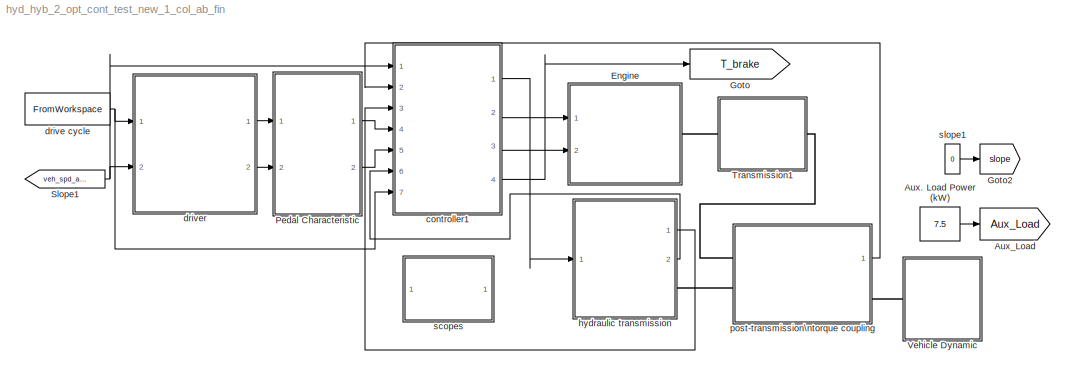
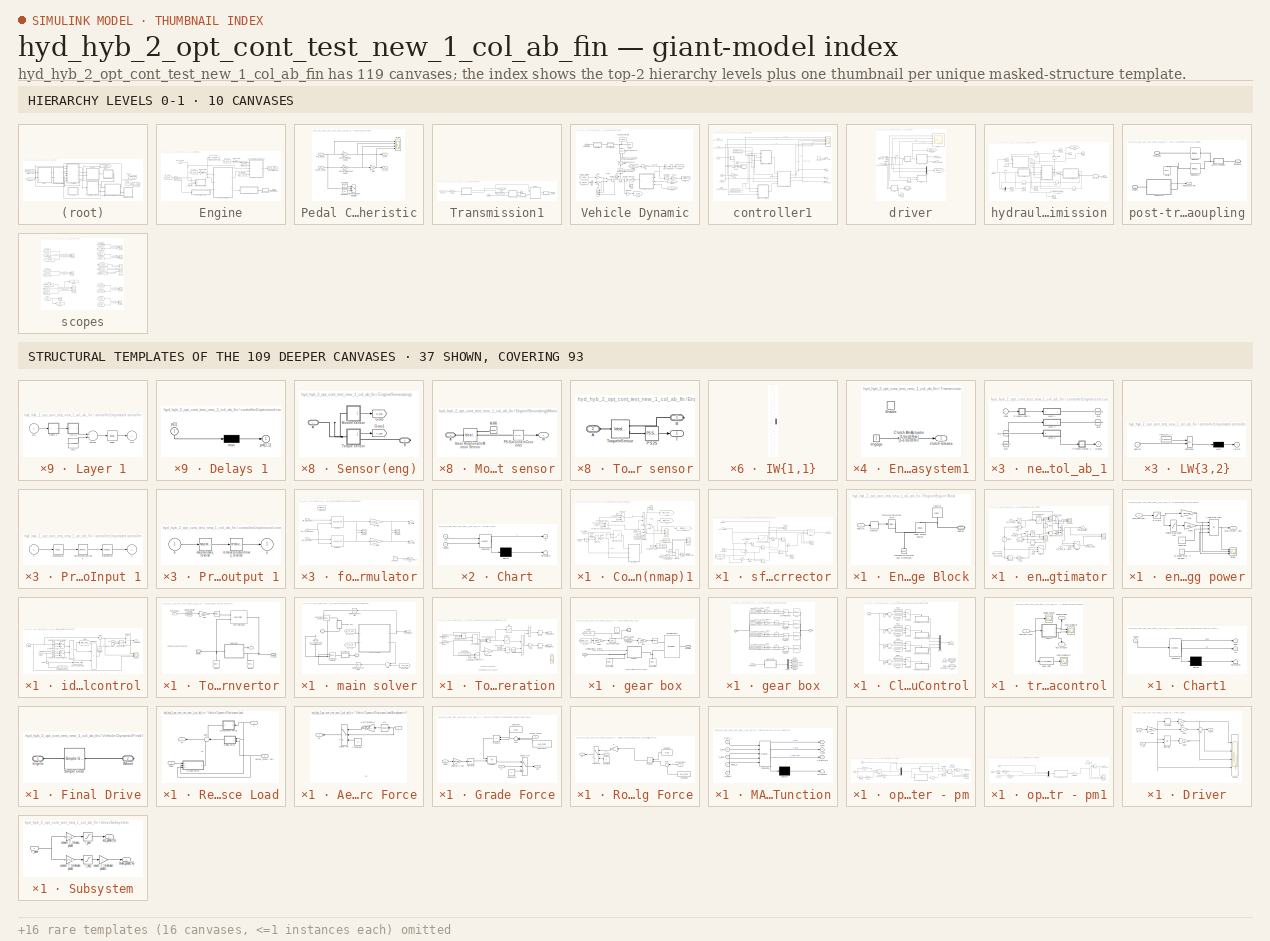
[diagram: thumbnail index - top-2 hierarchy levels (10 canvases) + 37 structural-template representatives of the remaining 109 canvases]
MODEL hyd_hyb_2_opt_cont_test_new_1_col_ab_fin
KIND model
CONFIG InitFcn = const_3\n
BLOCK [Constant] Aux. Load Power (kW)
  SID = 1614
  Value = 7.5
BLOCK [Goto] Aux_Load
  GotoTag = Aux_Load
  SID = 1615
  TagVisibility = global
BLOCK [SubSystem] Engine
  FunctionWithSeparateData = off
  MaskHideContents = off
  MinAlgLoopOccurrences = off
  Opaque = off
  Ports = [2, 0, 0, 0, 0, 0, 1]
  PropExecContextOutsideSubsystem = off
  RTWSystemCode = Auto
  RequestExecContextInheritance = off
  SID = 12085
BLOCK [SubSystem] Engine/Consumption Calc (nmap)1
  FunctionWithSeparateData = off
  MaskHideContents = off
  MinAlgLoopOccurrences = off
  Opaque = off
  Ports = [5, 1]
  PropExecContextOutsideSubsystem = off
  RTWSystemCode = Auto
  RequestExecContextInheritance = off
  SID = 12088
BLOCK [Saturate] Engine/Consumption Calc (nmap)1/1
  InputPortMap = u0
  LowerLimit = 0
  Ports = [1, 1]
  SID = 12094
  UpperLimit = inf
BLOCK [Product] Engine/Consumption Calc (nmap)1/Divide1
  InputSameDT = off
  Inputs = */
  OutDataTypeStr = Inherit: Inherit via internal rule
  Ports = [2, 1]
  RndMeth = Floor
  SID = 12095
  SaturateOnIntegerOverflow = off
BLOCK [Product] Engine/Consumption Calc (nmap)1/Divide2
  InputSameDT = off
  Inputs = 3
  OutDataTypeStr = Inherit: Inherit via internal rule
  Ports = [3, 1]
  RndMeth = Floor
  SID = 12096
  SaturateOnIntegerOverflow = off
BLOCK [Product] Engine/Consumption Calc (nmap)1/Divide3
  InputSameDT = off
  OutDataTypeStr = Inherit: Inherit via internal rule
  Ports = [2, 1]
  RndMeth = Floor
  SID = 12097
  SaturateOnIntegerOverflow = off
BLOCK [Product] Engine/Consumption Calc (nmap)1/Divide4
  InputSameDT = off
  Inputs = */
  OutDataTypeStr = Inherit: Inherit via internal rule
  Ports = [2, 1]
  RndMeth = Floor
  SID = 12098
  SaturateOnIntegerOverflow = off
BLOCK [Gain] Engine/Consumption Calc (nmap)1/Gain2
  Gain = 2*pi/60
  OutDataTypeStr = Inherit: Inherit via internal rule
  ParamDataTypeStr = Inherit: Inherit via internal rule
  SID = 12099
  SaturateOnIntegerOverflow = off
BLOCK [Gain] Engine/Consumption Calc (nmap)1/Gain3
  Gain = .001
  OutDataTypeStr = Inherit: Inherit via internal rule
  ParamDataTypeStr = Inherit: Inherit via internal rule
  SID = 12100
  SaturateOnIntegerOverflow = off
BLOCK [Goto] Engine/Consumption Calc (nmap)1/Goto
  GotoTag = idle_consumption
  SID = 12101
  TagVisibility = global
BLOCK [Goto] Engine/Consumption Calc (nmap)1/Goto1
  GotoTag = total_consumption
  SID = 12102
  TagVisibility = global
BLOCK [Goto] Engine/Consumption Calc (nmap)1/Goto2
  GotoTag = driving_consumption
  SID = 12103
  TagVisibility = global
BLOCK [Lookup2D] Engine/Consumption Calc (nmap)1/ICE_906_205
  ColumnIndex = w_906_205
  InputSameDT = off
  RowIndex = p_906_205
  SID = 12104
  SaturateOnIntegerOverflow = off
  Table = BSFC_906_205
BLOCK [Integrator] Engine/Consumption Calc (nmap)1/Integrator1
  Ports = [1, 1]
  SID = 12105
BLOCK [Product] Engine/Consumption Calc (nmap)1/Product1
  InputSameDT = off
  OutDataTypeStr = Inherit: Inherit via internal rule
  Ports = [2, 1]
  SID = 12106
  SaturateOnIntegerOverflow = off
BLOCK [Scope] Engine/Consumption Calc (nmap)1/Scope1
  DataFormat = StructureWithTime
  Floating = off
  LimitDataPoints = off
  NumInputPorts = 2
  Ports = [2]
  SID = 12107
  SampleTime = 0
  YMax = 42.5~42.5
  YMin = 0~0
  ZoomMode = xonly
BLOCK [Scope] Engine/Consumption Calc (nmap)1/Scope2
  DataFormat = StructureWithTime
  Floating = off
  LimitDataPoints = off
  NumInputPorts = 1
  Ports = [1]
  SID = 12108
  SampleTime = 0
  SaveName = ScopeData75
  ZoomMode = xonly
BLOCK [Sum] Engine/Consumption Calc (nmap)1/Sum
  InputSameDT = off
  OutDataTypeStr = Inherit: Inherit via internal rule
  Ports = [2, 1]
  SID = 12109
  SaturateOnIntegerOverflow = off
BLOCK [Inport] Engine/Consumption Calc (nmap)1/T_eng
  IconDisplay = Port number
  Port = 4
  SID = 12092
BLOCK [ToWorkspace] Engine/Consumption Calc (nmap)1/To Workspace
  MaxDataPoints = inf
  Ports = [1]
  SID = 12110
  SampleTime = -1
  SaveFormat = Structure With Time
  VariableName = ali_cons
BLOCK [Inport] Engine/Consumption Calc (nmap)1/acc pedal
  IconDisplay = Port number
  Port = 5
  SID = 12093
BLOCK [Switch] Engine/Consumption Calc (nmap)1/check pedal
  Criteria = u2 > Threshold
  InputSameDT = off
  SID = 12111
  SaturateOnIntegerOverflow = off
BLOCK [Scope] Engine/Consumption Calc (nmap)1/cons1
  DataFormat = StructureWithTime
  Floating = off
  LimitDataPoints = off
  NumInputPorts = 3
  Ports = [3]
  SID = 12112
  SampleTime = 0
  SaveName = cons1
  SaveToWorkspace = on
  YMax = 42.5~42.5~5
  YMin = 0~0~-5
  ZoomMode = yonly
BLOCK [Outport] Engine/Consumption Calc (nmap)1/cons\nlit//100km1
  IconDisplay = Port number
  SID = 12146
BLOCK [Inport] Engine/Consumption Calc (nmap)1/distance
  IconDisplay = Port number
  Port = 2
  SID = 12090
BLOCK [Gain] Engine/Consumption Calc (nmap)1/g 2 liter1
  Gain = 100
  OutDataTypeStr = Inherit: Inherit via internal rule
  ParamDataTypeStr = Inherit: Inherit via internal rule
  SID = 12113
  SaturateOnIntegerOverflow = off
BLOCK [Gain] Engine/Consumption Calc (nmap)1/g2lit
  Gain = 1/fuel_density*1000
  OutDataTypeStr = Inherit: Inherit via internal rule
  ParamDataTypeStr = Inherit: Inherit via internal rule
  SID = 12114
  SaturateOnIntegerOverflow = off
BLOCK [Constant] Engine/Consumption Calc (nmap)1/hour2\nsecond
  SID = 12115
  Value = 3600
BLOCK [Constant] Engine/Consumption Calc (nmap)1/hour2\nsecond1
  SID = 12116
BLOCK [Constant] Engine/Consumption Calc (nmap)1/hour2\nsecond2
  SID = 12117
  Value = 0
BLOCK [Constant] Engine/Consumption Calc (nmap)1/hour2\nsecond3
  SID = 12118
  Value = 0
BLOCK [Constant] Engine/Consumption Calc (nmap)1/hour2\nsecond4
  SID = 12119
  Value = 2
BLOCK [Switch] Engine/Consumption Calc (nmap)1/idel cons
  Criteria = u2 > Threshold
  InputSameDT = off
  SID = 12120
  SaturateOnIntegerOverflow = off
BLOCK [Inport] Engine/Consumption Calc (nmap)1/on//off
  IconDisplay = Port number
  Port = 3
  SID = 12091
BLOCK [SubSystem] Engine/Consumption Calc (nmap)1/sfc corrector
  FunctionWithSeparateData = off
  MaskHideContents = off
  MinAlgLoopOccurrences = off
  Opaque = off
  Ports = [3, 1]
  PropExecContextOutsideSubsystem = off
  RTWSystemCode = Auto
  RequestExecContextInheritance = off
  SID = 12121
BLOCK [Constant] Engine/Consumption Calc (nmap)1/sfc corrector/Constant
  SID = 12125
  Value = Idle_spd_eng_906
BLOCK [Constant] Engine/Consumption Calc (nmap)1/sfc corrector/Constant1
  SID = 12126
  Value = 1000
BLOCK [Gain] Engine/Consumption Calc (nmap)1/sfc corrector/Gain
  Gain = -1
  OutDataTypeStr = Inherit: Inherit via internal rule
  ParamDataTypeStr = Inherit: Inherit via internal rule
  SID = 12127
  SaturateOnIntegerOverflow = off
BLOCK [Gain] Engine/Consumption Calc (nmap)1/sfc corrector/Gain1
  OutDataTypeStr = Inherit: Inherit via internal rule
  ParamDataTypeStr = Inherit: Inherit via internal rule
  SID = 12128
  SaturateOnIntegerOverflow = off
BLOCK [Gain] Engine/Consumption Calc (nmap)1/sfc corrector/Gain2
  OutDataTypeStr = Inherit: Inherit via internal rule
  ParamDataTypeStr = Inherit: Inherit via internal rule
  SID = 12129
  SaturateOnIntegerOverflow = off
BLOCK [Product] Engine/Consumption Calc (nmap)1/sfc corrector/Product
  InputSameDT = off
  Inputs = */
  OutDataTypeStr = Inherit: Inherit via internal rule
  Ports = [2, 1]
  SID = 12130
  SaturateOnIntegerOverflow = off
BLOCK [Product] Engine/Consumption Calc (nmap)1/sfc corrector/Product1
  InputSameDT = off
  Inputs = */
  OutDataTypeStr = Inherit: Inherit via internal rule
  Ports = [2, 1]
  SID = 12131
  SaturateOnIntegerOverflow = off
BLOCK [Product] Engine/Consumption Calc (nmap)1/sfc corrector/Product2
  InputSameDT = off
  OutDataTypeStr = Inherit: Inherit via internal rule
  Ports = [2, 1]
  SID = 12132
  SaturateOnIntegerOverflow = off
BLOCK [Product] Engine/Consumption Calc (nmap)1/sfc corrector/Product3
  InputSameDT = off
  OutDataTypeStr = Inherit: Inherit via internal rule
  Ports = [2, 1]
  SID = 12133
  SaturateOnIntegerOverflow = off
BLOCK [Scope] Engine/Consumption Calc (nmap)1/sfc corrector/Scope
  DataFormat = StructureWithTime
  Floating = off
  NumInputPorts = 2
  Ports = [2]
  SID = 12134
  SampleTime = 0
  SaveName = ScopeData40
  YMax = 5~5
  YMin = -5~-5
  ZoomMode = yonly
BLOCK [Scope] Engine/Consumption Calc (nmap)1/sfc corrector/Scope1
  DataFormat = StructureWithTime
  Floating = off
  NumInputPorts = 2
  Ports = [2]
  SID = 12135
  SampleTime = 0
  SaveName = ScopeData41
  YMax = 5~5
  YMin = -5~-5
  ZoomMode = yonly
BLOCK [Scope] Engine/Consumption Calc (nmap)1/sfc corrector/Scope2
  DataFormat = StructureWithTime
  Floating = off
  NumInputPorts = 2
  Ports = [2]
  SID = 12136
  SampleTime = 0
  SaveName = ScopeData42
  YMax = 5~5
  YMin = -5~-5
  ZoomMode = yonly
BLOCK [Sum] Engine/Consumption Calc (nmap)1/sfc corrector/Sum
  IconShape = round
  InputSameDT = off
  Inputs = |+-
  OutDataTypeStr = Inherit: Inherit via internal rule
  Ports = [2, 1]
  SID = 12137
  SaturateOnIntegerOverflow = off
BLOCK [Sum] Engine/Consumption Calc (nmap)1/sfc corrector/Sum1
  IconShape = round
  InputSameDT = off
  Inputs = |+-
  OutDataTypeStr = Inherit: Inherit via internal rule
  Ports = [2, 1]
  SID = 12138
  SaturateOnIntegerOverflow = off
BLOCK [Sum] Engine/Consumption Calc (nmap)1/sfc corrector/Sum2
  IconShape = round
  InputSameDT = off
  Inputs = |+-
  OutDataTypeStr = Inherit: Inherit via internal rule
  Ports = [2, 1]
  SID = 12139
  SaturateOnIntegerOverflow = off
BLOCK [Sum] Engine/Consumption Calc (nmap)1/sfc corrector/Sum3
  IconShape = round
  InputSameDT = off
  Inputs = |++
  OutDataTypeStr = Inherit: Inherit via internal rule
  Ports = [2, 1]
  SID = 12140
  SaturateOnIntegerOverflow = off
BLOCK [Switch] Engine/Consumption Calc (nmap)1/sfc corrector/Switch
  InputSameDT = off
  SID = 12141
  SaturateOnIntegerOverflow = off
  Threshold = 1000
BLOCK [Outport] Engine/Consumption Calc (nmap)1/sfc corrector/cons(kg//h)
  IconDisplay = Port number
  SID = 12143
BLOCK [Inport] Engine/Consumption Calc (nmap)1/sfc corrector/eng_pow(kw)
  IconDisplay = Port number
  Port = 3
  SID = 12124
BLOCK [Inport] Engine/Consumption Calc (nmap)1/sfc corrector/eng_spd(rpm)
  IconDisplay = Port number
  Port = 2
  SID = 12123
BLOCK [Inport] Engine/Consumption Calc (nmap)1/sfc corrector/main map
  IconDisplay = Port number
  SID = 12122
BLOCK [Lookup] Engine/Consumption Calc (nmap)1/sfc corrector/sec_eng_sfc_map (906)
  InputValues = sec_eng_sfc_map(:,1)
  SID = 12142
  SaturateOnIntegerOverflow = off
  Table = sec_eng_sfc_map(:,2)
BLOCK [Saturate] Engine/Consumption Calc (nmap)1/solve devide \nby zero problem
  InputPortMap = u0
  LowerLimit = eps
  Ports = [1, 1]
  SID = 12144
  UpperLimit = inf
BLOCK [Saturate] Engine/Consumption Calc (nmap)1/solve devide \nby zero problem1
  InputPortMap = u0
  LowerLimit = 0
  Ports = [1, 1]
  SID = 12145
  UpperLimit = inf
BLOCK [Inport] Engine/Consumption Calc (nmap)1/w_eng (rpm)
  IconDisplay = Port number
  SID = 12089
BLOCK [From] Engine/Distance (km)
  GotoTag = Distance
  SID = 12147
  TagVisibility = global
BLOCK [SubSystem] Engine/Engine Block
  FunctionWithSeparateData = off
  MaskHideContents = off
  MinAlgLoopOccurrences = off
  Opaque = off
  Ports = [1, 0, 0, 0, 0, 0, 1]
  PropExecContextOutsideSubsystem = off
  RTWSystemCode = Auto
  RequestExecContextInheritance = off
  SID = 12148
BLOCK [PMIOPort] Engine/Engine Block/Engine
  Port = 1
  SID = 12155
  Side = Right
BLOCK [Reference] Engine/Engine Block/Ideal Torque Source  REF=fl_lib/Mechanical/Mechanical Sources/Ideal Torque Source
  ClassName = torque
  ComponentPath = foundation.mechanical.sources.torque
  FunctionWithSeparateData = off
  GeneratePreprocessorConditionals = off
  LocalVarDescs = |w|t
  LocalVarLogging = [0 0]
  LocalVarNames = |w|t
  Ports = [0, 0, 0, 0, 0, 1, 2]
  RTWMemSecDataConstants = Inherit from model
  RTWMemSecDataInternal = Inherit from model
  RTWMemSecDataParameters = Inherit from model
  RTWMemSecFuncExecute = Inherit from model
  RTWMemSecFuncInitTerm = Inherit from model
  SID = 12150
  SchemaVersion = 1
  ShowPortLabels = FromPortIcon
  SourceBlock = fl_lib/Mechanical/Mechanical Sources/Ideal Torque Source
  SourceType = Ideal Torque Source
  SystemSampleTime = -1
  t_Log = off
  w_Log = off
BLOCK [Reference] Engine/Engine Block/Inertia  REF=fl_lib/Mechanical/Rotational Elements/Inertia
  ClassName = inertia
  ComponentPath = foundation.mechanical.rotational.inertia
  FunctionWithSeparateData = off
  GeneratePreprocessorConditionals = off
  LocalVarDescs = |t
  LocalVarLogging = 0
  LocalVarNames = |t
  Ports = [0, 0, 0, 0, 0, 1]
  RTWMemSecDataConstants = Inherit from model
  RTWMemSecDataInternal = Inherit from model
  RTWMemSecDataParameters = Inherit from model
  RTWMemSecFuncExecute = Inherit from model
  RTWMemSecFuncInitTerm = Inherit from model
  SID = 12151
  SchemaVersion = 1
  ShowPortLabels = FromPortIcon
  SourceBlock = fl_lib/Mechanical/Rotational Elements/Inertia
  SourceType = Inertia
  SystemSampleTime = -1
  inertia = I_ICE
  inertia_unit = kg*m^2
  initial_velocity = 0
  initial_velocity_unit = rad/s
  t_Log = off
BLOCK [Reference] Engine/Engine Block/Mechanical\nRotational Reference  REF=fl_lib/Mechanical/Rotational Elements/Mechanical\nRotational Reference
  ClassName = reference
  ComponentPath = foundation.mechanical.rotational.reference
  FunctionWithSeparateData = off
  GeneratePreprocessorConditionals = off
  LocalVarDescs = |t
  LocalVarLogging = 0
  LocalVarNames = |t
  Ports = [0, 0, 0, 0, 0, 1]
  RTWMemSecDataConstants = Inherit from model
  RTWMemSecDataInternal = Inherit from model
  RTWMemSecDataParameters = Inherit from model
  RTWMemSecFuncExecute = Inherit from model
  RTWMemSecFuncInitTerm = Inherit from model
  SID = 12152
  SchemaVersion = 1
  ShowPortLabels = FromPortIcon
  SourceBlock = fl_lib/Mechanical/Rotational Elements/Mechanical\nRotational Reference
  SourceType = Mechanical\nRotational Reference
  SystemSampleTime = -1
  t_Log = off
BLOCK [Memory] Engine/Engine Block/Memory
  InheritSampleTime = on
  SID = 12153
BLOCK [Reference] Engine/Engine Block/Simulink-PS\nConverter  REF=nesl_utility/Simulink-PS\nConverter
  AffineConversion = off
  FunctionWithSeparateData = off
  GeneratePreprocessorConditionals = off
  InputFilterTimeConstant = 0.01
  LeftPortType = input
  PhysicalDomain = network_engine_domain
  Ports = [1, 0, 0, 0, 0, 0, 1]
  RTWMemSecDataConstants = Inherit from model
  RTWMemSecDataInternal = Inherit from model
  RTWMemSecDataParameters = Inherit from model
  RTWMemSecFuncExecute = Inherit from model
  RTWMemSecFuncInitTerm = Inherit from model
  RightPortType = output
  SID = 12154
  ShowPortLabels = FromPortIcon
  SourceBlock = nesl_utility/Simulink-PS\nConverter
  SourceType = Simulink-PS\nConverter
  SubClassName = ps_input
  SystemSampleTime = -1
  UdotUserProvided = 0
  Unit = 1
BLOCK [Inport] Engine/Engine Block/eng_trq
  IconDisplay = Port number
  SID = 12149
BLOCK [SubSystem] Engine/Sensor(eng)
  FunctionWithSeparateData = off
  MaskHideContents = off
  MinAlgLoopOccurrences = off
  Opaque = off
  Ports = [0, 0, 0, 0, 0, 1, 1]
  PropExecContextOutsideSubsystem = off
  RTWSystemCode = Auto
  RequestExecContextInheritance = off
  SID = 12156
BLOCK [PMIOPort] Engine/Sensor(eng)/A
  Port = 1
  SID = 12171
  Side = Left
BLOCK [PMIOPort] Engine/Sensor(eng)/B
  Port = 2
  SID = 12172
  Side = Right
BLOCK [Goto] Engine/Sensor(eng)/Goto
  GotoTag = w_eng
  SID = 12157
  TagVisibility = global
BLOCK [Goto] Engine/Sensor(eng)/Goto1
  GotoTag = T_eng
  SID = 12158
  TagVisibility = global
BLOCK [SubSystem] Engine/Sensor(eng)/Motion sensor
  FunctionWithSeparateData = off
  MaskHideContents = off
  MinAlgLoopOccurrences = off
  Opaque = off
  Ports = [0, 1, 0, 0, 0, 1]
  PropExecContextOutsideSubsystem = off
  RTWSystemCode = Auto
  RequestExecContextInheritance = off
  SID = 12159
BLOCK [PMIOPort] Engine/Sensor(eng)/Motion sensor/A
  Port = 1
  SID = 12163
  Side = Left
BLOCK [Reference] Engine/Sensor(eng)/Motion sensor/Ideal Rotational\nMotion Sensor  REF=fl_lib/Mechanical/Mechanical Sensors/Ideal Rotational\nMotion Sensor
  ClassName = sensor_rot_motion
  ComponentPath = foundation.mechanical.sensors.angular_velocity
  FunctionWithSeparateData = off
  GeneratePreprocessorConditionals = off
  LocalVarDescs = |w|t|phi
  LocalVarLogging = []
  LocalVarNames = |w|t|phi
  Ports = [0, 0, 0, 0, 0, 1, 3]
  RTWMemSecDataConstants = Inherit from model
  RTWMemSecDataInternal = Inherit from model
  RTWMemSecDataParameters = Inherit from model
  RTWMemSecFuncExecute = Inherit from model
  RTWMemSecFuncInitTerm = Inherit from model
  SID = 12160
  SchemaVersion = 1
  ShowPortLabels = FromPortIcon
  SourceBlock = fl_lib/Mechanical/Mechanical Sensors/Ideal Rotational\nMotion Sensor
  SourceType = Ideal Rotational\nMotion Sensor
  SystemSampleTime = -1
  offset = 0
  offset_unit = rad
  phi_Log = off
  t_Log = off
  w_Log = off
BLOCK [Reference] Engine/Sensor(eng)/Motion sensor/MRR  REF=fl_lib/Mechanical/Rotational Elements/Mechanical\nRotational Reference
  ClassName = reference_rot
  ComponentPath = foundation.mechanical.rotational.reference
  FunctionWithSeparateData = off
  GeneratePreprocessorConditionals = off
  LocalVarDescs = |t
  LocalVarLogging = []
  LocalVarNames = |t
  Ports = [0, 0, 0, 0, 0, 1]
  RTWMemSecDataConstants = Inherit from model
  RTWMemSecDataInternal = Inherit from model
  RTWMemSecDataParameters = Inherit from model
  RTWMemSecFuncExecute = Inherit from model
  RTWMemSecFuncInitTerm = Inherit from model
  SID = 12161
  SchemaVersion = 1
  ShowPortLabels = FromPortIcon
  SourceBlock = fl_lib/Mechanical/Rotational Elements/Mechanical\nRotational Reference
  SourceType = Mechanical\nRotational Reference
  SystemSampleTime = -1
  t_Log = off
BLOCK [Reference] Engine/Sensor(eng)/Motion sensor/PS-Simulink\nConverter  REF=nesl_utility/PS-Simulink\nConverter
  AffineConversion = off
  FunctionWithSeparateData = off
  GeneratePreprocessorConditionals = off
  LeftPortType = input
  PhysicalDomain = network_engine_domain
  Ports = [0, 1, 0, 0, 0, 1]
  RTWMemSecDataConstants = Inherit from model
  RTWMemSecDataInternal = Inherit from model
  RTWMemSecDataParameters = Inherit from model
  RTWMemSecFuncExecute = Inherit from model
  RTWMemSecFuncInitTerm = Inherit from model
  RightPortType = output
  SID = 12162
  ShowPortLabels = none
  SourceBlock = nesl_utility/PS-Simulink\nConverter
  SourceType = PS-Simulink\nConverter
  SubClassName = ps_output
  SystemSampleTime = -1
  Unit = rad/s
BLOCK [Outport] Engine/Sensor(eng)/Motion sensor/W
  IconDisplay = Port number
  SID = 12164
BLOCK [SubSystem] Engine/Sensor(eng)/Torque sensor
  FunctionWithSeparateData = off
  MaskHideContents = off
  MinAlgLoopOccurrences = off
  Opaque = off
  Ports = [0, 1, 0, 0, 0, 1, 1]
  PropExecContextOutsideSubsystem = off
  RTWSystemCode = Auto
  RequestExecContextInheritance = off
  SID = 12165
BLOCK [PMIOPort] Engine/Sensor(eng)/Torque sensor/A
  Port = 2
  SID = 12169
  Side = Left
BLOCK [PMIOPort] Engine/Sensor(eng)/Torque sensor/B
  Port = 1
  SID = 12168
  Side = Right
BLOCK [Reference] Engine/Sensor(eng)/Torque sensor/PS2S  REF=nesl_utility/PS-Simulink\nConverter
  AffineConversion = off
  FunctionWithSeparateData = off
  GeneratePreprocessorConditionals = off
  LeftPortType = input
  PhysicalDomain = network_engine_domain
  Ports = [0, 1, 0, 0, 0, 1]
  RTWMemSecDataConstants = Inherit from model
  RTWMemSecDataInternal = Inherit from model
  RTWMemSecDataParameters = Inherit from model
  RTWMemSecFuncExecute = Inherit from model
  RTWMemSecFuncInitTerm = Inherit from model
  RightPortType = output
  SID = 12166
  ShowPortLabels = none
  SourceBlock = nesl_utility/PS-Simulink\nConverter
  SourceType = PS-Simulink\nConverter
  SubClassName = ps_output
  SystemSampleTime = -1
  Unit = 1
BLOCK [Outport] Engine/Sensor(eng)/Torque sensor/T
  IconDisplay = Port number
  SID = 12170
BLOCK [Reference] Engine/Sensor(eng)/Torque sensor/Torque\nSensor  REF=fl_lib/Mechanical/Mechanical Sensors/Ideal Torque Sensor
  ClassName = sensor_torque
  ComponentPath = foundation.mechanical.sensors.torque
  FunctionWithSeparateData = off
  GeneratePreprocessorConditionals = off
  LocalVarDescs = |w|t
  LocalVarLogging = []
  LocalVarNames = |w|t
  Ports = [0, 0, 0, 0, 0, 1, 2]
  RTWMemSecDataConstants = Inherit from model
  RTWMemSecDataInternal = Inherit from model
  RTWMemSecDataParameters = Inherit from model
  RTWMemSecFuncExecute = Inherit from model
  RTWMemSecFuncInitTerm = Inherit from model
  SID = 12167
  SchemaVersion = 1
  ShowPortLabels = FromPortIcon
  SourceBlock = fl_lib/Mechanical/Mechanical Sensors/Ideal Torque Sensor
  SourceType = Ideal Torque Sensor
  SystemSampleTime = -1
  t_Log = off
  w_Log = off
BLOCK [Goto] Engine/T idle speed control
  GotoTag = T_out_idle_cotl
  SID = 12173
  TagVisibility = global
BLOCK [Inport] Engine/T_eng (Nm)
  IconDisplay = Port number
  SID = 12086
BLOCK [PMIOPort] Engine/Transmission
  Port = 1
  SID = 12246
  Side = Right
BLOCK [Goto] Engine/cons\nlit//100km
  GotoTag = cons_LitP100km
  SID = 12174
  TagVisibility = global
BLOCK [Inport] Engine/eng_on//off
  IconDisplay = Port number
  Port = 2
  SID = 12087
BLOCK [SubSystem] Engine/eng_torq_estimator
  FunctionWithSeparateData = off
  MaskHideContents = off
  MinAlgLoopOccurrences = off
  Opaque = off
  Ports = [3, 2]
  PropExecContextOutsideSubsystem = off
  RTWSystemCode = Auto
  RequestExecContextInheritance = off
  SID = 12175
BLOCK [Saturate] Engine/eng_torq_estimator/0 to inf1
  InputPortMap = u0
  LowerLimit = 0
  Ports = [1, 1]
  SID = 12179
  UpperLimit = inf
BLOCK [Saturate] Engine/eng_torq_estimator/0 to inf2
  InputPortMap = u0
  LowerLimit = eps
  Ports = [1, 1]
  SID = 12180
  UpperLimit = inf
BLOCK [Saturate] Engine/eng_torq_estimator/0 to inf3
  InputPortMap = u0
  LowerLimit = 0
  Ports = [1, 1]
  SID = 12181
  UpperLimit = inf
BLOCK [Saturate] Engine/eng_torq_estimator/0 to inf4
  InputPortMap = u0
  LowerLimit = 0
  Ports = [1, 1]
  SID = 12182
  UpperLimit = inf
BLOCK [Saturate] Engine/eng_torq_estimator/0 to inf5
  InputPortMap = u0
  LowerLimit = 0
  Ports = [1, 1]
  SID = 12183
  UpperLimit = inf
BLOCK [From] Engine/eng_torq_estimator/Aux Load
  GotoTag = Aux_Load
  SID = 12184
  TagVisibility = global
BLOCK [Goto] Engine/eng_torq_estimator/Aux_Trq
  GotoTag = Aux_Trq
  SID = 12185
  TagVisibility = global
BLOCK [Gain] Engine/eng_torq_estimator/Gain
  Gain = pi/30
  OutDataTypeStr = Inherit: Inherit via internal rule
  ParamDataTypeStr = Inherit: Inherit via internal rule
  SID = 12186
  SaturateOnIntegerOverflow = off
BLOCK [Gain] Engine/eng_torq_estimator/Gain1
  Gain = 1000
  OutDataTypeStr = Inherit: Inherit via internal rule
  ParamDataTypeStr = Inherit: Inherit via internal rule
  SID = 12187
  SaturateOnIntegerOverflow = off
BLOCK [Memory] Engine/eng_torq_estimator/Memory
  InheritSampleTime = on
  SID = 12188
BLOCK [MinMax] Engine/eng_torq_estimator/Min
  Function = min
  InputSameDT = off
  Inputs = 2
  Ports = [2, 1]
  SID = 12189
  SaturateOnIntegerOverflow = off
BLOCK [Lookup] Engine/eng_torq_estimator/Overload Torque (Nm)
  InputValues = [2600 2900 3000]
  SID = 12190
  Table = [650 0 0]
BLOCK [Lookup] Engine/eng_torq_estimator/PeakTorque -906 - 205(Nm)
  InputValues = [1000,1070,1130,1200,1280,1500,1590,1680,1760,1850,1930,2010,2070,2150,2240,2320,2380,2500]
  SID = 12191
  Table = [982,1040,1080,1100,1110,1110,1100,1080,1060,1020,994,963,940,909,872,838,804,751]
BLOCK [Product] Engine/eng_torq_estimator/Product1
  InputSameDT = off
  Inputs = */
  OutDataTypeStr = Inherit: Inherit via internal rule
  Ports = [2, 1]
  SID = 12192
  SaturateOnIntegerOverflow = off
BLOCK [Scope] Engine/eng_torq_estimator/Scope
  DataFormat = StructureWithTime
  Floating = off
  LimitDataPoints = off
  NumInputPorts = 3
  Ports = [3]
  SID = 12193
  SampleTime = 0
  SaveName = ScopeData10
  YMax = 5~5~5
  YMin = -5~-5~-5
  ZoomMode = yonly
BLOCK [Scope] Engine/eng_torq_estimator/Scope1
  DataFormat = StructureWithTime
  Floating = off
  LimitDataPoints = off
  NumInputPorts = 3
  Ports = [3]
  SID = 12194
  SampleTime = 0
  SaveName = ScopeData9
  YMax = 5~5~5
  YMin = -5~-5~-5
  ZoomMode = yonly
BLOCK [Scope] Engine/eng_torq_estimator/Scope2
  DataFormat = StructureWithTime
  Floating = off
  LimitDataPoints = off
  NumInputPorts = 3
  Ports = [3]
  SID = 12195
  SampleTime = 0
  SaveName = ScopeData23
  YMax = 5~5~5
  YMin = -5~-5~-5
  ZoomMode = xonly
BLOCK [Scope] Engine/eng_torq_estimator/Scope3
  DataFormat = StructureWithTime
  Floating = off
  LimitDataPoints = off
  NumInputPorts = 3
  Ports = [3]
  SID = 12196
  SampleTime = 0
  SaveName = ScopeData5
  YMax = 5~5~5
  YMin = -5~-5~-5
  ZoomMode = yonly
BLOCK [Sum] Engine/eng_torq_estimator/Sum
  IconShape = round
  InputSameDT = off
  Inputs = |++
  OutDataTypeStr = Inherit: Inherit via internal rule
  Ports = [2, 1]
  SID = 12197
  SaturateOnIntegerOverflow = off
BLOCK [Switch] Engine/eng_torq_estimator/Switch
  InputSameDT = off
  SID = 12198
  SaturateOnIntegerOverflow = off
  Threshold = 0.1
BLOCK [Switch] Engine/eng_torq_estimator/Switch1
  InputSameDT = off
  SID = 12199
  SaturateOnIntegerOverflow = off
  Threshold = Idle_spd_eng_906*0.75
BLOCK [Switch] Engine/eng_torq_estimator/check max speed
  InputSameDT = off
  SID = 12200
  SaturateOnIntegerOverflow = off
  Threshold = 2600
BLOCK [Inport] Engine/eng_torq_estimator/eng_drag_trq
  IconDisplay = Port number
  Port = 3
  SID = 12178
BLOCK [Inport] Engine/eng_torq_estimator/eng_spd (rpm)
  IconDisplay = Port number
  SID = 12176
BLOCK [Inport] Engine/eng_torq_estimator/eng_trq_in
  IconDisplay = Port number
  Port = 2
  SID = 12177
BLOCK [Outport] Engine/eng_torq_estimator/eng_trq_out (Nm)
  IconDisplay = Port number
  Port = 2
  SID = 12204
BLOCK [Outport] Engine/eng_torq_estimator/eng_trq_out (Nm) to consump
  IconDisplay = Port number
  SID = 12203
BLOCK [Constant] Engine/eng_torq_estimator/slope
  SID = 12201
  Value = 0
BLOCK [Constant] Engine/eng_torq_estimator/slope1
  SID = 12202
  Value = 0
BLOCK [SubSystem] Engine/engine drag power
  FunctionWithSeparateData = off
  MaskHideContents = off
  MinAlgLoopOccurrences = off
  Opaque = off
  Ports = [1, 1]
  PropExecContextOutsideSubsystem = off
  RTWSystemCode = Auto
  RequestExecContextInheritance = off
  SID = 12205
BLOCK [Saturate] Engine/engine drag power/0 to inf2
  InputPortMap = u0
  LowerLimit = eps
  Ports = [1, 1]
  SID = 12207
  UpperLimit = inf
BLOCK [Constant] Engine/engine drag power/Constant
  SID = 12208
  Value = -1
BLOCK [Gain] Engine/engine drag power/Gain
  Gain = (pi)/30
  OutDataTypeStr = Inherit: Inherit via internal rule
  ParamDataTypeStr = Inherit: Inherit via internal rule
  SID = 12209
  SaturateOnIntegerOverflow = off
BLOCK [Gain] Engine/engine drag power/Gain1
  Gain = 1000
  OutDataTypeStr = Inherit: Inherit via internal rule
  ParamDataTypeStr = Inherit: Inherit via internal rule
  SID = 12210
  SaturateOnIntegerOverflow = off
BLOCK [Scope] Engine/engine drag power/Scope
  DataFormat = StructureWithTime
  Floating = off
  LimitDataPoints = off
  NumInputPorts = 3
  Ports = [3]
  SID = 12211
  SampleTime = 0
  SaveName = ScopeData2
  YMax = 5~5~5
  YMin = -5~-5~-5
  ZoomMode = yonly
BLOCK [Product] Engine/engine drag power/T_eng_drag (Nm)
  InputSameDT = off
  Inputs = /***
  OutDataTypeStr = Inherit: Inherit via internal rule
  Ports = [4, 1]
  RndMeth = Floor
  SID = 12212
  SaturateOnIntegerOverflow = off
BLOCK [Outport] Engine/engine drag power/drag torque ( Nm)
  IconDisplay = Port number
  SID = 12215
BLOCK [Inport] Engine/engine drag power/eng_spd(rpm)
  IconDisplay = Port number
  SID = 12206
BLOCK [Lookup] Engine/engine drag power/engine_drag_power (kw)
  InputValues = [-10,eps,802.567507746791,824.568393094289,846.879150066401,868.8800354139,890.880920761399,912.881806108898,935.192563081009,957.193448428508,979.194333776007,1001.19521912351,1023.196104471,1045.1969898185,1067.197875166,1089.50863213811,1111.50951748561,1133.51040283311,1155.51128818061,1177.51217352811,1199.51305887561,1221.51394422311,1243.51482957061,1265.51571491811,1287.5166002656,1309.517...<+620ch>
  SID = 12213
  SaturateOnIntegerOverflow = off
  Table = [0,0,8.89504100832017,9.50127747975726,9.88870415102495,10.2762179627945,10.7512208384311,11.1824791821341,11.6136503853353,12.0449087290384,12.4761670727414,12.9074254164445,13.294939228214,13.7261975719171,14.1137113836866,14.5448825868878,15.0636299944579,15.5386328700944,15.9698912137975,16.357405025567,16.7449188373366,17.1761771810396,17.6074355247427,17.9949493365122,18.4699522121488,18.988...<+631ch>
BLOCK [Constant] Engine/engine drag power/no engine drag ( if we want )
  SID = 12214
BLOCK [SubSystem] Engine/idle speed control
  FunctionWithSeparateData = off
  MaskHideContents = off
  MinAlgLoopOccurrences = off
  Opaque = off
  Ports = [3, 1]
  PropExecContextOutsideSubsystem = off
  RTWSystemCode = Auto
  RequestExecContextInheritance = off
  SID = 12216
BLOCK [Lookup_n-D] Engine/idle speed control/1-D Lookup\nTable
  BreakpointsForDimension1 = [0 Idle_spd_eng_906*0.025 Idle_spd_eng_906]
  IndexSearchMethod = Binary search
  NumberOfTableDimensions = 1
  Ports = [1, 1]
  RndMeth = Simplest
  SID = 12220
  Table = [0 0 T_max_906/2]
BLOCK [Goto] Engine/idle speed control/Goto1
  GotoTag = idle_control
  SID = 12221
  TagVisibility = global
BLOCK [Reference] Engine/idle speed control/Manual Switch  REF=simulink/Signal\nRouting/Manual Switch
  FunctionWithSeparateData = off
  GeneratePreprocessorConditionals = off
  Ports = [2, 1]
  RTWMemSecDataConstants = Inherit from model
  RTWMemSecDataInternal = Inherit from model
  RTWMemSecDataParameters = Inherit from model
  RTWMemSecFuncExecute = Inherit from model
  RTWMemSecFuncInitTerm = Inherit from model
  SID = 12222
  ShowPortLabels = FromPortIcon
  SourceBlock = simulink/Signal\nRouting/Manual Switch
  SourceType = Manual Switch
  SystemSampleTime = -1
  action = 0
  sw = 1
  varsize = off
BLOCK [Product] Engine/idle speed control/Product1
  InputSameDT = off
  Inputs = **
  OutDataTypeStr = Inherit: Inherit via internal rule
  Ports = [2, 1]
  SID = 12223
  SaturateOnIntegerOverflow = off
BLOCK [Product] Engine/idle speed control/Product2
  InputSameDT = off
  Inputs = **
  OutDataTypeStr = Inherit: Inherit via internal rule
  Ports = [2, 1]
  SID = 12224
  SaturateOnIntegerOverflow = off
BLOCK [Product] Engine/idle speed control/Product3
  InputSameDT = off
  Inputs = **
  OutDataTypeStr = Inherit: Inherit via internal rule
  Ports = [2, 1]
  SID = 12225
  SaturateOnIntegerOverflow = off
BLOCK [Saturate] Engine/idle speed control/Saturation
  InputPortMap = u0
  LowerLimit = 0
  Ports = [1, 1]
  SID = 12226
  UpperLimit = T_max_906/5
BLOCK [Scope] Engine/idle speed control/Scope
  DataFormat = StructureWithTime
  Floating = off
  LimitDataPoints = off
  NumInputPorts = 3
  Ports = [3]
  SID = 12227
  SampleTime = 0
  SaveName = ScopeData11
  YMax = 5~5~5
  YMin = -5~-5~-5
  ZoomMode = yonly
BLOCK [Sum] Engine/idle speed control/Sum
  IconShape = round
  InputSameDT = off
  Inputs = |++
  OutDataTypeStr = Inherit: Inherit via internal rule
  Ports = [2, 1]
  SID = 12228
  SaturateOnIntegerOverflow = off
BLOCK [Sum] Engine/idle speed control/Sum1
  IconShape = round
  InputSameDT = off
  Inputs = -|+
  OutDataTypeStr = Inherit: Inherit via internal rule
  Ports = [2, 1]
  SID = 12229
  SaturateOnIntegerOverflow = off
BLOCK [Inport] Engine/idle speed control/T_eng
  IconDisplay = Port number
  Port = 3
  SID = 12219
BLOCK [Outport] Engine/idle speed control/T_eng + Idle
  IconDisplay = Port number
  SID = 12238
BLOCK [Switch] Engine/idle speed control/check idle P
  Criteria = u2 > Threshold
  InputSameDT = off
  SID = 12230
  SaturateOnIntegerOverflow = off
BLOCK [Switch] Engine/idle speed control/check idle spd
  Criteria = u2 > Threshold
  InputSameDT = off
  SID = 12231
  SaturateOnIntegerOverflow = off
  Threshold = Idle_spd_eng_906
BLOCK [Constant] Engine/idle speed control/hour2\nsecond
  SID = 12232
  Value = 0
BLOCK [Constant] Engine/idle speed control/hour2\nsecond1
  SID = 12233
BLOCK [Constant] Engine/idle speed control/hour2\nsecond2
  SID = 12234
BLOCK [Constant] Engine/idle speed control/hour2\nsecond3
  SID = 12235
  Value = 0
BLOCK [Constant] Engine/idle speed control/hour2\nsecond4
  SID = 12236
  Value = Idle_spd_eng_906
BLOCK [Constant] Engine/idle speed control/hour2\nsecond5
  SID = 12237
BLOCK [Inport] Engine/idle speed control/on
  IconDisplay = Port number
  SID = 12217
BLOCK [Inport] Engine/idle speed control/spd
  IconDisplay = Port number
  Port = 2
  SID = 12218
BLOCK [Gain] Engine/rasps2rpm
  Gain = 30/pi
  OutDataTypeStr = Inherit: Inherit via internal rule
  ParamDataTypeStr = Inherit: Inherit via internal rule
  SID = 12239
  SaturateOnIntegerOverflow = off
BLOCK [Gain] Engine/rasps2rpm1
  Gain = 30/pi
  OutDataTypeStr = Inherit: Inherit via internal rule
  ParamDataTypeStr = Inherit: Inherit via internal rule
  SID = 12240
  SaturateOnIntegerOverflow = off
BLOCK [Gain] Engine/rasps2rpm2
  Gain = 30/pi
  OutDataTypeStr = Inherit: Inherit via internal rule
  ParamDataTypeStr = Inherit: Inherit via internal rule
  SID = 12241
  SaturateOnIntegerOverflow = off
BLOCK [From] Engine/w_eng
  GotoTag = w_eng
  SID = 12242
  TagVisibility = global
BLOCK [From] Engine/w_eng1
  GotoTag = w_eng
  SID = 12243
  TagVisibility = global
BLOCK [From] Engine/w_eng2
  GotoTag = w_eng
  SID = 12244
  TagVisibility = global
BLOCK [From] Engine/w_eng3
  GotoTag = idle_control
  SID = 12245
  TagVisibility = global
BLOCK [Goto] Goto
  GotoTag = T_brake
  SID = 1093
  TagVisibility = global
BLOCK [Goto] Goto2
  GotoTag = slope
  SID = 1094
  TagVisibility = global
BLOCK [SubSystem] Pedal Characteristic
  FunctionWithSeparateData = off
  MaskHideContents = off
  MinAlgLoopOccurrences = off
  Opaque = off
  Ports = [2, 2]
  PropExecContextOutsideSubsystem = off
  RTWSystemCode = Auto
  RequestExecContextInheritance = off
  SID = 131
BLOCK [Constant] Pedal Characteristic/Constant1
  SID = 134
  Value = .25
BLOCK [Constant] Pedal Characteristic/Constant2
  SID = 135
  Value = 0
BLOCK [Gain] Pedal Characteristic/Gain
  Gain = 13
  OutDataTypeStr = Inherit: Inherit via internal rule
  ParamDataTypeStr = Inherit: Inherit via internal rule
  SID = 136
  SaturateOnIntegerOverflow = off
BLOCK [Scope] Pedal Characteristic/Scope
  DataFormat = StructureWithTime
  Floating = off
  LimitDataPoints = off
  MaxDataPoints = 500
  NumInputPorts = 4
  Ports = [4]
  SID = 137
  SampleTime = 0
  SaveName = ScopeData9
  YMax = 105~1391.25~1~5
  YMin = 95~1258.75~-1~-5
  ZoomMode = yonly
BLOCK [Outport] Pedal Characteristic/T_brake
  IconDisplay = Port number
  SID = 141
BLOCK [Outport] Pedal Characteristic/T_ref
  IconDisplay = Port number
  Port = 2
  SID = 143
BLOCK [Inport] Pedal Characteristic/acc_pedal
  IconDisplay = Port number
  SID = 132
BLOCK [Inport] Pedal Characteristic/brake_pedal
  IconDisplay = Port number
  Port = 2
  SID = 133
BLOCK [Gain] Pedal Characteristic/convert T to\nacc. pedal
  Gain = T_max_906/100
  OutDataTypeStr = Inherit: Inherit via internal rule
  ParamDataTypeStr = Inherit: Inherit via internal rule
  SID = 138
  SaturateOnIntegerOverflow = off
BLOCK [Gain] Pedal Characteristic/convert T to\nbrake pedal
  Gain = -T_min/100
  OutDataTypeStr = Inherit: Inherit via internal rule
  ParamDataTypeStr = Inherit: Inherit via internal rule
  SID = 139
  SaturateOnIntegerOverflow = off
BLOCK [Switch] Pedal Characteristic/retarder step one activation
  Criteria = u2 > Threshold
  InputSameDT = off
  SID = 140
  SaturateOnIntegerOverflow = off
BLOCK [From] Slope1
  GotoTag = veh_spd_act
  SID = 1377
  TagVisibility = global
BLOCK [SubSystem] Transmission1
  FunctionWithSeparateData = off
  MaskHideContents = off
  MinAlgLoopOccurrences = off
  Opaque = off
  Ports = [0, 0, 0, 0, 0, 1, 1]
  PropExecContextOutsideSubsystem = off
  RTWSystemCode = Auto
  RequestExecContextInheritance = off
  SID = 12247
BLOCK [PMIOPort] Transmission1/Coupling
  Port = 2
  SID = 12453
  Side = Right
BLOCK [PMIOPort] Transmission1/Engine
  Port = 1
  SID = 12452
  Side = Left
BLOCK [Gain] Transmission1/Gain
  Gain = 30/pi
  OutDataTypeStr = Inherit: Inherit via internal rule
  ParamDataTypeStr = Inherit: Inherit via internal rule
  SID = 12248
  SaturateOnIntegerOverflow = off
BLOCK [Goto] Transmission1/Goto
  GotoTag = Lockup_Clutch
  SID = 12249
  TagVisibility = global
BLOCK [Goto] Transmission1/Goto1
  GotoTag = Clutch_num
  SID = 12250
  TagVisibility = global
BLOCK [SubSystem] Transmission1/Sensor(GB_out)
  FunctionWithSeparateData = off
  MaskHideContents = off
  MinAlgLoopOccurrences = off
  Opaque = off
  Ports = [0, 0, 0, 0, 0, 1, 1]
  PropExecContextOutsideSubsystem = off
  RTWSystemCode = Auto
  RequestExecContextInheritance = off
  SID = 12251
BLOCK [PMIOPort] Transmission1/Sensor(GB_out)/A
  Port = 1
  SID = 12266
  Side = Left
BLOCK [PMIOPort] Transmission1/Sensor(GB_out)/B
  Port = 2
  SID = 12267
  Side = Right
BLOCK [Goto] Transmission1/Sensor(GB_out)/Goto
  GotoTag = w_GB_out
  SID = 12252
  TagVisibility = global
BLOCK [Goto] Transmission1/Sensor(GB_out)/Goto1
  GotoTag = T_GB_out
  SID = 12253
  TagVisibility = global
BLOCK [SubSystem] Transmission1/Sensor(GB_out)/Motion sensor
  FunctionWithSeparateData = off
  MaskHideContents = off
  MinAlgLoopOccurrences = off
  Opaque = off
  Ports = [0, 1, 0, 0, 0, 1]
  PropExecContextOutsideSubsystem = off
  RTWSystemCode = Auto
  RequestExecContextInheritance = off
  SID = 12254
BLOCK [PMIOPort] Transmission1/Sensor(GB_out)/Motion sensor/A
  Port = 1
  SID = 12258
  Side = Left
BLOCK [Reference] Transmission1/Sensor(GB_out)/Motion sensor/Ideal Rotational\nMotion Sensor  REF=fl_lib/Mechanical/Mechanical Sensors/Ideal Rotational\nMotion Sensor
  ClassName = sensor_rot_motion
  ComponentPath = foundation.mechanical.sensors.angular_velocity
  FunctionWithSeparateData = off
  GeneratePreprocessorConditionals = off
  LocalVarDescs = |w|t|phi
  LocalVarLogging = []
  LocalVarNames = |w|t|phi
  Ports = [0, 0, 0, 0, 0, 1, 3]
  RTWMemSecDataConstants = Inherit from model
  RTWMemSecDataInternal = Inherit from model
  RTWMemSecDataParameters = Inherit from model
  RTWMemSecFuncExecute = Inherit from model
  RTWMemSecFuncInitTerm = Inherit from model
  SID = 12255
  SchemaVersion = 1
  ShowPortLabels = FromPortIcon
  SourceBlock = fl_lib/Mechanical/Mechanical Sensors/Ideal Rotational\nMotion Sensor
  SourceType = Ideal Rotational\nMotion Sensor
  SystemSampleTime = -1
  offset = 0
  offset_unit = rad
  phi_Log = off
  t_Log = off
  w_Log = off
BLOCK [Reference] Transmission1/Sensor(GB_out)/Motion sensor/MRR  REF=fl_lib/Mechanical/Rotational Elements/Mechanical\nRotational Reference
  ClassName = reference_rot
  ComponentPath = foundation.mechanical.rotational.reference
  FunctionWithSeparateData = off
  GeneratePreprocessorConditionals = off
  LocalVarDescs = |t
  LocalVarLogging = []
  LocalVarNames = |t
  Ports = [0, 0, 0, 0, 0, 1]
  RTWMemSecDataConstants = Inherit from model
  RTWMemSecDataInternal = Inherit from model
  RTWMemSecDataParameters = Inherit from model
  RTWMemSecFuncExecute = Inherit from model
  RTWMemSecFuncInitTerm = Inherit from model
  SID = 12256
  SchemaVersion = 1
  ShowPortLabels = FromPortIcon
  SourceBlock = fl_lib/Mechanical/Rotational Elements/Mechanical\nRotational Reference
  SourceType = Mechanical\nRotational Reference
  SystemSampleTime = -1
  t_Log = off
BLOCK [Reference] Transmission1/Sensor(GB_out)/Motion sensor/PS-Simulink\nConverter  REF=nesl_utility/PS-Simulink\nConverter
  AffineConversion = off
  FunctionWithSeparateData = off
  GeneratePreprocessorConditionals = off
  LeftPortType = input
  PhysicalDomain = network_engine_domain
  Ports = [0, 1, 0, 0, 0, 1]
  RTWMemSecDataConstants = Inherit from model
  RTWMemSecDataInternal = Inherit from model
  RTWMemSecDataParameters = Inherit from model
  RTWMemSecFuncExecute = Inherit from model
  RTWMemSecFuncInitTerm = Inherit from model
  RightPortType = output
  SID = 12257
  ShowPortLabels = none
  SourceBlock = nesl_utility/PS-Simulink\nConverter
  SourceType = PS-Simulink\nConverter
  SubClassName = ps_output
  SystemSampleTime = -1
  Unit = rad/s
BLOCK [Outport] Transmission1/Sensor(GB_out)/Motion sensor/W
  IconDisplay = Port number
  SID = 12259
BLOCK [SubSystem] Transmission1/Sensor(GB_out)/Torque sensor
  FunctionWithSeparateData = off
  MaskHideContents = off
  MinAlgLoopOccurrences = off
  Opaque = off
  Ports = [0, 1, 0, 0, 0, 1, 1]
  PropExecContextOutsideSubsystem = off
  RTWSystemCode = Auto
  RequestExecContextInheritance = off
  SID = 12260
BLOCK [PMIOPort] Transmission1/Sensor(GB_out)/Torque sensor/A
  Port = 2
  SID = 12264
  Side = Left
BLOCK [PMIOPort] Transmission1/Sensor(GB_out)/Torque sensor/B
  Port = 1
  SID = 12263
  Side = Right
BLOCK [Reference] Transmission1/Sensor(GB_out)/Torque sensor/PS2S  REF=nesl_utility/PS-Simulink\nConverter
  AffineConversion = off
  FunctionWithSeparateData = off
  GeneratePreprocessorConditionals = off
  LeftPortType = input
  PhysicalDomain = network_engine_domain
  Ports = [0, 1, 0, 0, 0, 1]
  RTWMemSecDataConstants = Inherit from model
  RTWMemSecDataInternal = Inherit from model
  RTWMemSecDataParameters = Inherit from model
  RTWMemSecFuncExecute = Inherit from model
  RTWMemSecFuncInitTerm = Inherit from model
  RightPortType = output
  SID = 12261
  ShowPortLabels = none
  SourceBlock = nesl_utility/PS-Simulink\nConverter
  SourceType = PS-Simulink\nConverter
  SubClassName = ps_output
  SystemSampleTime = -1
  Unit = 1
BLOCK [Outport] Transmission1/Sensor(GB_out)/Torque sensor/T
  IconDisplay = Port number
  SID = 12265
BLOCK [Reference] Transmission1/Sensor(GB_out)/Torque sensor/Torque\nSensor  REF=fl_lib/Mechanical/Mechanical Sensors/Ideal Torque Sensor
  ClassName = sensor_torque
  ComponentPath = foundation.mechanical.sensors.torque
  FunctionWithSeparateData = off
  GeneratePreprocessorConditionals = off
  LocalVarDescs = |w|t
  LocalVarLogging = []
  LocalVarNames = |w|t
  Ports = [0, 0, 0, 0, 0, 1, 2]
  RTWMemSecDataConstants = Inherit from model
  RTWMemSecDataInternal = Inherit from model
  RTWMemSecDataParameters = Inherit from model
  RTWMemSecFuncExecute = Inherit from model
  RTWMemSecFuncInitTerm = Inherit from model
  SID = 12262
  SchemaVersion = 1
  ShowPortLabels = FromPortIcon
  SourceBlock = fl_lib/Mechanical/Mechanical Sensors/Ideal Torque Sensor
  SourceType = Ideal Torque Sensor
  SystemSampleTime = -1
  t_Log = off
  w_Log = off
BLOCK [SubSystem] Transmission1/Sensor(TC_GB)
  FunctionWithSeparateData = off
  MaskHideContents = off
  MinAlgLoopOccurrences = off
  Opaque = off
  Ports = [0, 0, 0, 0, 0, 1, 1]
  PropExecContextOutsideSubsystem = off
  RTWSystemCode = Auto
  RequestExecContextInheritance = off
  SID = 12268
BLOCK [PMIOPort] Transmission1/Sensor(TC_GB)/A
  Port = 1
  SID = 12283
  Side = Left
BLOCK [PMIOPort] Transmission1/Sensor(TC_GB)/B
  Port = 2
  SID = 12284
  Side = Right
BLOCK [Goto] Transmission1/Sensor(TC_GB)/Goto
  GotoTag = w_TC_GB
  SID = 12269
  TagVisibility = global
BLOCK [Goto] Transmission1/Sensor(TC_GB)/Goto1
  GotoTag = T_TC_GB
  SID = 12270
  TagVisibility = global
BLOCK [SubSystem] Transmission1/Sensor(TC_GB)/Motion sensor
  FunctionWithSeparateData = off
  MaskHideContents = off
  MinAlgLoopOccurrences = off
  Opaque = off
  Ports = [0, 1, 0, 0, 0, 1]
  PropExecContextOutsideSubsystem = off
  RTWSystemCode = Auto
  RequestExecContextInheritance = off
  SID = 12271
BLOCK [PMIOPort] Transmission1/Sensor(TC_GB)/Motion sensor/A
  Port = 1
  SID = 12275
  Side = Left
BLOCK [Reference] Transmission1/Sensor(TC_GB)/Motion sensor/Ideal Rotational\nMotion Sensor  REF=fl_lib/Mechanical/Mechanical Sensors/Ideal Rotational\nMotion Sensor
  ClassName = sensor_rot_motion
  ComponentPath = foundation.mechanical.sensors.angular_velocity
  FunctionWithSeparateData = off
  GeneratePreprocessorConditionals = off
  LocalVarDescs = |w|t|phi
  LocalVarLogging = []
  LocalVarNames = |w|t|phi
  Ports = [0, 0, 0, 0, 0, 1, 3]
  RTWMemSecDataConstants = Inherit from model
  RTWMemSecDataInternal = Inherit from model
  RTWMemSecDataParameters = Inherit from model
  RTWMemSecFuncExecute = Inherit from model
  RTWMemSecFuncInitTerm = Inherit from model
  SID = 12272
  SchemaVersion = 1
  ShowPortLabels = FromPortIcon
  SourceBlock = fl_lib/Mechanical/Mechanical Sensors/Ideal Rotational\nMotion Sensor
  SourceType = Ideal Rotational\nMotion Sensor
  SystemSampleTime = -1
  offset = 0
  offset_unit = rad
  phi_Log = off
  t_Log = off
  w_Log = off
BLOCK [Reference] Transmission1/Sensor(TC_GB)/Motion sensor/MRR  REF=fl_lib/Mechanical/Rotational Elements/Mechanical\nRotational Reference
  ClassName = reference_rot
  ComponentPath = foundation.mechanical.rotational.reference
  FunctionWithSeparateData = off
  GeneratePreprocessorConditionals = off
  LocalVarDescs = |t
  LocalVarLogging = []
  LocalVarNames = |t
  Ports = [0, 0, 0, 0, 0, 1]
  RTWMemSecDataConstants = Inherit from model
  RTWMemSecDataInternal = Inherit from model
  RTWMemSecDataParameters = Inherit from model
  RTWMemSecFuncExecute = Inherit from model
  RTWMemSecFuncInitTerm = Inherit from model
  SID = 12273
  SchemaVersion = 1
  ShowPortLabels = FromPortIcon
  SourceBlock = fl_lib/Mechanical/Rotational Elements/Mechanical\nRotational Reference
  SourceType = Mechanical\nRotational Reference
  SystemSampleTime = -1
  t_Log = off
BLOCK [Reference] Transmission1/Sensor(TC_GB)/Motion sensor/PS-Simulink\nConverter  REF=nesl_utility/PS-Simulink\nConverter
  AffineConversion = off
  FunctionWithSeparateData = off
  GeneratePreprocessorConditionals = off
  LeftPortType = input
  PhysicalDomain = network_engine_domain
  Ports = [0, 1, 0, 0, 0, 1]
  RTWMemSecDataConstants = Inherit from model
  RTWMemSecDataInternal = Inherit from model
  RTWMemSecDataParameters = Inherit from model
  RTWMemSecFuncExecute = Inherit from model
  RTWMemSecFuncInitTerm = Inherit from model
  RightPortType = output
  SID = 12274
  ShowPortLabels = none
  SourceBlock = nesl_utility/PS-Simulink\nConverter
  SourceType = PS-Simulink\nConverter
  SubClassName = ps_output
  SystemSampleTime = -1
  Unit = rad/s
BLOCK [Outport] Transmission1/Sensor(TC_GB)/Motion sensor/W
  IconDisplay = Port number
  SID = 12276
BLOCK [SubSystem] Transmission1/Sensor(TC_GB)/Torque sensor
  FunctionWithSeparateData = off
  MaskHideContents = off
  MinAlgLoopOccurrences = off
  Opaque = off
  Ports = [0, 1, 0, 0, 0, 1, 1]
  PropExecContextOutsideSubsystem = off
  RTWSystemCode = Auto
  RequestExecContextInheritance = off
  SID = 12277
BLOCK [PMIOPort] Transmission1/Sensor(TC_GB)/Torque sensor/A
  Port = 2
  SID = 12281
  Side = Left
BLOCK [PMIOPort] Transmission1/Sensor(TC_GB)/Torque sensor/B
  Port = 1
  SID = 12280
  Side = Right
BLOCK [Reference] Transmission1/Sensor(TC_GB)/Torque sensor/PS2S  REF=nesl_utility/PS-Simulink\nConverter
  AffineConversion = off
  FunctionWithSeparateData = off
  GeneratePreprocessorConditionals = off
  LeftPortType = input
  PhysicalDomain = network_engine_domain
  Ports = [0, 1, 0, 0, 0, 1]
  RTWMemSecDataConstants = Inherit from model
  RTWMemSecDataInternal = Inherit from model
  RTWMemSecDataParameters = Inherit from model
  RTWMemSecFuncExecute = Inherit from model
  RTWMemSecFuncInitTerm = Inherit from model
  RightPortType = output
  SID = 12278
  ShowPortLabels = none
  SourceBlock = nesl_utility/PS-Simulink\nConverter
  SourceType = PS-Simulink\nConverter
  SubClassName = ps_output
  SystemSampleTime = -1
  Unit = 1
BLOCK [Outport] Transmission1/Sensor(TC_GB)/Torque sensor/T
  IconDisplay = Port number
  SID = 12282
BLOCK [Reference] Transmission1/Sensor(TC_GB)/Torque sensor/Torque\nSensor  REF=fl_lib/Mechanical/Mechanical Sensors/Ideal Torque Sensor
  ClassName = sensor_torque
  ComponentPath = foundation.mechanical.sensors.torque
  FunctionWithSeparateData = off
  GeneratePreprocessorConditionals = off
  LocalVarDescs = |w|t
  LocalVarLogging = []
  LocalVarNames = |w|t
  Ports = [0, 0, 0, 0, 0, 1, 2]
  RTWMemSecDataConstants = Inherit from model
  RTWMemSecDataInternal = Inherit from model
  RTWMemSecDataParameters = Inherit from model
  RTWMemSecFuncExecute = Inherit from model
  RTWMemSecFuncInitTerm = Inherit from model
  SID = 12279
  SchemaVersion = 1
  ShowPortLabels = FromPortIcon
  SourceBlock = fl_lib/Mechanical/Mechanical Sensors/Ideal Torque Sensor
  SourceType = Ideal Torque Sensor
  SystemSampleTime = -1
  t_Log = off
  w_Log = off
BLOCK [Scope] Transmission1/T
  DataFormat = StructureWithTime
  Floating = off
  LimitDataPoints = off
  NumInputPorts = 1
  Ports = [1]
  SID = 12285
  SampleTime = 0
  SaveName = ScopeData8
  YMax = 1000
  YMin = -10
  ZoomMode = xonly
BLOCK [SubSystem] Transmission1/Torque Convertor
  FunctionWithSeparateData = off
  MaskHideContents = off
  MinAlgLoopOccurrences = off
  Opaque = off
  Ports = [1, 1, 0, 0, 0, 1, 1]
  PropExecContextOutsideSubsystem = off
  RTWSystemCode = Auto
  RequestExecContextInheritance = off
  SID = 12286
BLOCK [Reference] Transmission1/Torque Convertor/   REF=nesl_utility/Simulink-PS\nConverter
  AffineConversion = off
  FunctionWithSeparateData = off
  GeneratePreprocessorConditionals = off
  InputFilterTimeConstant = 0.01
  LeftPortType = input
  PhysicalDomain = network_engine_domain
  Ports = [1, 0, 0, 0, 0, 0, 1]
  RTWMemSecDataConstants = Inherit from model
  RTWMemSecDataInternal = Inherit from model
  RTWMemSecDataParameters = Inherit from model
  RTWMemSecFuncExecute = Inherit from model
  RTWMemSecFuncInitTerm = Inherit from model
  RightPortType = output
  SID = 12288
  ShowPortLabels = FromPortIcon
  SourceBlock = nesl_utility/Simulink-PS\nConverter
  SourceType = Simulink-PS\nConverter
  SubClassName = ps_input
  SystemSampleTime = -1
  UdotUserProvided = 0
  Unit = 1
BLOCK [TransferFcn] Transmission1/Torque Convertor/Clutch \nActuator
  Denominator = [1 1/clutchRise]
  Numerator = [1/clutchRise]
  SID = 12289
BLOCK [Reference] Transmission1/Torque Convertor/Disk Friction Clutch  REF=sdl_lib/Clutches/Disk Friction Clutch
  ClassName = disk_friction_clutch
  ComponentPath = sdl.clutches.disk_friction_clutch
  FunctionWithSeparateData = off
  GeneratePreprocessorConditionals = off
  LocalVarLogging = []
  Ports = [0, 0, 0, 0, 0, 2, 1]
  RTWMemSecDataConstants = Inherit from model
  RTWMemSecDataInternal = Inherit from model
  RTWMemSecDataParameters = Inherit from model
  RTWMemSecFuncExecute = Inherit from model
  RTWMemSecFuncInitTerm = Inherit from model
  SID = 12290
  SchemaVersion = 1
  ShowPortLabels = FromPortIcon
  SourceBlock = sdl_lib/Clutches/Disk Friction Clutch
  SourceType = Disk Friction Clutch
  SystemSampleTime = -1
  d_f = 1
  d_f_unit = 1
  d_i = 100
  d_i_unit = mm
  d_o = 150
  d_o_unit = mm
  friction_model = 1
  friction_model_unit = 1
  geometry_model = 1
  geometry_model_unit = 1
  initial_state_locked = 0
  initial_state_locked_unit = 1
  mu_coulomb = 0.3
  mu_coulomb_unit = 1
  mu_coulomb_vector = [ 0.29 0.28 0.26 0.22 0.21 0.2 0.2 0.19 0.19 0.19 0.19 0.19 ]
  mu_coulomb_vector_unit = 1
  mu_extrap_method = 1
  mu_extrap_method_unit = 1
  mu_interp_method = 1
  mu_interp_method_unit = 1
  mu_static = 0.35
  mu_static_unit = 1
  mu_visc = 0
  mu_visc_unit = N*m/(rad/s)
  mu_w_vector = [ 0 0.1 0.2 0.3 0.4 0.5 1 2 5 10 100 1000 ]
  mu_w_vector_unit = rad/s
  nS = 8
  nS_unit = 1
  piston_area = 0.001
  piston_area_unit = m^2
  pressure_min = 100
  pressure_min_unit = Pa
  r_eff = 1
  r_eff_unit = m
  w_tol = 0.001
  w_tol_unit = rad/s
BLOCK [Gain] Transmission1/Torque Convertor/Gain
  Gain = 10e6
  OutDataTypeStr = Inherit: Inherit via internal rule
  ParamDataTypeStr = Inherit: Inherit via internal rule
  SID = 12291
  SaturateOnIntegerOverflow = off
BLOCK [PMIOPort] Transmission1/Torque Convertor/Impeller
  Port = 1
  SID = 12342
  Side = Left
BLOCK [Reference] Transmission1/Torque Convertor/Inertia  REF=fl_lib/Mechanical/Rotational Elements/Inertia
  ClassName = inertia
  ComponentPath = foundation.mechanical.rotational.inertia
  FunctionWithSeparateData = off
  GeneratePreprocessorConditionals = off
  LocalVarDescs = |t
  LocalVarLogging = 0
  LocalVarNames = |t
  Ports = [0, 0, 0, 0, 0, 1]
  RTWMemSecDataConstants = Inherit from model
  RTWMemSecDataInternal = Inherit from model
  RTWMemSecDataParameters = Inherit from model
  RTWMemSecFuncExecute = Inherit from model
  RTWMemSecFuncInitTerm = Inherit from model
  SID = 12292
  SchemaVersion = 1
  ShowPortLabels = FromPortIcon
  SourceBlock = fl_lib/Mechanical/Rotational Elements/Inertia
  SourceType = Inertia
  SystemSampleTime = -1
  inertia = Impeller_Inertia
  inertia_unit = kg*m^2
  initial_velocity = 0
  initial_velocity_unit = rad/s
  t_Log = off
BLOCK [Reference] Transmission1/Torque Convertor/Inertia1  REF=fl_lib/Mechanical/Rotational Elements/Inertia
  ClassName = inertia
  ComponentPath = foundation.mechanical.rotational.inertia
  FunctionWithSeparateData = off
  GeneratePreprocessorConditionals = off
  LocalVarDescs = |t
  LocalVarLogging = 0
  LocalVarNames = |t
  Ports = [0, 0, 0, 0, 0, 1]
  RTWMemSecDataConstants = Inherit from model
  RTWMemSecDataInternal = Inherit from model
  RTWMemSecDataParameters = Inherit from model
  RTWMemSecFuncExecute = Inherit from model
  RTWMemSecFuncInitTerm = Inherit from model
  SID = 12293
  SchemaVersion = 1
  ShowPortLabels = FromPortIcon
  SourceBlock = fl_lib/Mechanical/Rotational Elements/Inertia
  SourceType = Inertia
  SystemSampleTime = -1
  inertia = Turbine_Inertia
  inertia_unit = kg*m^2
  initial_velocity = 0
  initial_velocity_unit = rad/s
  t_Log = off
BLOCK [Outport] Transmission1/Torque Convertor/T
  IconDisplay = Port number
  SID = 12344
BLOCK [PMIOPort] Transmission1/Torque Convertor/Turbine
  Port = 2
  SID = 12343
  Side = Right
BLOCK [Inport] Transmission1/Torque Convertor/lock up cluch
  IconDisplay = Port number
  SID = 12287
BLOCK [SubSystem] Transmission1/Torque Convertor/main solver
  FunctionWithSeparateData = off
  MaskHideContents = off
  MinAlgLoopOccurrences = off
  Opaque = off
  Ports = [0, 1, 0, 0, 0, 1, 1]
  PropExecContextOutsideSubsystem = off
  RTWSystemCode = Auto
  RequestExecContextInheritance = off
  SID = 12294
BLOCK [Sum] Transmission1/Torque Convertor/main solver/Add
  InputSameDT = off
  Inputs = +-
  OutDataTypeStr = Inherit: Inherit via internal rule
  Ports = [2, 1]
  SID = 12295
  SaturateOnIntegerOverflow = off
BLOCK [PMIOPort] Transmission1/Torque Convertor/main solver/I
  Port = 2
  SID = 12340
  Side = Left
  Tag = PMCPort
BLOCK [Reference] Transmission1/Torque Convertor/main solver/Ideal Torque Source1  REF=fl_lib/Mechanical/Mechanical Sources/Ideal Torque Source
  ClassName = torque
  ComponentPath = foundation.mechanical.sources.torque
  FunctionWithSeparateData = off
  GeneratePreprocessorConditionals = off
  LocalVarDescs = |w|t
  LocalVarLogging = [0 0]
  LocalVarNames = |w|t
  Ports = [0, 0, 0, 0, 0, 1, 2]
  RTWMemSecDataConstants = Inherit from model
  RTWMemSecDataInternal = Inherit from model
  RTWMemSecDataParameters = Inherit from model
  RTWMemSecFuncExecute = Inherit from model
  RTWMemSecFuncInitTerm = Inherit from model
  SID = 12296
  SchemaVersion = 1
  ShowPortLabels = FromPortIcon
  SourceBlock = fl_lib/Mechanical/Mechanical Sources/Ideal Torque Source
  SourceType = Ideal Torque Source
  SystemSampleTime = -1
  t_Log = off
  w_Log = off
BLOCK [Reference] Transmission1/Torque Convertor/main solver/Ideal Torque Source2  REF=fl_lib/Mechanical/Mechanical Sources/Ideal Torque Source
  ClassName = torque
  ComponentPath = foundation.mechanical.sources.torque
  FunctionWithSeparateData = off
  GeneratePreprocessorConditionals = off
  LocalVarDescs = |w|t
  LocalVarLogging = [0 0]
  LocalVarNames = |w|t
  Ports = [0, 0, 0, 0, 0, 1, 2]
  RTWMemSecDataConstants = Inherit from model
  RTWMemSecDataInternal = Inherit from model
  RTWMemSecDataParameters = Inherit from model
  RTWMemSecFuncExecute = Inherit from model
  RTWMemSecFuncInitTerm = Inherit from model
  SID = 12297
  SchemaVersion = 1
  ShowPortLabels = FromPortIcon
  SourceBlock = fl_lib/Mechanical/Mechanical Sources/Ideal Torque Source
  SourceType = Ideal Torque Source
  SystemSampleTime = -1
  t_Log = off
  w_Log = off
BLOCK [Reference] Transmission1/Torque Convertor/main solver/Mechanical\nRotational Reference1  REF=fl_lib/Mechanical/Rotational Elements/Mechanical\nRotational Reference
  ClassName = reference
  ComponentPath = foundation.mechanical.rotational.reference
  FunctionWithSeparateData = off
  GeneratePreprocessorConditionals = off
  LocalVarDescs = |t
  LocalVarLogging = 0
  LocalVarNames = |t
  Ports = [0, 0, 0, 0, 0, 1]
  RTWMemSecDataConstants = Inherit from model
  RTWMemSecDataInternal = Inherit from model
  RTWMemSecDataParameters = Inherit from model
  RTWMemSecFuncExecute = Inherit from model
  RTWMemSecFuncInitTerm = Inherit from model
  SID = 12298
  SchemaVersion = 1
  ShowPortLabels = FromPortIcon
  SourceBlock = fl_lib/Mechanical/Rotational Elements/Mechanical\nRotational Reference
  SourceType = Mechanical\nRotational Reference
  SystemSampleTime = -1
  t_Log = off
BLOCK [SubSystem] Transmission1/Torque Convertor/main solver/Sensor(TC_in)
  FunctionWithSeparateData = off
  MaskHideContents = off
  MinAlgLoopOccurrences = off
  Opaque = off
  Ports = [0, 0, 0, 0, 0, 1, 1]
  PropExecContextOutsideSubsystem = off
  RTWSystemCode = Auto
  RequestExecContextInheritance = off
  SID = 12299
BLOCK [PMIOPort] Transmission1/Torque Convertor/main solver/Sensor(TC_in)/A
  Port = 1
  SID = 12314
  Side = Left
BLOCK [PMIOPort] Transmission1/Torque Convertor/main solver/Sensor(TC_in)/B
  Port = 2
  SID = 12315
  Side = Right
BLOCK [Goto] Transmission1/Torque Convertor/main solver/Sensor(TC_in)/Goto
  GotoTag = w_TC_in
  SID = 12300
  TagVisibility = global
BLOCK [Goto] Transmission1/Torque Convertor/main solver/Sensor(TC_in)/Goto1
  GotoTag = T_TC_in
  SID = 12301
  TagVisibility = global
BLOCK [SubSystem] Transmission1/Torque Convertor/main solver/Sensor(TC_in)/Motion sensor
  FunctionWithSeparateData = off
  MaskHideContents = off
  MinAlgLoopOccurrences = off
  Opaque = off
  Ports = [0, 1, 0, 0, 0, 1]
  PropExecContextOutsideSubsystem = off
  RTWSystemCode = Auto
  RequestExecContextInheritance = off
  SID = 12302
BLOCK [PMIOPort] Transmission1/Torque Convertor/main solver/Sensor(TC_in)/Motion sensor/A
  Port = 1
  SID = 12306
  Side = Left
BLOCK [Reference] Transmission1/Torque Convertor/main solver/Sensor(TC_in)/Motion sensor/Ideal Rotational\nMotion Sensor  REF=fl_lib/Mechanical/Mechanical Sensors/Ideal Rotational\nMotion Sensor
  ClassName = sensor_rot_motion
  ComponentPath = foundation.mechanical.sensors.angular_velocity
  FunctionWithSeparateData = off
  GeneratePreprocessorConditionals = off
  LocalVarDescs = |w|t|phi
  LocalVarLogging = []
  LocalVarNames = |w|t|phi
  Ports = [0, 0, 0, 0, 0, 1, 3]
  RTWMemSecDataConstants = Inherit from model
  RTWMemSecDataInternal = Inherit from model
  RTWMemSecDataParameters = Inherit from model
  RTWMemSecFuncExecute = Inherit from model
  RTWMemSecFuncInitTerm = Inherit from model
  SID = 12303
  SchemaVersion = 1
  ShowPortLabels = FromPortIcon
  SourceBlock = fl_lib/Mechanical/Mechanical Sensors/Ideal Rotational\nMotion Sensor
  SourceType = Ideal Rotational\nMotion Sensor
  SystemSampleTime = -1
  offset = 0
  offset_unit = rad
  phi_Log = off
  t_Log = off
  w_Log = off
BLOCK [Reference] Transmission1/Torque Convertor/main solver/Sensor(TC_in)/Motion sensor/MRR  REF=fl_lib/Mechanical/Rotational Elements/Mechanical\nRotational Reference
  ClassName = reference_rot
  ComponentPath = foundation.mechanical.rotational.reference
  FunctionWithSeparateData = off
  GeneratePreprocessorConditionals = off
  LocalVarDescs = |t
  LocalVarLogging = []
  LocalVarNames = |t
  Ports = [0, 0, 0, 0, 0, 1]
  RTWMemSecDataConstants = Inherit from model
  RTWMemSecDataInternal = Inherit from model
  RTWMemSecDataParameters = Inherit from model
  RTWMemSecFuncExecute = Inherit from model
  RTWMemSecFuncInitTerm = Inherit from model
  SID = 12304
  SchemaVersion = 1
  ShowPortLabels = FromPortIcon
  SourceBlock = fl_lib/Mechanical/Rotational Elements/Mechanical\nRotational Reference
  SourceType = Mechanical\nRotational Reference
  SystemSampleTime = -1
  t_Log = off
BLOCK [Reference] Transmission1/Torque Convertor/main solver/Sensor(TC_in)/Motion sensor/PS-Simulink\nConverter  REF=nesl_utility/PS-Simulink\nConverter
  AffineConversion = off
  FunctionWithSeparateData = off
  GeneratePreprocessorConditionals = off
  LeftPortType = input
  PhysicalDomain = network_engine_domain
  Ports = [0, 1, 0, 0, 0, 1]
  RTWMemSecDataConstants = Inherit from model
  RTWMemSecDataInternal = Inherit from model
  RTWMemSecDataParameters = Inherit from model
  RTWMemSecFuncExecute = Inherit from model
  RTWMemSecFuncInitTerm = Inherit from model
  RightPortType = output
  SID = 12305
  ShowPortLabels = none
  SourceBlock = nesl_utility/PS-Simulink\nConverter
  SourceType = PS-Simulink\nConverter
  SubClassName = ps_output
  SystemSampleTime = -1
  Unit = rad/s
BLOCK [Outport] Transmission1/Torque Convertor/main solver/Sensor(TC_in)/Motion sensor/W
  IconDisplay = Port number
  SID = 12307
BLOCK [SubSystem] Transmission1/Torque Convertor/main solver/Sensor(TC_in)/Torque sensor
  FunctionWithSeparateData = off
  MaskHideContents = off
  MinAlgLoopOccurrences = off
  Opaque = off
  Ports = [0, 1, 0, 0, 0, 1, 1]
  PropExecContextOutsideSubsystem = off
  RTWSystemCode = Auto
  RequestExecContextInheritance = off
  SID = 12308
BLOCK [PMIOPort] Transmission1/Torque Convertor/main solver/Sensor(TC_in)/Torque sensor/A
  Port = 2
  SID = 12312
  Side = Left
BLOCK [PMIOPort] Transmission1/Torque Convertor/main solver/Sensor(TC_in)/Torque sensor/B
  Port = 1
  SID = 12311
  Side = Right
BLOCK [Reference] Transmission1/Torque Convertor/main solver/Sensor(TC_in)/Torque sensor/PS2S  REF=nesl_utility/PS-Simulink\nConverter
  AffineConversion = off
  FunctionWithSeparateData = off
  GeneratePreprocessorConditionals = off
  LeftPortType = input
  PhysicalDomain = network_engine_domain
  Ports = [0, 1, 0, 0, 0, 1]
  RTWMemSecDataConstants = Inherit from model
  RTWMemSecDataInternal = Inherit from model
  RTWMemSecDataParameters = Inherit from model
  RTWMemSecFuncExecute = Inherit from model
  RTWMemSecFuncInitTerm = Inherit from model
  RightPortType = output
  SID = 12309
  ShowPortLabels = none
  SourceBlock = nesl_utility/PS-Simulink\nConverter
  SourceType = PS-Simulink\nConverter
  SubClassName = ps_output
  SystemSampleTime = -1
  Unit = 1
BLOCK [Outport] Transmission1/Torque Convertor/main solver/Sensor(TC_in)/Torque sensor/T
  IconDisplay = Port number
  SID = 12313
BLOCK [Reference] Transmission1/Torque Convertor/main solver/Sensor(TC_in)/Torque sensor/Torque\nSensor  REF=fl_lib/Mechanical/Mechanical Sensors/Ideal Torque Sensor
  ClassName = sensor_torque
  ComponentPath = foundation.mechanical.sensors.torque
  FunctionWithSeparateData = off
  GeneratePreprocessorConditionals = off
  LocalVarDescs = |w|t
  LocalVarLogging = []
  LocalVarNames = |w|t
  Ports = [0, 0, 0, 0, 0, 1, 2]
  RTWMemSecDataConstants = Inherit from model
  RTWMemSecDataInternal = Inherit from model
  RTWMemSecDataParameters = Inherit from model
  RTWMemSecFuncExecute = Inherit from model
  RTWMemSecFuncInitTerm = Inherit from model
  SID = 12310
  SchemaVersion = 1
  ShowPortLabels = FromPortIcon
  SourceBlock = fl_lib/Mechanical/Mechanical Sensors/Ideal Torque Sensor
  SourceType = Ideal Torque Sensor
  SystemSampleTime = -1
  t_Log = off
  w_Log = off
BLOCK [SubSystem] Transmission1/Torque Convertor/main solver/Sensor(TC_out)
  FunctionWithSeparateData = off
  MaskHideContents = off
  MinAlgLoopOccurrences = off
  Opaque = off
  Ports = [0, 0, 0, 0, 0, 1, 1]
  PropExecContextOutsideSubsystem = off
  RTWSystemCode = Auto
  RequestExecContextInheritance = off
  SID = 12316
BLOCK [PMIOPort] Transmission1/Torque Convertor/main solver/Sensor(TC_out)/A
  Port = 1
  SID = 12331
  Side = Left
BLOCK [PMIOPort] Transmission1/Torque Convertor/main solver/Sensor(TC_out)/B
  Port = 2
  SID = 12332
  Side = Right
BLOCK [Goto] Transmission1/Torque Convertor/main solver/Sensor(TC_out)/Goto
  GotoTag = w_TC_out
  SID = 12317
  TagVisibility = global
BLOCK [Goto] Transmission1/Torque Convertor/main solver/Sensor(TC_out)/Goto1
  GotoTag = T_TC_out
  SID = 12318
  TagVisibility = global
BLOCK [SubSystem] Transmission1/Torque Convertor/main solver/Sensor(TC_out)/Motion sensor
  FunctionWithSeparateData = off
  MaskHideContents = off
  MinAlgLoopOccurrences = off
  Opaque = off
  Ports = [0, 1, 0, 0, 0, 1]
  PropExecContextOutsideSubsystem = off
  RTWSystemCode = Auto
  RequestExecContextInheritance = off
  SID = 12319
BLOCK [PMIOPort] Transmission1/Torque Convertor/main solver/Sensor(TC_out)/Motion sensor/A
  Port = 1
  SID = 12323
  Side = Left
BLOCK [Reference] Transmission1/Torque Convertor/main solver/Sensor(TC_out)/Motion sensor/Ideal Rotational\nMotion Sensor  REF=fl_lib/Mechanical/Mechanical Sensors/Ideal Rotational\nMotion Sensor
  ClassName = sensor_rot_motion
  ComponentPath = foundation.mechanical.sensors.angular_velocity
  FunctionWithSeparateData = off
  GeneratePreprocessorConditionals = off
  LocalVarDescs = |w|t|phi
  LocalVarLogging = []
  LocalVarNames = |w|t|phi
  Ports = [0, 0, 0, 0, 0, 1, 3]
  RTWMemSecDataConstants = Inherit from model
  RTWMemSecDataInternal = Inherit from model
  RTWMemSecDataParameters = Inherit from model
  RTWMemSecFuncExecute = Inherit from model
  RTWMemSecFuncInitTerm = Inherit from model
  SID = 12320
  SchemaVersion = 1
  ShowPortLabels = FromPortIcon
  SourceBlock = fl_lib/Mechanical/Mechanical Sensors/Ideal Rotational\nMotion Sensor
  SourceType = Ideal Rotational\nMotion Sensor
  SystemSampleTime = -1
  offset = 0
  offset_unit = rad
  phi_Log = off
  t_Log = off
  w_Log = off
BLOCK [Reference] Transmission1/Torque Convertor/main solver/Sensor(TC_out)/Motion sensor/MRR  REF=fl_lib/Mechanical/Rotational Elements/Mechanical\nRotational Reference
  ClassName = reference_rot
  ComponentPath = foundation.mechanical.rotational.reference
  FunctionWithSeparateData = off
  GeneratePreprocessorConditionals = off
  LocalVarDescs = |t
  LocalVarLogging = []
  LocalVarNames = |t
  Ports = [0, 0, 0, 0, 0, 1]
  RTWMemSecDataConstants = Inherit from model
  RTWMemSecDataInternal = Inherit from model
  RTWMemSecDataParameters = Inherit from model
  RTWMemSecFuncExecute = Inherit from model
  RTWMemSecFuncInitTerm = Inherit from model
  SID = 12321
  SchemaVersion = 1
  ShowPortLabels = FromPortIcon
  SourceBlock = fl_lib/Mechanical/Rotational Elements/Mechanical\nRotational Reference
  SourceType = Mechanical\nRotational Reference
  SystemSampleTime = -1
  t_Log = off
BLOCK [Reference] Transmission1/Torque Convertor/main solver/Sensor(TC_out)/Motion sensor/PS-Simulink\nConverter  REF=nesl_utility/PS-Simulink\nConverter
  AffineConversion = off
  FunctionWithSeparateData = off
  GeneratePreprocessorConditionals = off
  LeftPortType = input
  PhysicalDomain = network_engine_domain
  Ports = [0, 1, 0, 0, 0, 1]
  RTWMemSecDataConstants = Inherit from model
  RTWMemSecDataInternal = Inherit from model
  RTWMemSecDataParameters = Inherit from model
  RTWMemSecFuncExecute = Inherit from model
  RTWMemSecFuncInitTerm = Inherit from model
  RightPortType = output
  SID = 12322
  ShowPortLabels = none
  SourceBlock = nesl_utility/PS-Simulink\nConverter
  SourceType = PS-Simulink\nConverter
  SubClassName = ps_output
  SystemSampleTime = -1
  Unit = rad/s
BLOCK [Outport] Transmission1/Torque Convertor/main solver/Sensor(TC_out)/Motion sensor/W
  IconDisplay = Port number
  SID = 12324
BLOCK [SubSystem] Transmission1/Torque Convertor/main solver/Sensor(TC_out)/Torque sensor
  FunctionWithSeparateData = off
  MaskHideContents = off
  MinAlgLoopOccurrences = off
  Opaque = off
  Ports = [0, 1, 0, 0, 0, 1, 1]
  PropExecContextOutsideSubsystem = off
  RTWSystemCode = Auto
  RequestExecContextInheritance = off
  SID = 12325
BLOCK [PMIOPort] Transmission1/Torque Convertor/main solver/Sensor(TC_out)/Torque sensor/A
  Port = 2
  SID = 12329
  Side = Left
BLOCK [PMIOPort] Transmission1/Torque Convertor/main solver/Sensor(TC_out)/Torque sensor/B
  Port = 1
  SID = 12328
  Side = Right
BLOCK [Reference] Transmission1/Torque Convertor/main solver/Sensor(TC_out)/Torque sensor/PS2S  REF=nesl_utility/PS-Simulink\nConverter
  AffineConversion = off
  FunctionWithSeparateData = off
  GeneratePreprocessorConditionals = off
  LeftPortType = input
  PhysicalDomain = network_engine_domain
  Ports = [0, 1, 0, 0, 0, 1]
  RTWMemSecDataConstants = Inherit from model
  RTWMemSecDataInternal = Inherit from model
  RTWMemSecDataParameters = Inherit from model
  RTWMemSecFuncExecute = Inherit from model
  RTWMemSecFuncInitTerm = Inherit from model
  RightPortType = output
  SID = 12326
  ShowPortLabels = none
  SourceBlock = nesl_utility/PS-Simulink\nConverter
  SourceType = PS-Simulink\nConverter
  SubClassName = ps_output
  SystemSampleTime = -1
  Unit = 1
BLOCK [Outport] Transmission1/Torque Convertor/main solver/Sensor(TC_out)/Torque sensor/T
  IconDisplay = Port number
  SID = 12330
BLOCK [Reference] Transmission1/Torque Convertor/main solver/Sensor(TC_out)/Torque sensor/Torque\nSensor  REF=fl_lib/Mechanical/Mechanical Sensors/Ideal Torque Sensor
  ClassName = sensor_torque
  ComponentPath = foundation.mechanical.sensors.torque
  FunctionWithSeparateData = off
  GeneratePreprocessorConditionals = off
  LocalVarDescs = |w|t
  LocalVarLogging = []
  LocalVarNames = |w|t
  Ports = [0, 0, 0, 0, 0, 1, 2]
  RTWMemSecDataConstants = Inherit from model
  RTWMemSecDataInternal = Inherit from model
  RTWMemSecDataParameters = Inherit from model
  RTWMemSecFuncExecute = Inherit from model
  RTWMemSecFuncInitTerm = Inherit from model
  SID = 12327
  SchemaVersion = 1
  ShowPortLabels = FromPortIcon
  SourceBlock = fl_lib/Mechanical/Mechanical Sensors/Ideal Torque Sensor
  SourceType = Ideal Torque Sensor
  SystemSampleTime = -1
  t_Log = off
  w_Log = off
BLOCK [Reference] Transmission1/Torque Convertor/main solver/Simulink-PS\nConverter1  REF=nesl_utility/Simulink-PS\nConverter
  AffineConversion = off
  FunctionWithSeparateData = off
  GeneratePreprocessorConditionals = off
  InputFilterTimeConstant = 0.01
  LeftPortType = input
  PhysicalDomain = network_engine_domain
  Ports = [1, 0, 0, 0, 0, 0, 1]
  RTWMemSecDataConstants = Inherit from model
  RTWMemSecDataInternal = Inherit from model
  RTWMemSecDataParameters = Inherit from model
  RTWMemSecFuncExecute = Inherit from model
  RTWMemSecFuncInitTerm = Inherit from model
  RightPortType = output
  SID = 12333
  ShowPortLabels = FromPortIcon
  SourceBlock = nesl_utility/Simulink-PS\nConverter
  SourceType = Simulink-PS\nConverter
  SubClassName = ps_input
  SystemSampleTime = -1
  UdotUserProvided = 0
  Unit = 1
BLOCK [Reference] Transmission1/Torque Convertor/main solver/Simulink-PS\nConverter2  REF=nesl_utility/Simulink-PS\nConverter
  AffineConversion = off
  FunctionWithSeparateData = off
  GeneratePreprocessorConditionals = off
  InputFilterTimeConstant = 0.01
  LeftPortType = input
  PhysicalDomain = network_engine_domain
  Ports = [1, 0, 0, 0, 0, 0, 1]
  RTWMemSecDataConstants = Inherit from model
  RTWMemSecDataInternal = Inherit from model
  RTWMemSecDataParameters = Inherit from model
  RTWMemSecFuncExecute = Inherit from model
  RTWMemSecFuncInitTerm = Inherit from model
  RightPortType = output
  SID = 12334
  ShowPortLabels = FromPortIcon
  SourceBlock = nesl_utility/Simulink-PS\nConverter
  SourceType = Simulink-PS\nConverter
  SubClassName = ps_input
  SystemSampleTime = -1
  UdotUserProvided = 0
  Unit = 1
BLOCK [PMIOPort] Transmission1/Torque Convertor/main solver/T
  Port = 1
  SID = 12339
  Side = Right
  Tag = PMCPort
BLOCK [SubSystem] Transmission1/Torque Convertor/main solver/Torque generation
  AncestorBlock = driveline/Dynamic\nElements/Torque\nConverter/Torque generation
  FunctionWithSeparateData = off
  MaskHideContents = off
  MinAlgLoopOccurrences = off
  Opaque = off
  Ports = [2, 2]
  PropExecContextOutsideSubsystem = off
  RTWSystemCode = Auto
  RequestExecContextInheritance = off
  SID = 12335
BLOCK [Product] Transmission1/Torque Convertor/main solver/Torque generation/4
  Inputs = /*
  Ports = [2, 1]
  SID = 12335:3
BLOCK [Constant] Transmission1/Torque Convertor/main solver/Torque generation/Constant1
  SID = 12335:4
BLOCK [Constant] Transmission1/Torque Convertor/main solver/Torque generation/Constant2
  SID = 12335:5
  Value = eps
BLOCK [Constant] Transmission1/Torque Convertor/main solver/Torque generation/Constant6
  SID = 12335:6
  Value = TC_spd_ratio_max
BLOCK [Gain] Transmission1/Torque Convertor/main solver/Torque generation/Gain1
  Gain = -1
  SID = 12335:7
BLOCK [Inport] Transmission1/Torque Convertor/main solver/Torque generation/Impeller speed (rad//s)
  IconDisplay = Port number
  Port = 2
  SID = 12335:2
BLOCK [Outport] Transmission1/Torque Convertor/main solver/Torque generation/Impeller torque
  IconDisplay = Port number
  Port = 2
  SID = 12335:23
BLOCK [Math] Transmission1/Torque Convertor/main solver/Torque generation/Math\nFunction1
  Operator = square
  Ports = [1, 1]
  SID = 12335:8
BLOCK [Memory] Transmission1/Torque Convertor/main solver/Torque generation/Memory
  SID = 12335:9
BLOCK [Memory] Transmission1/Torque Convertor/main solver/Torque generation/Memory1
  SID = 12335:10
BLOCK [MinMax] Transmission1/Torque Convertor/main solver/Torque generation/MinMax2
  Function = max
  InputSameDT = off
  Inputs = 2
  Ports = [2, 1]
  SID = 12335:11
  SaturateOnIntegerOverflow = off
  ZeroCross = off
BLOCK [Lookup] Transmission1/Torque Convertor/main solver/Torque generation/Mu
  InputValues = torque_convertor(:,1)
  SID = 12335:12
  Table = torque_convertor(:,2)
BLOCK [Constant] Transmission1/Torque Convertor/main solver/Torque generation/Ref_spd (rpm)
  SID = 12335:13
  Value = 1000
BLOCK [Scope] Transmission1/Torque Convertor/main solver/Torque generation/T1
  DataFormat = StructureWithTime
  Floating = off
  LimitDataPoints = off
  NumInputPorts = 2
  Ports = [2]
  SID = 12335:14
  SampleTime = 0
  SaveName = ScopeData19
  YMax = 165~5
  YMin = 75~-5
  ZoomMode = xonly
BLOCK [Product] Transmission1/Torque Convertor/main solver/Torque generation/T_i
  Inputs = **
  Ports = [2, 1]
  SID = 12335:15
BLOCK [Product] Transmission1/Torque Convertor/main solver/Torque generation/T_t
  Inputs = **
  Ports = [2, 1]
  SID = 12335:16
BLOCK [Inport] Transmission1/Torque Convertor/main solver/Torque generation/Turbine speed (rad//s)
  IconDisplay = Port number
  SID = 12335:1
BLOCK [Outport] Transmission1/Torque Convertor/main solver/Torque generation/Turbine torque
  IconDisplay = Port number
  SID = 12335:22
BLOCK [Switch] Transmission1/Torque Convertor/main solver/Torque generation/check pump spd=0
  InputSameDT = off
  SID = 12335:17
  SaturateOnIntegerOverflow = off
  Threshold = 0.1
BLOCK [Switch] Transmission1/Torque Convertor/main solver/Torque generation/check turb spd=0
  InputSameDT = off
  SID = 12335:18
  SaturateOnIntegerOverflow = off
  Threshold = 0.1
BLOCK [Lookup] Transmission1/Torque Convertor/main solver/Torque generation/pump T
  InputValues = torque_convertor(:,1)
  SID = 12335:19
  Table = torque_convertor(:,3)
BLOCK [Gain] Transmission1/Torque Convertor/main solver/Torque generation/rad//s 2 rpm
  Gain = 60/(2*pi)
  OutDataTypeStr = Inherit: Inherit via internal rule
  ParamDataTypeStr = Inherit: Inherit via internal rule
  SID = 12335:20
  SaturateOnIntegerOverflow = off
BLOCK [Product] Transmission1/Torque Convertor/main solver/Torque generation/speed\nratio
  Inputs = /*
  Ports = [2, 1]
  SID = 12335:21
BLOCK [Outport] Transmission1/Torque Convertor/main solver/Turbine torque
  IconDisplay = Port number
  SID = 12341
BLOCK [From] Transmission1/Torque Convertor/main solver/w_TC_in
  GotoTag = w_TC_in
  SID = 12336
  TagVisibility = global
BLOCK [From] Transmission1/Torque Convertor/main solver/w_TC_in1
  GotoTag = Aux_Trq
  SID = 12337
  TagVisibility = global
BLOCK [From] Transmission1/Torque Convertor/main solver/w_TC_out
  GotoTag = w_TC_out
  SID = 12338
  TagVisibility = global
BLOCK [SubSystem] Transmission1/gear box
  FunctionWithSeparateData = off
  MaskHideContents = off
  MinAlgLoopOccurrences = off
  Opaque = off
  Ports = [1, 0, 0, 0, 0, 1, 1]
  PropExecContextOutsideSubsystem = off
  RTWSystemCode = Auto
  RequestExecContextInheritance = off
  SID = 12345
BLOCK [Reference] Transmission1/gear box/   REF=nesl_utility/Simulink-PS\nConverter
  AffineConversion = off
  FunctionWithSeparateData = off
  GeneratePreprocessorConditionals = off
  InputFilterTimeConstant = 0.01
  LeftPortType = input
  PhysicalDomain = network_engine_domain
  Ports = [1, 0, 0, 0, 0, 0, 1]
  RTWMemSecDataConstants = Inherit from model
  RTWMemSecDataInternal = Inherit from model
  RTWMemSecDataParameters = Inherit from model
  RTWMemSecFuncExecute = Inherit from model
  RTWMemSecFuncInitTerm = Inherit from model
  RightPortType = output
  SID = 12347
  ShowPortLabels = FromPortIcon
  SourceBlock = nesl_utility/Simulink-PS\nConverter
  SourceType = Simulink-PS\nConverter
  SubClassName = ps_input
  SystemSampleTime = -1
  UdotUserProvided = 0
  Unit = 1
BLOCK [Lookup_n-D] Transmission1/gear box/1-D Lookup\nTable
  BreakpointsForDimension1 = [-1 0 1 20]
  IndexSearchMethod = Binary search
  NumberOfTableDimensions = 1
  Ports = [1, 1]
  RndMeth = Simplest
  SID = 12348
  Table = [0 0 1 1]
BLOCK [TransferFcn] Transmission1/gear box/Clutch \nActuator
  Denominator = [1 1/clutchRise]
  Numerator = [1/clutchRise]
  SID = 12349
BLOCK [Constant] Transmission1/gear box/Constant
  SID = 12350
BLOCK [PMIOPort] Transmission1/gear box/Coupling
  Port = 2
  SID = 12441
  Side = Right
BLOCK [Reference] Transmission1/gear box/Disk Friction Clutch  REF=sdl_lib/Clutches/Disk Friction Clutch
  ClassName = disk_friction_clutch
  ComponentPath = sdl.clutches.disk_friction_clutch
  FunctionWithSeparateData = off
  GeneratePreprocessorConditionals = off
  LocalVarLogging = []
  Ports = [0, 0, 0, 0, 0, 2, 1]
  RTWMemSecDataConstants = Inherit from model
  RTWMemSecDataInternal = Inherit from model
  RTWMemSecDataParameters = Inherit from model
  RTWMemSecFuncExecute = Inherit from model
  RTWMemSecFuncInitTerm = Inherit from model
  SID = 12351
  SchemaVersion = 1
  ShowPortLabels = FromPortIcon
  SourceBlock = sdl_lib/Clutches/Disk Friction Clutch
  SourceType = Disk Friction Clutch
  SystemSampleTime = -1
  d_f = 1
  d_f_unit = 1
  d_i = 100
  d_i_unit = mm
  d_o = 150
  d_o_unit = mm
  friction_model = 1
  friction_model_unit = 1
  geometry_model = 1
  geometry_model_unit = 1
  initial_state_locked = 0
  initial_state_locked_unit = 1
  mu_coulomb = 0.3
  mu_coulomb_unit = 1
  mu_coulomb_vector = [ 0.29 0.28 0.26 0.22 0.21 0.2 0.2 0.19 0.19 0.19 0.19 0.19 ]
  mu_coulomb_vector_unit = 1
  mu_extrap_method = 1
  mu_extrap_method_unit = 1
  mu_interp_method = 1
  mu_interp_method_unit = 1
  mu_static = 0.35
  mu_static_unit = 1
  mu_visc = 0
  mu_visc_unit = N*m/(rad/s)
  mu_w_vector = [ 0 0.1 0.2 0.3 0.4 0.5 1 2 5 10 100 1000 ]
  mu_w_vector_unit = rad/s
  nS = 8
  nS_unit = 1
  piston_area = 0.001
  piston_area_unit = m^2
  pressure_min = 100
  pressure_min_unit = Pa
  r_eff = 1
  r_eff_unit = m
  w_tol = 0.001
  w_tol_unit = rad/s
BLOCK [Gain] Transmission1/gear box/Gain
  Gain = 10e6
  OutDataTypeStr = Inherit: Inherit via internal rule
  ParamDataTypeStr = Inherit: Inherit via internal rule
  SID = 12352
  SaturateOnIntegerOverflow = off
BLOCK [Gain] Transmission1/gear box/Gain1
  Gain = Rw*3.6
  OutDataTypeStr = Inherit: Inherit via internal rule
  ParamDataTypeStr = Inherit: Inherit via internal rule
  SID = 12353
  SaturateOnIntegerOverflow = off
BLOCK [Scope] Transmission1/gear box/T
  DataFormat = StructureWithTime
  Floating = off
  LimitDataPoints = off
  NumInputPorts = 1
  Ports = [1]
  SID = 12354
  SampleTime = 0
  SaveName = ScopeData18
  YMax = 165
  YMin = 75
BLOCK [PMIOPort] Transmission1/gear box/TC
  Port = 1
  SID = 12440
  Side = Left
BLOCK [Inport] Transmission1/gear box/control input (gear no.)
  IconDisplay = Port number
  SID = 12346
BLOCK [SubSystem] Transmission1/gear box/gear box
  FunctionWithSeparateData = off
  MaskHideContents = off
  MinAlgLoopOccurrences = off
  Opaque = off
  Ports = [1, 0, 0, 0, 0, 1, 1]
  PropExecContextOutsideSubsystem = off
  RTWSystemCode = Auto
  RequestExecContextInheritance = off
  SID = 12355
BLOCK [Reference] Transmission1/gear box/gear box/   REF=nesl_utility/Simulink-PS\nConverter
  AffineConversion = off
  FunctionWithSeparateData = off
  GeneratePreprocessorConditionals = off
  InputFilterTimeConstant = 0.01
  LeftPortType = input
  PhysicalDomain = network_engine_domain
  Ports = [1, 0, 0, 0, 0, 0, 1]
  RTWMemSecDataConstants = Inherit from model
  RTWMemSecDataInternal = Inherit from model
  RTWMemSecDataParameters = Inherit from model
  RTWMemSecFuncExecute = Inherit from model
  RTWMemSecFuncInitTerm = Inherit from model
  RightPortType = output
  SID = 12357
  ShowPortLabels = FromPortIcon
  SourceBlock = nesl_utility/Simulink-PS\nConverter
  SourceType = Simulink-PS\nConverter
  SubClassName = ps_input
  SystemSampleTime = -1
  UdotUserProvided = 0
  Unit = 1
BLOCK [Reference] Transmission1/gear box/gear box/ 1  REF=nesl_utility/Simulink-PS\nConverter
  AffineConversion = off
  FunctionWithSeparateData = off
  GeneratePreprocessorConditionals = off
  InputFilterTimeConstant = 0.01
  LeftPortType = input
  PhysicalDomain = network_engine_domain
  Ports = [1, 0, 0, 0, 0, 0, 1]
  RTWMemSecDataConstants = Inherit from model
  RTWMemSecDataInternal = Inherit from model
  RTWMemSecDataParameters = Inherit from model
  RTWMemSecFuncExecute = Inherit from model
  RTWMemSecFuncInitTerm = Inherit from model
  RightPortType = output
  SID = 12358
  ShowPortLabels = FromPortIcon
  SourceBlock = nesl_utility/Simulink-PS\nConverter
  SourceType = Simulink-PS\nConverter
  SubClassName = ps_input
  SystemSampleTime = -1
  UdotUserProvided = 0
  Unit = 1
BLOCK [Reference] Transmission1/gear box/gear box/ 2  REF=nesl_utility/Simulink-PS\nConverter
  AffineConversion = off
  FunctionWithSeparateData = off
  GeneratePreprocessorConditionals = off
  InputFilterTimeConstant = 0.01
  LeftPortType = input
  PhysicalDomain = network_engine_domain
  Ports = [1, 0, 0, 0, 0, 0, 1]
  RTWMemSecDataConstants = Inherit from model
  RTWMemSecDataInternal = Inherit from model
  RTWMemSecDataParameters = Inherit from model
  RTWMemSecFuncExecute = Inherit from model
  RTWMemSecFuncInitTerm = Inherit from model
  RightPortType = output
  SID = 12359
  ShowPortLabels = FromPortIcon
  SourceBlock = nesl_utility/Simulink-PS\nConverter
  SourceType = Simulink-PS\nConverter
  SubClassName = ps_input
  SystemSampleTime = -1
  UdotUserProvided = 0
  Unit = 1
BLOCK [Reference] Transmission1/gear box/gear box/ 3  REF=nesl_utility/Simulink-PS\nConverter
  AffineConversion = off
  FunctionWithSeparateData = off
  GeneratePreprocessorConditionals = off
  InputFilterTimeConstant = 0.01
  LeftPortType = input
  PhysicalDomain = network_engine_domain
  Ports = [1, 0, 0, 0, 0, 0, 1]
  RTWMemSecDataConstants = Inherit from model
  RTWMemSecDataInternal = Inherit from model
  RTWMemSecDataParameters = Inherit from model
  RTWMemSecFuncExecute = Inherit from model
  RTWMemSecFuncInitTerm = Inherit from model
  RightPortType = output
  SID = 12360
  ShowPortLabels = FromPortIcon
  SourceBlock = nesl_utility/Simulink-PS\nConverter
  SourceType = Simulink-PS\nConverter
  SubClassName = ps_input
  SystemSampleTime = -1
  UdotUserProvided = 0
  Unit = 1
BLOCK [Reference] Transmission1/gear box/gear box/1  REF=sdl_lib/Gears/Simple Gear
  ClassName = simple_gear
  ComponentPath = sdl.gears.simple_gear
  FunctionWithSeparateData = off
  GeneratePreprocessorConditionals = off
  LocalVarLogging = []
  Ports = [0, 0, 0, 0, 0, 1, 1]
  RTWMemSecDataConstants = Inherit from model
  RTWMemSecDataInternal = Inherit from model
  RTWMemSecDataParameters = Inherit from model
  RTWMemSecFuncExecute = Inherit from model
  RTWMemSecFuncInitTerm = Inherit from model
  SID = 12361
  SchemaVersion = 1
  ShowPortLabels = FromPortIcon
  SourceBlock = sdl_lib/Gears/Simple Gear
  SourceType = Simple Gear
  SystemSampleTime = -1
  T_noload = 0.1
  T_noload_unit = N*m
  T_nom = 5
  T_nom_unit = N*m
  efficiency = 0.8
  efficiency_nom = 0.8
  efficiency_nom_unit = 1
  efficiency_unit = 1
  friction_model = 1
  friction_model_unit = 1
  mu_visc = [ 0 0 ]
  mu_visc_unit = N*m/(rad/s)
  ratio = 1
  ratio_unit = 1
  rotation_direction = 1
  rotation_direction_unit = 1
  w_thr = 0.01
  w_thr_unit = rad/s
BLOCK [Reference] Transmission1/gear box/gear box/1.42  REF=sdl_lib/Gears/Simple Gear
  ClassName = simple_gear
  ComponentPath = sdl.gears.simple_gear
  FunctionWithSeparateData = off
  GeneratePreprocessorConditionals = off
  LocalVarLogging = []
  Ports = [0, 0, 0, 0, 0, 1, 1]
  RTWMemSecDataConstants = Inherit from model
  RTWMemSecDataInternal = Inherit from model
  RTWMemSecDataParameters = Inherit from model
  RTWMemSecFuncExecute = Inherit from model
  RTWMemSecFuncInitTerm = Inherit from model
  SID = 12362
  SchemaVersion = 1
  ShowPortLabels = FromPortIcon
  SourceBlock = sdl_lib/Gears/Simple Gear
  SourceType = Simple Gear
  SystemSampleTime = -1
  T_noload = 0.1
  T_noload_unit = N*m
  T_nom = 5
  T_nom_unit = N*m
  efficiency = 0.8
  efficiency_nom = 0.8
  efficiency_nom_unit = 1
  efficiency_unit = 1
  friction_model = 1
  friction_model_unit = 1
  mu_visc = [ 0 0 ]
  mu_visc_unit = N*m/(rad/s)
  ratio = 1.42
  ratio_unit = 1
  rotation_direction = 1
  rotation_direction_unit = 1
  w_thr = 0.01
  w_thr_unit = rad/s
BLOCK [Reference] Transmission1/gear box/gear box/2.01  REF=sdl_lib/Gears/Simple Gear
  ClassName = simple_gear
  ComponentPath = sdl.gears.simple_gear
  FunctionWithSeparateData = off
  GeneratePreprocessorConditionals = off
  LocalVarLogging = []
  Ports = [0, 0, 0, 0, 0, 1, 1]
  RTWMemSecDataConstants = Inherit from model
  RTWMemSecDataInternal = Inherit from model
  RTWMemSecDataParameters = Inherit from model
  RTWMemSecFuncExecute = Inherit from model
  RTWMemSecFuncInitTerm = Inherit from model
  SID = 12363
  SchemaVersion = 1
  ShowPortLabels = FromPortIcon
  SourceBlock = sdl_lib/Gears/Simple Gear
  SourceType = Simple Gear
  SystemSampleTime = -1
  T_noload = 0.1
  T_noload_unit = N*m
  T_nom = 5
  T_nom_unit = N*m
  efficiency = 0.8
  efficiency_nom = 0.8
  efficiency_nom_unit = 1
  efficiency_unit = 1
  friction_model = 1
  friction_model_unit = 1
  mu_visc = [ 0 0 ]
  mu_visc_unit = N*m/(rad/s)
  ratio = 2.01
  ratio_unit = 1
  rotation_direction = 1
  rotation_direction_unit = 1
  w_thr = 0.01
  w_thr_unit = rad/s
BLOCK [Reference] Transmission1/gear box/gear box/3.43  REF=sdl_lib/Gears/Simple Gear
  ClassName = simple_gear
  ComponentPath = sdl.gears.simple_gear
  FunctionWithSeparateData = off
  GeneratePreprocessorConditionals = off
  LocalVarLogging = []
  Ports = [0, 0, 0, 0, 0, 1, 1]
  RTWMemSecDataConstants = Inherit from model
  RTWMemSecDataInternal = Inherit from model
  RTWMemSecDataParameters = Inherit from model
  RTWMemSecFuncExecute = Inherit from model
  RTWMemSecFuncInitTerm = Inherit from model
  SID = 12364
  SchemaVersion = 1
  ShowPortLabels = FromPortIcon
  SourceBlock = sdl_lib/Gears/Simple Gear
  SourceType = Simple Gear
  SystemSampleTime = -1
  T_noload = 0.1
  T_noload_unit = N*m
  T_nom = 5
  T_nom_unit = N*m
  efficiency = 0.8
  efficiency_nom = 0.8
  efficiency_nom_unit = 1
  efficiency_unit = 1
  friction_model = 1
  friction_model_unit = 1
  mu_visc = [ 0 0 ]
  mu_visc_unit = N*m/(rad/s)
  ratio = 3.43
  ratio_unit = 1
  rotation_direction = 1
  rotation_direction_unit = 1
  w_thr = 0.01
  w_thr_unit = rad/s
BLOCK [SubSystem] Transmission1/gear box/gear box/Clutch Control
  FunctionWithSeparateData = off
  MaskHideContents = off
  MinAlgLoopOccurrences = off
  Opaque = off
  Ports = [1, 1]
  PropExecContextOutsideSubsystem = off
  RTWSystemCode = Auto
  RequestExecContextInheritance = off
  SID = 12369
BLOCK [Constant] Transmission1/gear box/gear box/Clutch Control/1
  SID = 12371
BLOCK [Constant] Transmission1/gear box/gear box/Clutch Control/2
  SID = 12372
  Value = 2
BLOCK [Constant] Transmission1/gear box/gear box/Clutch Control/3
  SID = 12373
  Value = 3
BLOCK [Constant] Transmission1/gear box/gear box/Clutch Control/4
  SID = 12374
  Value = 4
BLOCK [Sum] Transmission1/gear box/gear box/Clutch Control/Add
  InputSameDT = off
  Inputs = +-
  OutDataTypeStr = Inherit: Inherit via internal rule
  Ports = [2, 1]
  SID = 12375
  SaturateOnIntegerOverflow = off
BLOCK [Sum] Transmission1/gear box/gear box/Clutch Control/Add1
  InputSameDT = off
  Inputs = +-
  OutDataTypeStr = Inherit: Inherit via internal rule
  Ports = [2, 1]
  SID = 12376
  SaturateOnIntegerOverflow = off
BLOCK [Sum] Transmission1/gear box/gear box/Clutch Control/Add2
  InputSameDT = off
  Inputs = +-
  OutDataTypeStr = Inherit: Inherit via internal rule
  Ports = [2, 1]
  SID = 12377
  SaturateOnIntegerOverflow = off
BLOCK [Sum] Transmission1/gear box/gear box/Clutch Control/Add3
  InputSameDT = off
  Inputs = +-
  OutDataTypeStr = Inherit: Inherit via internal rule
  Ports = [2, 1]
  SID = 12378
  SaturateOnIntegerOverflow = off
BLOCK [Outport] Transmission1/gear box/gear box/Clutch Control/Clutches
  IconDisplay = Port number
  SID = 12416
BLOCK [SubSystem] Transmission1/gear box/gear box/Clutch Control/Enabled\nSubsystem1
  FunctionWithSeparateData = off
  MaskHideContents = off
  MinAlgLoopOccurrences = off
  Opaque = off
  Ports = [0, 1, 1]
  PropExecContextOutsideSubsystem = off
  RTWSystemCode = Auto
  RequestExecContextInheritance = off
  SID = 12379
  TreatAsAtomicUnit = on
BLOCK [TransferFcn] Transmission1/gear box/gear box/Clutch Control/Enabled\nSubsystem1/Clutch A\nActuator
  Denominator = [1 1/clutchRise]
  Numerator = [1/clutchRise]
  SID = 12381
BLOCK [EnablePort] Transmission1/gear box/gear box/Clutch Control/Enabled\nSubsystem1/Enable
  Ports = []
  PropagateVarSize = During execution
  SID = 12380
  StatesWhenEnabling = reset
BLOCK [Outport] Transmission1/gear box/gear box/Clutch Control/Enabled\nSubsystem1/clutch release
  IconDisplay = Port number
  InitialOutput = [0]
  OutputWhenDisabled = reset
  SID = 12383
BLOCK [Constant] Transmission1/gear box/gear box/Clutch Control/Enabled\nSubsystem1/engage
  SID = 12382
BLOCK [SubSystem] Transmission1/gear box/gear box/Clutch Control/Enabled\nSubsystem2
  FunctionWithSeparateData = off
  MaskHideContents = off
  MinAlgLoopOccurrences = off
  Opaque = off
  Ports = [0, 1, 1]
  PropExecContextOutsideSubsystem = off
  RTWSystemCode = Auto
  RequestExecContextInheritance = off
  SID = 12384
  TreatAsAtomicUnit = on
BLOCK [TransferFcn] Transmission1/gear box/gear box/Clutch Control/Enabled\nSubsystem2/Clutch A\nActuator
  Denominator = [1 1/clutchRise]
  Numerator = [1/clutchRise]
  SID = 12386
BLOCK [EnablePort] Transmission1/gear box/gear box/Clutch Control/Enabled\nSubsystem2/Enable
  Ports = []
  PropagateVarSize = During execution
  SID = 12385
  StatesWhenEnabling = reset
BLOCK [Outport] Transmission1/gear box/gear box/Clutch Control/Enabled\nSubsystem2/clutch release
  IconDisplay = Port number
  InitialOutput = [0]
  OutputWhenDisabled = reset
  SID = 12388
BLOCK [Constant] Transmission1/gear box/gear box/Clutch Control/Enabled\nSubsystem2/engage
  SID = 12387
BLOCK [SubSystem] Transmission1/gear box/gear box/Clutch Control/Enabled\nSubsystem3
  FunctionWithSeparateData = off
  MaskHideContents = off
  MinAlgLoopOccurrences = off
  Opaque = off
  Ports = [0, 1, 1]
  PropExecContextOutsideSubsystem = off
  RTWSystemCode = Auto
  RequestExecContextInheritance = off
  SID = 12389
  TreatAsAtomicUnit = on
BLOCK [TransferFcn] Transmission1/gear box/gear box/Clutch Control/Enabled\nSubsystem3/Clutch A\nActuator
  Denominator = [1 1/clutchRise]
  Numerator = [1/clutchRise]
  SID = 12391
BLOCK [EnablePort] Transmission1/gear box/gear box/Clutch Control/Enabled\nSubsystem3/Enable
  Ports = []
  PropagateVarSize = During execution
  SID = 12390
  StatesWhenEnabling = reset
BLOCK [Outport] Transmission1/gear box/gear box/Clutch Control/Enabled\nSubsystem3/clutch release
  IconDisplay = Port number
  InitialOutput = [0]
  OutputWhenDisabled = reset
  SID = 12393
BLOCK [Constant] Transmission1/gear box/gear box/Clutch Control/Enabled\nSubsystem3/engage
  SID = 12392
BLOCK [SubSystem] Transmission1/gear box/gear box/Clutch Control/Enabled\nSubsystem4
  FunctionWithSeparateData = off
  MaskHideContents = off
  MinAlgLoopOccurrences = off
  Opaque = off
  Ports = [0, 1, 1]
  PropExecContextOutsideSubsystem = off
  RTWSystemCode = Auto
  RequestExecContextInheritance = off
  SID = 12394
  TreatAsAtomicUnit = on
BLOCK [TransferFcn] Transmission1/gear box/gear box/Clutch Control/Enabled\nSubsystem4/Clutch A\nActuator
  Denominator = [1 1/clutchRise]
  Numerator = [1/clutchRise]
  SID = 12396
BLOCK [EnablePort] Transmission1/gear box/gear box/Clutch Control/Enabled\nSubsystem4/Enable
  Ports = []
  PropagateVarSize = During execution
  SID = 12395
  StatesWhenEnabling = reset
BLOCK [Outport] Transmission1/gear box/gear box/Clutch Control/Enabled\nSubsystem4/clutch release
  IconDisplay = Port number
  InitialOutput = [0]
  OutputWhenDisabled = reset
  SID = 12398
BLOCK [Constant] Transmission1/gear box/gear box/Clutch Control/Enabled\nSubsystem4/engage
  SID = 12397
BLOCK [From] Transmission1/gear box/gear box/Clutch Control/From
  CloseFcn = tagdialog Close
  GotoTag = engage
  SID = 12399
BLOCK [From] Transmission1/gear box/gear box/Clutch Control/From1
  CloseFcn = tagdialog Close
  GotoTag = disengage
  SID = 12400
BLOCK [From] Transmission1/gear box/gear box/Clutch Control/From2
  CloseFcn = tagdialog Close
  GotoTag = engage
  SID = 12401
BLOCK [From] Transmission1/gear box/gear box/Clutch Control/From3
  CloseFcn = tagdialog Close
  GotoTag = disengage
  SID = 12402
BLOCK [From] Transmission1/gear box/gear box/Clutch Control/From4
  CloseFcn = tagdialog Close
  GotoTag = engage
  SID = 12403
BLOCK [From] Transmission1/gear box/gear box/Clutch Control/From5
  CloseFcn = tagdialog Close
  GotoTag = disengage
  SID = 12404
BLOCK [From] Transmission1/gear box/gear box/Clutch Control/From6
  CloseFcn = tagdialog Close
  GotoTag = engage
  SID = 12405
BLOCK [From] Transmission1/gear box/gear box/Clutch Control/From7
  CloseFcn = tagdialog Close
  GotoTag = disengage
  SID = 12406
BLOCK [Goto] Transmission1/gear box/gear box/Clutch Control/Goot
  GotoTag = engage
  SID = 12407
  TagVisibility = local
BLOCK [Goto] Transmission1/gear box/gear box/Clutch Control/Goot1
  GotoTag = disengage
  SID = 12408
  TagVisibility = local
BLOCK [Mux] Transmission1/gear box/gear box/Clutch Control/Mux2
  DisplayOption = bar
  Ports = [4, 1]
  SID = 12409
BLOCK [Inport] Transmission1/gear box/gear box/Clutch Control/control
  IconDisplay = Port number
  SID = 12370
BLOCK [Constant] Transmission1/gear box/gear box/Clutch Control/disengahe
  SID = 12410
  Value = -1
BLOCK [Constant] Transmission1/gear box/gear box/Clutch Control/engage
  SID = 12411
BLOCK [Switch] Transmission1/gear box/gear box/Clutch Control/selector1
  Criteria = u2 ~= 0
  InputSameDT = off
  SID = 12412
  SaturateOnIntegerOverflow = off
  Threshold = 2300
  ZeroCross = off
BLOCK [Switch] Transmission1/gear box/gear box/Clutch Control/selector2
  Criteria = u2 ~= 0
  InputSameDT = off
  SID = 12413
  SaturateOnIntegerOverflow = off
  Threshold = 2300
  ZeroCross = off
BLOCK [Switch] Transmission1/gear box/gear box/Clutch Control/selector3
  Criteria = u2 ~= 0
  InputSameDT = off
  SID = 12414
  SaturateOnIntegerOverflow = off
  Threshold = 2300
  ZeroCross = off
BLOCK [Switch] Transmission1/gear box/gear box/Clutch Control/selector4
  Criteria = u2 ~= 0
  InputSameDT = off
  SID = 12415
  SaturateOnIntegerOverflow = off
  Threshold = 2300
  ZeroCross = off
BLOCK [TransferFcn] Transmission1/gear box/gear box/Clutch \nActuator
  Denominator = [1 1/clutchRise]
  Numerator = [1/clutchRise]
  SID = 12365
BLOCK [TransferFcn] Transmission1/gear box/gear box/Clutch \nActuator1
  Denominator = [1 1/clutchRise]
  Numerator = [1/clutchRise]
  SID = 12366
BLOCK [TransferFcn] Transmission1/gear box/gear box/Clutch \nActuator2
  Denominator = [1 1/clutchRise]
  Numerator = [1/clutchRise]
  SID = 12367
BLOCK [TransferFcn] Transmission1/gear box/gear box/Clutch \nActuator3
  Denominator = [1 1/clutchRise]
  Numerator = [1/clutchRise]
  SID = 12368
BLOCK [Demux] Transmission1/gear box/gear box/Demux
  DisplayOption = bar
  Ports = [1, 4]
  SID = 12417
BLOCK [Reference] Transmission1/gear box/gear box/Disk Friction Clutch  REF=sdl_lib/Clutches/Disk Friction Clutch
  ClassName = disk_friction_clutch
  ComponentPath = sdl.clutches.disk_friction_clutch
  FunctionWithSeparateData = off
  GeneratePreprocessorConditionals = off
  LocalVarLogging = []
  Ports = [0, 0, 0, 0, 0, 2, 1]
  RTWMemSecDataConstants = Inherit from model
  RTWMemSecDataInternal = Inherit from model
  RTWMemSecDataParameters = Inherit from model
  RTWMemSecFuncExecute = Inherit from model
  RTWMemSecFuncInitTerm = Inherit from model
  SID = 12418
  SchemaVersion = 1
  ShowPortLabels = FromPortIcon
  SourceBlock = sdl_lib/Clutches/Disk Friction Clutch
  SourceType = Disk Friction Clutch
  SystemSampleTime = -1
  d_f = 1
  d_f_unit = 1
  d_i = 100
  d_i_unit = mm
  d_o = 150
  d_o_unit = mm
  friction_model = 1
  friction_model_unit = 1
  geometry_model = 1
  geometry_model_unit = 1
  initial_state_locked = 0
  initial_state_locked_unit = 1
  mu_coulomb = 0.3
  mu_coulomb_unit = 1
  mu_coulomb_vector = [ 0.29 0.28 0.26 0.22 0.21 0.2 0.2 0.19 0.19 0.19 0.19 0.19 ]
  mu_coulomb_vector_unit = 1
  mu_extrap_method = 1
  mu_extrap_method_unit = 1
  mu_interp_method = 1
  mu_interp_method_unit = 1
  mu_static = 0.35
  mu_static_unit = 1
  mu_visc = 0
  mu_visc_unit = N*m/(rad/s)
  mu_w_vector = [ 0 0.1 0.2 0.3 0.4 0.5 1 2 5 10 100 1000 ]
  mu_w_vector_unit = rad/s
  nS = 8
  nS_unit = 1
  piston_area = 0.001
  piston_area_unit = m^2
  pressure_min = 100
  pressure_min_unit = Pa
  r_eff = 1
  r_eff_unit = m
  w_tol = 0.001
  w_tol_unit = rad/s
BLOCK [Reference] Transmission1/gear box/gear box/Disk Friction Clutch1  REF=sdl_lib/Clutches/Disk Friction Clutch
  ClassName = disk_friction_clutch
  ComponentPath = sdl.clutches.disk_friction_clutch
  FunctionWithSeparateData = off
  GeneratePreprocessorConditionals = off
  LocalVarLogging = []
  Ports = [0, 0, 0, 0, 0, 2, 1]
  RTWMemSecDataConstants = Inherit from model
  RTWMemSecDataInternal = Inherit from model
  RTWMemSecDataParameters = Inherit from model
  RTWMemSecFuncExecute = Inherit from model
  RTWMemSecFuncInitTerm = Inherit from model
  SID = 12419
  SchemaVersion = 1
  ShowPortLabels = FromPortIcon
  SourceBlock = sdl_lib/Clutches/Disk Friction Clutch
  SourceType = Disk Friction Clutch
  SystemSampleTime = -1
  d_f = 1
  d_f_unit = 1
  d_i = 100
  d_i_unit = mm
  d_o = 150
  d_o_unit = mm
  friction_model = 1
  friction_model_unit = 1
  geometry_model = 1
  geometry_model_unit = 1
  initial_state_locked = 0
  initial_state_locked_unit = 1
  mu_coulomb = 0.3
  mu_coulomb_unit = 1
  mu_coulomb_vector = [ 0.29 0.28 0.26 0.22 0.21 0.2 0.2 0.19 0.19 0.19 0.19 0.19 ]
  mu_coulomb_vector_unit = 1
  mu_extrap_method = 1
  mu_extrap_method_unit = 1
  mu_interp_method = 1
  mu_interp_method_unit = 1
  mu_static = 0.35
  mu_static_unit = 1
  mu_visc = 0
  mu_visc_unit = N*m/(rad/s)
  mu_w_vector = [ 0 0.1 0.2 0.3 0.4 0.5 1 2 5 10 100 1000 ]
  mu_w_vector_unit = rad/s
  nS = 8
  nS_unit = 1
  piston_area = 0.001
  piston_area_unit = m^2
  pressure_min = 100
  pressure_min_unit = Pa
  r_eff = .1
  r_eff_unit = m
  w_tol = 0.001
  w_tol_unit = rad/s
BLOCK [Reference] Transmission1/gear box/gear box/Disk Friction Clutch2  REF=sdl_lib/Clutches/Disk Friction Clutch
  ClassName = disk_friction_clutch
  ComponentPath = sdl.clutches.disk_friction_clutch
  FunctionWithSeparateData = off
  GeneratePreprocessorConditionals = off
  LocalVarLogging = []
  Ports = [0, 0, 0, 0, 0, 2, 1]
  RTWMemSecDataConstants = Inherit from model
  RTWMemSecDataInternal = Inherit from model
  RTWMemSecDataParameters = Inherit from model
  RTWMemSecFuncExecute = Inherit from model
  RTWMemSecFuncInitTerm = Inherit from model
  SID = 12420
  SchemaVersion = 1
  ShowPortLabels = FromPortIcon
  SourceBlock = sdl_lib/Clutches/Disk Friction Clutch
  SourceType = Disk Friction Clutch
  SystemSampleTime = -1
  d_f = 1
  d_f_unit = 1
  d_i = 100
  d_i_unit = mm
  d_o = 150
  d_o_unit = mm
  friction_model = 1
  friction_model_unit = 1
  geometry_model = 1
  geometry_model_unit = 1
  initial_state_locked = 0
  initial_state_locked_unit = 1
  mu_coulomb = 0.3
  mu_coulomb_unit = 1
  mu_coulomb_vector = [ 0.29 0.28 0.26 0.22 0.21 0.2 0.2 0.19 0.19 0.19 0.19 0.19 ]
  mu_coulomb_vector_unit = 1
  mu_extrap_method = 1
  mu_extrap_method_unit = 1
  mu_interp_method = 1
  mu_interp_method_unit = 1
  mu_static = 0.35
  mu_static_unit = 1
  mu_visc = 0
  mu_visc_unit = N*m/(rad/s)
  mu_w_vector = [ 0 0.1 0.2 0.3 0.4 0.5 1 2 5 10 100 1000 ]
  mu_w_vector_unit = rad/s
  nS = 8
  nS_unit = 1
  piston_area = 0.001
  piston_area_unit = m^2
  pressure_min = 100
  pressure_min_unit = Pa
  r_eff = 1
  r_eff_unit = m
  w_tol = 0.001
  w_tol_unit = rad/s
BLOCK [Reference] Transmission1/gear box/gear box/Disk Friction Clutch3  REF=sdl_lib/Clutches/Disk Friction Clutch
  ClassName = disk_friction_clutch
  ComponentPath = sdl.clutches.disk_friction_clutch
  FunctionWithSeparateData = off
  GeneratePreprocessorConditionals = off
  LocalVarLogging = []
  Ports = [0, 0, 0, 0, 0, 2, 1]
  RTWMemSecDataConstants = Inherit from model
  RTWMemSecDataInternal = Inherit from model
  RTWMemSecDataParameters = Inherit from model
  RTWMemSecFuncExecute = Inherit from model
  RTWMemSecFuncInitTerm = Inherit from model
  SID = 12421
  SchemaVersion = 1
  ShowPortLabels = FromPortIcon
  SourceBlock = sdl_lib/Clutches/Disk Friction Clutch
  SourceType = Disk Friction Clutch
  SystemSampleTime = -1
  d_f = 1
  d_f_unit = 1
  d_i = 100
  d_i_unit = mm
  d_o = 150
  d_o_unit = mm
  friction_model = 1
  friction_model_unit = 1
  geometry_model = 1
  geometry_model_unit = 1
  initial_state_locked = 0
  initial_state_locked_unit = 1
  mu_coulomb = 0.3
  mu_coulomb_unit = 1
  mu_coulomb_vector = [ 0.29 0.28 0.26 0.22 0.21 0.2 0.2 0.19 0.19 0.19 0.19 0.19 ]
  mu_coulomb_vector_unit = 1
  mu_extrap_method = 1
  mu_extrap_method_unit = 1
  mu_interp_method = 1
  mu_interp_method_unit = 1
  mu_static = 0.35
  mu_static_unit = 1
  mu_visc = 0
  mu_visc_unit = N*m/(rad/s)
  mu_w_vector = [ 0 0.1 0.2 0.3 0.4 0.5 1 2 5 10 100 1000 ]
  mu_w_vector_unit = rad/s
  nS = 8
  nS_unit = 1
  piston_area = 0.001
  piston_area_unit = m^2
  pressure_min = 100
  pressure_min_unit = Pa
  r_eff = 1
  r_eff_unit = m
  w_tol = 0.001
  w_tol_unit = rad/s
BLOCK [From] Transmission1/gear box/gear box/From1
  CloseFcn = tagdialog Close
  GotoTag = Clutch2
  SID = 12422
  TagVisibility = global
BLOCK [From] Transmission1/gear box/gear box/From2
  CloseFcn = tagdialog Close
  GotoTag = Clutch1
  SID = 12423
  TagVisibility = global
BLOCK [From] Transmission1/gear box/gear box/From3
  CloseFcn = tagdialog Close
  GotoTag = Clutch3
  SID = 12424
  TagVisibility = global
BLOCK [From] Transmission1/gear box/gear box/From4
  CloseFcn = tagdialog Close
  GotoTag = Clutch4
  SID = 12425
  TagVisibility = global
BLOCK [Gain] Transmission1/gear box/gear box/Gain
  Gain = 10e6
  OutDataTypeStr = Inherit: Inherit via internal rule
  ParamDataTypeStr = Inherit: Inherit via internal rule
  SID = 12426
  SaturateOnIntegerOverflow = off
BLOCK [Gain] Transmission1/gear box/gear box/Gain1
  Gain = 10e6
  OutDataTypeStr = Inherit: Inherit via internal rule
  ParamDataTypeStr = Inherit: Inherit via internal rule
  SID = 12427
  SaturateOnIntegerOverflow = off
BLOCK [Gain] Transmission1/gear box/gear box/Gain2
  Gain = 10e6
  OutDataTypeStr = Inherit: Inherit via internal rule
  ParamDataTypeStr = Inherit: Inherit via internal rule
  SID = 12428
  SaturateOnIntegerOverflow = off
BLOCK [Gain] Transmission1/gear box/gear box/Gain3
  Gain = 10e6
  OutDataTypeStr = Inherit: Inherit via internal rule
  ParamDataTypeStr = Inherit: Inherit via internal rule
  SID = 12429
  SaturateOnIntegerOverflow = off
BLOCK [Goto] Transmission1/gear box/gear box/Goto1
  GotoTag = Clutch2
  SID = 12430
  TagVisibility = global
BLOCK [Goto] Transmission1/gear box/gear box/Goto2
  GotoTag = Clutch1
  SID = 12431
  TagVisibility = global
BLOCK [Goto] Transmission1/gear box/gear box/Goto3
  GotoTag = Clutch3
  SID = 12432
  TagVisibility = global
BLOCK [Goto] Transmission1/gear box/gear box/Goto4
  GotoTag = Clutch4
  SID = 12433
  TagVisibility = global
BLOCK [Inport] Transmission1/gear box/gear box/control signal
  IconDisplay = Port number
  SID = 12356
BLOCK [PMIOPort] Transmission1/gear box/gear box/in
  Port = 1
  SID = 12434
  Side = Left
BLOCK [PMIOPort] Transmission1/gear box/gear box/out
  Port = 2
  SID = 12435
  Side = Right
BLOCK [Reference] Transmission1/gear box/gear_inertia1  REF=fl_lib/Mechanical/Rotational Elements/Inertia
  ClassName = inertia
  ComponentPath = foundation.mechanical.rotational.inertia
  FunctionWithSeparateData = off
  GeneratePreprocessorConditionals = off
  LocalVarDescs = |t
  LocalVarLogging = 0
  LocalVarNames = |t
  Ports = [0, 0, 0, 0, 0, 1]
  RTWMemSecDataConstants = Inherit from model
  RTWMemSecDataInternal = Inherit from model
  RTWMemSecDataParameters = Inherit from model
  RTWMemSecFuncExecute = Inherit from model
  RTWMemSecFuncInitTerm = Inherit from model
  SID = 12436
  SchemaVersion = 1
  ShowPortLabels = FromPortIcon
  SourceBlock = fl_lib/Mechanical/Rotational Elements/Inertia
  SourceType = Inertia
  SystemSampleTime = -1
  inertia = gear_inertia
  inertia_unit = kg*m^2
  initial_velocity = 0
  initial_velocity_unit = rad/s
  t_Log = off
BLOCK [Reference] Transmission1/gear box/gear_inertia2  REF=fl_lib/Mechanical/Rotational Elements/Inertia
  ClassName = inertia
  ComponentPath = foundation.mechanical.rotational.inertia
  FunctionWithSeparateData = off
  GeneratePreprocessorConditionals = off
  LocalVarDescs = |t
  LocalVarLogging = 0
  LocalVarNames = |t
  Ports = [0, 0, 0, 0, 0, 1]
  RTWMemSecDataConstants = Inherit from model
  RTWMemSecDataInternal = Inherit from model
  RTWMemSecDataParameters = Inherit from model
  RTWMemSecFuncExecute = Inherit from model
  RTWMemSecFuncInitTerm = Inherit from model
  SID = 12437
  SchemaVersion = 1
  ShowPortLabels = FromPortIcon
  SourceBlock = fl_lib/Mechanical/Rotational Elements/Inertia
  SourceType = Inertia
  SystemSampleTime = -1
  inertia = gear_inertia
  inertia_unit = kg*m^2
  initial_velocity = 0
  initial_velocity_unit = rad/s
  t_Log = off
BLOCK [From] Transmission1/gear box/neutral
  CloseFcn = tagdialog Close
  GotoTag = trans_state
  SID = 12438
  TagVisibility = global
BLOCK [From] Transmission1/gear box/w_eng
  GotoTag = Drive_Cycle
  SID = 12439
BLOCK [SubSystem] Transmission1/transmission control
  FunctionWithSeparateData = off
  MaskHideContents = off
  MinAlgLoopOccurrences = off
  Opaque = off
  Ports = [1, 2]
  PropExecContextOutsideSubsystem = off
  RTWSystemCode = Auto
  RequestExecContextInheritance = off
  SID = 12442
BLOCK [SubSystem] Transmission1/transmission control/Chart1
  ErrorFcn = Stateflow.Translate.translate
  FunctionWithSeparateData = off
  MaskDescription = Stateflow diagram
  MaskDisplay = plot(sf('Private','sfblk','xIcon'),sf('Private','sfblk','yIcon'));text(0.5,0,sf('Private', 'sfblk', 'tIcon'),'HorizontalAl','Center','VerticalAl','Bottom');
  MaskHideContents = off
  MaskIconFrame = off
  MaskIconOpaque = off
  MaskIconRotate = none
  MaskIconUnits = autoscale
  MaskPortRotate = default
  MaskSelfModifiable = on
  MaskType = Stateflow
  MinAlgLoopOccurrences = off
  Opaque = off
  PermitHierarchicalResolution = ExplicitOnly
  Ports = [1, 2]
  PropExecContextOutsideSubsystem = off
  RTWSystemCode = Auto
  RequestExecContextInheritance = off
  SID = 12444
  TreatAsAtomicUnit = on
BLOCK [Demux] Transmission1/transmission control/Chart1/ Demux 
  Outputs = 1
  Ports = [1, 1]
  SID = 12444::8
BLOCK [S-Function] Transmission1/transmission control/Chart1/ SFunction 
  EnableBusSupport = on
  FunctionName = sf_sfun
  Parameters = Twait,down_spd_2,down_spd_3,down_spd_4,down_spd_c,up_spd_1,up_spd_2,up_spd_3,up_spd_c
  PortCounts = [1 3]
  Ports = [1, 3]
  SID = 12444::7
  Tag = Stateflow S-Function hyd_hyb_2_opt_cont_test_new_1_col_ab_fin 2
BLOCK [Terminator] Transmission1/transmission control/Chart1/ Terminator 
  SID = 12444::10
BLOCK [Outport] Transmission1/transmission control/Chart1/TC
  IconDisplay = Port number
  Port = 2
  SID = 12444::6
BLOCK [Outport] Transmission1/transmission control/Chart1/gear
  IconDisplay = Port number
  SID = 12444::5
BLOCK [Inport] Transmission1/transmission control/Chart1/speed
  IconDisplay = Port number
  SID = 12444::1
BLOCK [Scope] Transmission1/transmission control/control indictor
  DataFormat = StructureWithTime
  Floating = off
  LimitDataPoints = off
  NumInputPorts = 2
  Ports = [2]
  SID = 12445
  SampleTime = 0
  SaveName = ScopeData33
  YMax = 2.1~1.05
  YMin = 1.9~0.95
  ZoomMode = xonly
BLOCK [Scope] Transmission1/transmission control/control indictor1
  DataFormat = StructureWithTime
  Floating = off
  LimitDataPoints = off
  NumInputPorts = 1
  Ports = [1]
  SID = 12446
  SampleTime = 0
  SaveName = ScopeData15
  YMax = 4.2
  YMin = 3.8
  ZoomMode = xonly
BLOCK [Outport] Transmission1/transmission control/desired gear
  IconDisplay = Port number
  Port = 2
  SID = 12450
BLOCK [Inport] Transmission1/transmission control/eng spd (rpm)
  IconDisplay = Port number
  SID = 12443
BLOCK [Scope] Transmission1/transmission control/engine speed
  DataFormat = StructureWithTime
  Floating = off
  NumInputPorts = 1
  Ports = [1]
  SID = 12447
  SampleTime = 0
  SaveName = ScopeData32
  YMax = 2200
  YMin = 0
  ZoomMode = xonly
BLOCK [MATLABFcn] Transmission1/transmission control/gear shift
  MATLABFcn = gearshift(u(1))
  Ports = [1, 1]
  SID = 12448
BLOCK [Outport] Transmission1/transmission control/lock up cluch
  IconDisplay = Port number
  SID = 12449
BLOCK [From] Transmission1/w_eng
  GotoTag = w_eng
  SID = 12451
  TagVisibility = global
BLOCK [SubSystem] Vehicle Dynamic
  FunctionWithSeparateData = off
  MaskHideContents = off
  MinAlgLoopOccurrences = off
  Opaque = off
  Ports = [0, 0, 0, 0, 0, 1]
  PropExecContextOutsideSubsystem = off
  RTWSystemCode = Auto
  RequestExecContextInheritance = off
  SID = 11992
BLOCK [Saturate] Vehicle Dynamic/0-inf
  InputPortMap = u0
  LowerLimit = eps
  Ports = [1, 1]
  SID = 11993
  UpperLimit = inf
BLOCK [Goto] Vehicle Dynamic/Distance
  GotoTag = Distance
  SID = 11994
  TagVisibility = global
BLOCK [SubSystem] Vehicle Dynamic/Final Drive
  FunctionWithSeparateData = off
  MaskHideContents = off
  MinAlgLoopOccurrences = off
  Opaque = off
  Ports = [0, 0, 0, 0, 0, 1, 1]
  PropExecContextOutsideSubsystem = off
  RTWSystemCode = Auto
  RequestExecContextInheritance = off
  SID = 11995
BLOCK [Reference] Vehicle Dynamic/Final Drive/Simple Gear  REF=sdl_lib/Gears/Simple Gear
  ClassName = simple_gear
  ComponentPath = sdl.gears.simple_gear
  FunctionWithSeparateData = off
  GeneratePreprocessorConditionals = off
  LocalVarLogging = []
  Ports = [0, 0, 0, 0, 0, 1, 1]
  RTWMemSecDataConstants = Inherit from model
  RTWMemSecDataInternal = Inherit from model
  RTWMemSecDataParameters = Inherit from model
  RTWMemSecFuncExecute = Inherit from model
  RTWMemSecFuncInitTerm = Inherit from model
  SID = 11996
  SchemaVersion = 1
  ShowPortLabels = FromPortIcon
  SourceBlock = sdl_lib/Gears/Simple Gear
  SourceType = Simple Gear
  SystemSampleTime = -1
  T_noload = 0.1
  T_noload_unit = N*m
  T_nom = 5
  T_nom_unit = N*m
  efficiency = 0.8
  efficiency_nom = 0.8
  efficiency_nom_unit = 1
  efficiency_unit = 1
  friction_model = 1
  friction_model_unit = 1
  mu_visc = [ 0 0 ]
  mu_visc_unit = N*m/(rad/s)
  ratio = fd
  ratio_unit = 1
  rotation_direction = 1
  rotation_direction_unit = 1
  w_thr = 0.01
  w_thr_unit = rad/s
BLOCK [PMIOPort] Vehicle Dynamic/Final Drive/Wheel
  Port = 2
  SID = 11998
  Side = Right
BLOCK [PMIOPort] Vehicle Dynamic/Final Drive/engine
  Port = 1
  SID = 11997
  Side = Left
BLOCK [From] Vehicle Dynamic/From1
  GotoTag = w_wheel
  SID = 11999
  TagVisibility = global
BLOCK [Goto] Vehicle Dynamic/Goto
  GotoTag = veh_spd_act
  SID = 12000
  TagVisibility = global
BLOCK [Reference] Vehicle Dynamic/Ideal\nTorque\nSource  REF=fl_lib/Mechanical/Mechanical Sources/Ideal Torque Source
  ClassName = torque
  ComponentPath = foundation.mechanical.sources.torque
  FunctionWithSeparateData = off
  GeneratePreprocessorConditionals = off
  LocalVarDescs = |w|t
  LocalVarLogging = [0 0]
  LocalVarNames = |w|t
  Ports = [0, 0, 0, 0, 0, 1, 2]
  RTWMemSecDataConstants = Inherit from model
  RTWMemSecDataInternal = Inherit from model
  RTWMemSecDataParameters = Inherit from model
  RTWMemSecFuncExecute = Inherit from model
  RTWMemSecFuncInitTerm = Inherit from model
  SID = 12001
  SchemaVersion = 1
  ShowPortLabels = FromPortIcon
  SourceBlock = fl_lib/Mechanical/Mechanical Sources/Ideal Torque Source
  SourceType = Ideal Torque Source
  SystemSampleTime = -1
  t_Log = off
  w_Log = off
BLOCK [Reference] Vehicle Dynamic/Inertia2  REF=fl_lib/Mechanical/Rotational Elements/Inertia
  ClassName = inertia
  ComponentPath = foundation.mechanical.rotational.inertia
  FunctionWithSeparateData = off
  GeneratePreprocessorConditionals = off
  LocalVarDescs = |t
  LocalVarLogging = 0
  LocalVarNames = |t
  Ports = [0, 0, 0, 0, 0, 1]
  RTWMemSecDataConstants = Inherit from model
  RTWMemSecDataInternal = Inherit from model
  RTWMemSecDataParameters = Inherit from model
  RTWMemSecFuncExecute = Inherit from model
  RTWMemSecFuncInitTerm = Inherit from model
  SID = 12002
  SchemaVersion = 1
  ShowPortLabels = FromPortIcon
  SourceBlock = fl_lib/Mechanical/Rotational Elements/Inertia
  SourceType = Inertia
  SystemSampleTime = -1
  inertia = I_wheel+M1_hydr*Rw^2
  inertia_unit = kg*m^2
  initial_velocity = 0
  initial_velocity_unit = rad/s
  t_Log = off
BLOCK [Integrator] Vehicle Dynamic/Integrator3
  Ports = [1, 1]
  SID = 12003
BLOCK [Reference] Vehicle Dynamic/Mechanical\nRotational\nReference  REF=fl_lib/Mechanical/Rotational Elements/Mechanical\nRotational Reference
  ClassName = reference
  ComponentPath = foundation.mechanical.rotational.reference
  FunctionWithSeparateData = off
  GeneratePreprocessorConditionals = off
  LocalVarDescs = |t
  LocalVarLogging = 0
  LocalVarNames = |t
  Ports = [0, 0, 0, 0, 0, 1]
  RTWMemSecDataConstants = Inherit from model
  RTWMemSecDataInternal = Inherit from model
  RTWMemSecDataParameters = Inherit from model
  RTWMemSecFuncExecute = Inherit from model
  RTWMemSecFuncInitTerm = Inherit from model
  SID = 12004
  SchemaVersion = 1
  ShowPortLabels = FromPortIcon
  SourceBlock = fl_lib/Mechanical/Rotational Elements/Mechanical\nRotational Reference
  SourceType = Mechanical\nRotational Reference
  SystemSampleTime = -1
  t_Log = off
BLOCK [Memory] Vehicle Dynamic/Memory1
  SID = 12005
BLOCK [Memory] Vehicle Dynamic/Memory2
  SID = 12006
BLOCK [Memory] Vehicle Dynamic/Memory3
  SID = 12007
BLOCK [PMIOPort] Vehicle Dynamic/PowerTrain
  Port = 1
  SID = 12084
  Side = Left
BLOCK [TransferFcn] Vehicle Dynamic/Pressure\ncontroller\ntime constant//1
  Denominator = [0.02 1]
  SID = 12008
BLOCK [SubSystem] Vehicle Dynamic/Resistance Load
  FunctionWithSeparateData = off
  MaskHideContents = off
  MinAlgLoopOccurrences = off
  Opaque = off
  Ports = [3, 1]
  PropExecContextOutsideSubsystem = off
  RTWSystemCode = Auto
  RequestExecContextInheritance = off
  SID = 12009
BLOCK [SubSystem] Vehicle Dynamic/Resistance Load/Aerodynamic Force
  FunctionWithSeparateData = off
  MaskHideContents = off
  MinAlgLoopOccurrences = off
  Opaque = off
  Ports = [1, 1]
  PropExecContextOutsideSubsystem = off
  RTWSystemCode = Auto
  RequestExecContextInheritance = off
  SID = 12013
BLOCK [Gain] Vehicle Dynamic/Resistance Load/Aerodynamic Force/0.5*Cd*den*Ar
  Gain = 0.5*Cd*den*Af
  SID = 12015
BLOCK [Constant] Vehicle Dynamic/Resistance Load/Aerodynamic Force/Constant1
  SID = 12016
  Value = 0
BLOCK [Outport] Vehicle Dynamic/Resistance Load/Aerodynamic Force/Fa
  IconDisplay = Port number
  SID = 12019
BLOCK [Inport] Vehicle Dynamic/Resistance Load/Aerodynamic Force/V
  IconDisplay = Port number
  SID = 12014
BLOCK [Math] Vehicle Dynamic/Resistance Load/Aerodynamic Force/V^2
  Operator = square
  Ports = [1, 1]
  SID = 12017
BLOCK [Switch] Vehicle Dynamic/Resistance Load/Aerodynamic Force/check  v=0
  Criteria = u2 > Threshold
  InputSameDT = off
  SID = 12018
  SaturateOnIntegerOverflow = off
BLOCK [Outport] Vehicle Dynamic/Resistance Load/Fr
  IconDisplay = Port number
  SID = 12046
BLOCK [SubSystem] Vehicle Dynamic/Resistance Load/Grade Force
  FunctionWithSeparateData = off
  MaskHideContents = off
  MinAlgLoopOccurrences = off
  Opaque = off
  Ports = [3, 1]
  PropExecContextOutsideSubsystem = off
  RTWSystemCode = Auto
  RequestExecContextInheritance = off
  SID = 12020
BLOCK [Constant] Vehicle Dynamic/Resistance Load/Grade Force/Constant
  SID = 12024
  Value = 9.81
BLOCK [Constant] Vehicle Dynamic/Resistance Load/Grade Force/Constant1
  SID = 12025
  Value = 0
BLOCK [Constant] Vehicle Dynamic/Resistance Load/Grade Force/Constant2
  SID = 12026
  Value = M1_hydr
BLOCK [Outport] Vehicle Dynamic/Resistance Load/Grade Force/Fg
  IconDisplay = Port number
  SID = 12033
BLOCK [Product] Vehicle Dynamic/Resistance Load/Grade Force/Product
  Ports = [2, 1]
  SID = 12027
BLOCK [Product] Vehicle Dynamic/Resistance Load/Grade Force/Product1
  InputSameDT = off
  OutDataTypeStr = Inherit: Inherit via internal rule
  Ports = [2, 1]
  SID = 12028
  SaturateOnIntegerOverflow = off
BLOCK [Sum] Vehicle Dynamic/Resistance Load/Grade Force/Sum
  IconShape = round
  InputSameDT = off
  Inputs = |++
  OutDataTypeStr = Inherit: Inherit via internal rule
  Ports = [2, 1]
  SID = 12029
  SaturateOnIntegerOverflow = off
BLOCK [Inport] Vehicle Dynamic/Resistance Load/Grade Force/V
  IconDisplay = Port number
  Port = 2
  SID = 12022
BLOCK [Inport] Vehicle Dynamic/Resistance Load/Grade Force/accum_mass
  IconDisplay = Port number
  Port = 3
  SID = 12023
BLOCK [Switch] Vehicle Dynamic/Resistance Load/Grade Force/check  v=0
  Criteria = u2 > Threshold
  InputSameDT = off
  SID = 12030
  SaturateOnIntegerOverflow = off
BLOCK [Gain] Vehicle Dynamic/Resistance Load/Grade Force/degree 2 rad
  Gain = pi/180
  SID = 12031
BLOCK [Trigonometry] Vehicle Dynamic/Resistance Load/Grade Force/sin(teta)
  Ports = [1, 1]
  SID = 12032
BLOCK [Inport] Vehicle Dynamic/Resistance Load/Grade Force/slope
  IconDisplay = Port number
  SID = 12021
BLOCK [SubSystem] Vehicle Dynamic/Resistance Load/Rolling Force
  FunctionWithSeparateData = off
  MaskHideContents = off
  MinAlgLoopOccurrences = off
  Opaque = off
  Ports = [2, 1]
  PropExecContextOutsideSubsystem = off
  RTWSystemCode = Auto
  RequestExecContextInheritance = off
  SID = 12034
BLOCK [Constant] Vehicle Dynamic/Resistance Load/Rolling Force/Constant
  SID = 12037
  Value = 9.81
BLOCK [Constant] Vehicle Dynamic/Resistance Load/Rolling Force/Constant1
  SID = 12038
  Value = 0
BLOCK [Constant] Vehicle Dynamic/Resistance Load/Rolling Force/Constant2
  SID = 12039
  Value = M1_hydr
BLOCK [Outport] Vehicle Dynamic/Resistance Load/Rolling Force/Fr
  IconDisplay = Port number
  SID = 12044
BLOCK [Product] Vehicle Dynamic/Resistance Load/Rolling Force/Product
  InputSameDT = off
  OutDataTypeStr = Inherit: Inherit via internal rule
  Ports = [2, 1]
  SID = 12040
  SaturateOnIntegerOverflow = off
BLOCK [Sum] Vehicle Dynamic/Resistance Load/Rolling Force/Sum
  IconShape = round
  InputSameDT = off
  Inputs = |++
  OutDataTypeStr = Inherit: Inherit via internal rule
  Ports = [2, 1]
  SID = 12041
  SaturateOnIntegerOverflow = off
BLOCK [Inport] Vehicle Dynamic/Resistance Load/Rolling Force/V
  IconDisplay = Port number
  SID = 12035
BLOCK [Inport] Vehicle Dynamic/Resistance Load/Rolling Force/accum_mass
  IconDisplay = Port number
  Port = 2
  SID = 12036
BLOCK [Switch] Vehicle Dynamic/Resistance Load/Rolling Force/check  v=0
  Criteria = u2 > Threshold
  InputSameDT = off
  SID = 12042
  SaturateOnIntegerOverflow = off
BLOCK [Gain] Vehicle Dynamic/Resistance Load/Rolling Force/fr
  Gain = fr
  SID = 12043
BLOCK [Sum] Vehicle Dynamic/Resistance Load/Sum1
  IconShape = round
  Inputs = +++
  Ports = [3, 1]
  SID = 12045
BLOCK [Inport] Vehicle Dynamic/Resistance Load/V
  IconDisplay = Port number
  SID = 12010
BLOCK [Inport] Vehicle Dynamic/Resistance Load/accum_mass ( kg )
  IconDisplay = Port number
  Port = 3
  SID = 12012
BLOCK [Inport] Vehicle Dynamic/Resistance Load/slope
  IconDisplay = Port number
  Port = 2
  SID = 12011
BLOCK [Gain] Vehicle Dynamic/Rw
  Gain = Rw
  SID = 12047
BLOCK [SubSystem] Vehicle Dynamic/Sensor(follower)
  FunctionWithSeparateData = off
  MaskHideContents = off
  MinAlgLoopOccurrences = off
  Opaque = off
  Ports = [0, 0, 0, 0, 0, 1, 1]
  PropExecContextOutsideSubsystem = off
  RTWSystemCode = Auto
  RequestExecContextInheritance = off
  SID = 12048
BLOCK [PMIOPort] Vehicle Dynamic/Sensor(follower)/A
  Port = 1
  SID = 12063
  Side = Left
BLOCK [PMIOPort] Vehicle Dynamic/Sensor(follower)/B
  Port = 2
  SID = 12064
  Side = Right
BLOCK [Goto] Vehicle Dynamic/Sensor(follower)/Goto
  GotoTag = w_wheel
  SID = 12049
  TagVisibility = global
BLOCK [Goto] Vehicle Dynamic/Sensor(follower)/Goto1
  GotoTag = T_wheel
  SID = 12050
  TagVisibility = global
BLOCK [SubSystem] Vehicle Dynamic/Sensor(follower)/Motion sensor
  FunctionWithSeparateData = off
  MaskHideContents = off
  MinAlgLoopOccurrences = off
  Opaque = off
  Ports = [0, 1, 0, 0, 0, 1]
  PropExecContextOutsideSubsystem = off
  RTWSystemCode = Auto
  RequestExecContextInheritance = off
  SID = 12051
BLOCK [PMIOPort] Vehicle Dynamic/Sensor(follower)/Motion sensor/A
  Port = 1
  SID = 12055
  Side = Left
BLOCK [Reference] Vehicle Dynamic/Sensor(follower)/Motion sensor/Ideal Rotational\nMotion Sensor  REF=fl_lib/Mechanical/Mechanical Sensors/Ideal Rotational\nMotion Sensor
  ClassName = sensor_rot_motion
  ComponentPath = foundation.mechanical.sensors.angular_velocity
  FunctionWithSeparateData = off
  GeneratePreprocessorConditionals = off
  LocalVarDescs = |w|t|phi
  LocalVarLogging = []
  LocalVarNames = |w|t|phi
  Ports = [0, 0, 0, 0, 0, 1, 3]
  RTWMemSecDataConstants = Inherit from model
  RTWMemSecDataInternal = Inherit from model
  RTWMemSecDataParameters = Inherit from model
  RTWMemSecFuncExecute = Inherit from model
  RTWMemSecFuncInitTerm = Inherit from model
  SID = 12052
  SchemaVersion = 1
  ShowPortLabels = FromPortIcon
  SourceBlock = fl_lib/Mechanical/Mechanical Sensors/Ideal Rotational\nMotion Sensor
  SourceType = Ideal Rotational\nMotion Sensor
  SystemSampleTime = -1
  offset = 0
  offset_unit = rad
  phi_Log = off
  t_Log = off
  w_Log = off
BLOCK [Reference] Vehicle Dynamic/Sensor(follower)/Motion sensor/MRR  REF=fl_lib/Mechanical/Rotational Elements/Mechanical\nRotational Reference
  ClassName = reference_rot
  ComponentPath = foundation.mechanical.rotational.reference
  FunctionWithSeparateData = off
  GeneratePreprocessorConditionals = off
  LocalVarDescs = |t
  LocalVarLogging = []
  LocalVarNames = |t
  Ports = [0, 0, 0, 0, 0, 1]
  RTWMemSecDataConstants = Inherit from model
  RTWMemSecDataInternal = Inherit from model
  RTWMemSecDataParameters = Inherit from model
  RTWMemSecFuncExecute = Inherit from model
  RTWMemSecFuncInitTerm = Inherit from model
  SID = 12053
  SchemaVersion = 1
  ShowPortLabels = FromPortIcon
  SourceBlock = fl_lib/Mechanical/Rotational Elements/Mechanical\nRotational Reference
  SourceType = Mechanical\nRotational Reference
  SystemSampleTime = -1
  t_Log = off
BLOCK [Reference] Vehicle Dynamic/Sensor(follower)/Motion sensor/PS-Simulink\nConverter  REF=nesl_utility/PS-Simulink\nConverter
  AffineConversion = off
  FunctionWithSeparateData = off
  GeneratePreprocessorConditionals = off
  LeftPortType = input
  PhysicalDomain = network_engine_domain
  Ports = [0, 1, 0, 0, 0, 1]
  RTWMemSecDataConstants = Inherit from model
  RTWMemSecDataInternal = Inherit from model
  RTWMemSecDataParameters = Inherit from model
  RTWMemSecFuncExecute = Inherit from model
  RTWMemSecFuncInitTerm = Inherit from model
  RightPortType = output
  SID = 12054
  ShowPortLabels = none
  SourceBlock = nesl_utility/PS-Simulink\nConverter
  SourceType = PS-Simulink\nConverter
  SubClassName = ps_output
  SystemSampleTime = -1
  Unit = rad/s
BLOCK [Outport] Vehicle Dynamic/Sensor(follower)/Motion sensor/W
  IconDisplay = Port number
  SID = 12056
BLOCK [SubSystem] Vehicle Dynamic/Sensor(follower)/Torque sensor
  FunctionWithSeparateData = off
  MaskHideContents = off
  MinAlgLoopOccurrences = off
  Opaque = off
  Ports = [0, 1, 0, 0, 0, 1, 1]
  PropExecContextOutsideSubsystem = off
  RTWSystemCode = Auto
  RequestExecContextInheritance = off
  SID = 12057
BLOCK [PMIOPort] Vehicle Dynamic/Sensor(follower)/Torque sensor/A
  Port = 2
  SID = 12061
  Side = Left
BLOCK [PMIOPort] Vehicle Dynamic/Sensor(follower)/Torque sensor/B
  Port = 1
  SID = 12060
  Side = Right
BLOCK [Reference] Vehicle Dynamic/Sensor(follower)/Torque sensor/PS2S  REF=nesl_utility/PS-Simulink\nConverter
  AffineConversion = off
  FunctionWithSeparateData = off
  GeneratePreprocessorConditionals = off
  LeftPortType = input
  PhysicalDomain = network_engine_domain
  Ports = [0, 1, 0, 0, 0, 1]
  RTWMemSecDataConstants = Inherit from model
  RTWMemSecDataInternal = Inherit from model
  RTWMemSecDataParameters = Inherit from model
  RTWMemSecFuncExecute = Inherit from model
  RTWMemSecFuncInitTerm = Inherit from model
  RightPortType = output
  SID = 12058
  ShowPortLabels = none
  SourceBlock = nesl_utility/PS-Simulink\nConverter
  SourceType = PS-Simulink\nConverter
  SubClassName = ps_output
  SystemSampleTime = -1
  Unit = 1
BLOCK [Outport] Vehicle Dynamic/Sensor(follower)/Torque sensor/T
  IconDisplay = Port number
  SID = 12062
BLOCK [Reference] Vehicle Dynamic/Sensor(follower)/Torque sensor/Torque\nSensor  REF=fl_lib/Mechanical/Mechanical Sensors/Ideal Torque Sensor
  ClassName = sensor_torque
  ComponentPath = foundation.mechanical.sensors.torque
  FunctionWithSeparateData = off
  GeneratePreprocessorConditionals = off
  LocalVarDescs = |w|t
  LocalVarLogging = []
  LocalVarNames = |w|t
  Ports = [0, 0, 0, 0, 0, 1, 2]
  RTWMemSecDataConstants = Inherit from model
  RTWMemSecDataInternal = Inherit from model
  RTWMemSecDataParameters = Inherit from model
  RTWMemSecFuncExecute = Inherit from model
  RTWMemSecFuncInitTerm = Inherit from model
  SID = 12059
  SchemaVersion = 1
  ShowPortLabels = FromPortIcon
  SourceBlock = fl_lib/Mechanical/Mechanical Sensors/Ideal Torque Sensor
  SourceType = Ideal Torque Sensor
  SystemSampleTime = -1
  t_Log = off
  w_Log = off
BLOCK [Reference] Vehicle Dynamic/Simulink-PS\nConverter1  REF=nesl_utility/Simulink-PS\nConverter
  AffineConversion = off
  FunctionWithSeparateData = off
  GeneratePreprocessorConditionals = off
  InputFilterTimeConstant = 0.01
  LeftPortType = input
  PhysicalDomain = network_engine_domain
  Ports = [1, 0, 0, 0, 0, 0, 1]
  RTWMemSecDataConstants = Inherit from model
  RTWMemSecDataInternal = Inherit from model
  RTWMemSecDataParameters = Inherit from model
  RTWMemSecFuncExecute = Inherit from model
  RTWMemSecFuncInitTerm = Inherit from model
  RightPortType = output
  SID = 12065
  ShowPortLabels = FromPortIcon
  SourceBlock = nesl_utility/Simulink-PS\nConverter
  SourceType = Simulink-PS\nConverter
  SubClassName = ps_input
  SystemSampleTime = -1
  UdotUserProvided = 0
  Unit = N*m
BLOCK [From] Vehicle Dynamic/Slope
  GotoTag = slope
  SID = 12066
  TagVisibility = global
BLOCK [From] Vehicle Dynamic/Slope1
  GotoTag = accum_mass
  SID = 12067
  TagVisibility = global
BLOCK [Reference] Vehicle Dynamic/Solver\nConfiguration  REF=nesl_utility/Solver\nConfiguration
  Accelerate = off
  DoDC = on
  DoFixedCost = on
  FunctionWithSeparateData = off
  GeneratePreprocessorConditionals = off
  LeftPortType = input
  LinearAlgebra = Sparse
  LocalSolverChoice = NE_BACKWARD_EULER_ADVANCER
  LocalSolverSampleTime = .01
  MaxModeIter = 2
  MaxNonlinIter = 5
  PhysicalDomain = network_engine_domain
  Ports = [0, 0, 0, 0, 0, 0, 1]
  Profile = off
  RTWMemSecDataConstants = Inherit from model
  RTWMemSecDataInternal = Inherit from model
  RTWMemSecDataParameters = Inherit from model
  RTWMemSecFuncExecute = Inherit from model
  RTWMemSecFuncInitTerm = Inherit from model
  ResidualTolerance = 1e-9
  RightPortType = generic
  SID = 12068
  ShowPortLabels = FromPortIcon
  SourceBlock = nesl_utility/Solver\nConfiguration
  SourceType = Solver\nConfiguration
  SubClassName = solver
  SystemSampleTime = -1
  UseLocalSampling = off
  UseLocalSolver = on
BLOCK [Sum] Vehicle Dynamic/Sum1
  Inputs = +-
  Ports = [2, 1]
  SID = 12069
BLOCK [Sum] Vehicle Dynamic/Sum3
  IconShape = round
  Inputs = +-
  Ports = [2, 1]
  SID = 12070
BLOCK [Scope] Vehicle Dynamic/T
  DataFormat = StructureWithTime
  Floating = off
  LimitDataPoints = off
  NumInputPorts = 1
  Ports = [1]
  SID = 12071
  SampleTime = 0
  SaveName = ScopeData4
  YMax = 500
  YMin = -7500
  ZoomMode = yonly
BLOCK [Scope] Vehicle Dynamic/T1
  DataFormat = StructureWithTime
  Floating = off
  LimitDataPoints = off
  NumInputPorts = 1
  Ports = [1]
  SID = 12072
  SampleTime = 0
  SaveName = ScopeData12
  ZoomMode = yonly
BLOCK [Scope] Vehicle Dynamic/T2
  DataFormat = StructureWithTime
  Floating = off
  LimitDataPoints = off
  NumInputPorts = 3
  Ports = [3]
  SID = 12073
  SampleTime = 0
  SaveName = ScopeData15
  YMax = 1400~1~100
  YMin = -100~-1~-1400
BLOCK [From] Vehicle Dynamic/T_mech_brake
  GotoTag = T_brake
  SID = 12074
  TagVisibility = global
BLOCK [Goto] Vehicle Dynamic/T_res
  GotoTag = T_res
  SID = 12075
  TagVisibility = global
BLOCK [From] Vehicle Dynamic/T_wheel
  GotoTag = T_wheel
  SID = 12076
  TagVisibility = global
BLOCK [Gain] Vehicle Dynamic/Tire\n1//m1
  Gain = Rw
  SID = 12077
BLOCK [Gain] Vehicle Dynamic/Tire\n1//m2
  Gain = -1
  SID = 12078
BLOCK [Gain] Vehicle Dynamic/etta
  Gain = (1-.9)
  OutDataTypeStr = Inherit: Inherit via internal rule
  ParamDataTypeStr = Inherit: Inherit via internal rule
  SID = 12080
  SaturateOnIntegerOverflow = off
BLOCK [Gain] Vehicle Dynamic/etta1
  OutDataTypeStr = Inherit: Inherit via internal rule
  ParamDataTypeStr = Inherit: Inherit via internal rule
  SID = 12081
  SaturateOnIntegerOverflow = off
BLOCK [Gain] Vehicle Dynamic/m 2 km
  Gain = .001
  OutDataTypeStr = Inherit: Inherit via internal rule
  ParamDataTypeStr = Inherit: Inherit via internal rule
  SID = 12082
  SaturateOnIntegerOverflow = off
BLOCK [Gain] Vehicle Dynamic/m//s 2 km//h
  Gain = 3.6
  OutDataTypeStr = Inherit: Inherit via internal rule
  ParamDataTypeStr = Inherit: Inherit via internal rule
  SID = 12083
  SaturateOnIntegerOverflow = off
BLOCK [SubSystem] controller1
  FunctionWithSeparateData = off
  MaskHideContents = off
  MinAlgLoopOccurrences = off
  Opaque = off
  Ports = [7, 4]
  PropExecContextOutsideSubsystem = off
  RTWSystemCode = Auto
  RequestExecContextInheritance = off
  SID = 36809
BLOCK [Abs] controller1/Abs
  SID = 36817
  SaturateOnIntegerOverflow = off
BLOCK [Constant] controller1/Constant1
  SID = 36818
BLOCK [FromWorkspace] controller1/From\nWorkspace
  Interpolate = off
  OutputAfterFinalValue = Holding final value
  SID = 36819
  SampleTime = 0
  VariableName = T_dem_col_ab
  ZeroCross = on
BLOCK [FromWorkspace] controller1/From\nWorkspace1
  Interpolate = off
  OutputAfterFinalValue = Holding final value
  SID = 36820
  SampleTime = 0
  VariableName = soc_col_ab
  ZeroCross = on
BLOCK [Gain] controller1/Gain
  Gain = 1/100
  OutDataTypeStr = Inherit: Inherit via internal rule
  ParamDataTypeStr = Inherit: Inherit via internal rule
  SID = 36821
  SaturateOnIntegerOverflow = off
BLOCK [SubSystem] controller1/MATLAB Function
  ErrorFcn = Stateflow.Translate.translate
  FunctionWithSeparateData = off
  MaskDescription = Embedded MATLAB block
  MaskDisplay = bgColor = Simulink.Root.ColorString2Rgb(get_param(gcbh, 'BackgroundColor')); image(imread('private/eml_membrane_16.png','png','BackgroundColor',bgColor(1:3)),'center'); disp([10 10 'fcn']);
  MaskHideContents = off
  MaskIconFrame = on
  MaskIconOpaque = off
  MaskIconRotate = none
  MaskIconUnits = normalized
  MaskPortRotate = default
  MaskSelfModifiable = on
  MaskType = Stateflow
  MinAlgLoopOccurrences = off
  Opaque = off
  PermitHierarchicalResolution = ExplicitOnly
  Ports = [5, 3]
  PropExecContextOutsideSubsystem = off
  RTWSystemCode = Auto
  RequestExecContextInheritance = off
  SID = 36822
  TreatAsAtomicUnit = on
BLOCK [Demux] controller1/MATLAB Function/ Demux 
  Outputs = 1
  Ports = [1, 1]
  SID = 36822::15
BLOCK [S-Function] controller1/MATLAB Function/ SFunction 
  EnableBusSupport = on
  FunctionName = sf_sfun
  PortCounts = [5 4]
  Ports = [5, 4]
  SID = 36822::14
  Tag = Stateflow S-Function hyd_hyb_2_opt_cont_test_new_1_col_ab_fin 3
BLOCK [Terminator] controller1/MATLAB Function/ Terminator 
  SID = 36822::17
BLOCK [Inport] controller1/MATLAB Function/T_brk
  IconDisplay = Port number
  Port = 2
  SID = 36822::18
BLOCK [Inport] controller1/MATLAB Function/T_dem
  IconDisplay = Port number
  Port = 3
  SID = 36822::19
BLOCK [Outport] controller1/MATLAB Function/T_eng
  IconDisplay = Port number
  Port = 2
  SID = 36822::5
BLOCK [Inport] controller1/MATLAB Function/T_eng_1
  IconDisplay = Port number
  Port = 5
  SID = 36822::23
BLOCK [Outport] controller1/MATLAB Function/T_mech_brk
  IconDisplay = Port number
  Port = 3
  SID = 36822::20
BLOCK [Outport] controller1/MATLAB Function/T_pm
  IconDisplay = Port number
  SID = 36822::22
BLOCK [Inport] controller1/MATLAB Function/T_pm_1
  IconDisplay = Port number
  SID = 36822::21
BLOCK [Inport] controller1/MATLAB Function/delta_p
  IconDisplay = Port number
  Port = 4
  SID = 36822::25
BLOCK [Memory] controller1/Memory1
  SID = 36823
BLOCK [Inport] controller1/SOC
  IconDisplay = Port number
  Port = 3
  SID = 36812
BLOCK [Scope] controller1/Scope3
  DataFormat = StructureWithTime
  Floating = off
  LimitDataPoints = off
  NumInputPorts = 6
  Ports = [6]
  SID = 36824
  SampleTime = 0
  SaveName = ScopeData21
  YMax = 1100~70~450~1250~0~0
  YMin = 650~10~0~0~-600~-600
  ZoomMode = yonly
BLOCK [Switch] controller1/Switch
  Criteria = u2 > Threshold
  InputSameDT = off
  SID = 36825
  SaturateOnIntegerOverflow = off
BLOCK [Inport] controller1/T_acc
  IconDisplay = Port number
  Port = 5
  SID = 36814
BLOCK [Inport] controller1/T_actua_mot_brak
  IconDisplay = Port number
  Port = 2
  SID = 36811
BLOCK [Inport] controller1/T_brake
  IconDisplay = Port number
  Port = 4
  SID = 36813
BLOCK [Outport] controller1/T_eng
  IconDisplay = Port number
  Port = 2
  SID = 37644
BLOCK [Outport] controller1/T_mech_brk
  IconDisplay = Port number
  Port = 4
  SID = 37646
BLOCK [Outport] controller1/T_pm
  IconDisplay = Port number
  SID = 37643
BLOCK [Inport] controller1/delta p
  IconDisplay = Port number
  Port = 6
  SID = 36815
BLOCK [Outport] controller1/engine_on//off
  IconDisplay = Port number
  Port = 3
  SID = 37645
BLOCK [SubSystem] controller1/optimized controller - pm
  FunctionWithSeparateData = off
  MaskHideContents = off
  MinAlgLoopOccurrences = off
  Opaque = off
  Ports = [3, 1]
  PropExecContextOutsideSubsystem = off
  RTWSystemCode = Auto
  RequestExecContextInheritance = off
  SID = 36826
BLOCK [Constant] controller1/optimized controller - pm/Constant2
  SID = 36830
  Value = 650
BLOCK [Gain] controller1/optimized controller - pm/Gain
  Gain = 1/1100
  OutDataTypeStr = Inherit: Inherit via internal rule
  ParamDataTypeStr = Inherit: Inherit via internal rule
  SID = 36831
  SaturateOnIntegerOverflow = off
BLOCK [Gain] controller1/optimized controller - pm/Gain1
  Gain = 1/100
  OutDataTypeStr = Inherit: Inherit via internal rule
  ParamDataTypeStr = Inherit: Inherit via internal rule
  SID = 36832
  SaturateOnIntegerOverflow = off
BLOCK [Gain] controller1/optimized controller - pm/Gain2
  Gain = 1/650
  OutDataTypeStr = Inherit: Inherit via internal rule
  ParamDataTypeStr = Inherit: Inherit via internal rule
  SID = 36833
  SaturateOnIntegerOverflow = off
BLOCK [Gain] controller1/optimized controller - pm/Gain3
  Gain = 2
  OutDataTypeStr = Inherit: Inherit via internal rule
  ParamDataTypeStr = Inherit: Inherit via internal rule
  SID = 36834
  SaturateOnIntegerOverflow = off
BLOCK [Mux] controller1/optimized controller - pm/Mux1
  DisplayOption = bar
  Inputs = 3
  Ports = [3, 1]
  SID = 36835
BLOCK [Product] controller1/optimized controller - pm/Product2
  InputSameDT = off
  OutDataTypeStr = Inherit: Inherit via internal rule
  Ports = [2, 1]
  SID = 36836
  SaturateOnIntegerOverflow = off
BLOCK [Inport] controller1/optimized controller - pm/SOC
  IconDisplay = Port number
  SID = 36827
BLOCK [Saturate] controller1/optimized controller - pm/Saturation
  InputPortMap = u0
  LowerLimit = -650
  Ports = [1, 1]
  SID = 36837
  UpperLimit = 0
BLOCK [Saturate] controller1/optimized controller - pm/Saturation3
  InputPortMap = u0
  LowerLimit = 0
  Ports = [1, 1]
  SID = 36838
  UpperLimit = 1
BLOCK [Saturate] controller1/optimized controller - pm/Saturation4
  InputPortMap = u0
  LowerLimit = -1
  Ports = [1, 1]
  SID = 36839
  UpperLimit = 0
BLOCK [Scope] controller1/optimized controller - pm/Scope3
  DataFormat = StructureWithTime
  Floating = off
  LimitDataPoints = off
  NumInputPorts = 3
  Ports = [3]
  SID = 36840
  SampleTime = 0
  SaveName = ScopeData36
  YMax = 5~5~5
  YMin = -5~-5~-5
  ZoomMode = yonly
BLOCK [Switch] controller1/optimized controller - pm/Switch1
  Criteria = u2 > Threshold
  InputSameDT = off
  SID = 36841
  SaturateOnIntegerOverflow = off
BLOCK [Switch] controller1/optimized controller - pm/Switch6
  Criteria = u2 > Threshold
  InputSameDT = off
  SID = 36842
  SaturateOnIntegerOverflow = off
BLOCK [Inport] controller1/optimized controller - pm/T_dem
  IconDisplay = Port number
  Port = 2
  SID = 36828
BLOCK [Outport] controller1/optimized controller - pm/T_pm_opt1
  IconDisplay = Port number
  SID = 37367
BLOCK [Inport] controller1/optimized controller - pm/Veh_Spd
  IconDisplay = Port number
  Port = 3
  SID = 36829
BLOCK [SubSystem] controller1/optimized controller - pm/net_col_ab_1
  FunctionWithSeparateData = off
  MaskDescription = Custom Neural Network
  MaskDisplay = e = 0.06;c1 = [120 150 230]/255;c2 = ([120 150 230]+0)/383;c3 = ([120 150 230]+128)/383;patch([0 1 1 0],[0 0 1 1],c1);patch([0 1 1 1-e 1-e 0+e],[0 0 1 1-e 0+e 0+e],c2);patch([0 0 1 1-e 0+e 0+e],[0 1 1 1-e 1-e 0+e],c3);plot([0 1 1 0 0],[0 0 1 1 0]);fprintf('NNET');port_label('input',1,' Input');port_label('output',1,'Output ');  <repeated x3 — deduplicated; at blocks: net_col_ab_1, net_col_ab_2, net_col_ab_3>
  MaskHideContents = off
  MaskIconFrame = off
  MaskIconOpaque = on
  MaskIconRotate = none
  MaskIconUnits = autoscale
  MaskPortRotate = default
  MinAlgLoopOccurrences = off
  Opaque = off
  Ports = [1, 1]
  PropExecContextOutsideSubsystem = off
  RTWSystemCode = Auto
  RequestExecContextInheritance = off
  SID = 37647
BLOCK [From] controller1/optimized controller - pm/net_col_ab_1/ a{1} 
  GotoTag = feedback1
  MaskDisplay = plot(cos(0:.1:2*pi),sin(0:.1:2*pi))
  MaskIconFrame = off
  MaskIconOpaque = on
  MaskIconRotate = none
  MaskIconUnits = autoscale
  MaskPortRotate = default
  SID = 37649
BLOCK [From] controller1/optimized controller - pm/net_col_ab_1/ a{2} 
  GotoTag = feedback2
  MaskDisplay = plot(cos(0:.1:2*pi),sin(0:.1:2*pi))
  MaskIconFrame = off
  MaskIconOpaque = on
  MaskIconRotate = none
  MaskIconUnits = autoscale
  MaskPortRotate = default
  SID = 37650
BLOCK [Inport] controller1/optimized controller - pm/net_col_ab_1/Input
  IconDisplay = Port number
  MaskDisplay = e = 0.06;c1 = [120 230 180]/255;c2 = ([120 230 180]+0)/(256+128);c3 = ([120 230 180]+128)/(256+128);patch([0 1 1 0],[0 0 1 1],c1);patch([0 1 1 1-e 1-e 0+e],[0 0 1 1-e 0+e 0+e],c2);patch([0 0 1 1-e 0+e 0+e],[0 1 1 1-e 1-e 0+e],c3);plot([0 1 1 0 0],[0 0 1 1 0]);  <repeated x72 — deduplicated; at blocks: Input, pd{1,1}, p{1}, iz{1,1}, a{1}, pd{2,1}, p{2}, ad{2,1}, lz{2,1}, a{2}, pd{3,2}, p{3}, ad{3,2}, lz{3,2}, a{3}, Output, +4 more>
  MaskIconFrame = off
  MaskIconOpaque = on
  MaskIconRotate = none
  MaskIconUnits = autoscale
  MaskPortRotate = default
  PortDimensions = 3
  SID = 37648
BLOCK [SubSystem] controller1/optimized controller - pm/net_col_ab_1/Layer 1
  FunctionWithSeparateData = off
  MaskDisplay = e = 0.06;c1 = [120 150 230]/255;c2 = ([120 150 230]+0)/383;c3 = ([120 150 230]+128)/383;patch([0 1 1 0],[0 0 1 1],c1);patch([0 1 1 1-e 1-e 0+e],[0 0 1 1-e 0+e 0+e],c2);patch([0 0 1 1-e 0+e 0+e],[0 1 1 1-e 1-e 0+e],c3);plot([0 1 1 0 0],[0 0 1 1 0]);  <repeated x15 — deduplicated; at blocks: Layer 1, Layer 2, Layer 3, Process Input 1, Process Output 1>
  MaskHideContents = off
  MaskIconFrame = off
  MaskIconOpaque = on
  MaskIconRotate = none
  MaskIconUnits = autoscale
  MaskPortRotate = default
  MinAlgLoopOccurrences = off
  Opaque = off
  Ports = [1, 1]
  PropExecContextOutsideSubsystem = off
  RTWSystemCode = Auto
  RequestExecContextInheritance = off
  SID = 37651
BLOCK [SubSystem] controller1/optimized controller - pm/net_col_ab_1/Layer 1/Delays 1
  FunctionWithSeparateData = off
  MaskDisplay = e = 0.06;c1 = [120 150 230]/255;c2 = ([120 150 230]+0)/383;c3 = ([120 150 230]+128)/383;patch([0 1 1 0],[0 0 1 1],c1);patch([0 1 1 1-e 1-e 0+e],[0 0 1 1-e 0+e 0+e],c2);patch([0 0 1 1-e 0+e 0+e],[0 1 1 1-e 1-e 0+e],c3);plot([0 1 1 0 0],[0 0 1 1 0]);disp('0');  <repeated x9 — deduplicated; at blocks: Delays 1>
  MaskHideContents = off
  MaskIconFrame = off
  MaskIconOpaque = on
  MaskIconRotate = none
  MaskIconUnits = autoscale
  MaskPortRotate = default
  MinAlgLoopOccurrences = off
  Opaque = off
  Ports = [1, 1]
  PropExecContextOutsideSubsystem = off
  RTWSystemCode = Auto
  RequestExecContextInheritance = off
  SID = 37653
BLOCK [Mux] controller1/optimized controller - pm/net_col_ab_1/Layer 1/Delays 1/mux
  Inputs = 1
  MaskDisplay = e = 0.06;c1 = [120 150 230]/255;c2 = ([120 150 230]+0)/383;c3 = ([120 150 230]+128)/383;patch([0 1 1 0],[0 0 1 1],c1);patch([0 1 1 1-e 1-e 0+e],[0 0 1 1-e 0+e 0+e],c2);patch([0 0 1 1-e 0+e 0+e],[0 1 1 1-e 1-e 0+e],c3);plot([0 1 1 0 0],[0 0 1 1 0]);disp('Mux')  <repeated x9 — deduplicated; at blocks: mux>
  MaskIconFrame = off
  MaskIconOpaque = on
  MaskIconRotate = none
  MaskIconUnits = autoscale
  MaskPortRotate = default
  Ports = [1, 1]
  SID = 37655
BLOCK [Outport] controller1/optimized controller - pm/net_col_ab_1/Layer 1/Delays 1/pd{1,1}
  IconDisplay = Port number
  MaskIconFrame = off
  MaskIconOpaque = on
  MaskIconRotate = none
  MaskIconUnits = autoscale
  MaskPortRotate = default
  SID = 37656
BLOCK [Inport] controller1/optimized controller - pm/net_col_ab_1/Layer 1/Delays 1/p{1}
  IconDisplay = Port number
  MaskIconFrame = off
  MaskIconOpaque = on
  MaskIconRotate = none
  MaskIconUnits = autoscale
  MaskPortRotate = default
  PortDimensions = 3
  SID = 37654
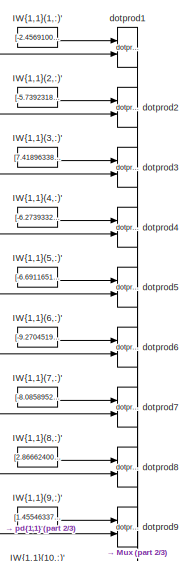
[diagram: controller1/optimized controller - pm/net_col_ab_1/Layer 1/IW{1,1} - part 1/3, top center region]
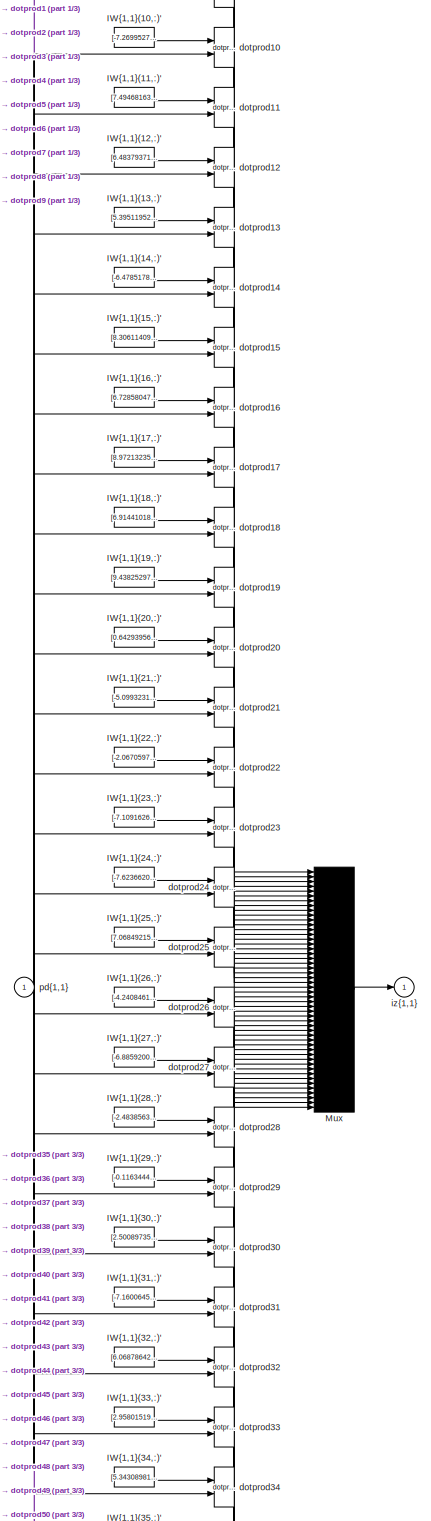
[diagram: controller1/optimized controller - pm/net_col_ab_1/Layer 1/IW{1,1} - part 2/3, full width, middle band]
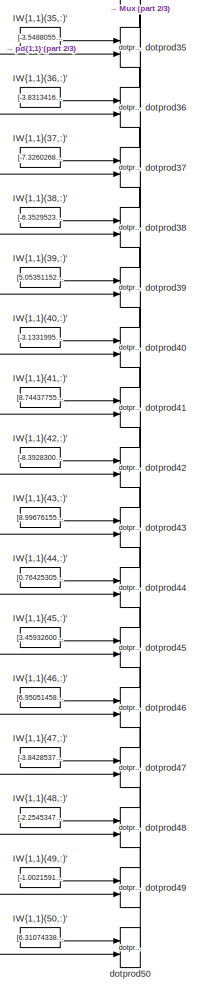
[diagram: controller1/optimized controller - pm/net_col_ab_1/Layer 1/IW{1,1} - part 3/3, bottom center region]
BLOCK [SubSystem] controller1/optimized controller - pm/net_col_ab_1/Layer 1/IW{1,1}
  FunctionWithSeparateData = off
  MaskDisplay = e = 0.06;c1 = [120 150 230]/255;c2 = ([120 150 230]+0)/383;c3 = ([120 150 230]+128)/383;patch([0 1 1 0],[0 0 1 1],c1);patch([0 1 1 1-e 1-e 0+e],[0 0 1 1-e 0+e 0+e],c2);patch([0 0 1 1-e 0+e 0+e],[0 1 1 1-e 1-e 0+e],c3);plot([0 1 1 0 0],[0 0 1 1 0]);disp('W');  <repeated x9 — deduplicated; at blocks: IW{1,1}, LW{2,1}, LW{3,2}>
  MaskHideContents = off
  MaskIconFrame = off
  MaskIconOpaque = on
  MaskIconRotate = none
  MaskIconUnits = autoscale
  MaskPortRotate = default
  MinAlgLoopOccurrences = off
  Opaque = off
  Ports = [1, 1]
  PropExecContextOutsideSubsystem = off
  RTWSystemCode = Auto
  RequestExecContextInheritance = off
  SID = 37657
BLOCK [Constant] controller1/optimized controller - pm/net_col_ab_1/Layer 1/IW{1,1}/IW{1,1}(1,:)'
  MaskDisplay = e = 0.06;c1 = [120 150 230]/255;c2 = ([120 150 230]+0)/383;c3 = ([120 150 230]+128)/383;patch([0 1 1 0],[0 0 1 1],c1);patch([0 1 1 1-e 1-e 0+e],[0 0 1 1-e 0+e 0+e],c2);patch([0 0 1 1-e 0+e 0+e],[0 1 1 1-e 1-e 0+e],c3);plot([0 1 1 0 0],[0 0 1 1 0]);disp('Weights');  <repeated x150 — deduplicated; at blocks: IW{1,1}(1,:)', IW{1,1}(10,:)', IW{1,1}(11,:)', IW{1,1}(12,:)', IW{1,1}(13,:)', IW{1,1}(14,:)', IW{1,1}(15,:)', IW{1,1}(16,:)', IW{1,1}(17,:)', IW{1,1}(18,:)', IW{1,1}(19,:)', IW{1,1}(2,:)', IW{1,1}(20,:)', IW{1,1}(21,:)', IW{1,1}(22,:)', IW{1,1}(23,:)', +34 more>
  MaskIconFrame = off
  MaskIconOpaque = on
  MaskIconRotate = none
  MaskIconUnits = autoscale
  MaskPortRotate = default
  SID = 37659
  Value = [-2.4569100967622721;8.8491181336140219;-4.6534587024568008]
BLOCK [Constant] controller1/optimized controller - pm/net_col_ab_1/Layer 1/IW{1,1}/IW{1,1}(10,:)'
  MaskIconFrame = off
  MaskIconOpaque = on
  MaskIconRotate = none
  MaskIconUnits = autoscale
  MaskPortRotate = default
  SID = 37660
  Value = [-7.2699527594873015;6.5375199415109648;3.1424992459006318]
BLOCK [Constant] controller1/optimized controller - pm/net_col_ab_1/Layer 1/IW{1,1}/IW{1,1}(11,:)'
  MaskIconFrame = off
  MaskIconOpaque = on
  MaskIconRotate = none
  MaskIconUnits = autoscale
  MaskPortRotate = default
  SID = 37661
  Value = [7.4946816330257588;3.9649149208283614;5.9181948928204333]
BLOCK [Constant] controller1/optimized controller - pm/net_col_ab_1/Layer 1/IW{1,1}/IW{1,1}(12,:)'
  MaskIconFrame = off
  MaskIconOpaque = on
  MaskIconRotate = none
  MaskIconUnits = autoscale
  MaskPortRotate = default
  SID = 37662
  Value = [6.4837937177477931;-3.0855262635889598;-8.3685850774852]
BLOCK [Constant] controller1/optimized controller - pm/net_col_ab_1/Layer 1/IW{1,1}/IW{1,1}(13,:)'
  MaskIconFrame = off
  MaskIconOpaque = on
  MaskIconRotate = none
  MaskIconUnits = autoscale
  MaskPortRotate = default
  SID = 37663
  Value = [5.3951195285964957;8.0275257463514205;4.5988461622476366]
BLOCK [Constant] controller1/optimized controller - pm/net_col_ab_1/Layer 1/IW{1,1}/IW{1,1}(14,:)'
  MaskIconFrame = off
  MaskIconOpaque = on
  MaskIconRotate = none
  MaskIconUnits = autoscale
  MaskPortRotate = default
  SID = 37664
  Value = [-6.4785178634548144;-6.7848655270917684;0.47939461342731859]
BLOCK [Constant] controller1/optimized controller - pm/net_col_ab_1/Layer 1/IW{1,1}/IW{1,1}(15,:)'
  MaskIconFrame = off
  MaskIconOpaque = on
  MaskIconRotate = none
  MaskIconUnits = autoscale
  MaskPortRotate = default
  SID = 37665
  Value = [8.3061140910796691;5.7676059454836777;-2.4679524797498722]
BLOCK [Constant] controller1/optimized controller - pm/net_col_ab_1/Layer 1/IW{1,1}/IW{1,1}(16,:)'
  MaskIconFrame = off
  MaskIconOpaque = on
  MaskIconRotate = none
  MaskIconUnits = autoscale
  MaskPortRotate = default
  SID = 37666
  Value = [6.7285804747819515;4.0223242486313193;-7.6052967005095793]
BLOCK [Constant] controller1/optimized controller - pm/net_col_ab_1/Layer 1/IW{1,1}/IW{1,1}(17,:)'
  MaskIconFrame = off
  MaskIconOpaque = on
  MaskIconRotate = none
  MaskIconUnits = autoscale
  MaskPortRotate = default
  SID = 37667
  Value = [8.9721323533506556;2.2792491433296829;4.9519985398848538]
BLOCK [Constant] controller1/optimized controller - pm/net_col_ab_1/Layer 1/IW{1,1}/IW{1,1}(18,:)'
  MaskIconFrame = off
  MaskIconOpaque = on
  MaskIconRotate = none
  MaskIconUnits = autoscale
  MaskPortRotate = default
  SID = 37668
  Value = [6.9144101870271157;-5.5986678071659632;-4.3407228966482458]
BLOCK [Constant] controller1/optimized controller - pm/net_col_ab_1/Layer 1/IW{1,1}/IW{1,1}(19,:)'
  MaskIconFrame = off
  MaskIconOpaque = on
  MaskIconRotate = none
  MaskIconUnits = autoscale
  MaskPortRotate = default
  SID = 37669
  Value = [9.4382529785009268;2.7183804678209684;2.9611301123370888]
BLOCK [Constant] controller1/optimized controller - pm/net_col_ab_1/Layer 1/IW{1,1}/IW{1,1}(2,:)'
  MaskIconFrame = off
  MaskIconOpaque = on
  MaskIconRotate = none
  MaskIconUnits = autoscale
  MaskPortRotate = default
  SID = 37670
  Value = [-5.7392318041084032;-7.6216056490145991;-4.4382199590806239]
BLOCK [Constant] controller1/optimized controller - pm/net_col_ab_1/Layer 1/IW{1,1}/IW{1,1}(20,:)'
  MaskIconFrame = off
  MaskIconOpaque = on
  MaskIconRotate = none
  MaskIconUnits = autoscale
  MaskPortRotate = default
  SID = 37671
  Value = [0.6429395612333989;-7.2355425362887926;6.9692042264238134]
BLOCK [Constant] controller1/optimized controller - pm/net_col_ab_1/Layer 1/IW{1,1}/IW{1,1}(21,:)'
  MaskIconFrame = off
  MaskIconOpaque = on
  MaskIconRotate = none
  MaskIconUnits = autoscale
  MaskPortRotate = default
  SID = 37672
  Value = [-5.0993231937698589;-6.469489675391694;-6.0814021219618155]
BLOCK [Constant] controller1/optimized controller - pm/net_col_ab_1/Layer 1/IW{1,1}/IW{1,1}(22,:)'
  MaskIconFrame = off
  MaskIconOpaque = on
  MaskIconRotate = none
  MaskIconUnits = autoscale
  MaskPortRotate = default
  SID = 37673
  Value = [-2.0670597340695354;-6.9900581006379605;-7.0934939067883169]
BLOCK [Constant] controller1/optimized controller - pm/net_col_ab_1/Layer 1/IW{1,1}/IW{1,1}(23,:)'
  MaskIconFrame = off
  MaskIconOpaque = on
  MaskIconRotate = none
  MaskIconUnits = autoscale
  MaskPortRotate = default
  SID = 37674
  Value = [-7.109162637329776;7.6614885390163963;1.0996761106850259]
BLOCK [Constant] controller1/optimized controller - pm/net_col_ab_1/Layer 1/IW{1,1}/IW{1,1}(24,:)'
  MaskIconFrame = off
  MaskIconOpaque = on
  MaskIconRotate = none
  MaskIconUnits = autoscale
  MaskPortRotate = default
  SID = 37675
  Value = [-7.6236620711737881;-6.9676681849922;0.11299136602231943]
BLOCK [Constant] controller1/optimized controller - pm/net_col_ab_1/Layer 1/IW{1,1}/IW{1,1}(25,:)'
  MaskIconFrame = off
  MaskIconOpaque = on
  MaskIconRotate = none
  MaskIconUnits = autoscale
  MaskPortRotate = default
  SID = 37676
  Value = [7.0684921599972421;-3.0951812892753514;6.85115585634734]
BLOCK [Constant] controller1/optimized controller - pm/net_col_ab_1/Layer 1/IW{1,1}/IW{1,1}(26,:)'
  MaskIconFrame = off
  MaskIconOpaque = on
  MaskIconRotate = none
  MaskIconUnits = autoscale
  MaskPortRotate = default
  SID = 37677
  Value = [-4.2408461660583132;-7.4916083794752106;5.6462729801441256]
BLOCK [Constant] controller1/optimized controller - pm/net_col_ab_1/Layer 1/IW{1,1}/IW{1,1}(27,:)'
  MaskIconFrame = off
  MaskIconOpaque = on
  MaskIconRotate = none
  MaskIconUnits = autoscale
  MaskPortRotate = default
  SID = 37678
  Value = [-6.8859200370443547;-1.7807763068032698;7.5829520367541665]
BLOCK [Constant] controller1/optimized controller - pm/net_col_ab_1/Layer 1/IW{1,1}/IW{1,1}(28,:)'
  MaskIconFrame = off
  MaskIconOpaque = on
  MaskIconRotate = none
  MaskIconUnits = autoscale
  MaskPortRotate = default
  SID = 37679
  Value = [-2.4838563268348142;-7.0088815273276417;-8.3253000306641187]
BLOCK [Constant] controller1/optimized controller - pm/net_col_ab_1/Layer 1/IW{1,1}/IW{1,1}(29,:)'
  MaskIconFrame = off
  MaskIconOpaque = on
  MaskIconRotate = none
  MaskIconUnits = autoscale
  MaskPortRotate = default
  SID = 37680
  Value = [-0.11634442944880341;6.3224959936307767;-8.5521791567167877]
BLOCK [Constant] controller1/optimized controller - pm/net_col_ab_1/Layer 1/IW{1,1}/IW{1,1}(3,:)'
  MaskIconFrame = off
  MaskIconOpaque = on
  MaskIconRotate = none
  MaskIconUnits = autoscale
  MaskPortRotate = default
  SID = 37681
  Value = [7.4189633816088767;-5.702427372119697;3.6872699006782366]
BLOCK [Constant] controller1/optimized controller - pm/net_col_ab_1/Layer 1/IW{1,1}/IW{1,1}(30,:)'
  MaskIconFrame = off
  MaskIconOpaque = on
  MaskIconRotate = none
  MaskIconUnits = autoscale
  MaskPortRotate = default
  SID = 37682
  Value = [2.5008973500102858;-4.555537327892039;-8.363520483898137]
BLOCK [Constant] controller1/optimized controller - pm/net_col_ab_1/Layer 1/IW{1,1}/IW{1,1}(31,:)'
  MaskIconFrame = off
  MaskIconOpaque = on
  MaskIconRotate = none
  MaskIconUnits = autoscale
  MaskPortRotate = default
  SID = 37683
  Value = [-7.1600645753323722;-5.7052856394014491;4.394487272789787]
BLOCK [Constant] controller1/optimized controller - pm/net_col_ab_1/Layer 1/IW{1,1}/IW{1,1}(32,:)'
  MaskIconFrame = off
  MaskIconOpaque = on
  MaskIconRotate = none
  MaskIconUnits = autoscale
  MaskPortRotate = default
  SID = 37684
  Value = [6.0687864253961736;-3.5161985088314944;8.4706895835151972]
BLOCK [Constant] controller1/optimized controller - pm/net_col_ab_1/Layer 1/IW{1,1}/IW{1,1}(33,:)'
  MaskIconFrame = off
  MaskIconOpaque = on
  MaskIconRotate = none
  MaskIconUnits = autoscale
  MaskPortRotate = default
  SID = 37685
  Value = [2.9580151947401783;-1.5007042025997086;8.9943031099752861]
BLOCK [Constant] controller1/optimized controller - pm/net_col_ab_1/Layer 1/IW{1,1}/IW{1,1}(34,:)'
  MaskIconFrame = off
  MaskIconOpaque = on
  MaskIconRotate = none
  MaskIconUnits = autoscale
  MaskPortRotate = default
  SID = 37686
  Value = [5.3430898175411645;-7.0627025805154586;-5.3785166856086484]
BLOCK [Constant] controller1/optimized controller - pm/net_col_ab_1/Layer 1/IW{1,1}/IW{1,1}(35,:)'
  MaskIconFrame = off
  MaskIconOpaque = on
  MaskIconRotate = none
  MaskIconUnits = autoscale
  MaskPortRotate = default
  SID = 37687
  Value = [-3.5488055203531852;9.2697234908417414;4.4043709623812539]
BLOCK [Constant] controller1/optimized controller - pm/net_col_ab_1/Layer 1/IW{1,1}/IW{1,1}(36,:)'
  MaskIconFrame = off
  MaskIconOpaque = on
  MaskIconRotate = none
  MaskIconUnits = autoscale
  MaskPortRotate = default
  SID = 37688
  Value = [-3.8313416541504197;-3.2835974850074159;-8.2665205000252246]
BLOCK [Constant] controller1/optimized controller - pm/net_col_ab_1/Layer 1/IW{1,1}/IW{1,1}(37,:)'
  MaskIconFrame = off
  MaskIconOpaque = on
  MaskIconRotate = none
  MaskIconUnits = autoscale
  MaskPortRotate = default
  SID = 37689
  Value = [-7.326026823829018;-3.3332061756272666;-6.5694911285369866]
BLOCK [Constant] controller1/optimized controller - pm/net_col_ab_1/Layer 1/IW{1,1}/IW{1,1}(38,:)'
  MaskIconFrame = off
  MaskIconOpaque = on
  MaskIconRotate = none
  MaskIconUnits = autoscale
  MaskPortRotate = default
  SID = 37690
  Value = [-6.3529523615596553;-7.5537074790635588;2.34179429727675]
BLOCK [Constant] controller1/optimized controller - pm/net_col_ab_1/Layer 1/IW{1,1}/IW{1,1}(39,:)'
  MaskIconFrame = off
  MaskIconOpaque = on
  MaskIconRotate = none
  MaskIconUnits = autoscale
  MaskPortRotate = default
  SID = 37691
  Value = [5.0535115235412134;-6.9876105060651259;-5.9798506055630813]
BLOCK [Constant] controller1/optimized controller - pm/net_col_ab_1/Layer 1/IW{1,1}/IW{1,1}(4,:)'
  MaskIconFrame = off
  MaskIconOpaque = on
  MaskIconRotate = none
  MaskIconUnits = autoscale
  MaskPortRotate = default
  SID = 37692
  Value = [-6.2739332884935282;-1.6833480540114349;-8.4250571001650236]
BLOCK [Constant] controller1/optimized controller - pm/net_col_ab_1/Layer 1/IW{1,1}/IW{1,1}(40,:)'
  MaskIconFrame = off
  MaskIconOpaque = on
  MaskIconRotate = none
  MaskIconUnits = autoscale
  MaskPortRotate = default
  SID = 37693
  Value = [-3.1331995155116781;-9.229531251183122;3.4708645422154802]
BLOCK [Constant] controller1/optimized controller - pm/net_col_ab_1/Layer 1/IW{1,1}/IW{1,1}(41,:)'
  MaskIconFrame = off
  MaskIconOpaque = on
  MaskIconRotate = none
  MaskIconUnits = autoscale
  MaskPortRotate = default
  SID = 37694
  Value = [8.7443775520292935;0.1205016706884508;5.4704998921926284]
BLOCK [Constant] controller1/optimized controller - pm/net_col_ab_1/Layer 1/IW{1,1}/IW{1,1}(42,:)'
  MaskIconFrame = off
  MaskIconOpaque = on
  MaskIconRotate = none
  MaskIconUnits = autoscale
  MaskPortRotate = default
  SID = 37695
  Value = [-8.3928300111230207;5.4885052799804184;1.6959769778141025]
BLOCK [Constant] controller1/optimized controller - pm/net_col_ab_1/Layer 1/IW{1,1}/IW{1,1}(43,:)'
  MaskIconFrame = off
  MaskIconOpaque = on
  MaskIconRotate = none
  MaskIconUnits = autoscale
  MaskPortRotate = default
  SID = 37696
  Value = [8.9967615587394505;2.4077272433131833;4.4198784127980497]
BLOCK [Constant] controller1/optimized controller - pm/net_col_ab_1/Layer 1/IW{1,1}/IW{1,1}(44,:)'
  MaskIconFrame = off
  MaskIconOpaque = on
  MaskIconRotate = none
  MaskIconUnits = autoscale
  MaskPortRotate = default
  SID = 37697
  Value = [0.76425305190066462;-8.5644494243373277;-5.8476638582484135]
BLOCK [Constant] controller1/optimized controller - pm/net_col_ab_1/Layer 1/IW{1,1}/IW{1,1}(45,:)'
  MaskIconFrame = off
  MaskIconOpaque = on
  MaskIconRotate = none
  MaskIconUnits = autoscale
  MaskPortRotate = default
  SID = 37698
  Value = [3.4593260088235707;-9.0697340674056832;5.6691318161477096]
BLOCK [Constant] controller1/optimized controller - pm/net_col_ab_1/Layer 1/IW{1,1}/IW{1,1}(46,:)'
  MaskIconFrame = off
  MaskIconOpaque = on
  MaskIconRotate = none
  MaskIconUnits = autoscale
  MaskPortRotate = default
  SID = 37699
  Value = [6.9505145863943083;3.8755624121260124;6.5744365152283448]
BLOCK [Constant] controller1/optimized controller - pm/net_col_ab_1/Layer 1/IW{1,1}/IW{1,1}(47,:)'
  MaskIconFrame = off
  MaskIconOpaque = on
  MaskIconRotate = none
  MaskIconUnits = autoscale
  MaskPortRotate = default
  SID = 37700
  Value = [-3.8428537853162834;6.5872555808193427;6.2260576017296057]
BLOCK [Constant] controller1/optimized controller - pm/net_col_ab_1/Layer 1/IW{1,1}/IW{1,1}(48,:)'
  MaskIconFrame = off
  MaskIconOpaque = on
  MaskIconRotate = none
  MaskIconUnits = autoscale
  MaskPortRotate = default
  SID = 37701
  Value = [-2.254534771439324;1.0329375164873671;-9.8336990647679219]
BLOCK [Constant] controller1/optimized controller - pm/net_col_ab_1/Layer 1/IW{1,1}/IW{1,1}(49,:)'
  MaskIconFrame = off
  MaskIconOpaque = on
  MaskIconRotate = none
  MaskIconUnits = autoscale
  MaskPortRotate = default
  SID = 37702
  Value = [-1.0021591852801666;-9.7741598172061934;-3.2984043672775565]
BLOCK [Constant] controller1/optimized controller - pm/net_col_ab_1/Layer 1/IW{1,1}/IW{1,1}(5,:)'
  MaskIconFrame = off
  MaskIconOpaque = on
  MaskIconRotate = none
  MaskIconUnits = autoscale
  MaskPortRotate = default
  SID = 37703
  Value = [-6.6911651377151937;-6.6981200116694151;-6.1962415911569195]
BLOCK [Constant] controller1/optimized controller - pm/net_col_ab_1/Layer 1/IW{1,1}/IW{1,1}(50,:)'
  MaskIconFrame = off
  MaskIconOpaque = on
  MaskIconRotate = none
  MaskIconUnits = autoscale
  MaskPortRotate = default
  SID = 37704
  Value = [6.3107433815662404;7.7888260712312771;-3.2190828915569352]
BLOCK [Constant] controller1/optimized controller - pm/net_col_ab_1/Layer 1/IW{1,1}/IW{1,1}(6,:)'
  MaskIconFrame = off
  MaskIconOpaque = on
  MaskIconRotate = none
  MaskIconUnits = autoscale
  MaskPortRotate = default
  SID = 37705
  Value = [-9.2704519705700434;0.33414206109334832;3.9305479244240331]
BLOCK [Constant] controller1/optimized controller - pm/net_col_ab_1/Layer 1/IW{1,1}/IW{1,1}(7,:)'
  MaskIconFrame = off
  MaskIconOpaque = on
  MaskIconRotate = none
  MaskIconUnits = autoscale
  MaskPortRotate = default
  SID = 37706
  Value = [-8.0858952994957765;-3.2464957507839807;2.2449804638617419]
BLOCK [Constant] controller1/optimized controller - pm/net_col_ab_1/Layer 1/IW{1,1}/IW{1,1}(8,:)'
  MaskIconFrame = off
  MaskIconOpaque = on
  MaskIconRotate = none
  MaskIconUnits = autoscale
  MaskPortRotate = default
  SID = 37707
  Value = [2.8666240076851479;-9.7279499768126634;0.81821223171832569]
BLOCK [Constant] controller1/optimized controller - pm/net_col_ab_1/Layer 1/IW{1,1}/IW{1,1}(9,:)'
  MaskIconFrame = off
  MaskIconOpaque = on
  MaskIconRotate = none
  MaskIconUnits = autoscale
  MaskPortRotate = default
  SID = 37708
  Value = [1.4554633763251581;-7.511669149012576;6.3194131213438594]
BLOCK [Mux] controller1/optimized controller - pm/net_col_ab_1/Layer 1/IW{1,1}/Mux
  Inputs = 50
  MaskDisplay = e = 0.06;c1 = [120 150 230]/255;c2 = ([120 150 230]+0)/383;c3 = ([120 150 230]+128)/383;patch([0 1 1 0],[0 0 1 1],c1);patch([0 1 1 1-e 1-e 0+e],[0 0 1 1-e 0+e 0+e],c2);patch([0 0 1 1-e 0+e 0+e],[0 1 1 1-e 1-e 0+e],c3);plot([0 1 1 0 0],[0 0 1 1 0]);disp('Mux');  <repeated x9 — deduplicated; at blocks: Mux>
  MaskIconFrame = off
  MaskIconOpaque = on
  MaskIconRotate = none
  MaskIconUnits = autoscale
  MaskPortRotate = default
  Ports = [50, 1]
  SID = 37709
BLOCK [Reference] controller1/optimized controller - pm/net_col_ab_1/Layer 1/IW{1,1}/dotprod1  REF=neural/Weight Functions/dotprod
  FunctionWithSeparateData = off
  GeneratePreprocessorConditionals = off
  Ports = [2, 1]
  RTWMemSecDataConstants = Inherit from model
  RTWMemSecDataInternal = Inherit from model
  RTWMemSecDataParameters = Inherit from model
  RTWMemSecFuncExecute = Inherit from model
  RTWMemSecFuncInitTerm = Inherit from model
  SID = 37710
  ShowPortLabels = FromPortIcon
  SourceBlock = neural/Weight Functions/dotprod
  SourceType = DOTPROD
  SystemSampleTime = -1
BLOCK [Reference] controller1/optimized controller - pm/net_col_ab_1/Layer 1/IW{1,1}/dotprod10  REF=neural/Weight Functions/dotprod
  FunctionWithSeparateData = off
  GeneratePreprocessorConditionals = off
  Ports = [2, 1]
  RTWMemSecDataConstants = Inherit from model
  RTWMemSecDataInternal = Inherit from model
  RTWMemSecDataParameters = Inherit from model
  RTWMemSecFuncExecute = Inherit from model
  RTWMemSecFuncInitTerm = Inherit from model
  SID = 37711
  ShowPortLabels = FromPortIcon
  SourceBlock = neural/Weight Functions/dotprod
  SourceType = DOTPROD
  SystemSampleTime = -1
BLOCK [Reference] controller1/optimized controller - pm/net_col_ab_1/Layer 1/IW{1,1}/dotprod11  REF=neural/Weight Functions/dotprod
  FunctionWithSeparateData = off
  GeneratePreprocessorConditionals = off
  Ports = [2, 1]
  RTWMemSecDataConstants = Inherit from model
  RTWMemSecDataInternal = Inherit from model
  RTWMemSecDataParameters = Inherit from model
  RTWMemSecFuncExecute = Inherit from model
  RTWMemSecFuncInitTerm = Inherit from model
  SID = 37712
  ShowPortLabels = FromPortIcon
  SourceBlock = neural/Weight Functions/dotprod
  SourceType = DOTPROD
  SystemSampleTime = -1
BLOCK [Reference] controller1/optimized controller - pm/net_col_ab_1/Layer 1/IW{1,1}/dotprod12  REF=neural/Weight Functions/dotprod
  FunctionWithSeparateData = off
  GeneratePreprocessorConditionals = off
  Ports = [2, 1]
  RTWMemSecDataConstants = Inherit from model
  RTWMemSecDataInternal = Inherit from model
  RTWMemSecDataParameters = Inherit from model
  RTWMemSecFuncExecute = Inherit from model
  RTWMemSecFuncInitTerm = Inherit from model
  SID = 37713
  ShowPortLabels = FromPortIcon
  SourceBlock = neural/Weight Functions/dotprod
  SourceType = DOTPROD
  SystemSampleTime = -1
BLOCK [Reference] controller1/optimized controller - pm/net_col_ab_1/Layer 1/IW{1,1}/dotprod13  REF=neural/Weight Functions/dotprod
  FunctionWithSeparateData = off
  GeneratePreprocessorConditionals = off
  Ports = [2, 1]
  RTWMemSecDataConstants = Inherit from model
  RTWMemSecDataInternal = Inherit from model
  RTWMemSecDataParameters = Inherit from model
  RTWMemSecFuncExecute = Inherit from model
  RTWMemSecFuncInitTerm = Inherit from model
  SID = 37714
  ShowPortLabels = FromPortIcon
  SourceBlock = neural/Weight Functions/dotprod
  SourceType = DOTPROD
  SystemSampleTime = -1
BLOCK [Reference] controller1/optimized controller - pm/net_col_ab_1/Layer 1/IW{1,1}/dotprod14  REF=neural/Weight Functions/dotprod
  FunctionWithSeparateData = off
  GeneratePreprocessorConditionals = off
  Ports = [2, 1]
  RTWMemSecDataConstants = Inherit from model
  RTWMemSecDataInternal = Inherit from model
  RTWMemSecDataParameters = Inherit from model
  RTWMemSecFuncExecute = Inherit from model
  RTWMemSecFuncInitTerm = Inherit from model
  SID = 37715
  ShowPortLabels = FromPortIcon
  SourceBlock = neural/Weight Functions/dotprod
  SourceType = DOTPROD
  SystemSampleTime = -1
BLOCK [Reference] controller1/optimized controller - pm/net_col_ab_1/Layer 1/IW{1,1}/dotprod15  REF=neural/Weight Functions/dotprod
  FunctionWithSeparateData = off
  GeneratePreprocessorConditionals = off
  Ports = [2, 1]
  RTWMemSecDataConstants = Inherit from model
  RTWMemSecDataInternal = Inherit from model
  RTWMemSecDataParameters = Inherit from model
  RTWMemSecFuncExecute = Inherit from model
  RTWMemSecFuncInitTerm = Inherit from model
  SID = 37716
  ShowPortLabels = FromPortIcon
  SourceBlock = neural/Weight Functions/dotprod
  SourceType = DOTPROD
  SystemSampleTime = -1
BLOCK [Reference] controller1/optimized controller - pm/net_col_ab_1/Layer 1/IW{1,1}/dotprod16  REF=neural/Weight Functions/dotprod
  FunctionWithSeparateData = off
  GeneratePreprocessorConditionals = off
  Ports = [2, 1]
  RTWMemSecDataConstants = Inherit from model
  RTWMemSecDataInternal = Inherit from model
  RTWMemSecDataParameters = Inherit from model
  RTWMemSecFuncExecute = Inherit from model
  RTWMemSecFuncInitTerm = Inherit from model
  SID = 37717
  ShowPortLabels = FromPortIcon
  SourceBlock = neural/Weight Functions/dotprod
  SourceType = DOTPROD
  SystemSampleTime = -1
BLOCK [Reference] controller1/optimized controller - pm/net_col_ab_1/Layer 1/IW{1,1}/dotprod17  REF=neural/Weight Functions/dotprod
  FunctionWithSeparateData = off
  GeneratePreprocessorConditionals = off
  Ports = [2, 1]
  RTWMemSecDataConstants = Inherit from model
  RTWMemSecDataInternal = Inherit from model
  RTWMemSecDataParameters = Inherit from model
  RTWMemSecFuncExecute = Inherit from model
  RTWMemSecFuncInitTerm = Inherit from model
  SID = 37718
  ShowPortLabels = FromPortIcon
  SourceBlock = neural/Weight Functions/dotprod
  SourceType = DOTPROD
  SystemSampleTime = -1
BLOCK [Reference] controller1/optimized controller - pm/net_col_ab_1/Layer 1/IW{1,1}/dotprod18  REF=neural/Weight Functions/dotprod
  FunctionWithSeparateData = off
  GeneratePreprocessorConditionals = off
  Ports = [2, 1]
  RTWMemSecDataConstants = Inherit from model
  RTWMemSecDataInternal = Inherit from model
  RTWMemSecDataParameters = Inherit from model
  RTWMemSecFuncExecute = Inherit from model
  RTWMemSecFuncInitTerm = Inherit from model
  SID = 37719
  ShowPortLabels = FromPortIcon
  SourceBlock = neural/Weight Functions/dotprod
  SourceType = DOTPROD
  SystemSampleTime = -1
BLOCK [Reference] controller1/optimized controller - pm/net_col_ab_1/Layer 1/IW{1,1}/dotprod19  REF=neural/Weight Functions/dotprod
  FunctionWithSeparateData = off
  GeneratePreprocessorConditionals = off
  Ports = [2, 1]
  RTWMemSecDataConstants = Inherit from model
  RTWMemSecDataInternal = Inherit from model
  RTWMemSecDataParameters = Inherit from model
  RTWMemSecFuncExecute = Inherit from model
  RTWMemSecFuncInitTerm = Inherit from model
  SID = 37720
  ShowPortLabels = FromPortIcon
  SourceBlock = neural/Weight Functions/dotprod
  SourceType = DOTPROD
  SystemSampleTime = -1
BLOCK [Reference] controller1/optimized controller - pm/net_col_ab_1/Layer 1/IW{1,1}/dotprod2  REF=neural/Weight Functions/dotprod
  FunctionWithSeparateData = off
  GeneratePreprocessorConditionals = off
  Ports = [2, 1]
  RTWMemSecDataConstants = Inherit from model
  RTWMemSecDataInternal = Inherit from model
  RTWMemSecDataParameters = Inherit from model
  RTWMemSecFuncExecute = Inherit from model
  RTWMemSecFuncInitTerm = Inherit from model
  SID = 37721
  ShowPortLabels = FromPortIcon
  SourceBlock = neural/Weight Functions/dotprod
  SourceType = DOTPROD
  SystemSampleTime = -1
BLOCK [Reference] controller1/optimized controller - pm/net_col_ab_1/Layer 1/IW{1,1}/dotprod20  REF=neural/Weight Functions/dotprod
  FunctionWithSeparateData = off
  GeneratePreprocessorConditionals = off
  Ports = [2, 1]
  RTWMemSecDataConstants = Inherit from model
  RTWMemSecDataInternal = Inherit from model
  RTWMemSecDataParameters = Inherit from model
  RTWMemSecFuncExecute = Inherit from model
  RTWMemSecFuncInitTerm = Inherit from model
  SID = 37722
  ShowPortLabels = FromPortIcon
  SourceBlock = neural/Weight Functions/dotprod
  SourceType = DOTPROD
  SystemSampleTime = -1
BLOCK [Reference] controller1/optimized controller - pm/net_col_ab_1/Layer 1/IW{1,1}/dotprod21  REF=neural/Weight Functions/dotprod
  FunctionWithSeparateData = off
  GeneratePreprocessorConditionals = off
  Ports = [2, 1]
  RTWMemSecDataConstants = Inherit from model
  RTWMemSecDataInternal = Inherit from model
  RTWMemSecDataParameters = Inherit from model
  RTWMemSecFuncExecute = Inherit from model
  RTWMemSecFuncInitTerm = Inherit from model
  SID = 37723
  ShowPortLabels = FromPortIcon
  SourceBlock = neural/Weight Functions/dotprod
  SourceType = DOTPROD
  SystemSampleTime = -1
BLOCK [Reference] controller1/optimized controller - pm/net_col_ab_1/Layer 1/IW{1,1}/dotprod22  REF=neural/Weight Functions/dotprod
  FunctionWithSeparateData = off
  GeneratePreprocessorConditionals = off
  Ports = [2, 1]
  RTWMemSecDataConstants = Inherit from model
  RTWMemSecDataInternal = Inherit from model
  RTWMemSecDataParameters = Inherit from model
  RTWMemSecFuncExecute = Inherit from model
  RTWMemSecFuncInitTerm = Inherit from model
  SID = 37724
  ShowPortLabels = FromPortIcon
  SourceBlock = neural/Weight Functions/dotprod
  SourceType = DOTPROD
  SystemSampleTime = -1
BLOCK [Reference] controller1/optimized controller - pm/net_col_ab_1/Layer 1/IW{1,1}/dotprod23  REF=neural/Weight Functions/dotprod
  FunctionWithSeparateData = off
  GeneratePreprocessorConditionals = off
  Ports = [2, 1]
  RTWMemSecDataConstants = Inherit from model
  RTWMemSecDataInternal = Inherit from model
  RTWMemSecDataParameters = Inherit from model
  RTWMemSecFuncExecute = Inherit from model
  RTWMemSecFuncInitTerm = Inherit from model
  SID = 37725
  ShowPortLabels = FromPortIcon
  SourceBlock = neural/Weight Functions/dotprod
  SourceType = DOTPROD
  SystemSampleTime = -1
BLOCK [Reference] controller1/optimized controller - pm/net_col_ab_1/Layer 1/IW{1,1}/dotprod24  REF=neural/Weight Functions/dotprod
  FunctionWithSeparateData = off
  GeneratePreprocessorConditionals = off
  Ports = [2, 1]
  RTWMemSecDataConstants = Inherit from model
  RTWMemSecDataInternal = Inherit from model
  RTWMemSecDataParameters = Inherit from model
  RTWMemSecFuncExecute = Inherit from model
  RTWMemSecFuncInitTerm = Inherit from model
  SID = 37726
  ShowPortLabels = FromPortIcon
  SourceBlock = neural/Weight Functions/dotprod
  SourceType = DOTPROD
  SystemSampleTime = -1
BLOCK [Reference] controller1/optimized controller - pm/net_col_ab_1/Layer 1/IW{1,1}/dotprod25  REF=neural/Weight Functions/dotprod
  FunctionWithSeparateData = off
  GeneratePreprocessorConditionals = off
  Ports = [2, 1]
  RTWMemSecDataConstants = Inherit from model
  RTWMemSecDataInternal = Inherit from model
  RTWMemSecDataParameters = Inherit from model
  RTWMemSecFuncExecute = Inherit from model
  RTWMemSecFuncInitTerm = Inherit from model
  SID = 37727
  ShowPortLabels = FromPortIcon
  SourceBlock = neural/Weight Functions/dotprod
  SourceType = DOTPROD
  SystemSampleTime = -1
BLOCK [Reference] controller1/optimized controller - pm/net_col_ab_1/Layer 1/IW{1,1}/dotprod26  REF=neural/Weight Functions/dotprod
  FunctionWithSeparateData = off
  GeneratePreprocessorConditionals = off
  Ports = [2, 1]
  RTWMemSecDataConstants = Inherit from model
  RTWMemSecDataInternal = Inherit from model
  RTWMemSecDataParameters = Inherit from model
  RTWMemSecFuncExecute = Inherit from model
  RTWMemSecFuncInitTerm = Inherit from model
  SID = 37728
  ShowPortLabels = FromPortIcon
  SourceBlock = neural/Weight Functions/dotprod
  SourceType = DOTPROD
  SystemSampleTime = -1
BLOCK [Reference] controller1/optimized controller - pm/net_col_ab_1/Layer 1/IW{1,1}/dotprod27  REF=neural/Weight Functions/dotprod
  FunctionWithSeparateData = off
  GeneratePreprocessorConditionals = off
  Ports = [2, 1]
  RTWMemSecDataConstants = Inherit from model
  RTWMemSecDataInternal = Inherit from model
  RTWMemSecDataParameters = Inherit from model
  RTWMemSecFuncExecute = Inherit from model
  RTWMemSecFuncInitTerm = Inherit from model
  SID = 37729
  ShowPortLabels = FromPortIcon
  SourceBlock = neural/Weight Functions/dotprod
  SourceType = DOTPROD
  SystemSampleTime = -1
BLOCK [Reference] controller1/optimized controller - pm/net_col_ab_1/Layer 1/IW{1,1}/dotprod28  REF=neural/Weight Functions/dotprod
  FunctionWithSeparateData = off
  GeneratePreprocessorConditionals = off
  Ports = [2, 1]
  RTWMemSecDataConstants = Inherit from model
  RTWMemSecDataInternal = Inherit from model
  RTWMemSecDataParameters = Inherit from model
  RTWMemSecFuncExecute = Inherit from model
  RTWMemSecFuncInitTerm = Inherit from model
  SID = 37730
  ShowPortLabels = FromPortIcon
  SourceBlock = neural/Weight Functions/dotprod
  SourceType = DOTPROD
  SystemSampleTime = -1
BLOCK [Reference] controller1/optimized controller - pm/net_col_ab_1/Layer 1/IW{1,1}/dotprod29  REF=neural/Weight Functions/dotprod
  FunctionWithSeparateData = off
  GeneratePreprocessorConditionals = off
  Ports = [2, 1]
  RTWMemSecDataConstants = Inherit from model
  RTWMemSecDataInternal = Inherit from model
  RTWMemSecDataParameters = Inherit from model
  RTWMemSecFuncExecute = Inherit from model
  RTWMemSecFuncInitTerm = Inherit from model
  SID = 37731
  ShowPortLabels = FromPortIcon
  SourceBlock = neural/Weight Functions/dotprod
  SourceType = DOTPROD
  SystemSampleTime = -1
BLOCK [Reference] controller1/optimized controller - pm/net_col_ab_1/Layer 1/IW{1,1}/dotprod3  REF=neural/Weight Functions/dotprod
  FunctionWithSeparateData = off
  GeneratePreprocessorConditionals = off
  Ports = [2, 1]
  RTWMemSecDataConstants = Inherit from model
  RTWMemSecDataInternal = Inherit from model
  RTWMemSecDataParameters = Inherit from model
  RTWMemSecFuncExecute = Inherit from model
  RTWMemSecFuncInitTerm = Inherit from model
  SID = 37732
  ShowPortLabels = FromPortIcon
  SourceBlock = neural/Weight Functions/dotprod
  SourceType = DOTPROD
  SystemSampleTime = -1
BLOCK [Reference] controller1/optimized controller - pm/net_col_ab_1/Layer 1/IW{1,1}/dotprod30  REF=neural/Weight Functions/dotprod
  FunctionWithSeparateData = off
  GeneratePreprocessorConditionals = off
  Ports = [2, 1]
  RTWMemSecDataConstants = Inherit from model
  RTWMemSecDataInternal = Inherit from model
  RTWMemSecDataParameters = Inherit from model
  RTWMemSecFuncExecute = Inherit from model
  RTWMemSecFuncInitTerm = Inherit from model
  SID = 37733
  ShowPortLabels = FromPortIcon
  SourceBlock = neural/Weight Functions/dotprod
  SourceType = DOTPROD
  SystemSampleTime = -1
BLOCK [Reference] controller1/optimized controller - pm/net_col_ab_1/Layer 1/IW{1,1}/dotprod31  REF=neural/Weight Functions/dotprod
  FunctionWithSeparateData = off
  GeneratePreprocessorConditionals = off
  Ports = [2, 1]
  RTWMemSecDataConstants = Inherit from model
  RTWMemSecDataInternal = Inherit from model
  RTWMemSecDataParameters = Inherit from model
  RTWMemSecFuncExecute = Inherit from model
  RTWMemSecFuncInitTerm = Inherit from model
  SID = 37734
  ShowPortLabels = FromPortIcon
  SourceBlock = neural/Weight Functions/dotprod
  SourceType = DOTPROD
  SystemSampleTime = -1
BLOCK [Reference] controller1/optimized controller - pm/net_col_ab_1/Layer 1/IW{1,1}/dotprod32  REF=neural/Weight Functions/dotprod
  FunctionWithSeparateData = off
  GeneratePreprocessorConditionals = off
  Ports = [2, 1]
  RTWMemSecDataConstants = Inherit from model
  RTWMemSecDataInternal = Inherit from model
  RTWMemSecDataParameters = Inherit from model
  RTWMemSecFuncExecute = Inherit from model
  RTWMemSecFuncInitTerm = Inherit from model
  SID = 37735
  ShowPortLabels = FromPortIcon
  SourceBlock = neural/Weight Functions/dotprod
  SourceType = DOTPROD
  SystemSampleTime = -1
BLOCK [Reference] controller1/optimized controller - pm/net_col_ab_1/Layer 1/IW{1,1}/dotprod33  REF=neural/Weight Functions/dotprod
  FunctionWithSeparateData = off
  GeneratePreprocessorConditionals = off
  Ports = [2, 1]
  RTWMemSecDataConstants = Inherit from model
  RTWMemSecDataInternal = Inherit from model
  RTWMemSecDataParameters = Inherit from model
  RTWMemSecFuncExecute = Inherit from model
  RTWMemSecFuncInitTerm = Inherit from model
  SID = 37736
  ShowPortLabels = FromPortIcon
  SourceBlock = neural/Weight Functions/dotprod
  SourceType = DOTPROD
  SystemSampleTime = -1
BLOCK [Reference] controller1/optimized controller - pm/net_col_ab_1/Layer 1/IW{1,1}/dotprod34  REF=neural/Weight Functions/dotprod
  FunctionWithSeparateData = off
  GeneratePreprocessorConditionals = off
  Ports = [2, 1]
  RTWMemSecDataConstants = Inherit from model
  RTWMemSecDataInternal = Inherit from model
  RTWMemSecDataParameters = Inherit from model
  RTWMemSecFuncExecute = Inherit from model
  RTWMemSecFuncInitTerm = Inherit from model
  SID = 37737
  ShowPortLabels = FromPortIcon
  SourceBlock = neural/Weight Functions/dotprod
  SourceType = DOTPROD
  SystemSampleTime = -1
BLOCK [Reference] controller1/optimized controller - pm/net_col_ab_1/Layer 1/IW{1,1}/dotprod35  REF=neural/Weight Functions/dotprod
  FunctionWithSeparateData = off
  GeneratePreprocessorConditionals = off
  Ports = [2, 1]
  RTWMemSecDataConstants = Inherit from model
  RTWMemSecDataInternal = Inherit from model
  RTWMemSecDataParameters = Inherit from model
  RTWMemSecFuncExecute = Inherit from model
  RTWMemSecFuncInitTerm = Inherit from model
  SID = 37738
  ShowPortLabels = FromPortIcon
  SourceBlock = neural/Weight Functions/dotprod
  SourceType = DOTPROD
  SystemSampleTime = -1
BLOCK [Reference] controller1/optimized controller - pm/net_col_ab_1/Layer 1/IW{1,1}/dotprod36  REF=neural/Weight Functions/dotprod
  FunctionWithSeparateData = off
  GeneratePreprocessorConditionals = off
  Ports = [2, 1]
  RTWMemSecDataConstants = Inherit from model
  RTWMemSecDataInternal = Inherit from model
  RTWMemSecDataParameters = Inherit from model
  RTWMemSecFuncExecute = Inherit from model
  RTWMemSecFuncInitTerm = Inherit from model
  SID = 37739
  ShowPortLabels = FromPortIcon
  SourceBlock = neural/Weight Functions/dotprod
  SourceType = DOTPROD
  SystemSampleTime = -1
BLOCK [Reference] controller1/optimized controller - pm/net_col_ab_1/Layer 1/IW{1,1}/dotprod37  REF=neural/Weight Functions/dotprod
  FunctionWithSeparateData = off
  GeneratePreprocessorConditionals = off
  Ports = [2, 1]
  RTWMemSecDataConstants = Inherit from model
  RTWMemSecDataInternal = Inherit from model
  RTWMemSecDataParameters = Inherit from model
  RTWMemSecFuncExecute = Inherit from model
  RTWMemSecFuncInitTerm = Inherit from model
  SID = 37740
  ShowPortLabels = FromPortIcon
  SourceBlock = neural/Weight Functions/dotprod
  SourceType = DOTPROD
  SystemSampleTime = -1
BLOCK [Reference] controller1/optimized controller - pm/net_col_ab_1/Layer 1/IW{1,1}/dotprod38  REF=neural/Weight Functions/dotprod
  FunctionWithSeparateData = off
  GeneratePreprocessorConditionals = off
  Ports = [2, 1]
  RTWMemSecDataConstants = Inherit from model
  RTWMemSecDataInternal = Inherit from model
  RTWMemSecDataParameters = Inherit from model
  RTWMemSecFuncExecute = Inherit from model
  RTWMemSecFuncInitTerm = Inherit from model
  SID = 37741
  ShowPortLabels = FromPortIcon
  SourceBlock = neural/Weight Functions/dotprod
  SourceType = DOTPROD
  SystemSampleTime = -1
BLOCK [Reference] controller1/optimized controller - pm/net_col_ab_1/Layer 1/IW{1,1}/dotprod39  REF=neural/Weight Functions/dotprod
  FunctionWithSeparateData = off
  GeneratePreprocessorConditionals = off
  Ports = [2, 1]
  RTWMemSecDataConstants = Inherit from model
  RTWMemSecDataInternal = Inherit from model
  RTWMemSecDataParameters = Inherit from model
  RTWMemSecFuncExecute = Inherit from model
  RTWMemSecFuncInitTerm = Inherit from model
  SID = 37742
  ShowPortLabels = FromPortIcon
  SourceBlock = neural/Weight Functions/dotprod
  SourceType = DOTPROD
  SystemSampleTime = -1
BLOCK [Reference] controller1/optimized controller - pm/net_col_ab_1/Layer 1/IW{1,1}/dotprod4  REF=neural/Weight Functions/dotprod
  FunctionWithSeparateData = off
  GeneratePreprocessorConditionals = off
  Ports = [2, 1]
  RTWMemSecDataConstants = Inherit from model
  RTWMemSecDataInternal = Inherit from model
  RTWMemSecDataParameters = Inherit from model
  RTWMemSecFuncExecute = Inherit from model
  RTWMemSecFuncInitTerm = Inherit from model
  SID = 37743
  ShowPortLabels = FromPortIcon
  SourceBlock = neural/Weight Functions/dotprod
  SourceType = DOTPROD
  SystemSampleTime = -1
BLOCK [Reference] controller1/optimized controller - pm/net_col_ab_1/Layer 1/IW{1,1}/dotprod40  REF=neural/Weight Functions/dotprod
  FunctionWithSeparateData = off
  GeneratePreprocessorConditionals = off
  Ports = [2, 1]
  RTWMemSecDataConstants = Inherit from model
  RTWMemSecDataInternal = Inherit from model
  RTWMemSecDataParameters = Inherit from model
  RTWMemSecFuncExecute = Inherit from model
  RTWMemSecFuncInitTerm = Inherit from model
  SID = 37744
  ShowPortLabels = FromPortIcon
  SourceBlock = neural/Weight Functions/dotprod
  SourceType = DOTPROD
  SystemSampleTime = -1
BLOCK [Reference] controller1/optimized controller - pm/net_col_ab_1/Layer 1/IW{1,1}/dotprod41  REF=neural/Weight Functions/dotprod
  FunctionWithSeparateData = off
  GeneratePreprocessorConditionals = off
  Ports = [2, 1]
  RTWMemSecDataConstants = Inherit from model
  RTWMemSecDataInternal = Inherit from model
  RTWMemSecDataParameters = Inherit from model
  RTWMemSecFuncExecute = Inherit from model
  RTWMemSecFuncInitTerm = Inherit from model
  SID = 37745
  ShowPortLabels = FromPortIcon
  SourceBlock = neural/Weight Functions/dotprod
  SourceType = DOTPROD
  SystemSampleTime = -1
BLOCK [Reference] controller1/optimized controller - pm/net_col_ab_1/Layer 1/IW{1,1}/dotprod42  REF=neural/Weight Functions/dotprod
  FunctionWithSeparateData = off
  GeneratePreprocessorConditionals = off
  Ports = [2, 1]
  RTWMemSecDataConstants = Inherit from model
  RTWMemSecDataInternal = Inherit from model
  RTWMemSecDataParameters = Inherit from model
  RTWMemSecFuncExecute = Inherit from model
  RTWMemSecFuncInitTerm = Inherit from model
  SID = 37746
  ShowPortLabels = FromPortIcon
  SourceBlock = neural/Weight Functions/dotprod
  SourceType = DOTPROD
  SystemSampleTime = -1
BLOCK [Reference] controller1/optimized controller - pm/net_col_ab_1/Layer 1/IW{1,1}/dotprod43  REF=neural/Weight Functions/dotprod
  FunctionWithSeparateData = off
  GeneratePreprocessorConditionals = off
  Ports = [2, 1]
  RTWMemSecDataConstants = Inherit from model
  RTWMemSecDataInternal = Inherit from model
  RTWMemSecDataParameters = Inherit from model
  RTWMemSecFuncExecute = Inherit from model
  RTWMemSecFuncInitTerm = Inherit from model
  SID = 37747
  ShowPortLabels = FromPortIcon
  SourceBlock = neural/Weight Functions/dotprod
  SourceType = DOTPROD
  SystemSampleTime = -1
BLOCK [Reference] controller1/optimized controller - pm/net_col_ab_1/Layer 1/IW{1,1}/dotprod44  REF=neural/Weight Functions/dotprod
  FunctionWithSeparateData = off
  GeneratePreprocessorConditionals = off
  Ports = [2, 1]
  RTWMemSecDataConstants = Inherit from model
  RTWMemSecDataInternal = Inherit from model
  RTWMemSecDataParameters = Inherit from model
  RTWMemSecFuncExecute = Inherit from model
  RTWMemSecFuncInitTerm = Inherit from model
  SID = 37748
  ShowPortLabels = FromPortIcon
  SourceBlock = neural/Weight Functions/dotprod
  SourceType = DOTPROD
  SystemSampleTime = -1
BLOCK [Reference] controller1/optimized controller - pm/net_col_ab_1/Layer 1/IW{1,1}/dotprod45  REF=neural/Weight Functions/dotprod
  FunctionWithSeparateData = off
  GeneratePreprocessorConditionals = off
  Ports = [2, 1]
  RTWMemSecDataConstants = Inherit from model
  RTWMemSecDataInternal = Inherit from model
  RTWMemSecDataParameters = Inherit from model
  RTWMemSecFuncExecute = Inherit from model
  RTWMemSecFuncInitTerm = Inherit from model
  SID = 37749
  ShowPortLabels = FromPortIcon
  SourceBlock = neural/Weight Functions/dotprod
  SourceType = DOTPROD
  SystemSampleTime = -1
BLOCK [Reference] controller1/optimized controller - pm/net_col_ab_1/Layer 1/IW{1,1}/dotprod46  REF=neural/Weight Functions/dotprod
  FunctionWithSeparateData = off
  GeneratePreprocessorConditionals = off
  Ports = [2, 1]
  RTWMemSecDataConstants = Inherit from model
  RTWMemSecDataInternal = Inherit from model
  RTWMemSecDataParameters = Inherit from model
  RTWMemSecFuncExecute = Inherit from model
  RTWMemSecFuncInitTerm = Inherit from model
  SID = 37750
  ShowPortLabels = FromPortIcon
  SourceBlock = neural/Weight Functions/dotprod
  SourceType = DOTPROD
  SystemSampleTime = -1
BLOCK [Reference] controller1/optimized controller - pm/net_col_ab_1/Layer 1/IW{1,1}/dotprod47  REF=neural/Weight Functions/dotprod
  FunctionWithSeparateData = off
  GeneratePreprocessorConditionals = off
  Ports = [2, 1]
  RTWMemSecDataConstants = Inherit from model
  RTWMemSecDataInternal = Inherit from model
  RTWMemSecDataParameters = Inherit from model
  RTWMemSecFuncExecute = Inherit from model
  RTWMemSecFuncInitTerm = Inherit from model
  SID = 37751
  ShowPortLabels = FromPortIcon
  SourceBlock = neural/Weight Functions/dotprod
  SourceType = DOTPROD
  SystemSampleTime = -1
BLOCK [Reference] controller1/optimized controller - pm/net_col_ab_1/Layer 1/IW{1,1}/dotprod48  REF=neural/Weight Functions/dotprod
  FunctionWithSeparateData = off
  GeneratePreprocessorConditionals = off
  Ports = [2, 1]
  RTWMemSecDataConstants = Inherit from model
  RTWMemSecDataInternal = Inherit from model
  RTWMemSecDataParameters = Inherit from model
  RTWMemSecFuncExecute = Inherit from model
  RTWMemSecFuncInitTerm = Inherit from model
  SID = 37752
  ShowPortLabels = FromPortIcon
  SourceBlock = neural/Weight Functions/dotprod
  SourceType = DOTPROD
  SystemSampleTime = -1
BLOCK [Reference] controller1/optimized controller - pm/net_col_ab_1/Layer 1/IW{1,1}/dotprod49  REF=neural/Weight Functions/dotprod
  FunctionWithSeparateData = off
  GeneratePreprocessorConditionals = off
  Ports = [2, 1]
  RTWMemSecDataConstants = Inherit from model
  RTWMemSecDataInternal = Inherit from model
  RTWMemSecDataParameters = Inherit from model
  RTWMemSecFuncExecute = Inherit from model
  RTWMemSecFuncInitTerm = Inherit from model
  SID = 37753
  ShowPortLabels = FromPortIcon
  SourceBlock = neural/Weight Functions/dotprod
  SourceType = DOTPROD
  SystemSampleTime = -1
BLOCK [Reference] controller1/optimized controller - pm/net_col_ab_1/Layer 1/IW{1,1}/dotprod5  REF=neural/Weight Functions/dotprod
  FunctionWithSeparateData = off
  GeneratePreprocessorConditionals = off
  Ports = [2, 1]
  RTWMemSecDataConstants = Inherit from model
  RTWMemSecDataInternal = Inherit from model
  RTWMemSecDataParameters = Inherit from model
  RTWMemSecFuncExecute = Inherit from model
  RTWMemSecFuncInitTerm = Inherit from model
  SID = 37754
  ShowPortLabels = FromPortIcon
  SourceBlock = neural/Weight Functions/dotprod
  SourceType = DOTPROD
  SystemSampleTime = -1
BLOCK [Reference] controller1/optimized controller - pm/net_col_ab_1/Layer 1/IW{1,1}/dotprod50  REF=neural/Weight Functions/dotprod
  FunctionWithSeparateData = off
  GeneratePreprocessorConditionals = off
  Ports = [2, 1]
  RTWMemSecDataConstants = Inherit from model
  RTWMemSecDataInternal = Inherit from model
  RTWMemSecDataParameters = Inherit from model
  RTWMemSecFuncExecute = Inherit from model
  RTWMemSecFuncInitTerm = Inherit from model
  SID = 37755
  ShowPortLabels = FromPortIcon
  SourceBlock = neural/Weight Functions/dotprod
  SourceType = DOTPROD
  SystemSampleTime = -1
BLOCK [Reference] controller1/optimized controller - pm/net_col_ab_1/Layer 1/IW{1,1}/dotprod6  REF=neural/Weight Functions/dotprod
  FunctionWithSeparateData = off
  GeneratePreprocessorConditionals = off
  Ports = [2, 1]
  RTWMemSecDataConstants = Inherit from model
  RTWMemSecDataInternal = Inherit from model
  RTWMemSecDataParameters = Inherit from model
  RTWMemSecFuncExecute = Inherit from model
  RTWMemSecFuncInitTerm = Inherit from model
  SID = 37756
  ShowPortLabels = FromPortIcon
  SourceBlock = neural/Weight Functions/dotprod
  SourceType = DOTPROD
  SystemSampleTime = -1
BLOCK [Reference] controller1/optimized controller - pm/net_col_ab_1/Layer 1/IW{1,1}/dotprod7  REF=neural/Weight Functions/dotprod
  FunctionWithSeparateData = off
  GeneratePreprocessorConditionals = off
  Ports = [2, 1]
  RTWMemSecDataConstants = Inherit from model
  RTWMemSecDataInternal = Inherit from model
  RTWMemSecDataParameters = Inherit from model
  RTWMemSecFuncExecute = Inherit from model
  RTWMemSecFuncInitTerm = Inherit from model
  SID = 37757
  ShowPortLabels = FromPortIcon
  SourceBlock = neural/Weight Functions/dotprod
  SourceType = DOTPROD
  SystemSampleTime = -1
BLOCK [Reference] controller1/optimized controller - pm/net_col_ab_1/Layer 1/IW{1,1}/dotprod8  REF=neural/Weight Functions/dotprod
  FunctionWithSeparateData = off
  GeneratePreprocessorConditionals = off
  Ports = [2, 1]
  RTWMemSecDataConstants = Inherit from model
  RTWMemSecDataInternal = Inherit from model
  RTWMemSecDataParameters = Inherit from model
  RTWMemSecFuncExecute = Inherit from model
  RTWMemSecFuncInitTerm = Inherit from model
  SID = 37758
  ShowPortLabels = FromPortIcon
  SourceBlock = neural/Weight Functions/dotprod
  SourceType = DOTPROD
  SystemSampleTime = -1
BLOCK [Reference] controller1/optimized controller - pm/net_col_ab_1/Layer 1/IW{1,1}/dotprod9  REF=neural/Weight Functions/dotprod
  FunctionWithSeparateData = off
  GeneratePreprocessorConditionals = off
  Ports = [2, 1]
  RTWMemSecDataConstants = Inherit from model
  RTWMemSecDataInternal = Inherit from model
  RTWMemSecDataParameters = Inherit from model
  RTWMemSecFuncExecute = Inherit from model
  RTWMemSecFuncInitTerm = Inherit from model
  SID = 37759
  ShowPortLabels = FromPortIcon
  SourceBlock = neural/Weight Functions/dotprod
  SourceType = DOTPROD
  SystemSampleTime = -1
BLOCK [Outport] controller1/optimized controller - pm/net_col_ab_1/Layer 1/IW{1,1}/iz{1,1}
  IconDisplay = Port number
  MaskIconFrame = off
  MaskIconOpaque = on
  MaskIconRotate = none
  MaskIconUnits = autoscale
  MaskPortRotate = default
  SID = 37760
BLOCK [Inport] controller1/optimized controller - pm/net_col_ab_1/Layer 1/IW{1,1}/pd{1,1}
  IconDisplay = Port number
  MaskIconFrame = off
  MaskIconOpaque = on
  MaskIconRotate = none
  MaskIconUnits = autoscale
  MaskPortRotate = default
  PortDimensions = 3
  SID = 37658
BLOCK [Outport] controller1/optimized controller - pm/net_col_ab_1/Layer 1/a{1}
  IconDisplay = Port number
  InitialOutput = [0;0;0;0;0;0;0;0;0;0;0;0;0;0;0;0;0;0;0;0;0;0;0;0;0;0;0;0;0;0;0;0;0;0;0;0;0;0;0;0;0;0;0;0;0;0;0;0;0;0]
  MaskIconFrame = off
  MaskIconOpaque = on
  MaskIconRotate = none
  MaskIconUnits = autoscale
  MaskPortRotate = default
  SID = 37764
BLOCK [Constant] controller1/optimized controller - pm/net_col_ab_1/Layer 1/b{1}
  MaskDisplay = e = 0.06;c1 = [120 150 230]/255;c2 = ([120 150 230]+0)/383;c3 = ([120 150 230]+128)/383;patch([0 1 1 0],[0 0 1 1],c1);patch([0 1 1 1-e 1-e 0+e],[0 0 1 1-e 0+e 0+e],c2);patch([0 0 1 1-e 0+e 0+e],[0 1 1 1-e 1-e 0+e],c3);plot([0 1 1 0 0],[0 0 1 1 0]);disp('b');  <repeated x9 — deduplicated; at blocks: b{1}, b{2}, b{3}>
  MaskIconFrame = off
  MaskIconOpaque = on
  MaskIconRotate = none
  MaskIconUnits = autoscale
  MaskPortRotate = default
  SID = 37761
  Value = [10.442905923774145;10.116528802218877;-10.008060796072192;8.8423317078306258;6.8688960536893306;8.662324515386306;8.8719173092298131;-7.5975562204233515;-7.5047626458637318;6.1981478679035673;-6.0500951003357324;-6.2757850921025318;-4.5127334983892267;6.1764763390537905;-4.0188126931950299;-2.950472979999303;-2.9941213299735461;-4.5816433472598739;-3.1301010318289983;-2.220905078377613;2.48431395...<+576ch>
BLOCK [Reference] controller1/optimized controller - pm/net_col_ab_1/Layer 1/logsig  REF=neural/Transfer Functions/logsig
  FunctionWithSeparateData = off
  GeneratePreprocessorConditionals = off
  Ports = [1, 1]
  RTWMemSecDataConstants = Inherit from model
  RTWMemSecDataInternal = Inherit from model
  RTWMemSecDataParameters = Inherit from model
  RTWMemSecFuncExecute = Inherit from model
  RTWMemSecFuncInitTerm = Inherit from model
  SID = 37762
  ShowPortLabels = FromPortIcon
  SourceBlock = neural/Transfer Functions/logsig
  SourceType = LOGSIG
  SystemSampleTime = -1
BLOCK [Sum] controller1/optimized controller - pm/net_col_ab_1/Layer 1/netsum
  Inputs = 2
  MaskDisplay = e = 0.06;c1 = [120 150 230]/255;c2 = ([120 150 230]+0)/383;c3 = ([120 150 230]+128)/383;patch([0 1 1 0],[0 0 1 1],c1);patch([0 1 1 1-e 1-e 0+e],[0 0 1 1-e 0+e 0+e],c2);patch([0 0 1 1-e 0+e 0+e],[0 1 1 1-e 1-e 0+e],c3);plot([0 1 1 0 0],[0 0 1 1 0]);disp('+');  <repeated x9 — deduplicated; at blocks: netsum>
  MaskIconFrame = off
  MaskIconOpaque = on
  MaskIconRotate = none
  MaskIconUnits = autoscale
  MaskPortRotate = default
  Ports = [2, 1]
  SID = 37763
BLOCK [Inport] controller1/optimized controller - pm/net_col_ab_1/Layer 1/p{1}
  IconDisplay = Port number
  MaskIconFrame = off
  MaskIconOpaque = on
  MaskIconRotate = none
  MaskIconUnits = autoscale
  MaskPortRotate = default
  PortDimensions = 3
  SID = 37652
BLOCK [SubSystem] controller1/optimized controller - pm/net_col_ab_1/Layer 2
  FunctionWithSeparateData = off
  MaskHideContents = off
  MaskIconFrame = off
  MaskIconOpaque = on
  MaskIconRotate = none
  MaskIconUnits = autoscale
  MaskPortRotate = default
  MinAlgLoopOccurrences = off
  Opaque = off
  Ports = [1, 1]
  PropExecContextOutsideSubsystem = off
  RTWSystemCode = Auto
  RequestExecContextInheritance = off
  SID = 37765
BLOCK [SubSystem] controller1/optimized controller - pm/net_col_ab_1/Layer 2/Delays 1
  FunctionWithSeparateData = off
  MaskHideContents = off
  MaskIconFrame = off
  MaskIconOpaque = on
  MaskIconRotate = none
  MaskIconUnits = autoscale
  MaskPortRotate = default
  MinAlgLoopOccurrences = off
  Opaque = off
  Ports = [1, 1]
  PropExecContextOutsideSubsystem = off
  RTWSystemCode = Auto
  RequestExecContextInheritance = off
  SID = 37767
BLOCK [Mux] controller1/optimized controller - pm/net_col_ab_1/Layer 2/Delays 1/mux
  Inputs = 1
  MaskIconFrame = off
  MaskIconOpaque = on
  MaskIconRotate = none
  MaskIconUnits = autoscale
  MaskPortRotate = default
  Ports = [1, 1]
  SID = 37769
BLOCK [Outport] controller1/optimized controller - pm/net_col_ab_1/Layer 2/Delays 1/pd{2,1}
  IconDisplay = Port number
  MaskIconFrame = off
  MaskIconOpaque = on
  MaskIconRotate = none
  MaskIconUnits = autoscale
  MaskPortRotate = default
  SID = 37770
BLOCK [Inport] controller1/optimized controller - pm/net_col_ab_1/Layer 2/Delays 1/p{2}
  IconDisplay = Port number
  MaskIconFrame = off
  MaskIconOpaque = on
  MaskIconRotate = none
  MaskIconUnits = autoscale
  MaskPortRotate = default
  PortDimensions = 50
  SID = 37768
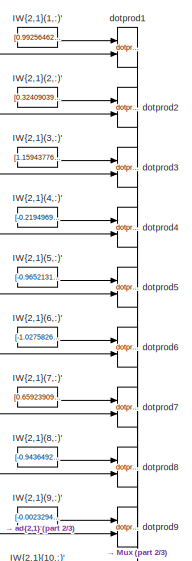
[diagram: controller1/optimized controller - pm/net_col_ab_1/Layer 2/LW{2,1} - part 1/3, top center region]
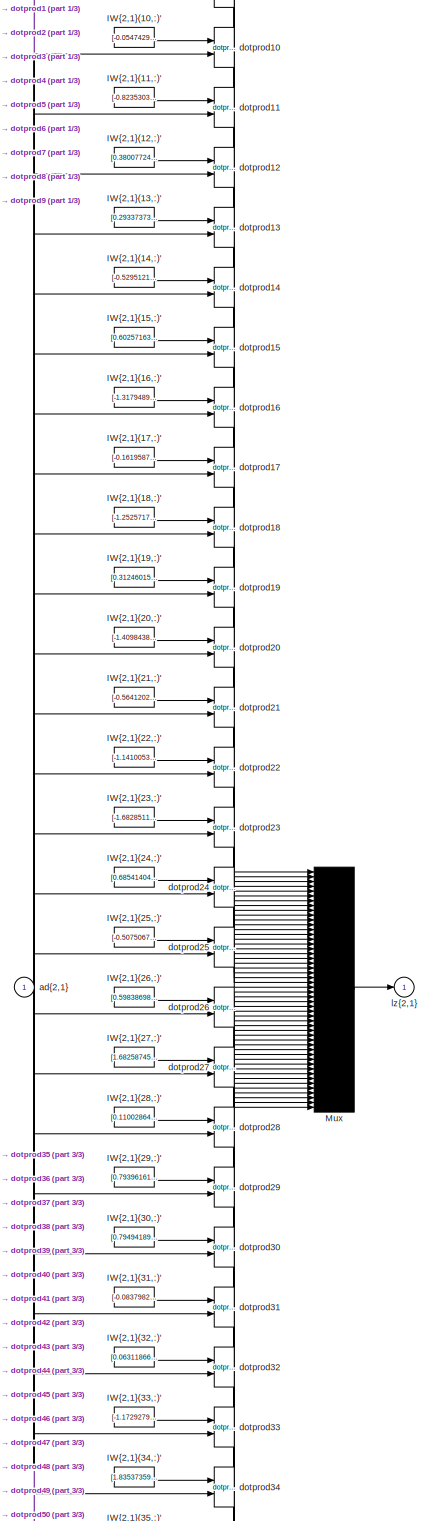
[diagram: controller1/optimized controller - pm/net_col_ab_1/Layer 2/LW{2,1} - part 2/3, full width, middle band]
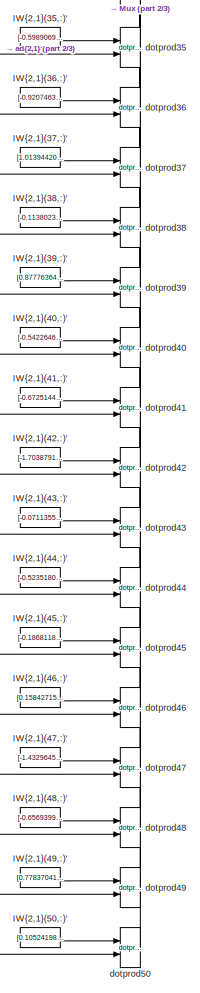
[diagram: controller1/optimized controller - pm/net_col_ab_1/Layer 2/LW{2,1} - part 3/3, bottom center region]
BLOCK [SubSystem] controller1/optimized controller - pm/net_col_ab_1/Layer 2/LW{2,1}
  FunctionWithSeparateData = off
  MaskHideContents = off
  MaskIconFrame = off
  MaskIconOpaque = on
  MaskIconRotate = none
  MaskIconUnits = autoscale
  MaskPortRotate = default
  MinAlgLoopOccurrences = off
  Opaque = off
  Ports = [1, 1]
  PropExecContextOutsideSubsystem = off
  RTWSystemCode = Auto
  RequestExecContextInheritance = off
  SID = 37771
BLOCK [Constant] controller1/optimized controller - pm/net_col_ab_1/Layer 2/LW{2,1}/IW{2,1}(1,:)'
  MaskDisplay = e = 0.06;c1 = [120 150 230]/255;c2 = ([120 150 230]+0)/383;c3 = ([120 150 230]+128)/383;patch([0 1 1 0],[0 0 1 1],c1);patch([0 1 1 1-e 1-e 0+e],[0 0 1 1-e 0+e 0+e],c2);patch([0 0 1 1-e 0+e 0+e],[0 1 1 1-e 1-e 0+e],c3);plot([0 1 1 0 0],[0 0 1 1 0]);disp('weights');  <repeated x153 — deduplicated; at blocks: IW{2,1}(1,:)', IW{2,1}(10,:)', IW{2,1}(11,:)', IW{2,1}(12,:)', IW{2,1}(13,:)', IW{2,1}(14,:)', IW{2,1}(15,:)', IW{2,1}(16,:)', IW{2,1}(17,:)', IW{2,1}(18,:)', IW{2,1}(19,:)', IW{2,1}(2,:)', IW{2,1}(20,:)', IW{2,1}(21,:)', IW{2,1}(22,:)', IW{2,1}(23,:)', +35 more>
  MaskIconFrame = off
  MaskIconOpaque = on
  MaskIconRotate = none
  MaskIconUnits = autoscale
  MaskPortRotate = default
  SID = 37773
  Value = [0.99256462360151876;-1.1719895828797984;-0.083701851288322623;-0.68575032990809681;0.27311766053088671;0.26366953781596697;0.71788967132296666;0.26566622765837389;-0.43852073532331626;0.91112654905744683;-0.54763363679200971;-1.6547106683857673;0.2914427188195311;-0.10741816442091326;-1.3899748951580593;-2.4851900316446116;-0.42125458246035685;0.71473752920235056;-2.0088658750421393;1.45005944605...<+611ch>
BLOCK [Constant] controller1/optimized controller - pm/net_col_ab_1/Layer 2/LW{2,1}/IW{2,1}(10,:)'
  MaskIconFrame = off
  MaskIconOpaque = on
  MaskIconRotate = none
  MaskIconUnits = autoscale
  MaskPortRotate = default
  SID = 37774
  Value = [-0.054742955852754065;0.87541698919241229;0.9782946064616943;0.31211840337547209;-0.47977322157755303;-1.4400076783187752;-0.66209323716487423;-1.4077865269234633;-0.75490104860376162;0.99718401312332594;-0.094048396359630498;1.576522965628917;1.4032649594082316;0.68025702872933036;-0.26335719661237561;0.43794916100382641;0.05170302539606788;-1.9265570014485047;0.47278615451084161;1.2027604527686...<+613ch>
BLOCK [Constant] controller1/optimized controller - pm/net_col_ab_1/Layer 2/LW{2,1}/IW{2,1}(11,:)'
  MaskIconFrame = off
  MaskIconOpaque = on
  MaskIconRotate = none
  MaskIconUnits = autoscale
  MaskPortRotate = default
  SID = 37775
  Value = [-0.82353036374451372;-1.8133217777030506;-0.63248374332812118;-0.19791395123271813;0.55767706737678457;1.4244205294980037;0.43224250019717814;-1.0551251193445095;0.49245359515751819;0.282150143173658;-1.1645051602376848;1.6107770802387338;0.43619822295501087;0.50724169925920404;-0.065874736359623848;-0.56035496187033407;1.4451491509146412;0.96399923705726798;-0.51112339777285398;0.848101512380371...<+611ch>
BLOCK [Constant] controller1/optimized controller - pm/net_col_ab_1/Layer 2/LW{2,1}/IW{2,1}(12,:)'
  MaskIconFrame = off
  MaskIconOpaque = on
  MaskIconRotate = none
  MaskIconUnits = autoscale
  MaskPortRotate = default
  SID = 37776
  Value = [0.38007724877613919;-1.703472852551432;-0.10149950874561922;-0.81042738924701041;-0.88708387600533267;0.19865400359616397;1.3590712991880081;0.51431062904476466;-1.1399175443749268;1.0492005573705026;0.40148208732578672;-0.40890752725824697;0.75017057198597437;0.17815587743513209;-1.0990026709777188;-1.3382817609865068;-0.99404994009217684;0.41996759306410081;-0.33680914168389903;0.39972334866223...<+610ch>
BLOCK [Constant] controller1/optimized controller - pm/net_col_ab_1/Layer 2/LW{2,1}/IW{2,1}(13,:)'
  MaskIconFrame = off
  MaskIconOpaque = on
  MaskIconRotate = none
  MaskIconUnits = autoscale
  MaskPortRotate = default
  SID = 37777
  Value = [0.29337373541197115;-0.95348312203668373;-1.0858336425133452;0.53524161595350739;0.58271152871995124;-0.19247459722751867;-1.3770810654691745;-0.38708542666134127;1.0332917068265899;1.1933676060562881;-0.69632991406371614;2.4608420927111609;-0.63074149409652569;1.1639411953816119;-0.5101557745733224;-0.16997502075063378;-0.46833705126440478;0.64516822199533896;1.0098286141583108;1.491966474657151...<+603ch>
BLOCK [Constant] controller1/optimized controller - pm/net_col_ab_1/Layer 2/LW{2,1}/IW{2,1}(14,:)'
  MaskIconFrame = off
  MaskIconOpaque = on
  MaskIconRotate = none
  MaskIconUnits = autoscale
  MaskPortRotate = default
  SID = 37778
  Value = [-0.52951218001522071;-0.69622888632181901;-1.4698989217664413;-0.5919925567897929;-1.014222865534345;0.71033944346186162;-0.87621538233116347;-0.79540927195294076;-0.52193066864621951;0.40879583095860095;0.75579576901461964;0.48445095342189975;-0.088507697487684459;0.67593079361597641;0.30992851075954153;-1.1648602330270668;-0.17738844467580198;1.164310301352115;1.5879521511742793;-0.913637202875...<+607ch>
BLOCK [Constant] controller1/optimized controller - pm/net_col_ab_1/Layer 2/LW{2,1}/IW{2,1}(15,:)'
  MaskIconFrame = off
  MaskIconOpaque = on
  MaskIconRotate = none
  MaskIconUnits = autoscale
  MaskPortRotate = default
  SID = 37779
  Value = [0.60257163704962691;-0.88093899457231029;-0.58658034651866708;-1.6157608756638884;1.2987097645078138;0.75348262433962443;-0.9990905717326769;0.73341702078923821;-1.4774494363688111;0.27428323081160344;-0.81779919942403778;0.10679299075268896;-0.12729440023703836;0.15122188784104068;-1.3458532340726561;-1.0702763221120115;0.7758503378282291;1.3513268457005692;-0.82954994011037242;-0.61397067173891...<+611ch>
BLOCK [Constant] controller1/optimized controller - pm/net_col_ab_1/Layer 2/LW{2,1}/IW{2,1}(16,:)'
  MaskIconFrame = off
  MaskIconOpaque = on
  MaskIconRotate = none
  MaskIconUnits = autoscale
  MaskPortRotate = default
  SID = 37780
  Value = [-1.3179489284293229;-1.3150369491195848;-0.50905513357350263;0.87067743345163517;0.75799015231758571;-0.35898067958993929;-0.93223704517979378;0.046703568902893899;-0.30192324406264376;0.027494269264373927;1.5664994579085996;-0.10019941604845295;-0.56886635762669946;0.98832003287239922;-1.5975550222382005;0.83267842431932915;-0.07672727182308435;0.72463263578448545;0.56946870140553651;-1.32361111...<+616ch>
BLOCK [Constant] controller1/optimized controller - pm/net_col_ab_1/Layer 2/LW{2,1}/IW{2,1}(17,:)'
  MaskIconFrame = off
  MaskIconOpaque = on
  MaskIconRotate = none
  MaskIconUnits = autoscale
  MaskPortRotate = default
  SID = 37781
  Value = [-0.16195879073036271;-0.37788818313264305;0.3094740648399788;0.81518009122705293;1.0030121847366384;-0.054503769393823509;1.0439965688605981;0.15769481188876419;0.96564679203340187;-1.0207191450554634;1.099828529043569;-0.085406149333083589;-2.1853891628629811;0.53724321729506141;1.3101425055193539;1.06391858183951;0.13346108782405799;0.13199255226748466;2.3741780381409106;-0.42737646538199925;0....<+601ch>
BLOCK [Constant] controller1/optimized controller - pm/net_col_ab_1/Layer 2/LW{2,1}/IW{2,1}(18,:)'
  MaskIconFrame = off
  MaskIconOpaque = on
  MaskIconRotate = none
  MaskIconUnits = autoscale
  MaskPortRotate = default
  SID = 37782
  Value = [-1.2525717311068458;-0.60590623556422374;1.4899659232561158;0.39543957656588496;0.74272169199098703;-0.36717545411961289;1.4847793691703488;0.53178070243906106;0.99491593640435794;-0.69320041446907021;-0.60994585198403539;0.17993011136622611;-1.3465535716016268;0.099586252310475368;-0.62860784162227334;-0.35368912984280393;-1.4318584134171293;-0.016553467006938969;-1.804481602695662;-0.0830593702...<+611ch>
BLOCK [Constant] controller1/optimized controller - pm/net_col_ab_1/Layer 2/LW{2,1}/IW{2,1}(19,:)'
  MaskIconFrame = off
  MaskIconOpaque = on
  MaskIconRotate = none
  MaskIconUnits = autoscale
  MaskPortRotate = default
  SID = 37783
  Value = [0.3124601511574443;-0.60548462858350749;1.6497404792467807;0.50673170258625844;-0.38040188683913406;0.15375391186469758;0.48127851771457175;-1.6047458627322204;0.13196343663947546;1.8885933787568623;0.46748517999687522;-1.5529143781184025;1.6841622494518955;-0.40051274481009147;1.678218432200735;-0.4079124666672192;-0.050390392316903745;0.1442215530518724;0.10015447941993749;0.23461231319548562;-...<+597ch>
BLOCK [Constant] controller1/optimized controller - pm/net_col_ab_1/Layer 2/LW{2,1}/IW{2,1}(2,:)'
  MaskIconFrame = off
  MaskIconOpaque = on
  MaskIconRotate = none
  MaskIconUnits = autoscale
  MaskPortRotate = default
  SID = 37784
  Value = [0.32409039071710882;-1.2143038938712756;1.0027939431871078;-0.90093303868227925;1.2722392433199736;1.3934299372354444;1.4746033214678202;-0.34890484656222753;-0.75629404169868653;-1.1624686304409266;1.2728607875318105;-1.0538310180474233;0.58552110651025069;-1.2090834987914845;-0.80083731047132289;-0.029653204221407138;0.42456556456629013;-0.90271756681640247;-0.23726350582262223;-0.0844445166878...<+609ch>
BLOCK [Constant] controller1/optimized controller - pm/net_col_ab_1/Layer 2/LW{2,1}/IW{2,1}(20,:)'
  MaskIconFrame = off
  MaskIconOpaque = on
  MaskIconRotate = none
  MaskIconUnits = autoscale
  MaskPortRotate = default
  SID = 37785
  Value = [-1.4098438924936945;0.63663676021630344;-0.1922269094697811;0.20785319424059598;0.072369177997846701;-1.6319341875429969;-0.86180584241897673;-0.73791386426358074;0.36019615893761725;-0.02506767961720912;-0.84281624910998709;2.1759177137221104;-1.7942716356658686;-0.49742057277911111;0.78979173691264792;-0.47798049621239558;-0.61192003982343701;-2.4251010794767032;-0.54624803128131827;-0.03586105...<+616ch>
BLOCK [Constant] controller1/optimized controller - pm/net_col_ab_1/Layer 2/LW{2,1}/IW{2,1}(21,:)'
  MaskIconFrame = off
  MaskIconOpaque = on
  MaskIconRotate = none
  MaskIconUnits = autoscale
  MaskPortRotate = default
  SID = 37786
  Value = [-0.56412020825657461;1.2808970601624423;-0.81416933608790998;-0.28091210227858548;0.3895011553270914;0.32783628007434934;-0.23315140435142323;-0.20504841584794281;1.246700018806334;-0.77486558604704148;1.0040437832035398;-1.2952976650958317;0.88641670209956691;-0.87999597117530848;-1.9227255216065562;-0.11433141505525782;-1.3019384868872348;-1.135143834344966;-0.85726713611783489;-0.5873504836466...<+611ch>
BLOCK [Constant] controller1/optimized controller - pm/net_col_ab_1/Layer 2/LW{2,1}/IW{2,1}(22,:)'
  MaskIconFrame = off
  MaskIconOpaque = on
  MaskIconRotate = none
  MaskIconUnits = autoscale
  MaskPortRotate = default
  SID = 37787
  Value = [-1.141005387381183;0.65583703846862085;0.80088633866859316;0.96226230301246973;0.052967846282624666;1.2062347456671518;-1.4011879950996384;-0.8574309969320536;-1.1880087606233445;1.1701056844222912;0.40357263448767899;-0.057446566731371183;-1.1358697396123434;-0.041055788450103207;0.68672189529780614;1.0096696839790935;0.0069767487261521415;-0.69964446357151433;-0.56111824215217221;0.044730540688...<+609ch>
BLOCK [Constant] controller1/optimized controller - pm/net_col_ab_1/Layer 2/LW{2,1}/IW{2,1}(23,:)'
  MaskIconFrame = off
  MaskIconOpaque = on
  MaskIconRotate = none
  MaskIconUnits = autoscale
  MaskPortRotate = default
  SID = 37788
  Value = [-1.6828511845475569;0.40264355962225151;0.98263985778928231;-0.64587289903645828;-0.69451073551473941;0.15821921368864852;0.19027543624543106;0.93046535068303959;-0.33531315578025156;0.52182209598916673;-0.32147195064257106;0.53020421509804661;0.40097126218759732;1.5671060401224008;-0.1242187787332019;0.16269953991101754;-1.5764289958622364;-0.19777704966715312;0.76353048415474312;0.8224115664090...<+612ch>
BLOCK [Constant] controller1/optimized controller - pm/net_col_ab_1/Layer 2/LW{2,1}/IW{2,1}(24,:)'
  MaskIconFrame = off
  MaskIconOpaque = on
  MaskIconRotate = none
  MaskIconUnits = autoscale
  MaskPortRotate = default
  SID = 37789
  Value = [0.68541404327239308;-0.60763237392251357;0.83260162649151048;0.75825585349679203;-0.52741174445737826;0.74733349461825838;-0.33802804307357248;1.0535249495368095;-1.2277782673083026;0.35751835875270421;-1.0224440443065999;0.013189836524539259;-0.24439782623672635;-0.23205596041483617;0.2261787254496658;0.19054529350260879;0.30744741668363923;1.7979817341696702;1.3348399978307428;-1.47112479315551...<+607ch>
BLOCK [Constant] controller1/optimized controller - pm/net_col_ab_1/Layer 2/LW{2,1}/IW{2,1}(25,:)'
  MaskIconFrame = off
  MaskIconOpaque = on
  MaskIconRotate = none
  MaskIconUnits = autoscale
  MaskPortRotate = default
  SID = 37790
  Value = [-0.50750670975856527;-1.3521729720558329;0.56116814228382306;0.56985389944387443;-0.31580355282651512;0.080393117675581355;1.4164031859392958;-0.68085509469674377;-1.3220144375714007;-0.032838529788308778;0.29504734059060772;0.10284878417560332;-0.84149363454302861;-0.90958289578029583;0.15683812463249427;0.22213830067607881;-1.4039492860866238;0.27265250780574762;-0.9319427831711683;0.8245597349...<+605ch>
BLOCK [Constant] controller1/optimized controller - pm/net_col_ab_1/Layer 2/LW{2,1}/IW{2,1}(26,:)'
  MaskIconFrame = off
  MaskIconOpaque = on
  MaskIconRotate = none
  MaskIconUnits = autoscale
  MaskPortRotate = default
  SID = 37791
  Value = [0.59838698852826733;-1.1912090154396688;-1.1616806316506463;1.434680964711508;-0.70947175822819852;1.2942794509660238;0.82727022687946694;0.70411146452110673;0.61785120950363681;0.45447244494757927;0.86750535361103465;1.2535564826364156;0.41855799807117799;-0.15962675958228129;-0.45743530123654375;0.92234880638775607;0.56687125581918929;-0.29298436495630059;1.2476898331591613;-1.1929987747631996;...<+606ch>
BLOCK [Constant] controller1/optimized controller - pm/net_col_ab_1/Layer 2/LW{2,1}/IW{2,1}(27,:)'
  MaskIconFrame = off
  MaskIconOpaque = on
  MaskIconRotate = none
  MaskIconUnits = autoscale
  MaskPortRotate = default
  SID = 37792
  Value = [1.6825874561152747;1.3919619413523865;0.61460082932771065;0.08385406172120391;1.1306582150587414;0.074948670702490658;-0.26104718403560628;-1.1058803532518362;0.63834733075402417;1.3396137687623337;1.4286075543320895;1.5563284133252862;-0.86402917571868676;-0.55696833726828399;1.1230875636185642;-1.0224386690910656;1.2190512827501647;-0.2876343619400345;-0.48775875639815491;0.33141840992189447;-0...<+596ch>
BLOCK [Constant] controller1/optimized controller - pm/net_col_ab_1/Layer 2/LW{2,1}/IW{2,1}(28,:)'
  MaskIconFrame = off
  MaskIconOpaque = on
  MaskIconRotate = none
  MaskIconUnits = autoscale
  MaskPortRotate = default
  SID = 37793
  Value = [0.11002864496886292;0.89137633816984796;-0.13461317667563161;0.72864182326448512;1.741856225586131;-0.28382083764116312;1.2064856289241146;1.0431104626009744;1.1112773135968541;1.4872541604256058;0.73816950074512211;1.6014126089800997;0.79184057989068846;-0.08324539565620355;-0.36901079635966749;0.44165842680507977;-0.75023856499277641;1.2680575279976847;1.7112774331394269;-0.6812610794632048;0.0...<+606ch>
BLOCK [Constant] controller1/optimized controller - pm/net_col_ab_1/Layer 2/LW{2,1}/IW{2,1}(29,:)'
  MaskIconFrame = off
  MaskIconOpaque = on
  MaskIconRotate = none
  MaskIconUnits = autoscale
  MaskPortRotate = default
  SID = 37794
  Value = [0.79396161519483943;0.29787846408944657;-0.81072932633021755;1.6223153756040904;-0.87101389754243574;-0.86089730863423986;-1.4222308666315495;-1.4010852247841292;0.079038003420273534;0.96081828301651384;-0.7850368309431015;-0.24547145918519556;0.0025652546563171346;0.91895096552829703;-0.13627253871265474;-0.58574079754282793;0.087757239346981111;1.7119628134274527;0.91652824944247446;-0.44497244...<+608ch>
BLOCK [Constant] controller1/optimized controller - pm/net_col_ab_1/Layer 2/LW{2,1}/IW{2,1}(3,:)'
  MaskIconFrame = off
  MaskIconOpaque = on
  MaskIconRotate = none
  MaskIconUnits = autoscale
  MaskPortRotate = default
  SID = 37795
  Value = [1.1594377600798487;-1.3499633819294918;0.28945306762675349;-0.53072071081629446;-0.69153511479341623;1.3835816074818412;-0.84915546965708122;0.11817774004395638;-0.25160035615546134;-1.1837493206776148;0.4062769199473536;-0.25163448292035617;-0.69909056583240126;0.45177630112720196;-0.92633930416718246;-0.76342009080155726;0.66771650755116396;0.67888872441977577;0.84566061000941761;1.631885324433...<+604ch>
BLOCK [Constant] controller1/optimized controller - pm/net_col_ab_1/Layer 2/LW{2,1}/IW{2,1}(30,:)'
  MaskIconFrame = off
  MaskIconOpaque = on
  MaskIconRotate = none
  MaskIconUnits = autoscale
  MaskPortRotate = default
  SID = 37796
  Value = [0.79494189913367252;0.022579518445575819;-0.92245651665409989;-0.75103473135251886;-0.56308246237019322;-0.62136815395742206;1.230635609731243;0.30928756134683588;-1.0806122751623379;-0.24437810478642197;1.3483126986560787;-2.8462658563189716;-1.1850274655461934;0.13898353534848715;0.68290711146890748;-1.9132879586107983;0.0026888513627095212;-0.20891684096980329;-0.50706363012476308;0.7650721425...<+605ch>
BLOCK [Constant] controller1/optimized controller - pm/net_col_ab_1/Layer 2/LW{2,1}/IW{2,1}(31,:)'
  MaskIconFrame = off
  MaskIconOpaque = on
  MaskIconRotate = none
  MaskIconUnits = autoscale
  MaskPortRotate = default
  SID = 37797
  Value = [-0.083798271013914377;-0.98166898345743581;0.62757558223760135;-1.4610960515881981;-0.7644020717175577;-0.41409062900884053;0.64827196009023769;-0.29335315101612125;0.70657336348567101;0.557117077002659;-0.10629377353198165;1.7926382330324397;-1.1540741048465981;-0.073178721072459374;1.0892426453667976;-1.3392452534480477;-0.77537877305472114;-0.18643874453970188;1.0054359191120825;-0.59839732364...<+613ch>
BLOCK [Constant] controller1/optimized controller - pm/net_col_ab_1/Layer 2/LW{2,1}/IW{2,1}(32,:)'
  MaskIconFrame = off
  MaskIconOpaque = on
  MaskIconRotate = none
  MaskIconUnits = autoscale
  MaskPortRotate = default
  SID = 37798
  Value = [0.063118660636833995;-0.070356764771344671;-1.0222562536925952;0.61959187690552453;0.46647496960017309;0.57204020689158663;1.0024371583035425;1.026670139670808;0.91025351316824643;-1.8576038538932651;-0.54639044128518299;0.30406287346738664;-1.2899632147686331;-0.51647871986722937;-0.65231382794656789;-1.4026417093120795;-0.3914800058746159;-1.8828967818986047;-0.36554107258904017;-0.473837249579...<+609ch>
BLOCK [Constant] controller1/optimized controller - pm/net_col_ab_1/Layer 2/LW{2,1}/IW{2,1}(33,:)'
  MaskIconFrame = off
  MaskIconOpaque = on
  MaskIconRotate = none
  MaskIconUnits = autoscale
  MaskPortRotate = default
  SID = 37799
  Value = [-1.1729279380201707;1.655924744969077;-1.0544693916957502;0.23739588749597573;1.5485734236011879;-0.013625837931792766;-0.39452928862995906;-0.50660812032819813;-0.18804117078430843;1.1113141873699506;-1.9427961676422496;-0.037021290574507232;0.90493790272811325;-1.9141582055292725;-0.25932263662463673;0.6527544545476498;0.34869919766319551;1.4474485314764085;1.2237708462632864;-1.330814771872654...<+607ch>
BLOCK [Constant] controller1/optimized controller - pm/net_col_ab_1/Layer 2/LW{2,1}/IW{2,1}(34,:)'
  MaskIconFrame = off
  MaskIconOpaque = on
  MaskIconRotate = none
  MaskIconUnits = autoscale
  MaskPortRotate = default
  SID = 37800
  Value = [1.8353735988325646;-1.0915078590405494;0.59843735424943389;-0.38374417634136609;-1.5683350651459578;0.89852139914900175;0.62661441803510898;-0.05786159993767917;0.15966519813727217;0.82632868527683523;1.2364197664327641;0.43700863733654227;-0.10432206123756117;-0.84086788286233682;0.5532592406603245;-0.094175463021662284;-0.85353283510403677;0.37295031225151831;-0.31378069640097933;-1.05776631057...<+611ch>
BLOCK [Constant] controller1/optimized controller - pm/net_col_ab_1/Layer 2/LW{2,1}/IW{2,1}(35,:)'
  MaskIconFrame = off
  MaskIconOpaque = on
  MaskIconRotate = none
  MaskIconUnits = autoscale
  MaskPortRotate = default
  SID = 37801
  Value = [-0.59890690864676466;-0.87903301004171319;0.94378224098003938;1.2623514108892142;0.87338478624171212;-1.361469425604716;-0.48672148350622413;0.85269978203530494;0.85647128378611281;1.0356439232077519;0.041049889003358875;0.9107793792308394;0.907521267760657;-1.1071050114024068;1.3438568896850922;0.74602339354616698;1.0295231327839258;1.4965022535040904;-0.8531240233612728;-0.5135476278341139;1.16...<+595ch>
BLOCK [Constant] controller1/optimized controller - pm/net_col_ab_1/Layer 2/LW{2,1}/IW{2,1}(36,:)'
  MaskIconFrame = off
  MaskIconOpaque = on
  MaskIconRotate = none
  MaskIconUnits = autoscale
  MaskPortRotate = default
  SID = 37802
  Value = [-0.92074635677739369;-0.55897406512155978;0.092840456269210281;-1.0397826003386084;-1.4637484849936446;1.0074054660836642;1.86699235867049;-0.3916188898825948;0.76583240750304526;0.71092812047782006;-0.77122975783754233;-0.49268658777225338;0.1785022285339517;0.038183376344572181;0.85281290958590728;-1.093745897324085;1.3574304135002444;-1.2981499322938639;0.20916330222668042;1.1844544719006236;1...<+606ch>
BLOCK [Constant] controller1/optimized controller - pm/net_col_ab_1/Layer 2/LW{2,1}/IW{2,1}(37,:)'
  MaskIconFrame = off
  MaskIconOpaque = on
  MaskIconRotate = none
  MaskIconUnits = autoscale
  MaskPortRotate = default
  SID = 37803
  Value = [1.0139442053603784;-1.2791727061852352;0.63214434919066542;0.78310291267544563;0.69549279396408137;0.89735466235619099;-1.3715136291466665;-0.092065727668022568;1.331447364596142;-0.53972129146979508;-0.93090056091104911;-0.44313690146091761;0.45117822352385739;-0.72303872942519265;0.47561601390712971;-0.93707351924510041;0.99563256446842607;0.53635347762849006;1.2075111754345014;-0.0002081280548...<+608ch>
BLOCK [Constant] controller1/optimized controller - pm/net_col_ab_1/Layer 2/LW{2,1}/IW{2,1}(38,:)'
  MaskIconFrame = off
  MaskIconOpaque = on
  MaskIconRotate = none
  MaskIconUnits = autoscale
  MaskPortRotate = default
  SID = 37804
  Value = [-0.11380236308699578;0.17529334388140591;-1.9122996498240166;1.0484605240867537;0.67866758353355428;1.097221762987413;0.21659244936829017;1.8775823220966488;-1.2540261530477561;1.078877382744255;-0.012773553367396467;-0.018069778606420069;1.1171582982142516;-0.83833683607858367;-0.39620350689248718;-0.14067856228839248;0.33340904925704512;-0.24247823425208456;-0.70838899169912439;-0.4243808196686...<+607ch>
BLOCK [Constant] controller1/optimized controller - pm/net_col_ab_1/Layer 2/LW{2,1}/IW{2,1}(39,:)'
  MaskIconFrame = off
  MaskIconOpaque = on
  MaskIconRotate = none
  MaskIconUnits = autoscale
  MaskPortRotate = default
  SID = 37805
  Value = [0.87776364259089645;-0.39192263229235452;1.5132702618667677;-0.46975077889840711;0.10477566688269453;-1.4859593080295705;0.44891188759033723;-1.5504203738951574;-0.1205283079098447;-0.29461526816470596;0.11714801829030248;-0.35492008911518869;-1.3191658541803255;-0.28616154380424164;1.1782157037156717;-0.79225692302105422;-0.78012968480614875;1.059755944331576;-0.24622680709635264;-1.121528458325...<+609ch>
BLOCK [Constant] controller1/optimized controller - pm/net_col_ab_1/Layer 2/LW{2,1}/IW{2,1}(4,:)'
  MaskIconFrame = off
  MaskIconOpaque = on
  MaskIconRotate = none
  MaskIconUnits = autoscale
  MaskPortRotate = default
  SID = 37806
  Value = [-0.21949690630891999;-1.464213033306367;-0.41220432215395902;1.4241362048562716;-0.20060460442340058;0.63373485972390631;-0.77722277746198809;0.65911500912114651;-1.0884012399992222;0.35984471841871601;-0.65882934842886198;-0.43385137109532368;-0.045558211777235347;0.34006964180409976;-0.93257183618843231;-0.59482192961730196;-0.11336661065856024;1.0369966351113522;0.38666998635948097;0.046559174...<+605ch>
BLOCK [Constant] controller1/optimized controller - pm/net_col_ab_1/Layer 2/LW{2,1}/IW{2,1}(40,:)'
  MaskIconFrame = off
  MaskIconOpaque = on
  MaskIconRotate = none
  MaskIconUnits = autoscale
  MaskPortRotate = default
  SID = 37807
  Value = [-0.54226466919963223;1.5162082251432938;0.23000617765483822;-1.4970478216450418;0.89977833261983764;0.275938842459861;1.6053112203722795;1.9354629244758268;0.074136891926438228;0.98197275710280518;-0.040329952303860696;1.1440111886244528;1.2931907695523104;-0.36175588173568213;-0.27367742683536694;0.99859599855565195;0.83606213956948905;-0.69267527708864218;0.85478171171446315;1.7759233822246256;...<+606ch>
BLOCK [Constant] controller1/optimized controller - pm/net_col_ab_1/Layer 2/LW{2,1}/IW{2,1}(41,:)'
  MaskIconFrame = off
  MaskIconOpaque = on
  MaskIconRotate = none
  MaskIconUnits = autoscale
  MaskPortRotate = default
  SID = 37808
  Value = [-0.67251444762759804;-0.051488985782065615;0.38284942545859141;-1.2109883410428666;0.58178917238067718;0.0053829244862630453;0.11989250664978236;-0.52233021208229835;-0.56653653321315556;0.92924075154593733;-1.5636351361816911;-0.53032507870579515;-0.2063573999509912;-0.055706845086443219;1.1115401958873725;1.4110671114548572;-1.2902565380666435;-0.36731396551313211;-1.5014157308528988;-0.4760954...<+616ch>
BLOCK [Constant] controller1/optimized controller - pm/net_col_ab_1/Layer 2/LW{2,1}/IW{2,1}(42,:)'
  MaskIconFrame = off
  MaskIconOpaque = on
  MaskIconRotate = none
  MaskIconUnits = autoscale
  MaskPortRotate = default
  SID = 37809
  Value = [-1.7038791511483555;0.030265472612061493;-1.2871610276782588;-0.50839515764861343;0.059635346805145283;0.42198457531388661;0.45937831771702931;0.61190748510572512;0.89936460283938657;0.79078287959447735;-0.30416666152794597;0.57095636659605231;0.050064844232416687;0.25047115734493614;-1.2917843953720609;-0.151988867416366;1.1146557097289476;-0.51840968306901247;1.0117031457626307;0.50813159367595...<+607ch>
BLOCK [Constant] controller1/optimized controller - pm/net_col_ab_1/Layer 2/LW{2,1}/IW{2,1}(43,:)'
  MaskIconFrame = off
  MaskIconOpaque = on
  MaskIconRotate = none
  MaskIconUnits = autoscale
  MaskPortRotate = default
  SID = 37810
  Value = [-0.071135552963663848;-1.4986218767675705;0.67597571438547022;-1.2555268552049865;-1.2523615244413049;-0.92145288287093419;1.303057499295712;0.39170535019468922;0.40308774041844697;-1.0833196560113281;-0.66668766490412157;0.40451797154915847;-1.966946929140428;-0.050632004014049152;-0.91218822277571643;-1.9768186057167056;0.46377674857920492;1.052073119287728;0.78671655371077165;0.751991852727818...<+612ch>
BLOCK [Constant] controller1/optimized controller - pm/net_col_ab_1/Layer 2/LW{2,1}/IW{2,1}(44,:)'
  MaskIconFrame = off
  MaskIconOpaque = on
  MaskIconRotate = none
  MaskIconUnits = autoscale
  MaskPortRotate = default
  SID = 37811
  Value = [-0.52351803669485364;-0.86099146185448194;0.89195226194652044;1.1561341447622715;-1.2029388671602823;-0.6725900848230334;-0.31772158838238396;0.85492746225092242;0.27725650250802492;0.028624652887661476;0.93340144473125175;-0.67065102691393397;0.32119824221887328;1.3346865369148471;0.76284367732870484;0.67078101850568728;0.29620237806898086;0.45745828809509104;0.10285749572893055;-0.7018492827273...<+609ch>
BLOCK [Constant] controller1/optimized controller - pm/net_col_ab_1/Layer 2/LW{2,1}/IW{2,1}(45,:)'
  MaskIconFrame = off
  MaskIconOpaque = on
  MaskIconRotate = none
  MaskIconUnits = autoscale
  MaskPortRotate = default
  SID = 37812
  Value = [-0.18681189879686982;-0.77147586490619069;-0.97768936871871259;-0.21303892112229175;-0.71676557338686031;0.33418279983901888;0.15478887585047085;-0.17327521839054749;-0.27612198852824432;-1.213060286609644;0.99851325898094034;0.22333379909573431;-1.4771344103206612;-1.0780277130421247;-0.99772800486737334;1.01842933531507;-0.91525074260513462;-0.49967852372319382;-0.86990910934475429;1.0714755364...<+604ch>
BLOCK [Constant] controller1/optimized controller - pm/net_col_ab_1/Layer 2/LW{2,1}/IW{2,1}(46,:)'
  MaskIconFrame = off
  MaskIconOpaque = on
  MaskIconRotate = none
  MaskIconUnits = autoscale
  MaskPortRotate = default
  SID = 37813
  Value = [0.15842715981574979;1.231338197298639;-0.042348638804062047;0.87412417198936398;-1.0394880948438265;-0.0017719598760809474;2.421017213673649;0.46238666736620032;-0.88766741443193942;0.9212420896929322;-0.68209064207798131;-0.46933881927770027;1.2869914829688454;0.38844049260324293;-1.3528480670242968;1.2818479353839272;-1.5290721414747277;-0.058874833790205014;0.22854118477666149;0.36694022864010...<+608ch>
BLOCK [Constant] controller1/optimized controller - pm/net_col_ab_1/Layer 2/LW{2,1}/IW{2,1}(47,:)'
  MaskIconFrame = off
  MaskIconOpaque = on
  MaskIconRotate = none
  MaskIconUnits = autoscale
  MaskPortRotate = default
  SID = 37814
  Value = [-1.4329645322415785;1.0102888781408568;-0.49783817307674771;0.59910802805789631;-1.1443543875667219;0.17957832524543724;0.036381212162270402;1.0271201968571246;0.10071158052527146;0.90179669276518715;-0.38756624257452793;-0.9689238449104447;0.80729220642484423;-1.4133124729888826;-1.0233599617635172;-1.2634495632478226;-0.7261817619130575;-0.86608161093428604;-0.17720515380899832;-0.0301103035473...<+609ch>
BLOCK [Constant] controller1/optimized controller - pm/net_col_ab_1/Layer 2/LW{2,1}/IW{2,1}(48,:)'
  MaskIconFrame = off
  MaskIconOpaque = on
  MaskIconRotate = none
  MaskIconUnits = autoscale
  MaskPortRotate = default
  SID = 37815
  Value = [-0.65693994113808207;-0.41325182920970976;0.032645638905935505;0.090475222623605217;0.42773085380361958;-1.2896446121216372;-0.83172700821497725;-1.6937066243862462;-0.46763612766053964;1.4660566177041183;0.73798409307367396;0.10145322806800772;1.7468867974068794;-1.2279716925828719;-0.8641753309832042;-0.26709287565266288;0.99610834138968585;0.45531866642689317;1.5606502990943465;0.7878102634023...<+609ch>
BLOCK [Constant] controller1/optimized controller - pm/net_col_ab_1/Layer 2/LW{2,1}/IW{2,1}(49,:)'
  MaskIconFrame = off
  MaskIconOpaque = on
  MaskIconRotate = none
  MaskIconUnits = autoscale
  MaskPortRotate = default
  SID = 37816
  Value = [0.77837041327140211;0.53936055424004359;-0.2896034256719528;-0.84057636610793696;1.2474357058231587;-0.79584066661565578;0.33764564422231702;-1.1886645961974489;0.79796274676356849;0.27088839512130397;-0.97302836230667911;0.45901678981062827;1.3422931504064082;-1.3289183374899722;-0.27741169839585683;0.13580587627719959;1.088659728723079;0.066788448057507679;0.98603220716489837;1.1997660074260976...<+607ch>
BLOCK [Constant] controller1/optimized controller - pm/net_col_ab_1/Layer 2/LW{2,1}/IW{2,1}(5,:)'
  MaskIconFrame = off
  MaskIconOpaque = on
  MaskIconRotate = none
  MaskIconUnits = autoscale
  MaskPortRotate = default
  SID = 37817
  Value = [-0.96521310582351383;-0.47244460285471712;-0.57046908490815895;0.14166348321390465;-1.7914694384118044;1.2835238908989877;-1.0295849374070809;1.5273208008220847;-0.72197136354964908;-0.86171672467415061;1.2965975152693512;-1.5585977217821663;0.28112180067874981;0.75028639449747192;0.86016024341451058;-0.24023949977508907;0.49438449464565704;0.28018609285083867;-0.81652918882577685;-0.829547958283...<+617ch>
BLOCK [Constant] controller1/optimized controller - pm/net_col_ab_1/Layer 2/LW{2,1}/IW{2,1}(50,:)'
  MaskIconFrame = off
  MaskIconOpaque = on
  MaskIconRotate = none
  MaskIconUnits = autoscale
  MaskPortRotate = default
  SID = 37818
  Value = [0.10524198646415839;-0.86309965120600884;-0.17628742626221303;0.95315744971442595;-0.61174052945845836;1.1915459189902968;-0.3502338294646532;1.4123771283728745;0.94714791351455152;-0.081785654748543823;-1.6976584983589365;-0.58363123422770202;-0.60217139795466745;-0.62062336071859459;-0.57646224028700921;-0.30869116331893226;0.040020278079195039;-1.3016348689191117;0.80861775011409998;0.30837404...<+611ch>
BLOCK [Constant] controller1/optimized controller - pm/net_col_ab_1/Layer 2/LW{2,1}/IW{2,1}(6,:)'
  MaskIconFrame = off
  MaskIconOpaque = on
  MaskIconRotate = none
  MaskIconUnits = autoscale
  MaskPortRotate = default
  SID = 37819
  Value = [-1.0275826617094415;0.31235211690444353;-0.11622220968702829;0.9540809275808444;0.10367909192196498;0.9393636677263888;0.50645994334995537;-0.84884620072700001;-0.46510382155761754;1.4099688468877654;1.0656533671279746;0.021366381364157375;0.82908546600801081;-0.93050121937836094;0.77331319247451902;-1.2186484316217494;-0.95525584294527099;1.0194617556938834;-1.5946481284316418;-0.029601732330809...<+597ch>
BLOCK [Constant] controller1/optimized controller - pm/net_col_ab_1/Layer 2/LW{2,1}/IW{2,1}(7,:)'
  MaskIconFrame = off
  MaskIconOpaque = on
  MaskIconRotate = none
  MaskIconUnits = autoscale
  MaskPortRotate = default
  SID = 37820
  Value = [0.6592390961487552;0.75879418811187072;-0.15975239549273043;-1.0502931172902588;-0.98167914158296499;-0.48949257926136114;-0.87582465768894568;0.89883534454549763;-0.37168931509620307;1.4510000080895076;1.1063133696146443;-1.2704856868781287;0.74464018747142213;0.38504522645911748;0.94856581578377352;1.0840283478947783;-1.0893531250953103;-1.1436609860026259;0.89620098229817813;0.4783944480473187...<+611ch>
BLOCK [Constant] controller1/optimized controller - pm/net_col_ab_1/Layer 2/LW{2,1}/IW{2,1}(8,:)'
  MaskIconFrame = off
  MaskIconOpaque = on
  MaskIconRotate = none
  MaskIconUnits = autoscale
  MaskPortRotate = default
  SID = 37821
  Value = [-0.9436492717575633;0.10693474101714656;-0.42741252220971426;1.2818543522287027;-1.3581480119414304;0.45895722941620898;1.1735747481732774;0.7166564933699241;-1.0496470790704648;-0.71011163001241495;-0.72486572652242287;-1.1252054985497273;-0.28378989949757255;0.054837803502470403;-0.90003847906235934;1.2481933214773098;1.3700895754182711;-0.52344058039472896;-0.20549492724051613;0.18515470354262...<+604ch>
BLOCK [Constant] controller1/optimized controller - pm/net_col_ab_1/Layer 2/LW{2,1}/IW{2,1}(9,:)'
  MaskIconFrame = off
  MaskIconOpaque = on
  MaskIconRotate = none
  MaskIconUnits = autoscale
  MaskPortRotate = default
  SID = 37822
  Value = [-0.0023294931025637081;-0.95002498815339387;0.14648916324564062;1.0022250073683372;0.85147597614632786;-0.83236774564357696;-1.0079461541358319;1.3271850804444669;-0.24091076743029363;0.82601687294164439;0.39663168848199315;0.37551714552956367;0.60027655657218604;-0.71689163202832829;-0.17150381750145;0.87266165192398037;-0.23854790520383362;0.36851781411541829;-0.29156440185819227;0.754286276836...<+609ch>
BLOCK [Mux] controller1/optimized controller - pm/net_col_ab_1/Layer 2/LW{2,1}/Mux
  Inputs = 50
  MaskIconFrame = off
  MaskIconOpaque = on
  MaskIconRotate = none
  MaskIconUnits = autoscale
  MaskPortRotate = default
  Ports = [50, 1]
  SID = 37823
BLOCK [Inport] controller1/optimized controller - pm/net_col_ab_1/Layer 2/LW{2,1}/ad{2,1}
  IconDisplay = Port number
  MaskIconFrame = off
  MaskIconOpaque = on
  MaskIconRotate = none
  MaskIconUnits = autoscale
  MaskPortRotate = default
  PortDimensions = 50
  SID = 37772
BLOCK [Reference] controller1/optimized controller - pm/net_col_ab_1/Layer 2/LW{2,1}/dotprod1  REF=neural/Weight Functions/dotprod
  FunctionWithSeparateData = off
  GeneratePreprocessorConditionals = off
  Ports = [2, 1]
  RTWMemSecDataConstants = Inherit from model
  RTWMemSecDataInternal = Inherit from model
  RTWMemSecDataParameters = Inherit from model
  RTWMemSecFuncExecute = Inherit from model
  RTWMemSecFuncInitTerm = Inherit from model
  SID = 37824
  ShowPortLabels = FromPortIcon
  SourceBlock = neural/Weight Functions/dotprod
  SourceType = DOTPROD
  SystemSampleTime = -1
BLOCK [Reference] controller1/optimized controller - pm/net_col_ab_1/Layer 2/LW{2,1}/dotprod10  REF=neural/Weight Functions/dotprod
  FunctionWithSeparateData = off
  GeneratePreprocessorConditionals = off
  Ports = [2, 1]
  RTWMemSecDataConstants = Inherit from model
  RTWMemSecDataInternal = Inherit from model
  RTWMemSecDataParameters = Inherit from model
  RTWMemSecFuncExecute = Inherit from model
  RTWMemSecFuncInitTerm = Inherit from model
  SID = 37825
  ShowPortLabels = FromPortIcon
  SourceBlock = neural/Weight Functions/dotprod
  SourceType = DOTPROD
  SystemSampleTime = -1
BLOCK [Reference] controller1/optimized controller - pm/net_col_ab_1/Layer 2/LW{2,1}/dotprod11  REF=neural/Weight Functions/dotprod
  FunctionWithSeparateData = off
  GeneratePreprocessorConditionals = off
  Ports = [2, 1]
  RTWMemSecDataConstants = Inherit from model
  RTWMemSecDataInternal = Inherit from model
  RTWMemSecDataParameters = Inherit from model
  RTWMemSecFuncExecute = Inherit from model
  RTWMemSecFuncInitTerm = Inherit from model
  SID = 37826
  ShowPortLabels = FromPortIcon
  SourceBlock = neural/Weight Functions/dotprod
  SourceType = DOTPROD
  SystemSampleTime = -1
BLOCK [Reference] controller1/optimized controller - pm/net_col_ab_1/Layer 2/LW{2,1}/dotprod12  REF=neural/Weight Functions/dotprod
  FunctionWithSeparateData = off
  GeneratePreprocessorConditionals = off
  Ports = [2, 1]
  RTWMemSecDataConstants = Inherit from model
  RTWMemSecDataInternal = Inherit from model
  RTWMemSecDataParameters = Inherit from model
  RTWMemSecFuncExecute = Inherit from model
  RTWMemSecFuncInitTerm = Inherit from model
  SID = 37827
  ShowPortLabels = FromPortIcon
  SourceBlock = neural/Weight Functions/dotprod
  SourceType = DOTPROD
  SystemSampleTime = -1
BLOCK [Reference] controller1/optimized controller - pm/net_col_ab_1/Layer 2/LW{2,1}/dotprod13  REF=neural/Weight Functions/dotprod
  FunctionWithSeparateData = off
  GeneratePreprocessorConditionals = off
  Ports = [2, 1]
  RTWMemSecDataConstants = Inherit from model
  RTWMemSecDataInternal = Inherit from model
  RTWMemSecDataParameters = Inherit from model
  RTWMemSecFuncExecute = Inherit from model
  RTWMemSecFuncInitTerm = Inherit from model
  SID = 37828
  ShowPortLabels = FromPortIcon
  SourceBlock = neural/Weight Functions/dotprod
  SourceType = DOTPROD
  SystemSampleTime = -1
BLOCK [Reference] controller1/optimized controller - pm/net_col_ab_1/Layer 2/LW{2,1}/dotprod14  REF=neural/Weight Functions/dotprod
  FunctionWithSeparateData = off
  GeneratePreprocessorConditionals = off
  Ports = [2, 1]
  RTWMemSecDataConstants = Inherit from model
  RTWMemSecDataInternal = Inherit from model
  RTWMemSecDataParameters = Inherit from model
  RTWMemSecFuncExecute = Inherit from model
  RTWMemSecFuncInitTerm = Inherit from model
  SID = 37829
  ShowPortLabels = FromPortIcon
  SourceBlock = neural/Weight Functions/dotprod
  SourceType = DOTPROD
  SystemSampleTime = -1
BLOCK [Reference] controller1/optimized controller - pm/net_col_ab_1/Layer 2/LW{2,1}/dotprod15  REF=neural/Weight Functions/dotprod
  FunctionWithSeparateData = off
  GeneratePreprocessorConditionals = off
  Ports = [2, 1]
  RTWMemSecDataConstants = Inherit from model
  RTWMemSecDataInternal = Inherit from model
  RTWMemSecDataParameters = Inherit from model
  RTWMemSecFuncExecute = Inherit from model
  RTWMemSecFuncInitTerm = Inherit from model
  SID = 37830
  ShowPortLabels = FromPortIcon
  SourceBlock = neural/Weight Functions/dotprod
  SourceType = DOTPROD
  SystemSampleTime = -1
BLOCK [Reference] controller1/optimized controller - pm/net_col_ab_1/Layer 2/LW{2,1}/dotprod16  REF=neural/Weight Functions/dotprod
  FunctionWithSeparateData = off
  GeneratePreprocessorConditionals = off
  Ports = [2, 1]
  RTWMemSecDataConstants = Inherit from model
  RTWMemSecDataInternal = Inherit from model
  RTWMemSecDataParameters = Inherit from model
  RTWMemSecFuncExecute = Inherit from model
  RTWMemSecFuncInitTerm = Inherit from model
  SID = 37831
  ShowPortLabels = FromPortIcon
  SourceBlock = neural/Weight Functions/dotprod
  SourceType = DOTPROD
  SystemSampleTime = -1
BLOCK [Reference] controller1/optimized controller - pm/net_col_ab_1/Layer 2/LW{2,1}/dotprod17  REF=neural/Weight Functions/dotprod
  FunctionWithSeparateData = off
  GeneratePreprocessorConditionals = off
  Ports = [2, 1]
  RTWMemSecDataConstants = Inherit from model
  RTWMemSecDataInternal = Inherit from model
  RTWMemSecDataParameters = Inherit from model
  RTWMemSecFuncExecute = Inherit from model
  RTWMemSecFuncInitTerm = Inherit from model
  SID = 37832
  ShowPortLabels = FromPortIcon
  SourceBlock = neural/Weight Functions/dotprod
  SourceType = DOTPROD
  SystemSampleTime = -1
BLOCK [Reference] controller1/optimized controller - pm/net_col_ab_1/Layer 2/LW{2,1}/dotprod18  REF=neural/Weight Functions/dotprod
  FunctionWithSeparateData = off
  GeneratePreprocessorConditionals = off
  Ports = [2, 1]
  RTWMemSecDataConstants = Inherit from model
  RTWMemSecDataInternal = Inherit from model
  RTWMemSecDataParameters = Inherit from model
  RTWMemSecFuncExecute = Inherit from model
  RTWMemSecFuncInitTerm = Inherit from model
  SID = 37833
  ShowPortLabels = FromPortIcon
  SourceBlock = neural/Weight Functions/dotprod
  SourceType = DOTPROD
  SystemSampleTime = -1
BLOCK [Reference] controller1/optimized controller - pm/net_col_ab_1/Layer 2/LW{2,1}/dotprod19  REF=neural/Weight Functions/dotprod
  FunctionWithSeparateData = off
  GeneratePreprocessorConditionals = off
  Ports = [2, 1]
  RTWMemSecDataConstants = Inherit from model
  RTWMemSecDataInternal = Inherit from model
  RTWMemSecDataParameters = Inherit from model
  RTWMemSecFuncExecute = Inherit from model
  RTWMemSecFuncInitTerm = Inherit from model
  SID = 37834
  ShowPortLabels = FromPortIcon
  SourceBlock = neural/Weight Functions/dotprod
  SourceType = DOTPROD
  SystemSampleTime = -1
BLOCK [Reference] controller1/optimized controller - pm/net_col_ab_1/Layer 2/LW{2,1}/dotprod2  REF=neural/Weight Functions/dotprod
  FunctionWithSeparateData = off
  GeneratePreprocessorConditionals = off
  Ports = [2, 1]
  RTWMemSecDataConstants = Inherit from model
  RTWMemSecDataInternal = Inherit from model
  RTWMemSecDataParameters = Inherit from model
  RTWMemSecFuncExecute = Inherit from model
  RTWMemSecFuncInitTerm = Inherit from model
  SID = 37835
  ShowPortLabels = FromPortIcon
  SourceBlock = neural/Weight Functions/dotprod
  SourceType = DOTPROD
  SystemSampleTime = -1
BLOCK [Reference] controller1/optimized controller - pm/net_col_ab_1/Layer 2/LW{2,1}/dotprod20  REF=neural/Weight Functions/dotprod
  FunctionWithSeparateData = off
  GeneratePreprocessorConditionals = off
  Ports = [2, 1]
  RTWMemSecDataConstants = Inherit from model
  RTWMemSecDataInternal = Inherit from model
  RTWMemSecDataParameters = Inherit from model
  RTWMemSecFuncExecute = Inherit from model
  RTWMemSecFuncInitTerm = Inherit from model
  SID = 37836
  ShowPortLabels = FromPortIcon
  SourceBlock = neural/Weight Functions/dotprod
  SourceType = DOTPROD
  SystemSampleTime = -1
BLOCK [Reference] controller1/optimized controller - pm/net_col_ab_1/Layer 2/LW{2,1}/dotprod21  REF=neural/Weight Functions/dotprod
  FunctionWithSeparateData = off
  GeneratePreprocessorConditionals = off
  Ports = [2, 1]
  RTWMemSecDataConstants = Inherit from model
  RTWMemSecDataInternal = Inherit from model
  RTWMemSecDataParameters = Inherit from model
  RTWMemSecFuncExecute = Inherit from model
  RTWMemSecFuncInitTerm = Inherit from model
  SID = 37837
  ShowPortLabels = FromPortIcon
  SourceBlock = neural/Weight Functions/dotprod
  SourceType = DOTPROD
  SystemSampleTime = -1
BLOCK [Reference] controller1/optimized controller - pm/net_col_ab_1/Layer 2/LW{2,1}/dotprod22  REF=neural/Weight Functions/dotprod
  FunctionWithSeparateData = off
  GeneratePreprocessorConditionals = off
  Ports = [2, 1]
  RTWMemSecDataConstants = Inherit from model
  RTWMemSecDataInternal = Inherit from model
  RTWMemSecDataParameters = Inherit from model
  RTWMemSecFuncExecute = Inherit from model
  RTWMemSecFuncInitTerm = Inherit from model
  SID = 37838
  ShowPortLabels = FromPortIcon
  SourceBlock = neural/Weight Functions/dotprod
  SourceType = DOTPROD
  SystemSampleTime = -1
BLOCK [Reference] controller1/optimized controller - pm/net_col_ab_1/Layer 2/LW{2,1}/dotprod23  REF=neural/Weight Functions/dotprod
  FunctionWithSeparateData = off
  GeneratePreprocessorConditionals = off
  Ports = [2, 1]
  RTWMemSecDataConstants = Inherit from model
  RTWMemSecDataInternal = Inherit from model
  RTWMemSecDataParameters = Inherit from model
  RTWMemSecFuncExecute = Inherit from model
  RTWMemSecFuncInitTerm = Inherit from model
  SID = 37839
  ShowPortLabels = FromPortIcon
  SourceBlock = neural/Weight Functions/dotprod
  SourceType = DOTPROD
  SystemSampleTime = -1
BLOCK [Reference] controller1/optimized controller - pm/net_col_ab_1/Layer 2/LW{2,1}/dotprod24  REF=neural/Weight Functions/dotprod
  FunctionWithSeparateData = off
  GeneratePreprocessorConditionals = off
  Ports = [2, 1]
  RTWMemSecDataConstants = Inherit from model
  RTWMemSecDataInternal = Inherit from model
  RTWMemSecDataParameters = Inherit from model
  RTWMemSecFuncExecute = Inherit from model
  RTWMemSecFuncInitTerm = Inherit from model
  SID = 37840
  ShowPortLabels = FromPortIcon
  SourceBlock = neural/Weight Functions/dotprod
  SourceType = DOTPROD
  SystemSampleTime = -1
BLOCK [Reference] controller1/optimized controller - pm/net_col_ab_1/Layer 2/LW{2,1}/dotprod25  REF=neural/Weight Functions/dotprod
  FunctionWithSeparateData = off
  GeneratePreprocessorConditionals = off
  Ports = [2, 1]
  RTWMemSecDataConstants = Inherit from model
  RTWMemSecDataInternal = Inherit from model
  RTWMemSecDataParameters = Inherit from model
  RTWMemSecFuncExecute = Inherit from model
  RTWMemSecFuncInitTerm = Inherit from model
  SID = 37841
  ShowPortLabels = FromPortIcon
  SourceBlock = neural/Weight Functions/dotprod
  SourceType = DOTPROD
  SystemSampleTime = -1
BLOCK [Reference] controller1/optimized controller - pm/net_col_ab_1/Layer 2/LW{2,1}/dotprod26  REF=neural/Weight Functions/dotprod
  FunctionWithSeparateData = off
  GeneratePreprocessorConditionals = off
  Ports = [2, 1]
  RTWMemSecDataConstants = Inherit from model
  RTWMemSecDataInternal = Inherit from model
  RTWMemSecDataParameters = Inherit from model
  RTWMemSecFuncExecute = Inherit from model
  RTWMemSecFuncInitTerm = Inherit from model
  SID = 37842
  ShowPortLabels = FromPortIcon
  SourceBlock = neural/Weight Functions/dotprod
  SourceType = DOTPROD
  SystemSampleTime = -1
BLOCK [Reference] controller1/optimized controller - pm/net_col_ab_1/Layer 2/LW{2,1}/dotprod27  REF=neural/Weight Functions/dotprod
  FunctionWithSeparateData = off
  GeneratePreprocessorConditionals = off
  Ports = [2, 1]
  RTWMemSecDataConstants = Inherit from model
  RTWMemSecDataInternal = Inherit from model
  RTWMemSecDataParameters = Inherit from model
  RTWMemSecFuncExecute = Inherit from model
  RTWMemSecFuncInitTerm = Inherit from model
  SID = 37843
  ShowPortLabels = FromPortIcon
  SourceBlock = neural/Weight Functions/dotprod
  SourceType = DOTPROD
  SystemSampleTime = -1
BLOCK [Reference] controller1/optimized controller - pm/net_col_ab_1/Layer 2/LW{2,1}/dotprod28  REF=neural/Weight Functions/dotprod
  FunctionWithSeparateData = off
  GeneratePreprocessorConditionals = off
  Ports = [2, 1]
  RTWMemSecDataConstants = Inherit from model
  RTWMemSecDataInternal = Inherit from model
  RTWMemSecDataParameters = Inherit from model
  RTWMemSecFuncExecute = Inherit from model
  RTWMemSecFuncInitTerm = Inherit from model
  SID = 37844
  ShowPortLabels = FromPortIcon
  SourceBlock = neural/Weight Functions/dotprod
  SourceType = DOTPROD
  SystemSampleTime = -1
BLOCK [Reference] controller1/optimized controller - pm/net_col_ab_1/Layer 2/LW{2,1}/dotprod29  REF=neural/Weight Functions/dotprod
  FunctionWithSeparateData = off
  GeneratePreprocessorConditionals = off
  Ports = [2, 1]
  RTWMemSecDataConstants = Inherit from model
  RTWMemSecDataInternal = Inherit from model
  RTWMemSecDataParameters = Inherit from model
  RTWMemSecFuncExecute = Inherit from model
  RTWMemSecFuncInitTerm = Inherit from model
  SID = 37845
  ShowPortLabels = FromPortIcon
  SourceBlock = neural/Weight Functions/dotprod
  SourceType = DOTPROD
  SystemSampleTime = -1
BLOCK [Reference] controller1/optimized controller - pm/net_col_ab_1/Layer 2/LW{2,1}/dotprod3  REF=neural/Weight Functions/dotprod
  FunctionWithSeparateData = off
  GeneratePreprocessorConditionals = off
  Ports = [2, 1]
  RTWMemSecDataConstants = Inherit from model
  RTWMemSecDataInternal = Inherit from model
  RTWMemSecDataParameters = Inherit from model
  RTWMemSecFuncExecute = Inherit from model
  RTWMemSecFuncInitTerm = Inherit from model
  SID = 37846
  ShowPortLabels = FromPortIcon
  SourceBlock = neural/Weight Functions/dotprod
  SourceType = DOTPROD
  SystemSampleTime = -1
BLOCK [Reference] controller1/optimized controller - pm/net_col_ab_1/Layer 2/LW{2,1}/dotprod30  REF=neural/Weight Functions/dotprod
  FunctionWithSeparateData = off
  GeneratePreprocessorConditionals = off
  Ports = [2, 1]
  RTWMemSecDataConstants = Inherit from model
  RTWMemSecDataInternal = Inherit from model
  RTWMemSecDataParameters = Inherit from model
  RTWMemSecFuncExecute = Inherit from model
  RTWMemSecFuncInitTerm = Inherit from model
  SID = 37847
  ShowPortLabels = FromPortIcon
  SourceBlock = neural/Weight Functions/dotprod
  SourceType = DOTPROD
  SystemSampleTime = -1
BLOCK [Reference] controller1/optimized controller - pm/net_col_ab_1/Layer 2/LW{2,1}/dotprod31  REF=neural/Weight Functions/dotprod
  FunctionWithSeparateData = off
  GeneratePreprocessorConditionals = off
  Ports = [2, 1]
  RTWMemSecDataConstants = Inherit from model
  RTWMemSecDataInternal = Inherit from model
  RTWMemSecDataParameters = Inherit from model
  RTWMemSecFuncExecute = Inherit from model
  RTWMemSecFuncInitTerm = Inherit from model
  SID = 37848
  ShowPortLabels = FromPortIcon
  SourceBlock = neural/Weight Functions/dotprod
  SourceType = DOTPROD
  SystemSampleTime = -1
BLOCK [Reference] controller1/optimized controller - pm/net_col_ab_1/Layer 2/LW{2,1}/dotprod32  REF=neural/Weight Functions/dotprod
  FunctionWithSeparateData = off
  GeneratePreprocessorConditionals = off
  Ports = [2, 1]
  RTWMemSecDataConstants = Inherit from model
  RTWMemSecDataInternal = Inherit from model
  RTWMemSecDataParameters = Inherit from model
  RTWMemSecFuncExecute = Inherit from model
  RTWMemSecFuncInitTerm = Inherit from model
  SID = 37849
  ShowPortLabels = FromPortIcon
  SourceBlock = neural/Weight Functions/dotprod
  SourceType = DOTPROD
  SystemSampleTime = -1
BLOCK [Reference] controller1/optimized controller - pm/net_col_ab_1/Layer 2/LW{2,1}/dotprod33  REF=neural/Weight Functions/dotprod
  FunctionWithSeparateData = off
  GeneratePreprocessorConditionals = off
  Ports = [2, 1]
  RTWMemSecDataConstants = Inherit from model
  RTWMemSecDataInternal = Inherit from model
  RTWMemSecDataParameters = Inherit from model
  RTWMemSecFuncExecute = Inherit from model
  RTWMemSecFuncInitTerm = Inherit from model
  SID = 37850
  ShowPortLabels = FromPortIcon
  SourceBlock = neural/Weight Functions/dotprod
  SourceType = DOTPROD
  SystemSampleTime = -1
BLOCK [Reference] controller1/optimized controller - pm/net_col_ab_1/Layer 2/LW{2,1}/dotprod34  REF=neural/Weight Functions/dotprod
  FunctionWithSeparateData = off
  GeneratePreprocessorConditionals = off
  Ports = [2, 1]
  RTWMemSecDataConstants = Inherit from model
  RTWMemSecDataInternal = Inherit from model
  RTWMemSecDataParameters = Inherit from model
  RTWMemSecFuncExecute = Inherit from model
  RTWMemSecFuncInitTerm = Inherit from model
  SID = 37851
  ShowPortLabels = FromPortIcon
  SourceBlock = neural/Weight Functions/dotprod
  SourceType = DOTPROD
  SystemSampleTime = -1
BLOCK [Reference] controller1/optimized controller - pm/net_col_ab_1/Layer 2/LW{2,1}/dotprod35  REF=neural/Weight Functions/dotprod
  FunctionWithSeparateData = off
  GeneratePreprocessorConditionals = off
  Ports = [2, 1]
  RTWMemSecDataConstants = Inherit from model
  RTWMemSecDataInternal = Inherit from model
  RTWMemSecDataParameters = Inherit from model
  RTWMemSecFuncExecute = Inherit from model
  RTWMemSecFuncInitTerm = Inherit from model
  SID = 37852
  ShowPortLabels = FromPortIcon
  SourceBlock = neural/Weight Functions/dotprod
  SourceType = DOTPROD
  SystemSampleTime = -1
BLOCK [Reference] controller1/optimized controller - pm/net_col_ab_1/Layer 2/LW{2,1}/dotprod36  REF=neural/Weight Functions/dotprod
  FunctionWithSeparateData = off
  GeneratePreprocessorConditionals = off
  Ports = [2, 1]
  RTWMemSecDataConstants = Inherit from model
  RTWMemSecDataInternal = Inherit from model
  RTWMemSecDataParameters = Inherit from model
  RTWMemSecFuncExecute = Inherit from model
  RTWMemSecFuncInitTerm = Inherit from model
  SID = 37853
  ShowPortLabels = FromPortIcon
  SourceBlock = neural/Weight Functions/dotprod
  SourceType = DOTPROD
  SystemSampleTime = -1
BLOCK [Reference] controller1/optimized controller - pm/net_col_ab_1/Layer 2/LW{2,1}/dotprod37  REF=neural/Weight Functions/dotprod
  FunctionWithSeparateData = off
  GeneratePreprocessorConditionals = off
  Ports = [2, 1]
  RTWMemSecDataConstants = Inherit from model
  RTWMemSecDataInternal = Inherit from model
  RTWMemSecDataParameters = Inherit from model
  RTWMemSecFuncExecute = Inherit from model
  RTWMemSecFuncInitTerm = Inherit from model
  SID = 37854
  ShowPortLabels = FromPortIcon
  SourceBlock = neural/Weight Functions/dotprod
  SourceType = DOTPROD
  SystemSampleTime = -1
BLOCK [Reference] controller1/optimized controller - pm/net_col_ab_1/Layer 2/LW{2,1}/dotprod38  REF=neural/Weight Functions/dotprod
  FunctionWithSeparateData = off
  GeneratePreprocessorConditionals = off
  Ports = [2, 1]
  RTWMemSecDataConstants = Inherit from model
  RTWMemSecDataInternal = Inherit from model
  RTWMemSecDataParameters = Inherit from model
  RTWMemSecFuncExecute = Inherit from model
  RTWMemSecFuncInitTerm = Inherit from model
  SID = 37855
  ShowPortLabels = FromPortIcon
  SourceBlock = neural/Weight Functions/dotprod
  SourceType = DOTPROD
  SystemSampleTime = -1
BLOCK [Reference] controller1/optimized controller - pm/net_col_ab_1/Layer 2/LW{2,1}/dotprod39  REF=neural/Weight Functions/dotprod
  FunctionWithSeparateData = off
  GeneratePreprocessorConditionals = off
  Ports = [2, 1]
  RTWMemSecDataConstants = Inherit from model
  RTWMemSecDataInternal = Inherit from model
  RTWMemSecDataParameters = Inherit from model
  RTWMemSecFuncExecute = Inherit from model
  RTWMemSecFuncInitTerm = Inherit from model
  SID = 37856
  ShowPortLabels = FromPortIcon
  SourceBlock = neural/Weight Functions/dotprod
  SourceType = DOTPROD
  SystemSampleTime = -1
BLOCK [Reference] controller1/optimized controller - pm/net_col_ab_1/Layer 2/LW{2,1}/dotprod4  REF=neural/Weight Functions/dotprod
  FunctionWithSeparateData = off
  GeneratePreprocessorConditionals = off
  Ports = [2, 1]
  RTWMemSecDataConstants = Inherit from model
  RTWMemSecDataInternal = Inherit from model
  RTWMemSecDataParameters = Inherit from model
  RTWMemSecFuncExecute = Inherit from model
  RTWMemSecFuncInitTerm = Inherit from model
  SID = 37857
  ShowPortLabels = FromPortIcon
  SourceBlock = neural/Weight Functions/dotprod
  SourceType = DOTPROD
  SystemSampleTime = -1
BLOCK [Reference] controller1/optimized controller - pm/net_col_ab_1/Layer 2/LW{2,1}/dotprod40  REF=neural/Weight Functions/dotprod
  FunctionWithSeparateData = off
  GeneratePreprocessorConditionals = off
  Ports = [2, 1]
  RTWMemSecDataConstants = Inherit from model
  RTWMemSecDataInternal = Inherit from model
  RTWMemSecDataParameters = Inherit from model
  RTWMemSecFuncExecute = Inherit from model
  RTWMemSecFuncInitTerm = Inherit from model
  SID = 37858
  ShowPortLabels = FromPortIcon
  SourceBlock = neural/Weight Functions/dotprod
  SourceType = DOTPROD
  SystemSampleTime = -1
BLOCK [Reference] controller1/optimized controller - pm/net_col_ab_1/Layer 2/LW{2,1}/dotprod41  REF=neural/Weight Functions/dotprod
  FunctionWithSeparateData = off
  GeneratePreprocessorConditionals = off
  Ports = [2, 1]
  RTWMemSecDataConstants = Inherit from model
  RTWMemSecDataInternal = Inherit from model
  RTWMemSecDataParameters = Inherit from model
  RTWMemSecFuncExecute = Inherit from model
  RTWMemSecFuncInitTerm = Inherit from model
  SID = 37859
  ShowPortLabels = FromPortIcon
  SourceBlock = neural/Weight Functions/dotprod
  SourceType = DOTPROD
  SystemSampleTime = -1
BLOCK [Reference] controller1/optimized controller - pm/net_col_ab_1/Layer 2/LW{2,1}/dotprod42  REF=neural/Weight Functions/dotprod
  FunctionWithSeparateData = off
  GeneratePreprocessorConditionals = off
  Ports = [2, 1]
  RTWMemSecDataConstants = Inherit from model
  RTWMemSecDataInternal = Inherit from model
  RTWMemSecDataParameters = Inherit from model
  RTWMemSecFuncExecute = Inherit from model
  RTWMemSecFuncInitTerm = Inherit from model
  SID = 37860
  ShowPortLabels = FromPortIcon
  SourceBlock = neural/Weight Functions/dotprod
  SourceType = DOTPROD
  SystemSampleTime = -1
BLOCK [Reference] controller1/optimized controller - pm/net_col_ab_1/Layer 2/LW{2,1}/dotprod43  REF=neural/Weight Functions/dotprod
  FunctionWithSeparateData = off
  GeneratePreprocessorConditionals = off
  Ports = [2, 1]
  RTWMemSecDataConstants = Inherit from model
  RTWMemSecDataInternal = Inherit from model
  RTWMemSecDataParameters = Inherit from model
  RTWMemSecFuncExecute = Inherit from model
  RTWMemSecFuncInitTerm = Inherit from model
  SID = 37861
  ShowPortLabels = FromPortIcon
  SourceBlock = neural/Weight Functions/dotprod
  SourceType = DOTPROD
  SystemSampleTime = -1
BLOCK [Reference] controller1/optimized controller - pm/net_col_ab_1/Layer 2/LW{2,1}/dotprod44  REF=neural/Weight Functions/dotprod
  FunctionWithSeparateData = off
  GeneratePreprocessorConditionals = off
  Ports = [2, 1]
  RTWMemSecDataConstants = Inherit from model
  RTWMemSecDataInternal = Inherit from model
  RTWMemSecDataParameters = Inherit from model
  RTWMemSecFuncExecute = Inherit from model
  RTWMemSecFuncInitTerm = Inherit from model
  SID = 37862
  ShowPortLabels = FromPortIcon
  SourceBlock = neural/Weight Functions/dotprod
  SourceType = DOTPROD
  SystemSampleTime = -1
BLOCK [Reference] controller1/optimized controller - pm/net_col_ab_1/Layer 2/LW{2,1}/dotprod45  REF=neural/Weight Functions/dotprod
  FunctionWithSeparateData = off
  GeneratePreprocessorConditionals = off
  Ports = [2, 1]
  RTWMemSecDataConstants = Inherit from model
  RTWMemSecDataInternal = Inherit from model
  RTWMemSecDataParameters = Inherit from model
  RTWMemSecFuncExecute = Inherit from model
  RTWMemSecFuncInitTerm = Inherit from model
  SID = 37863
  ShowPortLabels = FromPortIcon
  SourceBlock = neural/Weight Functions/dotprod
  SourceType = DOTPROD
  SystemSampleTime = -1
BLOCK [Reference] controller1/optimized controller - pm/net_col_ab_1/Layer 2/LW{2,1}/dotprod46  REF=neural/Weight Functions/dotprod
  FunctionWithSeparateData = off
  GeneratePreprocessorConditionals = off
  Ports = [2, 1]
  RTWMemSecDataConstants = Inherit from model
  RTWMemSecDataInternal = Inherit from model
  RTWMemSecDataParameters = Inherit from model
  RTWMemSecFuncExecute = Inherit from model
  RTWMemSecFuncInitTerm = Inherit from model
  SID = 37864
  ShowPortLabels = FromPortIcon
  SourceBlock = neural/Weight Functions/dotprod
  SourceType = DOTPROD
  SystemSampleTime = -1
BLOCK [Reference] controller1/optimized controller - pm/net_col_ab_1/Layer 2/LW{2,1}/dotprod47  REF=neural/Weight Functions/dotprod
  FunctionWithSeparateData = off
  GeneratePreprocessorConditionals = off
  Ports = [2, 1]
  RTWMemSecDataConstants = Inherit from model
  RTWMemSecDataInternal = Inherit from model
  RTWMemSecDataParameters = Inherit from model
  RTWMemSecFuncExecute = Inherit from model
  RTWMemSecFuncInitTerm = Inherit from model
  SID = 37865
  ShowPortLabels = FromPortIcon
  SourceBlock = neural/Weight Functions/dotprod
  SourceType = DOTPROD
  SystemSampleTime = -1
BLOCK [Reference] controller1/optimized controller - pm/net_col_ab_1/Layer 2/LW{2,1}/dotprod48  REF=neural/Weight Functions/dotprod
  FunctionWithSeparateData = off
  GeneratePreprocessorConditionals = off
  Ports = [2, 1]
  RTWMemSecDataConstants = Inherit from model
  RTWMemSecDataInternal = Inherit from model
  RTWMemSecDataParameters = Inherit from model
  RTWMemSecFuncExecute = Inherit from model
  RTWMemSecFuncInitTerm = Inherit from model
  SID = 37866
  ShowPortLabels = FromPortIcon
  SourceBlock = neural/Weight Functions/dotprod
  SourceType = DOTPROD
  SystemSampleTime = -1
BLOCK [Reference] controller1/optimized controller - pm/net_col_ab_1/Layer 2/LW{2,1}/dotprod49  REF=neural/Weight Functions/dotprod
  FunctionWithSeparateData = off
  GeneratePreprocessorConditionals = off
  Ports = [2, 1]
  RTWMemSecDataConstants = Inherit from model
  RTWMemSecDataInternal = Inherit from model
  RTWMemSecDataParameters = Inherit from model
  RTWMemSecFuncExecute = Inherit from model
  RTWMemSecFuncInitTerm = Inherit from model
  SID = 37867
  ShowPortLabels = FromPortIcon
  SourceBlock = neural/Weight Functions/dotprod
  SourceType = DOTPROD
  SystemSampleTime = -1
BLOCK [Reference] controller1/optimized controller - pm/net_col_ab_1/Layer 2/LW{2,1}/dotprod5  REF=neural/Weight Functions/dotprod
  FunctionWithSeparateData = off
  GeneratePreprocessorConditionals = off
  Ports = [2, 1]
  RTWMemSecDataConstants = Inherit from model
  RTWMemSecDataInternal = Inherit from model
  RTWMemSecDataParameters = Inherit from model
  RTWMemSecFuncExecute = Inherit from model
  RTWMemSecFuncInitTerm = Inherit from model
  SID = 37868
  ShowPortLabels = FromPortIcon
  SourceBlock = neural/Weight Functions/dotprod
  SourceType = DOTPROD
  SystemSampleTime = -1
BLOCK [Reference] controller1/optimized controller - pm/net_col_ab_1/Layer 2/LW{2,1}/dotprod50  REF=neural/Weight Functions/dotprod
  FunctionWithSeparateData = off
  GeneratePreprocessorConditionals = off
  Ports = [2, 1]
  RTWMemSecDataConstants = Inherit from model
  RTWMemSecDataInternal = Inherit from model
  RTWMemSecDataParameters = Inherit from model
  RTWMemSecFuncExecute = Inherit from model
  RTWMemSecFuncInitTerm = Inherit from model
  SID = 37869
  ShowPortLabels = FromPortIcon
  SourceBlock = neural/Weight Functions/dotprod
  SourceType = DOTPROD
  SystemSampleTime = -1
BLOCK [Reference] controller1/optimized controller - pm/net_col_ab_1/Layer 2/LW{2,1}/dotprod6  REF=neural/Weight Functions/dotprod
  FunctionWithSeparateData = off
  GeneratePreprocessorConditionals = off
  Ports = [2, 1]
  RTWMemSecDataConstants = Inherit from model
  RTWMemSecDataInternal = Inherit from model
  RTWMemSecDataParameters = Inherit from model
  RTWMemSecFuncExecute = Inherit from model
  RTWMemSecFuncInitTerm = Inherit from model
  SID = 37870
  ShowPortLabels = FromPortIcon
  SourceBlock = neural/Weight Functions/dotprod
  SourceType = DOTPROD
  SystemSampleTime = -1
BLOCK [Reference] controller1/optimized controller - pm/net_col_ab_1/Layer 2/LW{2,1}/dotprod7  REF=neural/Weight Functions/dotprod
  FunctionWithSeparateData = off
  GeneratePreprocessorConditionals = off
  Ports = [2, 1]
  RTWMemSecDataConstants = Inherit from model
  RTWMemSecDataInternal = Inherit from model
  RTWMemSecDataParameters = Inherit from model
  RTWMemSecFuncExecute = Inherit from model
  RTWMemSecFuncInitTerm = Inherit from model
  SID = 37871
  ShowPortLabels = FromPortIcon
  SourceBlock = neural/Weight Functions/dotprod
  SourceType = DOTPROD
  SystemSampleTime = -1
BLOCK [Reference] controller1/optimized controller - pm/net_col_ab_1/Layer 2/LW{2,1}/dotprod8  REF=neural/Weight Functions/dotprod
  FunctionWithSeparateData = off
  GeneratePreprocessorConditionals = off
  Ports = [2, 1]
  RTWMemSecDataConstants = Inherit from model
  RTWMemSecDataInternal = Inherit from model
  RTWMemSecDataParameters = Inherit from model
  RTWMemSecFuncExecute = Inherit from model
  RTWMemSecFuncInitTerm = Inherit from model
  SID = 37872
  ShowPortLabels = FromPortIcon
  SourceBlock = neural/Weight Functions/dotprod
  SourceType = DOTPROD
  SystemSampleTime = -1
BLOCK [Reference] controller1/optimized controller - pm/net_col_ab_1/Layer 2/LW{2,1}/dotprod9  REF=neural/Weight Functions/dotprod
  FunctionWithSeparateData = off
  GeneratePreprocessorConditionals = off
  Ports = [2, 1]
  RTWMemSecDataConstants = Inherit from model
  RTWMemSecDataInternal = Inherit from model
  RTWMemSecDataParameters = Inherit from model
  RTWMemSecFuncExecute = Inherit from model
  RTWMemSecFuncInitTerm = Inherit from model
  SID = 37873
  ShowPortLabels = FromPortIcon
  SourceBlock = neural/Weight Functions/dotprod
  SourceType = DOTPROD
  SystemSampleTime = -1
BLOCK [Outport] controller1/optimized controller - pm/net_col_ab_1/Layer 2/LW{2,1}/lz{2,1}
  IconDisplay = Port number
  MaskIconFrame = off
  MaskIconOpaque = on
  MaskIconRotate = none
  MaskIconUnits = autoscale
  MaskPortRotate = default
  SID = 37874
BLOCK [Inport] controller1/optimized controller - pm/net_col_ab_1/Layer 2/a{1} 
  IconDisplay = Port number
  MaskIconFrame = off
  MaskIconOpaque = on
  MaskIconRotate = none
  MaskIconUnits = autoscale
  MaskPortRotate = default
  PortDimensions = 50
  SID = 37766
BLOCK [Outport] controller1/optimized controller - pm/net_col_ab_1/Layer 2/a{2}
  IconDisplay = Port number
  InitialOutput = [0;0;0;0;0;0;0;0;0;0;0;0;0;0;0;0;0;0;0;0;0;0;0;0;0;0;0;0;0;0;0;0;0;0;0;0;0;0;0;0;0;0;0;0;0;0;0;0;0;0]
  MaskIconFrame = off
  MaskIconOpaque = on
  MaskIconRotate = none
  MaskIconUnits = autoscale
  MaskPortRotate = default
  SID = 37878
BLOCK [Constant] controller1/optimized controller - pm/net_col_ab_1/Layer 2/b{2}
  MaskIconFrame = off
  MaskIconOpaque = on
  MaskIconRotate = none
  MaskIconUnits = autoscale
  MaskPortRotate = default
  SID = 37875
  Value = [0.70055955114753576;-2.2188859619368748;-3.6276817057220785;-0.45740897060603458;9.0497294329659592;-0.13366877139090577;-3.3459531673672496;-0.70729436938375467;3.7757814819532824;-5.4445694975484296;4.6160178859105425;5.473794810615253;2.7165734641545702;1.4623853277876342;0.80946731624583279;2.3342299222970078;-2.3426317528833795;1.6304498124605886;-5.6647167367616706;5.1775954914979225;-0.802...<+587ch>
BLOCK [Reference] controller1/optimized controller - pm/net_col_ab_1/Layer 2/logsig  REF=neural/Transfer Functions/logsig
  FunctionWithSeparateData = off
  GeneratePreprocessorConditionals = off
  Ports = [1, 1]
  RTWMemSecDataConstants = Inherit from model
  RTWMemSecDataInternal = Inherit from model
  RTWMemSecDataParameters = Inherit from model
  RTWMemSecFuncExecute = Inherit from model
  RTWMemSecFuncInitTerm = Inherit from model
  SID = 37876
  ShowPortLabels = FromPortIcon
  SourceBlock = neural/Transfer Functions/logsig
  SourceType = LOGSIG
  SystemSampleTime = -1
BLOCK [Sum] controller1/optimized controller - pm/net_col_ab_1/Layer 2/netsum
  Inputs = 2
  MaskIconFrame = off
  MaskIconOpaque = on
  MaskIconRotate = none
  MaskIconUnits = autoscale
  MaskPortRotate = default
  Ports = [2, 1]
  SID = 37877
BLOCK [SubSystem] controller1/optimized controller - pm/net_col_ab_1/Layer 3
  FunctionWithSeparateData = off
  MaskHideContents = off
  MaskIconFrame = off
  MaskIconOpaque = on
  MaskIconRotate = none
  MaskIconUnits = autoscale
  MaskPortRotate = default
  MinAlgLoopOccurrences = off
  Opaque = off
  Ports = [1, 1]
  PropExecContextOutsideSubsystem = off
  RTWSystemCode = Auto
  RequestExecContextInheritance = off
  SID = 37879
BLOCK [SubSystem] controller1/optimized controller - pm/net_col_ab_1/Layer 3/Delays 1
  FunctionWithSeparateData = off
  MaskHideContents = off
  MaskIconFrame = off
  MaskIconOpaque = on
  MaskIconRotate = none
  MaskIconUnits = autoscale
  MaskPortRotate = default
  MinAlgLoopOccurrences = off
  Opaque = off
  Ports = [1, 1]
  PropExecContextOutsideSubsystem = off
  RTWSystemCode = Auto
  RequestExecContextInheritance = off
  SID = 37881
BLOCK [Mux] controller1/optimized controller - pm/net_col_ab_1/Layer 3/Delays 1/mux
  Inputs = 1
  MaskIconFrame = off
  MaskIconOpaque = on
  MaskIconRotate = none
  MaskIconUnits = autoscale
  MaskPortRotate = default
  Ports = [1, 1]
  SID = 37883
BLOCK [Outport] controller1/optimized controller - pm/net_col_ab_1/Layer 3/Delays 1/pd{3,2}
  IconDisplay = Port number
  MaskIconFrame = off
  MaskIconOpaque = on
  MaskIconRotate = none
  MaskIconUnits = autoscale
  MaskPortRotate = default
  SID = 37884
BLOCK [Inport] controller1/optimized controller - pm/net_col_ab_1/Layer 3/Delays 1/p{3}
  IconDisplay = Port number
  MaskIconFrame = off
  MaskIconOpaque = on
  MaskIconRotate = none
  MaskIconUnits = autoscale
  MaskPortRotate = default
  PortDimensions = 50
  SID = 37882
BLOCK [SubSystem] controller1/optimized controller - pm/net_col_ab_1/Layer 3/LW{3,2}
  FunctionWithSeparateData = off
  MaskHideContents = off
  MaskIconFrame = off
  MaskIconOpaque = on
  MaskIconRotate = none
  MaskIconUnits = autoscale
  MaskPortRotate = default
  MinAlgLoopOccurrences = off
  Opaque = off
  Ports = [1, 1]
  PropExecContextOutsideSubsystem = off
  RTWSystemCode = Auto
  RequestExecContextInheritance = off
  SID = 37885
BLOCK [Constant] controller1/optimized controller - pm/net_col_ab_1/Layer 3/LW{3,2}/IW{3,2}(1,:)'
  MaskIconFrame = off
  MaskIconOpaque = on
  MaskIconRotate = none
  MaskIconUnits = autoscale
  MaskPortRotate = default
  SID = 37887
  Value = [-0.8781113234536011;1.0290254439707547;-1.1042358973940505;0.32137917516557279;-1.7091102823347812;2.1423299067625479;1.1882123697743272;-0.49212153517131757;-0.68542762327111018;0.92946810175028449;-2.9184761968709143;-1.9395408500943907;-1.2042015945913196;-0.82113504276451244;-0.49500648437148981;1.4818052817635796;1.7326155882041976;0.14199736775879834;1.0092424311999317;3.0218941597041615;-0...<+608ch>
BLOCK [Mux] controller1/optimized controller - pm/net_col_ab_1/Layer 3/LW{3,2}/Mux
  Inputs = 1
  MaskIconFrame = off
  MaskIconOpaque = on
  MaskIconRotate = none
  MaskIconUnits = autoscale
  MaskPortRotate = default
  Ports = [1, 1]
  SID = 37888
BLOCK [Inport] controller1/optimized controller - pm/net_col_ab_1/Layer 3/LW{3,2}/ad{3,2}
  IconDisplay = Port number
  MaskIconFrame = off
  MaskIconOpaque = on
  MaskIconRotate = none
  MaskIconUnits = autoscale
  MaskPortRotate = default
  PortDimensions = 50
  SID = 37886
BLOCK [Reference] controller1/optimized controller - pm/net_col_ab_1/Layer 3/LW{3,2}/dotprod1  REF=neural/Weight Functions/dotprod
  FunctionWithSeparateData = off
  GeneratePreprocessorConditionals = off
  Ports = [2, 1]
  RTWMemSecDataConstants = Inherit from model
  RTWMemSecDataInternal = Inherit from model
  RTWMemSecDataParameters = Inherit from model
  RTWMemSecFuncExecute = Inherit from model
  RTWMemSecFuncInitTerm = Inherit from model
  SID = 37889
  ShowPortLabels = FromPortIcon
  SourceBlock = neural/Weight Functions/dotprod
  SourceType = DOTPROD
  SystemSampleTime = -1
BLOCK [Outport] controller1/optimized controller - pm/net_col_ab_1/Layer 3/LW{3,2}/lz{3,2}
  IconDisplay = Port number
  MaskIconFrame = off
  MaskIconOpaque = on
  MaskIconRotate = none
  MaskIconUnits = autoscale
  MaskPortRotate = default
  SID = 37890
BLOCK [Inport] controller1/optimized controller - pm/net_col_ab_1/Layer 3/a{2} 
  IconDisplay = Port number
  MaskIconFrame = off
  MaskIconOpaque = on
  MaskIconRotate = none
  MaskIconUnits = autoscale
  MaskPortRotate = default
  PortDimensions = 50
  SID = 37880
BLOCK [Outport] controller1/optimized controller - pm/net_col_ab_1/Layer 3/a{3}
  IconDisplay = Port number
  InitialOutput = 0
  MaskIconFrame = off
  MaskIconOpaque = on
  MaskIconRotate = none
  MaskIconUnits = autoscale
  MaskPortRotate = default
  SID = 37894
BLOCK [Constant] controller1/optimized controller - pm/net_col_ab_1/Layer 3/b{3}
  MaskIconFrame = off
  MaskIconOpaque = on
  MaskIconRotate = none
  MaskIconUnits = autoscale
  MaskPortRotate = default
  SID = 37891
  Value = -0.66465133161493317
BLOCK [Sum] controller1/optimized controller - pm/net_col_ab_1/Layer 3/netsum
  Inputs = 2
  MaskIconFrame = off
  MaskIconOpaque = on
  MaskIconRotate = none
  MaskIconUnits = autoscale
  MaskPortRotate = default
  Ports = [2, 1]
  SID = 37892
BLOCK [Reference] controller1/optimized controller - pm/net_col_ab_1/Layer 3/purelin  REF=neural/Transfer Functions/purelin
  FunctionWithSeparateData = off
  GeneratePreprocessorConditionals = off
  Ports = [1, 1]
  RTWMemSecDataConstants = Inherit from model
  RTWMemSecDataInternal = Inherit from model
  RTWMemSecDataParameters = Inherit from model
  RTWMemSecFuncExecute = Inherit from model
  RTWMemSecFuncInitTerm = Inherit from model
  SID = 37893
  ShowPortLabels = FromPortIcon
  SourceBlock = neural/Transfer Functions/purelin
  SourceType = PURELIN
  SystemSampleTime = -1
BLOCK [Outport] controller1/optimized controller - pm/net_col_ab_1/Output
  IconDisplay = Port number
  InitialOutput = 0
  MaskIconFrame = off
  MaskIconOpaque = on
  MaskIconRotate = none
  MaskIconUnits = autoscale
  MaskPortRotate = default
  SID = 37908
BLOCK [SubSystem] controller1/optimized controller - pm/net_col_ab_1/Process Input 1
  FunctionWithSeparateData = off
  MaskHideContents = off
  MaskIconFrame = off
  MaskIconOpaque = on
  MaskIconRotate = none
  MaskIconUnits = autoscale
  MaskPortRotate = default
  MinAlgLoopOccurrences = off
  Opaque = off
  Ports = [1, 1]
  PropExecContextOutsideSubsystem = off
  RTWSystemCode = Auto
  RequestExecContextInheritance = off
  SID = 37895
BLOCK [Reference] controller1/optimized controller - pm/net_col_ab_1/Process Input 1/fixunknowns  REF=neural/Processing Functions/fixunknowns
  FunctionWithSeparateData = off
  GeneratePreprocessorConditionals = off
  Ports = [1, 1]
  RTWMemSecDataConstants = Inherit from model
  RTWMemSecDataInternal = Inherit from model
  RTWMemSecDataParameters = Inherit from model
  RTWMemSecFuncExecute = Inherit from model
  RTWMemSecFuncInitTerm = Inherit from model
  SID = 37897
  ShowPortLabels = FromPortIcon
  SourceBlock = neural/Processing Functions/fixunknowns
  SourceType = FIXUNKNOWNS Preprocess
  SystemSampleTime = -1
  indices = [1 2 3]
  inputSize = 3
BLOCK [Reference] controller1/optimized controller - pm/net_col_ab_1/Process Input 1/mapminmax  REF=neural/Processing Functions/mapminmax
  FunctionWithSeparateData = off
  GeneratePreprocessorConditionals = off
  Ports = [1, 1]
  RTWMemSecDataConstants = Inherit from model
  RTWMemSecDataInternal = Inherit from model
  RTWMemSecDataParameters = Inherit from model
  RTWMemSecFuncExecute = Inherit from model
  RTWMemSecFuncInitTerm = Inherit from model
  SID = 37898
  ShowPortLabels = FromPortIcon
  SourceBlock = neural/Processing Functions/mapminmax
  SourceType = MAPMINMAX Preprocess
  SystemSampleTime = -1
  xmax = [0.90000000000000013;1;0.94609200000000004]
  xmin = [0;0;0]
  ymax = 1
  ymin = -1
BLOCK [Outport] controller1/optimized controller - pm/net_col_ab_1/Process Input 1/p
  IconDisplay = Port number
  MaskIconFrame = off
  MaskIconOpaque = on
  MaskIconRotate = none
  MaskIconUnits = autoscale
  MaskPortRotate = default
  PortDimensions = 3
  SID = 37900
BLOCK [Reference] controller1/optimized controller - pm/net_col_ab_1/Process Input 1/removeconstantrows  REF=neural/Processing Functions/removeconstantrows
  FunctionWithSeparateData = off
  GeneratePreprocessorConditionals = off
  Ports = [1, 1]
  RTWMemSecDataConstants = Inherit from model
  RTWMemSecDataInternal = Inherit from model
  RTWMemSecDataParameters = Inherit from model
  RTWMemSecFuncExecute = Inherit from model
  RTWMemSecFuncInitTerm = Inherit from model
  SID = 37899
  ShowPortLabels = FromPortIcon
  SourceBlock = neural/Processing Functions/removeconstantrows
  SourceType = REMOVECONSTANTROWS Process
  SystemSampleTime = -1
  inputSize = 3
  keep = [1 2 3]
BLOCK [Inport] controller1/optimized controller - pm/net_col_ab_1/Process Input 1/x
  IconDisplay = Port number
  MaskIconFrame = off
  MaskIconOpaque = on
  MaskIconRotate = none
  MaskIconUnits = autoscale
  MaskPortRotate = default
  PortDimensions = 3
  SID = 37896
BLOCK [SubSystem] controller1/optimized controller - pm/net_col_ab_1/Process Output 1
  FunctionWithSeparateData = off
  MaskHideContents = off
  MaskIconFrame = off
  MaskIconOpaque = on
  MaskIconRotate = none
  MaskIconUnits = autoscale
  MaskPortRotate = default
  MinAlgLoopOccurrences = off
  Opaque = off
  Ports = [1, 1]
  PropExecContextOutsideSubsystem = off
  RTWSystemCode = Auto
  RequestExecContextInheritance = off
  SID = 37901
BLOCK [Inport] controller1/optimized controller - pm/net_col_ab_1/Process Output 1/a
  IconDisplay = Port number
  MaskIconFrame = off
  MaskIconOpaque = on
  MaskIconRotate = none
  MaskIconUnits = autoscale
  MaskPortRotate = default
  PortDimensions = 1
  SID = 37902
BLOCK [Reference] controller1/optimized controller - pm/net_col_ab_1/Process Output 1/mapminmax_reverse  REF=neural/Processing Functions/mapminmax_reverse
  FunctionWithSeparateData = off
  GeneratePreprocessorConditionals = off
  Ports = [1, 1]
  RTWMemSecDataConstants = Inherit from model
  RTWMemSecDataInternal = Inherit from model
  RTWMemSecDataParameters = Inherit from model
  RTWMemSecFuncExecute = Inherit from model
  RTWMemSecFuncInitTerm = Inherit from model
  SID = 37903
  ShowPortLabels = FromPortIcon
  SourceBlock = neural/Processing Functions/mapminmax_reverse
  SourceType = MAPMINMAX Reverse Process
  SystemSampleTime = -1
  xmax = 0.9215188771040177
  xmin = 0
  ymax = 1
  ymin = -1
BLOCK [Reference] controller1/optimized controller - pm/net_col_ab_1/Process Output 1/removeconstantrows_reverse  REF=neural/Processing Functions/removeconstantrows_reverse
  FunctionWithSeparateData = off
  GeneratePreprocessorConditionals = off
  Ports = [1, 1]
  RTWMemSecDataConstants = Inherit from model
  RTWMemSecDataInternal = Inherit from model
  RTWMemSecDataParameters = Inherit from model
  RTWMemSecFuncExecute = Inherit from model
  RTWMemSecFuncInitTerm = Inherit from model
  SID = 37904
  ShowPortLabels = FromPortIcon
  SourceBlock = neural/Processing Functions/removeconstantrows_reverse
  SourceType = REMOVECONSTANTROWS Reverse Process
  SystemSampleTime = -1
  constants = zeros(0,1)
  inputSize = 1
  rearrange = 1
BLOCK [Outport] controller1/optimized controller - pm/net_col_ab_1/Process Output 1/y
  IconDisplay = Port number
  MaskIconFrame = off
  MaskIconOpaque = on
  MaskIconRotate = none
  MaskIconUnits = autoscale
  MaskPortRotate = default
  PortDimensions = 1
  SID = 37905
BLOCK [Goto] controller1/optimized controller - pm/net_col_ab_1/a{1}
  GotoTag = feedback1
  MaskDisplay = plot(cos(0:.1:2*pi),sin(0:.1:2*pi))
  MaskIconFrame = off
  MaskIconOpaque = on
  MaskIconRotate = none
  MaskIconUnits = autoscale
  MaskPortRotate = default
  SID = 37906
  TagVisibility = local
BLOCK [Goto] controller1/optimized controller - pm/net_col_ab_1/a{2}
  GotoTag = feedback2
  MaskDisplay = plot(cos(0:.1:2*pi),sin(0:.1:2*pi))
  MaskIconFrame = off
  MaskIconOpaque = on
  MaskIconRotate = none
  MaskIconUnits = autoscale
  MaskPortRotate = default
  SID = 37907
  TagVisibility = local
BLOCK [SubSystem] controller1/optimized controller - pm/net_col_ab_2
  FunctionWithSeparateData = off
  MaskDescription = Custom Neural Network
  MaskHideContents = off
  MaskIconFrame = off
  MaskIconOpaque = on
  MaskIconRotate = none
  MaskIconUnits = autoscale
  MaskPortRotate = default
  MinAlgLoopOccurrences = off
  Opaque = off
  Ports = [1, 1]
  PropExecContextOutsideSubsystem = off
  RTWSystemCode = Auto
  RequestExecContextInheritance = off
  SID = 37909
BLOCK [From] controller1/optimized controller - pm/net_col_ab_2/ a{1} 
  GotoTag = feedback1
  MaskDisplay = plot(cos(0:.1:2*pi),sin(0:.1:2*pi))
  MaskIconFrame = off
  MaskIconOpaque = on
  MaskIconRotate = none
  MaskIconUnits = autoscale
  MaskPortRotate = default
  SID = 37911
BLOCK [From] controller1/optimized controller - pm/net_col_ab_2/ a{2} 
  GotoTag = feedback2
  MaskDisplay = plot(cos(0:.1:2*pi),sin(0:.1:2*pi))
  MaskIconFrame = off
  MaskIconOpaque = on
  MaskIconRotate = none
  MaskIconUnits = autoscale
  MaskPortRotate = default
  SID = 37912
BLOCK [Inport] controller1/optimized controller - pm/net_col_ab_2/Input
  IconDisplay = Port number
  MaskIconFrame = off
  MaskIconOpaque = on
  MaskIconRotate = none
  MaskIconUnits = autoscale
  MaskPortRotate = default
  PortDimensions = 3
  SID = 37910
BLOCK [SubSystem] controller1/optimized controller - pm/net_col_ab_2/Layer 1
  FunctionWithSeparateData = off
  MaskHideContents = off
  MaskIconFrame = off
  MaskIconOpaque = on
  MaskIconRotate = none
  MaskIconUnits = autoscale
  MaskPortRotate = default
  MinAlgLoopOccurrences = off
  Opaque = off
  Ports = [1, 1]
  PropExecContextOutsideSubsystem = off
  RTWSystemCode = Auto
  RequestExecContextInheritance = off
  SID = 37913
BLOCK [SubSystem] controller1/optimized controller - pm/net_col_ab_2/Layer 1/Delays 1
  FunctionWithSeparateData = off
  MaskHideContents = off
  MaskIconFrame = off
  MaskIconOpaque = on
  MaskIconRotate = none
  MaskIconUnits = autoscale
  MaskPortRotate = default
  MinAlgLoopOccurrences = off
  Opaque = off
  Ports = [1, 1]
  PropExecContextOutsideSubsystem = off
  RTWSystemCode = Auto
  RequestExecContextInheritance = off
  SID = 37915
BLOCK [Mux] controller1/optimized controller - pm/net_col_ab_2/Layer 1/Delays 1/mux
  Inputs = 1
  MaskIconFrame = off
  MaskIconOpaque = on
  MaskIconRotate = none
  MaskIconUnits = autoscale
  MaskPortRotate = default
  Ports = [1, 1]
  SID = 37917
BLOCK [Outport] controller1/optimized controller - pm/net_col_ab_2/Layer 1/Delays 1/pd{1,1}
  IconDisplay = Port number
  MaskIconFrame = off
  MaskIconOpaque = on
  MaskIconRotate = none
  MaskIconUnits = autoscale
  MaskPortRotate = default
  SID = 37918
BLOCK [Inport] controller1/optimized controller - pm/net_col_ab_2/Layer 1/Delays 1/p{1}
  IconDisplay = Port number
  MaskIconFrame = off
  MaskIconOpaque = on
  MaskIconRotate = none
  MaskIconUnits = autoscale
  MaskPortRotate = default
  PortDimensions = 3
  SID = 37916
BLOCK [SubSystem] controller1/optimized controller - pm/net_col_ab_2/Layer 1/IW{1,1}
  FunctionWithSeparateData = off
  MaskHideContents = off
  MaskIconFrame = off
  MaskIconOpaque = on
  MaskIconRotate = none
  MaskIconUnits = autoscale
  MaskPortRotate = default
  MinAlgLoopOccurrences = off
  Opaque = off
  Ports = [1, 1]
  PropExecContextOutsideSubsystem = off
  RTWSystemCode = Auto
  RequestExecContextInheritance = off
  SID = 37919
BLOCK [Constant] controller1/optimized controller - pm/net_col_ab_2/Layer 1/IW{1,1}/IW{1,1}(1,:)'
  MaskIconFrame = off
  MaskIconOpaque = on
  MaskIconRotate = none
  MaskIconUnits = autoscale
  MaskPortRotate = default
  SID = 37921
  Value = [0.97594338359872812;10.221011356518307;-2.1880389963988032]
BLOCK [Constant] controller1/optimized controller - pm/net_col_ab_2/Layer 1/IW{1,1}/IW{1,1}(10,:)'
  MaskIconFrame = off
  MaskIconOpaque = on
  MaskIconRotate = none
  MaskIconUnits = autoscale
  MaskPortRotate = default
  SID = 37922
  Value = [2.0822331376559453;2.6426210282318281;9.8491364650496909]
BLOCK [Constant] controller1/optimized controller - pm/net_col_ab_2/Layer 1/IW{1,1}/IW{1,1}(11,:)'
  MaskIconFrame = off
  MaskIconOpaque = on
  MaskIconRotate = none
  MaskIconUnits = autoscale
  MaskPortRotate = default
  SID = 37923
  Value = [8.862571542052784;-2.4345938783119729;4.4638838006657702]
BLOCK [Constant] controller1/optimized controller - pm/net_col_ab_2/Layer 1/IW{1,1}/IW{1,1}(12,:)'
  MaskIconFrame = off
  MaskIconOpaque = on
  MaskIconRotate = none
  MaskIconUnits = autoscale
  MaskPortRotate = default
  SID = 37924
  Value = [-6.9634818652477648;3.7330403908091077;-6.7034644515628239]
BLOCK [Constant] controller1/optimized controller - pm/net_col_ab_2/Layer 1/IW{1,1}/IW{1,1}(13,:)'
  MaskIconFrame = off
  MaskIconOpaque = on
  MaskIconRotate = none
  MaskIconUnits = autoscale
  MaskPortRotate = default
  SID = 37925
  Value = [5.6706590796595178;3.6727196678912226;7.5906516256377445]
BLOCK [Constant] controller1/optimized controller - pm/net_col_ab_2/Layer 1/IW{1,1}/IW{1,1}(14,:)'
  MaskIconFrame = off
  MaskIconOpaque = on
  MaskIconRotate = none
  MaskIconUnits = autoscale
  MaskPortRotate = default
  SID = 37926
  Value = [-0.91294623547781273;-8.4354027101212896;-5.9022429835036583]
BLOCK [Constant] controller1/optimized controller - pm/net_col_ab_2/Layer 1/IW{1,1}/IW{1,1}(15,:)'
  MaskIconFrame = off
  MaskIconOpaque = on
  MaskIconRotate = none
  MaskIconUnits = autoscale
  MaskPortRotate = default
  SID = 37927
  Value = [-6.9902484928723609;6.5410871898735214;-3.7884281177322214]
BLOCK [Constant] controller1/optimized controller - pm/net_col_ab_2/Layer 1/IW{1,1}/IW{1,1}(16,:)'
  MaskIconFrame = off
  MaskIconOpaque = on
  MaskIconRotate = none
  MaskIconUnits = autoscale
  MaskPortRotate = default
  SID = 37928
  Value = [-5.9047164452447856;8.1384713785123175;1.9276084573143377]
BLOCK [Constant] controller1/optimized controller - pm/net_col_ab_2/Layer 1/IW{1,1}/IW{1,1}(17,:)'
  MaskIconFrame = off
  MaskIconOpaque = on
  MaskIconRotate = none
  MaskIconUnits = autoscale
  MaskPortRotate = default
  SID = 37929
  Value = [-3.9864308150769836;4.7909516561246823;-7.936963318003504]
BLOCK [Constant] controller1/optimized controller - pm/net_col_ab_2/Layer 1/IW{1,1}/IW{1,1}(18,:)'
  MaskIconFrame = off
  MaskIconOpaque = on
  MaskIconRotate = none
  MaskIconUnits = autoscale
  MaskPortRotate = default
  SID = 37930
  Value = [-5.2857754581073628;-5.9626169876108319;6.6652456627736001]
BLOCK [Constant] controller1/optimized controller - pm/net_col_ab_2/Layer 1/IW{1,1}/IW{1,1}(19,:)'
  MaskIconFrame = off
  MaskIconOpaque = on
  MaskIconRotate = none
  MaskIconUnits = autoscale
  MaskPortRotate = default
  SID = 37931
  Value = [-5.1313508949113098;-3.8999095917059399;7.9207307520931227]
BLOCK [Constant] controller1/optimized controller - pm/net_col_ab_2/Layer 1/IW{1,1}/IW{1,1}(2,:)'
  MaskIconFrame = off
  MaskIconOpaque = on
  MaskIconRotate = none
  MaskIconUnits = autoscale
  MaskPortRotate = default
  SID = 37932
  Value = [5.2889906849841237;1.901782012768485;-8.3197726802092884]
BLOCK [Constant] controller1/optimized controller - pm/net_col_ab_2/Layer 1/IW{1,1}/IW{1,1}(20,:)'
  MaskIconFrame = off
  MaskIconOpaque = on
  MaskIconRotate = none
  MaskIconUnits = autoscale
  MaskPortRotate = default
  SID = 37933
  Value = [-0.3615896826829495;-1.8697002331723191;10.113335340651822]
BLOCK [Constant] controller1/optimized controller - pm/net_col_ab_2/Layer 1/IW{1,1}/IW{1,1}(21,:)'
  MaskIconFrame = off
  MaskIconOpaque = on
  MaskIconRotate = none
  MaskIconUnits = autoscale
  MaskPortRotate = default
  SID = 37934
  Value = [-9.6914221025557215;-2.0542323532714075;-3.0009698753329683]
BLOCK [Constant] controller1/optimized controller - pm/net_col_ab_2/Layer 1/IW{1,1}/IW{1,1}(22,:)'
  MaskIconFrame = off
  MaskIconOpaque = on
  MaskIconRotate = none
  MaskIconUnits = autoscale
  MaskPortRotate = default
  SID = 37935
  Value = [4.6177973525245415;-9.038238109716751;-1.0152931539511203]
BLOCK [Constant] controller1/optimized controller - pm/net_col_ab_2/Layer 1/IW{1,1}/IW{1,1}(23,:)'
  MaskIconFrame = off
  MaskIconOpaque = on
  MaskIconRotate = none
  MaskIconUnits = autoscale
  MaskPortRotate = default
  SID = 37936
  Value = [8.0915148318254921;-4.2866524860130824;4.8212059227051434]
BLOCK [Constant] controller1/optimized controller - pm/net_col_ab_2/Layer 1/IW{1,1}/IW{1,1}(24,:)'
  MaskIconFrame = off
  MaskIconOpaque = on
  MaskIconRotate = none
  MaskIconUnits = autoscale
  MaskPortRotate = default
  SID = 37937
  Value = [-7.7220096175222963;-3.0198830943876374;6.1095370686646042]
BLOCK [Constant] controller1/optimized controller - pm/net_col_ab_2/Layer 1/IW{1,1}/IW{1,1}(25,:)'
  MaskIconFrame = off
  MaskIconOpaque = on
  MaskIconRotate = none
  MaskIconUnits = autoscale
  MaskPortRotate = default
  SID = 37938
  Value = [6.3724032152473811;6.9179383105084371;4.2023657771623331]
BLOCK [Constant] controller1/optimized controller - pm/net_col_ab_2/Layer 1/IW{1,1}/IW{1,1}(26,:)'
  MaskIconFrame = off
  MaskIconOpaque = on
  MaskIconRotate = none
  MaskIconUnits = autoscale
  MaskPortRotate = default
  SID = 37939
  Value = [-9.0048544474669754;-3.9432149538975896;2.7755756990985492]
BLOCK [Constant] controller1/optimized controller - pm/net_col_ab_2/Layer 1/IW{1,1}/IW{1,1}(27,:)'
  MaskIconFrame = off
  MaskIconOpaque = on
  MaskIconRotate = none
  MaskIconUnits = autoscale
  MaskPortRotate = default
  SID = 37940
  Value = [-8.4345860171951497;-3.7950133694991046;4.6928683927923753]
BLOCK [Constant] controller1/optimized controller - pm/net_col_ab_2/Layer 1/IW{1,1}/IW{1,1}(28,:)'
  MaskIconFrame = off
  MaskIconOpaque = on
  MaskIconRotate = none
  MaskIconUnits = autoscale
  MaskPortRotate = default
  SID = 37941
  Value = [1.3519524274961916;-8.3092363425932749;6.0495476529929793]
BLOCK [Constant] controller1/optimized controller - pm/net_col_ab_2/Layer 1/IW{1,1}/IW{1,1}(29,:)'
  MaskIconFrame = off
  MaskIconOpaque = on
  MaskIconRotate = none
  MaskIconUnits = autoscale
  MaskPortRotate = default
  SID = 37942
  Value = [-3.5780235067995432;-10.354675725278836;0.47587659783021047]
BLOCK [Constant] controller1/optimized controller - pm/net_col_ab_2/Layer 1/IW{1,1}/IW{1,1}(3,:)'
  MaskIconFrame = off
  MaskIconOpaque = on
  MaskIconRotate = none
  MaskIconUnits = autoscale
  MaskPortRotate = default
  SID = 37943
  Value = [1.2723849893275585;3.5498522981967917;-10.443058451071229]
BLOCK [Constant] controller1/optimized controller - pm/net_col_ab_2/Layer 1/IW{1,1}/IW{1,1}(30,:)'
  MaskIconFrame = off
  MaskIconOpaque = on
  MaskIconRotate = none
  MaskIconUnits = autoscale
  MaskPortRotate = default
  SID = 37944
  Value = [-3.9796076854945772;-9.6534253360346192;-1.449754394217265]
BLOCK [Constant] controller1/optimized controller - pm/net_col_ab_2/Layer 1/IW{1,1}/IW{1,1}(31,:)'
  MaskIconFrame = off
  MaskIconOpaque = on
  MaskIconRotate = none
  MaskIconUnits = autoscale
  MaskPortRotate = default
  SID = 37945
  Value = [-6.5200078613838741;-7.9442965186811856;-1.7492939459658228]
BLOCK [Constant] controller1/optimized controller - pm/net_col_ab_2/Layer 1/IW{1,1}/IW{1,1}(32,:)'
  MaskIconFrame = off
  MaskIconOpaque = on
  MaskIconRotate = none
  MaskIconUnits = autoscale
  MaskPortRotate = default
  SID = 37946
  Value = [-8.5096198373625533;3.4815220105121565;4.3842489065410675]
BLOCK [Constant] controller1/optimized controller - pm/net_col_ab_2/Layer 1/IW{1,1}/IW{1,1}(33,:)'
  MaskIconFrame = off
  MaskIconOpaque = on
  MaskIconRotate = none
  MaskIconUnits = autoscale
  MaskPortRotate = default
  SID = 37947
  Value = [0.60993429045167702;-9.2765956414734969;4.4612940677055333]
BLOCK [Constant] controller1/optimized controller - pm/net_col_ab_2/Layer 1/IW{1,1}/IW{1,1}(34,:)'
  MaskIconFrame = off
  MaskIconOpaque = on
  MaskIconRotate = none
  MaskIconUnits = autoscale
  MaskPortRotate = default
  SID = 37948
  Value = [0.95907906079164806;7.9927882573971294;6.9749422190162882]
BLOCK [Constant] controller1/optimized controller - pm/net_col_ab_2/Layer 1/IW{1,1}/IW{1,1}(35,:)'
  MaskIconFrame = off
  MaskIconOpaque = on
  MaskIconRotate = none
  MaskIconUnits = autoscale
  MaskPortRotate = default
  SID = 37949
  Value = [5.0474259690546832;-2.5609234517137063;8.7551935012486197]
BLOCK [Constant] controller1/optimized controller - pm/net_col_ab_2/Layer 1/IW{1,1}/IW{1,1}(36,:)'
  MaskIconFrame = off
  MaskIconOpaque = on
  MaskIconRotate = none
  MaskIconUnits = autoscale
  MaskPortRotate = default
  SID = 37950
  Value = [0.23096880465586092;-10.281288278379566;-1.7389811158871469]
BLOCK [Constant] controller1/optimized controller - pm/net_col_ab_2/Layer 1/IW{1,1}/IW{1,1}(37,:)'
  MaskIconFrame = off
  MaskIconOpaque = on
  MaskIconRotate = none
  MaskIconUnits = autoscale
  MaskPortRotate = default
  SID = 37951
  Value = [0.99468199050460893;-0.014686033530909869;10.301001691949455]
BLOCK [Constant] controller1/optimized controller - pm/net_col_ab_2/Layer 1/IW{1,1}/IW{1,1}(38,:)'
  MaskIconFrame = off
  MaskIconOpaque = on
  MaskIconRotate = none
  MaskIconUnits = autoscale
  MaskPortRotate = default
  SID = 37952
  Value = [-9.4054373107472067;-2.5846690214329819;3.0562065460469436]
BLOCK [Constant] controller1/optimized controller - pm/net_col_ab_2/Layer 1/IW{1,1}/IW{1,1}(39,:)'
  MaskIconFrame = off
  MaskIconOpaque = on
  MaskIconRotate = none
  MaskIconUnits = autoscale
  MaskPortRotate = default
  SID = 37953
  Value = [5.2908500679736701;-8.3837006790850452;-2.8014641637056292]
BLOCK [Constant] controller1/optimized controller - pm/net_col_ab_2/Layer 1/IW{1,1}/IW{1,1}(4,:)'
  MaskIconFrame = off
  MaskIconOpaque = on
  MaskIconRotate = none
  MaskIconUnits = autoscale
  MaskPortRotate = default
  SID = 37954
  Value = [8.5724194250394774;4.3183277322505216;3.6268079597114546]
BLOCK [Constant] controller1/optimized controller - pm/net_col_ab_2/Layer 1/IW{1,1}/IW{1,1}(40,:)'
  MaskIconFrame = off
  MaskIconOpaque = on
  MaskIconRotate = none
  MaskIconUnits = autoscale
  MaskPortRotate = default
  SID = 37955
  Value = [-0.90631548808220497;7.6903263022012434;-7.220561463079707]
BLOCK [Constant] controller1/optimized controller - pm/net_col_ab_2/Layer 1/IW{1,1}/IW{1,1}(41,:)'
  MaskIconFrame = off
  MaskIconOpaque = on
  MaskIconRotate = none
  MaskIconUnits = autoscale
  MaskPortRotate = default
  SID = 37956
  Value = [6.060453413521512;8.3607444865960154;0.30482144638964342]
BLOCK [Constant] controller1/optimized controller - pm/net_col_ab_2/Layer 1/IW{1,1}/IW{1,1}(42,:)'
  MaskIconFrame = off
  MaskIconOpaque = on
  MaskIconRotate = none
  MaskIconUnits = autoscale
  MaskPortRotate = default
  SID = 37957
  Value = [3.2713422226198432;-6.4212297636938356;-7.4964797146820557]
BLOCK [Constant] controller1/optimized controller - pm/net_col_ab_2/Layer 1/IW{1,1}/IW{1,1}(43,:)'
  MaskIconFrame = off
  MaskIconOpaque = on
  MaskIconRotate = none
  MaskIconUnits = autoscale
  MaskPortRotate = default
  SID = 37958
  Value = [1.6113828759287816;9.7741995185097394;3.6274591120823931]
BLOCK [Constant] controller1/optimized controller - pm/net_col_ab_2/Layer 1/IW{1,1}/IW{1,1}(44,:)'
  MaskIconFrame = off
  MaskIconOpaque = on
  MaskIconRotate = none
  MaskIconUnits = autoscale
  MaskPortRotate = default
  SID = 37959
  Value = [-7.0886747995849593;2.6247458464667357;7.0998588294856688]
BLOCK [Constant] controller1/optimized controller - pm/net_col_ab_2/Layer 1/IW{1,1}/IW{1,1}(45,:)'
  MaskIconFrame = off
  MaskIconOpaque = on
  MaskIconRotate = none
  MaskIconUnits = autoscale
  MaskPortRotate = default
  SID = 37960
  Value = [3.3924421020493734;6.9838432767218457;7.0712699783379502]
BLOCK [Constant] controller1/optimized controller - pm/net_col_ab_2/Layer 1/IW{1,1}/IW{1,1}(46,:)'
  MaskIconFrame = off
  MaskIconOpaque = on
  MaskIconRotate = none
  MaskIconUnits = autoscale
  MaskPortRotate = default
  SID = 37961
  Value = [7.2517169248883055;-3.4399559810338785;-6.3768771764344754]
BLOCK [Constant] controller1/optimized controller - pm/net_col_ab_2/Layer 1/IW{1,1}/IW{1,1}(47,:)'
  MaskIconFrame = off
  MaskIconOpaque = on
  MaskIconRotate = none
  MaskIconUnits = autoscale
  MaskPortRotate = default
  SID = 37962
  Value = [-9.7663423494882036;-1.8526107774746341;-2.853520356900376]
BLOCK [Constant] controller1/optimized controller - pm/net_col_ab_2/Layer 1/IW{1,1}/IW{1,1}(48,:)'
  MaskIconFrame = off
  MaskIconOpaque = on
  MaskIconRotate = none
  MaskIconUnits = autoscale
  MaskPortRotate = default
  SID = 37963
  Value = [-7.1014156637495418;6.8814864068185706;3.041495765675637]
BLOCK [Constant] controller1/optimized controller - pm/net_col_ab_2/Layer 1/IW{1,1}/IW{1,1}(49,:)'
  MaskIconFrame = off
  MaskIconOpaque = on
  MaskIconRotate = none
  MaskIconUnits = autoscale
  MaskPortRotate = default
  SID = 37964
  Value = [-7.0630333481574255;-4.0222137865033165;4.6053841854357573]
BLOCK [Constant] controller1/optimized controller - pm/net_col_ab_2/Layer 1/IW{1,1}/IW{1,1}(5,:)'
  MaskIconFrame = off
  MaskIconOpaque = on
  MaskIconRotate = none
  MaskIconUnits = autoscale
  MaskPortRotate = default
  SID = 37965
  Value = [-8.6200806133165315;1.0733136612106322;6.2391513245730312]
BLOCK [Constant] controller1/optimized controller - pm/net_col_ab_2/Layer 1/IW{1,1}/IW{1,1}(50,:)'
  MaskIconFrame = off
  MaskIconOpaque = on
  MaskIconRotate = none
  MaskIconUnits = autoscale
  MaskPortRotate = default
  SID = 37966
  Value = [-7.3236013088262224;1.4866352064907644;6.9842643530532262]
BLOCK [Constant] controller1/optimized controller - pm/net_col_ab_2/Layer 1/IW{1,1}/IW{1,1}(6,:)'
  MaskIconFrame = off
  MaskIconOpaque = on
  MaskIconRotate = none
  MaskIconUnits = autoscale
  MaskPortRotate = default
  SID = 37967
  Value = [-4.0857082410825933;7.1007754002263104;5.4987306066562738]
BLOCK [Constant] controller1/optimized controller - pm/net_col_ab_2/Layer 1/IW{1,1}/IW{1,1}(7,:)'
  MaskIconFrame = off
  MaskIconOpaque = on
  MaskIconRotate = none
  MaskIconUnits = autoscale
  MaskPortRotate = default
  SID = 37968
  Value = [-6.6232811403538383;-2.5801475763433221;-7.3357429234188265]
BLOCK [Constant] controller1/optimized controller - pm/net_col_ab_2/Layer 1/IW{1,1}/IW{1,1}(8,:)'
  MaskIconFrame = off
  MaskIconOpaque = on
  MaskIconRotate = none
  MaskIconUnits = autoscale
  MaskPortRotate = default
  SID = 37969
  Value = [-4.9183553614158013;2.3926504130880435;-8.9240842075474802]
BLOCK [Constant] controller1/optimized controller - pm/net_col_ab_2/Layer 1/IW{1,1}/IW{1,1}(9,:)'
  MaskIconFrame = off
  MaskIconOpaque = on
  MaskIconRotate = none
  MaskIconUnits = autoscale
  MaskPortRotate = default
  SID = 37970
  Value = [-0.29352446535591104;-10.113976671280982;-2.0696132092648081]
BLOCK [Mux] controller1/optimized controller - pm/net_col_ab_2/Layer 1/IW{1,1}/Mux
  Inputs = 50
  MaskIconFrame = off
  MaskIconOpaque = on
  MaskIconRotate = none
  MaskIconUnits = autoscale
  MaskPortRotate = default
  Ports = [50, 1]
  SID = 37971
BLOCK [Reference] controller1/optimized controller - pm/net_col_ab_2/Layer 1/IW{1,1}/dotprod1  REF=neural/Weight Functions/dotprod
  FunctionWithSeparateData = off
  GeneratePreprocessorConditionals = off
  Ports = [2, 1]
  RTWMemSecDataConstants = Inherit from model
  RTWMemSecDataInternal = Inherit from model
  RTWMemSecDataParameters = Inherit from model
  RTWMemSecFuncExecute = Inherit from model
  RTWMemSecFuncInitTerm = Inherit from model
  SID = 37972
  ShowPortLabels = FromPortIcon
  SourceBlock = neural/Weight Functions/dotprod
  SourceType = DOTPROD
  SystemSampleTime = -1
BLOCK [Reference] controller1/optimized controller - pm/net_col_ab_2/Layer 1/IW{1,1}/dotprod10  REF=neural/Weight Functions/dotprod
  FunctionWithSeparateData = off
  GeneratePreprocessorConditionals = off
  Ports = [2, 1]
  RTWMemSecDataConstants = Inherit from model
  RTWMemSecDataInternal = Inherit from model
  RTWMemSecDataParameters = Inherit from model
  RTWMemSecFuncExecute = Inherit from model
  RTWMemSecFuncInitTerm = Inherit from model
  SID = 37973
  ShowPortLabels = FromPortIcon
  SourceBlock = neural/Weight Functions/dotprod
  SourceType = DOTPROD
  SystemSampleTime = -1
BLOCK [Reference] controller1/optimized controller - pm/net_col_ab_2/Layer 1/IW{1,1}/dotprod11  REF=neural/Weight Functions/dotprod
  FunctionWithSeparateData = off
  GeneratePreprocessorConditionals = off
  Ports = [2, 1]
  RTWMemSecDataConstants = Inherit from model
  RTWMemSecDataInternal = Inherit from model
  RTWMemSecDataParameters = Inherit from model
  RTWMemSecFuncExecute = Inherit from model
  RTWMemSecFuncInitTerm = Inherit from model
  SID = 37974
  ShowPortLabels = FromPortIcon
  SourceBlock = neural/Weight Functions/dotprod
  SourceType = DOTPROD
  SystemSampleTime = -1
BLOCK [Reference] controller1/optimized controller - pm/net_col_ab_2/Layer 1/IW{1,1}/dotprod12  REF=neural/Weight Functions/dotprod
  FunctionWithSeparateData = off
  GeneratePreprocessorConditionals = off
  Ports = [2, 1]
  RTWMemSecDataConstants = Inherit from model
  RTWMemSecDataInternal = Inherit from model
  RTWMemSecDataParameters = Inherit from model
  RTWMemSecFuncExecute = Inherit from model
  RTWMemSecFuncInitTerm = Inherit from model
  SID = 37975
  ShowPortLabels = FromPortIcon
  SourceBlock = neural/Weight Functions/dotprod
  SourceType = DOTPROD
  SystemSampleTime = -1
BLOCK [Reference] controller1/optimized controller - pm/net_col_ab_2/Layer 1/IW{1,1}/dotprod13  REF=neural/Weight Functions/dotprod
  FunctionWithSeparateData = off
  GeneratePreprocessorConditionals = off
  Ports = [2, 1]
  RTWMemSecDataConstants = Inherit from model
  RTWMemSecDataInternal = Inherit from model
  RTWMemSecDataParameters = Inherit from model
  RTWMemSecFuncExecute = Inherit from model
  RTWMemSecFuncInitTerm = Inherit from model
  SID = 37976
  ShowPortLabels = FromPortIcon
  SourceBlock = neural/Weight Functions/dotprod
  SourceType = DOTPROD
  SystemSampleTime = -1
BLOCK [Reference] controller1/optimized controller - pm/net_col_ab_2/Layer 1/IW{1,1}/dotprod14  REF=neural/Weight Functions/dotprod
  FunctionWithSeparateData = off
  GeneratePreprocessorConditionals = off
  Ports = [2, 1]
  RTWMemSecDataConstants = Inherit from model
  RTWMemSecDataInternal = Inherit from model
  RTWMemSecDataParameters = Inherit from model
  RTWMemSecFuncExecute = Inherit from model
  RTWMemSecFuncInitTerm = Inherit from model
  SID = 37977
  ShowPortLabels = FromPortIcon
  SourceBlock = neural/Weight Functions/dotprod
  SourceType = DOTPROD
  SystemSampleTime = -1
BLOCK [Reference] controller1/optimized controller - pm/net_col_ab_2/Layer 1/IW{1,1}/dotprod15  REF=neural/Weight Functions/dotprod
  FunctionWithSeparateData = off
  GeneratePreprocessorConditionals = off
  Ports = [2, 1]
  RTWMemSecDataConstants = Inherit from model
  RTWMemSecDataInternal = Inherit from model
  RTWMemSecDataParameters = Inherit from model
  RTWMemSecFuncExecute = Inherit from model
  RTWMemSecFuncInitTerm = Inherit from model
  SID = 37978
  ShowPortLabels = FromPortIcon
  SourceBlock = neural/Weight Functions/dotprod
  SourceType = DOTPROD
  SystemSampleTime = -1
BLOCK [Reference] controller1/optimized controller - pm/net_col_ab_2/Layer 1/IW{1,1}/dotprod16  REF=neural/Weight Functions/dotprod
  FunctionWithSeparateData = off
  GeneratePreprocessorConditionals = off
  Ports = [2, 1]
  RTWMemSecDataConstants = Inherit from model
  RTWMemSecDataInternal = Inherit from model
  RTWMemSecDataParameters = Inherit from model
  RTWMemSecFuncExecute = Inherit from model
  RTWMemSecFuncInitTerm = Inherit from model
  SID = 37979
  ShowPortLabels = FromPortIcon
  SourceBlock = neural/Weight Functions/dotprod
  SourceType = DOTPROD
  SystemSampleTime = -1
BLOCK [Reference] controller1/optimized controller - pm/net_col_ab_2/Layer 1/IW{1,1}/dotprod17  REF=neural/Weight Functions/dotprod
  FunctionWithSeparateData = off
  GeneratePreprocessorConditionals = off
  Ports = [2, 1]
  RTWMemSecDataConstants = Inherit from model
  RTWMemSecDataInternal = Inherit from model
  RTWMemSecDataParameters = Inherit from model
  RTWMemSecFuncExecute = Inherit from model
  RTWMemSecFuncInitTerm = Inherit from model
  SID = 37980
  ShowPortLabels = FromPortIcon
  SourceBlock = neural/Weight Functions/dotprod
  SourceType = DOTPROD
  SystemSampleTime = -1
BLOCK [Reference] controller1/optimized controller - pm/net_col_ab_2/Layer 1/IW{1,1}/dotprod18  REF=neural/Weight Functions/dotprod
  FunctionWithSeparateData = off
  GeneratePreprocessorConditionals = off
  Ports = [2, 1]
  RTWMemSecDataConstants = Inherit from model
  RTWMemSecDataInternal = Inherit from model
  RTWMemSecDataParameters = Inherit from model
  RTWMemSecFuncExecute = Inherit from model
  RTWMemSecFuncInitTerm = Inherit from model
  SID = 37981
  ShowPortLabels = FromPortIcon
  SourceBlock = neural/Weight Functions/dotprod
  SourceType = DOTPROD
  SystemSampleTime = -1
BLOCK [Reference] controller1/optimized controller - pm/net_col_ab_2/Layer 1/IW{1,1}/dotprod19  REF=neural/Weight Functions/dotprod
  FunctionWithSeparateData = off
  GeneratePreprocessorConditionals = off
  Ports = [2, 1]
  RTWMemSecDataConstants = Inherit from model
  RTWMemSecDataInternal = Inherit from model
  RTWMemSecDataParameters = Inherit from model
  RTWMemSecFuncExecute = Inherit from model
  RTWMemSecFuncInitTerm = Inherit from model
  SID = 37982
  ShowPortLabels = FromPortIcon
  SourceBlock = neural/Weight Functions/dotprod
  SourceType = DOTPROD
  SystemSampleTime = -1
BLOCK [Reference] controller1/optimized controller - pm/net_col_ab_2/Layer 1/IW{1,1}/dotprod2  REF=neural/Weight Functions/dotprod
  FunctionWithSeparateData = off
  GeneratePreprocessorConditionals = off
  Ports = [2, 1]
  RTWMemSecDataConstants = Inherit from model
  RTWMemSecDataInternal = Inherit from model
  RTWMemSecDataParameters = Inherit from model
  RTWMemSecFuncExecute = Inherit from model
  RTWMemSecFuncInitTerm = Inherit from model
  SID = 37983
  ShowPortLabels = FromPortIcon
  SourceBlock = neural/Weight Functions/dotprod
  SourceType = DOTPROD
  SystemSampleTime = -1
BLOCK [Reference] controller1/optimized controller - pm/net_col_ab_2/Layer 1/IW{1,1}/dotprod20  REF=neural/Weight Functions/dotprod
  FunctionWithSeparateData = off
  GeneratePreprocessorConditionals = off
  Ports = [2, 1]
  RTWMemSecDataConstants = Inherit from model
  RTWMemSecDataInternal = Inherit from model
  RTWMemSecDataParameters = Inherit from model
  RTWMemSecFuncExecute = Inherit from model
  RTWMemSecFuncInitTerm = Inherit from model
  SID = 37984
  ShowPortLabels = FromPortIcon
  SourceBlock = neural/Weight Functions/dotprod
  SourceType = DOTPROD
  SystemSampleTime = -1
BLOCK [Reference] controller1/optimized controller - pm/net_col_ab_2/Layer 1/IW{1,1}/dotprod21  REF=neural/Weight Functions/dotprod
  FunctionWithSeparateData = off
  GeneratePreprocessorConditionals = off
  Ports = [2, 1]
  RTWMemSecDataConstants = Inherit from model
  RTWMemSecDataInternal = Inherit from model
  RTWMemSecDataParameters = Inherit from model
  RTWMemSecFuncExecute = Inherit from model
  RTWMemSecFuncInitTerm = Inherit from model
  SID = 37985
  ShowPortLabels = FromPortIcon
  SourceBlock = neural/Weight Functions/dotprod
  SourceType = DOTPROD
  SystemSampleTime = -1
BLOCK [Reference] controller1/optimized controller - pm/net_col_ab_2/Layer 1/IW{1,1}/dotprod22  REF=neural/Weight Functions/dotprod
  FunctionWithSeparateData = off
  GeneratePreprocessorConditionals = off
  Ports = [2, 1]
  RTWMemSecDataConstants = Inherit from model
  RTWMemSecDataInternal = Inherit from model
  RTWMemSecDataParameters = Inherit from model
  RTWMemSecFuncExecute = Inherit from model
  RTWMemSecFuncInitTerm = Inherit from model
  SID = 37986
  ShowPortLabels = FromPortIcon
  SourceBlock = neural/Weight Functions/dotprod
  SourceType = DOTPROD
  SystemSampleTime = -1
BLOCK [Reference] controller1/optimized controller - pm/net_col_ab_2/Layer 1/IW{1,1}/dotprod23  REF=neural/Weight Functions/dotprod
  FunctionWithSeparateData = off
  GeneratePreprocessorConditionals = off
  Ports = [2, 1]
  RTWMemSecDataConstants = Inherit from model
  RTWMemSecDataInternal = Inherit from model
  RTWMemSecDataParameters = Inherit from model
  RTWMemSecFuncExecute = Inherit from model
  RTWMemSecFuncInitTerm = Inherit from model
  SID = 37987
  ShowPortLabels = FromPortIcon
  SourceBlock = neural/Weight Functions/dotprod
  SourceType = DOTPROD
  SystemSampleTime = -1
BLOCK [Reference] controller1/optimized controller - pm/net_col_ab_2/Layer 1/IW{1,1}/dotprod24  REF=neural/Weight Functions/dotprod
  FunctionWithSeparateData = off
  GeneratePreprocessorConditionals = off
  Ports = [2, 1]
  RTWMemSecDataConstants = Inherit from model
  RTWMemSecDataInternal = Inherit from model
  RTWMemSecDataParameters = Inherit from model
  RTWMemSecFuncExecute = Inherit from model
  RTWMemSecFuncInitTerm = Inherit from model
  SID = 37988
  ShowPortLabels = FromPortIcon
  SourceBlock = neural/Weight Functions/dotprod
  SourceType = DOTPROD
  SystemSampleTime = -1
BLOCK [Reference] controller1/optimized controller - pm/net_col_ab_2/Layer 1/IW{1,1}/dotprod25  REF=neural/Weight Functions/dotprod
  FunctionWithSeparateData = off
  GeneratePreprocessorConditionals = off
  Ports = [2, 1]
  RTWMemSecDataConstants = Inherit from model
  RTWMemSecDataInternal = Inherit from model
  RTWMemSecDataParameters = Inherit from model
  RTWMemSecFuncExecute = Inherit from model
  RTWMemSecFuncInitTerm = Inherit from model
  SID = 37989
  ShowPortLabels = FromPortIcon
  SourceBlock = neural/Weight Functions/dotprod
  SourceType = DOTPROD
  SystemSampleTime = -1
BLOCK [Reference] controller1/optimized controller - pm/net_col_ab_2/Layer 1/IW{1,1}/dotprod26  REF=neural/Weight Functions/dotprod
  FunctionWithSeparateData = off
  GeneratePreprocessorConditionals = off
  Ports = [2, 1]
  RTWMemSecDataConstants = Inherit from model
  RTWMemSecDataInternal = Inherit from model
  RTWMemSecDataParameters = Inherit from model
  RTWMemSecFuncExecute = Inherit from model
  RTWMemSecFuncInitTerm = Inherit from model
  SID = 37990
  ShowPortLabels = FromPortIcon
  SourceBlock = neural/Weight Functions/dotprod
  SourceType = DOTPROD
  SystemSampleTime = -1
BLOCK [Reference] controller1/optimized controller - pm/net_col_ab_2/Layer 1/IW{1,1}/dotprod27  REF=neural/Weight Functions/dotprod
  FunctionWithSeparateData = off
  GeneratePreprocessorConditionals = off
  Ports = [2, 1]
  RTWMemSecDataConstants = Inherit from model
  RTWMemSecDataInternal = Inherit from model
  RTWMemSecDataParameters = Inherit from model
  RTWMemSecFuncExecute = Inherit from model
  RTWMemSecFuncInitTerm = Inherit from model
  SID = 37991
  ShowPortLabels = FromPortIcon
  SourceBlock = neural/Weight Functions/dotprod
  SourceType = DOTPROD
  SystemSampleTime = -1
BLOCK [Reference] controller1/optimized controller - pm/net_col_ab_2/Layer 1/IW{1,1}/dotprod28  REF=neural/Weight Functions/dotprod
  FunctionWithSeparateData = off
  GeneratePreprocessorConditionals = off
  Ports = [2, 1]
  RTWMemSecDataConstants = Inherit from model
  RTWMemSecDataInternal = Inherit from model
  RTWMemSecDataParameters = Inherit from model
  RTWMemSecFuncExecute = Inherit from model
  RTWMemSecFuncInitTerm = Inherit from model
  SID = 37992
  ShowPortLabels = FromPortIcon
  SourceBlock = neural/Weight Functions/dotprod
  SourceType = DOTPROD
  SystemSampleTime = -1
BLOCK [Reference] controller1/optimized controller - pm/net_col_ab_2/Layer 1/IW{1,1}/dotprod29  REF=neural/Weight Functions/dotprod
  FunctionWithSeparateData = off
  GeneratePreprocessorConditionals = off
  Ports = [2, 1]
  RTWMemSecDataConstants = Inherit from model
  RTWMemSecDataInternal = Inherit from model
  RTWMemSecDataParameters = Inherit from model
  RTWMemSecFuncExecute = Inherit from model
  RTWMemSecFuncInitTerm = Inherit from model
  SID = 37993
  ShowPortLabels = FromPortIcon
  SourceBlock = neural/Weight Functions/dotprod
  SourceType = DOTPROD
  SystemSampleTime = -1
BLOCK [Reference] controller1/optimized controller - pm/net_col_ab_2/Layer 1/IW{1,1}/dotprod3  REF=neural/Weight Functions/dotprod
  FunctionWithSeparateData = off
  GeneratePreprocessorConditionals = off
  Ports = [2, 1]
  RTWMemSecDataConstants = Inherit from model
  RTWMemSecDataInternal = Inherit from model
  RTWMemSecDataParameters = Inherit from model
  RTWMemSecFuncExecute = Inherit from model
  RTWMemSecFuncInitTerm = Inherit from model
  SID = 37994
  ShowPortLabels = FromPortIcon
  SourceBlock = neural/Weight Functions/dotprod
  SourceType = DOTPROD
  SystemSampleTime = -1
BLOCK [Reference] controller1/optimized controller - pm/net_col_ab_2/Layer 1/IW{1,1}/dotprod30  REF=neural/Weight Functions/dotprod
  FunctionWithSeparateData = off
  GeneratePreprocessorConditionals = off
  Ports = [2, 1]
  RTWMemSecDataConstants = Inherit from model
  RTWMemSecDataInternal = Inherit from model
  RTWMemSecDataParameters = Inherit from model
  RTWMemSecFuncExecute = Inherit from model
  RTWMemSecFuncInitTerm = Inherit from model
  SID = 37995
  ShowPortLabels = FromPortIcon
  SourceBlock = neural/Weight Functions/dotprod
  SourceType = DOTPROD
  SystemSampleTime = -1
BLOCK [Reference] controller1/optimized controller - pm/net_col_ab_2/Layer 1/IW{1,1}/dotprod31  REF=neural/Weight Functions/dotprod
  FunctionWithSeparateData = off
  GeneratePreprocessorConditionals = off
  Ports = [2, 1]
  RTWMemSecDataConstants = Inherit from model
  RTWMemSecDataInternal = Inherit from model
  RTWMemSecDataParameters = Inherit from model
  RTWMemSecFuncExecute = Inherit from model
  RTWMemSecFuncInitTerm = Inherit from model
  SID = 37996
  ShowPortLabels = FromPortIcon
  SourceBlock = neural/Weight Functions/dotprod
  SourceType = DOTPROD
  SystemSampleTime = -1
BLOCK [Reference] controller1/optimized controller - pm/net_col_ab_2/Layer 1/IW{1,1}/dotprod32  REF=neural/Weight Functions/dotprod
  FunctionWithSeparateData = off
  GeneratePreprocessorConditionals = off
  Ports = [2, 1]
  RTWMemSecDataConstants = Inherit from model
  RTWMemSecDataInternal = Inherit from model
  RTWMemSecDataParameters = Inherit from model
  RTWMemSecFuncExecute = Inherit from model
  RTWMemSecFuncInitTerm = Inherit from model
  SID = 37997
  ShowPortLabels = FromPortIcon
  SourceBlock = neural/Weight Functions/dotprod
  SourceType = DOTPROD
  SystemSampleTime = -1
BLOCK [Reference] controller1/optimized controller - pm/net_col_ab_2/Layer 1/IW{1,1}/dotprod33  REF=neural/Weight Functions/dotprod
  FunctionWithSeparateData = off
  GeneratePreprocessorConditionals = off
  Ports = [2, 1]
  RTWMemSecDataConstants = Inherit from model
  RTWMemSecDataInternal = Inherit from model
  RTWMemSecDataParameters = Inherit from model
  RTWMemSecFuncExecute = Inherit from model
  RTWMemSecFuncInitTerm = Inherit from model
  SID = 37998
  ShowPortLabels = FromPortIcon
  SourceBlock = neural/Weight Functions/dotprod
  SourceType = DOTPROD
  SystemSampleTime = -1
BLOCK [Reference] controller1/optimized controller - pm/net_col_ab_2/Layer 1/IW{1,1}/dotprod34  REF=neural/Weight Functions/dotprod
  FunctionWithSeparateData = off
  GeneratePreprocessorConditionals = off
  Ports = [2, 1]
  RTWMemSecDataConstants = Inherit from model
  RTWMemSecDataInternal = Inherit from model
  RTWMemSecDataParameters = Inherit from model
  RTWMemSecFuncExecute = Inherit from model
  RTWMemSecFuncInitTerm = Inherit from model
  SID = 37999
  ShowPortLabels = FromPortIcon
  SourceBlock = neural/Weight Functions/dotprod
  SourceType = DOTPROD
  SystemSampleTime = -1
BLOCK [Reference] controller1/optimized controller - pm/net_col_ab_2/Layer 1/IW{1,1}/dotprod35  REF=neural/Weight Functions/dotprod
  FunctionWithSeparateData = off
  GeneratePreprocessorConditionals = off
  Ports = [2, 1]
  RTWMemSecDataConstants = Inherit from model
  RTWMemSecDataInternal = Inherit from model
  RTWMemSecDataParameters = Inherit from model
  RTWMemSecFuncExecute = Inherit from model
  RTWMemSecFuncInitTerm = Inherit from model
  SID = 38000
  ShowPortLabels = FromPortIcon
  SourceBlock = neural/Weight Functions/dotprod
  SourceType = DOTPROD
  SystemSampleTime = -1
BLOCK [Reference] controller1/optimized controller - pm/net_col_ab_2/Layer 1/IW{1,1}/dotprod36  REF=neural/Weight Functions/dotprod
  FunctionWithSeparateData = off
  GeneratePreprocessorConditionals = off
  Ports = [2, 1]
  RTWMemSecDataConstants = Inherit from model
  RTWMemSecDataInternal = Inherit from model
  RTWMemSecDataParameters = Inherit from model
  RTWMemSecFuncExecute = Inherit from model
  RTWMemSecFuncInitTerm = Inherit from model
  SID = 38001
  ShowPortLabels = FromPortIcon
  SourceBlock = neural/Weight Functions/dotprod
  SourceType = DOTPROD
  SystemSampleTime = -1
BLOCK [Reference] controller1/optimized controller - pm/net_col_ab_2/Layer 1/IW{1,1}/dotprod37  REF=neural/Weight Functions/dotprod
  FunctionWithSeparateData = off
  GeneratePreprocessorConditionals = off
  Ports = [2, 1]
  RTWMemSecDataConstants = Inherit from model
  RTWMemSecDataInternal = Inherit from model
  RTWMemSecDataParameters = Inherit from model
  RTWMemSecFuncExecute = Inherit from model
  RTWMemSecFuncInitTerm = Inherit from model
  SID = 38002
  ShowPortLabels = FromPortIcon
  SourceBlock = neural/Weight Functions/dotprod
  SourceType = DOTPROD
  SystemSampleTime = -1
BLOCK [Reference] controller1/optimized controller - pm/net_col_ab_2/Layer 1/IW{1,1}/dotprod38  REF=neural/Weight Functions/dotprod
  FunctionWithSeparateData = off
  GeneratePreprocessorConditionals = off
  Ports = [2, 1]
  RTWMemSecDataConstants = Inherit from model
  RTWMemSecDataInternal = Inherit from model
  RTWMemSecDataParameters = Inherit from model
  RTWMemSecFuncExecute = Inherit from model
  RTWMemSecFuncInitTerm = Inherit from model
  SID = 38003
  ShowPortLabels = FromPortIcon
  SourceBlock = neural/Weight Functions/dotprod
  SourceType = DOTPROD
  SystemSampleTime = -1
BLOCK [Reference] controller1/optimized controller - pm/net_col_ab_2/Layer 1/IW{1,1}/dotprod39  REF=neural/Weight Functions/dotprod
  FunctionWithSeparateData = off
  GeneratePreprocessorConditionals = off
  Ports = [2, 1]
  RTWMemSecDataConstants = Inherit from model
  RTWMemSecDataInternal = Inherit from model
  RTWMemSecDataParameters = Inherit from model
  RTWMemSecFuncExecute = Inherit from model
  RTWMemSecFuncInitTerm = Inherit from model
  SID = 38004
  ShowPortLabels = FromPortIcon
  SourceBlock = neural/Weight Functions/dotprod
  SourceType = DOTPROD
  SystemSampleTime = -1
BLOCK [Reference] controller1/optimized controller - pm/net_col_ab_2/Layer 1/IW{1,1}/dotprod4  REF=neural/Weight Functions/dotprod
  FunctionWithSeparateData = off
  GeneratePreprocessorConditionals = off
  Ports = [2, 1]
  RTWMemSecDataConstants = Inherit from model
  RTWMemSecDataInternal = Inherit from model
  RTWMemSecDataParameters = Inherit from model
  RTWMemSecFuncExecute = Inherit from model
  RTWMemSecFuncInitTerm = Inherit from model
  SID = 38005
  ShowPortLabels = FromPortIcon
  SourceBlock = neural/Weight Functions/dotprod
  SourceType = DOTPROD
  SystemSampleTime = -1
BLOCK [Reference] controller1/optimized controller - pm/net_col_ab_2/Layer 1/IW{1,1}/dotprod40  REF=neural/Weight Functions/dotprod
  FunctionWithSeparateData = off
  GeneratePreprocessorConditionals = off
  Ports = [2, 1]
  RTWMemSecDataConstants = Inherit from model
  RTWMemSecDataInternal = Inherit from model
  RTWMemSecDataParameters = Inherit from model
  RTWMemSecFuncExecute = Inherit from model
  RTWMemSecFuncInitTerm = Inherit from model
  SID = 38006
  ShowPortLabels = FromPortIcon
  SourceBlock = neural/Weight Functions/dotprod
  SourceType = DOTPROD
  SystemSampleTime = -1
BLOCK [Reference] controller1/optimized controller - pm/net_col_ab_2/Layer 1/IW{1,1}/dotprod41  REF=neural/Weight Functions/dotprod
  FunctionWithSeparateData = off
  GeneratePreprocessorConditionals = off
  Ports = [2, 1]
  RTWMemSecDataConstants = Inherit from model
  RTWMemSecDataInternal = Inherit from model
  RTWMemSecDataParameters = Inherit from model
  RTWMemSecFuncExecute = Inherit from model
  RTWMemSecFuncInitTerm = Inherit from model
  SID = 38007
  ShowPortLabels = FromPortIcon
  SourceBlock = neural/Weight Functions/dotprod
  SourceType = DOTPROD
  SystemSampleTime = -1
BLOCK [Reference] controller1/optimized controller - pm/net_col_ab_2/Layer 1/IW{1,1}/dotprod42  REF=neural/Weight Functions/dotprod
  FunctionWithSeparateData = off
  GeneratePreprocessorConditionals = off
  Ports = [2, 1]
  RTWMemSecDataConstants = Inherit from model
  RTWMemSecDataInternal = Inherit from model
  RTWMemSecDataParameters = Inherit from model
  RTWMemSecFuncExecute = Inherit from model
  RTWMemSecFuncInitTerm = Inherit from model
  SID = 38008
  ShowPortLabels = FromPortIcon
  SourceBlock = neural/Weight Functions/dotprod
  SourceType = DOTPROD
  SystemSampleTime = -1
BLOCK [Reference] controller1/optimized controller - pm/net_col_ab_2/Layer 1/IW{1,1}/dotprod43  REF=neural/Weight Functions/dotprod
  FunctionWithSeparateData = off
  GeneratePreprocessorConditionals = off
  Ports = [2, 1]
  RTWMemSecDataConstants = Inherit from model
  RTWMemSecDataInternal = Inherit from model
  RTWMemSecDataParameters = Inherit from model
  RTWMemSecFuncExecute = Inherit from model
  RTWMemSecFuncInitTerm = Inherit from model
  SID = 38009
  ShowPortLabels = FromPortIcon
  SourceBlock = neural/Weight Functions/dotprod
  SourceType = DOTPROD
  SystemSampleTime = -1
BLOCK [Reference] controller1/optimized controller - pm/net_col_ab_2/Layer 1/IW{1,1}/dotprod44  REF=neural/Weight Functions/dotprod
  FunctionWithSeparateData = off
  GeneratePreprocessorConditionals = off
  Ports = [2, 1]
  RTWMemSecDataConstants = Inherit from model
  RTWMemSecDataInternal = Inherit from model
  RTWMemSecDataParameters = Inherit from model
  RTWMemSecFuncExecute = Inherit from model
  RTWMemSecFuncInitTerm = Inherit from model
  SID = 38010
  ShowPortLabels = FromPortIcon
  SourceBlock = neural/Weight Functions/dotprod
  SourceType = DOTPROD
  SystemSampleTime = -1
BLOCK [Reference] controller1/optimized controller - pm/net_col_ab_2/Layer 1/IW{1,1}/dotprod45  REF=neural/Weight Functions/dotprod
  FunctionWithSeparateData = off
  GeneratePreprocessorConditionals = off
  Ports = [2, 1]
  RTWMemSecDataConstants = Inherit from model
  RTWMemSecDataInternal = Inherit from model
  RTWMemSecDataParameters = Inherit from model
  RTWMemSecFuncExecute = Inherit from model
  RTWMemSecFuncInitTerm = Inherit from model
  SID = 38011
  ShowPortLabels = FromPortIcon
  SourceBlock = neural/Weight Functions/dotprod
  SourceType = DOTPROD
  SystemSampleTime = -1
BLOCK [Reference] controller1/optimized controller - pm/net_col_ab_2/Layer 1/IW{1,1}/dotprod46  REF=neural/Weight Functions/dotprod
  FunctionWithSeparateData = off
  GeneratePreprocessorConditionals = off
  Ports = [2, 1]
  RTWMemSecDataConstants = Inherit from model
  RTWMemSecDataInternal = Inherit from model
  RTWMemSecDataParameters = Inherit from model
  RTWMemSecFuncExecute = Inherit from model
  RTWMemSecFuncInitTerm = Inherit from model
  SID = 38012
  ShowPortLabels = FromPortIcon
  SourceBlock = neural/Weight Functions/dotprod
  SourceType = DOTPROD
  SystemSampleTime = -1
BLOCK [Reference] controller1/optimized controller - pm/net_col_ab_2/Layer 1/IW{1,1}/dotprod47  REF=neural/Weight Functions/dotprod
  FunctionWithSeparateData = off
  GeneratePreprocessorConditionals = off
  Ports = [2, 1]
  RTWMemSecDataConstants = Inherit from model
  RTWMemSecDataInternal = Inherit from model
  RTWMemSecDataParameters = Inherit from model
  RTWMemSecFuncExecute = Inherit from model
  RTWMemSecFuncInitTerm = Inherit from model
  SID = 38013
  ShowPortLabels = FromPortIcon
  SourceBlock = neural/Weight Functions/dotprod
  SourceType = DOTPROD
  SystemSampleTime = -1
BLOCK [Reference] controller1/optimized controller - pm/net_col_ab_2/Layer 1/IW{1,1}/dotprod48  REF=neural/Weight Functions/dotprod
  FunctionWithSeparateData = off
  GeneratePreprocessorConditionals = off
  Ports = [2, 1]
  RTWMemSecDataConstants = Inherit from model
  RTWMemSecDataInternal = Inherit from model
  RTWMemSecDataParameters = Inherit from model
  RTWMemSecFuncExecute = Inherit from model
  RTWMemSecFuncInitTerm = Inherit from model
  SID = 38014
  ShowPortLabels = FromPortIcon
  SourceBlock = neural/Weight Functions/dotprod
  SourceType = DOTPROD
  SystemSampleTime = -1
BLOCK [Reference] controller1/optimized controller - pm/net_col_ab_2/Layer 1/IW{1,1}/dotprod49  REF=neural/Weight Functions/dotprod
  FunctionWithSeparateData = off
  GeneratePreprocessorConditionals = off
  Ports = [2, 1]
  RTWMemSecDataConstants = Inherit from model
  RTWMemSecDataInternal = Inherit from model
  RTWMemSecDataParameters = Inherit from model
  RTWMemSecFuncExecute = Inherit from model
  RTWMemSecFuncInitTerm = Inherit from model
  SID = 38015
  ShowPortLabels = FromPortIcon
  SourceBlock = neural/Weight Functions/dotprod
  SourceType = DOTPROD
  SystemSampleTime = -1
BLOCK [Reference] controller1/optimized controller - pm/net_col_ab_2/Layer 1/IW{1,1}/dotprod5  REF=neural/Weight Functions/dotprod
  FunctionWithSeparateData = off
  GeneratePreprocessorConditionals = off
  Ports = [2, 1]
  RTWMemSecDataConstants = Inherit from model
  RTWMemSecDataInternal = Inherit from model
  RTWMemSecDataParameters = Inherit from model
  RTWMemSecFuncExecute = Inherit from model
  RTWMemSecFuncInitTerm = Inherit from model
  SID = 38016
  ShowPortLabels = FromPortIcon
  SourceBlock = neural/Weight Functions/dotprod
  SourceType = DOTPROD
  SystemSampleTime = -1
BLOCK [Reference] controller1/optimized controller - pm/net_col_ab_2/Layer 1/IW{1,1}/dotprod50  REF=neural/Weight Functions/dotprod
  FunctionWithSeparateData = off
  GeneratePreprocessorConditionals = off
  Ports = [2, 1]
  RTWMemSecDataConstants = Inherit from model
  RTWMemSecDataInternal = Inherit from model
  RTWMemSecDataParameters = Inherit from model
  RTWMemSecFuncExecute = Inherit from model
  RTWMemSecFuncInitTerm = Inherit from model
  SID = 38017
  ShowPortLabels = FromPortIcon
  SourceBlock = neural/Weight Functions/dotprod
  SourceType = DOTPROD
  SystemSampleTime = -1
BLOCK [Reference] controller1/optimized controller - pm/net_col_ab_2/Layer 1/IW{1,1}/dotprod6  REF=neural/Weight Functions/dotprod
  FunctionWithSeparateData = off
  GeneratePreprocessorConditionals = off
  Ports = [2, 1]
  RTWMemSecDataConstants = Inherit from model
  RTWMemSecDataInternal = Inherit from model
  RTWMemSecDataParameters = Inherit from model
  RTWMemSecFuncExecute = Inherit from model
  RTWMemSecFuncInitTerm = Inherit from model
  SID = 38018
  ShowPortLabels = FromPortIcon
  SourceBlock = neural/Weight Functions/dotprod
  SourceType = DOTPROD
  SystemSampleTime = -1
BLOCK [Reference] controller1/optimized controller - pm/net_col_ab_2/Layer 1/IW{1,1}/dotprod7  REF=neural/Weight Functions/dotprod
  FunctionWithSeparateData = off
  GeneratePreprocessorConditionals = off
  Ports = [2, 1]
  RTWMemSecDataConstants = Inherit from model
  RTWMemSecDataInternal = Inherit from model
  RTWMemSecDataParameters = Inherit from model
  RTWMemSecFuncExecute = Inherit from model
  RTWMemSecFuncInitTerm = Inherit from model
  SID = 38019
  ShowPortLabels = FromPortIcon
  SourceBlock = neural/Weight Functions/dotprod
  SourceType = DOTPROD
  SystemSampleTime = -1
BLOCK [Reference] controller1/optimized controller - pm/net_col_ab_2/Layer 1/IW{1,1}/dotprod8  REF=neural/Weight Functions/dotprod
  FunctionWithSeparateData = off
  GeneratePreprocessorConditionals = off
  Ports = [2, 1]
  RTWMemSecDataConstants = Inherit from model
  RTWMemSecDataInternal = Inherit from model
  RTWMemSecDataParameters = Inherit from model
  RTWMemSecFuncExecute = Inherit from model
  RTWMemSecFuncInitTerm = Inherit from model
  SID = 38020
  ShowPortLabels = FromPortIcon
  SourceBlock = neural/Weight Functions/dotprod
  SourceType = DOTPROD
  SystemSampleTime = -1
BLOCK [Reference] controller1/optimized controller - pm/net_col_ab_2/Layer 1/IW{1,1}/dotprod9  REF=neural/Weight Functions/dotprod
  FunctionWithSeparateData = off
  GeneratePreprocessorConditionals = off
  Ports = [2, 1]
  RTWMemSecDataConstants = Inherit from model
  RTWMemSecDataInternal = Inherit from model
  RTWMemSecDataParameters = Inherit from model
  RTWMemSecFuncExecute = Inherit from model
  RTWMemSecFuncInitTerm = Inherit from model
  SID = 38021
  ShowPortLabels = FromPortIcon
  SourceBlock = neural/Weight Functions/dotprod
  SourceType = DOTPROD
  SystemSampleTime = -1
BLOCK [Outport] controller1/optimized controller - pm/net_col_ab_2/Layer 1/IW{1,1}/iz{1,1}
  IconDisplay = Port number
  MaskIconFrame = off
  MaskIconOpaque = on
  MaskIconRotate = none
  MaskIconUnits = autoscale
  MaskPortRotate = default
  SID = 38022
BLOCK [Inport] controller1/optimized controller - pm/net_col_ab_2/Layer 1/IW{1,1}/pd{1,1}
  IconDisplay = Port number
  MaskIconFrame = off
  MaskIconOpaque = on
  MaskIconRotate = none
  MaskIconUnits = autoscale
  MaskPortRotate = default
  PortDimensions = 3
  SID = 37920
BLOCK [Outport] controller1/optimized controller - pm/net_col_ab_2/Layer 1/a{1}
  IconDisplay = Port number
  InitialOutput = [0;0;0;0;0;0;0;0;0;0;0;0;0;0;0;0;0;0;0;0;0;0;0;0;0;0;0;0;0;0;0;0;0;0;0;0;0;0;0;0;0;0;0;0;0;0;0;0;0;0]
  MaskIconFrame = off
  MaskIconOpaque = on
  MaskIconRotate = none
  MaskIconUnits = autoscale
  MaskPortRotate = default
  SID = 38026
BLOCK [Constant] controller1/optimized controller - pm/net_col_ab_2/Layer 1/b{1}
  MaskIconFrame = off
  MaskIconOpaque = on
  MaskIconRotate = none
  MaskIconUnits = autoscale
  MaskPortRotate = default
  SID = 38023
  Value = [-10.168134276757947;-10.288309761158747;-9.2549116844444175;-9.1163237312628631;8.1490790604724097;8.6958851744205532;7.9142208219802486;7.1166578957444226;6.9051878525572894;-6.4114492904970648;-6.0408766183467799;5.3457887517698808;-5.4839150644958643;4.6299789179050483;4.762989164138264;4.1552034833289753;4.2431123761486687;2.7734832750659519;2.865323511155601;2.3882579300694142;1.783733308121...<+573ch>
BLOCK [Reference] controller1/optimized controller - pm/net_col_ab_2/Layer 1/logsig  REF=neural/Transfer Functions/logsig
  FunctionWithSeparateData = off
  GeneratePreprocessorConditionals = off
  Ports = [1, 1]
  RTWMemSecDataConstants = Inherit from model
  RTWMemSecDataInternal = Inherit from model
  RTWMemSecDataParameters = Inherit from model
  RTWMemSecFuncExecute = Inherit from model
  RTWMemSecFuncInitTerm = Inherit from model
  SID = 38024
  ShowPortLabels = FromPortIcon
  SourceBlock = neural/Transfer Functions/logsig
  SourceType = LOGSIG
  SystemSampleTime = -1
BLOCK [Sum] controller1/optimized controller - pm/net_col_ab_2/Layer 1/netsum
  Inputs = 2
  MaskIconFrame = off
  MaskIconOpaque = on
  MaskIconRotate = none
  MaskIconUnits = autoscale
  MaskPortRotate = default
  Ports = [2, 1]
  SID = 38025
BLOCK [Inport] controller1/optimized controller - pm/net_col_ab_2/Layer 1/p{1}
  IconDisplay = Port number
  MaskIconFrame = off
  MaskIconOpaque = on
  MaskIconRotate = none
  MaskIconUnits = autoscale
  MaskPortRotate = default
  PortDimensions = 3
  SID = 37914
BLOCK [SubSystem] controller1/optimized controller - pm/net_col_ab_2/Layer 2
  FunctionWithSeparateData = off
  MaskHideContents = off
  MaskIconFrame = off
  MaskIconOpaque = on
  MaskIconRotate = none
  MaskIconUnits = autoscale
  MaskPortRotate = default
  MinAlgLoopOccurrences = off
  Opaque = off
  Ports = [1, 1]
  PropExecContextOutsideSubsystem = off
  RTWSystemCode = Auto
  RequestExecContextInheritance = off
  SID = 38027
BLOCK [SubSystem] controller1/optimized controller - pm/net_col_ab_2/Layer 2/Delays 1
  FunctionWithSeparateData = off
  MaskHideContents = off
  MaskIconFrame = off
  MaskIconOpaque = on
  MaskIconRotate = none
  MaskIconUnits = autoscale
  MaskPortRotate = default
  MinAlgLoopOccurrences = off
  Opaque = off
  Ports = [1, 1]
  PropExecContextOutsideSubsystem = off
  RTWSystemCode = Auto
  RequestExecContextInheritance = off
  SID = 38029
BLOCK [Mux] controller1/optimized controller - pm/net_col_ab_2/Layer 2/Delays 1/mux
  Inputs = 1
  MaskIconFrame = off
  MaskIconOpaque = on
  MaskIconRotate = none
  MaskIconUnits = autoscale
  MaskPortRotate = default
  Ports = [1, 1]
  SID = 38031
BLOCK [Outport] controller1/optimized controller - pm/net_col_ab_2/Layer 2/Delays 1/pd{2,1}
  IconDisplay = Port number
  MaskIconFrame = off
  MaskIconOpaque = on
  MaskIconRotate = none
  MaskIconUnits = autoscale
  MaskPortRotate = default
  SID = 38032
BLOCK [Inport] controller1/optimized controller - pm/net_col_ab_2/Layer 2/Delays 1/p{2}
  IconDisplay = Port number
  MaskIconFrame = off
  MaskIconOpaque = on
  MaskIconRotate = none
  MaskIconUnits = autoscale
  MaskPortRotate = default
  PortDimensions = 50
  SID = 38030
BLOCK [SubSystem] controller1/optimized controller - pm/net_col_ab_2/Layer 2/LW{2,1}
  FunctionWithSeparateData = off
  MaskHideContents = off
  MaskIconFrame = off
  MaskIconOpaque = on
  MaskIconRotate = none
  MaskIconUnits = autoscale
  MaskPortRotate = default
  MinAlgLoopOccurrences = off
  Opaque = off
  Ports = [1, 1]
  PropExecContextOutsideSubsystem = off
  RTWSystemCode = Auto
  RequestExecContextInheritance = off
  SID = 38033
BLOCK [Constant] controller1/optimized controller - pm/net_col_ab_2/Layer 2/LW{2,1}/IW{2,1}(1,:)'
  MaskIconFrame = off
  MaskIconOpaque = on
  MaskIconRotate = none
  MaskIconUnits = autoscale
  MaskPortRotate = default
  SID = 38035
  Value = [0.71785797146412011;0.86956228219311338;0.51742368324957855;-0.68203064128864499;-0.11648113274611972;0.86082728785561669;0.96472364880500738;-0.048856840888056002;1.5205430304511998;0.12151369060790373;-0.044303141936634927;1.152867002716601;-1.175543693460996;0.65629152685447567;0.87336485964818289;0.8863935238763474;-0.80673381838897795;0.16078285226119474;-0.52236608526809269;-1.4517032985823...<+607ch>
BLOCK [Constant] controller1/optimized controller - pm/net_col_ab_2/Layer 2/LW{2,1}/IW{2,1}(10,:)'
  MaskIconFrame = off
  MaskIconOpaque = on
  MaskIconRotate = none
  MaskIconUnits = autoscale
  MaskPortRotate = default
  SID = 38036
  Value = [-0.52886785698220007;1.0209159934101328;0.67780674665562912;-0.44565435814157633;0.68730089027414798;0.30213477157847962;-1.1818343884619307;-1.4028094489591034;-1.01879876512905;-0.17784287220486841;-0.90619368223407726;-0.99626362908705657;-0.75105525357666703;-0.44148689457179574;1.2614927864446908;0.93423437346057225;0.39583149575226106;-1.1413392655879115;0.55494122924041023;-0.3400860134808...<+611ch>
BLOCK [Constant] controller1/optimized controller - pm/net_col_ab_2/Layer 2/LW{2,1}/IW{2,1}(11,:)'
  MaskIconFrame = off
  MaskIconOpaque = on
  MaskIconRotate = none
  MaskIconUnits = autoscale
  MaskPortRotate = default
  SID = 38037
  Value = [0.13530592341838721;0.66125157052155603;1.7582015944597089;0.28827936191798942;-0.46588133141925864;-1.7603155801746906;-1.0866635959980309;1.334215208390813;-0.61825440398446463;1.1643688850009333;1.0824200423362442;-0.055829688189039738;0.65067778562119638;0.74815742518612116;1.3608909945096956;-0.82980993963873539;-0.20977670527493694;-0.18426363805430482;-1.4171585481491793;0.8051049536673747...<+606ch>
BLOCK [Constant] controller1/optimized controller - pm/net_col_ab_2/Layer 2/LW{2,1}/IW{2,1}(12,:)'
  MaskIconFrame = off
  MaskIconOpaque = on
  MaskIconRotate = none
  MaskIconUnits = autoscale
  MaskPortRotate = default
  SID = 38038
  Value = [-0.49691910086551716;-0.58868647028690524;-0.66319477210037259;-0.77077079512985147;0.047639189621671504;-0.19678212874987513;-0.43784135338917873;0.15878083793079184;-1.1881406423200724;-0.63236286153493004;-0.75797507338251291;-0.36512718293690966;-0.18386474970584446;-0.58883642310051232;1.4541599291453382;1.2284548145196215;1.4303413907710538;1.2188848846609388;1.0724647911372833;-0.261661306...<+608ch>
BLOCK [Constant] controller1/optimized controller - pm/net_col_ab_2/Layer 2/LW{2,1}/IW{2,1}(13,:)'
  MaskIconFrame = off
  MaskIconOpaque = on
  MaskIconRotate = none
  MaskIconUnits = autoscale
  MaskPortRotate = default
  SID = 38039
  Value = [0.48662138985238884;0.62656736062486829;0.28498531471134919;-0.24782885243077776;-1.0485620281343246;0.10052938207413604;-1.3191715841487586;-0.81346233730398587;-1.364305853058543;-0.057875868502718912;0.77388847988666909;-1.0541067636461035;0.08191636931239224;-1.0214234522237797;-1.0094338176799773;0.44355205441460077;-1.0113582653505093;-0.057851201799092811;-0.64000933204746702;-1.0192409792...<+607ch>
BLOCK [Constant] controller1/optimized controller - pm/net_col_ab_2/Layer 2/LW{2,1}/IW{2,1}(14,:)'
  MaskIconFrame = off
  MaskIconOpaque = on
  MaskIconRotate = none
  MaskIconUnits = autoscale
  MaskPortRotate = default
  SID = 38040
  Value = [0.29144741917643358;0.25976071884385182;0.17883940263818443;-0.50797295479012938;0.60775153286039219;-1.517073284146274;0.057510154874221751;-1.1002195988980616;0.055975232581625671;-0.57308140958094556;1.3158572221908451;-0.63891112847026055;0.8258559700825312;-0.66598276198826412;0.66183357004565968;-0.069183647953066085;0.47875829326190039;-1.3447962753279197;-1.1517879543545329;-1.17734899484...<+614ch>
BLOCK [Constant] controller1/optimized controller - pm/net_col_ab_2/Layer 2/LW{2,1}/IW{2,1}(15,:)'
  MaskIconFrame = off
  MaskIconOpaque = on
  MaskIconRotate = none
  MaskIconUnits = autoscale
  MaskPortRotate = default
  SID = 38041
  Value = [-0.3246516051467927;1.5074112042929;-1.4112367593297783;-0.22862299568410854;-0.71056519464577372;-0.17280735271223002;0.32521212328713828;-0.40906793686682913;-0.99800918765031499;-0.019050384383696134;-1.3409771963140273;-0.8972098281920774;0.45974558672570798;0.21468064009344157;-0.76779468574623888;0.45447823631136575;-0.66033828038602582;1.650943733854539;-0.65715491899026657;0.0104442817697...<+614ch>
BLOCK [Constant] controller1/optimized controller - pm/net_col_ab_2/Layer 2/LW{2,1}/IW{2,1}(16,:)'
  MaskIconFrame = off
  MaskIconOpaque = on
  MaskIconRotate = none
  MaskIconUnits = autoscale
  MaskPortRotate = default
  SID = 38042
  Value = [-0.68776637395069273;-0.94701076478403279;1.0064629571501993;0.0082330372855266166;0.55234060310644295;1.0759077105765968;0.25851384864037025;-1.1754182905106942;-1.167981173837467;-1.3157204167274197;-1.5465588797149947;-1.2630406348272087;0.71062370757255966;0.040323489949426736;0.42490482833239579;0.10048985283128693;-0.14667859054000743;-0.58430319353264903;-0.43408381488552272;-0.43517960345...<+609ch>
BLOCK [Constant] controller1/optimized controller - pm/net_col_ab_2/Layer 2/LW{2,1}/IW{2,1}(17,:)'
  MaskIconFrame = off
  MaskIconOpaque = on
  MaskIconRotate = none
  MaskIconUnits = autoscale
  MaskPortRotate = default
  SID = 38043
  Value = [-0.97236971837453368;-0.9712354598718107;-1.3512047577859976;-0.4952007192292957;-0.50834407474235221;-0.79692929265526902;-0.82566633972741621;-1.2635432732765715;0.61930414990693328;0.88729148787218903;1.1000172023131454;0.10098589532473433;0.44597643877140486;-1.3282466158496584;-0.91397803201098893;0.76775167838744662;-0.54744694099994506;-0.3097002273988238;-0.57376810605590822;0.88928758623...<+610ch>
BLOCK [Constant] controller1/optimized controller - pm/net_col_ab_2/Layer 2/LW{2,1}/IW{2,1}(18,:)'
  MaskIconFrame = off
  MaskIconOpaque = on
  MaskIconRotate = none
  MaskIconUnits = autoscale
  MaskPortRotate = default
  SID = 38044
  Value = [0.64359164744085062;0.65137809968388605;0.78134586038146414;1.2764438695148772;-0.5019343575872699;0.39309804024272288;0.39320865903906832;-0.46460798852165647;1.1880533263760287;1.28528317807443;0.82427222122754562;-0.91971060757087175;-0.35427602625783255;0.038809114938257658;-0.019861943331337891;1.503371321110524;0.28580713160201815;0.32098150225696304;0.16599252051654756;-0.52980222459730542...<+608ch>
BLOCK [Constant] controller1/optimized controller - pm/net_col_ab_2/Layer 2/LW{2,1}/IW{2,1}(19,:)'
  MaskIconFrame = off
  MaskIconOpaque = on
  MaskIconRotate = none
  MaskIconUnits = autoscale
  MaskPortRotate = default
  SID = 38045
  Value = [-0.15374113552669702;0.35991825665324478;0.2591692091716451;0.20146172527670331;-0.22549042996897778;0.35889270699369352;-1.5543547901062598;-0.20273749840447039;-1.1710850532282329;-0.79082309427486075;1.2206740532632714;-1.1639680480028818;-1.1128920496709735;-0.49382960110983215;-0.033250310872899792;0.99822054454392817;-0.75540023092676656;0.13489370917476357;0.94828841101090633;1.08550464972...<+604ch>
BLOCK [Constant] controller1/optimized controller - pm/net_col_ab_2/Layer 2/LW{2,1}/IW{2,1}(2,:)'
  MaskIconFrame = off
  MaskIconOpaque = on
  MaskIconRotate = none
  MaskIconUnits = autoscale
  MaskPortRotate = default
  SID = 38046
  Value = [0.95809266579494312;0.80648637103776866;-1.5830263709003891;-0.68337786115556387;0.96864773437138429;-0.28206925490944856;0.24456350405875382;-1.2328310624675847;0.81799709241346052;-1.1175017074021993;-0.76489530607500533;-0.10924618402490621;0.085214807946936255;0.38589562585824116;-0.94812978553536464;0.98769528862363531;0.95700277519972488;-0.78322322154597401;0.50004197308685161;-0.830559057...<+612ch>
BLOCK [Constant] controller1/optimized controller - pm/net_col_ab_2/Layer 2/LW{2,1}/IW{2,1}(20,:)'
  MaskIconFrame = off
  MaskIconOpaque = on
  MaskIconRotate = none
  MaskIconUnits = autoscale
  MaskPortRotate = default
  SID = 38047
  Value = [0.94787562159831074;1.3393512361409559;1.3741793378258169;0.33382501011497595;1.389539844947417;-0.99378212501598395;1.1404596080732461;-0.34658429923929618;0.75779384102893366;-0.17812078229799858;-1.0922421078622064;-0.76631257849632139;-0.592306102282247;-0.98700526877408434;-0.41582411023335736;-0.059810380639269516;-0.9610770711262463;-0.26813838898614561;-0.44484403918011256;1.2308998771663...<+603ch>
BLOCK [Constant] controller1/optimized controller - pm/net_col_ab_2/Layer 2/LW{2,1}/IW{2,1}(21,:)'
  MaskIconFrame = off
  MaskIconOpaque = on
  MaskIconRotate = none
  MaskIconUnits = autoscale
  MaskPortRotate = default
  SID = 38048
  Value = [-1.2505076407936688;0.91262583062790781;-0.62378542269002935;-1.302902633880505;-0.79990742476599808;0.47432757634735628;0.40534595514839766;0.044034749341926208;0.074679351493010276;-1.2827027991693181;1.1828623566079575;-1.1354048353755117;-1.1317135015696813;0.85314029940737712;0.94854949225890528;-0.55217544384229333;-0.6139646932885674;1.2342587105112661;0.24241723298765894;-1.31095333631145...<+614ch>
BLOCK [Constant] controller1/optimized controller - pm/net_col_ab_2/Layer 2/LW{2,1}/IW{2,1}(22,:)'
  MaskIconFrame = off
  MaskIconOpaque = on
  MaskIconRotate = none
  MaskIconUnits = autoscale
  MaskPortRotate = default
  SID = 38049
  Value = [-0.5563701805894099;-1.2144363584781219;-0.15810241450706816;1.1482954748441554;-1.1548724831310777;0.47534965091376363;-0.25919027337232559;-0.91944614664749869;0.62824438812308891;0.83164984334102998;-0.87659158913725488;1.0285339362401467;0.58362353013461854;-0.90035548781081387;0.17288694006392433;0.82708382488796028;-1.3162926279976024;-0.67293141858365702;0.16988356018385661;0.3283372198556...<+608ch>
BLOCK [Constant] controller1/optimized controller - pm/net_col_ab_2/Layer 2/LW{2,1}/IW{2,1}(23,:)'
  MaskIconFrame = off
  MaskIconOpaque = on
  MaskIconRotate = none
  MaskIconUnits = autoscale
  MaskPortRotate = default
  SID = 38050
  Value = [-1.2105904128935392;0.16253255618943066;-0.42288727601350634;0.32761428075815607;0.43324389304648736;-0.86160952663280865;0.35749227666392175;-1.3881994650165643;0.55197472759990696;0.1352607965823687;0.2689701643657782;0.10701490471316742;0.59070881987736878;-0.032648710053617226;-0.10532918959607812;-1.128712912493707;-1.5532389233840538;-0.97201398521184856;-0.78929174519259759;1.3318092554051...<+607ch>
BLOCK [Constant] controller1/optimized controller - pm/net_col_ab_2/Layer 2/LW{2,1}/IW{2,1}(24,:)'
  MaskIconFrame = off
  MaskIconOpaque = on
  MaskIconRotate = none
  MaskIconUnits = autoscale
  MaskPortRotate = default
  SID = 38051
  Value = [-0.82104804437976808;1.0648060669154034;-0.36456810102460696;-0.20638548099058843;-1.2885342202839991;0.24948413540021597;-0.069227099478205531;1.1463607230108581;0.72585850573589517;1.1220457422695767;-0.84113588394216943;-1.2107957800997031;-1.2424430864200149;-0.78895636400453251;-0.65290880314640809;-0.78041357453184002;-0.72624742161076628;-1.0818522233342438;0.74444445516151869;-1.378202949...<+614ch>
BLOCK [Constant] controller1/optimized controller - pm/net_col_ab_2/Layer 2/LW{2,1}/IW{2,1}(25,:)'
  MaskIconFrame = off
  MaskIconOpaque = on
  MaskIconRotate = none
  MaskIconUnits = autoscale
  MaskPortRotate = default
  SID = 38052
  Value = [-1.3399547469984285;-0.36984031571959003;-0.70522182118559795;-1.3989903118368534;0.2853123373449058;1.4987876929696502;-0.20661964091173179;-1.1288009441112841;0.83138362726742832;1.123686836065579;-1.2251118670522374;-1.6591491417779338;1.1870496936376347;0.92802060080553261;-0.1068890601751136;-0.41936805396510568;-0.03230719825286283;0.65706945884245449;-0.0070108768665215239;-0.8208893211452...<+607ch>
BLOCK [Constant] controller1/optimized controller - pm/net_col_ab_2/Layer 2/LW{2,1}/IW{2,1}(26,:)'
  MaskIconFrame = off
  MaskIconOpaque = on
  MaskIconRotate = none
  MaskIconUnits = autoscale
  MaskPortRotate = default
  SID = 38053
  Value = [-0.7842223057415979;1.3419568974847693;-1.3327617105629779;-0.628277475373338;-0.92338103403735106;-0.76786408829042874;0.89802823728908043;0.78738660530091253;0.70695552570211861;-0.87224542866013643;0.25483851618675929;0.58078245546072071;0.33853070186443507;1.0127832092457316;-1.6147519531086745;0.72901139675938498;-0.51020087334573583;1.0978649161350307;-0.71000537767845939;0.8424689902723614...<+605ch>
BLOCK [Constant] controller1/optimized controller - pm/net_col_ab_2/Layer 2/LW{2,1}/IW{2,1}(27,:)'
  MaskIconFrame = off
  MaskIconOpaque = on
  MaskIconRotate = none
  MaskIconUnits = autoscale
  MaskPortRotate = default
  SID = 38054
  Value = [1.3706390503409913;0.49181129849145855;-0.30771588495284213;-0.84565557879740028;0.10664326056185311;0.73282056142403673;1.566701161064691;1.31293755153598;0.75088919419437727;-0.5478191062425819;-1.3718945371027158;0.64679141371750004;1.4597415702314283;0.24831790170202669;-0.96287693622815651;0.69809286043644836;-0.76376376373603683;0.18455067757665919;-0.61665042766453881;0.95722142555133682;0...<+604ch>
BLOCK [Constant] controller1/optimized controller - pm/net_col_ab_2/Layer 2/LW{2,1}/IW{2,1}(28,:)'
  MaskIconFrame = off
  MaskIconOpaque = on
  MaskIconRotate = none
  MaskIconUnits = autoscale
  MaskPortRotate = default
  SID = 38055
  Value = [-0.68346128699215614;-0.09101816229918977;-0.32547886581557139;-0.78137544258735314;0.80842547753067973;1.4814059051726571;-0.07680655265708479;-0.22150240329659127;-0.68436320962204522;-1.3442090887186748;-0.94651055315694066;-1.4028474864125386;-0.6545461451275485;-0.54493708110965977;-1.2873547759285853;0.38071552001362197;1.01355965401637;-0.66943898159547988;0.72878875285341194;1.00125932232...<+607ch>
BLOCK [Constant] controller1/optimized controller - pm/net_col_ab_2/Layer 2/LW{2,1}/IW{2,1}(29,:)'
  MaskIconFrame = off
  MaskIconOpaque = on
  MaskIconRotate = none
  MaskIconUnits = autoscale
  MaskPortRotate = default
  SID = 38056
  Value = [-0.94339491685846721;0.8943517868631965;0.28895629913020532;-1.0358738714983817;-0.32575588439355158;-1.3124382370420034;0.27784524020465601;-0.32624953608440338;1.2871449942170701;-1.1690924688119406;-1.032432403477473;-0.98554940740293606;-0.82049928708793685;0.31184986201794174;-1.3163935171301775;-1.0637446539018551;-1.226974583773573;1.0651941637711277;1.1298295974384229;-0.55338452816743033...<+606ch>
BLOCK [Constant] controller1/optimized controller - pm/net_col_ab_2/Layer 2/LW{2,1}/IW{2,1}(3,:)'
  MaskIconFrame = off
  MaskIconOpaque = on
  MaskIconRotate = none
  MaskIconUnits = autoscale
  MaskPortRotate = default
  SID = 38057
  Value = [0.83402802572768986;1.4916698986740842;0.020601878059660045;0.0108750688773325;-1.2267003860094368;-1.2233952546703339;1.1964215609978222;1.1070117655464156;-0.16878241665961305;-1.2893209159434034;1.1993619972696936;-1.8303359784519238;0.56320235644052552;-0.046934580179519458;-0.79609063326308305;-0.81373481163990635;-1.8012346802942698;0.039755563342490967;0.82272541936368138;0.484213119963653...<+614ch>
BLOCK [Constant] controller1/optimized controller - pm/net_col_ab_2/Layer 2/LW{2,1}/IW{2,1}(30,:)'
  MaskIconFrame = off
  MaskIconOpaque = on
  MaskIconRotate = none
  MaskIconUnits = autoscale
  MaskPortRotate = default
  SID = 38058
  Value = [0.51890555486596857;-1.0847267328795673;-0.38512448601021182;0.42783032765734391;0.54574657658582315;-0.46912067110209887;0.58623526541468052;1.4521374804979699;-1.3351947363632526;1.0710473917357879;-0.89298111176939787;0.88579715506444623;0.33868492101187281;-0.38060276309767405;-0.43528059556976179;1.4430627465028256;0.22801194524532484;-0.73847979329020652;0.98768008486517667;-0.5238689156517...<+604ch>
BLOCK [Constant] controller1/optimized controller - pm/net_col_ab_2/Layer 2/LW{2,1}/IW{2,1}(31,:)'
  MaskIconFrame = off
  MaskIconOpaque = on
  MaskIconRotate = none
  MaskIconUnits = autoscale
  MaskPortRotate = default
  SID = 38059
  Value = [-0.26296859925505012;-1.0036333370965576;-1.3638063817243038;-1.0040998456127461;-0.67390082162517584;0.66044875481894527;-1.5205089315689879;0.57655664011483287;0.81128831832273829;-0.50369898684410486;0.91101162150388748;0.79466144259308524;-0.28106320435977261;1.2716132008947392;-0.086587180345661902;-0.0089044676760977326;1.0940894749960557;0.010786497274811419;1.3317536564930914;-1.021518059...<+620ch>
BLOCK [Constant] controller1/optimized controller - pm/net_col_ab_2/Layer 2/LW{2,1}/IW{2,1}(32,:)'
  MaskIconFrame = off
  MaskIconOpaque = on
  MaskIconRotate = none
  MaskIconUnits = autoscale
  MaskPortRotate = default
  SID = 38060
  Value = [0.26786326530356996;-0.9024017864329662;-0.58214138588732411;-0.8717650655314686;-0.76807260078199235;1.3807140419240753;-1.2208727386760794;-0.53097488074510979;1.0904715535721439;-1.1413171444513699;0.68921068086606552;-0.50923626276110634;0.10874725466933341;-0.5191094703051522;-1.1301308114173962;0.32729924923168063;0.24953652670579654;-1.0203254326824642;0.74183031588000337;-0.61258499781964...<+602ch>
BLOCK [Constant] controller1/optimized controller - pm/net_col_ab_2/Layer 2/LW{2,1}/IW{2,1}(33,:)'
  MaskIconFrame = off
  MaskIconOpaque = on
  MaskIconRotate = none
  MaskIconUnits = autoscale
  MaskPortRotate = default
  SID = 38061
  Value = [-1.1307339526471425;-0.19866596164516473;-0.10719581044575625;-0.095750874773505926;-0.96646864894938622;-1.0851036743204718;0.76911984671319555;-0.94447491440336218;-0.80418599576275618;0.43470735109395259;1.1368604665459783;0.80517891465563285;-0.31123327601024359;1.3341346224831614;1.4788840343148817;1.3160813501059172;1.0264682543476487;1.1485380496565429;-0.24250996886897477;-0.2935293915743...<+616ch>
BLOCK [Constant] controller1/optimized controller - pm/net_col_ab_2/Layer 2/LW{2,1}/IW{2,1}(34,:)'
  MaskIconFrame = off
  MaskIconOpaque = on
  MaskIconRotate = none
  MaskIconUnits = autoscale
  MaskPortRotate = default
  SID = 38062
  Value = [0.8955611417675392;-0.51969283749101503;0.80463814343463558;-1.2917074313591506;-0.63022792513019665;-0.35617566042848792;1.3723809660483688;0.73384521775443523;-1.4095248083593692;0.50444485353544799;0.53480729847744946;1.0954797047802818;-0.79150768493031032;-0.085220352500249202;-0.59044382873134815;0.92940956574269185;0.15731891383310972;0.28078713787985188;-0.56988705244503512;1.342334169704...<+611ch>
BLOCK [Constant] controller1/optimized controller - pm/net_col_ab_2/Layer 2/LW{2,1}/IW{2,1}(35,:)'
  MaskIconFrame = off
  MaskIconOpaque = on
  MaskIconRotate = none
  MaskIconUnits = autoscale
  MaskPortRotate = default
  SID = 38063
  Value = [0.95727693485054532;-0.49154204897098175;-2.2091192817857865;0.72435474504719599;-1.2842760507221762;0.0041495974406427303;0.43780520634659825;-1.4834451108420743;1.3861041236832303;-0.085464007395811337;-1.0857717821406636;1.0086972963187475;0.3741709828164887;0.088014417765436184;-0.02129827102259069;-0.82354486550203021;0.17625732112715534;0.75857451733342041;-0.19611853175049243;0.32976666764...<+612ch>
BLOCK [Constant] controller1/optimized controller - pm/net_col_ab_2/Layer 2/LW{2,1}/IW{2,1}(36,:)'
  MaskIconFrame = off
  MaskIconOpaque = on
  MaskIconRotate = none
  MaskIconUnits = autoscale
  MaskPortRotate = default
  SID = 38064
  Value = [-0.97269915402581386;0.20505098761301116;0.76590730824300368;0.018020536395557663;-1.1670213564189482;-0.65125415838670475;0.28549970651181206;1.1755066615756884;-0.21999871920139269;1.0325158249820272;-1.0880921852163008;-0.94926124017223046;0.63645670345241001;0.68845131910013324;0.47251893685018043;-1.0656547635136273;-0.083828858385329386;-0.54228890064647184;-0.028263995112684178;-0.52153359...<+614ch>
BLOCK [Constant] controller1/optimized controller - pm/net_col_ab_2/Layer 2/LW{2,1}/IW{2,1}(37,:)'
  MaskIconFrame = off
  MaskIconOpaque = on
  MaskIconRotate = none
  MaskIconUnits = autoscale
  MaskPortRotate = default
  SID = 38065
  Value = [-0.78238378502817441;-1.1084784782486656;-0.68857428367734752;0.51261005491307443;0.57719240032177799;0.96420797651331558;0.072119038309930036;-0.42372054547951737;-1.2370712607415877;1.304936531736951;0.7213984828848905;0.22915436927427285;-0.72208217130153107;-1.0095341194458052;0.64304835386403136;1.0702752644612001;-0.88149943605378644;0.18077974205057895;1.0811729680363911;1.4175816858735426...<+608ch>
BLOCK [Constant] controller1/optimized controller - pm/net_col_ab_2/Layer 2/LW{2,1}/IW{2,1}(38,:)'
  MaskIconFrame = off
  MaskIconOpaque = on
  MaskIconRotate = none
  MaskIconUnits = autoscale
  MaskPortRotate = default
  SID = 38066
  Value = [0.90055059474256083;-0.61571792672920933;-0.51930010291222539;-0.65518105063859167;1.4710450482075743;0.15973687926671032;0.42549263903199741;0.42960326668086846;-0.42513925834793798;-0.80921337327467058;-1.4412730419416757;-1.162865809780903;-1.2977504738937296;1.0082418087407377;-0.80523837535293619;0.35883808631509423;0.62180673083758253;-0.29530894496196691;-0.94555288927704628;1.012124251141...<+610ch>
BLOCK [Constant] controller1/optimized controller - pm/net_col_ab_2/Layer 2/LW{2,1}/IW{2,1}(39,:)'
  MaskIconFrame = off
  MaskIconOpaque = on
  MaskIconRotate = none
  MaskIconUnits = autoscale
  MaskPortRotate = default
  SID = 38067
  Value = [1.0639060112066845;-0.37944073667863509;-0.69294668132254877;-1.0244692445944392;-0.60261781849300511;1.4717492983569793;-0.93040214742518368;0.14580233676887608;0.97551993951553284;-0.49658544282816763;0.98940855689090978;0.35581142756735828;0.54549475139383508;-0.040899634976725614;0.077583618631680534;-0.22539981541239956;0.31205363367829331;1.2655404426400483;0.17736396033857157;1.28364506641...<+611ch>
BLOCK [Constant] controller1/optimized controller - pm/net_col_ab_2/Layer 2/LW{2,1}/IW{2,1}(4,:)'
  MaskIconFrame = off
  MaskIconOpaque = on
  MaskIconRotate = none
  MaskIconUnits = autoscale
  MaskPortRotate = default
  SID = 38068
  Value = [0.20531046560490002;0.2742780721667703;0.60158203543618927;-0.26342325827357249;0.61184986504968708;-0.54050061303053021;0.94211716628632691;-0.98022669711464605;0.72284386384172983;0.78107762088096866;1.4503103569949236;-1.1676171572296461;0.082201158503873481;-0.30309292067451515;-1.1395651441276284;-0.7584298406680704;-0.98921317286922616;-0.33787656049141868;-0.51126553962333843;-0.8275850826...<+604ch>
BLOCK [Constant] controller1/optimized controller - pm/net_col_ab_2/Layer 2/LW{2,1}/IW{2,1}(40,:)'
  MaskIconFrame = off
  MaskIconOpaque = on
  MaskIconRotate = none
  MaskIconUnits = autoscale
  MaskPortRotate = default
  SID = 38069
  Value = [-0.26655938262424483;-0.20774360265600422;-1.0747121671975981;0.65043795239991542;1.249079405459766;-0.76342333330480749;-0.9675000842392506;-0.3951005258639344;-0.35728437583695477;0.040048434897129177;-0.45321263346601937;-0.12126240724471907;-0.19753224088605661;-1.3029786145075448;1.4323797065393264;1.1173721590742536;0.035078323812767417;-1.1677073038816204;-0.70872247109119901;-0.1768932490...<+610ch>
BLOCK [Constant] controller1/optimized controller - pm/net_col_ab_2/Layer 2/LW{2,1}/IW{2,1}(41,:)'
  MaskIconFrame = off
  MaskIconOpaque = on
  MaskIconRotate = none
  MaskIconUnits = autoscale
  MaskPortRotate = default
  SID = 38070
  Value = [0.21120938087358199;1.1047917701317984;0.067911852694576016;0.61428822583338671;-1.2469161422499033;1.0246869119713236;-0.45036139624628663;-0.015351514513842026;0.27241192046710583;1.1569051690600514;1.1124427665730237;-0.15485836748700965;-0.580360109771627;0.29004290132717403;-0.89335209676085114;-1.6177582577951199;1.2844633082647852;-1.1388910970493733;-1.0049668587986365;-1.1200836699590369...<+604ch>
BLOCK [Constant] controller1/optimized controller - pm/net_col_ab_2/Layer 2/LW{2,1}/IW{2,1}(42,:)'
  MaskIconFrame = off
  MaskIconOpaque = on
  MaskIconRotate = none
  MaskIconUnits = autoscale
  MaskPortRotate = default
  SID = 38071
  Value = [-0.54826914858336606;0.24015740908192967;1.4749375067719224;-0.4442729433060964;1.0961362410309634;-0.041927848533532798;-1.1735444792826581;0.48203581842027166;-0.077083590161696372;-1.6788730748335894;-1.3571236869428904;-1.4793687116219478;-1.2072336752933954;-0.71034705644639229;-1.1690184379833233;1.0147032941677927;-0.2150830628869943;0.084094742110419188;-1.4163547301302035;0.0326584832897...<+611ch>
BLOCK [Constant] controller1/optimized controller - pm/net_col_ab_2/Layer 2/LW{2,1}/IW{2,1}(43,:)'
  MaskIconFrame = off
  MaskIconOpaque = on
  MaskIconRotate = none
  MaskIconUnits = autoscale
  MaskPortRotate = default
  SID = 38072
  Value = [0.7099248821157873;0.50536242136554277;1.1059541137892825;1.0857608616035688;0.73139088109569494;-0.50533138081682194;1.0918722709516384;-1.069377653975266;0.93211722392613539;1.5367293023638011;-0.75797099904582144;-1.2500304708808749;-0.66270288055786997;0.26849945889032956;1.2648944817790309;-0.98096952675474114;-1.0904876080395469;-0.48505456528912172;0.52018768983719355;-0.49118864324327138;...<+608ch>
BLOCK [Constant] controller1/optimized controller - pm/net_col_ab_2/Layer 2/LW{2,1}/IW{2,1}(44,:)'
  MaskIconFrame = off
  MaskIconOpaque = on
  MaskIconRotate = none
  MaskIconUnits = autoscale
  MaskPortRotate = default
  SID = 38073
  Value = [0.084075170013003298;0.67270243044259115;-1.559501934013872;-0.23627976136292159;0.40978880236446147;-0.084281980098892914;-0.29180916461076772;0.71413150394028035;0.54804460322159332;-0.54457286775213987;0.68247277564318987;0.066628214767214991;-1.1969691399837414;0.6096096737394987;-0.74802738583620931;-1.0247419264023108;-0.71696111044317679;-1.4329472454126535;1.3871771968440794;-1.0287220060...<+609ch>
BLOCK [Constant] controller1/optimized controller - pm/net_col_ab_2/Layer 2/LW{2,1}/IW{2,1}(45,:)'
  MaskIconFrame = off
  MaskIconOpaque = on
  MaskIconRotate = none
  MaskIconUnits = autoscale
  MaskPortRotate = default
  SID = 38074
  Value = [0.45475051929187477;-1.8191941682777346;0.62579484097153448;1.0346210327768841;0.45852384283969355;-0.42918819141709325;0.99122456210042631;-0.43737949840568718;0.58272435746544904;-0.46913595095700483;-0.73456046691177257;1.4129706703447251;-0.011181873910477595;1.0180999212855151;-1.0069503792087757;-0.084475021088180141;-0.7901576882918967;-0.31464000463260483;1.3757132053647552;0.672349434013...<+614ch>
BLOCK [Constant] controller1/optimized controller - pm/net_col_ab_2/Layer 2/LW{2,1}/IW{2,1}(46,:)'
  MaskIconFrame = off
  MaskIconOpaque = on
  MaskIconRotate = none
  MaskIconUnits = autoscale
  MaskPortRotate = default
  SID = 38075
  Value = [-0.13523614459150893;-0.78777879713825882;1.2788558190408641;0.82911661034188067;0.66433941966150889;0.47812069180978112;-0.4218623077317073;-0.89151072081398142;1.4614047924622771;0.23974239815923803;0.58027022908032888;0.74380646190074384;-1.4749593156319236;-1.2734340023129807;0.82823203820422753;0.98516665840810458;0.43140097094010843;0.23391394311860594;1.313594890934477;-0.02185020257587248...<+610ch>
BLOCK [Constant] controller1/optimized controller - pm/net_col_ab_2/Layer 2/LW{2,1}/IW{2,1}(47,:)'
  MaskIconFrame = off
  MaskIconOpaque = on
  MaskIconRotate = none
  MaskIconUnits = autoscale
  MaskPortRotate = default
  SID = 38076
  Value = [-0.37659585568448611;-1.5726054558198947;-0.84278140195866291;0.34225219210717311;-0.81258414089457043;-0.51439179369425514;1.1330753696967397;0.81890527624635245;0.23760421357684516;-0.49660741426049204;-1.3316283496313528;1.4693083371642124;-0.91523440272637213;0.5283421728118185;1.2344962432114264;1.0611286087212193;0.6267400273160727;0.019077593116151224;0.085674398335227858;-0.97366189223939...<+609ch>
BLOCK [Constant] controller1/optimized controller - pm/net_col_ab_2/Layer 2/LW{2,1}/IW{2,1}(48,:)'
  MaskIconFrame = off
  MaskIconOpaque = on
  MaskIconRotate = none
  MaskIconUnits = autoscale
  MaskPortRotate = default
  SID = 38077
  Value = [1.1350893373101996;-1.3652655083068246;0.85813538961902347;-0.31381194350566238;-0.97243523396530218;-1.1183002081793949;-0.7699626091900732;-0.14554568897620754;1.2506039387738481;0.031601922810502697;0.96832136344165165;-0.94790821639288603;-0.47154629184730629;-0.26484457215273294;0.0050589422396893485;1.4679781186385354;-1.3263086631657932;-0.63648421812289036;0.17076328534786203;-0.547547417...<+608ch>
BLOCK [Constant] controller1/optimized controller - pm/net_col_ab_2/Layer 2/LW{2,1}/IW{2,1}(49,:)'
  MaskIconFrame = off
  MaskIconOpaque = on
  MaskIconRotate = none
  MaskIconUnits = autoscale
  MaskPortRotate = default
  SID = 38078
  Value = [0.46728361969294652;0.8371415964311385;-2.1194492626872794;0.44850403121398097;-0.31065349881756843;1.1795081859748711;-0.24610735592688482;-1.2247500660266866;1.6476865236336937;-0.4610420484231435;-0.32458932445665206;-0.3179647840937756;-1.3706174806546816;1.5386527096377047;-0.055323840759654706;0.56358482856087577;-1.313959570994109;-0.16360733522409918;-0.040530153113225866;0.93040652973141...<+611ch>
BLOCK [Constant] controller1/optimized controller - pm/net_col_ab_2/Layer 2/LW{2,1}/IW{2,1}(5,:)'
  MaskIconFrame = off
  MaskIconOpaque = on
  MaskIconRotate = none
  MaskIconUnits = autoscale
  MaskPortRotate = default
  SID = 38079
  Value = [0.27527206280815936;-1.2571206631849905;-0.025867343001089612;-1.2577604216039069;-0.46749399803884373;0.28066538127123491;-1.4363548664227148;1.3367610807334922;-1.0428972796657396;-0.95809383155640249;-0.13882995196410886;1.3502943145163675;0.3838431412736566;0.50479602120600942;-0.29666695650526687;-1.1098566606404801;-0.3331464375379356;-0.49731085093619387;1.5448868727114158;-1.1355021693866...<+608ch>
BLOCK [Constant] controller1/optimized controller - pm/net_col_ab_2/Layer 2/LW{2,1}/IW{2,1}(50,:)'
  MaskIconFrame = off
  MaskIconOpaque = on
  MaskIconRotate = none
  MaskIconUnits = autoscale
  MaskPortRotate = default
  SID = 38080
  Value = [-0.025369753998928078;-0.073618607868716365;-0.24387488952335171;1.3862674132469885;-1.0405970931328292;-1.0766434877556774;0.97023386477147366;-0.9784839032193644;-0.70950044787194466;-0.96016256180696424;-0.46305189429557475;0.93832706420327505;1.2688116378037098;-1.2510871049455419;0.71125713986952965;-1.1225315640835205;0.59952367645525728;0.95675343609622854;1.242711225513103;-0.984898697589...<+613ch>
BLOCK [Constant] controller1/optimized controller - pm/net_col_ab_2/Layer 2/LW{2,1}/IW{2,1}(6,:)'
  MaskIconFrame = off
  MaskIconOpaque = on
  MaskIconRotate = none
  MaskIconUnits = autoscale
  MaskPortRotate = default
  SID = 38081
  Value = [-1.1227183807622443;0.3489191434534088;0.28324341161408939;1.1907652804719346;-0.065652693170675361;1.4134571552356427;0.37686622768225903;-1.1909864147339586;-1.379193063736539;-0.81752736869496712;-0.96558339075402466;0.21610498669682249;-0.78202578314449001;-0.7728132480975346;0.66458667082276268;-1.0168162125220224;-1.0538375961711275;0.48171959525344671;0.33758254757645878;-0.176376300654179...<+612ch>
BLOCK [Constant] controller1/optimized controller - pm/net_col_ab_2/Layer 2/LW{2,1}/IW{2,1}(7,:)'
  MaskIconFrame = off
  MaskIconOpaque = on
  MaskIconRotate = none
  MaskIconUnits = autoscale
  MaskPortRotate = default
  SID = 38082
  Value = [-0.38267211178972688;0.6711086944076553;-1.1790365441413428;-0.37687883372039443;0.8296707182125348;0.73348481942630062;-0.85255537247962287;1.0932231465700541;-1.1197705892579952;-0.90304843684391656;0.55200460237589599;-0.63432829512035249;-1.0465512863340682;-1.2663661789474701;-1.7715232504351874;1.4438835333986662;-0.89758307185254227;-1.2042755530219904;-1.2485419977797492;-0.32586036013349...<+610ch>
BLOCK [Constant] controller1/optimized controller - pm/net_col_ab_2/Layer 2/LW{2,1}/IW{2,1}(8,:)'
  MaskIconFrame = off
  MaskIconOpaque = on
  MaskIconRotate = none
  MaskIconUnits = autoscale
  MaskPortRotate = default
  SID = 38083
  Value = [1.5884185391207686;-0.11139403870425002;-0.1669475342272097;1.5430121657984366;0.6851654273370581;0.089662954143157211;1.0759740086161496;0.45874119245578421;0.73545840898664971;0.055187687123002455;-0.55560612483977878;-1.5623254950701453;1.2583137462148273;-1.2436878489972334;0.79127324897263174;-0.94925154226385922;-0.842595368258095;-0.74575301666429428;1.3324631782208725;-0.21309033782373724...<+607ch>
BLOCK [Constant] controller1/optimized controller - pm/net_col_ab_2/Layer 2/LW{2,1}/IW{2,1}(9,:)'
  MaskIconFrame = off
  MaskIconOpaque = on
  MaskIconRotate = none
  MaskIconUnits = autoscale
  MaskPortRotate = default
  SID = 38084
  Value = [0.034023565639036399;-0.9283420984203683;-1.2708758497992252;-0.4138178137459918;-0.4459495260128945;0.78876335305965362;-0.59116365731837384;-0.48284727616223172;-0.68539164555366461;0.076448244154197861;-0.82058760951055942;-0.20624338920825622;-1.5663044951636325;0.52499976422904615;-0.22010574906311184;0.60957114904510445;0.56446969063388108;1.5720357820714681;0.52239555472100641;-0.522696321...<+619ch>
BLOCK [Mux] controller1/optimized controller - pm/net_col_ab_2/Layer 2/LW{2,1}/Mux
  Inputs = 50
  MaskIconFrame = off
  MaskIconOpaque = on
  MaskIconRotate = none
  MaskIconUnits = autoscale
  MaskPortRotate = default
  Ports = [50, 1]
  SID = 38085
BLOCK [Inport] controller1/optimized controller - pm/net_col_ab_2/Layer 2/LW{2,1}/ad{2,1}
  IconDisplay = Port number
  MaskIconFrame = off
  MaskIconOpaque = on
  MaskIconRotate = none
  MaskIconUnits = autoscale
  MaskPortRotate = default
  PortDimensions = 50
  SID = 38034
BLOCK [Reference] controller1/optimized controller - pm/net_col_ab_2/Layer 2/LW{2,1}/dotprod1  REF=neural/Weight Functions/dotprod
  FunctionWithSeparateData = off
  GeneratePreprocessorConditionals = off
  Ports = [2, 1]
  RTWMemSecDataConstants = Inherit from model
  RTWMemSecDataInternal = Inherit from model
  RTWMemSecDataParameters = Inherit from model
  RTWMemSecFuncExecute = Inherit from model
  RTWMemSecFuncInitTerm = Inherit from model
  SID = 38086
  ShowPortLabels = FromPortIcon
  SourceBlock = neural/Weight Functions/dotprod
  SourceType = DOTPROD
  SystemSampleTime = -1
BLOCK [Reference] controller1/optimized controller - pm/net_col_ab_2/Layer 2/LW{2,1}/dotprod10  REF=neural/Weight Functions/dotprod
  FunctionWithSeparateData = off
  GeneratePreprocessorConditionals = off
  Ports = [2, 1]
  RTWMemSecDataConstants = Inherit from model
  RTWMemSecDataInternal = Inherit from model
  RTWMemSecDataParameters = Inherit from model
  RTWMemSecFuncExecute = Inherit from model
  RTWMemSecFuncInitTerm = Inherit from model
  SID = 38087
  ShowPortLabels = FromPortIcon
  SourceBlock = neural/Weight Functions/dotprod
  SourceType = DOTPROD
  SystemSampleTime = -1
BLOCK [Reference] controller1/optimized controller - pm/net_col_ab_2/Layer 2/LW{2,1}/dotprod11  REF=neural/Weight Functions/dotprod
  FunctionWithSeparateData = off
  GeneratePreprocessorConditionals = off
  Ports = [2, 1]
  RTWMemSecDataConstants = Inherit from model
  RTWMemSecDataInternal = Inherit from model
  RTWMemSecDataParameters = Inherit from model
  RTWMemSecFuncExecute = Inherit from model
  RTWMemSecFuncInitTerm = Inherit from model
  SID = 38088
  ShowPortLabels = FromPortIcon
  SourceBlock = neural/Weight Functions/dotprod
  SourceType = DOTPROD
  SystemSampleTime = -1
BLOCK [Reference] controller1/optimized controller - pm/net_col_ab_2/Layer 2/LW{2,1}/dotprod12  REF=neural/Weight Functions/dotprod
  FunctionWithSeparateData = off
  GeneratePreprocessorConditionals = off
  Ports = [2, 1]
  RTWMemSecDataConstants = Inherit from model
  RTWMemSecDataInternal = Inherit from model
  RTWMemSecDataParameters = Inherit from model
  RTWMemSecFuncExecute = Inherit from model
  RTWMemSecFuncInitTerm = Inherit from model
  SID = 38089
  ShowPortLabels = FromPortIcon
  SourceBlock = neural/Weight Functions/dotprod
  SourceType = DOTPROD
  SystemSampleTime = -1
BLOCK [Reference] controller1/optimized controller - pm/net_col_ab_2/Layer 2/LW{2,1}/dotprod13  REF=neural/Weight Functions/dotprod
  FunctionWithSeparateData = off
  GeneratePreprocessorConditionals = off
  Ports = [2, 1]
  RTWMemSecDataConstants = Inherit from model
  RTWMemSecDataInternal = Inherit from model
  RTWMemSecDataParameters = Inherit from model
  RTWMemSecFuncExecute = Inherit from model
  RTWMemSecFuncInitTerm = Inherit from model
  SID = 38090
  ShowPortLabels = FromPortIcon
  SourceBlock = neural/Weight Functions/dotprod
  SourceType = DOTPROD
  SystemSampleTime = -1
BLOCK [Reference] controller1/optimized controller - pm/net_col_ab_2/Layer 2/LW{2,1}/dotprod14  REF=neural/Weight Functions/dotprod
  FunctionWithSeparateData = off
  GeneratePreprocessorConditionals = off
  Ports = [2, 1]
  RTWMemSecDataConstants = Inherit from model
  RTWMemSecDataInternal = Inherit from model
  RTWMemSecDataParameters = Inherit from model
  RTWMemSecFuncExecute = Inherit from model
  RTWMemSecFuncInitTerm = Inherit from model
  SID = 38091
  ShowPortLabels = FromPortIcon
  SourceBlock = neural/Weight Functions/dotprod
  SourceType = DOTPROD
  SystemSampleTime = -1
BLOCK [Reference] controller1/optimized controller - pm/net_col_ab_2/Layer 2/LW{2,1}/dotprod15  REF=neural/Weight Functions/dotprod
  FunctionWithSeparateData = off
  GeneratePreprocessorConditionals = off
  Ports = [2, 1]
  RTWMemSecDataConstants = Inherit from model
  RTWMemSecDataInternal = Inherit from model
  RTWMemSecDataParameters = Inherit from model
  RTWMemSecFuncExecute = Inherit from model
  RTWMemSecFuncInitTerm = Inherit from model
  SID = 38092
  ShowPortLabels = FromPortIcon
  SourceBlock = neural/Weight Functions/dotprod
  SourceType = DOTPROD
  SystemSampleTime = -1
BLOCK [Reference] controller1/optimized controller - pm/net_col_ab_2/Layer 2/LW{2,1}/dotprod16  REF=neural/Weight Functions/dotprod
  FunctionWithSeparateData = off
  GeneratePreprocessorConditionals = off
  Ports = [2, 1]
  RTWMemSecDataConstants = Inherit from model
  RTWMemSecDataInternal = Inherit from model
  RTWMemSecDataParameters = Inherit from model
  RTWMemSecFuncExecute = Inherit from model
  RTWMemSecFuncInitTerm = Inherit from model
  SID = 38093
  ShowPortLabels = FromPortIcon
  SourceBlock = neural/Weight Functions/dotprod
  SourceType = DOTPROD
  SystemSampleTime = -1
BLOCK [Reference] controller1/optimized controller - pm/net_col_ab_2/Layer 2/LW{2,1}/dotprod17  REF=neural/Weight Functions/dotprod
  FunctionWithSeparateData = off
  GeneratePreprocessorConditionals = off
  Ports = [2, 1]
  RTWMemSecDataConstants = Inherit from model
  RTWMemSecDataInternal = Inherit from model
  RTWMemSecDataParameters = Inherit from model
  RTWMemSecFuncExecute = Inherit from model
  RTWMemSecFuncInitTerm = Inherit from model
  SID = 38094
  ShowPortLabels = FromPortIcon
  SourceBlock = neural/Weight Functions/dotprod
  SourceType = DOTPROD
  SystemSampleTime = -1
BLOCK [Reference] controller1/optimized controller - pm/net_col_ab_2/Layer 2/LW{2,1}/dotprod18  REF=neural/Weight Functions/dotprod
  FunctionWithSeparateData = off
  GeneratePreprocessorConditionals = off
  Ports = [2, 1]
  RTWMemSecDataConstants = Inherit from model
  RTWMemSecDataInternal = Inherit from model
  RTWMemSecDataParameters = Inherit from model
  RTWMemSecFuncExecute = Inherit from model
  RTWMemSecFuncInitTerm = Inherit from model
  SID = 38095
  ShowPortLabels = FromPortIcon
  SourceBlock = neural/Weight Functions/dotprod
  SourceType = DOTPROD
  SystemSampleTime = -1
BLOCK [Reference] controller1/optimized controller - pm/net_col_ab_2/Layer 2/LW{2,1}/dotprod19  REF=neural/Weight Functions/dotprod
  FunctionWithSeparateData = off
  GeneratePreprocessorConditionals = off
  Ports = [2, 1]
  RTWMemSecDataConstants = Inherit from model
  RTWMemSecDataInternal = Inherit from model
  RTWMemSecDataParameters = Inherit from model
  RTWMemSecFuncExecute = Inherit from model
  RTWMemSecFuncInitTerm = Inherit from model
  SID = 38096
  ShowPortLabels = FromPortIcon
  SourceBlock = neural/Weight Functions/dotprod
  SourceType = DOTPROD
  SystemSampleTime = -1
BLOCK [Reference] controller1/optimized controller - pm/net_col_ab_2/Layer 2/LW{2,1}/dotprod2  REF=neural/Weight Functions/dotprod
  FunctionWithSeparateData = off
  GeneratePreprocessorConditionals = off
  Ports = [2, 1]
  RTWMemSecDataConstants = Inherit from model
  RTWMemSecDataInternal = Inherit from model
  RTWMemSecDataParameters = Inherit from model
  RTWMemSecFuncExecute = Inherit from model
  RTWMemSecFuncInitTerm = Inherit from model
  SID = 38097
  ShowPortLabels = FromPortIcon
  SourceBlock = neural/Weight Functions/dotprod
  SourceType = DOTPROD
  SystemSampleTime = -1
BLOCK [Reference] controller1/optimized controller - pm/net_col_ab_2/Layer 2/LW{2,1}/dotprod20  REF=neural/Weight Functions/dotprod
  FunctionWithSeparateData = off
  GeneratePreprocessorConditionals = off
  Ports = [2, 1]
  RTWMemSecDataConstants = Inherit from model
  RTWMemSecDataInternal = Inherit from model
  RTWMemSecDataParameters = Inherit from model
  RTWMemSecFuncExecute = Inherit from model
  RTWMemSecFuncInitTerm = Inherit from model
  SID = 38098
  ShowPortLabels = FromPortIcon
  SourceBlock = neural/Weight Functions/dotprod
  SourceType = DOTPROD
  SystemSampleTime = -1
BLOCK [Reference] controller1/optimized controller - pm/net_col_ab_2/Layer 2/LW{2,1}/dotprod21  REF=neural/Weight Functions/dotprod
  FunctionWithSeparateData = off
  GeneratePreprocessorConditionals = off
  Ports = [2, 1]
  RTWMemSecDataConstants = Inherit from model
  RTWMemSecDataInternal = Inherit from model
  RTWMemSecDataParameters = Inherit from model
  RTWMemSecFuncExecute = Inherit from model
  RTWMemSecFuncInitTerm = Inherit from model
  SID = 38099
  ShowPortLabels = FromPortIcon
  SourceBlock = neural/Weight Functions/dotprod
  SourceType = DOTPROD
  SystemSampleTime = -1
BLOCK [Reference] controller1/optimized controller - pm/net_col_ab_2/Layer 2/LW{2,1}/dotprod22  REF=neural/Weight Functions/dotprod
  FunctionWithSeparateData = off
  GeneratePreprocessorConditionals = off
  Ports = [2, 1]
  RTWMemSecDataConstants = Inherit from model
  RTWMemSecDataInternal = Inherit from model
  RTWMemSecDataParameters = Inherit from model
  RTWMemSecFuncExecute = Inherit from model
  RTWMemSecFuncInitTerm = Inherit from model
  SID = 38100
  ShowPortLabels = FromPortIcon
  SourceBlock = neural/Weight Functions/dotprod
  SourceType = DOTPROD
  SystemSampleTime = -1
BLOCK [Reference] controller1/optimized controller - pm/net_col_ab_2/Layer 2/LW{2,1}/dotprod23  REF=neural/Weight Functions/dotprod
  FunctionWithSeparateData = off
  GeneratePreprocessorConditionals = off
  Ports = [2, 1]
  RTWMemSecDataConstants = Inherit from model
  RTWMemSecDataInternal = Inherit from model
  RTWMemSecDataParameters = Inherit from model
  RTWMemSecFuncExecute = Inherit from model
  RTWMemSecFuncInitTerm = Inherit from model
  SID = 38101
  ShowPortLabels = FromPortIcon
  SourceBlock = neural/Weight Functions/dotprod
  SourceType = DOTPROD
  SystemSampleTime = -1
BLOCK [Reference] controller1/optimized controller - pm/net_col_ab_2/Layer 2/LW{2,1}/dotprod24  REF=neural/Weight Functions/dotprod
  FunctionWithSeparateData = off
  GeneratePreprocessorConditionals = off
  Ports = [2, 1]
  RTWMemSecDataConstants = Inherit from model
  RTWMemSecDataInternal = Inherit from model
  RTWMemSecDataParameters = Inherit from model
  RTWMemSecFuncExecute = Inherit from model
  RTWMemSecFuncInitTerm = Inherit from model
  SID = 38102
  ShowPortLabels = FromPortIcon
  SourceBlock = neural/Weight Functions/dotprod
  SourceType = DOTPROD
  SystemSampleTime = -1
BLOCK [Reference] controller1/optimized controller - pm/net_col_ab_2/Layer 2/LW{2,1}/dotprod25  REF=neural/Weight Functions/dotprod
  FunctionWithSeparateData = off
  GeneratePreprocessorConditionals = off
  Ports = [2, 1]
  RTWMemSecDataConstants = Inherit from model
  RTWMemSecDataInternal = Inherit from model
  RTWMemSecDataParameters = Inherit from model
  RTWMemSecFuncExecute = Inherit from model
  RTWMemSecFuncInitTerm = Inherit from model
  SID = 38103
  ShowPortLabels = FromPortIcon
  SourceBlock = neural/Weight Functions/dotprod
  SourceType = DOTPROD
  SystemSampleTime = -1
BLOCK [Reference] controller1/optimized controller - pm/net_col_ab_2/Layer 2/LW{2,1}/dotprod26  REF=neural/Weight Functions/dotprod
  FunctionWithSeparateData = off
  GeneratePreprocessorConditionals = off
  Ports = [2, 1]
  RTWMemSecDataConstants = Inherit from model
  RTWMemSecDataInternal = Inherit from model
  RTWMemSecDataParameters = Inherit from model
  RTWMemSecFuncExecute = Inherit from model
  RTWMemSecFuncInitTerm = Inherit from model
  SID = 38104
  ShowPortLabels = FromPortIcon
  SourceBlock = neural/Weight Functions/dotprod
  SourceType = DOTPROD
  SystemSampleTime = -1
BLOCK [Reference] controller1/optimized controller - pm/net_col_ab_2/Layer 2/LW{2,1}/dotprod27  REF=neural/Weight Functions/dotprod
  FunctionWithSeparateData = off
  GeneratePreprocessorConditionals = off
  Ports = [2, 1]
  RTWMemSecDataConstants = Inherit from model
  RTWMemSecDataInternal = Inherit from model
  RTWMemSecDataParameters = Inherit from model
  RTWMemSecFuncExecute = Inherit from model
  RTWMemSecFuncInitTerm = Inherit from model
  SID = 38105
  ShowPortLabels = FromPortIcon
  SourceBlock = neural/Weight Functions/dotprod
  SourceType = DOTPROD
  SystemSampleTime = -1
BLOCK [Reference] controller1/optimized controller - pm/net_col_ab_2/Layer 2/LW{2,1}/dotprod28  REF=neural/Weight Functions/dotprod
  FunctionWithSeparateData = off
  GeneratePreprocessorConditionals = off
  Ports = [2, 1]
  RTWMemSecDataConstants = Inherit from model
  RTWMemSecDataInternal = Inherit from model
  RTWMemSecDataParameters = Inherit from model
  RTWMemSecFuncExecute = Inherit from model
  RTWMemSecFuncInitTerm = Inherit from model
  SID = 38106
  ShowPortLabels = FromPortIcon
  SourceBlock = neural/Weight Functions/dotprod
  SourceType = DOTPROD
  SystemSampleTime = -1
BLOCK [Reference] controller1/optimized controller - pm/net_col_ab_2/Layer 2/LW{2,1}/dotprod29  REF=neural/Weight Functions/dotprod
  FunctionWithSeparateData = off
  GeneratePreprocessorConditionals = off
  Ports = [2, 1]
  RTWMemSecDataConstants = Inherit from model
  RTWMemSecDataInternal = Inherit from model
  RTWMemSecDataParameters = Inherit from model
  RTWMemSecFuncExecute = Inherit from model
  RTWMemSecFuncInitTerm = Inherit from model
  SID = 38107
  ShowPortLabels = FromPortIcon
  SourceBlock = neural/Weight Functions/dotprod
  SourceType = DOTPROD
  SystemSampleTime = -1
BLOCK [Reference] controller1/optimized controller - pm/net_col_ab_2/Layer 2/LW{2,1}/dotprod3  REF=neural/Weight Functions/dotprod
  FunctionWithSeparateData = off
  GeneratePreprocessorConditionals = off
  Ports = [2, 1]
  RTWMemSecDataConstants = Inherit from model
  RTWMemSecDataInternal = Inherit from model
  RTWMemSecDataParameters = Inherit from model
  RTWMemSecFuncExecute = Inherit from model
  RTWMemSecFuncInitTerm = Inherit from model
  SID = 38108
  ShowPortLabels = FromPortIcon
  SourceBlock = neural/Weight Functions/dotprod
  SourceType = DOTPROD
  SystemSampleTime = -1
BLOCK [Reference] controller1/optimized controller - pm/net_col_ab_2/Layer 2/LW{2,1}/dotprod30  REF=neural/Weight Functions/dotprod
  FunctionWithSeparateData = off
  GeneratePreprocessorConditionals = off
  Ports = [2, 1]
  RTWMemSecDataConstants = Inherit from model
  RTWMemSecDataInternal = Inherit from model
  RTWMemSecDataParameters = Inherit from model
  RTWMemSecFuncExecute = Inherit from model
  RTWMemSecFuncInitTerm = Inherit from model
  SID = 38109
  ShowPortLabels = FromPortIcon
  SourceBlock = neural/Weight Functions/dotprod
  SourceType = DOTPROD
  SystemSampleTime = -1
BLOCK [Reference] controller1/optimized controller - pm/net_col_ab_2/Layer 2/LW{2,1}/dotprod31  REF=neural/Weight Functions/dotprod
  FunctionWithSeparateData = off
  GeneratePreprocessorConditionals = off
  Ports = [2, 1]
  RTWMemSecDataConstants = Inherit from model
  RTWMemSecDataInternal = Inherit from model
  RTWMemSecDataParameters = Inherit from model
  RTWMemSecFuncExecute = Inherit from model
  RTWMemSecFuncInitTerm = Inherit from model
  SID = 38110
  ShowPortLabels = FromPortIcon
  SourceBlock = neural/Weight Functions/dotprod
  SourceType = DOTPROD
  SystemSampleTime = -1
BLOCK [Reference] controller1/optimized controller - pm/net_col_ab_2/Layer 2/LW{2,1}/dotprod32  REF=neural/Weight Functions/dotprod
  FunctionWithSeparateData = off
  GeneratePreprocessorConditionals = off
  Ports = [2, 1]
  RTWMemSecDataConstants = Inherit from model
  RTWMemSecDataInternal = Inherit from model
  RTWMemSecDataParameters = Inherit from model
  RTWMemSecFuncExecute = Inherit from model
  RTWMemSecFuncInitTerm = Inherit from model
  SID = 38111
  ShowPortLabels = FromPortIcon
  SourceBlock = neural/Weight Functions/dotprod
  SourceType = DOTPROD
  SystemSampleTime = -1
BLOCK [Reference] controller1/optimized controller - pm/net_col_ab_2/Layer 2/LW{2,1}/dotprod33  REF=neural/Weight Functions/dotprod
  FunctionWithSeparateData = off
  GeneratePreprocessorConditionals = off
  Ports = [2, 1]
  RTWMemSecDataConstants = Inherit from model
  RTWMemSecDataInternal = Inherit from model
  RTWMemSecDataParameters = Inherit from model
  RTWMemSecFuncExecute = Inherit from model
  RTWMemSecFuncInitTerm = Inherit from model
  SID = 38112
  ShowPortLabels = FromPortIcon
  SourceBlock = neural/Weight Functions/dotprod
  SourceType = DOTPROD
  SystemSampleTime = -1
BLOCK [Reference] controller1/optimized controller - pm/net_col_ab_2/Layer 2/LW{2,1}/dotprod34  REF=neural/Weight Functions/dotprod
  FunctionWithSeparateData = off
  GeneratePreprocessorConditionals = off
  Ports = [2, 1]
  RTWMemSecDataConstants = Inherit from model
  RTWMemSecDataInternal = Inherit from model
  RTWMemSecDataParameters = Inherit from model
  RTWMemSecFuncExecute = Inherit from model
  RTWMemSecFuncInitTerm = Inherit from model
  SID = 38113
  ShowPortLabels = FromPortIcon
  SourceBlock = neural/Weight Functions/dotprod
  SourceType = DOTPROD
  SystemSampleTime = -1
BLOCK [Reference] controller1/optimized controller - pm/net_col_ab_2/Layer 2/LW{2,1}/dotprod35  REF=neural/Weight Functions/dotprod
  FunctionWithSeparateData = off
  GeneratePreprocessorConditionals = off
  Ports = [2, 1]
  RTWMemSecDataConstants = Inherit from model
  RTWMemSecDataInternal = Inherit from model
  RTWMemSecDataParameters = Inherit from model
  RTWMemSecFuncExecute = Inherit from model
  RTWMemSecFuncInitTerm = Inherit from model
  SID = 38114
  ShowPortLabels = FromPortIcon
  SourceBlock = neural/Weight Functions/dotprod
  SourceType = DOTPROD
  SystemSampleTime = -1
BLOCK [Reference] controller1/optimized controller - pm/net_col_ab_2/Layer 2/LW{2,1}/dotprod36  REF=neural/Weight Functions/dotprod
  FunctionWithSeparateData = off
  GeneratePreprocessorConditionals = off
  Ports = [2, 1]
  RTWMemSecDataConstants = Inherit from model
  RTWMemSecDataInternal = Inherit from model
  RTWMemSecDataParameters = Inherit from model
  RTWMemSecFuncExecute = Inherit from model
  RTWMemSecFuncInitTerm = Inherit from model
  SID = 38115
  ShowPortLabels = FromPortIcon
  SourceBlock = neural/Weight Functions/dotprod
  SourceType = DOTPROD
  SystemSampleTime = -1
BLOCK [Reference] controller1/optimized controller - pm/net_col_ab_2/Layer 2/LW{2,1}/dotprod37  REF=neural/Weight Functions/dotprod
  FunctionWithSeparateData = off
  GeneratePreprocessorConditionals = off
  Ports = [2, 1]
  RTWMemSecDataConstants = Inherit from model
  RTWMemSecDataInternal = Inherit from model
  RTWMemSecDataParameters = Inherit from model
  RTWMemSecFuncExecute = Inherit from model
  RTWMemSecFuncInitTerm = Inherit from model
  SID = 38116
  ShowPortLabels = FromPortIcon
  SourceBlock = neural/Weight Functions/dotprod
  SourceType = DOTPROD
  SystemSampleTime = -1
BLOCK [Reference] controller1/optimized controller - pm/net_col_ab_2/Layer 2/LW{2,1}/dotprod38  REF=neural/Weight Functions/dotprod
  FunctionWithSeparateData = off
  GeneratePreprocessorConditionals = off
  Ports = [2, 1]
  RTWMemSecDataConstants = Inherit from model
  RTWMemSecDataInternal = Inherit from model
  RTWMemSecDataParameters = Inherit from model
  RTWMemSecFuncExecute = Inherit from model
  RTWMemSecFuncInitTerm = Inherit from model
  SID = 38117
  ShowPortLabels = FromPortIcon
  SourceBlock = neural/Weight Functions/dotprod
  SourceType = DOTPROD
  SystemSampleTime = -1
BLOCK [Reference] controller1/optimized controller - pm/net_col_ab_2/Layer 2/LW{2,1}/dotprod39  REF=neural/Weight Functions/dotprod
  FunctionWithSeparateData = off
  GeneratePreprocessorConditionals = off
  Ports = [2, 1]
  RTWMemSecDataConstants = Inherit from model
  RTWMemSecDataInternal = Inherit from model
  RTWMemSecDataParameters = Inherit from model
  RTWMemSecFuncExecute = Inherit from model
  RTWMemSecFuncInitTerm = Inherit from model
  SID = 38118
  ShowPortLabels = FromPortIcon
  SourceBlock = neural/Weight Functions/dotprod
  SourceType = DOTPROD
  SystemSampleTime = -1
BLOCK [Reference] controller1/optimized controller - pm/net_col_ab_2/Layer 2/LW{2,1}/dotprod4  REF=neural/Weight Functions/dotprod
  FunctionWithSeparateData = off
  GeneratePreprocessorConditionals = off
  Ports = [2, 1]
  RTWMemSecDataConstants = Inherit from model
  RTWMemSecDataInternal = Inherit from model
  RTWMemSecDataParameters = Inherit from model
  RTWMemSecFuncExecute = Inherit from model
  RTWMemSecFuncInitTerm = Inherit from model
  SID = 38119
  ShowPortLabels = FromPortIcon
  SourceBlock = neural/Weight Functions/dotprod
  SourceType = DOTPROD
  SystemSampleTime = -1
BLOCK [Reference] controller1/optimized controller - pm/net_col_ab_2/Layer 2/LW{2,1}/dotprod40  REF=neural/Weight Functions/dotprod
  FunctionWithSeparateData = off
  GeneratePreprocessorConditionals = off
  Ports = [2, 1]
  RTWMemSecDataConstants = Inherit from model
  RTWMemSecDataInternal = Inherit from model
  RTWMemSecDataParameters = Inherit from model
  RTWMemSecFuncExecute = Inherit from model
  RTWMemSecFuncInitTerm = Inherit from model
  SID = 38120
  ShowPortLabels = FromPortIcon
  SourceBlock = neural/Weight Functions/dotprod
  SourceType = DOTPROD
  SystemSampleTime = -1
BLOCK [Reference] controller1/optimized controller - pm/net_col_ab_2/Layer 2/LW{2,1}/dotprod41  REF=neural/Weight Functions/dotprod
  FunctionWithSeparateData = off
  GeneratePreprocessorConditionals = off
  Ports = [2, 1]
  RTWMemSecDataConstants = Inherit from model
  RTWMemSecDataInternal = Inherit from model
  RTWMemSecDataParameters = Inherit from model
  RTWMemSecFuncExecute = Inherit from model
  RTWMemSecFuncInitTerm = Inherit from model
  SID = 38121
  ShowPortLabels = FromPortIcon
  SourceBlock = neural/Weight Functions/dotprod
  SourceType = DOTPROD
  SystemSampleTime = -1
BLOCK [Reference] controller1/optimized controller - pm/net_col_ab_2/Layer 2/LW{2,1}/dotprod42  REF=neural/Weight Functions/dotprod
  FunctionWithSeparateData = off
  GeneratePreprocessorConditionals = off
  Ports = [2, 1]
  RTWMemSecDataConstants = Inherit from model
  RTWMemSecDataInternal = Inherit from model
  RTWMemSecDataParameters = Inherit from model
  RTWMemSecFuncExecute = Inherit from model
  RTWMemSecFuncInitTerm = Inherit from model
  SID = 38122
  ShowPortLabels = FromPortIcon
  SourceBlock = neural/Weight Functions/dotprod
  SourceType = DOTPROD
  SystemSampleTime = -1
BLOCK [Reference] controller1/optimized controller - pm/net_col_ab_2/Layer 2/LW{2,1}/dotprod43  REF=neural/Weight Functions/dotprod
  FunctionWithSeparateData = off
  GeneratePreprocessorConditionals = off
  Ports = [2, 1]
  RTWMemSecDataConstants = Inherit from model
  RTWMemSecDataInternal = Inherit from model
  RTWMemSecDataParameters = Inherit from model
  RTWMemSecFuncExecute = Inherit from model
  RTWMemSecFuncInitTerm = Inherit from model
  SID = 38123
  ShowPortLabels = FromPortIcon
  SourceBlock = neural/Weight Functions/dotprod
  SourceType = DOTPROD
  SystemSampleTime = -1
BLOCK [Reference] controller1/optimized controller - pm/net_col_ab_2/Layer 2/LW{2,1}/dotprod44  REF=neural/Weight Functions/dotprod
  FunctionWithSeparateData = off
  GeneratePreprocessorConditionals = off
  Ports = [2, 1]
  RTWMemSecDataConstants = Inherit from model
  RTWMemSecDataInternal = Inherit from model
  RTWMemSecDataParameters = Inherit from model
  RTWMemSecFuncExecute = Inherit from model
  RTWMemSecFuncInitTerm = Inherit from model
  SID = 38124
  ShowPortLabels = FromPortIcon
  SourceBlock = neural/Weight Functions/dotprod
  SourceType = DOTPROD
  SystemSampleTime = -1
BLOCK [Reference] controller1/optimized controller - pm/net_col_ab_2/Layer 2/LW{2,1}/dotprod45  REF=neural/Weight Functions/dotprod
  FunctionWithSeparateData = off
  GeneratePreprocessorConditionals = off
  Ports = [2, 1]
  RTWMemSecDataConstants = Inherit from model
  RTWMemSecDataInternal = Inherit from model
  RTWMemSecDataParameters = Inherit from model
  RTWMemSecFuncExecute = Inherit from model
  RTWMemSecFuncInitTerm = Inherit from model
  SID = 38125
  ShowPortLabels = FromPortIcon
  SourceBlock = neural/Weight Functions/dotprod
  SourceType = DOTPROD
  SystemSampleTime = -1
BLOCK [Reference] controller1/optimized controller - pm/net_col_ab_2/Layer 2/LW{2,1}/dotprod46  REF=neural/Weight Functions/dotprod
  FunctionWithSeparateData = off
  GeneratePreprocessorConditionals = off
  Ports = [2, 1]
  RTWMemSecDataConstants = Inherit from model
  RTWMemSecDataInternal = Inherit from model
  RTWMemSecDataParameters = Inherit from model
  RTWMemSecFuncExecute = Inherit from model
  RTWMemSecFuncInitTerm = Inherit from model
  SID = 38126
  ShowPortLabels = FromPortIcon
  SourceBlock = neural/Weight Functions/dotprod
  SourceType = DOTPROD
  SystemSampleTime = -1
BLOCK [Reference] controller1/optimized controller - pm/net_col_ab_2/Layer 2/LW{2,1}/dotprod47  REF=neural/Weight Functions/dotprod
  FunctionWithSeparateData = off
  GeneratePreprocessorConditionals = off
  Ports = [2, 1]
  RTWMemSecDataConstants = Inherit from model
  RTWMemSecDataInternal = Inherit from model
  RTWMemSecDataParameters = Inherit from model
  RTWMemSecFuncExecute = Inherit from model
  RTWMemSecFuncInitTerm = Inherit from model
  SID = 38127
  ShowPortLabels = FromPortIcon
  SourceBlock = neural/Weight Functions/dotprod
  SourceType = DOTPROD
  SystemSampleTime = -1
BLOCK [Reference] controller1/optimized controller - pm/net_col_ab_2/Layer 2/LW{2,1}/dotprod48  REF=neural/Weight Functions/dotprod
  FunctionWithSeparateData = off
  GeneratePreprocessorConditionals = off
  Ports = [2, 1]
  RTWMemSecDataConstants = Inherit from model
  RTWMemSecDataInternal = Inherit from model
  RTWMemSecDataParameters = Inherit from model
  RTWMemSecFuncExecute = Inherit from model
  RTWMemSecFuncInitTerm = Inherit from model
  SID = 38128
  ShowPortLabels = FromPortIcon
  SourceBlock = neural/Weight Functions/dotprod
  SourceType = DOTPROD
  SystemSampleTime = -1
BLOCK [Reference] controller1/optimized controller - pm/net_col_ab_2/Layer 2/LW{2,1}/dotprod49  REF=neural/Weight Functions/dotprod
  FunctionWithSeparateData = off
  GeneratePreprocessorConditionals = off
  Ports = [2, 1]
  RTWMemSecDataConstants = Inherit from model
  RTWMemSecDataInternal = Inherit from model
  RTWMemSecDataParameters = Inherit from model
  RTWMemSecFuncExecute = Inherit from model
  RTWMemSecFuncInitTerm = Inherit from model
  SID = 38129
  ShowPortLabels = FromPortIcon
  SourceBlock = neural/Weight Functions/dotprod
  SourceType = DOTPROD
  SystemSampleTime = -1
BLOCK [Reference] controller1/optimized controller - pm/net_col_ab_2/Layer 2/LW{2,1}/dotprod5  REF=neural/Weight Functions/dotprod
  FunctionWithSeparateData = off
  GeneratePreprocessorConditionals = off
  Ports = [2, 1]
  RTWMemSecDataConstants = Inherit from model
  RTWMemSecDataInternal = Inherit from model
  RTWMemSecDataParameters = Inherit from model
  RTWMemSecFuncExecute = Inherit from model
  RTWMemSecFuncInitTerm = Inherit from model
  SID = 38130
  ShowPortLabels = FromPortIcon
  SourceBlock = neural/Weight Functions/dotprod
  SourceType = DOTPROD
  SystemSampleTime = -1
BLOCK [Reference] controller1/optimized controller - pm/net_col_ab_2/Layer 2/LW{2,1}/dotprod50  REF=neural/Weight Functions/dotprod
  FunctionWithSeparateData = off
  GeneratePreprocessorConditionals = off
  Ports = [2, 1]
  RTWMemSecDataConstants = Inherit from model
  RTWMemSecDataInternal = Inherit from model
  RTWMemSecDataParameters = Inherit from model
  RTWMemSecFuncExecute = Inherit from model
  RTWMemSecFuncInitTerm = Inherit from model
  SID = 38131
  ShowPortLabels = FromPortIcon
  SourceBlock = neural/Weight Functions/dotprod
  SourceType = DOTPROD
  SystemSampleTime = -1
BLOCK [Reference] controller1/optimized controller - pm/net_col_ab_2/Layer 2/LW{2,1}/dotprod6  REF=neural/Weight Functions/dotprod
  FunctionWithSeparateData = off
  GeneratePreprocessorConditionals = off
  Ports = [2, 1]
  RTWMemSecDataConstants = Inherit from model
  RTWMemSecDataInternal = Inherit from model
  RTWMemSecDataParameters = Inherit from model
  RTWMemSecFuncExecute = Inherit from model
  RTWMemSecFuncInitTerm = Inherit from model
  SID = 38132
  ShowPortLabels = FromPortIcon
  SourceBlock = neural/Weight Functions/dotprod
  SourceType = DOTPROD
  SystemSampleTime = -1
BLOCK [Reference] controller1/optimized controller - pm/net_col_ab_2/Layer 2/LW{2,1}/dotprod7  REF=neural/Weight Functions/dotprod
  FunctionWithSeparateData = off
  GeneratePreprocessorConditionals = off
  Ports = [2, 1]
  RTWMemSecDataConstants = Inherit from model
  RTWMemSecDataInternal = Inherit from model
  RTWMemSecDataParameters = Inherit from model
  RTWMemSecFuncExecute = Inherit from model
  RTWMemSecFuncInitTerm = Inherit from model
  SID = 38133
  ShowPortLabels = FromPortIcon
  SourceBlock = neural/Weight Functions/dotprod
  SourceType = DOTPROD
  SystemSampleTime = -1
BLOCK [Reference] controller1/optimized controller - pm/net_col_ab_2/Layer 2/LW{2,1}/dotprod8  REF=neural/Weight Functions/dotprod
  FunctionWithSeparateData = off
  GeneratePreprocessorConditionals = off
  Ports = [2, 1]
  RTWMemSecDataConstants = Inherit from model
  RTWMemSecDataInternal = Inherit from model
  RTWMemSecDataParameters = Inherit from model
  RTWMemSecFuncExecute = Inherit from model
  RTWMemSecFuncInitTerm = Inherit from model
  SID = 38134
  ShowPortLabels = FromPortIcon
  SourceBlock = neural/Weight Functions/dotprod
  SourceType = DOTPROD
  SystemSampleTime = -1
BLOCK [Reference] controller1/optimized controller - pm/net_col_ab_2/Layer 2/LW{2,1}/dotprod9  REF=neural/Weight Functions/dotprod
  FunctionWithSeparateData = off
  GeneratePreprocessorConditionals = off
  Ports = [2, 1]
  RTWMemSecDataConstants = Inherit from model
  RTWMemSecDataInternal = Inherit from model
  RTWMemSecDataParameters = Inherit from model
  RTWMemSecFuncExecute = Inherit from model
  RTWMemSecFuncInitTerm = Inherit from model
  SID = 38135
  ShowPortLabels = FromPortIcon
  SourceBlock = neural/Weight Functions/dotprod
  SourceType = DOTPROD
  SystemSampleTime = -1
BLOCK [Outport] controller1/optimized controller - pm/net_col_ab_2/Layer 2/LW{2,1}/lz{2,1}
  IconDisplay = Port number
  MaskIconFrame = off
  MaskIconOpaque = on
  MaskIconRotate = none
  MaskIconUnits = autoscale
  MaskPortRotate = default
  SID = 38136
BLOCK [Inport] controller1/optimized controller - pm/net_col_ab_2/Layer 2/a{1} 
  IconDisplay = Port number
  MaskIconFrame = off
  MaskIconOpaque = on
  MaskIconRotate = none
  MaskIconUnits = autoscale
  MaskPortRotate = default
  PortDimensions = 50
  SID = 38028
BLOCK [Outport] controller1/optimized controller - pm/net_col_ab_2/Layer 2/a{2}
  IconDisplay = Port number
  InitialOutput = [0;0;0;0;0;0;0;0;0;0;0;0;0;0;0;0;0;0;0;0;0;0;0;0;0;0;0;0;0;0;0;0;0;0;0;0;0;0;0;0;0;0;0;0;0;0;0;0;0;0]
  MaskIconFrame = off
  MaskIconOpaque = on
  MaskIconRotate = none
  MaskIconUnits = autoscale
  MaskPortRotate = default
  SID = 38140
BLOCK [Constant] controller1/optimized controller - pm/net_col_ab_2/Layer 2/b{2}
  MaskIconFrame = off
  MaskIconOpaque = on
  MaskIconRotate = none
  MaskIconUnits = autoscale
  MaskPortRotate = default
  SID = 38137
  Value = [-4.9770547852017355;-3.064118014505874;-1.0179260858804469;-3.9044538347061155;0.38067894759699539;4.5411197644671253;3.9922503129672751;-8.4294215706866211;4.2671861516809013;3.1767266738850806;-4.749656748621236;3.7976537466898939;-0.82901020649489299;1.4421123012510786;2.2078746818431227;0.1869062428043527;3.4712092312008918;-1.7077681989242537;-2.8549774297721457;-3.891918474835149;6.50570639...<+576ch>
BLOCK [Reference] controller1/optimized controller - pm/net_col_ab_2/Layer 2/logsig  REF=neural/Transfer Functions/logsig
  FunctionWithSeparateData = off
  GeneratePreprocessorConditionals = off
  Ports = [1, 1]
  RTWMemSecDataConstants = Inherit from model
  RTWMemSecDataInternal = Inherit from model
  RTWMemSecDataParameters = Inherit from model
  RTWMemSecFuncExecute = Inherit from model
  RTWMemSecFuncInitTerm = Inherit from model
  SID = 38138
  ShowPortLabels = FromPortIcon
  SourceBlock = neural/Transfer Functions/logsig
  SourceType = LOGSIG
  SystemSampleTime = -1
BLOCK [Sum] controller1/optimized controller - pm/net_col_ab_2/Layer 2/netsum
  Inputs = 2
  MaskIconFrame = off
  MaskIconOpaque = on
  MaskIconRotate = none
  MaskIconUnits = autoscale
  MaskPortRotate = default
  Ports = [2, 1]
  SID = 38139
BLOCK [SubSystem] controller1/optimized controller - pm/net_col_ab_2/Layer 3
  FunctionWithSeparateData = off
  MaskHideContents = off
  MaskIconFrame = off
  MaskIconOpaque = on
  MaskIconRotate = none
  MaskIconUnits = autoscale
  MaskPortRotate = default
  MinAlgLoopOccurrences = off
  Opaque = off
  Ports = [1, 1]
  PropExecContextOutsideSubsystem = off
  RTWSystemCode = Auto
  RequestExecContextInheritance = off
  SID = 38141
BLOCK [SubSystem] controller1/optimized controller - pm/net_col_ab_2/Layer 3/Delays 1
  FunctionWithSeparateData = off
  MaskHideContents = off
  MaskIconFrame = off
  MaskIconOpaque = on
  MaskIconRotate = none
  MaskIconUnits = autoscale
  MaskPortRotate = default
  MinAlgLoopOccurrences = off
  Opaque = off
  Ports = [1, 1]
  PropExecContextOutsideSubsystem = off
  RTWSystemCode = Auto
  RequestExecContextInheritance = off
  SID = 38143
BLOCK [Mux] controller1/optimized controller - pm/net_col_ab_2/Layer 3/Delays 1/mux
  Inputs = 1
  MaskIconFrame = off
  MaskIconOpaque = on
  MaskIconRotate = none
  MaskIconUnits = autoscale
  MaskPortRotate = default
  Ports = [1, 1]
  SID = 38145
BLOCK [Outport] controller1/optimized controller - pm/net_col_ab_2/Layer 3/Delays 1/pd{3,2}
  IconDisplay = Port number
  MaskIconFrame = off
  MaskIconOpaque = on
  MaskIconRotate = none
  MaskIconUnits = autoscale
  MaskPortRotate = default
  SID = 38146
BLOCK [Inport] controller1/optimized controller - pm/net_col_ab_2/Layer 3/Delays 1/p{3}
  IconDisplay = Port number
  MaskIconFrame = off
  MaskIconOpaque = on
  MaskIconRotate = none
  MaskIconUnits = autoscale
  MaskPortRotate = default
  PortDimensions = 50
  SID = 38144
BLOCK [SubSystem] controller1/optimized controller - pm/net_col_ab_2/Layer 3/LW{3,2}
  FunctionWithSeparateData = off
  MaskHideContents = off
  MaskIconFrame = off
  MaskIconOpaque = on
  MaskIconRotate = none
  MaskIconUnits = autoscale
  MaskPortRotate = default
  MinAlgLoopOccurrences = off
  Opaque = off
  Ports = [1, 1]
  PropExecContextOutsideSubsystem = off
  RTWSystemCode = Auto
  RequestExecContextInheritance = off
  SID = 38147
BLOCK [Constant] controller1/optimized controller - pm/net_col_ab_2/Layer 3/LW{3,2}/IW{3,2}(1,:)'
  MaskIconFrame = off
  MaskIconOpaque = on
  MaskIconRotate = none
  MaskIconUnits = autoscale
  MaskPortRotate = default
  SID = 38149
  Value = [0.71187908407085576;-0.42867983441042623;-1.222224917739718;-0.33277794370400782;0.46543584398988486;-0.28349855868859264;-0.96363596746435476;0.058405070515201496;0.67400223540958537;0.49997116433709393;1.353713253858752;-0.14850393348847357;-0.1699794078648989;-0.71124706804930826;-0.79922157196406196;-0.68799858829973159;0.059777038781146694;-0.51278877147129798;0.74754756980766446;1.038736618...<+616ch>
BLOCK [Mux] controller1/optimized controller - pm/net_col_ab_2/Layer 3/LW{3,2}/Mux
  Inputs = 1
  MaskIconFrame = off
  MaskIconOpaque = on
  MaskIconRotate = none
  MaskIconUnits = autoscale
  MaskPortRotate = default
  Ports = [1, 1]
  SID = 38150
BLOCK [Inport] controller1/optimized controller - pm/net_col_ab_2/Layer 3/LW{3,2}/ad{3,2}
  IconDisplay = Port number
  MaskIconFrame = off
  MaskIconOpaque = on
  MaskIconRotate = none
  MaskIconUnits = autoscale
  MaskPortRotate = default
  PortDimensions = 50
  SID = 38148
BLOCK [Reference] controller1/optimized controller - pm/net_col_ab_2/Layer 3/LW{3,2}/dotprod1  REF=neural/Weight Functions/dotprod
  FunctionWithSeparateData = off
  GeneratePreprocessorConditionals = off
  Ports = [2, 1]
  RTWMemSecDataConstants = Inherit from model
  RTWMemSecDataInternal = Inherit from model
  RTWMemSecDataParameters = Inherit from model
  RTWMemSecFuncExecute = Inherit from model
  RTWMemSecFuncInitTerm = Inherit from model
  SID = 38151
  ShowPortLabels = FromPortIcon
  SourceBlock = neural/Weight Functions/dotprod
  SourceType = DOTPROD
  SystemSampleTime = -1
BLOCK [Outport] controller1/optimized controller - pm/net_col_ab_2/Layer 3/LW{3,2}/lz{3,2}
  IconDisplay = Port number
  MaskIconFrame = off
  MaskIconOpaque = on
  MaskIconRotate = none
  MaskIconUnits = autoscale
  MaskPortRotate = default
  SID = 38152
BLOCK [Inport] controller1/optimized controller - pm/net_col_ab_2/Layer 3/a{2} 
  IconDisplay = Port number
  MaskIconFrame = off
  MaskIconOpaque = on
  MaskIconRotate = none
  MaskIconUnits = autoscale
  MaskPortRotate = default
  PortDimensions = 50
  SID = 38142
BLOCK [Outport] controller1/optimized controller - pm/net_col_ab_2/Layer 3/a{3}
  IconDisplay = Port number
  InitialOutput = 0
  MaskIconFrame = off
  MaskIconOpaque = on
  MaskIconRotate = none
  MaskIconUnits = autoscale
  MaskPortRotate = default
  SID = 38156
BLOCK [Constant] controller1/optimized controller - pm/net_col_ab_2/Layer 3/b{3}
  MaskIconFrame = off
  MaskIconOpaque = on
  MaskIconRotate = none
  MaskIconUnits = autoscale
  MaskPortRotate = default
  SID = 38153
  Value = 1.6930006833868321
BLOCK [Sum] controller1/optimized controller - pm/net_col_ab_2/Layer 3/netsum
  Inputs = 2
  MaskIconFrame = off
  MaskIconOpaque = on
  MaskIconRotate = none
  MaskIconUnits = autoscale
  MaskPortRotate = default
  Ports = [2, 1]
  SID = 38154
BLOCK [Reference] controller1/optimized controller - pm/net_col_ab_2/Layer 3/purelin  REF=neural/Transfer Functions/purelin
  FunctionWithSeparateData = off
  GeneratePreprocessorConditionals = off
  Ports = [1, 1]
  RTWMemSecDataConstants = Inherit from model
  RTWMemSecDataInternal = Inherit from model
  RTWMemSecDataParameters = Inherit from model
  RTWMemSecFuncExecute = Inherit from model
  RTWMemSecFuncInitTerm = Inherit from model
  SID = 38155
  ShowPortLabels = FromPortIcon
  SourceBlock = neural/Transfer Functions/purelin
  SourceType = PURELIN
  SystemSampleTime = -1
BLOCK [Outport] controller1/optimized controller - pm/net_col_ab_2/Output
  IconDisplay = Port number
  InitialOutput = 0
  MaskIconFrame = off
  MaskIconOpaque = on
  MaskIconRotate = none
  MaskIconUnits = autoscale
  MaskPortRotate = default
  SID = 38170
BLOCK [SubSystem] controller1/optimized controller - pm/net_col_ab_2/Process Input 1
  FunctionWithSeparateData = off
  MaskHideContents = off
  MaskIconFrame = off
  MaskIconOpaque = on
  MaskIconRotate = none
  MaskIconUnits = autoscale
  MaskPortRotate = default
  MinAlgLoopOccurrences = off
  Opaque = off
  Ports = [1, 1]
  PropExecContextOutsideSubsystem = off
  RTWSystemCode = Auto
  RequestExecContextInheritance = off
  SID = 38157
BLOCK [Reference] controller1/optimized controller - pm/net_col_ab_2/Process Input 1/fixunknowns  REF=neural/Processing Functions/fixunknowns
  FunctionWithSeparateData = off
  GeneratePreprocessorConditionals = off
  Ports = [1, 1]
  RTWMemSecDataConstants = Inherit from model
  RTWMemSecDataInternal = Inherit from model
  RTWMemSecDataParameters = Inherit from model
  RTWMemSecFuncExecute = Inherit from model
  RTWMemSecFuncInitTerm = Inherit from model
  SID = 38159
  ShowPortLabels = FromPortIcon
  SourceBlock = neural/Processing Functions/fixunknowns
  SourceType = FIXUNKNOWNS Preprocess
  SystemSampleTime = -1
  indices = [1 2 3]
  inputSize = 3
BLOCK [Reference] controller1/optimized controller - pm/net_col_ab_2/Process Input 1/mapminmax  REF=neural/Processing Functions/mapminmax
  FunctionWithSeparateData = off
  GeneratePreprocessorConditionals = off
  Ports = [1, 1]
  RTWMemSecDataConstants = Inherit from model
  RTWMemSecDataInternal = Inherit from model
  RTWMemSecDataParameters = Inherit from model
  RTWMemSecFuncExecute = Inherit from model
  RTWMemSecFuncInitTerm = Inherit from model
  SID = 38160
  ShowPortLabels = FromPortIcon
  SourceBlock = neural/Processing Functions/mapminmax
  SourceType = MAPMINMAX Preprocess
  SystemSampleTime = -1
  xmax = [0.90000000000000013;0;0.92839299999999991]
  xmin = [0;-1;0]
  ymax = 1
  ymin = -1
BLOCK [Outport] controller1/optimized controller - pm/net_col_ab_2/Process Input 1/p
  IconDisplay = Port number
  MaskIconFrame = off
  MaskIconOpaque = on
  MaskIconRotate = none
  MaskIconUnits = autoscale
  MaskPortRotate = default
  PortDimensions = 3
  SID = 38162
BLOCK [Reference] controller1/optimized controller - pm/net_col_ab_2/Process Input 1/removeconstantrows  REF=neural/Processing Functions/removeconstantrows
  FunctionWithSeparateData = off
  GeneratePreprocessorConditionals = off
  Ports = [1, 1]
  RTWMemSecDataConstants = Inherit from model
  RTWMemSecDataInternal = Inherit from model
  RTWMemSecDataParameters = Inherit from model
  RTWMemSecFuncExecute = Inherit from model
  RTWMemSecFuncInitTerm = Inherit from model
  SID = 38161
  ShowPortLabels = FromPortIcon
  SourceBlock = neural/Processing Functions/removeconstantrows
  SourceType = REMOVECONSTANTROWS Process
  SystemSampleTime = -1
  inputSize = 3
  keep = [1 2 3]
BLOCK [Inport] controller1/optimized controller - pm/net_col_ab_2/Process Input 1/x
  IconDisplay = Port number
  MaskIconFrame = off
  MaskIconOpaque = on
  MaskIconRotate = none
  MaskIconUnits = autoscale
  MaskPortRotate = default
  PortDimensions = 3
  SID = 38158
BLOCK [SubSystem] controller1/optimized controller - pm/net_col_ab_2/Process Output 1
  FunctionWithSeparateData = off
  MaskHideContents = off
  MaskIconFrame = off
  MaskIconOpaque = on
  MaskIconRotate = none
  MaskIconUnits = autoscale
  MaskPortRotate = default
  MinAlgLoopOccurrences = off
  Opaque = off
  Ports = [1, 1]
  PropExecContextOutsideSubsystem = off
  RTWSystemCode = Auto
  RequestExecContextInheritance = off
  SID = 38163
BLOCK [Inport] controller1/optimized controller - pm/net_col_ab_2/Process Output 1/a
  IconDisplay = Port number
  MaskIconFrame = off
  MaskIconOpaque = on
  MaskIconRotate = none
  MaskIconUnits = autoscale
  MaskPortRotate = default
  PortDimensions = 1
  SID = 38164
BLOCK [Reference] controller1/optimized controller - pm/net_col_ab_2/Process Output 1/mapminmax_reverse  REF=neural/Processing Functions/mapminmax_reverse
  FunctionWithSeparateData = off
  GeneratePreprocessorConditionals = off
  Ports = [1, 1]
  RTWMemSecDataConstants = Inherit from model
  RTWMemSecDataInternal = Inherit from model
  RTWMemSecDataParameters = Inherit from model
  RTWMemSecFuncExecute = Inherit from model
  RTWMemSecFuncInitTerm = Inherit from model
  SID = 38165
  ShowPortLabels = FromPortIcon
  SourceBlock = neural/Processing Functions/mapminmax_reverse
  SourceType = MAPMINMAX Reverse Process
  SystemSampleTime = -1
  xmax = 0
  xmin = -0.83222529609056928
  ymax = 1
  ymin = -1
BLOCK [Reference] controller1/optimized controller - pm/net_col_ab_2/Process Output 1/removeconstantrows_reverse  REF=neural/Processing Functions/removeconstantrows_reverse
  FunctionWithSeparateData = off
  GeneratePreprocessorConditionals = off
  Ports = [1, 1]
  RTWMemSecDataConstants = Inherit from model
  RTWMemSecDataInternal = Inherit from model
  RTWMemSecDataParameters = Inherit from model
  RTWMemSecFuncExecute = Inherit from model
  RTWMemSecFuncInitTerm = Inherit from model
  SID = 38166
  ShowPortLabels = FromPortIcon
  SourceBlock = neural/Processing Functions/removeconstantrows_reverse
  SourceType = REMOVECONSTANTROWS Reverse Process
  SystemSampleTime = -1
  constants = zeros(0,1)
  inputSize = 1
  rearrange = 1
BLOCK [Outport] controller1/optimized controller - pm/net_col_ab_2/Process Output 1/y
  IconDisplay = Port number
  MaskIconFrame = off
  MaskIconOpaque = on
  MaskIconRotate = none
  MaskIconUnits = autoscale
  MaskPortRotate = default
  PortDimensions = 1
  SID = 38167
BLOCK [Goto] controller1/optimized controller - pm/net_col_ab_2/a{1}
  GotoTag = feedback1
  MaskDisplay = plot(cos(0:.1:2*pi),sin(0:.1:2*pi))
  MaskIconFrame = off
  MaskIconOpaque = on
  MaskIconRotate = none
  MaskIconUnits = autoscale
  MaskPortRotate = default
  SID = 38168
  TagVisibility = local
BLOCK [Goto] controller1/optimized controller - pm/net_col_ab_2/a{2}
  GotoTag = feedback2
  MaskDisplay = plot(cos(0:.1:2*pi),sin(0:.1:2*pi))
  MaskIconFrame = off
  MaskIconOpaque = on
  MaskIconRotate = none
  MaskIconUnits = autoscale
  MaskPortRotate = default
  SID = 38169
  TagVisibility = local
BLOCK [SubSystem] controller1/optimized controller - pm1
  FunctionWithSeparateData = off
  MaskHideContents = off
  MinAlgLoopOccurrences = off
  Opaque = off
  Ports = [3, 1]
  PropExecContextOutsideSubsystem = off
  RTWSystemCode = Auto
  RequestExecContextInheritance = off
  SID = 37368
BLOCK [Constant] controller1/optimized controller - pm1/Constant1
  SID = 37372
  Value = 1100
BLOCK [Gain] controller1/optimized controller - pm1/Gain
  Gain = 1/1100
  OutDataTypeStr = Inherit: Inherit via internal rule
  ParamDataTypeStr = Inherit: Inherit via internal rule
  SID = 37373
  SaturateOnIntegerOverflow = off
BLOCK [Gain] controller1/optimized controller - pm1/Gain1
  Gain = 1/100
  OutDataTypeStr = Inherit: Inherit via internal rule
  ParamDataTypeStr = Inherit: Inherit via internal rule
  SID = 37374
  SaturateOnIntegerOverflow = off
BLOCK [Mux] controller1/optimized controller - pm1/Mux1
  DisplayOption = bar
  Inputs = 3
  Ports = [3, 1]
  SID = 37375
BLOCK [Product] controller1/optimized controller - pm1/Product1
  InputSameDT = off
  OutDataTypeStr = Inherit: Inherit via internal rule
  Ports = [2, 1]
  SID = 37376
  SaturateOnIntegerOverflow = off
BLOCK [Inport] controller1/optimized controller - pm1/SOC
  IconDisplay = Port number
  SID = 37369
BLOCK [Saturate] controller1/optimized controller - pm1/Saturation
  InputPortMap = u0
  LowerLimit = 0
  Ports = [1, 1]
  SID = 37377
  UpperLimit = 1100
BLOCK [Saturate] controller1/optimized controller - pm1/Saturation2
  InputPortMap = u0
  LowerLimit = 0
  Ports = [1, 1]
  SID = 37378
  UpperLimit = 1
BLOCK [Scope] controller1/optimized controller - pm1/Scope3
  DataFormat = StructureWithTime
  Floating = off
  LimitDataPoints = off
  NumInputPorts = 3
  Ports = [3]
  SID = 37379
  SampleTime = 0
  SaveName = ScopeData37
  YMax = 5~5~5
  YMin = -5~-5~-5
  ZoomMode = yonly
BLOCK [Inport] controller1/optimized controller - pm1/T_dem
  IconDisplay = Port number
  Port = 2
  SID = 37370
BLOCK [Outport] controller1/optimized controller - pm1/T_eng_opt1
  IconDisplay = Port number
  SID = 37642
BLOCK [Inport] controller1/optimized controller - pm1/Veh_Spd
  IconDisplay = Port number
  Port = 3
  SID = 37371
BLOCK [SubSystem] controller1/optimized controller - pm1/net_col_ab_3
  FunctionWithSeparateData = off
  MaskDescription = Custom Neural Network
  MaskHideContents = off
  MaskIconFrame = off
  MaskIconOpaque = on
  MaskIconRotate = none
  MaskIconUnits = autoscale
  MaskPortRotate = default
  MinAlgLoopOccurrences = off
  Opaque = off
  Ports = [1, 1]
  PropExecContextOutsideSubsystem = off
  RTWSystemCode = Auto
  RequestExecContextInheritance = off
  SID = 38171
BLOCK [From] controller1/optimized controller - pm1/net_col_ab_3/ a{1} 
  GotoTag = feedback1
  MaskDisplay = plot(cos(0:.1:2*pi),sin(0:.1:2*pi))
  MaskIconFrame = off
  MaskIconOpaque = on
  MaskIconRotate = none
  MaskIconUnits = autoscale
  MaskPortRotate = default
  SID = 38173
BLOCK [From] controller1/optimized controller - pm1/net_col_ab_3/ a{2} 
  GotoTag = feedback2
  MaskDisplay = plot(cos(0:.1:2*pi),sin(0:.1:2*pi))
  MaskIconFrame = off
  MaskIconOpaque = on
  MaskIconRotate = none
  MaskIconUnits = autoscale
  MaskPortRotate = default
  SID = 38174
BLOCK [Inport] controller1/optimized controller - pm1/net_col_ab_3/Input
  IconDisplay = Port number
  MaskIconFrame = off
  MaskIconOpaque = on
  MaskIconRotate = none
  MaskIconUnits = autoscale
  MaskPortRotate = default
  PortDimensions = 3
  SID = 38172
BLOCK [SubSystem] controller1/optimized controller - pm1/net_col_ab_3/Layer 1
  FunctionWithSeparateData = off
  MaskHideContents = off
  MaskIconFrame = off
  MaskIconOpaque = on
  MaskIconRotate = none
  MaskIconUnits = autoscale
  MaskPortRotate = default
  MinAlgLoopOccurrences = off
  Opaque = off
  Ports = [1, 1]
  PropExecContextOutsideSubsystem = off
  RTWSystemCode = Auto
  RequestExecContextInheritance = off
  SID = 38175
BLOCK [SubSystem] controller1/optimized controller - pm1/net_col_ab_3/Layer 1/Delays 1
  FunctionWithSeparateData = off
  MaskHideContents = off
  MaskIconFrame = off
  MaskIconOpaque = on
  MaskIconRotate = none
  MaskIconUnits = autoscale
  MaskPortRotate = default
  MinAlgLoopOccurrences = off
  Opaque = off
  Ports = [1, 1]
  PropExecContextOutsideSubsystem = off
  RTWSystemCode = Auto
  RequestExecContextInheritance = off
  SID = 38177
BLOCK [Mux] controller1/optimized controller - pm1/net_col_ab_3/Layer 1/Delays 1/mux
  Inputs = 1
  MaskIconFrame = off
  MaskIconOpaque = on
  MaskIconRotate = none
  MaskIconUnits = autoscale
  MaskPortRotate = default
  Ports = [1, 1]
  SID = 38179
BLOCK [Outport] controller1/optimized controller - pm1/net_col_ab_3/Layer 1/Delays 1/pd{1,1}
  IconDisplay = Port number
  MaskIconFrame = off
  MaskIconOpaque = on
  MaskIconRotate = none
  MaskIconUnits = autoscale
  MaskPortRotate = default
  SID = 38180
BLOCK [Inport] controller1/optimized controller - pm1/net_col_ab_3/Layer 1/Delays 1/p{1}
  IconDisplay = Port number
  MaskIconFrame = off
  MaskIconOpaque = on
  MaskIconRotate = none
  MaskIconUnits = autoscale
  MaskPortRotate = default
  PortDimensions = 3
  SID = 38178
BLOCK [SubSystem] controller1/optimized controller - pm1/net_col_ab_3/Layer 1/IW{1,1}
  FunctionWithSeparateData = off
  MaskHideContents = off
  MaskIconFrame = off
  MaskIconOpaque = on
  MaskIconRotate = none
  MaskIconUnits = autoscale
  MaskPortRotate = default
  MinAlgLoopOccurrences = off
  Opaque = off
  Ports = [1, 1]
  PropExecContextOutsideSubsystem = off
  RTWSystemCode = Auto
  RequestExecContextInheritance = off
  SID = 38181
BLOCK [Constant] controller1/optimized controller - pm1/net_col_ab_3/Layer 1/IW{1,1}/IW{1,1}(1,:)'
  MaskIconFrame = off
  MaskIconOpaque = on
  MaskIconRotate = none
  MaskIconUnits = autoscale
  MaskPortRotate = default
  SID = 38183
  Value = [-5.922499069322237;-2.1812716751446835;4.4385540430523269]
BLOCK [Constant] controller1/optimized controller - pm1/net_col_ab_3/Layer 1/IW{1,1}/IW{1,1}(10,:)'
  MaskIconFrame = off
  MaskIconOpaque = on
  MaskIconRotate = none
  MaskIconUnits = autoscale
  MaskPortRotate = default
  SID = 38184
  Value = [6.9315654118203582;0.54789301570094784;-7.5019286162703178]
BLOCK [Constant] controller1/optimized controller - pm1/net_col_ab_3/Layer 1/IW{1,1}/IW{1,1}(11,:)'
  MaskIconFrame = off
  MaskIconOpaque = on
  MaskIconRotate = none
  MaskIconUnits = autoscale
  MaskPortRotate = default
  SID = 38185
  Value = [-5.897030352617846;11.699112813462802;3.3472501823334806]
BLOCK [Constant] controller1/optimized controller - pm1/net_col_ab_3/Layer 1/IW{1,1}/IW{1,1}(12,:)'
  MaskIconFrame = off
  MaskIconOpaque = on
  MaskIconRotate = none
  MaskIconUnits = autoscale
  MaskPortRotate = default
  SID = 38186
  Value = [-2.4028601712862736;-3.757298545161782;-11.054870386380271]
BLOCK [Constant] controller1/optimized controller - pm1/net_col_ab_3/Layer 1/IW{1,1}/IW{1,1}(13,:)'
  MaskIconFrame = off
  MaskIconOpaque = on
  MaskIconRotate = none
  MaskIconUnits = autoscale
  MaskPortRotate = default
  SID = 38187
  Value = [-3.2539310611623136;-5.6092941503772202;7.9138542634409434]
BLOCK [Constant] controller1/optimized controller - pm1/net_col_ab_3/Layer 1/IW{1,1}/IW{1,1}(14,:)'
  MaskIconFrame = off
  MaskIconOpaque = on
  MaskIconRotate = none
  MaskIconUnits = autoscale
  MaskPortRotate = default
  SID = 38188
  Value = [5.3206740949444127;-1.1280671319494442;8.5882982913314088]
BLOCK [Constant] controller1/optimized controller - pm1/net_col_ab_3/Layer 1/IW{1,1}/IW{1,1}(15,:)'
  MaskIconFrame = off
  MaskIconOpaque = on
  MaskIconRotate = none
  MaskIconUnits = autoscale
  MaskPortRotate = default
  SID = 38189
  Value = [-4.3523331669738736;5.0773870677864039;8.6132053567443609]
BLOCK [Constant] controller1/optimized controller - pm1/net_col_ab_3/Layer 1/IW{1,1}/IW{1,1}(16,:)'
  MaskIconFrame = off
  MaskIconOpaque = on
  MaskIconRotate = none
  MaskIconUnits = autoscale
  MaskPortRotate = default
  SID = 38190
  Value = [-4.9144400302097848;5.7968495875981869;3.9757001779954972]
BLOCK [Constant] controller1/optimized controller - pm1/net_col_ab_3/Layer 1/IW{1,1}/IW{1,1}(17,:)'
  MaskIconFrame = off
  MaskIconOpaque = on
  MaskIconRotate = none
  MaskIconUnits = autoscale
  MaskPortRotate = default
  SID = 38191
  Value = [-0.70293855236734126;-5.897030554137392;-7.8805274670985925]
BLOCK [Constant] controller1/optimized controller - pm1/net_col_ab_3/Layer 1/IW{1,1}/IW{1,1}(18,:)'
  MaskIconFrame = off
  MaskIconOpaque = on
  MaskIconRotate = none
  MaskIconUnits = autoscale
  MaskPortRotate = default
  SID = 38192
  Value = [-7.4794878784899819;-7.6167089823372702;0.64717028878800709]
BLOCK [Constant] controller1/optimized controller - pm1/net_col_ab_3/Layer 1/IW{1,1}/IW{1,1}(19,:)'
  MaskIconFrame = off
  MaskIconOpaque = on
  MaskIconRotate = none
  MaskIconUnits = autoscale
  MaskPortRotate = default
  SID = 38193
  Value = [10.220484749496105;0.74628955553258769;4.8081835936026724]
BLOCK [Constant] controller1/optimized controller - pm1/net_col_ab_3/Layer 1/IW{1,1}/IW{1,1}(2,:)'
  MaskIconFrame = off
  MaskIconOpaque = on
  MaskIconRotate = none
  MaskIconUnits = autoscale
  MaskPortRotate = default
  SID = 38194
  Value = [6.2446707948117499;3.7724509335325549;-6.3855804004842156]
BLOCK [Constant] controller1/optimized controller - pm1/net_col_ab_3/Layer 1/IW{1,1}/IW{1,1}(20,:)'
  MaskIconFrame = off
  MaskIconOpaque = on
  MaskIconRotate = none
  MaskIconUnits = autoscale
  MaskPortRotate = default
  SID = 38195
  Value = [-0.18575187664431886;-6.8663874177288209;-7.0360554186879032]
BLOCK [Constant] controller1/optimized controller - pm1/net_col_ab_3/Layer 1/IW{1,1}/IW{1,1}(21,:)'
  MaskIconFrame = off
  MaskIconOpaque = on
  MaskIconRotate = none
  MaskIconUnits = autoscale
  MaskPortRotate = default
  SID = 38196
  Value = [-8.558198536747307;7.8254040525180439;3.0740301880097842]
BLOCK [Constant] controller1/optimized controller - pm1/net_col_ab_3/Layer 1/IW{1,1}/IW{1,1}(22,:)'
  MaskIconFrame = off
  MaskIconOpaque = on
  MaskIconRotate = none
  MaskIconUnits = autoscale
  MaskPortRotate = default
  SID = 38197
  Value = [2.6317016801571484;6.8449822271986305;9.244914431887965]
BLOCK [Constant] controller1/optimized controller - pm1/net_col_ab_3/Layer 1/IW{1,1}/IW{1,1}(23,:)'
  MaskIconFrame = off
  MaskIconOpaque = on
  MaskIconRotate = none
  MaskIconUnits = autoscale
  MaskPortRotate = default
  SID = 38198
  Value = [8.5900437430030756;-0.15879776337547491;5.5062673000812659]
BLOCK [Constant] controller1/optimized controller - pm1/net_col_ab_3/Layer 1/IW{1,1}/IW{1,1}(24,:)'
  MaskIconFrame = off
  MaskIconOpaque = on
  MaskIconRotate = none
  MaskIconUnits = autoscale
  MaskPortRotate = default
  SID = 38199
  Value = [8.5449399049797474;1.8499090098950819;-5.3021986789774278]
BLOCK [Constant] controller1/optimized controller - pm1/net_col_ab_3/Layer 1/IW{1,1}/IW{1,1}(25,:)'
  MaskIconFrame = off
  MaskIconOpaque = on
  MaskIconRotate = none
  MaskIconUnits = autoscale
  MaskPortRotate = default
  SID = 38200
  Value = [-7.0747615696805202;-2.2259052430789916;6.4418400897225983]
BLOCK [Constant] controller1/optimized controller - pm1/net_col_ab_3/Layer 1/IW{1,1}/IW{1,1}(26,:)'
  MaskIconFrame = off
  MaskIconOpaque = on
  MaskIconRotate = none
  MaskIconUnits = autoscale
  MaskPortRotate = default
  SID = 38201
  Value = [-0.79160251065100762;-8.9137841924828862;5.8053495731790763]
BLOCK [Constant] controller1/optimized controller - pm1/net_col_ab_3/Layer 1/IW{1,1}/IW{1,1}(27,:)'
  MaskIconFrame = off
  MaskIconOpaque = on
  MaskIconRotate = none
  MaskIconUnits = autoscale
  MaskPortRotate = default
  SID = 38202
  Value = [3.8834037917787367;9.9773727288514653;1.5278200696801874]
BLOCK [Constant] controller1/optimized controller - pm1/net_col_ab_3/Layer 1/IW{1,1}/IW{1,1}(28,:)'
  MaskIconFrame = off
  MaskIconOpaque = on
  MaskIconRotate = none
  MaskIconUnits = autoscale
  MaskPortRotate = default
  SID = 38203
  Value = [-7.6754584119983464;-7.0144722179833776;1.7212717461131608]
BLOCK [Constant] controller1/optimized controller - pm1/net_col_ab_3/Layer 1/IW{1,1}/IW{1,1}(29,:)'
  MaskIconFrame = off
  MaskIconOpaque = on
  MaskIconRotate = none
  MaskIconUnits = autoscale
  MaskPortRotate = default
  SID = 38204
  Value = [-2.5447654862068632;5.6175285905600072;-8.9135973470755729]
BLOCK [Constant] controller1/optimized controller - pm1/net_col_ab_3/Layer 1/IW{1,1}/IW{1,1}(3,:)'
  MaskIconFrame = off
  MaskIconOpaque = on
  MaskIconRotate = none
  MaskIconUnits = autoscale
  MaskPortRotate = default
  SID = 38205
  Value = [4.8738447699269685;-4.0551638354857182;8.644358601721585]
BLOCK [Constant] controller1/optimized controller - pm1/net_col_ab_3/Layer 1/IW{1,1}/IW{1,1}(30,:)'
  MaskIconFrame = off
  MaskIconOpaque = on
  MaskIconRotate = none
  MaskIconUnits = autoscale
  MaskPortRotate = default
  SID = 38206
  Value = [-3.5574568304966547;9.3721542794342803;4.987840773235094]
BLOCK [Constant] controller1/optimized controller - pm1/net_col_ab_3/Layer 1/IW{1,1}/IW{1,1}(31,:)'
  MaskIconFrame = off
  MaskIconOpaque = on
  MaskIconRotate = none
  MaskIconUnits = autoscale
  MaskPortRotate = default
  SID = 38207
  Value = [0.49020774796079269;-2.1984152628005051;-9.6846420871145966]
BLOCK [Constant] controller1/optimized controller - pm1/net_col_ab_3/Layer 1/IW{1,1}/IW{1,1}(32,:)'
  MaskIconFrame = off
  MaskIconOpaque = on
  MaskIconRotate = none
  MaskIconUnits = autoscale
  MaskPortRotate = default
  SID = 38208
  Value = [5.4262720888307516;5.537440719349541;6.3272689521619983]
BLOCK [Constant] controller1/optimized controller - pm1/net_col_ab_3/Layer 1/IW{1,1}/IW{1,1}(33,:)'
  MaskIconFrame = off
  MaskIconOpaque = on
  MaskIconRotate = none
  MaskIconUnits = autoscale
  MaskPortRotate = default
  SID = 38209
  Value = [5.8460508199893866;-1.6235773287372235;8.1997178522169598]
BLOCK [Constant] controller1/optimized controller - pm1/net_col_ab_3/Layer 1/IW{1,1}/IW{1,1}(34,:)'
  MaskIconFrame = off
  MaskIconOpaque = on
  MaskIconRotate = none
  MaskIconUnits = autoscale
  MaskPortRotate = default
  SID = 38210
  Value = [-5.7407763802260057;-5.1318985243749173;-6.7371668059737688]
BLOCK [Constant] controller1/optimized controller - pm1/net_col_ab_3/Layer 1/IW{1,1}/IW{1,1}(35,:)'
  MaskIconFrame = off
  MaskIconOpaque = on
  MaskIconRotate = none
  MaskIconUnits = autoscale
  MaskPortRotate = default
  SID = 38211
  Value = [8.9235574541307159;-4.563289039725916;1.5058000744121716]
BLOCK [Constant] controller1/optimized controller - pm1/net_col_ab_3/Layer 1/IW{1,1}/IW{1,1}(36,:)'
  MaskIconFrame = off
  MaskIconOpaque = on
  MaskIconRotate = none
  MaskIconUnits = autoscale
  MaskPortRotate = default
  SID = 38212
  Value = [-3.7337136736351888;-3.6174567037758649;-8.5375317518095564]
BLOCK [Constant] controller1/optimized controller - pm1/net_col_ab_3/Layer 1/IW{1,1}/IW{1,1}(37,:)'
  MaskIconFrame = off
  MaskIconOpaque = on
  MaskIconRotate = none
  MaskIconUnits = autoscale
  MaskPortRotate = default
  SID = 38213
  Value = [-2.4974645648051936;-1.7035301344038987;14.968490928311745]
BLOCK [Constant] controller1/optimized controller - pm1/net_col_ab_3/Layer 1/IW{1,1}/IW{1,1}(38,:)'
  MaskIconFrame = off
  MaskIconOpaque = on
  MaskIconRotate = none
  MaskIconUnits = autoscale
  MaskPortRotate = default
  SID = 38214
  Value = [2.3802442415522655;8.9484530940065046;4.6673286643301246]
BLOCK [Constant] controller1/optimized controller - pm1/net_col_ab_3/Layer 1/IW{1,1}/IW{1,1}(39,:)'
  MaskIconFrame = off
  MaskIconOpaque = on
  MaskIconRotate = none
  MaskIconUnits = autoscale
  MaskPortRotate = default
  SID = 38215
  Value = [9.2727350776673596;-4.2612188786557477;1.0410395371993533]
BLOCK [Constant] controller1/optimized controller - pm1/net_col_ab_3/Layer 1/IW{1,1}/IW{1,1}(4,:)'
  MaskIconFrame = off
  MaskIconOpaque = on
  MaskIconRotate = none
  MaskIconUnits = autoscale
  MaskPortRotate = default
  SID = 38216
  Value = [-4.3454465909742392;0.80792291521485948;8.3397729504550657]
BLOCK [Constant] controller1/optimized controller - pm1/net_col_ab_3/Layer 1/IW{1,1}/IW{1,1}(40,:)'
  MaskIconFrame = off
  MaskIconOpaque = on
  MaskIconRotate = none
  MaskIconUnits = autoscale
  MaskPortRotate = default
  SID = 38217
  Value = [-4.7037632485781735;5.2544434670158875;7.2151140183324021]
BLOCK [Constant] controller1/optimized controller - pm1/net_col_ab_3/Layer 1/IW{1,1}/IW{1,1}(41,:)'
  MaskIconFrame = off
  MaskIconOpaque = on
  MaskIconRotate = none
  MaskIconUnits = autoscale
  MaskPortRotate = default
  SID = 38218
  Value = [4.2956590950442379;6.8693853448127724;6.1503630109999596]
BLOCK [Constant] controller1/optimized controller - pm1/net_col_ab_3/Layer 1/IW{1,1}/IW{1,1}(42,:)'
  MaskIconFrame = off
  MaskIconOpaque = on
  MaskIconRotate = none
  MaskIconUnits = autoscale
  MaskPortRotate = default
  SID = 38219
  Value = [5.0163635151393038;-8.0792828527990697;4.9603212729931458]
BLOCK [Constant] controller1/optimized controller - pm1/net_col_ab_3/Layer 1/IW{1,1}/IW{1,1}(43,:)'
  MaskIconFrame = off
  MaskIconOpaque = on
  MaskIconRotate = none
  MaskIconUnits = autoscale
  MaskPortRotate = default
  SID = 38220
  Value = [0.47001526826362333;3.3821762969233031;-9.476899799465869]
BLOCK [Constant] controller1/optimized controller - pm1/net_col_ab_3/Layer 1/IW{1,1}/IW{1,1}(44,:)'
  MaskIconFrame = off
  MaskIconOpaque = on
  MaskIconRotate = none
  MaskIconUnits = autoscale
  MaskPortRotate = default
  SID = 38221
  Value = [-8.2147711614818597;-6.5742964489758258;-0.51386254895771144]
BLOCK [Constant] controller1/optimized controller - pm1/net_col_ab_3/Layer 1/IW{1,1}/IW{1,1}(45,:)'
  MaskIconFrame = off
  MaskIconOpaque = on
  MaskIconRotate = none
  MaskIconUnits = autoscale
  MaskPortRotate = default
  SID = 38222
  Value = [-9.0974840442855296;-0.8322005692351474;-4.7908131632968489]
BLOCK [Constant] controller1/optimized controller - pm1/net_col_ab_3/Layer 1/IW{1,1}/IW{1,1}(46,:)'
  MaskIconFrame = off
  MaskIconOpaque = on
  MaskIconRotate = none
  MaskIconUnits = autoscale
  MaskPortRotate = default
  SID = 38223
  Value = [2.0153488904253503;9.7242825776286264;1.4640241383065986]
BLOCK [Constant] controller1/optimized controller - pm1/net_col_ab_3/Layer 1/IW{1,1}/IW{1,1}(47,:)'
  MaskIconFrame = off
  MaskIconOpaque = on
  MaskIconRotate = none
  MaskIconUnits = autoscale
  MaskPortRotate = default
  SID = 38224
  Value = [-0.21473599842817376;4.0222235239822695;9.551888135952737]
BLOCK [Constant] controller1/optimized controller - pm1/net_col_ab_3/Layer 1/IW{1,1}/IW{1,1}(48,:)'
  MaskIconFrame = off
  MaskIconOpaque = on
  MaskIconRotate = none
  MaskIconUnits = autoscale
  MaskPortRotate = default
  SID = 38225
  Value = [-2.2962857123560041;-6.3115393843885661;6.7061583829854561]
BLOCK [Constant] controller1/optimized controller - pm1/net_col_ab_3/Layer 1/IW{1,1}/IW{1,1}(49,:)'
  MaskIconFrame = off
  MaskIconOpaque = on
  MaskIconRotate = none
  MaskIconUnits = autoscale
  MaskPortRotate = default
  SID = 38226
  Value = [-1.56936683267065;-1.4112322311861922;-9.4857222295549963]
BLOCK [Constant] controller1/optimized controller - pm1/net_col_ab_3/Layer 1/IW{1,1}/IW{1,1}(5,:)'
  MaskIconFrame = off
  MaskIconOpaque = on
  MaskIconRotate = none
  MaskIconUnits = autoscale
  MaskPortRotate = default
  SID = 38227
  Value = [9.361014754732734;4.8172939669486645;5.1493699981691821]
BLOCK [Constant] controller1/optimized controller - pm1/net_col_ab_3/Layer 1/IW{1,1}/IW{1,1}(50,:)'
  MaskIconFrame = off
  MaskIconOpaque = on
  MaskIconRotate = none
  MaskIconUnits = autoscale
  MaskPortRotate = default
  SID = 38228
  Value = [6.7262912180910872;5.0203430292543034;6.0032413976241754]
BLOCK [Constant] controller1/optimized controller - pm1/net_col_ab_3/Layer 1/IW{1,1}/IW{1,1}(6,:)'
  MaskIconFrame = off
  MaskIconOpaque = on
  MaskIconRotate = none
  MaskIconUnits = autoscale
  MaskPortRotate = default
  SID = 38229
  Value = [4.8961965177419717;3.5291002271846268;-10.572592788867219]
BLOCK [Constant] controller1/optimized controller - pm1/net_col_ab_3/Layer 1/IW{1,1}/IW{1,1}(7,:)'
  MaskIconFrame = off
  MaskIconOpaque = on
  MaskIconRotate = none
  MaskIconUnits = autoscale
  MaskPortRotate = default
  SID = 38230
  Value = [-7.5971956616437817;-2.8792871727903107;-7.8752318182637655]
BLOCK [Constant] controller1/optimized controller - pm1/net_col_ab_3/Layer 1/IW{1,1}/IW{1,1}(8,:)'
  MaskIconFrame = off
  MaskIconOpaque = on
  MaskIconRotate = none
  MaskIconUnits = autoscale
  MaskPortRotate = default
  SID = 38231
  Value = [5.0719945339358201;6.8729022138459319;-7.332925920074886]
BLOCK [Constant] controller1/optimized controller - pm1/net_col_ab_3/Layer 1/IW{1,1}/IW{1,1}(9,:)'
  MaskIconFrame = off
  MaskIconOpaque = on
  MaskIconRotate = none
  MaskIconUnits = autoscale
  MaskPortRotate = default
  SID = 38232
  Value = [-2.8051274677633433;3.9888264893468115;9.9584684848073515]
BLOCK [Mux] controller1/optimized controller - pm1/net_col_ab_3/Layer 1/IW{1,1}/Mux
  Inputs = 50
  MaskIconFrame = off
  MaskIconOpaque = on
  MaskIconRotate = none
  MaskIconUnits = autoscale
  MaskPortRotate = default
  Ports = [50, 1]
  SID = 38233
BLOCK [Reference] controller1/optimized controller - pm1/net_col_ab_3/Layer 1/IW{1,1}/dotprod1  REF=neural/Weight Functions/dotprod
  FunctionWithSeparateData = off
  GeneratePreprocessorConditionals = off
  Ports = [2, 1]
  RTWMemSecDataConstants = Inherit from model
  RTWMemSecDataInternal = Inherit from model
  RTWMemSecDataParameters = Inherit from model
  RTWMemSecFuncExecute = Inherit from model
  RTWMemSecFuncInitTerm = Inherit from model
  SID = 38234
  ShowPortLabels = FromPortIcon
  SourceBlock = neural/Weight Functions/dotprod
  SourceType = DOTPROD
  SystemSampleTime = -1
BLOCK [Reference] controller1/optimized controller - pm1/net_col_ab_3/Layer 1/IW{1,1}/dotprod10  REF=neural/Weight Functions/dotprod
  FunctionWithSeparateData = off
  GeneratePreprocessorConditionals = off
  Ports = [2, 1]
  RTWMemSecDataConstants = Inherit from model
  RTWMemSecDataInternal = Inherit from model
  RTWMemSecDataParameters = Inherit from model
  RTWMemSecFuncExecute = Inherit from model
  RTWMemSecFuncInitTerm = Inherit from model
  SID = 38235
  ShowPortLabels = FromPortIcon
  SourceBlock = neural/Weight Functions/dotprod
  SourceType = DOTPROD
  SystemSampleTime = -1
BLOCK [Reference] controller1/optimized controller - pm1/net_col_ab_3/Layer 1/IW{1,1}/dotprod11  REF=neural/Weight Functions/dotprod
  FunctionWithSeparateData = off
  GeneratePreprocessorConditionals = off
  Ports = [2, 1]
  RTWMemSecDataConstants = Inherit from model
  RTWMemSecDataInternal = Inherit from model
  RTWMemSecDataParameters = Inherit from model
  RTWMemSecFuncExecute = Inherit from model
  RTWMemSecFuncInitTerm = Inherit from model
  SID = 38236
  ShowPortLabels = FromPortIcon
  SourceBlock = neural/Weight Functions/dotprod
  SourceType = DOTPROD
  SystemSampleTime = -1
BLOCK [Reference] controller1/optimized controller - pm1/net_col_ab_3/Layer 1/IW{1,1}/dotprod12  REF=neural/Weight Functions/dotprod
  FunctionWithSeparateData = off
  GeneratePreprocessorConditionals = off
  Ports = [2, 1]
  RTWMemSecDataConstants = Inherit from model
  RTWMemSecDataInternal = Inherit from model
  RTWMemSecDataParameters = Inherit from model
  RTWMemSecFuncExecute = Inherit from model
  RTWMemSecFuncInitTerm = Inherit from model
  SID = 38237
  ShowPortLabels = FromPortIcon
  SourceBlock = neural/Weight Functions/dotprod
  SourceType = DOTPROD
  SystemSampleTime = -1
BLOCK [Reference] controller1/optimized controller - pm1/net_col_ab_3/Layer 1/IW{1,1}/dotprod13  REF=neural/Weight Functions/dotprod
  FunctionWithSeparateData = off
  GeneratePreprocessorConditionals = off
  Ports = [2, 1]
  RTWMemSecDataConstants = Inherit from model
  RTWMemSecDataInternal = Inherit from model
  RTWMemSecDataParameters = Inherit from model
  RTWMemSecFuncExecute = Inherit from model
  RTWMemSecFuncInitTerm = Inherit from model
  SID = 38238
  ShowPortLabels = FromPortIcon
  SourceBlock = neural/Weight Functions/dotprod
  SourceType = DOTPROD
  SystemSampleTime = -1
BLOCK [Reference] controller1/optimized controller - pm1/net_col_ab_3/Layer 1/IW{1,1}/dotprod14  REF=neural/Weight Functions/dotprod
  FunctionWithSeparateData = off
  GeneratePreprocessorConditionals = off
  Ports = [2, 1]
  RTWMemSecDataConstants = Inherit from model
  RTWMemSecDataInternal = Inherit from model
  RTWMemSecDataParameters = Inherit from model
  RTWMemSecFuncExecute = Inherit from model
  RTWMemSecFuncInitTerm = Inherit from model
  SID = 38239
  ShowPortLabels = FromPortIcon
  SourceBlock = neural/Weight Functions/dotprod
  SourceType = DOTPROD
  SystemSampleTime = -1
BLOCK [Reference] controller1/optimized controller - pm1/net_col_ab_3/Layer 1/IW{1,1}/dotprod15  REF=neural/Weight Functions/dotprod
  FunctionWithSeparateData = off
  GeneratePreprocessorConditionals = off
  Ports = [2, 1]
  RTWMemSecDataConstants = Inherit from model
  RTWMemSecDataInternal = Inherit from model
  RTWMemSecDataParameters = Inherit from model
  RTWMemSecFuncExecute = Inherit from model
  RTWMemSecFuncInitTerm = Inherit from model
  SID = 38240
  ShowPortLabels = FromPortIcon
  SourceBlock = neural/Weight Functions/dotprod
  SourceType = DOTPROD
  SystemSampleTime = -1
BLOCK [Reference] controller1/optimized controller - pm1/net_col_ab_3/Layer 1/IW{1,1}/dotprod16  REF=neural/Weight Functions/dotprod
  FunctionWithSeparateData = off
  GeneratePreprocessorConditionals = off
  Ports = [2, 1]
  RTWMemSecDataConstants = Inherit from model
  RTWMemSecDataInternal = Inherit from model
  RTWMemSecDataParameters = Inherit from model
  RTWMemSecFuncExecute = Inherit from model
  RTWMemSecFuncInitTerm = Inherit from model
  SID = 38241
  ShowPortLabels = FromPortIcon
  SourceBlock = neural/Weight Functions/dotprod
  SourceType = DOTPROD
  SystemSampleTime = -1
BLOCK [Reference] controller1/optimized controller - pm1/net_col_ab_3/Layer 1/IW{1,1}/dotprod17  REF=neural/Weight Functions/dotprod
  FunctionWithSeparateData = off
  GeneratePreprocessorConditionals = off
  Ports = [2, 1]
  RTWMemSecDataConstants = Inherit from model
  RTWMemSecDataInternal = Inherit from model
  RTWMemSecDataParameters = Inherit from model
  RTWMemSecFuncExecute = Inherit from model
  RTWMemSecFuncInitTerm = Inherit from model
  SID = 38242
  ShowPortLabels = FromPortIcon
  SourceBlock = neural/Weight Functions/dotprod
  SourceType = DOTPROD
  SystemSampleTime = -1
BLOCK [Reference] controller1/optimized controller - pm1/net_col_ab_3/Layer 1/IW{1,1}/dotprod18  REF=neural/Weight Functions/dotprod
  FunctionWithSeparateData = off
  GeneratePreprocessorConditionals = off
  Ports = [2, 1]
  RTWMemSecDataConstants = Inherit from model
  RTWMemSecDataInternal = Inherit from model
  RTWMemSecDataParameters = Inherit from model
  RTWMemSecFuncExecute = Inherit from model
  RTWMemSecFuncInitTerm = Inherit from model
  SID = 38243
  ShowPortLabels = FromPortIcon
  SourceBlock = neural/Weight Functions/dotprod
  SourceType = DOTPROD
  SystemSampleTime = -1
BLOCK [Reference] controller1/optimized controller - pm1/net_col_ab_3/Layer 1/IW{1,1}/dotprod19  REF=neural/Weight Functions/dotprod
  FunctionWithSeparateData = off
  GeneratePreprocessorConditionals = off
  Ports = [2, 1]
  RTWMemSecDataConstants = Inherit from model
  RTWMemSecDataInternal = Inherit from model
  RTWMemSecDataParameters = Inherit from model
  RTWMemSecFuncExecute = Inherit from model
  RTWMemSecFuncInitTerm = Inherit from model
  SID = 38244
  ShowPortLabels = FromPortIcon
  SourceBlock = neural/Weight Functions/dotprod
  SourceType = DOTPROD
  SystemSampleTime = -1
BLOCK [Reference] controller1/optimized controller - pm1/net_col_ab_3/Layer 1/IW{1,1}/dotprod2  REF=neural/Weight Functions/dotprod
  FunctionWithSeparateData = off
  GeneratePreprocessorConditionals = off
  Ports = [2, 1]
  RTWMemSecDataConstants = Inherit from model
  RTWMemSecDataInternal = Inherit from model
  RTWMemSecDataParameters = Inherit from model
  RTWMemSecFuncExecute = Inherit from model
  RTWMemSecFuncInitTerm = Inherit from model
  SID = 38245
  ShowPortLabels = FromPortIcon
  SourceBlock = neural/Weight Functions/dotprod
  SourceType = DOTPROD
  SystemSampleTime = -1
BLOCK [Reference] controller1/optimized controller - pm1/net_col_ab_3/Layer 1/IW{1,1}/dotprod20  REF=neural/Weight Functions/dotprod
  FunctionWithSeparateData = off
  GeneratePreprocessorConditionals = off
  Ports = [2, 1]
  RTWMemSecDataConstants = Inherit from model
  RTWMemSecDataInternal = Inherit from model
  RTWMemSecDataParameters = Inherit from model
  RTWMemSecFuncExecute = Inherit from model
  RTWMemSecFuncInitTerm = Inherit from model
  SID = 38246
  ShowPortLabels = FromPortIcon
  SourceBlock = neural/Weight Functions/dotprod
  SourceType = DOTPROD
  SystemSampleTime = -1
BLOCK [Reference] controller1/optimized controller - pm1/net_col_ab_3/Layer 1/IW{1,1}/dotprod21  REF=neural/Weight Functions/dotprod
  FunctionWithSeparateData = off
  GeneratePreprocessorConditionals = off
  Ports = [2, 1]
  RTWMemSecDataConstants = Inherit from model
  RTWMemSecDataInternal = Inherit from model
  RTWMemSecDataParameters = Inherit from model
  RTWMemSecFuncExecute = Inherit from model
  RTWMemSecFuncInitTerm = Inherit from model
  SID = 38247
  ShowPortLabels = FromPortIcon
  SourceBlock = neural/Weight Functions/dotprod
  SourceType = DOTPROD
  SystemSampleTime = -1
BLOCK [Reference] controller1/optimized controller - pm1/net_col_ab_3/Layer 1/IW{1,1}/dotprod22  REF=neural/Weight Functions/dotprod
  FunctionWithSeparateData = off
  GeneratePreprocessorConditionals = off
  Ports = [2, 1]
  RTWMemSecDataConstants = Inherit from model
  RTWMemSecDataInternal = Inherit from model
  RTWMemSecDataParameters = Inherit from model
  RTWMemSecFuncExecute = Inherit from model
  RTWMemSecFuncInitTerm = Inherit from model
  SID = 38248
  ShowPortLabels = FromPortIcon
  SourceBlock = neural/Weight Functions/dotprod
  SourceType = DOTPROD
  SystemSampleTime = -1
BLOCK [Reference] controller1/optimized controller - pm1/net_col_ab_3/Layer 1/IW{1,1}/dotprod23  REF=neural/Weight Functions/dotprod
  FunctionWithSeparateData = off
  GeneratePreprocessorConditionals = off
  Ports = [2, 1]
  RTWMemSecDataConstants = Inherit from model
  RTWMemSecDataInternal = Inherit from model
  RTWMemSecDataParameters = Inherit from model
  RTWMemSecFuncExecute = Inherit from model
  RTWMemSecFuncInitTerm = Inherit from model
  SID = 38249
  ShowPortLabels = FromPortIcon
  SourceBlock = neural/Weight Functions/dotprod
  SourceType = DOTPROD
  SystemSampleTime = -1
BLOCK [Reference] controller1/optimized controller - pm1/net_col_ab_3/Layer 1/IW{1,1}/dotprod24  REF=neural/Weight Functions/dotprod
  FunctionWithSeparateData = off
  GeneratePreprocessorConditionals = off
  Ports = [2, 1]
  RTWMemSecDataConstants = Inherit from model
  RTWMemSecDataInternal = Inherit from model
  RTWMemSecDataParameters = Inherit from model
  RTWMemSecFuncExecute = Inherit from model
  RTWMemSecFuncInitTerm = Inherit from model
  SID = 38250
  ShowPortLabels = FromPortIcon
  SourceBlock = neural/Weight Functions/dotprod
  SourceType = DOTPROD
  SystemSampleTime = -1
BLOCK [Reference] controller1/optimized controller - pm1/net_col_ab_3/Layer 1/IW{1,1}/dotprod25  REF=neural/Weight Functions/dotprod
  FunctionWithSeparateData = off
  GeneratePreprocessorConditionals = off
  Ports = [2, 1]
  RTWMemSecDataConstants = Inherit from model
  RTWMemSecDataInternal = Inherit from model
  RTWMemSecDataParameters = Inherit from model
  RTWMemSecFuncExecute = Inherit from model
  RTWMemSecFuncInitTerm = Inherit from model
  SID = 38251
  ShowPortLabels = FromPortIcon
  SourceBlock = neural/Weight Functions/dotprod
  SourceType = DOTPROD
  SystemSampleTime = -1
BLOCK [Reference] controller1/optimized controller - pm1/net_col_ab_3/Layer 1/IW{1,1}/dotprod26  REF=neural/Weight Functions/dotprod
  FunctionWithSeparateData = off
  GeneratePreprocessorConditionals = off
  Ports = [2, 1]
  RTWMemSecDataConstants = Inherit from model
  RTWMemSecDataInternal = Inherit from model
  RTWMemSecDataParameters = Inherit from model
  RTWMemSecFuncExecute = Inherit from model
  RTWMemSecFuncInitTerm = Inherit from model
  SID = 38252
  ShowPortLabels = FromPortIcon
  SourceBlock = neural/Weight Functions/dotprod
  SourceType = DOTPROD
  SystemSampleTime = -1
BLOCK [Reference] controller1/optimized controller - pm1/net_col_ab_3/Layer 1/IW{1,1}/dotprod27  REF=neural/Weight Functions/dotprod
  FunctionWithSeparateData = off
  GeneratePreprocessorConditionals = off
  Ports = [2, 1]
  RTWMemSecDataConstants = Inherit from model
  RTWMemSecDataInternal = Inherit from model
  RTWMemSecDataParameters = Inherit from model
  RTWMemSecFuncExecute = Inherit from model
  RTWMemSecFuncInitTerm = Inherit from model
  SID = 38253
  ShowPortLabels = FromPortIcon
  SourceBlock = neural/Weight Functions/dotprod
  SourceType = DOTPROD
  SystemSampleTime = -1
BLOCK [Reference] controller1/optimized controller - pm1/net_col_ab_3/Layer 1/IW{1,1}/dotprod28  REF=neural/Weight Functions/dotprod
  FunctionWithSeparateData = off
  GeneratePreprocessorConditionals = off
  Ports = [2, 1]
  RTWMemSecDataConstants = Inherit from model
  RTWMemSecDataInternal = Inherit from model
  RTWMemSecDataParameters = Inherit from model
  RTWMemSecFuncExecute = Inherit from model
  RTWMemSecFuncInitTerm = Inherit from model
  SID = 38254
  ShowPortLabels = FromPortIcon
  SourceBlock = neural/Weight Functions/dotprod
  SourceType = DOTPROD
  SystemSampleTime = -1
BLOCK [Reference] controller1/optimized controller - pm1/net_col_ab_3/Layer 1/IW{1,1}/dotprod29  REF=neural/Weight Functions/dotprod
  FunctionWithSeparateData = off
  GeneratePreprocessorConditionals = off
  Ports = [2, 1]
  RTWMemSecDataConstants = Inherit from model
  RTWMemSecDataInternal = Inherit from model
  RTWMemSecDataParameters = Inherit from model
  RTWMemSecFuncExecute = Inherit from model
  RTWMemSecFuncInitTerm = Inherit from model
  SID = 38255
  ShowPortLabels = FromPortIcon
  SourceBlock = neural/Weight Functions/dotprod
  SourceType = DOTPROD
  SystemSampleTime = -1
BLOCK [Reference] controller1/optimized controller - pm1/net_col_ab_3/Layer 1/IW{1,1}/dotprod3  REF=neural/Weight Functions/dotprod
  FunctionWithSeparateData = off
  GeneratePreprocessorConditionals = off
  Ports = [2, 1]
  RTWMemSecDataConstants = Inherit from model
  RTWMemSecDataInternal = Inherit from model
  RTWMemSecDataParameters = Inherit from model
  RTWMemSecFuncExecute = Inherit from model
  RTWMemSecFuncInitTerm = Inherit from model
  SID = 38256
  ShowPortLabels = FromPortIcon
  SourceBlock = neural/Weight Functions/dotprod
  SourceType = DOTPROD
  SystemSampleTime = -1
BLOCK [Reference] controller1/optimized controller - pm1/net_col_ab_3/Layer 1/IW{1,1}/dotprod30  REF=neural/Weight Functions/dotprod
  FunctionWithSeparateData = off
  GeneratePreprocessorConditionals = off
  Ports = [2, 1]
  RTWMemSecDataConstants = Inherit from model
  RTWMemSecDataInternal = Inherit from model
  RTWMemSecDataParameters = Inherit from model
  RTWMemSecFuncExecute = Inherit from model
  RTWMemSecFuncInitTerm = Inherit from model
  SID = 38257
  ShowPortLabels = FromPortIcon
  SourceBlock = neural/Weight Functions/dotprod
  SourceType = DOTPROD
  SystemSampleTime = -1
BLOCK [Reference] controller1/optimized controller - pm1/net_col_ab_3/Layer 1/IW{1,1}/dotprod31  REF=neural/Weight Functions/dotprod
  FunctionWithSeparateData = off
  GeneratePreprocessorConditionals = off
  Ports = [2, 1]
  RTWMemSecDataConstants = Inherit from model
  RTWMemSecDataInternal = Inherit from model
  RTWMemSecDataParameters = Inherit from model
  RTWMemSecFuncExecute = Inherit from model
  RTWMemSecFuncInitTerm = Inherit from model
  SID = 38258
  ShowPortLabels = FromPortIcon
  SourceBlock = neural/Weight Functions/dotprod
  SourceType = DOTPROD
  SystemSampleTime = -1
BLOCK [Reference] controller1/optimized controller - pm1/net_col_ab_3/Layer 1/IW{1,1}/dotprod32  REF=neural/Weight Functions/dotprod
  FunctionWithSeparateData = off
  GeneratePreprocessorConditionals = off
  Ports = [2, 1]
  RTWMemSecDataConstants = Inherit from model
  RTWMemSecDataInternal = Inherit from model
  RTWMemSecDataParameters = Inherit from model
  RTWMemSecFuncExecute = Inherit from model
  RTWMemSecFuncInitTerm = Inherit from model
  SID = 38259
  ShowPortLabels = FromPortIcon
  SourceBlock = neural/Weight Functions/dotprod
  SourceType = DOTPROD
  SystemSampleTime = -1
BLOCK [Reference] controller1/optimized controller - pm1/net_col_ab_3/Layer 1/IW{1,1}/dotprod33  REF=neural/Weight Functions/dotprod
  FunctionWithSeparateData = off
  GeneratePreprocessorConditionals = off
  Ports = [2, 1]
  RTWMemSecDataConstants = Inherit from model
  RTWMemSecDataInternal = Inherit from model
  RTWMemSecDataParameters = Inherit from model
  RTWMemSecFuncExecute = Inherit from model
  RTWMemSecFuncInitTerm = Inherit from model
  SID = 38260
  ShowPortLabels = FromPortIcon
  SourceBlock = neural/Weight Functions/dotprod
  SourceType = DOTPROD
  SystemSampleTime = -1
BLOCK [Reference] controller1/optimized controller - pm1/net_col_ab_3/Layer 1/IW{1,1}/dotprod34  REF=neural/Weight Functions/dotprod
  FunctionWithSeparateData = off
  GeneratePreprocessorConditionals = off
  Ports = [2, 1]
  RTWMemSecDataConstants = Inherit from model
  RTWMemSecDataInternal = Inherit from model
  RTWMemSecDataParameters = Inherit from model
  RTWMemSecFuncExecute = Inherit from model
  RTWMemSecFuncInitTerm = Inherit from model
  SID = 38261
  ShowPortLabels = FromPortIcon
  SourceBlock = neural/Weight Functions/dotprod
  SourceType = DOTPROD
  SystemSampleTime = -1
BLOCK [Reference] controller1/optimized controller - pm1/net_col_ab_3/Layer 1/IW{1,1}/dotprod35  REF=neural/Weight Functions/dotprod
  FunctionWithSeparateData = off
  GeneratePreprocessorConditionals = off
  Ports = [2, 1]
  RTWMemSecDataConstants = Inherit from model
  RTWMemSecDataInternal = Inherit from model
  RTWMemSecDataParameters = Inherit from model
  RTWMemSecFuncExecute = Inherit from model
  RTWMemSecFuncInitTerm = Inherit from model
  SID = 38262
  ShowPortLabels = FromPortIcon
  SourceBlock = neural/Weight Functions/dotprod
  SourceType = DOTPROD
  SystemSampleTime = -1
BLOCK [Reference] controller1/optimized controller - pm1/net_col_ab_3/Layer 1/IW{1,1}/dotprod36  REF=neural/Weight Functions/dotprod
  FunctionWithSeparateData = off
  GeneratePreprocessorConditionals = off
  Ports = [2, 1]
  RTWMemSecDataConstants = Inherit from model
  RTWMemSecDataInternal = Inherit from model
  RTWMemSecDataParameters = Inherit from model
  RTWMemSecFuncExecute = Inherit from model
  RTWMemSecFuncInitTerm = Inherit from model
  SID = 38263
  ShowPortLabels = FromPortIcon
  SourceBlock = neural/Weight Functions/dotprod
  SourceType = DOTPROD
  SystemSampleTime = -1
BLOCK [Reference] controller1/optimized controller - pm1/net_col_ab_3/Layer 1/IW{1,1}/dotprod37  REF=neural/Weight Functions/dotprod
  FunctionWithSeparateData = off
  GeneratePreprocessorConditionals = off
  Ports = [2, 1]
  RTWMemSecDataConstants = Inherit from model
  RTWMemSecDataInternal = Inherit from model
  RTWMemSecDataParameters = Inherit from model
  RTWMemSecFuncExecute = Inherit from model
  RTWMemSecFuncInitTerm = Inherit from model
  SID = 38264
  ShowPortLabels = FromPortIcon
  SourceBlock = neural/Weight Functions/dotprod
  SourceType = DOTPROD
  SystemSampleTime = -1
BLOCK [Reference] controller1/optimized controller - pm1/net_col_ab_3/Layer 1/IW{1,1}/dotprod38  REF=neural/Weight Functions/dotprod
  FunctionWithSeparateData = off
  GeneratePreprocessorConditionals = off
  Ports = [2, 1]
  RTWMemSecDataConstants = Inherit from model
  RTWMemSecDataInternal = Inherit from model
  RTWMemSecDataParameters = Inherit from model
  RTWMemSecFuncExecute = Inherit from model
  RTWMemSecFuncInitTerm = Inherit from model
  SID = 38265
  ShowPortLabels = FromPortIcon
  SourceBlock = neural/Weight Functions/dotprod
  SourceType = DOTPROD
  SystemSampleTime = -1
BLOCK [Reference] controller1/optimized controller - pm1/net_col_ab_3/Layer 1/IW{1,1}/dotprod39  REF=neural/Weight Functions/dotprod
  FunctionWithSeparateData = off
  GeneratePreprocessorConditionals = off
  Ports = [2, 1]
  RTWMemSecDataConstants = Inherit from model
  RTWMemSecDataInternal = Inherit from model
  RTWMemSecDataParameters = Inherit from model
  RTWMemSecFuncExecute = Inherit from model
  RTWMemSecFuncInitTerm = Inherit from model
  SID = 38266
  ShowPortLabels = FromPortIcon
  SourceBlock = neural/Weight Functions/dotprod
  SourceType = DOTPROD
  SystemSampleTime = -1
BLOCK [Reference] controller1/optimized controller - pm1/net_col_ab_3/Layer 1/IW{1,1}/dotprod4  REF=neural/Weight Functions/dotprod
  FunctionWithSeparateData = off
  GeneratePreprocessorConditionals = off
  Ports = [2, 1]
  RTWMemSecDataConstants = Inherit from model
  RTWMemSecDataInternal = Inherit from model
  RTWMemSecDataParameters = Inherit from model
  RTWMemSecFuncExecute = Inherit from model
  RTWMemSecFuncInitTerm = Inherit from model
  SID = 38267
  ShowPortLabels = FromPortIcon
  SourceBlock = neural/Weight Functions/dotprod
  SourceType = DOTPROD
  SystemSampleTime = -1
BLOCK [Reference] controller1/optimized controller - pm1/net_col_ab_3/Layer 1/IW{1,1}/dotprod40  REF=neural/Weight Functions/dotprod
  FunctionWithSeparateData = off
  GeneratePreprocessorConditionals = off
  Ports = [2, 1]
  RTWMemSecDataConstants = Inherit from model
  RTWMemSecDataInternal = Inherit from model
  RTWMemSecDataParameters = Inherit from model
  RTWMemSecFuncExecute = Inherit from model
  RTWMemSecFuncInitTerm = Inherit from model
  SID = 38268
  ShowPortLabels = FromPortIcon
  SourceBlock = neural/Weight Functions/dotprod
  SourceType = DOTPROD
  SystemSampleTime = -1
BLOCK [Reference] controller1/optimized controller - pm1/net_col_ab_3/Layer 1/IW{1,1}/dotprod41  REF=neural/Weight Functions/dotprod
  FunctionWithSeparateData = off
  GeneratePreprocessorConditionals = off
  Ports = [2, 1]
  RTWMemSecDataConstants = Inherit from model
  RTWMemSecDataInternal = Inherit from model
  RTWMemSecDataParameters = Inherit from model
  RTWMemSecFuncExecute = Inherit from model
  RTWMemSecFuncInitTerm = Inherit from model
  SID = 38269
  ShowPortLabels = FromPortIcon
  SourceBlock = neural/Weight Functions/dotprod
  SourceType = DOTPROD
  SystemSampleTime = -1
BLOCK [Reference] controller1/optimized controller - pm1/net_col_ab_3/Layer 1/IW{1,1}/dotprod42  REF=neural/Weight Functions/dotprod
  FunctionWithSeparateData = off
  GeneratePreprocessorConditionals = off
  Ports = [2, 1]
  RTWMemSecDataConstants = Inherit from model
  RTWMemSecDataInternal = Inherit from model
  RTWMemSecDataParameters = Inherit from model
  RTWMemSecFuncExecute = Inherit from model
  RTWMemSecFuncInitTerm = Inherit from model
  SID = 38270
  ShowPortLabels = FromPortIcon
  SourceBlock = neural/Weight Functions/dotprod
  SourceType = DOTPROD
  SystemSampleTime = -1
BLOCK [Reference] controller1/optimized controller - pm1/net_col_ab_3/Layer 1/IW{1,1}/dotprod43  REF=neural/Weight Functions/dotprod
  FunctionWithSeparateData = off
  GeneratePreprocessorConditionals = off
  Ports = [2, 1]
  RTWMemSecDataConstants = Inherit from model
  RTWMemSecDataInternal = Inherit from model
  RTWMemSecDataParameters = Inherit from model
  RTWMemSecFuncExecute = Inherit from model
  RTWMemSecFuncInitTerm = Inherit from model
  SID = 38271
  ShowPortLabels = FromPortIcon
  SourceBlock = neural/Weight Functions/dotprod
  SourceType = DOTPROD
  SystemSampleTime = -1
BLOCK [Reference] controller1/optimized controller - pm1/net_col_ab_3/Layer 1/IW{1,1}/dotprod44  REF=neural/Weight Functions/dotprod
  FunctionWithSeparateData = off
  GeneratePreprocessorConditionals = off
  Ports = [2, 1]
  RTWMemSecDataConstants = Inherit from model
  RTWMemSecDataInternal = Inherit from model
  RTWMemSecDataParameters = Inherit from model
  RTWMemSecFuncExecute = Inherit from model
  RTWMemSecFuncInitTerm = Inherit from model
  SID = 38272
  ShowPortLabels = FromPortIcon
  SourceBlock = neural/Weight Functions/dotprod
  SourceType = DOTPROD
  SystemSampleTime = -1
BLOCK [Reference] controller1/optimized controller - pm1/net_col_ab_3/Layer 1/IW{1,1}/dotprod45  REF=neural/Weight Functions/dotprod
  FunctionWithSeparateData = off
  GeneratePreprocessorConditionals = off
  Ports = [2, 1]
  RTWMemSecDataConstants = Inherit from model
  RTWMemSecDataInternal = Inherit from model
  RTWMemSecDataParameters = Inherit from model
  RTWMemSecFuncExecute = Inherit from model
  RTWMemSecFuncInitTerm = Inherit from model
  SID = 38273
  ShowPortLabels = FromPortIcon
  SourceBlock = neural/Weight Functions/dotprod
  SourceType = DOTPROD
  SystemSampleTime = -1
BLOCK [Reference] controller1/optimized controller - pm1/net_col_ab_3/Layer 1/IW{1,1}/dotprod46  REF=neural/Weight Functions/dotprod
  FunctionWithSeparateData = off
  GeneratePreprocessorConditionals = off
  Ports = [2, 1]
  RTWMemSecDataConstants = Inherit from model
  RTWMemSecDataInternal = Inherit from model
  RTWMemSecDataParameters = Inherit from model
  RTWMemSecFuncExecute = Inherit from model
  RTWMemSecFuncInitTerm = Inherit from model
  SID = 38274
  ShowPortLabels = FromPortIcon
  SourceBlock = neural/Weight Functions/dotprod
  SourceType = DOTPROD
  SystemSampleTime = -1
BLOCK [Reference] controller1/optimized controller - pm1/net_col_ab_3/Layer 1/IW{1,1}/dotprod47  REF=neural/Weight Functions/dotprod
  FunctionWithSeparateData = off
  GeneratePreprocessorConditionals = off
  Ports = [2, 1]
  RTWMemSecDataConstants = Inherit from model
  RTWMemSecDataInternal = Inherit from model
  RTWMemSecDataParameters = Inherit from model
  RTWMemSecFuncExecute = Inherit from model
  RTWMemSecFuncInitTerm = Inherit from model
  SID = 38275
  ShowPortLabels = FromPortIcon
  SourceBlock = neural/Weight Functions/dotprod
  SourceType = DOTPROD
  SystemSampleTime = -1
BLOCK [Reference] controller1/optimized controller - pm1/net_col_ab_3/Layer 1/IW{1,1}/dotprod48  REF=neural/Weight Functions/dotprod
  FunctionWithSeparateData = off
  GeneratePreprocessorConditionals = off
  Ports = [2, 1]
  RTWMemSecDataConstants = Inherit from model
  RTWMemSecDataInternal = Inherit from model
  RTWMemSecDataParameters = Inherit from model
  RTWMemSecFuncExecute = Inherit from model
  RTWMemSecFuncInitTerm = Inherit from model
  SID = 38276
  ShowPortLabels = FromPortIcon
  SourceBlock = neural/Weight Functions/dotprod
  SourceType = DOTPROD
  SystemSampleTime = -1
BLOCK [Reference] controller1/optimized controller - pm1/net_col_ab_3/Layer 1/IW{1,1}/dotprod49  REF=neural/Weight Functions/dotprod
  FunctionWithSeparateData = off
  GeneratePreprocessorConditionals = off
  Ports = [2, 1]
  RTWMemSecDataConstants = Inherit from model
  RTWMemSecDataInternal = Inherit from model
  RTWMemSecDataParameters = Inherit from model
  RTWMemSecFuncExecute = Inherit from model
  RTWMemSecFuncInitTerm = Inherit from model
  SID = 38277
  ShowPortLabels = FromPortIcon
  SourceBlock = neural/Weight Functions/dotprod
  SourceType = DOTPROD
  SystemSampleTime = -1
BLOCK [Reference] controller1/optimized controller - pm1/net_col_ab_3/Layer 1/IW{1,1}/dotprod5  REF=neural/Weight Functions/dotprod
  FunctionWithSeparateData = off
  GeneratePreprocessorConditionals = off
  Ports = [2, 1]
  RTWMemSecDataConstants = Inherit from model
  RTWMemSecDataInternal = Inherit from model
  RTWMemSecDataParameters = Inherit from model
  RTWMemSecFuncExecute = Inherit from model
  RTWMemSecFuncInitTerm = Inherit from model
  SID = 38278
  ShowPortLabels = FromPortIcon
  SourceBlock = neural/Weight Functions/dotprod
  SourceType = DOTPROD
  SystemSampleTime = -1
BLOCK [Reference] controller1/optimized controller - pm1/net_col_ab_3/Layer 1/IW{1,1}/dotprod50  REF=neural/Weight Functions/dotprod
  FunctionWithSeparateData = off
  GeneratePreprocessorConditionals = off
  Ports = [2, 1]
  RTWMemSecDataConstants = Inherit from model
  RTWMemSecDataInternal = Inherit from model
  RTWMemSecDataParameters = Inherit from model
  RTWMemSecFuncExecute = Inherit from model
  RTWMemSecFuncInitTerm = Inherit from model
  SID = 38279
  ShowPortLabels = FromPortIcon
  SourceBlock = neural/Weight Functions/dotprod
  SourceType = DOTPROD
  SystemSampleTime = -1
BLOCK [Reference] controller1/optimized controller - pm1/net_col_ab_3/Layer 1/IW{1,1}/dotprod6  REF=neural/Weight Functions/dotprod
  FunctionWithSeparateData = off
  GeneratePreprocessorConditionals = off
  Ports = [2, 1]
  RTWMemSecDataConstants = Inherit from model
  RTWMemSecDataInternal = Inherit from model
  RTWMemSecDataParameters = Inherit from model
  RTWMemSecFuncExecute = Inherit from model
  RTWMemSecFuncInitTerm = Inherit from model
  SID = 38280
  ShowPortLabels = FromPortIcon
  SourceBlock = neural/Weight Functions/dotprod
  SourceType = DOTPROD
  SystemSampleTime = -1
BLOCK [Reference] controller1/optimized controller - pm1/net_col_ab_3/Layer 1/IW{1,1}/dotprod7  REF=neural/Weight Functions/dotprod
  FunctionWithSeparateData = off
  GeneratePreprocessorConditionals = off
  Ports = [2, 1]
  RTWMemSecDataConstants = Inherit from model
  RTWMemSecDataInternal = Inherit from model
  RTWMemSecDataParameters = Inherit from model
  RTWMemSecFuncExecute = Inherit from model
  RTWMemSecFuncInitTerm = Inherit from model
  SID = 38281
  ShowPortLabels = FromPortIcon
  SourceBlock = neural/Weight Functions/dotprod
  SourceType = DOTPROD
  SystemSampleTime = -1
BLOCK [Reference] controller1/optimized controller - pm1/net_col_ab_3/Layer 1/IW{1,1}/dotprod8  REF=neural/Weight Functions/dotprod
  FunctionWithSeparateData = off
  GeneratePreprocessorConditionals = off
  Ports = [2, 1]
  RTWMemSecDataConstants = Inherit from model
  RTWMemSecDataInternal = Inherit from model
  RTWMemSecDataParameters = Inherit from model
  RTWMemSecFuncExecute = Inherit from model
  RTWMemSecFuncInitTerm = Inherit from model
  SID = 38282
  ShowPortLabels = FromPortIcon
  SourceBlock = neural/Weight Functions/dotprod
  SourceType = DOTPROD
  SystemSampleTime = -1
BLOCK [Reference] controller1/optimized controller - pm1/net_col_ab_3/Layer 1/IW{1,1}/dotprod9  REF=neural/Weight Functions/dotprod
  FunctionWithSeparateData = off
  GeneratePreprocessorConditionals = off
  Ports = [2, 1]
  RTWMemSecDataConstants = Inherit from model
  RTWMemSecDataInternal = Inherit from model
  RTWMemSecDataParameters = Inherit from model
  RTWMemSecFuncExecute = Inherit from model
  RTWMemSecFuncInitTerm = Inherit from model
  SID = 38283
  ShowPortLabels = FromPortIcon
  SourceBlock = neural/Weight Functions/dotprod
  SourceType = DOTPROD
  SystemSampleTime = -1
BLOCK [Outport] controller1/optimized controller - pm1/net_col_ab_3/Layer 1/IW{1,1}/iz{1,1}
  IconDisplay = Port number
  MaskIconFrame = off
  MaskIconOpaque = on
  MaskIconRotate = none
  MaskIconUnits = autoscale
  MaskPortRotate = default
  SID = 38284
BLOCK [Inport] controller1/optimized controller - pm1/net_col_ab_3/Layer 1/IW{1,1}/pd{1,1}
  IconDisplay = Port number
  MaskIconFrame = off
  MaskIconOpaque = on
  MaskIconRotate = none
  MaskIconUnits = autoscale
  MaskPortRotate = default
  PortDimensions = 3
  SID = 38182
BLOCK [Outport] controller1/optimized controller - pm1/net_col_ab_3/Layer 1/a{1}
  IconDisplay = Port number
  InitialOutput = [0;0;0;0;0;0;0;0;0;0;0;0;0;0;0;0;0;0;0;0;0;0;0;0;0;0;0;0;0;0;0;0;0;0;0;0;0;0;0;0;0;0;0;0;0;0;0;0;0;0]
  MaskIconFrame = off
  MaskIconOpaque = on
  MaskIconRotate = none
  MaskIconUnits = autoscale
  MaskPortRotate = default
  SID = 38288
BLOCK [Constant] controller1/optimized controller - pm1/net_col_ab_3/Layer 1/b{1}
  MaskIconFrame = off
  MaskIconOpaque = on
  MaskIconRotate = none
  MaskIconUnits = autoscale
  MaskPortRotate = default
  SID = 38285
  Value = [12.518048266707574;-10.972539307590996;-9.3747812468336829;10.958575964309738;-7.9981071410679316;-7.446595670255193;8.0523952409692843;-7.333720229532469;5.8501708948746378;-7.2921186416457111;5.9411174900757358;3.3959250477155942;5.7935137564950283;-6.1229224280580006;4.8882175488846107;6.927190911291353;4.1386301374796135;2.4886189655809541;-0.14240272419605454;1.1737387916505335;1.07980959306...<+572ch>
BLOCK [Reference] controller1/optimized controller - pm1/net_col_ab_3/Layer 1/logsig  REF=neural/Transfer Functions/logsig
  FunctionWithSeparateData = off
  GeneratePreprocessorConditionals = off
  Ports = [1, 1]
  RTWMemSecDataConstants = Inherit from model
  RTWMemSecDataInternal = Inherit from model
  RTWMemSecDataParameters = Inherit from model
  RTWMemSecFuncExecute = Inherit from model
  RTWMemSecFuncInitTerm = Inherit from model
  SID = 38286
  ShowPortLabels = FromPortIcon
  SourceBlock = neural/Transfer Functions/logsig
  SourceType = LOGSIG
  SystemSampleTime = -1
BLOCK [Sum] controller1/optimized controller - pm1/net_col_ab_3/Layer 1/netsum
  Inputs = 2
  MaskIconFrame = off
  MaskIconOpaque = on
  MaskIconRotate = none
  MaskIconUnits = autoscale
  MaskPortRotate = default
  Ports = [2, 1]
  SID = 38287
BLOCK [Inport] controller1/optimized controller - pm1/net_col_ab_3/Layer 1/p{1}
  IconDisplay = Port number
  MaskIconFrame = off
  MaskIconOpaque = on
  MaskIconRotate = none
  MaskIconUnits = autoscale
  MaskPortRotate = default
  PortDimensions = 3
  SID = 38176
BLOCK [SubSystem] controller1/optimized controller - pm1/net_col_ab_3/Layer 2
  FunctionWithSeparateData = off
  MaskHideContents = off
  MaskIconFrame = off
  MaskIconOpaque = on
  MaskIconRotate = none
  MaskIconUnits = autoscale
  MaskPortRotate = default
  MinAlgLoopOccurrences = off
  Opaque = off
  Ports = [1, 1]
  PropExecContextOutsideSubsystem = off
  RTWSystemCode = Auto
  RequestExecContextInheritance = off
  SID = 38289
BLOCK [SubSystem] controller1/optimized controller - pm1/net_col_ab_3/Layer 2/Delays 1
  FunctionWithSeparateData = off
  MaskHideContents = off
  MaskIconFrame = off
  MaskIconOpaque = on
  MaskIconRotate = none
  MaskIconUnits = autoscale
  MaskPortRotate = default
  MinAlgLoopOccurrences = off
  Opaque = off
  Ports = [1, 1]
  PropExecContextOutsideSubsystem = off
  RTWSystemCode = Auto
  RequestExecContextInheritance = off
  SID = 38291
BLOCK [Mux] controller1/optimized controller - pm1/net_col_ab_3/Layer 2/Delays 1/mux
  Inputs = 1
  MaskIconFrame = off
  MaskIconOpaque = on
  MaskIconRotate = none
  MaskIconUnits = autoscale
  MaskPortRotate = default
  Ports = [1, 1]
  SID = 38293
BLOCK [Outport] controller1/optimized controller - pm1/net_col_ab_3/Layer 2/Delays 1/pd{2,1}
  IconDisplay = Port number
  MaskIconFrame = off
  MaskIconOpaque = on
  MaskIconRotate = none
  MaskIconUnits = autoscale
  MaskPortRotate = default
  SID = 38294
BLOCK [Inport] controller1/optimized controller - pm1/net_col_ab_3/Layer 2/Delays 1/p{2}
  IconDisplay = Port number
  MaskIconFrame = off
  MaskIconOpaque = on
  MaskIconRotate = none
  MaskIconUnits = autoscale
  MaskPortRotate = default
  PortDimensions = 50
  SID = 38292
BLOCK [SubSystem] controller1/optimized controller - pm1/net_col_ab_3/Layer 2/LW{2,1}
  FunctionWithSeparateData = off
  MaskHideContents = off
  MaskIconFrame = off
  MaskIconOpaque = on
  MaskIconRotate = none
  MaskIconUnits = autoscale
  MaskPortRotate = default
  MinAlgLoopOccurrences = off
  Opaque = off
  Ports = [1, 1]
  PropExecContextOutsideSubsystem = off
  RTWSystemCode = Auto
  RequestExecContextInheritance = off
  SID = 38295
BLOCK [Constant] controller1/optimized controller - pm1/net_col_ab_3/Layer 2/LW{2,1}/IW{2,1}(1,:)'
  MaskIconFrame = off
  MaskIconOpaque = on
  MaskIconRotate = none
  MaskIconUnits = autoscale
  MaskPortRotate = default
  SID = 38297
  Value = [-1.1721665074254832;-0.74829735248407947;-0.86671619083120266;1.3194526836375688;-0.19070167472013178;-0.12362687638017825;-0.55700111032730559;-0.47176626134733129;0.27691160090797706;1.4065496169661404;-1.2629432080302836;1.5543158980487413;0.18894667339278601;0.13535923199265815;0.16162834727504882;-0.9209156779644847;-0.043292752503170329;-1.0627360444366305;0.1416856165779973;1.4394109109599...<+605ch>
BLOCK [Constant] controller1/optimized controller - pm1/net_col_ab_3/Layer 2/LW{2,1}/IW{2,1}(10,:)'
  MaskIconFrame = off
  MaskIconOpaque = on
  MaskIconRotate = none
  MaskIconUnits = autoscale
  MaskPortRotate = default
  SID = 38298
  Value = [-0.033185303353676046;-1.0915666933161232;1.2312249938271342;1.370216501539246;-2.2600122263009821;-0.031678323954896545;2.5701308920915045;-2.5902721963847899;-0.15548566703452121;0.96563654068270022;1.9200561446641804;0.035820337540273903;1.8704228204228026;0.13767042728360404;3.5183917624690868;2.1825776005768485;-0.53209957762227666;-0.38734240389777652;0.62266201922523856;-0.1454266550084769...<+603ch>
BLOCK [Constant] controller1/optimized controller - pm1/net_col_ab_3/Layer 2/LW{2,1}/IW{2,1}(11,:)'
  MaskIconFrame = off
  MaskIconOpaque = on
  MaskIconRotate = none
  MaskIconUnits = autoscale
  MaskPortRotate = default
  SID = 38299
  Value = [0.16061048117746013;-1.0562543681410843;-0.49125848785845411;-0.089682417019253488;-1.1877974207273836;-0.19168269503767144;0.8858700622717125;-1.630850934563153;2.1373005330144337;1.5911161169031125;2.004695984118102;0.32659034396363534;-0.62340063495949161;1.0236423876842722;-0.31978642438691501;-1.5691228258998871;-0.44320879853657313;0.11198856565402814;1.6216909795584264;1.2241736018989227;0...<+609ch>
BLOCK [Constant] controller1/optimized controller - pm1/net_col_ab_3/Layer 2/LW{2,1}/IW{2,1}(12,:)'
  MaskIconFrame = off
  MaskIconOpaque = on
  MaskIconRotate = none
  MaskIconUnits = autoscale
  MaskPortRotate = default
  SID = 38300
  Value = [-0.57848024565050626;0.76261560965104291;-0.62879293001983494;1.141487822801539;-0.098126715860166303;0.91159972701925363;0.39155252590970219;1.6046494072234978;-0.13442574204863006;1.2494188970401594;-1.2303314531476048;-0.68598967093821361;0.044112640050151621;1.3233658086740723;-0.012250991052914773;1.4750003421082394;-0.25348535323896682;1.6718089528794162;-0.048397530717222595;1.626874228683...<+620ch>
BLOCK [Constant] controller1/optimized controller - pm1/net_col_ab_3/Layer 2/LW{2,1}/IW{2,1}(13,:)'
  MaskIconFrame = off
  MaskIconOpaque = on
  MaskIconRotate = none
  MaskIconUnits = autoscale
  MaskPortRotate = default
  SID = 38301
  Value = [-0.24963725408067425;-0.57247133679724316;-0.75889701964247303;-0.7799747137502856;0.50844164851480167;0.48649332476944962;1.8123744257855918;-0.52158349681179605;-0.37630411424605092;-1.6535310739736324;-0.93751081596866614;1.7176612147260477;1.5492712557462529;0.22350482991467588;-0.7918900401595329;0.85163168886826213;0.15509090365521211;1.4694088450132363;-1.1597654626344209;0.712875177922682...<+606ch>
BLOCK [Constant] controller1/optimized controller - pm1/net_col_ab_3/Layer 2/LW{2,1}/IW{2,1}(14,:)'
  MaskIconFrame = off
  MaskIconOpaque = on
  MaskIconRotate = none
  MaskIconUnits = autoscale
  MaskPortRotate = default
  SID = 38302
  Value = [1.1231587386860971;0.35025525224564996;0.60880799320640056;-0.17080846166673352;0.60350274179311292;0.099301412091942584;0.61079144293083443;-0.87711351068853072;0.28491022333176563;-0.2974773962824328;-1.0529479940334685;-0.43496309232529107;-1.3499674839786531;1.0315708341207424;0.20893597482767443;-1.2265214492596925;-0.83366052511807087;-0.89995038666940175;-1.4991451218663725;1.1315565455998...<+606ch>
BLOCK [Constant] controller1/optimized controller - pm1/net_col_ab_3/Layer 2/LW{2,1}/IW{2,1}(15,:)'
  MaskIconFrame = off
  MaskIconOpaque = on
  MaskIconRotate = none
  MaskIconUnits = autoscale
  MaskPortRotate = default
  SID = 38303
  Value = [-0.36215564367665742;-1.2749789430658851;-0.25508171185518647;0.49897086825189679;-0.58251844421274945;1.0950830713595929;2.0251732325212815;1.2807203118172767;-0.26178345789666496;-1.3089074597336909;0.0093867621057874256;-0.97707300843359335;0.41065672238911982;-1.001898649624227;1.1119977364386842;0.62018121403751569;0.92393442735089193;-0.24009686386051182;-0.60883266676007441;0.2165946304828...<+599ch>
BLOCK [Constant] controller1/optimized controller - pm1/net_col_ab_3/Layer 2/LW{2,1}/IW{2,1}(16,:)'
  MaskIconFrame = off
  MaskIconOpaque = on
  MaskIconRotate = none
  MaskIconUnits = autoscale
  MaskPortRotate = default
  SID = 38304
  Value = [1.6845269130720009;-0.27238128772913006;0.13606763150595327;0.30917791272468276;0.71534645516557316;0.62052386105463131;0.62215426195673429;1.4047846199815499;1.4390517669704963;0.93614616707255938;1.5624032177552036;-0.41307907696982921;-0.33165098030236306;-0.55905423619176831;-0.649891642446082;-0.2548991113890447;1.2850971604779724;-0.99635868480640943;1.10652402761688;0.57526851991985162;0.1...<+594ch>
BLOCK [Constant] controller1/optimized controller - pm1/net_col_ab_3/Layer 2/LW{2,1}/IW{2,1}(17,:)'
  MaskIconFrame = off
  MaskIconOpaque = on
  MaskIconRotate = none
  MaskIconUnits = autoscale
  MaskPortRotate = default
  SID = 38305
  Value = [1.5261601186199338;0.22896194574482626;0.63827904030233218;-0.39844021250715606;1.1188021429552435;-1.0928215870135882;0.12233874000285477;-0.62024832236064009;0.87713295831505722;0.65995669316434524;-0.9011606117709906;1.6907667356270428;-0.57138785528203173;-1.9727478627787094;0.76733566275378662;0.13724265659039639;-0.1220133855926083;-1.1769929831541406;0.15332876935807249;-1.7878704292126861...<+610ch>
BLOCK [Constant] controller1/optimized controller - pm1/net_col_ab_3/Layer 2/LW{2,1}/IW{2,1}(18,:)'
  MaskIconFrame = off
  MaskIconOpaque = on
  MaskIconRotate = none
  MaskIconUnits = autoscale
  MaskPortRotate = default
  SID = 38306
  Value = [-0.43268764232207213;0.94622095090096203;-1.6099954934694884;0.93750857636103757;-0.35720491676867289;-2.5357494477392977;0.62057917063542101;-0.6592942634334279;-0.63562463360573884;-1.1896214883521534;0.27992973503174479;-0.84576612879489987;-0.3929438357255402;1.6038921462022047;-0.15791099498671687;0.12326716682318178;1.7108645929682471;1.2179872933014217;-1.1334336838892909;-0.29992820771824...<+611ch>
BLOCK [Constant] controller1/optimized controller - pm1/net_col_ab_3/Layer 2/LW{2,1}/IW{2,1}(19,:)'
  MaskIconFrame = off
  MaskIconOpaque = on
  MaskIconRotate = none
  MaskIconUnits = autoscale
  MaskPortRotate = default
  SID = 38307
  Value = [-1.5538160532680305;-0.064727740337833892;0.80590837485322797;-0.48153463473013919;-0.34407342826524401;-0.38210508759526635;3.1302396043136076;0.67352497552518897;-1.4141884815703318;-0.47679377301855375;0.47594050986002406;-1.6638563616737523;-0.11032595132260849;-0.22109085803361617;-2.3726981639867009;-0.19747002062755151;-0.99574371587159682;0.17234951159630268;-0.89695066033087212;-1.807304...<+616ch>
BLOCK [Constant] controller1/optimized controller - pm1/net_col_ab_3/Layer 2/LW{2,1}/IW{2,1}(2,:)'
  MaskIconFrame = off
  MaskIconOpaque = on
  MaskIconRotate = none
  MaskIconUnits = autoscale
  MaskPortRotate = default
  SID = 38308
  Value = [0.29661285437554513;-0.087639815859721165;-1.3813016522918227;1.7120378770190603;1.6093151868776721;0.2240960345231619;-2.0966472003137078;1.7077819029616936;-1.0431332091707461;-0.95851135047257918;-0.80987359172269036;-1.5152337685796493;0.10333506702993737;1.3207338888740572;1.681918701472443;1.0126475142446392;-1.6431860187222134;0.64251544403866157;-0.6887637784519921;-0.40143138068439538;1....<+592ch>
BLOCK [Constant] controller1/optimized controller - pm1/net_col_ab_3/Layer 2/LW{2,1}/IW{2,1}(20,:)'
  MaskIconFrame = off
  MaskIconOpaque = on
  MaskIconRotate = none
  MaskIconUnits = autoscale
  MaskPortRotate = default
  SID = 38309
  Value = [1.5713877422561013;-0.29308625531195409;0.13009743728166531;1.6767951216736019;-0.29199624487737352;-0.072823116368055649;-1.0659095959317326;0.7123069342055911;1.4907594645621263;1.5259341689634007;0.6177375749411439;0.75092061346317818;-0.76504699409692356;-0.90951707547967819;-0.71953068749012861;-1.1392745897875749;-0.50875816494361603;-1.1076409022161826;0.40385777127620198;0.626050795607512...<+602ch>
BLOCK [Constant] controller1/optimized controller - pm1/net_col_ab_3/Layer 2/LW{2,1}/IW{2,1}(21,:)'
  MaskIconFrame = off
  MaskIconOpaque = on
  MaskIconRotate = none
  MaskIconUnits = autoscale
  MaskPortRotate = default
  SID = 38310
  Value = [0.9564140470605067;1.6331972085923254;1.6669207018345773;1.5424426697255897;-0.67967906761925434;-1.3721958612152012;0.92342158504899785;-0.087501483250332399;-0.31598215969086529;0.34516942877823725;0.85254172172740339;0.70864244892207795;-0.72174501845821204;0.7374504959599405;-0.47106701139879936;1.3870110847413952;-0.82884320745568418;0.22775581630332303;1.721609732156006;0.90054076951189255;...<+602ch>
BLOCK [Constant] controller1/optimized controller - pm1/net_col_ab_3/Layer 2/LW{2,1}/IW{2,1}(22,:)'
  MaskIconFrame = off
  MaskIconOpaque = on
  MaskIconRotate = none
  MaskIconUnits = autoscale
  MaskPortRotate = default
  SID = 38311
  Value = [0.03491495334238702;0.65657567895443347;0.46649646590636662;-1.6628612481441203;-1.2252346414501976;-1.4667889181868585;-0.81764807115325822;-2.0392351645688609;-1.7622331831633296;0.59981370489173091;-0.0053932390799265872;1.4786417112937222;0.65606852759362733;-1.6526428077514259;-1.3728666634480005;-1.0804669001517218;1.5571927023789047;-0.72127919739494506;-0.3550841653895162;0.81269177117707...<+604ch>
BLOCK [Constant] controller1/optimized controller - pm1/net_col_ab_3/Layer 2/LW{2,1}/IW{2,1}(23,:)'
  MaskIconFrame = off
  MaskIconOpaque = on
  MaskIconRotate = none
  MaskIconUnits = autoscale
  MaskPortRotate = default
  SID = 38312
  Value = [-0.89644202898516767;-0.1101787977080331;-0.60538890387461131;-0.089548118324374218;0.56294298308070234;-0.72028440089431012;2.6568956872072644;-1.3345985317653044;2.0066777543811467;-1.2316684989878468;5.080855826941626;1.2869176780655489;-0.24911649480135345;-1.2249171295898611;-0.93005076665640196;2.1004826256108027;-0.48086072031876625;2.6491862917147802;-1.8919119988763056;1.5414887321324355...<+607ch>
BLOCK [Constant] controller1/optimized controller - pm1/net_col_ab_3/Layer 2/LW{2,1}/IW{2,1}(24,:)'
  MaskIconFrame = off
  MaskIconOpaque = on
  MaskIconRotate = none
  MaskIconUnits = autoscale
  MaskPortRotate = default
  SID = 38313
  Value = [-0.57161641518038109;-1.0389556527843915;0.30677863143889877;-0.32182915232374459;0.78328577109420017;0.43573495708645893;0.58665191270410999;-0.07581413855979334;0.59660782001975565;0.13416261030249577;-2.0131211426601561;0.40351423790884666;-1.1990816364139292;0.15511492453183895;-1.7674562241934997;-0.60987786084659978;1.0704928163503162;1.5444669416319043;-1.138489839670064;0.7575688918246206...<+607ch>
BLOCK [Constant] controller1/optimized controller - pm1/net_col_ab_3/Layer 2/LW{2,1}/IW{2,1}(25,:)'
  MaskIconFrame = off
  MaskIconOpaque = on
  MaskIconRotate = none
  MaskIconUnits = autoscale
  MaskPortRotate = default
  SID = 38314
  Value = [0.66094906423538957;0.59503836703225665;-1.1489644401082078;2.6888688505678182;1.3648271373650243;-1.7419593462301526;1.8015232561579051;1.7621429437602563;3.8407015952845849;0.13021172204486456;0.48468161892478778;-0.62045065476824102;-1.3839162369375095;0.95983166597734171;-1.0623117229691181;1.4093092305242938;-0.28538270606807742;0.76323629030508999;-0.74336279005018469;1.0377647165015962;1.3...<+601ch>
BLOCK [Constant] controller1/optimized controller - pm1/net_col_ab_3/Layer 2/LW{2,1}/IW{2,1}(26,:)'
  MaskIconFrame = off
  MaskIconOpaque = on
  MaskIconRotate = none
  MaskIconUnits = autoscale
  MaskPortRotate = default
  SID = 38315
  Value = [0.23935934691452634;0.92924564444401603;-0.54058793772068825;-1.0784204521097318;-0.045707305852072555;-1.6345548199013458;0.19767983791152777;-0.4879551931154481;-0.34417229785700082;0.065367605258069006;-0.87854355816663554;1.3322929438382616;0.48471301462383448;-0.21464535409759661;0.92380920998044924;-0.34093760145992907;0.30186293364539485;0.50106123405653391;-0.80213740944111134;0.392629123...<+608ch>
BLOCK [Constant] controller1/optimized controller - pm1/net_col_ab_3/Layer 2/LW{2,1}/IW{2,1}(27,:)'
  MaskIconFrame = off
  MaskIconOpaque = on
  MaskIconRotate = none
  MaskIconUnits = autoscale
  MaskPortRotate = default
  SID = 38316
  Value = [-1.8783367483327278;0.10250676578330503;1.063029244886448;-0.4703015933121848;0.66620779864623769;0.90647552006305654;-0.061952183177232646;-1.0793792147259651;0.28159389609096946;1.0928972199740763;0.26210157864976391;1.0358705086576396;0.22397073383931254;1.8020080026865237;-0.16483996449407554;-1.0481570726321336;0.77316582534535128;1.3744481531726751;-0.66132740546256619;2.9488342566345365;0....<+595ch>
BLOCK [Constant] controller1/optimized controller - pm1/net_col_ab_3/Layer 2/LW{2,1}/IW{2,1}(28,:)'
  MaskIconFrame = off
  MaskIconOpaque = on
  MaskIconRotate = none
  MaskIconUnits = autoscale
  MaskPortRotate = default
  SID = 38317
  Value = [0.16336276154261148;2.1171376122235301;-1.404981526381428;2.1989397969000568;-1.0903964089152727;-1.2176725302892768;-0.55314256390155103;-3.687751566689272;0.6030823899184703;-1.305511100729299;0.5425768239390073;-1.9703274898493512;1.1952876196432569;1.1793025603310603;-0.48203436023668034;0.036175538003277989;-0.41270111718515068;0.41644942608455643;-0.58270282274650687;-0.67389950420797817;-3...<+598ch>
BLOCK [Constant] controller1/optimized controller - pm1/net_col_ab_3/Layer 2/LW{2,1}/IW{2,1}(29,:)'
  MaskIconFrame = off
  MaskIconOpaque = on
  MaskIconRotate = none
  MaskIconUnits = autoscale
  MaskPortRotate = default
  SID = 38318
  Value = [0.48709493061009496;0.74249054839963669;0.78987834698859261;-1.1833518229826903;2.5558785396507329;-1.4017108246509382;-1.840239762075097;0.64766217375162294;-0.096635356284462862;1.4804096921283809;0.036553706368688488;-0.16323799322746996;0.42753540153020625;0.47433179638322226;1.5964275314782816;-0.21215476631153829;0.75541837028376657;0.15330266591788538;-1.5693205881401378;-0.355948141805173...<+608ch>
BLOCK [Constant] controller1/optimized controller - pm1/net_col_ab_3/Layer 2/LW{2,1}/IW{2,1}(3,:)'
  MaskIconFrame = off
  MaskIconOpaque = on
  MaskIconRotate = none
  MaskIconUnits = autoscale
  MaskPortRotate = default
  SID = 38319
  Value = [-0.66571585600942063;0.044550526444702185;1.5058101252946052;-1.1509222664732146;0.69365719773816947;-0.34608655199368787;-1.0431247501577006;1.36876398574364;0.08990867705675859;-0.96258858078102982;0.42097989832826854;0.081223585269770027;0.91493091667927717;-1.0353214279331675;-1.737926016538478;-0.93530439916416996;1.3729305413180446;1.5745897771762363;-1.1593741557265238;0.40232310737008981;...<+607ch>
BLOCK [Constant] controller1/optimized controller - pm1/net_col_ab_3/Layer 2/LW{2,1}/IW{2,1}(30,:)'
  MaskIconFrame = off
  MaskIconOpaque = on
  MaskIconRotate = none
  MaskIconUnits = autoscale
  MaskPortRotate = default
  SID = 38320
  Value = [0.20122212743953011;0.41563267987969643;0.60482773087378205;0.17078330350931947;0.82305985509887492;-0.95204288033482942;0.88380337211596505;-0.48503517008690156;-0.24763092311369711;-0.45812505323760133;0.19085280987322406;0.65229467018000487;-0.14707861469031619;-0.30876034542670039;-1.0359911942716911;-0.59940502976189469;-1.1696313342721709;-0.43437473238613822;-1.9674908576127821;-0.58817976...<+615ch>
BLOCK [Constant] controller1/optimized controller - pm1/net_col_ab_3/Layer 2/LW{2,1}/IW{2,1}(31,:)'
  MaskIconFrame = off
  MaskIconOpaque = on
  MaskIconRotate = none
  MaskIconUnits = autoscale
  MaskPortRotate = default
  SID = 38321
  Value = [-1.2684992497882748;1.5876269800343998;0.84412589367979773;-0.72830175137328435;0.0099415511970017273;-2.031475739350403;-1.131857553925057;-0.35275378247695477;-1.3888349534613396;-0.2698876624747707;0.11095502896780655;-0.54232295875929637;-1.3752322947702982;-0.55422425662665031;0.33542245436372048;0.96127806502466606;-1.6294039527245101;-0.35540577491775621;-0.84460818836015428;0.602638683481...<+614ch>
BLOCK [Constant] controller1/optimized controller - pm1/net_col_ab_3/Layer 2/LW{2,1}/IW{2,1}(32,:)'
  MaskIconFrame = off
  MaskIconOpaque = on
  MaskIconRotate = none
  MaskIconUnits = autoscale
  MaskPortRotate = default
  SID = 38322
  Value = [0.99430051678583964;-1.0710569431920323;0.17472079544206662;-0.2636228831036091;-2.5972620455355879;1.7299462131745189;4.0378889310874113;0.15274729268767592;1.2914605897792133;1.3188716631088462;-0.3657258958950852;0.89645318231633442;3.6715573402807937;1.4472691278423282;-1.1989051472535144;-1.1572908712693939;1.8851418940969089;-0.56325170168225425;-1.5967441804424247;1.3733679851531471;0.3473...<+598ch>
BLOCK [Constant] controller1/optimized controller - pm1/net_col_ab_3/Layer 2/LW{2,1}/IW{2,1}(33,:)'
  MaskIconFrame = off
  MaskIconOpaque = on
  MaskIconRotate = none
  MaskIconUnits = autoscale
  MaskPortRotate = default
  SID = 38323
  Value = [-0.13106891825484146;-0.96547121911612566;0.69365868876262393;0.95410896474441331;-0.29249252408812904;1.1533040829532737;0.21560336578402628;-0.25317302924524698;1.1136127837083103;1.1557397392764215;-0.81250362123453557;0.98982406498178177;-0.16782510071446993;-1.6653253088928426;1.0099247755816267;1.2779796040301006;-0.88451294557760751;-1.6293528903837311;1.2737104878548098;-0.094444991845451...<+609ch>
BLOCK [Constant] controller1/optimized controller - pm1/net_col_ab_3/Layer 2/LW{2,1}/IW{2,1}(34,:)'
  MaskIconFrame = off
  MaskIconOpaque = on
  MaskIconRotate = none
  MaskIconUnits = autoscale
  MaskPortRotate = default
  SID = 38324
  Value = [2.1208278704041215;-1.4473961741263124;2.3739753441982345;0.69022009322834099;0.32365248395771262;-2.8776688685474627;-0.52691239495224995;0.76694064370348736;1.0335088716371983;-1.9951209584287801;-5.6423376220365373;-0.042128306132890522;0.27555192941370077;-1.2581388894311067;-1.6178950064291586;0.14450720182724319;-1.2641259480202134;-1.6611102364881531;0.013327101569953162;-0.606073385501821...<+605ch>
BLOCK [Constant] controller1/optimized controller - pm1/net_col_ab_3/Layer 2/LW{2,1}/IW{2,1}(35,:)'
  MaskIconFrame = off
  MaskIconOpaque = on
  MaskIconRotate = none
  MaskIconUnits = autoscale
  MaskPortRotate = default
  SID = 38325
  Value = [-0.35086006900590372;-0.81521445002746906;1.5996060222969062;1.4187696368704932;-0.88772735521566437;0.11947264221951837;0.55879444141697043;-0.26848984969700407;1.0273339146815232;-0.13321100288488302;-0.38669134375221792;-1.2674646761946471;0.3730305000671601;-0.0498130204890678;0.56010422176475994;1.0496274333788462;-0.0099037329536529016;0.85355130970031667;-0.28951745636425197;-0.60928963548...<+610ch>
BLOCK [Constant] controller1/optimized controller - pm1/net_col_ab_3/Layer 2/LW{2,1}/IW{2,1}(36,:)'
  MaskIconFrame = off
  MaskIconOpaque = on
  MaskIconRotate = none
  MaskIconUnits = autoscale
  MaskPortRotate = default
  SID = 38326
  Value = [0.30242035518163635;1.0780973406289731;1.1438617670175431;1.2972005551449188;0.14938873726586294;1.6017188732997518;-0.25597473986036767;-0.21104441552869477;-0.55829384411334737;1.9812062188169779;0.27488056770105052;-1.914814349523406;-0.57461574582681663;-0.32713237051284022;-0.059920402904307508;-1.4357437019660397;1.245570245230494;1.5220148553347654;-0.97185644358583456;0.14733020707742725;...<+608ch>
BLOCK [Constant] controller1/optimized controller - pm1/net_col_ab_3/Layer 2/LW{2,1}/IW{2,1}(37,:)'
  MaskIconFrame = off
  MaskIconOpaque = on
  MaskIconRotate = none
  MaskIconUnits = autoscale
  MaskPortRotate = default
  SID = 38327
  Value = [-1.5956880035130871;-1.3580730593589416;0.66471239076522803;-1.0738454708220131;-1.1993791846460946;-0.99295801430635744;-0.12241084361188261;0.58816348990469203;0.84196794177166712;-0.26148317098990159;-0.49256698040129104;-1.0416300946895427;-0.93892830405858707;-1.1444217334975488;-0.69357747668730541;-1.0940459965066329;-1.1401109220764913;-0.44600522317886343;0.22527400473761047;-1.202847727...<+607ch>
BLOCK [Constant] controller1/optimized controller - pm1/net_col_ab_3/Layer 2/LW{2,1}/IW{2,1}(38,:)'
  MaskIconFrame = off
  MaskIconOpaque = on
  MaskIconRotate = none
  MaskIconUnits = autoscale
  MaskPortRotate = default
  SID = 38328
  Value = [0.41100738937924403;0.026316704874810828;-0.11538421438729365;-0.6723562859361617;2.4245197387841593;-2.9770688595388171;-0.64423110211974943;-0.037299524547296667;0.14844159233822765;0.29888563856022932;-0.0011398739882398784;0.31271108249929719;0.49247221573577743;1.0877420164878897;1.1578103581201138;1.6219290955102434;0.44284757744630115;1.1456878877464212;-1.1902208857361534;-0.7596565680246...<+608ch>
BLOCK [Constant] controller1/optimized controller - pm1/net_col_ab_3/Layer 2/LW{2,1}/IW{2,1}(39,:)'
  MaskIconFrame = off
  MaskIconOpaque = on
  MaskIconRotate = none
  MaskIconUnits = autoscale
  MaskPortRotate = default
  SID = 38329
  Value = [0.050682156405271628;-1.4043670456284958;-0.15080947329950348;0.78432867566276199;-0.73631501839355873;-1.0031516850191067;1.9632766851932129;1.6756748767045027;-1.1995027508627372;-1.0932601863408726;1.6471412682360573;0.89267174504361679;1.1370078169946241;-0.93630566345948008;0.26514744122723116;1.466843795785278;-0.32049734636037036;0.71184566641709057;-1.2705978539371008;-0.63157944798526111...<+612ch>
BLOCK [Constant] controller1/optimized controller - pm1/net_col_ab_3/Layer 2/LW{2,1}/IW{2,1}(4,:)'
  MaskIconFrame = off
  MaskIconOpaque = on
  MaskIconRotate = none
  MaskIconUnits = autoscale
  MaskPortRotate = default
  SID = 38330
  Value = [-0.68065044384652773;-0.5627453245615136;-2.322905005794897;1.0038549060937916;3.3196192251840229;-2.0829827063742061;1.7550304134247083;-2.1156593622877757;0.89567383081229757;0.45947029069819989;0.67169257298016638;1.2621664851189707;2.7699110637399587;-1.7762345126093904;-1.2411635186788674;0.26870998824324821;0.90214560741131355;0.55923880188833475;-0.38578254884474034;-0.92739812831543234;-0...<+604ch>
BLOCK [Constant] controller1/optimized controller - pm1/net_col_ab_3/Layer 2/LW{2,1}/IW{2,1}(40,:)'
  MaskIconFrame = off
  MaskIconOpaque = on
  MaskIconRotate = none
  MaskIconUnits = autoscale
  MaskPortRotate = default
  SID = 38331
  Value = [-1.5959587889673372;-1.1336172578561492;0.9669070543263063;-0.19722693759503654;-1.1996528063293377;-1.8028260919264079;-1.516206579372867;1.369224501887691;1.2414526619422939;-1.1804928109171209;0.37840621857745838;0.89614172134379955;0.53420070183511503;0.40684721503292104;1.5992251763001946;0.54884091533617796;0.26696585215374169;1.2192353915554484;-1.2950427036225907;-0.69932899580519015;0.10...<+614ch>
BLOCK [Constant] controller1/optimized controller - pm1/net_col_ab_3/Layer 2/LW{2,1}/IW{2,1}(41,:)'
  MaskIconFrame = off
  MaskIconOpaque = on
  MaskIconRotate = none
  MaskIconUnits = autoscale
  MaskPortRotate = default
  SID = 38332
  Value = [-0.91158017509852596;0.20855682521525837;0.78622843429969846;1.3430522252323196;-1.7099332024288951;-0.56941819402024529;1.1924377869309586;-0.14924873869138428;0.99687187567109969;0.67918995536012083;-0.75252773422208064;-1.0764733136053946;1.1304178139265428;-2.7176657399315363;-0.96828045910760074;2.2759500648037285;-1.3394514714258585;0.53588202864050061;-1.2980689249611099;-0.007768598521211...<+608ch>
BLOCK [Constant] controller1/optimized controller - pm1/net_col_ab_3/Layer 2/LW{2,1}/IW{2,1}(42,:)'
  MaskIconFrame = off
  MaskIconOpaque = on
  MaskIconRotate = none
  MaskIconUnits = autoscale
  MaskPortRotate = default
  SID = 38333
  Value = [-0.96010018372303763;2.3489127381558879;-0.45668233678937897;-0.27389048592151666;-0.63157094103293843;-0.8204847775005446;-0.16296167328740893;1.3953679193628574;-1.8075950537881966;-0.86868597140145243;-1.7031220866682315;1.6446846646929347;-0.11542800658824204;1.3755994534034619;-0.73485121097018624;-2.3653504826722145;-1.6616658713940948;-1.1522118492958684;0.90712569343532867;-0.195796386035...<+607ch>
BLOCK [Constant] controller1/optimized controller - pm1/net_col_ab_3/Layer 2/LW{2,1}/IW{2,1}(43,:)'
  MaskIconFrame = off
  MaskIconOpaque = on
  MaskIconRotate = none
  MaskIconUnits = autoscale
  MaskPortRotate = default
  SID = 38334
  Value = [-0.86465405187653022;-0.55004131186591443;0.82386006576301296;0.30755664130736793;1.4682671112986012;2.0183089182568419;-0.31826929403159271;1.9341499056931077;-0.098691803454924898;-0.50062939955428731;1.5183598169198183;0.20551619638165913;0.5218885808184196;-0.32509779422555762;1.1094916313801628;0.0095026991594732609;0.036603114845829773;-0.52059441523842387;0.69542746018210433;0.369292292350...<+607ch>
BLOCK [Constant] controller1/optimized controller - pm1/net_col_ab_3/Layer 2/LW{2,1}/IW{2,1}(44,:)'
  MaskIconFrame = off
  MaskIconOpaque = on
  MaskIconRotate = none
  MaskIconUnits = autoscale
  MaskPortRotate = default
  SID = 38335
  Value = [0.62927937318437976;-0.66505123171704772;1.3630486332202183;0.74900238419099063;-0.10339846303262502;0.58694608166970308;0.7445120311119674;0.79496444503477937;1.0905953666241237;-1.0154776201341646;0.79967446477466275;-1.1659690091324857;0.46024303993971161;-0.16550723950819496;0.47127880519499082;0.75455028573344751;1.3730817233115291;0.91815594097224718;2.5759083902628594;1.5318374431680448;-1...<+611ch>
BLOCK [Constant] controller1/optimized controller - pm1/net_col_ab_3/Layer 2/LW{2,1}/IW{2,1}(45,:)'
  MaskIconFrame = off
  MaskIconOpaque = on
  MaskIconRotate = none
  MaskIconUnits = autoscale
  MaskPortRotate = default
  SID = 38336
  Value = [-1.7604078018161544;1.5761320055859707;0.97325272197527923;-0.64466558257356443;1.0766858777343731;1.0048905701615634;0.2832359892723979;1.7391604883834038;1.1788901333290824;0.8441576279803511;1.9956568022774461;-2.0917521132195915;0.25524795116051024;1.7786197186897124;-0.036351266174206961;-0.39668790321135977;1.8615058925164418;-0.62146798373918555;1.703961389349901;-0.14888049430321409;-0.51...<+595ch>
BLOCK [Constant] controller1/optimized controller - pm1/net_col_ab_3/Layer 2/LW{2,1}/IW{2,1}(46,:)'
  MaskIconFrame = off
  MaskIconOpaque = on
  MaskIconRotate = none
  MaskIconUnits = autoscale
  MaskPortRotate = default
  SID = 38337
  Value = [-0.40104883990390577;0.77927988552195138;1.4751837348930739;-0.035505977623556902;1.0711888570372723;0.85727877094218574;0.42106353031302951;-0.60326992825750403;-0.23030065895584301;-0.24912122310224549;-0.58304625293961088;-0.59855840931835491;-0.37470460574135211;-0.64236074253021969;-1.2721878468529224;-0.27872717443534273;-1.4630467937676559;-1.3475914721062241;-0.53484928188167868;-1.632020...<+622ch>
BLOCK [Constant] controller1/optimized controller - pm1/net_col_ab_3/Layer 2/LW{2,1}/IW{2,1}(47,:)'
  MaskIconFrame = off
  MaskIconOpaque = on
  MaskIconRotate = none
  MaskIconUnits = autoscale
  MaskPortRotate = default
  SID = 38338
  Value = [0.28334261660662879;-0.38025540680080072;0.46259987226046323;-1.8183001257702038;-0.65856987630935793;-0.12669718897181484;0.80707139170347597;0.17908184780901559;0.52469307649358754;1.3197571386461442;-0.84201654708086415;-1.435338992908745;0.41512037480524011;-0.28175985977708801;1.3551522810445116;-1.4432548374601428;-1.56137744887174;1.458706377537331;-0.68291494373571682;0.58263491299778192;...<+610ch>
BLOCK [Constant] controller1/optimized controller - pm1/net_col_ab_3/Layer 2/LW{2,1}/IW{2,1}(48,:)'
  MaskIconFrame = off
  MaskIconOpaque = on
  MaskIconRotate = none
  MaskIconUnits = autoscale
  MaskPortRotate = default
  SID = 38339
  Value = [0.21574742761524157;2.038519525190019;0.39107191666749425;-1.9779298345471232;-0.78362446198091007;-0.61827444825758082;0.54184768935458916;-0.78974533042672357;-1.6452215729774446;0.95196294907668255;0.46185775662513873;1.5274563280197535;-1.952217504453355;-1.5930734716035326;1.1987343559481916;0.1541188570552986;1.3557047621139304;-1.6087665694029294;-0.11266106571081409;1.2739295648761644;-1....<+599ch>
BLOCK [Constant] controller1/optimized controller - pm1/net_col_ab_3/Layer 2/LW{2,1}/IW{2,1}(49,:)'
  MaskIconFrame = off
  MaskIconOpaque = on
  MaskIconRotate = none
  MaskIconUnits = autoscale
  MaskPortRotate = default
  SID = 38340
  Value = [0.76735069929145627;-0.79366789222107381;-1.2933180823793502;0.32629515843340345;-0.97161998928269411;0.087595974480524919;-0.24514668777319604;-0.3278879933433686;-0.30408318402195544;-1.0322944974812629;0.73081266304584136;0.59749273371309786;1.1601364983536739;0.41793921440135812;1.4967486774585876;1.1280680226921975;-1.6186383850588817;0.61785266567087227;0.25754781553053757;0.430493116677133...<+605ch>
BLOCK [Constant] controller1/optimized controller - pm1/net_col_ab_3/Layer 2/LW{2,1}/IW{2,1}(5,:)'
  MaskIconFrame = off
  MaskIconOpaque = on
  MaskIconRotate = none
  MaskIconUnits = autoscale
  MaskPortRotate = default
  SID = 38341
  Value = [0.7940159927352074;1.7435600802669007;-1.1697314886791674;1.4377602830358915;2.2747991370633853;-0.75374369058659485;0.42919858801947863;2.4517128891636526;-1.2678773791451259;-0.56562495226064624;-0.95452726939568011;-1.17625243995625;-1.3241161015296594;-0.46892700336277371;-0.085008535988458506;-0.67057359575046993;-0.27600051446862994;0.38885274763817268;-0.73910220290438156;0.215855359715306...<+606ch>
BLOCK [Constant] controller1/optimized controller - pm1/net_col_ab_3/Layer 2/LW{2,1}/IW{2,1}(50,:)'
  MaskIconFrame = off
  MaskIconOpaque = on
  MaskIconRotate = none
  MaskIconUnits = autoscale
  MaskPortRotate = default
  SID = 38342
  Value = [-1.003673826214758;-0.31323973565736124;1.0887786181371817;-0.88903202857654995;-0.51856745301775464;0.68840879217306816;0.27069335375340814;1.0089439142073073;1.2110445106077503;0.53990539956981798;-0.45766564863927101;0.13393960528017235;0.67515385440176034;-0.73136695077315961;1.116683723780391;0.62230389734432501;-1.5473281618672983;-1.1467190195247887;0.95211490688778611;-0.45195038273865434...<+612ch>
BLOCK [Constant] controller1/optimized controller - pm1/net_col_ab_3/Layer 2/LW{2,1}/IW{2,1}(6,:)'
  MaskIconFrame = off
  MaskIconOpaque = on
  MaskIconRotate = none
  MaskIconUnits = autoscale
  MaskPortRotate = default
  SID = 38343
  Value = [1.3545464799699385;0.12742316790972857;-0.692724366601007;-0.98194063822109745;-0.80779368981039179;0.68979990906559208;0.09343913847936125;-0.6621412509167296;-0.62496968286608934;-0.99025695895714239;-0.28849482988964531;-1.390285188874588;-1.2205218636020363;0.9663706889660848;0.79809758096821992;0.68714149768672994;0.79602165908500599;-0.50912127350359049;0.45617863161043415;-1.40484442657857...<+604ch>
BLOCK [Constant] controller1/optimized controller - pm1/net_col_ab_3/Layer 2/LW{2,1}/IW{2,1}(7,:)'
  MaskIconFrame = off
  MaskIconOpaque = on
  MaskIconRotate = none
  MaskIconUnits = autoscale
  MaskPortRotate = default
  SID = 38344
  Value = [-0.79425053237562504;-1.7837344797777892;-1.1298112658941939;0.59254450751116039;1.2966405460871271;-1.2147715931650089;0.64093491767203903;0.20294185375789714;-0.27013025275423735;1.2285659548501413;-2.7254622690942942;-0.53033645976159727;-0.72670718842108073;-0.22853193782208378;1.7240983959527045;-0.59399278987705106;-0.39623903477035427;1.1113195185124163;0.2267207719149163;1.458089107201538...<+608ch>
BLOCK [Constant] controller1/optimized controller - pm1/net_col_ab_3/Layer 2/LW{2,1}/IW{2,1}(8,:)'
  MaskIconFrame = off
  MaskIconOpaque = on
  MaskIconRotate = none
  MaskIconUnits = autoscale
  MaskPortRotate = default
  SID = 38345
  Value = [-0.71904004363124052;-1.3003210762315318;0.043571780170950702;-1.0396519556417332;1.1652446466085604;0.32128182511105396;0.73165243317180473;-0.93098250594202558;0.29881010205829978;-0.2227185754991135;0.48267905541309736;-0.51583713987659563;0.69164681714818899;0.45619865603191617;0.64370702310752825;-0.12947048802516098;-0.83406699063926115;-0.86348049197168353;-0.91524861474046237;-0.018720468...<+600ch>
BLOCK [Constant] controller1/optimized controller - pm1/net_col_ab_3/Layer 2/LW{2,1}/IW{2,1}(9,:)'
  MaskIconFrame = off
  MaskIconOpaque = on
  MaskIconRotate = none
  MaskIconUnits = autoscale
  MaskPortRotate = default
  SID = 38346
  Value = [0.10354544300735201;-0.19831820318774623;-0.32216033318826598;-0.66775530660732318;-3.4183987465415839;3.6421464178466829;-0.63599632467744149;1.7198818821241224;-1.901176233469716;-0.15733797943771344;-2.6137364523420374;-0.30854549153594979;-1.2357003051181592;-1.0341493168641827;-0.61186364858182918;-1.7657866997751428;1.5839521838308273;1.3839254652679214;1.8174024514606468;0.0201725661704254...<+607ch>
BLOCK [Mux] controller1/optimized controller - pm1/net_col_ab_3/Layer 2/LW{2,1}/Mux
  Inputs = 50
  MaskIconFrame = off
  MaskIconOpaque = on
  MaskIconRotate = none
  MaskIconUnits = autoscale
  MaskPortRotate = default
  Ports = [50, 1]
  SID = 38347
BLOCK [Inport] controller1/optimized controller - pm1/net_col_ab_3/Layer 2/LW{2,1}/ad{2,1}
  IconDisplay = Port number
  MaskIconFrame = off
  MaskIconOpaque = on
  MaskIconRotate = none
  MaskIconUnits = autoscale
  MaskPortRotate = default
  PortDimensions = 50
  SID = 38296
BLOCK [Reference] controller1/optimized controller - pm1/net_col_ab_3/Layer 2/LW{2,1}/dotprod1  REF=neural/Weight Functions/dotprod
  FunctionWithSeparateData = off
  GeneratePreprocessorConditionals = off
  Ports = [2, 1]
  RTWMemSecDataConstants = Inherit from model
  RTWMemSecDataInternal = Inherit from model
  RTWMemSecDataParameters = Inherit from model
  RTWMemSecFuncExecute = Inherit from model
  RTWMemSecFuncInitTerm = Inherit from model
  SID = 38348
  ShowPortLabels = FromPortIcon
  SourceBlock = neural/Weight Functions/dotprod
  SourceType = DOTPROD
  SystemSampleTime = -1
BLOCK [Reference] controller1/optimized controller - pm1/net_col_ab_3/Layer 2/LW{2,1}/dotprod10  REF=neural/Weight Functions/dotprod
  FunctionWithSeparateData = off
  GeneratePreprocessorConditionals = off
  Ports = [2, 1]
  RTWMemSecDataConstants = Inherit from model
  RTWMemSecDataInternal = Inherit from model
  RTWMemSecDataParameters = Inherit from model
  RTWMemSecFuncExecute = Inherit from model
  RTWMemSecFuncInitTerm = Inherit from model
  SID = 38349
  ShowPortLabels = FromPortIcon
  SourceBlock = neural/Weight Functions/dotprod
  SourceType = DOTPROD
  SystemSampleTime = -1
BLOCK [Reference] controller1/optimized controller - pm1/net_col_ab_3/Layer 2/LW{2,1}/dotprod11  REF=neural/Weight Functions/dotprod
  FunctionWithSeparateData = off
  GeneratePreprocessorConditionals = off
  Ports = [2, 1]
  RTWMemSecDataConstants = Inherit from model
  RTWMemSecDataInternal = Inherit from model
  RTWMemSecDataParameters = Inherit from model
  RTWMemSecFuncExecute = Inherit from model
  RTWMemSecFuncInitTerm = Inherit from model
  SID = 38350
  ShowPortLabels = FromPortIcon
  SourceBlock = neural/Weight Functions/dotprod
  SourceType = DOTPROD
  SystemSampleTime = -1
BLOCK [Reference] controller1/optimized controller - pm1/net_col_ab_3/Layer 2/LW{2,1}/dotprod12  REF=neural/Weight Functions/dotprod
  FunctionWithSeparateData = off
  GeneratePreprocessorConditionals = off
  Ports = [2, 1]
  RTWMemSecDataConstants = Inherit from model
  RTWMemSecDataInternal = Inherit from model
  RTWMemSecDataParameters = Inherit from model
  RTWMemSecFuncExecute = Inherit from model
  RTWMemSecFuncInitTerm = Inherit from model
  SID = 38351
  ShowPortLabels = FromPortIcon
  SourceBlock = neural/Weight Functions/dotprod
  SourceType = DOTPROD
  SystemSampleTime = -1
BLOCK [Reference] controller1/optimized controller - pm1/net_col_ab_3/Layer 2/LW{2,1}/dotprod13  REF=neural/Weight Functions/dotprod
  FunctionWithSeparateData = off
  GeneratePreprocessorConditionals = off
  Ports = [2, 1]
  RTWMemSecDataConstants = Inherit from model
  RTWMemSecDataInternal = Inherit from model
  RTWMemSecDataParameters = Inherit from model
  RTWMemSecFuncExecute = Inherit from model
  RTWMemSecFuncInitTerm = Inherit from model
  SID = 38352
  ShowPortLabels = FromPortIcon
  SourceBlock = neural/Weight Functions/dotprod
  SourceType = DOTPROD
  SystemSampleTime = -1
BLOCK [Reference] controller1/optimized controller - pm1/net_col_ab_3/Layer 2/LW{2,1}/dotprod14  REF=neural/Weight Functions/dotprod
  FunctionWithSeparateData = off
  GeneratePreprocessorConditionals = off
  Ports = [2, 1]
  RTWMemSecDataConstants = Inherit from model
  RTWMemSecDataInternal = Inherit from model
  RTWMemSecDataParameters = Inherit from model
  RTWMemSecFuncExecute = Inherit from model
  RTWMemSecFuncInitTerm = Inherit from model
  SID = 38353
  ShowPortLabels = FromPortIcon
  SourceBlock = neural/Weight Functions/dotprod
  SourceType = DOTPROD
  SystemSampleTime = -1
BLOCK [Reference] controller1/optimized controller - pm1/net_col_ab_3/Layer 2/LW{2,1}/dotprod15  REF=neural/Weight Functions/dotprod
  FunctionWithSeparateData = off
  GeneratePreprocessorConditionals = off
  Ports = [2, 1]
  RTWMemSecDataConstants = Inherit from model
  RTWMemSecDataInternal = Inherit from model
  RTWMemSecDataParameters = Inherit from model
  RTWMemSecFuncExecute = Inherit from model
  RTWMemSecFuncInitTerm = Inherit from model
  SID = 38354
  ShowPortLabels = FromPortIcon
  SourceBlock = neural/Weight Functions/dotprod
  SourceType = DOTPROD
  SystemSampleTime = -1
BLOCK [Reference] controller1/optimized controller - pm1/net_col_ab_3/Layer 2/LW{2,1}/dotprod16  REF=neural/Weight Functions/dotprod
  FunctionWithSeparateData = off
  GeneratePreprocessorConditionals = off
  Ports = [2, 1]
  RTWMemSecDataConstants = Inherit from model
  RTWMemSecDataInternal = Inherit from model
  RTWMemSecDataParameters = Inherit from model
  RTWMemSecFuncExecute = Inherit from model
  RTWMemSecFuncInitTerm = Inherit from model
  SID = 38355
  ShowPortLabels = FromPortIcon
  SourceBlock = neural/Weight Functions/dotprod
  SourceType = DOTPROD
  SystemSampleTime = -1
BLOCK [Reference] controller1/optimized controller - pm1/net_col_ab_3/Layer 2/LW{2,1}/dotprod17  REF=neural/Weight Functions/dotprod
  FunctionWithSeparateData = off
  GeneratePreprocessorConditionals = off
  Ports = [2, 1]
  RTWMemSecDataConstants = Inherit from model
  RTWMemSecDataInternal = Inherit from model
  RTWMemSecDataParameters = Inherit from model
  RTWMemSecFuncExecute = Inherit from model
  RTWMemSecFuncInitTerm = Inherit from model
  SID = 38356
  ShowPortLabels = FromPortIcon
  SourceBlock = neural/Weight Functions/dotprod
  SourceType = DOTPROD
  SystemSampleTime = -1
BLOCK [Reference] controller1/optimized controller - pm1/net_col_ab_3/Layer 2/LW{2,1}/dotprod18  REF=neural/Weight Functions/dotprod
  FunctionWithSeparateData = off
  GeneratePreprocessorConditionals = off
  Ports = [2, 1]
  RTWMemSecDataConstants = Inherit from model
  RTWMemSecDataInternal = Inherit from model
  RTWMemSecDataParameters = Inherit from model
  RTWMemSecFuncExecute = Inherit from model
  RTWMemSecFuncInitTerm = Inherit from model
  SID = 38357
  ShowPortLabels = FromPortIcon
  SourceBlock = neural/Weight Functions/dotprod
  SourceType = DOTPROD
  SystemSampleTime = -1
BLOCK [Reference] controller1/optimized controller - pm1/net_col_ab_3/Layer 2/LW{2,1}/dotprod19  REF=neural/Weight Functions/dotprod
  FunctionWithSeparateData = off
  GeneratePreprocessorConditionals = off
  Ports = [2, 1]
  RTWMemSecDataConstants = Inherit from model
  RTWMemSecDataInternal = Inherit from model
  RTWMemSecDataParameters = Inherit from model
  RTWMemSecFuncExecute = Inherit from model
  RTWMemSecFuncInitTerm = Inherit from model
  SID = 38358
  ShowPortLabels = FromPortIcon
  SourceBlock = neural/Weight Functions/dotprod
  SourceType = DOTPROD
  SystemSampleTime = -1
BLOCK [Reference] controller1/optimized controller - pm1/net_col_ab_3/Layer 2/LW{2,1}/dotprod2  REF=neural/Weight Functions/dotprod
  FunctionWithSeparateData = off
  GeneratePreprocessorConditionals = off
  Ports = [2, 1]
  RTWMemSecDataConstants = Inherit from model
  RTWMemSecDataInternal = Inherit from model
  RTWMemSecDataParameters = Inherit from model
  RTWMemSecFuncExecute = Inherit from model
  RTWMemSecFuncInitTerm = Inherit from model
  SID = 38359
  ShowPortLabels = FromPortIcon
  SourceBlock = neural/Weight Functions/dotprod
  SourceType = DOTPROD
  SystemSampleTime = -1
BLOCK [Reference] controller1/optimized controller - pm1/net_col_ab_3/Layer 2/LW{2,1}/dotprod20  REF=neural/Weight Functions/dotprod
  FunctionWithSeparateData = off
  GeneratePreprocessorConditionals = off
  Ports = [2, 1]
  RTWMemSecDataConstants = Inherit from model
  RTWMemSecDataInternal = Inherit from model
  RTWMemSecDataParameters = Inherit from model
  RTWMemSecFuncExecute = Inherit from model
  RTWMemSecFuncInitTerm = Inherit from model
  SID = 38360
  ShowPortLabels = FromPortIcon
  SourceBlock = neural/Weight Functions/dotprod
  SourceType = DOTPROD
  SystemSampleTime = -1
BLOCK [Reference] controller1/optimized controller - pm1/net_col_ab_3/Layer 2/LW{2,1}/dotprod21  REF=neural/Weight Functions/dotprod
  FunctionWithSeparateData = off
  GeneratePreprocessorConditionals = off
  Ports = [2, 1]
  RTWMemSecDataConstants = Inherit from model
  RTWMemSecDataInternal = Inherit from model
  RTWMemSecDataParameters = Inherit from model
  RTWMemSecFuncExecute = Inherit from model
  RTWMemSecFuncInitTerm = Inherit from model
  SID = 38361
  ShowPortLabels = FromPortIcon
  SourceBlock = neural/Weight Functions/dotprod
  SourceType = DOTPROD
  SystemSampleTime = -1
BLOCK [Reference] controller1/optimized controller - pm1/net_col_ab_3/Layer 2/LW{2,1}/dotprod22  REF=neural/Weight Functions/dotprod
  FunctionWithSeparateData = off
  GeneratePreprocessorConditionals = off
  Ports = [2, 1]
  RTWMemSecDataConstants = Inherit from model
  RTWMemSecDataInternal = Inherit from model
  RTWMemSecDataParameters = Inherit from model
  RTWMemSecFuncExecute = Inherit from model
  RTWMemSecFuncInitTerm = Inherit from model
  SID = 38362
  ShowPortLabels = FromPortIcon
  SourceBlock = neural/Weight Functions/dotprod
  SourceType = DOTPROD
  SystemSampleTime = -1
BLOCK [Reference] controller1/optimized controller - pm1/net_col_ab_3/Layer 2/LW{2,1}/dotprod23  REF=neural/Weight Functions/dotprod
  FunctionWithSeparateData = off
  GeneratePreprocessorConditionals = off
  Ports = [2, 1]
  RTWMemSecDataConstants = Inherit from model
  RTWMemSecDataInternal = Inherit from model
  RTWMemSecDataParameters = Inherit from model
  RTWMemSecFuncExecute = Inherit from model
  RTWMemSecFuncInitTerm = Inherit from model
  SID = 38363
  ShowPortLabels = FromPortIcon
  SourceBlock = neural/Weight Functions/dotprod
  SourceType = DOTPROD
  SystemSampleTime = -1
BLOCK [Reference] controller1/optimized controller - pm1/net_col_ab_3/Layer 2/LW{2,1}/dotprod24  REF=neural/Weight Functions/dotprod
  FunctionWithSeparateData = off
  GeneratePreprocessorConditionals = off
  Ports = [2, 1]
  RTWMemSecDataConstants = Inherit from model
  RTWMemSecDataInternal = Inherit from model
  RTWMemSecDataParameters = Inherit from model
  RTWMemSecFuncExecute = Inherit from model
  RTWMemSecFuncInitTerm = Inherit from model
  SID = 38364
  ShowPortLabels = FromPortIcon
  SourceBlock = neural/Weight Functions/dotprod
  SourceType = DOTPROD
  SystemSampleTime = -1
BLOCK [Reference] controller1/optimized controller - pm1/net_col_ab_3/Layer 2/LW{2,1}/dotprod25  REF=neural/Weight Functions/dotprod
  FunctionWithSeparateData = off
  GeneratePreprocessorConditionals = off
  Ports = [2, 1]
  RTWMemSecDataConstants = Inherit from model
  RTWMemSecDataInternal = Inherit from model
  RTWMemSecDataParameters = Inherit from model
  RTWMemSecFuncExecute = Inherit from model
  RTWMemSecFuncInitTerm = Inherit from model
  SID = 38365
  ShowPortLabels = FromPortIcon
  SourceBlock = neural/Weight Functions/dotprod
  SourceType = DOTPROD
  SystemSampleTime = -1
BLOCK [Reference] controller1/optimized controller - pm1/net_col_ab_3/Layer 2/LW{2,1}/dotprod26  REF=neural/Weight Functions/dotprod
  FunctionWithSeparateData = off
  GeneratePreprocessorConditionals = off
  Ports = [2, 1]
  RTWMemSecDataConstants = Inherit from model
  RTWMemSecDataInternal = Inherit from model
  RTWMemSecDataParameters = Inherit from model
  RTWMemSecFuncExecute = Inherit from model
  RTWMemSecFuncInitTerm = Inherit from model
  SID = 38366
  ShowPortLabels = FromPortIcon
  SourceBlock = neural/Weight Functions/dotprod
  SourceType = DOTPROD
  SystemSampleTime = -1
BLOCK [Reference] controller1/optimized controller - pm1/net_col_ab_3/Layer 2/LW{2,1}/dotprod27  REF=neural/Weight Functions/dotprod
  FunctionWithSeparateData = off
  GeneratePreprocessorConditionals = off
  Ports = [2, 1]
  RTWMemSecDataConstants = Inherit from model
  RTWMemSecDataInternal = Inherit from model
  RTWMemSecDataParameters = Inherit from model
  RTWMemSecFuncExecute = Inherit from model
  RTWMemSecFuncInitTerm = Inherit from model
  SID = 38367
  ShowPortLabels = FromPortIcon
  SourceBlock = neural/Weight Functions/dotprod
  SourceType = DOTPROD
  SystemSampleTime = -1
BLOCK [Reference] controller1/optimized controller - pm1/net_col_ab_3/Layer 2/LW{2,1}/dotprod28  REF=neural/Weight Functions/dotprod
  FunctionWithSeparateData = off
  GeneratePreprocessorConditionals = off
  Ports = [2, 1]
  RTWMemSecDataConstants = Inherit from model
  RTWMemSecDataInternal = Inherit from model
  RTWMemSecDataParameters = Inherit from model
  RTWMemSecFuncExecute = Inherit from model
  RTWMemSecFuncInitTerm = Inherit from model
  SID = 38368
  ShowPortLabels = FromPortIcon
  SourceBlock = neural/Weight Functions/dotprod
  SourceType = DOTPROD
  SystemSampleTime = -1
BLOCK [Reference] controller1/optimized controller - pm1/net_col_ab_3/Layer 2/LW{2,1}/dotprod29  REF=neural/Weight Functions/dotprod
  FunctionWithSeparateData = off
  GeneratePreprocessorConditionals = off
  Ports = [2, 1]
  RTWMemSecDataConstants = Inherit from model
  RTWMemSecDataInternal = Inherit from model
  RTWMemSecDataParameters = Inherit from model
  RTWMemSecFuncExecute = Inherit from model
  RTWMemSecFuncInitTerm = Inherit from model
  SID = 38369
  ShowPortLabels = FromPortIcon
  SourceBlock = neural/Weight Functions/dotprod
  SourceType = DOTPROD
  SystemSampleTime = -1
BLOCK [Reference] controller1/optimized controller - pm1/net_col_ab_3/Layer 2/LW{2,1}/dotprod3  REF=neural/Weight Functions/dotprod
  FunctionWithSeparateData = off
  GeneratePreprocessorConditionals = off
  Ports = [2, 1]
  RTWMemSecDataConstants = Inherit from model
  RTWMemSecDataInternal = Inherit from model
  RTWMemSecDataParameters = Inherit from model
  RTWMemSecFuncExecute = Inherit from model
  RTWMemSecFuncInitTerm = Inherit from model
  SID = 38370
  ShowPortLabels = FromPortIcon
  SourceBlock = neural/Weight Functions/dotprod
  SourceType = DOTPROD
  SystemSampleTime = -1
BLOCK [Reference] controller1/optimized controller - pm1/net_col_ab_3/Layer 2/LW{2,1}/dotprod30  REF=neural/Weight Functions/dotprod
  FunctionWithSeparateData = off
  GeneratePreprocessorConditionals = off
  Ports = [2, 1]
  RTWMemSecDataConstants = Inherit from model
  RTWMemSecDataInternal = Inherit from model
  RTWMemSecDataParameters = Inherit from model
  RTWMemSecFuncExecute = Inherit from model
  RTWMemSecFuncInitTerm = Inherit from model
  SID = 38371
  ShowPortLabels = FromPortIcon
  SourceBlock = neural/Weight Functions/dotprod
  SourceType = DOTPROD
  SystemSampleTime = -1
BLOCK [Reference] controller1/optimized controller - pm1/net_col_ab_3/Layer 2/LW{2,1}/dotprod31  REF=neural/Weight Functions/dotprod
  FunctionWithSeparateData = off
  GeneratePreprocessorConditionals = off
  Ports = [2, 1]
  RTWMemSecDataConstants = Inherit from model
  RTWMemSecDataInternal = Inherit from model
  RTWMemSecDataParameters = Inherit from model
  RTWMemSecFuncExecute = Inherit from model
  RTWMemSecFuncInitTerm = Inherit from model
  SID = 38372
  ShowPortLabels = FromPortIcon
  SourceBlock = neural/Weight Functions/dotprod
  SourceType = DOTPROD
  SystemSampleTime = -1
BLOCK [Reference] controller1/optimized controller - pm1/net_col_ab_3/Layer 2/LW{2,1}/dotprod32  REF=neural/Weight Functions/dotprod
  FunctionWithSeparateData = off
  GeneratePreprocessorConditionals = off
  Ports = [2, 1]
  RTWMemSecDataConstants = Inherit from model
  RTWMemSecDataInternal = Inherit from model
  RTWMemSecDataParameters = Inherit from model
  RTWMemSecFuncExecute = Inherit from model
  RTWMemSecFuncInitTerm = Inherit from model
  SID = 38373
  ShowPortLabels = FromPortIcon
  SourceBlock = neural/Weight Functions/dotprod
  SourceType = DOTPROD
  SystemSampleTime = -1
BLOCK [Reference] controller1/optimized controller - pm1/net_col_ab_3/Layer 2/LW{2,1}/dotprod33  REF=neural/Weight Functions/dotprod
  FunctionWithSeparateData = off
  GeneratePreprocessorConditionals = off
  Ports = [2, 1]
  RTWMemSecDataConstants = Inherit from model
  RTWMemSecDataInternal = Inherit from model
  RTWMemSecDataParameters = Inherit from model
  RTWMemSecFuncExecute = Inherit from model
  RTWMemSecFuncInitTerm = Inherit from model
  SID = 38374
  ShowPortLabels = FromPortIcon
  SourceBlock = neural/Weight Functions/dotprod
  SourceType = DOTPROD
  SystemSampleTime = -1
BLOCK [Reference] controller1/optimized controller - pm1/net_col_ab_3/Layer 2/LW{2,1}/dotprod34  REF=neural/Weight Functions/dotprod
  FunctionWithSeparateData = off
  GeneratePreprocessorConditionals = off
  Ports = [2, 1]
  RTWMemSecDataConstants = Inherit from model
  RTWMemSecDataInternal = Inherit from model
  RTWMemSecDataParameters = Inherit from model
  RTWMemSecFuncExecute = Inherit from model
  RTWMemSecFuncInitTerm = Inherit from model
  SID = 38375
  ShowPortLabels = FromPortIcon
  SourceBlock = neural/Weight Functions/dotprod
  SourceType = DOTPROD
  SystemSampleTime = -1
BLOCK [Reference] controller1/optimized controller - pm1/net_col_ab_3/Layer 2/LW{2,1}/dotprod35  REF=neural/Weight Functions/dotprod
  FunctionWithSeparateData = off
  GeneratePreprocessorConditionals = off
  Ports = [2, 1]
  RTWMemSecDataConstants = Inherit from model
  RTWMemSecDataInternal = Inherit from model
  RTWMemSecDataParameters = Inherit from model
  RTWMemSecFuncExecute = Inherit from model
  RTWMemSecFuncInitTerm = Inherit from model
  SID = 38376
  ShowPortLabels = FromPortIcon
  SourceBlock = neural/Weight Functions/dotprod
  SourceType = DOTPROD
  SystemSampleTime = -1
BLOCK [Reference] controller1/optimized controller - pm1/net_col_ab_3/Layer 2/LW{2,1}/dotprod36  REF=neural/Weight Functions/dotprod
  FunctionWithSeparateData = off
  GeneratePreprocessorConditionals = off
  Ports = [2, 1]
  RTWMemSecDataConstants = Inherit from model
  RTWMemSecDataInternal = Inherit from model
  RTWMemSecDataParameters = Inherit from model
  RTWMemSecFuncExecute = Inherit from model
  RTWMemSecFuncInitTerm = Inherit from model
  SID = 38377
  ShowPortLabels = FromPortIcon
  SourceBlock = neural/Weight Functions/dotprod
  SourceType = DOTPROD
  SystemSampleTime = -1
BLOCK [Reference] controller1/optimized controller - pm1/net_col_ab_3/Layer 2/LW{2,1}/dotprod37  REF=neural/Weight Functions/dotprod
  FunctionWithSeparateData = off
  GeneratePreprocessorConditionals = off
  Ports = [2, 1]
  RTWMemSecDataConstants = Inherit from model
  RTWMemSecDataInternal = Inherit from model
  RTWMemSecDataParameters = Inherit from model
  RTWMemSecFuncExecute = Inherit from model
  RTWMemSecFuncInitTerm = Inherit from model
  SID = 38378
  ShowPortLabels = FromPortIcon
  SourceBlock = neural/Weight Functions/dotprod
  SourceType = DOTPROD
  SystemSampleTime = -1
BLOCK [Reference] controller1/optimized controller - pm1/net_col_ab_3/Layer 2/LW{2,1}/dotprod38  REF=neural/Weight Functions/dotprod
  FunctionWithSeparateData = off
  GeneratePreprocessorConditionals = off
  Ports = [2, 1]
  RTWMemSecDataConstants = Inherit from model
  RTWMemSecDataInternal = Inherit from model
  RTWMemSecDataParameters = Inherit from model
  RTWMemSecFuncExecute = Inherit from model
  RTWMemSecFuncInitTerm = Inherit from model
  SID = 38379
  ShowPortLabels = FromPortIcon
  SourceBlock = neural/Weight Functions/dotprod
  SourceType = DOTPROD
  SystemSampleTime = -1
BLOCK [Reference] controller1/optimized controller - pm1/net_col_ab_3/Layer 2/LW{2,1}/dotprod39  REF=neural/Weight Functions/dotprod
  FunctionWithSeparateData = off
  GeneratePreprocessorConditionals = off
  Ports = [2, 1]
  RTWMemSecDataConstants = Inherit from model
  RTWMemSecDataInternal = Inherit from model
  RTWMemSecDataParameters = Inherit from model
  RTWMemSecFuncExecute = Inherit from model
  RTWMemSecFuncInitTerm = Inherit from model
  SID = 38380
  ShowPortLabels = FromPortIcon
  SourceBlock = neural/Weight Functions/dotprod
  SourceType = DOTPROD
  SystemSampleTime = -1
BLOCK [Reference] controller1/optimized controller - pm1/net_col_ab_3/Layer 2/LW{2,1}/dotprod4  REF=neural/Weight Functions/dotprod
  FunctionWithSeparateData = off
  GeneratePreprocessorConditionals = off
  Ports = [2, 1]
  RTWMemSecDataConstants = Inherit from model
  RTWMemSecDataInternal = Inherit from model
  RTWMemSecDataParameters = Inherit from model
  RTWMemSecFuncExecute = Inherit from model
  RTWMemSecFuncInitTerm = Inherit from model
  SID = 38381
  ShowPortLabels = FromPortIcon
  SourceBlock = neural/Weight Functions/dotprod
  SourceType = DOTPROD
  SystemSampleTime = -1
BLOCK [Reference] controller1/optimized controller - pm1/net_col_ab_3/Layer 2/LW{2,1}/dotprod40  REF=neural/Weight Functions/dotprod
  FunctionWithSeparateData = off
  GeneratePreprocessorConditionals = off
  Ports = [2, 1]
  RTWMemSecDataConstants = Inherit from model
  RTWMemSecDataInternal = Inherit from model
  RTWMemSecDataParameters = Inherit from model
  RTWMemSecFuncExecute = Inherit from model
  RTWMemSecFuncInitTerm = Inherit from model
  SID = 38382
  ShowPortLabels = FromPortIcon
  SourceBlock = neural/Weight Functions/dotprod
  SourceType = DOTPROD
  SystemSampleTime = -1
BLOCK [Reference] controller1/optimized controller - pm1/net_col_ab_3/Layer 2/LW{2,1}/dotprod41  REF=neural/Weight Functions/dotprod
  FunctionWithSeparateData = off
  GeneratePreprocessorConditionals = off
  Ports = [2, 1]
  RTWMemSecDataConstants = Inherit from model
  RTWMemSecDataInternal = Inherit from model
  RTWMemSecDataParameters = Inherit from model
  RTWMemSecFuncExecute = Inherit from model
  RTWMemSecFuncInitTerm = Inherit from model
  SID = 38383
  ShowPortLabels = FromPortIcon
  SourceBlock = neural/Weight Functions/dotprod
  SourceType = DOTPROD
  SystemSampleTime = -1
BLOCK [Reference] controller1/optimized controller - pm1/net_col_ab_3/Layer 2/LW{2,1}/dotprod42  REF=neural/Weight Functions/dotprod
  FunctionWithSeparateData = off
  GeneratePreprocessorConditionals = off
  Ports = [2, 1]
  RTWMemSecDataConstants = Inherit from model
  RTWMemSecDataInternal = Inherit from model
  RTWMemSecDataParameters = Inherit from model
  RTWMemSecFuncExecute = Inherit from model
  RTWMemSecFuncInitTerm = Inherit from model
  SID = 38384
  ShowPortLabels = FromPortIcon
  SourceBlock = neural/Weight Functions/dotprod
  SourceType = DOTPROD
  SystemSampleTime = -1
BLOCK [Reference] controller1/optimized controller - pm1/net_col_ab_3/Layer 2/LW{2,1}/dotprod43  REF=neural/Weight Functions/dotprod
  FunctionWithSeparateData = off
  GeneratePreprocessorConditionals = off
  Ports = [2, 1]
  RTWMemSecDataConstants = Inherit from model
  RTWMemSecDataInternal = Inherit from model
  RTWMemSecDataParameters = Inherit from model
  RTWMemSecFuncExecute = Inherit from model
  RTWMemSecFuncInitTerm = Inherit from model
  SID = 38385
  ShowPortLabels = FromPortIcon
  SourceBlock = neural/Weight Functions/dotprod
  SourceType = DOTPROD
  SystemSampleTime = -1
BLOCK [Reference] controller1/optimized controller - pm1/net_col_ab_3/Layer 2/LW{2,1}/dotprod44  REF=neural/Weight Functions/dotprod
  FunctionWithSeparateData = off
  GeneratePreprocessorConditionals = off
  Ports = [2, 1]
  RTWMemSecDataConstants = Inherit from model
  RTWMemSecDataInternal = Inherit from model
  RTWMemSecDataParameters = Inherit from model
  RTWMemSecFuncExecute = Inherit from model
  RTWMemSecFuncInitTerm = Inherit from model
  SID = 38386
  ShowPortLabels = FromPortIcon
  SourceBlock = neural/Weight Functions/dotprod
  SourceType = DOTPROD
  SystemSampleTime = -1
BLOCK [Reference] controller1/optimized controller - pm1/net_col_ab_3/Layer 2/LW{2,1}/dotprod45  REF=neural/Weight Functions/dotprod
  FunctionWithSeparateData = off
  GeneratePreprocessorConditionals = off
  Ports = [2, 1]
  RTWMemSecDataConstants = Inherit from model
  RTWMemSecDataInternal = Inherit from model
  RTWMemSecDataParameters = Inherit from model
  RTWMemSecFuncExecute = Inherit from model
  RTWMemSecFuncInitTerm = Inherit from model
  SID = 38387
  ShowPortLabels = FromPortIcon
  SourceBlock = neural/Weight Functions/dotprod
  SourceType = DOTPROD
  SystemSampleTime = -1
BLOCK [Reference] controller1/optimized controller - pm1/net_col_ab_3/Layer 2/LW{2,1}/dotprod46  REF=neural/Weight Functions/dotprod
  FunctionWithSeparateData = off
  GeneratePreprocessorConditionals = off
  Ports = [2, 1]
  RTWMemSecDataConstants = Inherit from model
  RTWMemSecDataInternal = Inherit from model
  RTWMemSecDataParameters = Inherit from model
  RTWMemSecFuncExecute = Inherit from model
  RTWMemSecFuncInitTerm = Inherit from model
  SID = 38388
  ShowPortLabels = FromPortIcon
  SourceBlock = neural/Weight Functions/dotprod
  SourceType = DOTPROD
  SystemSampleTime = -1
BLOCK [Reference] controller1/optimized controller - pm1/net_col_ab_3/Layer 2/LW{2,1}/dotprod47  REF=neural/Weight Functions/dotprod
  FunctionWithSeparateData = off
  GeneratePreprocessorConditionals = off
  Ports = [2, 1]
  RTWMemSecDataConstants = Inherit from model
  RTWMemSecDataInternal = Inherit from model
  RTWMemSecDataParameters = Inherit from model
  RTWMemSecFuncExecute = Inherit from model
  RTWMemSecFuncInitTerm = Inherit from model
  SID = 38389
  ShowPortLabels = FromPortIcon
  SourceBlock = neural/Weight Functions/dotprod
  SourceType = DOTPROD
  SystemSampleTime = -1
BLOCK [Reference] controller1/optimized controller - pm1/net_col_ab_3/Layer 2/LW{2,1}/dotprod48  REF=neural/Weight Functions/dotprod
  FunctionWithSeparateData = off
  GeneratePreprocessorConditionals = off
  Ports = [2, 1]
  RTWMemSecDataConstants = Inherit from model
  RTWMemSecDataInternal = Inherit from model
  RTWMemSecDataParameters = Inherit from model
  RTWMemSecFuncExecute = Inherit from model
  RTWMemSecFuncInitTerm = Inherit from model
  SID = 38390
  ShowPortLabels = FromPortIcon
  SourceBlock = neural/Weight Functions/dotprod
  SourceType = DOTPROD
  SystemSampleTime = -1
BLOCK [Reference] controller1/optimized controller - pm1/net_col_ab_3/Layer 2/LW{2,1}/dotprod49  REF=neural/Weight Functions/dotprod
  FunctionWithSeparateData = off
  GeneratePreprocessorConditionals = off
  Ports = [2, 1]
  RTWMemSecDataConstants = Inherit from model
  RTWMemSecDataInternal = Inherit from model
  RTWMemSecDataParameters = Inherit from model
  RTWMemSecFuncExecute = Inherit from model
  RTWMemSecFuncInitTerm = Inherit from model
  SID = 38391
  ShowPortLabels = FromPortIcon
  SourceBlock = neural/Weight Functions/dotprod
  SourceType = DOTPROD
  SystemSampleTime = -1
BLOCK [Reference] controller1/optimized controller - pm1/net_col_ab_3/Layer 2/LW{2,1}/dotprod5  REF=neural/Weight Functions/dotprod
  FunctionWithSeparateData = off
  GeneratePreprocessorConditionals = off
  Ports = [2, 1]
  RTWMemSecDataConstants = Inherit from model
  RTWMemSecDataInternal = Inherit from model
  RTWMemSecDataParameters = Inherit from model
  RTWMemSecFuncExecute = Inherit from model
  RTWMemSecFuncInitTerm = Inherit from model
  SID = 38392
  ShowPortLabels = FromPortIcon
  SourceBlock = neural/Weight Functions/dotprod
  SourceType = DOTPROD
  SystemSampleTime = -1
BLOCK [Reference] controller1/optimized controller - pm1/net_col_ab_3/Layer 2/LW{2,1}/dotprod50  REF=neural/Weight Functions/dotprod
  FunctionWithSeparateData = off
  GeneratePreprocessorConditionals = off
  Ports = [2, 1]
  RTWMemSecDataConstants = Inherit from model
  RTWMemSecDataInternal = Inherit from model
  RTWMemSecDataParameters = Inherit from model
  RTWMemSecFuncExecute = Inherit from model
  RTWMemSecFuncInitTerm = Inherit from model
  SID = 38393
  ShowPortLabels = FromPortIcon
  SourceBlock = neural/Weight Functions/dotprod
  SourceType = DOTPROD
  SystemSampleTime = -1
BLOCK [Reference] controller1/optimized controller - pm1/net_col_ab_3/Layer 2/LW{2,1}/dotprod6  REF=neural/Weight Functions/dotprod
  FunctionWithSeparateData = off
  GeneratePreprocessorConditionals = off
  Ports = [2, 1]
  RTWMemSecDataConstants = Inherit from model
  RTWMemSecDataInternal = Inherit from model
  RTWMemSecDataParameters = Inherit from model
  RTWMemSecFuncExecute = Inherit from model
  RTWMemSecFuncInitTerm = Inherit from model
  SID = 38394
  ShowPortLabels = FromPortIcon
  SourceBlock = neural/Weight Functions/dotprod
  SourceType = DOTPROD
  SystemSampleTime = -1
BLOCK [Reference] controller1/optimized controller - pm1/net_col_ab_3/Layer 2/LW{2,1}/dotprod7  REF=neural/Weight Functions/dotprod
  FunctionWithSeparateData = off
  GeneratePreprocessorConditionals = off
  Ports = [2, 1]
  RTWMemSecDataConstants = Inherit from model
  RTWMemSecDataInternal = Inherit from model
  RTWMemSecDataParameters = Inherit from model
  RTWMemSecFuncExecute = Inherit from model
  RTWMemSecFuncInitTerm = Inherit from model
  SID = 38395
  ShowPortLabels = FromPortIcon
  SourceBlock = neural/Weight Functions/dotprod
  SourceType = DOTPROD
  SystemSampleTime = -1
BLOCK [Reference] controller1/optimized controller - pm1/net_col_ab_3/Layer 2/LW{2,1}/dotprod8  REF=neural/Weight Functions/dotprod
  FunctionWithSeparateData = off
  GeneratePreprocessorConditionals = off
  Ports = [2, 1]
  RTWMemSecDataConstants = Inherit from model
  RTWMemSecDataInternal = Inherit from model
  RTWMemSecDataParameters = Inherit from model
  RTWMemSecFuncExecute = Inherit from model
  RTWMemSecFuncInitTerm = Inherit from model
  SID = 38396
  ShowPortLabels = FromPortIcon
  SourceBlock = neural/Weight Functions/dotprod
  SourceType = DOTPROD
  SystemSampleTime = -1
BLOCK [Reference] controller1/optimized controller - pm1/net_col_ab_3/Layer 2/LW{2,1}/dotprod9  REF=neural/Weight Functions/dotprod
  FunctionWithSeparateData = off
  GeneratePreprocessorConditionals = off
  Ports = [2, 1]
  RTWMemSecDataConstants = Inherit from model
  RTWMemSecDataInternal = Inherit from model
  RTWMemSecDataParameters = Inherit from model
  RTWMemSecFuncExecute = Inherit from model
  RTWMemSecFuncInitTerm = Inherit from model
  SID = 38397
  ShowPortLabels = FromPortIcon
  SourceBlock = neural/Weight Functions/dotprod
  SourceType = DOTPROD
  SystemSampleTime = -1
BLOCK [Outport] controller1/optimized controller - pm1/net_col_ab_3/Layer 2/LW{2,1}/lz{2,1}
  IconDisplay = Port number
  MaskIconFrame = off
  MaskIconOpaque = on
  MaskIconRotate = none
  MaskIconUnits = autoscale
  MaskPortRotate = default
  SID = 38398
BLOCK [Inport] controller1/optimized controller - pm1/net_col_ab_3/Layer 2/a{1} 
  IconDisplay = Port number
  MaskIconFrame = off
  MaskIconOpaque = on
  MaskIconRotate = none
  MaskIconUnits = autoscale
  MaskPortRotate = default
  PortDimensions = 50
  SID = 38290
BLOCK [Outport] controller1/optimized controller - pm1/net_col_ab_3/Layer 2/a{2}
  IconDisplay = Port number
  InitialOutput = [0;0;0;0;0;0;0;0;0;0;0;0;0;0;0;0;0;0;0;0;0;0;0;0;0;0;0;0;0;0;0;0;0;0;0;0;0;0;0;0;0;0;0;0;0;0;0;0;0;0]
  MaskIconFrame = off
  MaskIconOpaque = on
  MaskIconRotate = none
  MaskIconUnits = autoscale
  MaskPortRotate = default
  SID = 38402
BLOCK [Constant] controller1/optimized controller - pm1/net_col_ab_3/Layer 2/b{2}
  MaskIconFrame = off
  MaskIconOpaque = on
  MaskIconRotate = none
  MaskIconUnits = autoscale
  MaskPortRotate = default
  SID = 38399
  Value = [1.3763697362957625;-4.5297878350360774;1.7543962127563271;-2.2140912432256719;-4.3687438828550462;-9.5524899715957243;6.5383689755157413;2.7650925988667954;-5.9381703765177134;-0.53374312332901941;-0.3379938715977126;1.9398865337057691;1.0603059675109572;-6.2424230091242592;0.99019225957040957;-1.3772136606162289;0.66976238785617903;0.85641167517195149;3.6130619972722573;1.2753923059508838;-1.411...<+583ch>
BLOCK [Reference] controller1/optimized controller - pm1/net_col_ab_3/Layer 2/logsig  REF=neural/Transfer Functions/logsig
  FunctionWithSeparateData = off
  GeneratePreprocessorConditionals = off
  Ports = [1, 1]
  RTWMemSecDataConstants = Inherit from model
  RTWMemSecDataInternal = Inherit from model
  RTWMemSecDataParameters = Inherit from model
  RTWMemSecFuncExecute = Inherit from model
  RTWMemSecFuncInitTerm = Inherit from model
  SID = 38400
  ShowPortLabels = FromPortIcon
  SourceBlock = neural/Transfer Functions/logsig
  SourceType = LOGSIG
  SystemSampleTime = -1
BLOCK [Sum] controller1/optimized controller - pm1/net_col_ab_3/Layer 2/netsum
  Inputs = 2
  MaskIconFrame = off
  MaskIconOpaque = on
  MaskIconRotate = none
  MaskIconUnits = autoscale
  MaskPortRotate = default
  Ports = [2, 1]
  SID = 38401
BLOCK [SubSystem] controller1/optimized controller - pm1/net_col_ab_3/Layer 3
  FunctionWithSeparateData = off
  MaskHideContents = off
  MaskIconFrame = off
  MaskIconOpaque = on
  MaskIconRotate = none
  MaskIconUnits = autoscale
  MaskPortRotate = default
  MinAlgLoopOccurrences = off
  Opaque = off
  Ports = [1, 1]
  PropExecContextOutsideSubsystem = off
  RTWSystemCode = Auto
  RequestExecContextInheritance = off
  SID = 38403
BLOCK [SubSystem] controller1/optimized controller - pm1/net_col_ab_3/Layer 3/Delays 1
  FunctionWithSeparateData = off
  MaskHideContents = off
  MaskIconFrame = off
  MaskIconOpaque = on
  MaskIconRotate = none
  MaskIconUnits = autoscale
  MaskPortRotate = default
  MinAlgLoopOccurrences = off
  Opaque = off
  Ports = [1, 1]
  PropExecContextOutsideSubsystem = off
  RTWSystemCode = Auto
  RequestExecContextInheritance = off
  SID = 38405
BLOCK [Mux] controller1/optimized controller - pm1/net_col_ab_3/Layer 3/Delays 1/mux
  Inputs = 1
  MaskIconFrame = off
  MaskIconOpaque = on
  MaskIconRotate = none
  MaskIconUnits = autoscale
  MaskPortRotate = default
  Ports = [1, 1]
  SID = 38407
BLOCK [Outport] controller1/optimized controller - pm1/net_col_ab_3/Layer 3/Delays 1/pd{3,2}
  IconDisplay = Port number
  MaskIconFrame = off
  MaskIconOpaque = on
  MaskIconRotate = none
  MaskIconUnits = autoscale
  MaskPortRotate = default
  SID = 38408
BLOCK [Inport] controller1/optimized controller - pm1/net_col_ab_3/Layer 3/Delays 1/p{3}
  IconDisplay = Port number
  MaskIconFrame = off
  MaskIconOpaque = on
  MaskIconRotate = none
  MaskIconUnits = autoscale
  MaskPortRotate = default
  PortDimensions = 50
  SID = 38406
BLOCK [SubSystem] controller1/optimized controller - pm1/net_col_ab_3/Layer 3/LW{3,2}
  FunctionWithSeparateData = off
  MaskHideContents = off
  MaskIconFrame = off
  MaskIconOpaque = on
  MaskIconRotate = none
  MaskIconUnits = autoscale
  MaskPortRotate = default
  MinAlgLoopOccurrences = off
  Opaque = off
  Ports = [1, 1]
  PropExecContextOutsideSubsystem = off
  RTWSystemCode = Auto
  RequestExecContextInheritance = off
  SID = 38409
BLOCK [Constant] controller1/optimized controller - pm1/net_col_ab_3/Layer 3/LW{3,2}/IW{3,2}(1,:)'
  MaskIconFrame = off
  MaskIconOpaque = on
  MaskIconRotate = none
  MaskIconUnits = autoscale
  MaskPortRotate = default
  SID = 38411
  Value = [1.1456289268647859;-2.3036240559533856;1.1999419882456583;1.5766546687364458;-3.1147282179505562;0.61927121999292545;-1.804709370349513;-0.4289880705989349;-1.5323451348151109;-3.0818568034630918;0.54868801927472011;-1.9193781843769342;1.5599529515518853;-0.39788646140500672;1.3356014684580382;0.76870760187676157;-1.6747849012064469;-1.8077872157015265;-0.1725946419535033;1.52019329309713;0.09708...<+592ch>
BLOCK [Mux] controller1/optimized controller - pm1/net_col_ab_3/Layer 3/LW{3,2}/Mux
  Inputs = 1
  MaskIconFrame = off
  MaskIconOpaque = on
  MaskIconRotate = none
  MaskIconUnits = autoscale
  MaskPortRotate = default
  Ports = [1, 1]
  SID = 38412
BLOCK [Inport] controller1/optimized controller - pm1/net_col_ab_3/Layer 3/LW{3,2}/ad{3,2}
  IconDisplay = Port number
  MaskIconFrame = off
  MaskIconOpaque = on
  MaskIconRotate = none
  MaskIconUnits = autoscale
  MaskPortRotate = default
  PortDimensions = 50
  SID = 38410
BLOCK [Reference] controller1/optimized controller - pm1/net_col_ab_3/Layer 3/LW{3,2}/dotprod1  REF=neural/Weight Functions/dotprod
  FunctionWithSeparateData = off
  GeneratePreprocessorConditionals = off
  Ports = [2, 1]
  RTWMemSecDataConstants = Inherit from model
  RTWMemSecDataInternal = Inherit from model
  RTWMemSecDataParameters = Inherit from model
  RTWMemSecFuncExecute = Inherit from model
  RTWMemSecFuncInitTerm = Inherit from model
  SID = 38413
  ShowPortLabels = FromPortIcon
  SourceBlock = neural/Weight Functions/dotprod
  SourceType = DOTPROD
  SystemSampleTime = -1
BLOCK [Outport] controller1/optimized controller - pm1/net_col_ab_3/Layer 3/LW{3,2}/lz{3,2}
  IconDisplay = Port number
  MaskIconFrame = off
  MaskIconOpaque = on
  MaskIconRotate = none
  MaskIconUnits = autoscale
  MaskPortRotate = default
  SID = 38414
BLOCK [Inport] controller1/optimized controller - pm1/net_col_ab_3/Layer 3/a{2} 
  IconDisplay = Port number
  MaskIconFrame = off
  MaskIconOpaque = on
  MaskIconRotate = none
  MaskIconUnits = autoscale
  MaskPortRotate = default
  PortDimensions = 50
  SID = 38404
BLOCK [Outport] controller1/optimized controller - pm1/net_col_ab_3/Layer 3/a{3}
  IconDisplay = Port number
  InitialOutput = 0
  MaskIconFrame = off
  MaskIconOpaque = on
  MaskIconRotate = none
  MaskIconUnits = autoscale
  MaskPortRotate = default
  SID = 38418
BLOCK [Constant] controller1/optimized controller - pm1/net_col_ab_3/Layer 3/b{3}
  MaskIconFrame = off
  MaskIconOpaque = on
  MaskIconRotate = none
  MaskIconUnits = autoscale
  MaskPortRotate = default
  SID = 38415
  Value = 0.95996205263842294
BLOCK [Sum] controller1/optimized controller - pm1/net_col_ab_3/Layer 3/netsum
  Inputs = 2
  MaskIconFrame = off
  MaskIconOpaque = on
  MaskIconRotate = none
  MaskIconUnits = autoscale
  MaskPortRotate = default
  Ports = [2, 1]
  SID = 38416
BLOCK [Reference] controller1/optimized controller - pm1/net_col_ab_3/Layer 3/purelin  REF=neural/Transfer Functions/purelin
  FunctionWithSeparateData = off
  GeneratePreprocessorConditionals = off
  Ports = [1, 1]
  RTWMemSecDataConstants = Inherit from model
  RTWMemSecDataInternal = Inherit from model
  RTWMemSecDataParameters = Inherit from model
  RTWMemSecFuncExecute = Inherit from model
  RTWMemSecFuncInitTerm = Inherit from model
  SID = 38417
  ShowPortLabels = FromPortIcon
  SourceBlock = neural/Transfer Functions/purelin
  SourceType = PURELIN
  SystemSampleTime = -1
BLOCK [Outport] controller1/optimized controller - pm1/net_col_ab_3/Output
  IconDisplay = Port number
  InitialOutput = 0
  MaskIconFrame = off
  MaskIconOpaque = on
  MaskIconRotate = none
  MaskIconUnits = autoscale
  MaskPortRotate = default
  SID = 38432
BLOCK [SubSystem] controller1/optimized controller - pm1/net_col_ab_3/Process Input 1
  FunctionWithSeparateData = off
  MaskHideContents = off
  MaskIconFrame = off
  MaskIconOpaque = on
  MaskIconRotate = none
  MaskIconUnits = autoscale
  MaskPortRotate = default
  MinAlgLoopOccurrences = off
  Opaque = off
  Ports = [1, 1]
  PropExecContextOutsideSubsystem = off
  RTWSystemCode = Auto
  RequestExecContextInheritance = off
  SID = 38419
BLOCK [Reference] controller1/optimized controller - pm1/net_col_ab_3/Process Input 1/fixunknowns  REF=neural/Processing Functions/fixunknowns
  FunctionWithSeparateData = off
  GeneratePreprocessorConditionals = off
  Ports = [1, 1]
  RTWMemSecDataConstants = Inherit from model
  RTWMemSecDataInternal = Inherit from model
  RTWMemSecDataParameters = Inherit from model
  RTWMemSecFuncExecute = Inherit from model
  RTWMemSecFuncInitTerm = Inherit from model
  SID = 38421
  ShowPortLabels = FromPortIcon
  SourceBlock = neural/Processing Functions/fixunknowns
  SourceType = FIXUNKNOWNS Preprocess
  SystemSampleTime = -1
  indices = [1 2 3]
  inputSize = 3
BLOCK [Reference] controller1/optimized controller - pm1/net_col_ab_3/Process Input 1/mapminmax  REF=neural/Processing Functions/mapminmax
  FunctionWithSeparateData = off
  GeneratePreprocessorConditionals = off
  Ports = [1, 1]
  RTWMemSecDataConstants = Inherit from model
  RTWMemSecDataInternal = Inherit from model
  RTWMemSecDataParameters = Inherit from model
  RTWMemSecFuncExecute = Inherit from model
  RTWMemSecFuncInitTerm = Inherit from model
  SID = 38422
  ShowPortLabels = FromPortIcon
  SourceBlock = neural/Processing Functions/mapminmax
  SourceType = MAPMINMAX Preprocess
  SystemSampleTime = -1
  xmax = [0.90000000000000013;1;0.94609200000000004]
  xmin = [0;0;0]
  ymax = 1
  ymin = -1
BLOCK [Outport] controller1/optimized controller - pm1/net_col_ab_3/Process Input 1/p
  IconDisplay = Port number
  MaskIconFrame = off
  MaskIconOpaque = on
  MaskIconRotate = none
  MaskIconUnits = autoscale
  MaskPortRotate = default
  PortDimensions = 3
  SID = 38424
BLOCK [Reference] controller1/optimized controller - pm1/net_col_ab_3/Process Input 1/removeconstantrows  REF=neural/Processing Functions/removeconstantrows
  FunctionWithSeparateData = off
  GeneratePreprocessorConditionals = off
  Ports = [1, 1]
  RTWMemSecDataConstants = Inherit from model
  RTWMemSecDataInternal = Inherit from model
  RTWMemSecDataParameters = Inherit from model
  RTWMemSecFuncExecute = Inherit from model
  RTWMemSecFuncInitTerm = Inherit from model
  SID = 38423
  ShowPortLabels = FromPortIcon
  SourceBlock = neural/Processing Functions/removeconstantrows
  SourceType = REMOVECONSTANTROWS Process
  SystemSampleTime = -1
  inputSize = 3
  keep = [1 2 3]
BLOCK [Inport] controller1/optimized controller - pm1/net_col_ab_3/Process Input 1/x
  IconDisplay = Port number
  MaskIconFrame = off
  MaskIconOpaque = on
  MaskIconRotate = none
  MaskIconUnits = autoscale
  MaskPortRotate = default
  PortDimensions = 3
  SID = 38420
BLOCK [SubSystem] controller1/optimized controller - pm1/net_col_ab_3/Process Output 1
  FunctionWithSeparateData = off
  MaskHideContents = off
  MaskIconFrame = off
  MaskIconOpaque = on
  MaskIconRotate = none
  MaskIconUnits = autoscale
  MaskPortRotate = default
  MinAlgLoopOccurrences = off
  Opaque = off
  Ports = [1, 1]
  PropExecContextOutsideSubsystem = off
  RTWSystemCode = Auto
  RequestExecContextInheritance = off
  SID = 38425
BLOCK [Inport] controller1/optimized controller - pm1/net_col_ab_3/Process Output 1/a
  IconDisplay = Port number
  MaskIconFrame = off
  MaskIconOpaque = on
  MaskIconRotate = none
  MaskIconUnits = autoscale
  MaskPortRotate = default
  PortDimensions = 1
  SID = 38426
BLOCK [Reference] controller1/optimized controller - pm1/net_col_ab_3/Process Output 1/mapminmax_reverse  REF=neural/Processing Functions/mapminmax_reverse
  FunctionWithSeparateData = off
  GeneratePreprocessorConditionals = off
  Ports = [1, 1]
  RTWMemSecDataConstants = Inherit from model
  RTWMemSecDataInternal = Inherit from model
  RTWMemSecDataParameters = Inherit from model
  RTWMemSecFuncExecute = Inherit from model
  RTWMemSecFuncInitTerm = Inherit from model
  SID = 38427
  ShowPortLabels = FromPortIcon
  SourceBlock = neural/Processing Functions/mapminmax_reverse
  SourceType = MAPMINMAX Reverse Process
  SystemSampleTime = -1
  xmax = 1
  xmin = 0
  ymax = 1
  ymin = -1
BLOCK [Reference] controller1/optimized controller - pm1/net_col_ab_3/Process Output 1/removeconstantrows_reverse  REF=neural/Processing Functions/removeconstantrows_reverse
  FunctionWithSeparateData = off
  GeneratePreprocessorConditionals = off
  Ports = [1, 1]
  RTWMemSecDataConstants = Inherit from model
  RTWMemSecDataInternal = Inherit from model
  RTWMemSecDataParameters = Inherit from model
  RTWMemSecFuncExecute = Inherit from model
  RTWMemSecFuncInitTerm = Inherit from model
  SID = 38428
  ShowPortLabels = FromPortIcon
  SourceBlock = neural/Processing Functions/removeconstantrows_reverse
  SourceType = REMOVECONSTANTROWS Reverse Process
  SystemSampleTime = -1
  constants = zeros(0,1)
  inputSize = 1
  rearrange = 1
BLOCK [Outport] controller1/optimized controller - pm1/net_col_ab_3/Process Output 1/y
  IconDisplay = Port number
  MaskIconFrame = off
  MaskIconOpaque = on
  MaskIconRotate = none
  MaskIconUnits = autoscale
  MaskPortRotate = default
  PortDimensions = 1
  SID = 38429
BLOCK [Goto] controller1/optimized controller - pm1/net_col_ab_3/a{1}
  GotoTag = feedback1
  MaskDisplay = plot(cos(0:.1:2*pi),sin(0:.1:2*pi))
  MaskIconFrame = off
  MaskIconOpaque = on
  MaskIconRotate = none
  MaskIconUnits = autoscale
  MaskPortRotate = default
  SID = 38430
  TagVisibility = local
BLOCK [Goto] controller1/optimized controller - pm1/net_col_ab_3/a{2}
  GotoTag = feedback2
  MaskDisplay = plot(cos(0:.1:2*pi),sin(0:.1:2*pi))
  MaskIconFrame = off
  MaskIconOpaque = on
  MaskIconRotate = none
  MaskIconUnits = autoscale
  MaskPortRotate = default
  SID = 38431
  TagVisibility = local
BLOCK [Inport] controller1/veh_spd_actu
  IconDisplay = Port number
  SID = 36810
BLOCK [Inport] controller1/veh_spd_cyc
  IconDisplay = Port number
  Port = 7
  SID = 36816
BLOCK [FromWorkspace] drive cycle
  OutputAfterFinalValue = Holding final value
  SID = 221
  SampleTime = 0
  VariableName = collector_a_b
BLOCK [SubSystem] driver
  FunctionWithSeparateData = off
  MaskHideContents = off
  MinAlgLoopOccurrences = on
  Opaque = off
  Ports = [2, 2]
  PropExecContextOutsideSubsystem = off
  RTWSystemCode = Auto
  RequestExecContextInheritance = off
  SID = 857
BLOCK [Saturate] driver/0 to inf1
  InputPortMap = u0
  LowerLimit = 0
  Ports = [1, 1]
  SID = 860
  UpperLimit = inf
BLOCK [Saturate] driver/0 to inf2
  InputPortMap = u0
  LowerLimit = 0
  Ports = [1, 1]
  SID = 861
  UpperLimit = inf
BLOCK [SubSystem] driver/Chart
  ErrorFcn = Stateflow.Translate.translate
  FunctionWithSeparateData = off
  MaskDescription = Stateflow diagram
  MaskDisplay = plot(sf('Private','sfblk','xIcon'),sf('Private','sfblk','yIcon'));text(0.5,0,sf('Private', 'sfblk', 'tIcon'),'HorizontalAl','Center','VerticalAl','Bottom');
  MaskHideContents = off
  MaskIconFrame = off
  MaskIconOpaque = off
  MaskIconRotate = none
  MaskIconUnits = autoscale
  MaskPortRotate = default
  MaskSelfModifiable = on
  MaskType = Stateflow
  MinAlgLoopOccurrences = off
  Opaque = off
  PermitHierarchicalResolution = ExplicitOnly
  Ports = [2, 1]
  PropExecContextOutsideSubsystem = off
  RTWSystemCode = Auto
  RequestExecContextInheritance = off
  SID = 1983
  TreatAsAtomicUnit = on
BLOCK [Demux] driver/Chart/ Demux 
  Outputs = 1
  Ports = [1, 1]
  SID = 1983::8
BLOCK [S-Function] driver/Chart/ SFunction 
  EnableBusSupport = on
  FunctionName = sf_sfun
  PortCounts = [2 2]
  Ports = [2, 2]
  SID = 1983::7
  Tag = Stateflow S-Function hyd_hyb_2_opt_cont_test_new_1_col_ab_fin 1
BLOCK [Terminator] driver/Chart/ Terminator 
  SID = 1983::10
BLOCK [Inport] driver/Chart/cyc
  IconDisplay = Port number
  SID = 1983::1
BLOCK [Outport] driver/Chart/s
  IconDisplay = Port number
  SID = 1983::6
BLOCK [Inport] driver/Chart/speed
  IconDisplay = Port number
  Port = 2
  SID = 1983::2
BLOCK [Derivative] driver/Derivative
  SID = 863
BLOCK [Inport] driver/Drive Cycle
  IconDisplay = Port number
  SID = 858
BLOCK [SubSystem] driver/Driver
  FunctionWithSeparateData = off
  MaskHideContents = off
  MinAlgLoopOccurrences = off
  Opaque = off
  Ports = [2, 1]
  PropExecContextOutsideSubsystem = off
  RTWSystemCode = Auto
  RequestExecContextInheritance = off
  SID = 864
BLOCK [Derivative] driver/Driver/Derivative
  SID = 867
BLOCK [Inport] driver/Driver/Error
  IconDisplay = Port number
  SID = 865
BLOCK [Gain] driver/Driver/Gain
  Gain = 100
  OutDataTypeStr = Inherit: Inherit via internal rule
  ParamDataTypeStr = Inherit: Inherit via internal rule
  SID = 868
  SaturateOnIntegerOverflow = off
BLOCK [Gain] driver/Driver/Gain1
  Gain = 2
  OutDataTypeStr = Inherit: Inherit via internal rule
  ParamDataTypeStr = Inherit: Inherit via internal rule
  SID = 869
  SaturateOnIntegerOverflow = off
BLOCK [Gain] driver/Driver/Gain2
  Gain = 0.5
  OutDataTypeStr = Inherit: Inherit via internal rule
  ParamDataTypeStr = Inherit: Inherit via internal rule
  SID = 870
  SaturateOnIntegerOverflow = off
BLOCK [Gain] driver/Driver/Gain3
  Gain = 0
  OutDataTypeStr = Inherit: Inherit via internal rule
  ParamDataTypeStr = Inherit: Inherit via internal rule
  SID = 871
  SaturateOnIntegerOverflow = off
BLOCK [Integrator] driver/Driver/Integrator
  ExternalReset = falling
  Ports = [2, 1]
  SID = 872
BLOCK [Scope] driver/Driver/Scope
  DataFormat = StructureWithTime
  Floating = off
  NumInputPorts = 4
  Ports = [4]
  SID = 873
  SampleTime = 0
  SaveName = ScopeData3
  YMax = 1~-5000~-5500~800
  YMin = -1~-8000~-8000~-900
BLOCK [Sum] driver/Driver/Sum
  IconShape = round
  InputSameDT = off
  Inputs = +++
  OutDataTypeStr = Inherit: Inherit via internal rule
  Ports = [3, 1]
  RndMeth = Nearest
  SID = 874
BLOCK [Outport] driver/Driver/T_dem
  IconDisplay = Port number
  SID = 875
BLOCK [Inport] driver/Driver/V_spd
  IconDisplay = Port number
  Port = 2
  SID = 866
BLOCK [Goto] driver/Goto
  GotoTag = trans_state
  SID = 1984
  TagVisibility = global
BLOCK [Goto] driver/Goto1
  GotoTag = driver_speed
  SID = 877
  TagVisibility = global
BLOCK [Goto] driver/Goto2
  GotoTag = driver_torque
  SID = 878
  TagVisibility = global
BLOCK [Mux] driver/Mux
  DisplayOption = bar
  Inputs = 2
  Ports = [2, 1]
  SID = 879
BLOCK [SubSystem] driver/Subsystem
  FunctionWithSeparateData = off
  MaskHideContents = off
  MinAlgLoopOccurrences = off
  Opaque = off
  Ports = [1, 2]
  PropExecContextOutsideSubsystem = off
  RTWSystemCode = Auto
  RequestExecContextInheritance = off
  SID = 880
BLOCK [Inport] driver/Subsystem/T_dem
  IconDisplay = Port number
  SID = 881
BLOCK [Saturate] driver/Subsystem/T_neg
  InputPortMap = u0
  LowerLimit = -100
  Ports = [1, 1]
  SID = 882
  UpperLimit = 0
  ZeroCross = off
BLOCK [Saturate] driver/Subsystem/T_pos
  InputPortMap = u0
  LowerLimit = 0
  Ports = [1, 1]
  SID = 883
  UpperLimit = 100
  ZeroCross = off
BLOCK [Outport] driver/Subsystem/acc_pedal(%)
  IconDisplay = Port number
  SID = 887
BLOCK [Outport] driver/Subsystem/brake_pedal(%)
  IconDisplay = Port number
  Port = 2
  SID = 888
BLOCK [Gain] driver/Subsystem/convert T to\nacc. pedal
  Gain = 100/T_max_906
  OutDataTypeStr = Inherit: Inherit via internal rule
  ParamDataTypeStr = Inherit: Inherit via internal rule
  SID = 884
  SaturateOnIntegerOverflow = off
BLOCK [Gain] driver/Subsystem/convert T to\nbrake pedal
  Gain = 100/T_min
  OutDataTypeStr = Inherit: Inherit via internal rule
  ParamDataTypeStr = Inherit: Inherit via internal rule
  SID = 885
  SaturateOnIntegerOverflow = off
BLOCK [Gain] driver/Subsystem/covert T to\nbrake pedal1
  Gain = -1
  OutDataTypeStr = Inherit: Inherit via internal rule
  ParamDataTypeStr = Inherit: Inherit via internal rule
  SID = 886
  SaturateOnIntegerOverflow = off
BLOCK [Sum] driver/Sum
  IconShape = round
  InputSameDT = off
  Inputs = |+-
  OutDataTypeStr = Inherit: Inherit via internal rule
  Ports = [2, 1]
  SID = 889
  SaturateOnIntegerOverflow = off
BLOCK [Scope] driver/T
  DataFormat = StructureWithTime
  Floating = off
  LimitDataPoints = off
  NumInputPorts = 1
  Ports = [1]
  SID = 1985
  SampleTime = 0
  SaveName = ScopeData20
  ZoomMode = yonly
BLOCK [Outport] driver/acc_pedal(%)
  IconDisplay = Port number
  SID = 928
BLOCK [Outport] driver/brake_pedal(%)
  IconDisplay = Port number
  Port = 2
  SID = 929
BLOCK [Scope] driver/driver
  DataFormat = StructureWithTime
  Floating = off
  LimitDataPoints = off
  MaxDataPoints = 50000000
  NumInputPorts = 4
  Ports = [4]
  SID = 891
  SampleTime = 0
  SaveName = ScopeData2
  YMax = 32.5~37.5~20~12000
  YMin = 0~0~-35~-2000
  ZoomMode = xonly
BLOCK [SubSystem] driver/error
  FunctionWithSeparateData = off
  MaskHideContents = off
  MinAlgLoopOccurrences = off
  Opaque = off
  Ports = [2]
  PropExecContextOutsideSubsystem = off
  RTWSystemCode = Auto
  RequestExecContextInheritance = off
  SID = 892
BLOCK [Abs] driver/error/Abs
  SID = 895
  SaturateOnIntegerOverflow = off
BLOCK [Abs] driver/error/Abs1
  SID = 896
  SaturateOnIntegerOverflow = off
BLOCK [Abs] driver/error/Abs2
  SID = 897
  SaturateOnIntegerOverflow = off
BLOCK [Constant] driver/error/Constant
  SID = 898
  Value = 0
BLOCK [Constant] driver/error/Constant1
  SID = 899
  Value = 0
BLOCK [Constant] driver/error/Constant2
  SID = 900
  Value = 0
BLOCK [Constant] driver/error/Constant3
  SID = 901
  Value = 0
BLOCK [Constant] driver/error/Constant4
  SID = 902
  Value = 0
BLOCK [Gain] driver/error/Gain
  Gain = -1
  OutDataTypeStr = Inherit: Inherit via internal rule
  ParamDataTypeStr = Inherit: Inherit via internal rule
  SID = 903
  SaturateOnIntegerOverflow = off
BLOCK [Gain] driver/error/Gain1
  Gain = -1
  OutDataTypeStr = Inherit: Inherit via internal rule
  ParamDataTypeStr = Inherit: Inherit via internal rule
  SID = 904
  SaturateOnIntegerOverflow = off
BLOCK [Gain] driver/error/Gain2
  Gain = -1
  OutDataTypeStr = Inherit: Inherit via internal rule
  ParamDataTypeStr = Inherit: Inherit via internal rule
  SID = 905
  SaturateOnIntegerOverflow = off
BLOCK [Gain] driver/error/Gain3
  Gain = -1
  OutDataTypeStr = Inherit: Inherit via internal rule
  ParamDataTypeStr = Inherit: Inherit via internal rule
  SID = 906
  SaturateOnIntegerOverflow = off
BLOCK [Integrator] driver/error/Integrator
  Ports = [1, 1]
  SID = 907
BLOCK [Integrator] driver/error/Integrator1
  Ports = [1, 1]
  SID = 908
BLOCK [Integrator] driver/error/Integrator2
  Ports = [1, 1]
  SID = 909
BLOCK [Integrator] driver/error/Integrator3
  Ports = [1, 1]
  SID = 910
BLOCK [Integrator] driver/error/Integrator4
  Ports = [1, 1]
  SID = 911
BLOCK [Integrator] driver/error/Integrator5
  Ports = [1, 1]
  SID = 912
BLOCK [Integrator] driver/error/Integrator6
  Ports = [1, 1]
  SID = 913
BLOCK [Integrator] driver/error/Integrator7
  Ports = [1, 1]
  SID = 914
BLOCK [Integrator] driver/error/Integrator8
  Ports = [1, 1]
  SID = 915
BLOCK [Switch] driver/error/Switch
  InputSameDT = off
  SID = 916
  SaturateOnIntegerOverflow = off
BLOCK [Switch] driver/error/Switch1
  InputSameDT = off
  SID = 917
  SaturateOnIntegerOverflow = off
BLOCK [Switch] driver/error/Switch2
  InputSameDT = off
  SID = 918
  SaturateOnIntegerOverflow = off
BLOCK [Switch] driver/error/Switch3
  InputSameDT = off
  SID = 919
  SaturateOnIntegerOverflow = off
BLOCK [Switch] driver/error/Switch4
  InputSameDT = off
  SID = 920
  SaturateOnIntegerOverflow = off
BLOCK [Switch] driver/error/Switch5
  InputSameDT = off
  SID = 921
  SaturateOnIntegerOverflow = off
BLOCK [Switch] driver/error/Switch6
  InputSameDT = off
  SID = 922
  SaturateOnIntegerOverflow = off
BLOCK [Switch] driver/error/Switch7
  InputSameDT = off
  SID = 923
  SaturateOnIntegerOverflow = off
BLOCK [Inport] driver/error/acceleration
  IconDisplay = Port number
  Port = 2
  SID = 894
BLOCK [Inport] driver/error/error
  IconDisplay = Port number
  SID = 893
BLOCK [Scope] driver/error/error a<0
  DataFormat = StructureWithTime
  Floating = off
  MaxDataPoints = 50000000
  NumInputPorts = 3
  Ports = [3]
  SID = 924
  SampleTime = 0
  SaveName = ScopeData14
  TimeRange = 1800
  YMax = 73~15.25~90
  YMin = 51~12~62.5
  ZoomMode = yonly
BLOCK [Scope] driver/error/error a>=0
  DataFormat = StructureWithTime
  Floating = off
  MaxDataPoints = 50000000
  NumInputPorts = 3
  Ports = [3]
  SID = 925
  SampleTime = 0
  SaveName = ScopeData13
  TimeRange = 1800
  YMax = 2~6.5~8.5
  YMin = 0~0~0
  ZoomMode = yonly
BLOCK [Scope] driver/error/error1
  DataFormat = StructureWithTime
  Floating = off
  LimitDataPoints = off
  MaxDataPoints = 50000000
  NumInputPorts = 9
  Ports = [9]
  SID = 926
  SampleTime = 0
  SaveName = ScopeData19
  TimeRange = 1800
  YMax = 4~7.5~10~3~1~4~0.75~5~7.5
  YMin = 0~0~0~0~0~0~0~0~0
  ZoomMode = yonly
BLOCK [Scope] driver/error/total error
  DataFormat = StructureWithTime
  Floating = off
  MaxDataPoints = 50000000
  NumInputPorts = 3
  Ports = [3]
  SID = 927
  SampleTime = 0
  SaveName = ScopeData16
  TimeRange = 1800
  YMax = 73~15.25~90
  YMin = 51~12~62.5
  ZoomMode = yonly
BLOCK [Inport] driver/veh_spd_act
  IconDisplay = Port number
  Port = 2
  SID = 859
BLOCK [SubSystem] hydraulic transmission
  FunctionWithSeparateData = off
  MaskHideContents = off
  MinAlgLoopOccurrences = off
  Opaque = off
  Ports = [1, 2, 0, 0, 0, 0, 1]
  PropExecContextOutsideSubsystem = off
  RTWSystemCode = Auto
  RequestExecContextInheritance = off
  SID = 11657
BLOCK [Goto] hydraulic transmission/Goto
  GotoTag = accum_mass
  SID = 11659
  TagVisibility = global
BLOCK [Goto] hydraulic transmission/Goto1
  GotoTag = SoC
  SID = 11660
  TagVisibility = global
BLOCK [Memory] hydraulic transmission/Memory
  SID = 11661
BLOCK [Memory] hydraulic transmission/Memory2
  SID = 11662
BLOCK [Mux] hydraulic transmission/Mux
  DisplayOption = bar
  Inputs = 2
  Ports = [2, 1]
  SID = 11663
BLOCK [SubSystem] hydraulic transmission/PM_hydraulic_machine 
  FunctionWithSeparateData = off
  MaskHideContents = off
  MinAlgLoopOccurrences = off
  Opaque = off
  Ports = [5, 3]
  PropExecContextOutsideSubsystem = off
  RTWSystemCode = Auto
  RequestExecContextInheritance = off
  SID = 11664
BLOCK [Inport] hydraulic transmission/PM_hydraulic_machine /SOC
  IconDisplay = Port number
  Port = 5
  SID = 11669
BLOCK [Inport] hydraulic transmission/PM_hydraulic_machine /SOC_min(%)
  IconDisplay = Port number
  Port = 4
  SID = 11668
BLOCK [Saturate] hydraulic transmission/PM_hydraulic_machine /Saturation1
  InputPortMap = u0
  LowerLimit = 0.00001
  Ports = [1, 1]
  SID = 11670
  UpperLimit = inf
BLOCK [Outport] hydraulic transmission/PM_hydraulic_machine /T(N.m)
  IconDisplay = Port number
  SID = 11801
BLOCK [SubSystem] hydraulic transmission/PM_hydraulic_machine /base variables
  FunctionWithSeparateData = off
  MaskHideContents = off
  MinAlgLoopOccurrences = off
  Opaque = off
  Ports = [5, 5]
  PropExecContextOutsideSubsystem = off
  RTWSystemCode = Auto
  RequestExecContextInheritance = off
  SID = 11671
BLOCK [Sum] hydraulic transmission/PM_hydraulic_machine /base variables/Add
  InputSameDT = off
  Inputs = +-
  OutDataTypeStr = Inherit: Inherit via internal rule
  Ports = [2, 1]
  SID = 11677
  SaturateOnIntegerOverflow = off
BLOCK [Constant] hydraulic transmission/PM_hydraulic_machine /base variables/Constant
  SID = 11678
  Value = 0.000001
BLOCK [Inport] hydraulic transmission/PM_hydraulic_machine /base variables/SOC
  IconDisplay = Port number
  Port = 5
  SID = 11676
BLOCK [Outport] hydraulic transmission/PM_hydraulic_machine /base variables/SOC1
  IconDisplay = Port number
  Port = 4
  SID = 11685
BLOCK [Outport] hydraulic transmission/PM_hydraulic_machine /base variables/SOC_min
  IconDisplay = Port number
  Port = 5
  SID = 11686
BLOCK [Inport] hydraulic transmission/PM_hydraulic_machine /base variables/SOC_min(%)
  IconDisplay = Port number
  Port = 4
  SID = 11675
BLOCK [Scope] hydraulic transmission/PM_hydraulic_machine /base variables/Scope2
  DataFormat = StructureWithTime
  Floating = off
  NumInputPorts = 1
  Ports = [1]
  SID = 11679
  SampleTime = 0
  SaveName = ScopeData49
  TimeRange = 2
  YMax = 194
  YMin = 181
  ZoomMode = yonly
BLOCK [Switch] hydraulic transmission/PM_hydraulic_machine /base variables/Switch
  Criteria = u2 ~= 0
  InputSameDT = off
  SID = 11680
  SaturateOnIntegerOverflow = off
BLOCK [Constant] hydraulic transmission/PM_hydraulic_machine /base variables/air pressure
  SID = 11681
  Value = 1.01
BLOCK [Outport] hydraulic transmission/PM_hydraulic_machine /base variables/delta_p
  IconDisplay = Port number
  Port = 2
  SID = 11683
BLOCK [Outport] hydraulic transmission/PM_hydraulic_machine /base variables/n
  IconDisplay = Port number
  Port = 3
  SID = 11684
BLOCK [Inport] hydraulic transmission/PM_hydraulic_machine /base variables/n(rpm)
  IconDisplay = Port number
  Port = 2
  SID = 11673
BLOCK [Inport] hydraulic transmission/PM_hydraulic_machine /base variables/p_accum
  IconDisplay = Port number
  SID = 11672
BLOCK [Outport] hydraulic transmission/PM_hydraulic_machine /base variables/vg
  IconDisplay = Port number
  SID = 11682
BLOCK [Inport] hydraulic transmission/PM_hydraulic_machine /base variables/vg(cm^3//rev)
  IconDisplay = Port number
  Port = 3
  SID = 11674
BLOCK [Outport] hydraulic transmission/PM_hydraulic_machine /delta p
  IconDisplay = Port number
  Port = 3
  SID = 11803
BLOCK [SubSystem] hydraulic transmission/PM_hydraulic_machine /eta estimator
  FunctionWithSeparateData = off
  MaskHideContents = off
  MinAlgLoopOccurrences = off
  Opaque = off
  Ports = [5, 1]
  PropExecContextOutsideSubsystem = off
  RTWSystemCode = Auto
  RequestExecContextInheritance = off
  SID = 11687
BLOCK [Inport] hydraulic transmission/PM_hydraulic_machine /eta estimator/Pmax
  IconDisplay = Port number
  Port = 3
  SID = 11690
BLOCK [Saturate] hydraulic transmission/PM_hydraulic_machine /eta estimator/Saturation
  InputPortMap = u0
  LowerLimit = 0.75
  Ports = [1, 1]
  SID = 11693
  UpperLimit = 1
BLOCK [Inport] hydraulic transmission/PM_hydraulic_machine /eta estimator/delta_p
  IconDisplay = Port number
  Port = 2
  SID = 11689
BLOCK [Outport] hydraulic transmission/PM_hydraulic_machine /eta estimator/eta_mh
  IconDisplay = Port number
  SID = 11735
BLOCK [Product] hydraulic transmission/PM_hydraulic_machine /eta estimator/eta_mh2
  InputSameDT = off
  Inputs = */
  OutDataTypeStr = Inherit: Inherit via internal rule
  Ports = [2, 1]
  RndMeth = Floor
  SID = 11694
  SaturateOnIntegerOverflow = off
BLOCK [SubSystem] hydraulic transmission/PM_hydraulic_machine /eta estimator/eta_t
  FunctionWithSeparateData = off
  MaskHideContents = off
  MinAlgLoopOccurrences = off
  Opaque = off
  Ports = [3, 1]
  PropExecContextOutsideSubsystem = off
  RTWSystemCode = Auto
  RequestExecContextInheritance = off
  SID = 11695
BLOCK [Abs] hydraulic transmission/PM_hydraulic_machine /eta estimator/eta_t/Abs
  SID = 11699
  SaturateOnIntegerOverflow = off
BLOCK [Abs] hydraulic transmission/PM_hydraulic_machine /eta estimator/eta_t/Abs1
  SID = 11700
  SaturateOnIntegerOverflow = off
BLOCK [Constant] hydraulic transmission/PM_hydraulic_machine /eta estimator/eta_t/Constant
  SID = 11701
  Value = 600
BLOCK [Constant] hydraulic transmission/PM_hydraulic_machine /eta estimator/eta_t/Constant1
  SID = 11702
  Value = 0
BLOCK [Product] hydraulic transmission/PM_hydraulic_machine /eta estimator/eta_t/Divide
  InputSameDT = off
  Inputs = */
  OutDataTypeStr = Inherit: Inherit via internal rule
  Ports = [2, 1]
  RndMeth = Floor
  SID = 11703
  SaturateOnIntegerOverflow = off
BLOCK [Inport] hydraulic transmission/PM_hydraulic_machine /eta estimator/eta_t/Pmax
  IconDisplay = Port number
  Port = 3
  SID = 11698
BLOCK [Product] hydraulic transmission/PM_hydraulic_machine /eta estimator/eta_t/Product
  InputSameDT = off
  OutDataTypeStr = Inherit: Inherit via internal rule
  Ports = [2, 1]
  SID = 11704
  SaturateOnIntegerOverflow = off
BLOCK [Product] hydraulic transmission/PM_hydraulic_machine /eta estimator/eta_t/Product1
  InputSameDT = off
  OutDataTypeStr = Inherit: Inherit via internal rule
  Ports = [2, 1]
  SID = 11705
  SaturateOnIntegerOverflow = off
BLOCK [Saturate] hydraulic transmission/PM_hydraulic_machine /eta estimator/eta_t/Saturation
  InputPortMap = u0
  LowerLimit = 0
  Ports = [1, 1]
  SID = 11706
  UpperLimit = 1
BLOCK [Saturate] hydraulic transmission/PM_hydraulic_machine /eta estimator/eta_t/Saturation1
  InputPortMap = u0
  LowerLimit = 0.0000001
  Ports = [1, 1]
  SID = 11707
  UpperLimit = inf
BLOCK [Scope] hydraulic transmission/PM_hydraulic_machine /eta estimator/eta_t/Scope
  DataFormat = StructureWithTime
  Floating = off
  NumInputPorts = 1
  Ports = [1]
  SID = 11708
  SampleTime = 0
  SaveName = ScopeData29
  ZoomMode = xonly
BLOCK [Scope] hydraulic transmission/PM_hydraulic_machine /eta estimator/eta_t/Scope1
  DataFormat = StructureWithTime
  Floating = off
  NumInputPorts = 2
  Ports = [2]
  SID = 11709
  SampleTime = 0
  SaveName = ScopeData30
  TimeRange = 2.2
  YMax = 5~5
  YMin = -5~-5
  ZoomMode = xonly
BLOCK [Scope] hydraulic transmission/PM_hydraulic_machine /eta estimator/eta_t/Scope2
  DataFormat = StructureWithTime
  Floating = off
  NumInputPorts = 1
  Ports = [1]
  SID = 11710
  SampleTime = 0
  SaveName = ScopeData50
  YMax = 190
  YMin = 0
BLOCK [Scope] hydraulic transmission/PM_hydraulic_machine /eta estimator/eta_t/Scope3
  DataFormat = StructureWithTime
  Floating = off
  NumInputPorts = 1
  Ports = [1]
  SID = 11711
  SampleTime = 0
  SaveName = ScopeData51
  YMax = 190
  YMin = 0
BLOCK [Switch] hydraulic transmission/PM_hydraulic_machine /eta estimator/eta_t/Switch
  InputSameDT = off
  SID = 11712
  SaturateOnIntegerOverflow = off
  Threshold = 1
BLOCK [Inport] hydraulic transmission/PM_hydraulic_machine /eta estimator/eta_t/delta_p
  IconDisplay = Port number
  Port = 2
  SID = 11697
BLOCK [Outport] hydraulic transmission/PM_hydraulic_machine /eta estimator/eta_t/eta_t
  IconDisplay = Port number
  SID = 11713
BLOCK [Inport] hydraulic transmission/PM_hydraulic_machine /eta estimator/eta_t/qv
  IconDisplay = Port number
  SID = 11696
BLOCK [SubSystem] hydraulic transmission/PM_hydraulic_machine /eta estimator/eta_v
  FunctionWithSeparateData = off
  MaskHideContents = off
  MinAlgLoopOccurrences = off
  Opaque = off
  Ports = [3, 1]
  PropExecContextOutsideSubsystem = off
  RTWSystemCode = Auto
  RequestExecContextInheritance = off
  SID = 11714
BLOCK [Abs] hydraulic transmission/PM_hydraulic_machine /eta estimator/eta_v/Abs
  SID = 11718
  SaturateOnIntegerOverflow = off
BLOCK [Abs] hydraulic transmission/PM_hydraulic_machine /eta estimator/eta_v/Abs1
  SID = 11719
  SaturateOnIntegerOverflow = off
BLOCK [Abs] hydraulic transmission/PM_hydraulic_machine /eta estimator/eta_v/Abs2
  SID = 11720
  SaturateOnIntegerOverflow = off
BLOCK [Constant] hydraulic transmission/PM_hydraulic_machine /eta estimator/eta_v/Constant
  SID = 11721
  Value = 1000
BLOCK [Constant] hydraulic transmission/PM_hydraulic_machine /eta estimator/eta_v/Constant1
  SID = 11722
  Value = 0.00001
BLOCK [Product] hydraulic transmission/PM_hydraulic_machine /eta estimator/eta_v/Divide
  InputSameDT = off
  Inputs = */
  OutDataTypeStr = Inherit: Inherit via internal rule
  Ports = [2, 1]
  RndMeth = Floor
  SID = 11723
  SaturateOnIntegerOverflow = off
BLOCK [Product] hydraulic transmission/PM_hydraulic_machine /eta estimator/eta_v/Product
  InputSameDT = off
  OutDataTypeStr = Inherit: Inherit via internal rule
  Ports = [2, 1]
  SID = 11724
  SaturateOnIntegerOverflow = off
BLOCK [Product] hydraulic transmission/PM_hydraulic_machine /eta estimator/eta_v/Product1
  InputSameDT = off
  OutDataTypeStr = Inherit: Inherit via internal rule
  Ports = [2, 1]
  SID = 11725
  SaturateOnIntegerOverflow = off
BLOCK [Saturate] hydraulic transmission/PM_hydraulic_machine /eta estimator/eta_v/Saturation
  InputPortMap = u0
  LowerLimit = 0.000001
  Ports = [1, 1]
  SID = 11726
  UpperLimit = 1
BLOCK [Saturate] hydraulic transmission/PM_hydraulic_machine /eta estimator/eta_v/Saturation1
  InputPortMap = u0
  LowerLimit = 0.0000001
  Ports = [1, 1]
  SID = 11727
  UpperLimit = inf
BLOCK [Scope] hydraulic transmission/PM_hydraulic_machine /eta estimator/eta_v/Scope
  DataFormat = StructureWithTime
  Floating = off
  NumInputPorts = 2
  Ports = [2]
  SID = 11728
  SampleTime = 0
  SaveName = ScopeData43
  TimeRange = 2
  YMax = 5~5
  YMin = -5~-5
  ZoomMode = yonly
BLOCK [Scope] hydraulic transmission/PM_hydraulic_machine /eta estimator/eta_v/Scope1
  DataFormat = StructureWithTime
  Floating = off
  NumInputPorts = 1
  Ports = [1]
  SID = 11729
  SampleTime = 0
  SaveName = ScopeData44
  TimeRange = 2
  ZoomMode = yonly
BLOCK [Scope] hydraulic transmission/PM_hydraulic_machine /eta estimator/eta_v/Scope2
  DataFormat = StructureWithTime
  Floating = off
  NumInputPorts = 2
  Ports = [2]
  SID = 11730
  SampleTime = 0
  SaveName = ScopeData45
  TimeRange = 2
  YMax = 5~5
  YMin = -5~-5
  ZoomMode = yonly
BLOCK [Scope] hydraulic transmission/PM_hydraulic_machine /eta estimator/eta_v/Scope3
  DataFormat = StructureWithTime
  Floating = off
  NumInputPorts = 2
  Ports = [2]
  SID = 11731
  SampleTime = 0
  SaveName = ScopeData46
  TimeRange = 2
  YMax = 5~5
  YMin = -5~-5
  ZoomMode = yonly
BLOCK [Scope] hydraulic transmission/PM_hydraulic_machine /eta estimator/eta_v/Scope4
  DataFormat = StructureWithTime
  Floating = off
  NumInputPorts = 1
  Ports = [1]
  SID = 11732
  SampleTime = 0
  SaveName = ScopeData52
  ZoomMode = yonly
BLOCK [Switch] hydraulic transmission/PM_hydraulic_machine /eta estimator/eta_v/Switch
  InputSameDT = off
  SID = 11733
  SaturateOnIntegerOverflow = off
  Threshold = 1
BLOCK [Outport] hydraulic transmission/PM_hydraulic_machine /eta estimator/eta_v/eta_v
  IconDisplay = Port number
  SID = 11734
BLOCK [Inport] hydraulic transmission/PM_hydraulic_machine /eta estimator/eta_v/n
  IconDisplay = Port number
  Port = 3
  SID = 11717
BLOCK [Inport] hydraulic transmission/PM_hydraulic_machine /eta estimator/eta_v/qv
  IconDisplay = Port number
  SID = 11715
BLOCK [Inport] hydraulic transmission/PM_hydraulic_machine /eta estimator/eta_v/vg
  IconDisplay = Port number
  Port = 2
  SID = 11716
BLOCK [Inport] hydraulic transmission/PM_hydraulic_machine /eta estimator/n
  IconDisplay = Port number
  Port = 5
  SID = 11692
BLOCK [Inport] hydraulic transmission/PM_hydraulic_machine /eta estimator/qv
  IconDisplay = Port number
  SID = 11688
BLOCK [Inport] hydraulic transmission/PM_hydraulic_machine /eta estimator/vg
  IconDisplay = Port number
  Port = 4
  SID = 11691
BLOCK [Inport] hydraulic transmission/PM_hydraulic_machine /n(rpm)
  IconDisplay = Port number
  Port = 2
  SID = 11666
BLOCK [Inport] hydraulic transmission/PM_hydraulic_machine /p_accum
  IconDisplay = Port number
  SID = 11665
BLOCK [Outport] hydraulic transmission/PM_hydraulic_machine /qv (lit//min)
  IconDisplay = Port number
  Port = 2
  SID = 11802
BLOCK [SubSystem] hydraulic transmission/PM_hydraulic_machine /qv - pmax evaluation
  FunctionWithSeparateData = off
  MaskHideContents = off
  MinAlgLoopOccurrences = off
  Opaque = off
  Ports = [6, 4]
  PropExecContextOutsideSubsystem = off
  RTWSystemCode = Auto
  RequestExecContextInheritance = off
  SID = 11736
BLOCK [Saturate] hydraulic transmission/PM_hydraulic_machine /qv - pmax evaluation/2
  InputPortMap = u0
  LowerLimit = 0
  Ports = [1, 1]
  SID = 11743
  UpperLimit = inf
BLOCK [Abs] hydraulic transmission/PM_hydraulic_machine /qv - pmax evaluation/Abs
  SID = 11744
  SaturateOnIntegerOverflow = off
BLOCK [Abs] hydraulic transmission/PM_hydraulic_machine /qv - pmax evaluation/Abs1
  SID = 11745
  SaturateOnIntegerOverflow = off
BLOCK [Constant] hydraulic transmission/PM_hydraulic_machine /qv - pmax evaluation/Aux. Load mech (kW)
  SID = 11746
  Value = 7
BLOCK [SubSystem] hydraulic transmission/PM_hydraulic_machine /qv - pmax evaluation/Chart
  ErrorFcn = Stateflow.Translate.translate
  FunctionWithSeparateData = off
  MaskDescription = Stateflow diagram
  MaskDisplay = plot(sf('Private','sfblk','xIcon'),sf('Private','sfblk','yIcon'));text(0.5,0,sf('Private', 'sfblk', 'tIcon'),'HorizontalAl','Center','VerticalAl','Bottom');
  MaskHideContents = off
  MaskIconFrame = off
  MaskIconOpaque = off
  MaskIconRotate = none
  MaskIconUnits = autoscale
  MaskPortRotate = default
  MaskSelfModifiable = on
  MaskType = Stateflow
  MinAlgLoopOccurrences = off
  Opaque = off
  PermitHierarchicalResolution = ExplicitOnly
  Ports = [2, 1]
  PropExecContextOutsideSubsystem = off
  RTWSystemCode = Auto
  RequestExecContextInheritance = off
  SID = 11747
  TreatAsAtomicUnit = on
BLOCK [Demux] hydraulic transmission/PM_hydraulic_machine /qv - pmax evaluation/Chart/ Demux 
  Outputs = 1
  Ports = [1, 1]
  SID = 11747::8
BLOCK [S-Function] hydraulic transmission/PM_hydraulic_machine /qv - pmax evaluation/Chart/ SFunction 
  EnableBusSupport = on
  FunctionName = sf_sfun
  PortCounts = [2 2]
  Ports = [2, 2]
  SID = 11747::7
  Tag = Stateflow S-Function hyd_hyb_2_opt_cont_test_new_1_col_ab_fin 4
BLOCK [Terminator] hydraulic transmission/PM_hydraulic_machine /qv - pmax evaluation/Chart/ Terminator 
  SID = 11747::10
BLOCK [Inport] hydraulic transmission/PM_hydraulic_machine /qv - pmax evaluation/Chart/soc
  IconDisplay = Port number
  SID = 11747::1
BLOCK [Inport] hydraulic transmission/PM_hydraulic_machine /qv - pmax evaluation/Chart/soc_min
  IconDisplay = Port number
  Port = 2
  SID = 11747::2
BLOCK [Outport] hydraulic transmission/PM_hydraulic_machine /qv - pmax evaluation/Chart/u1
  IconDisplay = Port number
  SID = 11747::6
BLOCK [Constant] hydraulic transmission/PM_hydraulic_machine /qv - pmax evaluation/Constant1
  SID = 11748
  Value = -1
BLOCK [Constant] hydraulic transmission/PM_hydraulic_machine /qv - pmax evaluation/Constant2
  SID = 11749
BLOCK [Constant] hydraulic transmission/PM_hydraulic_machine /qv - pmax evaluation/Constant3
  SID = 11750
  Value = 0
BLOCK [Constant] hydraulic transmission/PM_hydraulic_machine /qv - pmax evaluation/Constant5
  SID = 11751
  Value = 0
BLOCK [Logic] hydraulic transmission/PM_hydraulic_machine /qv - pmax evaluation/Logical\nOperator1
  AllPortsSameDT = off
  Operator = NAND
  OutDataTypeStr = boolean
  Ports = [2, 1]
  SID = 11752
BLOCK [Outport] hydraulic transmission/PM_hydraulic_machine /qv - pmax evaluation/NAND - 1
  IconDisplay = Port number
  Port = 4
  SID = 11779
BLOCK [Inport] hydraulic transmission/PM_hydraulic_machine /qv - pmax evaluation/NAND - 2
  IconDisplay = Port number
  Port = 6
  SID = 11742
BLOCK [Product] hydraulic transmission/PM_hydraulic_machine /qv - pmax evaluation/Product
  InputSameDT = off
  OutDataTypeStr = Inherit: Inherit via internal rule
  Ports = [2, 1]
  SID = 11753
  SaturateOnIntegerOverflow = off
BLOCK [Product] hydraulic transmission/PM_hydraulic_machine /qv - pmax evaluation/Product1
  InputSameDT = off
  Inputs = 4
  OutDataTypeStr = Inherit: Inherit via internal rule
  Ports = [4, 1]
  SID = 11754
  SaturateOnIntegerOverflow = off
BLOCK [Product] hydraulic transmission/PM_hydraulic_machine /qv - pmax evaluation/Product3
  InputSameDT = off
  Inputs = **/
  OutDataTypeStr = Inherit: Inherit via internal rule
  Ports = [3, 1]
  SID = 11755
  SaturateOnIntegerOverflow = off
BLOCK [Product] hydraulic transmission/PM_hydraulic_machine /qv - pmax evaluation/Product4
  InputSameDT = off
  Inputs = **/
  OutDataTypeStr = Inherit: Inherit via internal rule
  Ports = [3, 1]
  SID = 11756
  SaturateOnIntegerOverflow = off
BLOCK [RelationalOperator] hydraulic transmission/PM_hydraulic_machine /qv - pmax evaluation/Relational\nOperator
  InputSameDT = off
  Operator = <=
  OutDataTypeStr = boolean
  Ports = [2, 1]
  SID = 11757
BLOCK [Inport] hydraulic transmission/PM_hydraulic_machine /qv - pmax evaluation/SOC
  IconDisplay = Port number
  SID = 11737
BLOCK [Inport] hydraulic transmission/PM_hydraulic_machine /qv - pmax evaluation/SOC_min(%)
  IconDisplay = Port number
  Port = 2
  SID = 11738
BLOCK [Scope] hydraulic transmission/PM_hydraulic_machine /qv - pmax evaluation/Scope1
  DataFormat = StructureWithTime
  Floating = off
  NumInputPorts = 1
  Ports = [1]
  SID = 11758
  SampleTime = 0
  SaveName = ScopeData79
  YMax = 880
  YMin = 660
  ZoomMode = xonly
BLOCK [Scope] hydraulic transmission/PM_hydraulic_machine /qv - pmax evaluation/Scope12
  DataFormat = StructureWithTime
  Floating = off
  NumInputPorts = 1
  Ports = [1]
  SID = 11759
  SampleTime = 0
  SaveName = ScopeData81
  YMax = 350
  YMin = -200
BLOCK [Scope] hydraulic transmission/PM_hydraulic_machine /qv - pmax evaluation/Scope14
  DataFormat = StructureWithTime
  Floating = off
  NumInputPorts = 1
  Ports = [1]
  SID = 11760
  SampleTime = 0
  SaveName = ScopeData54
  TimeRange = 2
  YMax = 5.413
  YMin = 5.391
  ZoomMode = yonly
BLOCK [Scope] hydraulic transmission/PM_hydraulic_machine /qv - pmax evaluation/Scope15
  DataFormat = StructureWithTime
  Floating = off
  NumInputPorts = 3
  Ports = [3]
  SID = 11761
  SampleTime = 0
  SaveName = ScopeData72
  YMax = 350~5~5
  YMin = -200~-5~-5
  ZoomMode = yonly
BLOCK [Scope] hydraulic transmission/PM_hydraulic_machine /qv - pmax evaluation/Scope16
  DataFormat = StructureWithTime
  Floating = off
  NumInputPorts = 1
  Ports = [1]
  SID = 11762
  SampleTime = 0
  SaveName = ScopeData96
  YMax = 6.1
  YMin = 5.45
  ZoomMode = xonly
BLOCK [Scope] hydraulic transmission/PM_hydraulic_machine /qv - pmax evaluation/Scope2
  DataFormat = StructureWithTime
  Floating = off
  NumInputPorts = 1
  Ports = [1]
  SID = 11763
  SampleTime = 0
  SaveName = ScopeData85
  YMax = 85
  YMin = -15
  ZoomMode = xonly
BLOCK [Scope] hydraulic transmission/PM_hydraulic_machine /qv - pmax evaluation/Scope3
  DataFormat = StructureWithTime
  Floating = off
  NumInputPorts = 1
  Ports = [1]
  SID = 11764
  SampleTime = 0
  SaveName = ScopeData87
  YMax = 350
  YMin = -200
BLOCK [Scope] hydraulic transmission/PM_hydraulic_machine /qv - pmax evaluation/Scope5
  DataFormat = StructureWithTime
  Floating = off
  NumInputPorts = 1
  Ports = [1]
  SID = 11765
  SampleTime = 0
  SaveName = ScopeData82
  TimeRange = 2
  YMax = 350
  YMin = -200
  ZoomMode = yonly
BLOCK [Scope] hydraulic transmission/PM_hydraulic_machine /qv - pmax evaluation/Scope9
  DataFormat = StructureWithTime
  Floating = off
  NumInputPorts = 1
  Ports = [1]
  SID = 11766
  SampleTime = 0
  SaveName = ScopeData86
  YMax = 350
  YMin = -200
BLOCK [Sum] hydraulic transmission/PM_hydraulic_machine /qv - pmax evaluation/Sum
  IconShape = round
  InputSameDT = off
  Inputs = |+-
  OutDataTypeStr = Inherit: Inherit via internal rule
  Ports = [2, 1]
  SID = 11767
  SaturateOnIntegerOverflow = off
BLOCK [Switch] hydraulic transmission/PM_hydraulic_machine /qv - pmax evaluation/Switch1
  Criteria = u2 > Threshold
  InputSameDT = off
  SID = 11768
  SaturateOnIntegerOverflow = off
BLOCK [Switch] hydraulic transmission/PM_hydraulic_machine /qv - pmax evaluation/Switch2
  Criteria = u2 > Threshold
  InputSameDT = off
  SID = 11769
  SaturateOnIntegerOverflow = off
  Threshold = 0.001
BLOCK [Constant] hydraulic transmission/PM_hydraulic_machine /qv - pmax evaluation/constant
  SID = 11770
  Value = 600
BLOCK [Inport] hydraulic transmission/PM_hydraulic_machine /qv - pmax evaluation/delta p
  IconDisplay = Port number
  Port = 3
  SID = 11739
BLOCK [Product] hydraulic transmission/PM_hydraulic_machine /qv - pmax evaluation/if we want to use the accumulator for auxilary load
  InputSameDT = off
  Inputs = **/*
  OutDataTypeStr = Inherit: Inherit via internal rule
  Ports = [4, 1]
  SID = 11771
  SaturateOnIntegerOverflow = off
BLOCK [Inport] hydraulic transmission/PM_hydraulic_machine /qv - pmax evaluation/n
  IconDisplay = Port number
  Port = 4
  SID = 11740
BLOCK [Outport] hydraulic transmission/PM_hydraulic_machine /qv - pmax evaluation/pmax
  IconDisplay = Port number
  Port = 2
  SID = 11777
BLOCK [Lookup2D] hydraulic transmission/PM_hydraulic_machine /qv - pmax evaluation/pmax-rexroth-125
  ColumnIndex = [800:100:1800]
  InputSameDT = off
  RowIndex = [0:10:350]
  SID = 11772
  SaturateOnIntegerOverflow = off
  Table = pmax_125
BLOCK [Outport] hydraulic transmission/PM_hydraulic_machine /qv - pmax evaluation/qv to accum
  IconDisplay = Port number
  SID = 11776
BLOCK [Outport] hydraulic transmission/PM_hydraulic_machine /qv - pmax evaluation/qv to etta
  IconDisplay = Port number
  Port = 3
  SID = 11778
BLOCK [Lookup2D] hydraulic transmission/PM_hydraulic_machine /qv - pmax evaluation/qv-rexroth-125
  ColumnIndex = [800:100:1800]
  InputSameDT = off
  RowIndex = [0:10:350]
  SID = 11773
  SaturateOnIntegerOverflow = off
  Table = qv_125
BLOCK [Inport] hydraulic transmission/PM_hydraulic_machine /qv - pmax evaluation/vg
  IconDisplay = Port number
  Port = 5
  SID = 11741
BLOCK [Reference] hydraulic transmission/PM_hydraulic_machine /qv - pmax evaluation/vg1  REF=simulink/Logic and Bit\nOperations/Compare\nTo Constant
  FunctionWithSeparateData = off
  GeneratePreprocessorConditionals = off
  LogicOutDataTypeMode = uint8
  Ports = [1, 1]
  RTWMemSecDataConstants = Inherit from model
  RTWMemSecDataInternal = Inherit from model
  RTWMemSecDataParameters = Inherit from model
  RTWMemSecFuncExecute = Inherit from model
  RTWMemSecFuncInitTerm = Inherit from model
  SID = 11774
  ShowPortLabels = FromPortIcon
  SourceBlock = simulink/Logic and Bit\nOperations/Compare\nTo Constant
  SourceType = Compare To Constant
  SystemSampleTime = -1
  ZeroCross = off
  const = 0
  relop = >
BLOCK [Constant] hydraulic transmission/PM_hydraulic_machine /qv - pmax evaluation/vg_max
  SID = 11775
  Value = 125
BLOCK [SubSystem] hydraulic transmission/PM_hydraulic_machine /torque estimator
  FunctionWithSeparateData = off
  MaskHideContents = off
  MinAlgLoopOccurrences = off
  Opaque = off
  Ports = [6, 2]
  PropExecContextOutsideSubsystem = off
  RTWSystemCode = Auto
  RequestExecContextInheritance = off
  SID = 11780
BLOCK [Constant] hydraulic transmission/PM_hydraulic_machine /torque estimator/Constant
  SID = 11787
  Value = 20*pi
BLOCK [Constant] hydraulic transmission/PM_hydraulic_machine /torque estimator/Constant1
  SID = 11788
  Value = 0.9
BLOCK [Logic] hydraulic transmission/PM_hydraulic_machine /torque estimator/Logical\nOperator
  AllPortsSameDT = off
  Operator = NAND
  OutDataTypeStr = boolean
  Ports = [2, 1]
  SID = 11789
BLOCK [Inport] hydraulic transmission/PM_hydraulic_machine /torque estimator/NAND_1
  IconDisplay = Port number
  Port = 6
  SID = 11786
BLOCK [Outport] hydraulic transmission/PM_hydraulic_machine /torque estimator/NAND_2
  IconDisplay = Port number
  Port = 2
  SID = 11800
BLOCK [Product] hydraulic transmission/PM_hydraulic_machine /torque estimator/Product2
  InputSameDT = off
  Inputs = 3
  OutDataTypeStr = Inherit: Inherit via internal rule
  Ports = [3, 1]
  SID = 11790
  SaturateOnIntegerOverflow = off
BLOCK [Inport] hydraulic transmission/PM_hydraulic_machine /torque estimator/SOC
  IconDisplay = Port number
  Port = 5
  SID = 11785
BLOCK [Scope] hydraulic transmission/PM_hydraulic_machine /torque estimator/Scope
  DataFormat = StructureWithTime
  Floating = off
  NumInputPorts = 1
  Ports = [1]
  SID = 11791
  SampleTime = 0
  SaveName = ScopeData6
  YMax = 300
  YMin = -100
  ZoomMode = xonly
BLOCK [Scope] hydraulic transmission/PM_hydraulic_machine /torque estimator/Scope2
  DataFormat = StructureWithTime
  Floating = off
  NumInputPorts = 3
  Ports = [3]
  SID = 11792
  SampleTime = 0
  SaveName = ScopeData8
  YMax = 75~170~0.86
  YMin = -20~167.7~0.75
  ZoomMode = xonly
BLOCK [Switch] hydraulic transmission/PM_hydraulic_machine /torque estimator/Switch1
  Criteria = u2 > Threshold
  InputSameDT = off
  SID = 11793
  SaturateOnIntegerOverflow = off
BLOCK [Switch] hydraulic transmission/PM_hydraulic_machine /torque estimator/Switch2
  Criteria = u2 > Threshold
  InputSameDT = off
  SID = 11794
  SaturateOnIntegerOverflow = off
  Threshold = 400
BLOCK [Outport] hydraulic transmission/PM_hydraulic_machine /torque estimator/T(N.m)
  IconDisplay = Port number
  SID = 11799
BLOCK [Inport] hydraulic transmission/PM_hydraulic_machine /torque estimator/delta_p
  IconDisplay = Port number
  Port = 3
  SID = 11783
BLOCK [Inport] hydraulic transmission/PM_hydraulic_machine /torque estimator/eta_mh
  IconDisplay = Port number
  Port = 2
  SID = 11782
BLOCK [Product] hydraulic transmission/PM_hydraulic_machine /torque estimator/motor
  InputSameDT = off
  Inputs = ***/
  OutDataTypeStr = Inherit: Inherit via internal rule
  Ports = [4, 1]
  RndMeth = Floor
  SID = 11795
  SaturateOnIntegerOverflow = off
BLOCK [Inport] hydraulic transmission/PM_hydraulic_machine /torque estimator/n
  IconDisplay = Port number
  Port = 4
  SID = 11784
BLOCK [Product] hydraulic transmission/PM_hydraulic_machine /torque estimator/pump
  InputSameDT = off
  Inputs = **//
  OutDataTypeStr = Inherit: Inherit via internal rule
  Ports = [4, 1]
  RndMeth = Floor
  SID = 11796
  SaturateOnIntegerOverflow = off
BLOCK [Reference] hydraulic transmission/PM_hydraulic_machine /torque estimator/soc  REF=simulink/Logic and Bit\nOperations/Compare\nTo Constant
  FunctionWithSeparateData = off
  GeneratePreprocessorConditionals = off
  LogicOutDataTypeMode = uint8
  Ports = [1, 1]
  RTWMemSecDataConstants = Inherit from model
  RTWMemSecDataInternal = Inherit from model
  RTWMemSecDataParameters = Inherit from model
  RTWMemSecFuncExecute = Inherit from model
  RTWMemSecFuncInitTerm = Inherit from model
  SID = 11797
  ShowPortLabels = FromPortIcon
  SourceBlock = simulink/Logic and Bit\nOperations/Compare\nTo Constant
  SourceType = Compare To Constant
  SystemSampleTime = -1
  ZeroCross = off
  const = 100
  relop = >=
BLOCK [Inport] hydraulic transmission/PM_hydraulic_machine /torque estimator/vg
  IconDisplay = Port number
  SID = 11781
BLOCK [Reference] hydraulic transmission/PM_hydraulic_machine /torque estimator/vg1  REF=simulink/Logic and Bit\nOperations/Compare\nTo Constant
  FunctionWithSeparateData = off
  GeneratePreprocessorConditionals = off
  LogicOutDataTypeMode = uint8
  Ports = [1, 1]
  RTWMemSecDataConstants = Inherit from model
  RTWMemSecDataInternal = Inherit from model
  RTWMemSecDataParameters = Inherit from model
  RTWMemSecFuncExecute = Inherit from model
  RTWMemSecFuncInitTerm = Inherit from model
  SID = 11798
  ShowPortLabels = FromPortIcon
  SourceBlock = simulink/Logic and Bit\nOperations/Compare\nTo Constant
  SourceType = Compare To Constant
  SystemSampleTime = -1
  ZeroCross = off
  const = 0
  relop = <
BLOCK [Inport] hydraulic transmission/PM_hydraulic_machine /vg(cm^3//rev)
  IconDisplay = Port number
  Port = 3
  SID = 11667
BLOCK [Scope] hydraulic transmission/SOC
  DataFormat = StructureWithTime
  Floating = off
  LimitDataPoints = off
  NumInputPorts = 1
  Ports = [1]
  SID = 11804
  SampleTime = 0
  TimeRange = 40.97171863669325
  YMax = 12.7676
  YMin = 11.5516
  ZoomMode = yonly
BLOCK [Outport] hydraulic transmission/SOC(%)
  IconDisplay = Port number
  SID = 11990
BLOCK [Scope] hydraulic transmission/Scope1
  DataFormat = StructureWithTime
  Floating = off
  MaxDataPoints = 500
  NumInputPorts = 1
  Ports = [1]
  SID = 11805
  SampleTime = 0
  SaveName = ScopeData76
  YMax = 350
  YMin = -350
  ZoomMode = xonly
BLOCK [Scope] hydraulic transmission/Scope2
  DataFormat = StructureWithTime
  Floating = off
  LimitDataPoints = off
  NumInputPorts = 1
  Ports = [1]
  SID = 11806
  SampleTime = 0
  SaveName = ScopeData2
  YMax = 0.003805
  YMin = 0.003695
BLOCK [Scope] hydraulic transmission/Scope3
  DataFormat = StructureWithTime
  Floating = off
  LimitDataPoints = off
  MaxDataPoints = 500
  NumInputPorts = 1
  Ports = [1]
  SID = 11807
  SampleTime = 0
  SaveName = ScopeData3
  YMax = 500
  YMin = -400
  ZoomMode = xonly
BLOCK [Scope] hydraulic transmission/Scope4
  DataFormat = StructureWithTime
  Floating = off
  NumInputPorts = 1
  Ports = [1]
  SID = 11808
  SampleTime = 0
  SaveName = ScopeData4
  YMax = 80
  YMin = -80
  ZoomMode = yonly
BLOCK [Scope] hydraulic transmission/Scope5
  DataFormat = StructureWithTime
  Floating = off
  NumInputPorts = 1
  Ports = [1]
  SID = 11809
  SampleTime = 0
  SaveName = ScopeData11
  YMax = 1
  YMin = -1
BLOCK [Scope] hydraulic transmission/Scope6
  DataFormat = StructureWithTime
  Floating = off
  NumInputPorts = 1
  Ports = [1]
  SID = 11810
  SampleTime = 0
  SaveName = ScopeData102
  YMax = 440
  YMin = 440
  ZoomMode = yonly
BLOCK [SubSystem] hydraulic transmission/Sensor(PM)
  FunctionWithSeparateData = off
  MaskHideContents = off
  MinAlgLoopOccurrences = off
  Opaque = off
  Ports = [0, 0, 0, 0, 0, 1, 1]
  PropExecContextOutsideSubsystem = off
  RTWSystemCode = Auto
  RequestExecContextInheritance = off
  SID = 11811
BLOCK [PMIOPort] hydraulic transmission/Sensor(PM)/A
  Port = 1
  SID = 11826
  Side = Left
BLOCK [PMIOPort] hydraulic transmission/Sensor(PM)/B
  Port = 2
  SID = 11827
  Side = Right
BLOCK [Goto] hydraulic transmission/Sensor(PM)/Goto
  GotoTag = w_PM
  SID = 11812
  TagVisibility = global
BLOCK [Goto] hydraulic transmission/Sensor(PM)/Goto1
  GotoTag = T_PM
  SID = 11813
  TagVisibility = global
BLOCK [SubSystem] hydraulic transmission/Sensor(PM)/Motion sensor
  FunctionWithSeparateData = off
  MaskHideContents = off
  MinAlgLoopOccurrences = off
  Opaque = off
  Ports = [0, 1, 0, 0, 0, 1]
  PropExecContextOutsideSubsystem = off
  RTWSystemCode = Auto
  RequestExecContextInheritance = off
  SID = 11814
BLOCK [PMIOPort] hydraulic transmission/Sensor(PM)/Motion sensor/A
  Port = 1
  SID = 11818
  Side = Left
BLOCK [Reference] hydraulic transmission/Sensor(PM)/Motion sensor/Ideal Rotational\nMotion Sensor  REF=fl_lib/Mechanical/Mechanical Sensors/Ideal Rotational\nMotion Sensor
  ClassName = sensor_rot_motion
  ComponentPath = foundation.mechanical.sensors.angular_velocity
  FunctionWithSeparateData = off
  GeneratePreprocessorConditionals = off
  LocalVarDescs = |w|t|phi
  LocalVarLogging = []
  LocalVarNames = |w|t|phi
  Ports = [0, 0, 0, 0, 0, 1, 3]
  RTWMemSecDataConstants = Inherit from model
  RTWMemSecDataInternal = Inherit from model
  RTWMemSecDataParameters = Inherit from model
  RTWMemSecFuncExecute = Inherit from model
  RTWMemSecFuncInitTerm = Inherit from model
  SID = 11815
  SchemaVersion = 1
  ShowPortLabels = FromPortIcon
  SourceBlock = fl_lib/Mechanical/Mechanical Sensors/Ideal Rotational\nMotion Sensor
  SourceType = Ideal Rotational\nMotion Sensor
  SystemSampleTime = -1
  offset = 0
  offset_unit = rad
  phi_Log = off
  t_Log = off
  w_Log = off
BLOCK [Reference] hydraulic transmission/Sensor(PM)/Motion sensor/MRR  REF=fl_lib/Mechanical/Rotational Elements/Mechanical\nRotational Reference
  ClassName = reference_rot
  ComponentPath = foundation.mechanical.rotational.reference
  FunctionWithSeparateData = off
  GeneratePreprocessorConditionals = off
  LocalVarDescs = |t
  LocalVarLogging = []
  LocalVarNames = |t
  Ports = [0, 0, 0, 0, 0, 1]
  RTWMemSecDataConstants = Inherit from model
  RTWMemSecDataInternal = Inherit from model
  RTWMemSecDataParameters = Inherit from model
  RTWMemSecFuncExecute = Inherit from model
  RTWMemSecFuncInitTerm = Inherit from model
  SID = 11816
  SchemaVersion = 1
  ShowPortLabels = FromPortIcon
  SourceBlock = fl_lib/Mechanical/Rotational Elements/Mechanical\nRotational Reference
  SourceType = Mechanical\nRotational Reference
  SystemSampleTime = -1
  t_Log = off
BLOCK [Reference] hydraulic transmission/Sensor(PM)/Motion sensor/PS-Simulink\nConverter  REF=nesl_utility/PS-Simulink\nConverter
  AffineConversion = off
  FunctionWithSeparateData = off
  GeneratePreprocessorConditionals = off
  LeftPortType = input
  PhysicalDomain = network_engine_domain
  Ports = [0, 1, 0, 0, 0, 1]
  RTWMemSecDataConstants = Inherit from model
  RTWMemSecDataInternal = Inherit from model
  RTWMemSecDataParameters = Inherit from model
  RTWMemSecFuncExecute = Inherit from model
  RTWMemSecFuncInitTerm = Inherit from model
  RightPortType = output
  SID = 11817
  ShowPortLabels = none
  SourceBlock = nesl_utility/PS-Simulink\nConverter
  SourceType = PS-Simulink\nConverter
  SubClassName = ps_output
  SystemSampleTime = -1
  Unit = rad/s
BLOCK [Outport] hydraulic transmission/Sensor(PM)/Motion sensor/W
  IconDisplay = Port number
  SID = 11819
BLOCK [SubSystem] hydraulic transmission/Sensor(PM)/Torque sensor
  FunctionWithSeparateData = off
  MaskHideContents = off
  MinAlgLoopOccurrences = off
  Opaque = off
  Ports = [0, 1, 0, 0, 0, 1, 1]
  PropExecContextOutsideSubsystem = off
  RTWSystemCode = Auto
  RequestExecContextInheritance = off
  SID = 11820
BLOCK [PMIOPort] hydraulic transmission/Sensor(PM)/Torque sensor/A
  Port = 2
  SID = 11824
  Side = Left
BLOCK [PMIOPort] hydraulic transmission/Sensor(PM)/Torque sensor/B
  Port = 1
  SID = 11823
  Side = Right
BLOCK [Reference] hydraulic transmission/Sensor(PM)/Torque sensor/PS2S  REF=nesl_utility/PS-Simulink\nConverter
  AffineConversion = off
  FunctionWithSeparateData = off
  GeneratePreprocessorConditionals = off
  LeftPortType = input
  PhysicalDomain = network_engine_domain
  Ports = [0, 1, 0, 0, 0, 1]
  RTWMemSecDataConstants = Inherit from model
  RTWMemSecDataInternal = Inherit from model
  RTWMemSecDataParameters = Inherit from model
  RTWMemSecFuncExecute = Inherit from model
  RTWMemSecFuncInitTerm = Inherit from model
  RightPortType = output
  SID = 11821
  ShowPortLabels = none
  SourceBlock = nesl_utility/PS-Simulink\nConverter
  SourceType = PS-Simulink\nConverter
  SubClassName = ps_output
  SystemSampleTime = -1
  Unit = 1
BLOCK [Outport] hydraulic transmission/Sensor(PM)/Torque sensor/T
  IconDisplay = Port number
  SID = 11825
BLOCK [Reference] hydraulic transmission/Sensor(PM)/Torque sensor/Torque\nSensor  REF=fl_lib/Mechanical/Mechanical Sensors/Ideal Torque Sensor
  ClassName = sensor_torque
  ComponentPath = foundation.mechanical.sensors.torque
  FunctionWithSeparateData = off
  GeneratePreprocessorConditionals = off
  LocalVarDescs = |w|t
  LocalVarLogging = []
  LocalVarNames = |w|t
  Ports = [0, 0, 0, 0, 0, 1, 2]
  RTWMemSecDataConstants = Inherit from model
  RTWMemSecDataInternal = Inherit from model
  RTWMemSecDataParameters = Inherit from model
  RTWMemSecFuncExecute = Inherit from model
  RTWMemSecFuncInitTerm = Inherit from model
  SID = 11822
  SchemaVersion = 1
  ShowPortLabels = FromPortIcon
  SourceBlock = fl_lib/Mechanical/Mechanical Sensors/Ideal Torque Sensor
  SourceType = Ideal Torque Sensor
  SystemSampleTime = -1
  t_Log = off
  w_Log = off
BLOCK [Sum] hydraulic transmission/Sum
  IconShape = round
  InputSameDT = off
  Inputs = |+-
  OutDataTypeStr = Inherit: Inherit via internal rule
  Ports = [2, 1]
  SID = 11828
  SaturateOnIntegerOverflow = off
BLOCK [Inport] hydraulic transmission/T_ref(N.m)
  IconDisplay = Port number
  SID = 11658
BLOCK [SubSystem] hydraulic transmission/accumulator
  FunctionWithSeparateData = off
  MaskHideContents = off
  MinAlgLoopOccurrences = off
  Opaque = off
  Ports = [2, 5]
  PropExecContextOutsideSubsystem = off
  RTWSystemCode = Auto
  RequestExecContextInheritance = off
  SID = 11829
BLOCK [SubSystem] hydraulic transmission/accumulator/SOC estimator
  FunctionWithSeparateData = off
  MaskHideContents = off
  MinAlgLoopOccurrences = off
  Opaque = off
  Ports = [3, 2]
  PropExecContextOutsideSubsystem = off
  RTWSystemCode = Auto
  RequestExecContextInheritance = off
  SID = 11832
BLOCK [Product] hydraulic transmission/accumulator/SOC estimator/Divide1
  InputSameDT = off
  Inputs = */
  OutDataTypeStr = Inherit: Inherit via internal rule
  Ports = [2, 1]
  RndMeth = Floor
  SID = 11836
  SaturateOnIntegerOverflow = off
BLOCK [Product] hydraulic transmission/accumulator/SOC estimator/Divide3
  InputSameDT = off
  Inputs = */
  OutDataTypeStr = Inherit: Inherit via internal rule
  Ports = [2, 1]
  RndMeth = Floor
  SID = 11837
  SaturateOnIntegerOverflow = off
BLOCK [Gain] hydraulic transmission/accumulator/SOC estimator/Gain
  Gain = 100
  OutDataTypeStr = Inherit: Inherit via internal rule
  ParamDataTypeStr = Inherit: Inherit via internal rule
  SID = 11838
  SaturateOnIntegerOverflow = off
BLOCK [Gain] hydraulic transmission/accumulator/SOC estimator/Gain5
  Gain = 100
  OutDataTypeStr = Inherit: Inherit via internal rule
  ParamDataTypeStr = Inherit: Inherit via internal rule
  SID = 11839
  SaturateOnIntegerOverflow = off
BLOCK [Outport] hydraulic transmission/accumulator/SOC estimator/SOC(%)
  IconDisplay = Port number
  SID = 11842
BLOCK [Outport] hydraulic transmission/accumulator/SOC estimator/SOC_min(%)
  IconDisplay = Port number
  Port = 2
  SID = 11843
BLOCK [Scope] hydraulic transmission/accumulator/SOC estimator/Scope1
  DataFormat = StructureWithTime
  Floating = off
  NumInputPorts = 1
  Ports = [1]
  SID = 11840
  SampleTime = 0
  SaveName = ScopeData6
  YMax = 12.7693
  YMin = 11.5531
BLOCK [Scope] hydraulic transmission/accumulator/SOC estimator/Scope6
  DataFormat = StructureWithTime
  Floating = off
  NumInputPorts = 1
  Ports = [1]
  SID = 11841
  SampleTime = 0
  SaveName = ScopeData4
BLOCK [Inport] hydraulic transmission/accumulator/SOC estimator/max_vol
  IconDisplay = Port number
  SID = 11833
BLOCK [Inport] hydraulic transmission/accumulator/SOC estimator/min_vol
  IconDisplay = Port number
  Port = 3
  SID = 11835
BLOCK [Inport] hydraulic transmission/accumulator/SOC estimator/v_x
  IconDisplay = Port number
  Port = 2
  SID = 11834
BLOCK [Outport] hydraulic transmission/accumulator/SOC(%)
  IconDisplay = Port number
  Port = 2
  SID = 11956
BLOCK [Outport] hydraulic transmission/accumulator/SOC_min(%)
  IconDisplay = Port number
  Port = 3
  SID = 11957
BLOCK [Outport] hydraulic transmission/accumulator/accum_init_vol(lit)
  IconDisplay = Port number
  Port = 4
  SID = 11958
BLOCK [Outport] hydraulic transmission/accumulator/accum_mass ( kg )
  IconDisplay = Port number
  Port = 5
  SID = 11959
BLOCK [SubSystem] hydraulic transmission/accumulator/accum_pres & vol estimator
  FunctionWithSeparateData = off
  MaskHideContents = off
  MinAlgLoopOccurrences = off
  Opaque = off
  Ports = [6, 2]
  PropExecContextOutsideSubsystem = off
  RTWSystemCode = Auto
  RequestExecContextInheritance = off
  SID = 11844
BLOCK [Gain] hydraulic transmission/accumulator/accum_pres & vol estimator/Gain
  Gain = 61.02
  OutDataTypeStr = Inherit: Inherit via internal rule
  ParamDataTypeStr = Inherit: Inherit via internal rule
  SID = 11851
  SaturateOnIntegerOverflow = off
BLOCK [Gain] hydraulic transmission/accumulator/accum_pres & vol estimator/Gain1
  Gain = 0.0689
  OutDataTypeStr = Inherit: Inherit via internal rule
  ParamDataTypeStr = Inherit: Inherit via internal rule
  SID = 11852
  SaturateOnIntegerOverflow = off
BLOCK [Product] hydraulic transmission/accumulator/accum_pres & vol estimator/Product1
  InputSameDT = off
  Inputs = 3
  OutDataTypeStr = Inherit: Inherit via internal rule
  Ports = [3, 1]
  SID = 11853
  SaturateOnIntegerOverflow = off
BLOCK [Scope] hydraulic transmission/accumulator/accum_pres & vol estimator/Scope1
  DataFormat = StructureWithTime
  Floating = off
  NumInputPorts = 1
  Ports = [1]
  SID = 11854
  SampleTime = 0
BLOCK [Scope] hydraulic transmission/accumulator/accum_pres & vol estimator/Scope3
  DataFormat = StructureWithTime
  Floating = off
  NumInputPorts = 3
  Ports = [3]
  SID = 11855
  SampleTime = 0
  SaveName = ScopeData2
  YMax = 5~5~5
  YMin = -5~-5~-5
BLOCK [Scope] hydraulic transmission/accumulator/accum_pres & vol estimator/Scope4
  DataFormat = StructureWithTime
  Floating = off
  NumInputPorts = 1
  Ports = [1]
  SID = 11856
  SampleTime = 0
  SaveName = ScopeData103
  YMax = 2825
  YMin = 2500
BLOCK [Scope] hydraulic transmission/accumulator/accum_pres & vol estimator/Scope5
  DataFormat = StructureWithTime
  Floating = off
  NumInputPorts = 1
  Ports = [1]
  SID = 11857
  SampleTime = 0
  SaveName = ScopeData104
  YMax = 147
  YMin = 140.5
BLOCK [Switch] hydraulic transmission/accumulator/accum_pres & vol estimator/Switch
  Criteria = u2 > Threshold
  InputSameDT = off
  SID = 11858
  SaturateOnIntegerOverflow = off
  Threshold = 12
BLOCK [Switch] hydraulic transmission/accumulator/accum_pres & vol estimator/Switch1
  Criteria = u2 > Threshold
  InputSameDT = off
  SID = 11859
  SaturateOnIntegerOverflow = off
  Threshold = 7
BLOCK [Outport] hydraulic transmission/accumulator/accum_pres & vol estimator/accum_init_vol(lit)
  IconDisplay = Port number
  Port = 2
  SID = 11864
BLOCK [Inport] hydraulic transmission/accumulator/accum_pres & vol estimator/accum_num
  IconDisplay = Port number
  Port = 4
  SID = 11848
BLOCK [Outport] hydraulic transmission/accumulator/accum_pres & vol estimator/accum_pres(bar)
  IconDisplay = Port number
  SID = 11863
BLOCK [Inport] hydraulic transmission/accumulator/accum_pres & vol estimator/accum_type
  IconDisplay = Port number
  Port = 6
  SID = 11850
BLOCK [Inport] hydraulic transmission/accumulator/accum_pres & vol estimator/init_SOC
  IconDisplay = Port number
  Port = 2
  SID = 11846
BLOCK [Inport] hydraulic transmission/accumulator/accum_pres & vol estimator/max_vol
  IconDisplay = Port number
  Port = 3
  SID = 11847
BLOCK [Inport] hydraulic transmission/accumulator/accum_pres & vol estimator/pre_ch_press(psi)
  IconDisplay = Port number
  Port = 5
  SID = 11849
BLOCK [Lookup_n-D] hydraulic transmission/accumulator/accum_pres & vol estimator/rexroth-10
  BreakpointsForDimension1 = [0:33.8889:1559]
  BreakpointsForDimension2 = [1000,1400,2000]
  IndexSearchMethod = Binary search
  Ports = [2, 1]
  SID = 11860
  Table = p_v_15
BLOCK [Lookup_n-D] hydraulic transmission/accumulator/accum_pres & vol estimator/rexroth-15
  BreakpointsForDimension1 = [0,50,100,150,200,250,300,350,400,450,500,550,600,650,700,750,800,850,900,950,1000,1050,1100,1150,1200,1250,1300,1350,1400,1450,1500,1550,1600,1650,1700,1750,1800,1850,1900,1950,2000,2050,2100,2150,2200,2250,2300]
  BreakpointsForDimension2 = [1000,1400,2000]
  IndexSearchMethod = Binary search
  Ports = [2, 1]
  SID = 11861
  Table = p_v_15
BLOCK [Lookup_n-D] hydraulic transmission/accumulator/accum_pres & vol estimator/rexroth-5
  BreakpointsForDimension1 = [0:17.33:814]
  BreakpointsForDimension2 = [1000,1400,2000]
  IndexSearchMethod = Binary search
  Ports = [2, 1]
  SID = 11862
  Table = p_v_15
BLOCK [Inport] hydraulic transmission/accumulator/accum_pres & vol estimator/v_x
  IconDisplay = Port number
  SID = 11845
BLOCK [Outport] hydraulic transmission/accumulator/accum_pres(bar)
  IconDisplay = Port number
  SID = 11955
BLOCK [Inport] hydraulic transmission/accumulator/accum_vol(lit)
  IconDisplay = Port number
  SID = 11830
BLOCK [SubSystem] hydraulic transmission/accumulator/base variables
  FunctionWithSeparateData = off
  MaskHideContents = off
  MinAlgLoopOccurrences = off
  Opaque = off
  Ports = [2, 9]
  PropExecContextOutsideSubsystem = off
  RTWSystemCode = Auto
  RequestExecContextInheritance = off
  SID = 11865
BLOCK [Product] hydraulic transmission/accumulator/base variables/Divide2
  InputSameDT = off
  Inputs = */
  OutDataTypeStr = Inherit: Inherit via internal rule
  Ports = [2, 1]
  RndMeth = Floor
  SID = 11868
  SaturateOnIntegerOverflow = off
BLOCK [Gain] hydraulic transmission/accumulator/base variables/Gain1
  Gain = 14.5038
  OutDataTypeStr = Inherit: Inherit via internal rule
  ParamDataTypeStr = Inherit: Inherit via internal rule
  SID = 11869
  SaturateOnIntegerOverflow = off
BLOCK [Gain] hydraulic transmission/accumulator/base variables/Gain2
  Gain = 14.5038
  OutDataTypeStr = Inherit: Inherit via internal rule
  ParamDataTypeStr = Inherit: Inherit via internal rule
  SID = 11870
  SaturateOnIntegerOverflow = off
BLOCK [Gain] hydraulic transmission/accumulator/base variables/Gain3
  Gain = 14.5038
  OutDataTypeStr = Inherit: Inherit via internal rule
  ParamDataTypeStr = Inherit: Inherit via internal rule
  SID = 11871
  SaturateOnIntegerOverflow = off
BLOCK [Gain] hydraulic transmission/accumulator/base variables/Gain4
  Gain = 0.01
  OutDataTypeStr = Inherit: Inherit via internal rule
  ParamDataTypeStr = Inherit: Inherit via internal rule
  SID = 11872
  SaturateOnIntegerOverflow = off
BLOCK [Scope] hydraulic transmission/accumulator/base variables/Scope1
  DataFormat = StructureWithTime
  Floating = off
  NumInputPorts = 1
  Ports = [1]
  SID = 11873
  SampleTime = 0
  SaveName = ScopeData5
  YMax = 3138.33
  YMin = 3138.26
  ZoomMode = yonly
BLOCK [Scope] hydraulic transmission/accumulator/base variables/Scope10
  DataFormat = StructureWithTime
  Floating = off
  NumInputPorts = 3
  Ports = [3]
  SID = 11874
  SampleTime = 0
  SaveName = ScopeData1
  YMax = 2132.06~2436.64~5254
  YMin = 1929~2204.58~4753.62
BLOCK [Scope] hydraulic transmission/accumulator/base variables/Scope7
  DataFormat = StructureWithTime
  Floating = off
  NumInputPorts = 1
  Ports = [1]
  SID = 11875
  SampleTime = 0
  SaveName = ScopeData3
  YMax = 3138.33
  YMin = 3138.26
  ZoomMode = yonly
BLOCK [Outport] hydraulic transmission/accumulator/base variables/accum_number
  IconDisplay = Port number
  Port = 5
  SID = 11886
BLOCK [Outport] hydraulic transmission/accumulator/base variables/accum_type
  IconDisplay = Port number
  Port = 4
  SID = 11885
BLOCK [Constant] hydraulic transmission/accumulator/base variables/accum_type(gal)
  SID = 11876
  Value = 15
BLOCK [Inport] hydraulic transmission/accumulator/base variables/accum_vol(lit)
  IconDisplay = Port number
  Port = 2
  SID = 11867
BLOCK [Gain] hydraulic transmission/accumulator/base variables/gal to lit
  Gain = 3.7854
  OutDataTypeStr = Inherit: Inherit via internal rule
  ParamDataTypeStr = Inherit: Inherit via internal rule
  SID = 11877
  SaturateOnIntegerOverflow = off
BLOCK [Outport] hydraulic transmission/accumulator/base variables/init_SOC
  IconDisplay = Port number
  Port = 6
  SID = 11887
BLOCK [Inport] hydraulic transmission/accumulator/base variables/init_SOC(%)
  IconDisplay = Port number
  SID = 11866
BLOCK [Outport] hydraulic transmission/accumulator/base variables/max_press
  IconDisplay = Port number
  Port = 3
  SID = 11884
BLOCK [Constant] hydraulic transmission/accumulator/base variables/max_press(bar)
  SID = 11878
  Value = 325
BLOCK [Outport] hydraulic transmission/accumulator/base variables/min_press
  IconDisplay = Port number
  Port = 2
  SID = 11883
BLOCK [Constant] hydraulic transmission/accumulator/base variables/min_press(bar)
  SID = 11879
  Value = 140
BLOCK [Outport] hydraulic transmission/accumulator/base variables/min_press1
  IconDisplay = Port number
  Port = 9
  SID = 11890
BLOCK [Constant] hydraulic transmission/accumulator/base variables/number of accum
  SID = 11880
  Value = 2
BLOCK [Outport] hydraulic transmission/accumulator/base variables/pre_ch_press
  IconDisplay = Port number
  SID = 11882
BLOCK [Constant] hydraulic transmission/accumulator/base variables/pre_ch_press(bar)
  SID = 11881
  Value = 125
BLOCK [Outport] hydraulic transmission/accumulator/base variables/v_0
  IconDisplay = Port number
  Port = 7
  SID = 11888
BLOCK [Outport] hydraulic transmission/accumulator/base variables/v_x
  IconDisplay = Port number
  Port = 8
  SID = 11889
BLOCK [Inport] hydraulic transmission/accumulator/init_SOC(%)
  IconDisplay = Port number
  Port = 2
  SID = 11831
BLOCK [SubSystem] hydraulic transmission/accumulator/max - min volume estimator
  FunctionWithSeparateData = off
  MaskHideContents = off
  MinAlgLoopOccurrences = off
  Opaque = off
  Ports = [5, 3]
  PropExecContextOutsideSubsystem = off
  RTWSystemCode = Auto
  RequestExecContextInheritance = off
  SID = 11891
BLOCK [Sum] hydraulic transmission/accumulator/max - min volume estimator/Add
  InputSameDT = off
  Inputs = +++
  OutDataTypeStr = Inherit: Inherit via internal rule
  Ports = [3, 1]
  SID = 11897
  SaturateOnIntegerOverflow = off
BLOCK [Sum] hydraulic transmission/accumulator/max - min volume estimator/Add1
  InputSameDT = off
  Inputs = +++
  OutDataTypeStr = Inherit: Inherit via internal rule
  Ports = [3, 1]
  SID = 11898
  SaturateOnIntegerOverflow = off
BLOCK [Sum] hydraulic transmission/accumulator/max - min volume estimator/Add2
  InputSameDT = off
  Inputs = +++
  OutDataTypeStr = Inherit: Inherit via internal rule
  Ports = [3, 1]
  SID = 11899
  SaturateOnIntegerOverflow = off
BLOCK [If] hydraulic transmission/accumulator/max - min volume estimator/If
  IfExpression = u1 == 5
  Ports = [1, 1]
  SID = 11900
  ShowElse = off
BLOCK [If] hydraulic transmission/accumulator/max - min volume estimator/If1
  IfExpression = u1 == 10
  Ports = [1, 1]
  SID = 11901
  ShowElse = off
BLOCK [If] hydraulic transmission/accumulator/max - min volume estimator/If2
  IfExpression = u1 == 15
  Ports = [1, 1]
  SID = 11902
  ShowElse = off
BLOCK [Product] hydraulic transmission/accumulator/max - min volume estimator/Product
  InputSameDT = off
  OutDataTypeStr = Inherit: Inherit via internal rule
  Ports = [2, 1]
  SID = 11903
  SaturateOnIntegerOverflow = off
BLOCK [Scope] hydraulic transmission/accumulator/max - min volume estimator/Scope1
  DataFormat = StructureWithTime
  Floating = off
  NumInputPorts = 3
  Ports = [3]
  SID = 11904
  SampleTime = 0
  SaveName = ScopeData101
  YMax = 105~5~5
  YMin = 95~-5~-5
BLOCK [Scope] hydraulic transmission/accumulator/max - min volume estimator/Scope4
  DataFormat = StructureWithTime
  Floating = off
  NumInputPorts = 3
  Ports = [3]
  SID = 11905
  SampleTime = 0
  SaveName = ScopeData7
  YMax = 1~1~25.2423
  YMin = -1~-1~22.8383
BLOCK [Scope] hydraulic transmission/accumulator/max - min volume estimator/Scope5
  DataFormat = StructureWithTime
  Floating = off
  NumInputPorts = 3
  Ports = [3]
  SID = 11906
  SampleTime = 0
  SaveName = ScopeData8
  YMax = 1~1~4.98208
  YMin = -1~-1~4.5076
BLOCK [Outport] hydraulic transmission/accumulator/max - min volume estimator/accum_dry_mass ( kg )
  IconDisplay = Port number
  Port = 3
  SID = 11954
BLOCK [Inport] hydraulic transmission/accumulator/max - min volume estimator/accum_num
  IconDisplay = Port number
  Port = 5
  SID = 11896
BLOCK [Inport] hydraulic transmission/accumulator/max - min volume estimator/accum_size
  IconDisplay = Port number
  Port = 4
  SID = 11895
BLOCK [SubSystem] hydraulic transmission/accumulator/max - min volume estimator/for 10 gal accumulator
  FunctionWithSeparateData = off
  MaskHideContents = off
  MinAlgLoopOccurrences = off
  Opaque = off
  Ports = [3, 3, 0, 0, 0, 0, 0, 1]
  PropExecContextOutsideSubsystem = off
  RTWSystemCode = Auto
  RequestExecContextInheritance = off
  SID = 11907
  TreatAsAtomicUnit = on
BLOCK [ActionPort] hydraulic transmission/accumulator/max - min volume estimator/for 10 gal accumulator/Action Port
  ActionType = then
  PropagateVarSize = During execution
  SID = 11911
BLOCK [Constant] hydraulic transmission/accumulator/max - min volume estimator/for 10 gal accumulator/Constant
  SID = 11912
  Value = 152
BLOCK [Scope] hydraulic transmission/accumulator/max - min volume estimator/for 10 gal accumulator/Scope
  DataFormat = StructureWithTime
  Floating = off
  NumInputPorts = 2
  Ports = [2]
  SID = 11913
  SampleTime = 0
  SaveName = ScopeData40
  YMax = 5~5
  YMin = -5~-5
BLOCK [Scope] hydraulic transmission/accumulator/max - min volume estimator/for 10 gal accumulator/Scope1
  DataFormat = StructureWithTime
  Floating = off
  NumInputPorts = 2
  Ports = [2]
  SID = 11914
  SampleTime = 0
  SaveName = ScopeData41
  YMax = 5~5
  YMin = -5~-5
BLOCK [Outport] hydraulic transmission/accumulator/max - min volume estimator/for 10 gal accumulator/accum_dry_mass ( kg )
  IconDisplay = Port number
  InitialOutput = [0]
  Port = 3
  SID = 11921
BLOCK [Gain] hydraulic transmission/accumulator/max - min volume estimator/for 10 gal accumulator/in^3 to lit
  Gain = 16.387e-3
  OutDataTypeStr = Inherit: Inherit via internal rule
  ParamDataTypeStr = Inherit: Inherit via internal rule
  SID = 11915
  SaturateOnIntegerOverflow = off
BLOCK [Gain] hydraulic transmission/accumulator/max - min volume estimator/for 10 gal accumulator/in^3 to lit (1)
  Gain = 16.387e-3
  OutDataTypeStr = Inherit: Inherit via internal rule
  ParamDataTypeStr = Inherit: Inherit via internal rule
  SID = 11916
  SaturateOnIntegerOverflow = off
BLOCK [Inport] hydraulic transmission/accumulator/max - min volume estimator/for 10 gal accumulator/max_press(psi)
  IconDisplay = Port number
  Port = 2
  SID = 11909
BLOCK [Outport] hydraulic transmission/accumulator/max - min volume estimator/for 10 gal accumulator/max_vol(lit)
  IconDisplay = Port number
  Port = 2
  SID = 11920
BLOCK [Inport] hydraulic transmission/accumulator/max - min volume estimator/for 10 gal accumulator/min_press(psi)
  IconDisplay = Port number
  SID = 11908
BLOCK [Outport] hydraulic transmission/accumulator/max - min volume estimator/for 10 gal accumulator/min_vol(lit)
  IconDisplay = Port number
  SID = 11919
BLOCK [Inport] hydraulic transmission/accumulator/max - min volume estimator/for 10 gal accumulator/pre_ch_press(psi)
  IconDisplay = Port number
  Port = 3
  SID = 11910
BLOCK [Lookup_n-D] hydraulic transmission/accumulator/max - min volume estimator/for 10 gal accumulator/rexroth-1
  BreakpointsForDimension1 = [1000,1100,1200,1300,1400,1500,1600,1700,1800,1900,2000,2100,2200,2300,2400,2500,2600,2700,2800,2900,3000,3100,3200,3300,3400,3500,3600,3700,3800,3900,4000,4100,4200,4300,4400,4500,4600,4700,4800,4900,5000,5100,5200,5300,5400,5500,5600,5700,5800,5900,6000]  <repeated x6 — deduplicated; at blocks: rexroth-1, rexroth-10, rexroth-15, rexroth-5>
  BreakpointsForDimension2 = [1000,1400,2000]
  IndexSearchMethod = Binary search
  Ports = [2, 1]
  SID = 11917
  Table = v_p_10
BLOCK [Lookup_n-D] hydraulic transmission/accumulator/max - min volume estimator/for 10 gal accumulator/rexroth-10
  BreakpointsForDimension2 = [1000,1400,2000]
  IndexSearchMethod = Binary search
  Ports = [2, 1]
  SID = 11918
  Table = v_p_10
BLOCK [SubSystem] hydraulic transmission/accumulator/max - min volume estimator/for 15 gal accumulator1
  FunctionWithSeparateData = off
  MaskHideContents = off
  MinAlgLoopOccurrences = off
  Opaque = off
  Ports = [3, 3, 0, 0, 0, 0, 0, 1]
  PropExecContextOutsideSubsystem = off
  RTWSystemCode = Auto
  RequestExecContextInheritance = off
  SID = 11922
  TreatAsAtomicUnit = on
BLOCK [ActionPort] hydraulic transmission/accumulator/max - min volume estimator/for 15 gal accumulator1/Action Port
  ActionType = then
  PropagateVarSize = During execution
  SID = 11926
BLOCK [Constant] hydraulic transmission/accumulator/max - min volume estimator/for 15 gal accumulator1/Constant
  SID = 11927
  Value = 220
BLOCK [Scope] hydraulic transmission/accumulator/max - min volume estimator/for 15 gal accumulator1/Scope
  DataFormat = StructureWithTime
  Floating = off
  NumInputPorts = 2
  Ports = [2]
  SID = 11928
  SampleTime = 0
  SaveName = ScopeData38
  YMax = 5~5
  YMin = -5~-5
BLOCK [Scope] hydraulic transmission/accumulator/max - min volume estimator/for 15 gal accumulator1/Scope1
  DataFormat = StructureWithTime
  Floating = off
  NumInputPorts = 2
  Ports = [2]
  SID = 11929
  SampleTime = 0
  SaveName = ScopeData39
  YMax = 4.74484~24.0403
  YMin = 4.74484~24.0403
BLOCK [Outport] hydraulic transmission/accumulator/max - min volume estimator/for 15 gal accumulator1/accum_dry_mass ( kg )
  IconDisplay = Port number
  InitialOutput = [0]
  Port = 3
  SID = 11936
BLOCK [Gain] hydraulic transmission/accumulator/max - min volume estimator/for 15 gal accumulator1/in^3 to lit
  Gain = 16.387e-3
  OutDataTypeStr = Inherit: Inherit via internal rule
  ParamDataTypeStr = Inherit: Inherit via internal rule
  SID = 11930
  SaturateOnIntegerOverflow = off
BLOCK [Gain] hydraulic transmission/accumulator/max - min volume estimator/for 15 gal accumulator1/in^3 to lit (1)
  Gain = 16.387e-3
  OutDataTypeStr = Inherit: Inherit via internal rule
  ParamDataTypeStr = Inherit: Inherit via internal rule
  SID = 11931
  SaturateOnIntegerOverflow = off
BLOCK [Inport] hydraulic transmission/accumulator/max - min volume estimator/for 15 gal accumulator1/max_press(psi)
  IconDisplay = Port number
  Port = 2
  SID = 11924
BLOCK [Outport] hydraulic transmission/accumulator/max - min volume estimator/for 15 gal accumulator1/max_vol(lit)
  IconDisplay = Port number
  Port = 2
  SID = 11935
BLOCK [Inport] hydraulic transmission/accumulator/max - min volume estimator/for 15 gal accumulator1/min_press(psi)
  IconDisplay = Port number
  SID = 11923
BLOCK [Outport] hydraulic transmission/accumulator/max - min volume estimator/for 15 gal accumulator1/min_vol(lit)
  IconDisplay = Port number
  SID = 11934
BLOCK [Inport] hydraulic transmission/accumulator/max - min volume estimator/for 15 gal accumulator1/pre_ch_press(psi)
  IconDisplay = Port number
  Port = 3
  SID = 11925
BLOCK [Lookup_n-D] hydraulic transmission/accumulator/max - min volume estimator/for 15 gal accumulator1/rexroth-1
  BreakpointsForDimension2 = [1000,1400,2000]
  IndexSearchMethod = Binary search
  Ports = [2, 1]
  SID = 11932
  Table = v_p_15
BLOCK [Lookup_n-D] hydraulic transmission/accumulator/max - min volume estimator/for 15 gal accumulator1/rexroth-15
  BreakpointsForDimension2 = [1000,1400,2000]
  IndexSearchMethod = Binary search
  Ports = [2, 1]
  SID = 11933
  Table = v_p_15
BLOCK [SubSystem] hydraulic transmission/accumulator/max - min volume estimator/for 5 gal accumulator
  FunctionWithSeparateData = off
  MaskHideContents = off
  MinAlgLoopOccurrences = off
  Opaque = off
  Ports = [3, 3, 0, 0, 0, 0, 0, 1]
  PropExecContextOutsideSubsystem = off
  RTWSystemCode = Auto
  RequestExecContextInheritance = off
  SID = 11937
  TreatAsAtomicUnit = on
BLOCK [ActionPort] hydraulic transmission/accumulator/max - min volume estimator/for 5 gal accumulator/Action Port
  ActionType = then
  PropagateVarSize = During execution
  SID = 11941
BLOCK [Constant] hydraulic transmission/accumulator/max - min volume estimator/for 5 gal accumulator/Constant
  SID = 11942
  Value = 100
BLOCK [Scope] hydraulic transmission/accumulator/max - min volume estimator/for 5 gal accumulator/Scope
  DataFormat = StructureWithTime
  Floating = off
  NumInputPorts = 2
  Ports = [2]
  SID = 11943
  SampleTime = 0
  SaveName = ScopeData27
  YMax = 5~5
  YMin = -5~-5
  ZoomMode = yonly
BLOCK [Scope] hydraulic transmission/accumulator/max - min volume estimator/for 5 gal accumulator/Scope1
  DataFormat = StructureWithTime
  Floating = off
  NumInputPorts = 2
  Ports = [2]
  SID = 11944
  SampleTime = 0
  SaveName = ScopeData28
  YMax = 61.8714~626.852
  YMin = 61.8714~626.852
  ZoomMode = yonly
BLOCK [Outport] hydraulic transmission/accumulator/max - min volume estimator/for 5 gal accumulator/accum_dry_mass ( kg )
  IconDisplay = Port number
  InitialOutput = [0]
  Port = 3
  SID = 11951
BLOCK [Gain] hydraulic transmission/accumulator/max - min volume estimator/for 5 gal accumulator/in^3 to lit
  Gain = 16.387e-3
  OutDataTypeStr = Inherit: Inherit via internal rule
  ParamDataTypeStr = Inherit: Inherit via internal rule
  SID = 11945
  SaturateOnIntegerOverflow = off
BLOCK [Gain] hydraulic transmission/accumulator/max - min volume estimator/for 5 gal accumulator/in^3 to lit (1)
  Gain = 16.387e-3
  OutDataTypeStr = Inherit: Inherit via internal rule
  ParamDataTypeStr = Inherit: Inherit via internal rule
  SID = 11946
  SaturateOnIntegerOverflow = off
BLOCK [Inport] hydraulic transmission/accumulator/max - min volume estimator/for 5 gal accumulator/max_press(psi)
  IconDisplay = Port number
  Port = 2
  SID = 11939
BLOCK [Outport] hydraulic transmission/accumulator/max - min volume estimator/for 5 gal accumulator/max_vol(lit)
  IconDisplay = Port number
  Port = 2
  SID = 11950
BLOCK [Inport] hydraulic transmission/accumulator/max - min volume estimator/for 5 gal accumulator/min_press(psi)
  IconDisplay = Port number
  SID = 11938
BLOCK [Outport] hydraulic transmission/accumulator/max - min volume estimator/for 5 gal accumulator/min_vol(lit)
  IconDisplay = Port number
  SID = 11949
BLOCK [Inport] hydraulic transmission/accumulator/max - min volume estimator/for 5 gal accumulator/pre_ch_press(psi)
  IconDisplay = Port number
  Port = 3
  SID = 11940
BLOCK [Lookup_n-D] hydraulic transmission/accumulator/max - min volume estimator/for 5 gal accumulator/rexroth-1
  BreakpointsForDimension2 = [1000,1400,2000]
  IndexSearchMethod = Binary search
  Ports = [2, 1]
  SID = 11947
  Table = v_p_5
BLOCK [Lookup_n-D] hydraulic transmission/accumulator/max - min volume estimator/for 5 gal accumulator/rexroth-5
  BreakpointsForDimension2 = [1000,1400,2000]
  IndexSearchMethod = Binary search
  Ports = [2, 1]
  SID = 11948
  Table = v_p_5
BLOCK [Inport] hydraulic transmission/accumulator/max - min volume estimator/max_press
  IconDisplay = Port number
  Port = 2
  SID = 11893
BLOCK [Outport] hydraulic transmission/accumulator/max - min volume estimator/max_vol
  IconDisplay = Port number
  Port = 2
  SID = 11953
BLOCK [Inport] hydraulic transmission/accumulator/max - min volume estimator/min_press
  IconDisplay = Port number
  SID = 11892
BLOCK [Outport] hydraulic transmission/accumulator/max - min volume estimator/min_vol
  IconDisplay = Port number
  SID = 11952
BLOCK [Inport] hydraulic transmission/accumulator/max - min volume estimator/pre_c_press
  IconDisplay = Port number
  Port = 3
  SID = 11894
BLOCK [SubSystem] hydraulic transmission/conjunction with wheels
  FunctionWithSeparateData = off
  MaskHideContents = off
  MinAlgLoopOccurrences = off
  Opaque = off
  Ports = [2, 2, 0, 0, 0, 0, 1]
  PropExecContextOutsideSubsystem = off
  RTWSystemCode = Auto
  RequestExecContextInheritance = off
  SID = 11960
BLOCK [PMIOPort] hydraulic transmission/conjunction with wheels/Connection Port
  Port = 1
  SID = 11974
  Side = Right
  Tag = PMCPort
BLOCK [Constant] hydraulic transmission/conjunction with wheels/Constant
  SID = 11963
  Value = 0
BLOCK [Reference] hydraulic transmission/conjunction with wheels/Ideal Rotational\nMotion Sensor  REF=fl_lib/Mechanical/Mechanical Sensors/Ideal Rotational\nMotion Sensor
  ClassName = angular_velocity
  ComponentPath = foundation.mechanical.sensors.angular_velocity
  FunctionWithSeparateData = off
  GeneratePreprocessorConditionals = off
  LocalVarDescs = |w|t|phi
  LocalVarLogging = [0 0 0]
  LocalVarNames = |w|t|phi
  Ports = [0, 0, 0, 0, 0, 1, 3]
  RTWMemSecDataConstants = Inherit from model
  RTWMemSecDataInternal = Inherit from model
  RTWMemSecDataParameters = Inherit from model
  RTWMemSecFuncExecute = Inherit from model
  RTWMemSecFuncInitTerm = Inherit from model
  SID = 11964
  SchemaVersion = 1
  ShowPortLabels = FromPortIcon
  SourceBlock = fl_lib/Mechanical/Mechanical Sensors/Ideal Rotational\nMotion Sensor
  SourceType = Ideal Rotational\nMotion Sensor
  SystemSampleTime = -1
  offset = 0
  offset_unit = rad
  phi_Log = off
  t_Log = off
  w_Log = off
BLOCK [Reference] hydraulic transmission/conjunction with wheels/Ideal Torque Source  REF=fl_lib/Mechanical/Mechanical Sources/Ideal Torque Source
  ClassName = torque
  ComponentPath = foundation.mechanical.sources.torque
  FunctionWithSeparateData = off
  GeneratePreprocessorConditionals = off
  LocalVarDescs = |w|t
  LocalVarLogging = [0 0]
  LocalVarNames = |w|t
  Ports = [0, 0, 0, 0, 0, 1, 2]
  RTWMemSecDataConstants = Inherit from model
  RTWMemSecDataInternal = Inherit from model
  RTWMemSecDataParameters = Inherit from model
  RTWMemSecFuncExecute = Inherit from model
  RTWMemSecFuncInitTerm = Inherit from model
  SID = 11965
  SchemaVersion = 1
  ShowPortLabels = FromPortIcon
  SourceBlock = fl_lib/Mechanical/Mechanical Sources/Ideal Torque Source
  SourceType = Ideal Torque Source
  SystemSampleTime = -1
  t_Log = off
  w_Log = off
BLOCK [Reference] hydraulic transmission/conjunction with wheels/Mechanical\nRotational Reference  REF=fl_lib/Mechanical/Rotational Elements/Mechanical\nRotational Reference
  ClassName = reference
  ComponentPath = foundation.mechanical.rotational.reference
  FunctionWithSeparateData = off
  GeneratePreprocessorConditionals = off
  LocalVarDescs = |t
  LocalVarLogging = 0
  LocalVarNames = |t
  Ports = [0, 0, 0, 0, 0, 1]
  RTWMemSecDataConstants = Inherit from model
  RTWMemSecDataInternal = Inherit from model
  RTWMemSecDataParameters = Inherit from model
  RTWMemSecFuncExecute = Inherit from model
  RTWMemSecFuncInitTerm = Inherit from model
  SID = 11966
  SchemaVersion = 1
  ShowPortLabels = FromPortIcon
  SourceBlock = fl_lib/Mechanical/Rotational Elements/Mechanical\nRotational Reference
  SourceType = Mechanical\nRotational Reference
  SystemSampleTime = -1
  t_Log = off
BLOCK [Reference] hydraulic transmission/conjunction with wheels/Mechanical\nRotational Reference1  REF=fl_lib/Mechanical/Rotational Elements/Mechanical\nRotational Reference
  ClassName = reference
  ComponentPath = foundation.mechanical.rotational.reference
  FunctionWithSeparateData = off
  GeneratePreprocessorConditionals = off
  LocalVarDescs = |t
  LocalVarLogging = 0
  LocalVarNames = |t
  Ports = [0, 0, 0, 0, 0, 1]
  RTWMemSecDataConstants = Inherit from model
  RTWMemSecDataInternal = Inherit from model
  RTWMemSecDataParameters = Inherit from model
  RTWMemSecFuncExecute = Inherit from model
  RTWMemSecFuncInitTerm = Inherit from model
  SID = 11967
  SchemaVersion = 1
  ShowPortLabels = FromPortIcon
  SourceBlock = fl_lib/Mechanical/Rotational Elements/Mechanical\nRotational Reference
  SourceType = Mechanical\nRotational Reference
  SystemSampleTime = -1
  t_Log = off
BLOCK [Reference] hydraulic transmission/conjunction with wheels/PS-Simulink\nConverter  REF=nesl_utility/PS-Simulink\nConverter
  AffineConversion = off
  FunctionWithSeparateData = off
  GeneratePreprocessorConditionals = off
  LeftPortType = input
  PhysicalDomain = network_engine_domain
  Ports = [0, 1, 0, 0, 0, 1]
  RTWMemSecDataConstants = Inherit from model
  RTWMemSecDataInternal = Inherit from model
  RTWMemSecDataParameters = Inherit from model
  RTWMemSecFuncExecute = Inherit from model
  RTWMemSecFuncInitTerm = Inherit from model
  RightPortType = output
  SID = 11968
  ShowPortLabels = FromPortIcon
  SourceBlock = nesl_utility/PS-Simulink\nConverter
  SourceType = PS-Simulink\nConverter
  SubClassName = ps_output
  SystemSampleTime = -1
  Unit = 1
BLOCK [Scope] hydraulic transmission/conjunction with wheels/Scope1
  DataFormat = StructureWithTime
  Floating = off
  LimitDataPoints = off
  NumInputPorts = 1
  Ports = [1]
  SID = 11969
  SampleTime = 0
  SaveName = ScopeData92
  YMax = 2
  YMin = -0.1
  ZoomMode = xonly
BLOCK [Scope] hydraulic transmission/conjunction with wheels/Scope6
  DataFormat = StructureWithTime
  Floating = off
  LimitDataPoints = off
  NumInputPorts = 1
  Ports = [1]
  SID = 11970
  SampleTime = 0
  SaveName = ScopeData53
  YMax = 2
  YMin = -0.1
  ZoomMode = xonly
BLOCK [Reference] hydraulic transmission/conjunction with wheels/Simulink-PS\nConverter  REF=nesl_utility/Simulink-PS\nConverter
  AffineConversion = off
  FunctionWithSeparateData = off
  GeneratePreprocessorConditionals = off
  InputFilterTimeConstant = .001
  LeftPortType = input
  PhysicalDomain = network_engine_domain
  Ports = [1, 0, 0, 0, 0, 0, 1]
  RTWMemSecDataConstants = Inherit from model
  RTWMemSecDataInternal = Inherit from model
  RTWMemSecDataParameters = Inherit from model
  RTWMemSecFuncExecute = Inherit from model
  RTWMemSecFuncInitTerm = Inherit from model
  RightPortType = output
  SID = 11971
  ShowPortLabels = FromPortIcon
  SourceBlock = nesl_utility/Simulink-PS\nConverter
  SourceType = Simulink-PS\nConverter
  SubClassName = ps_input
  SystemSampleTime = -1
  UdotUserProvided = 0
  Unit = 1
BLOCK [Switch] hydraulic transmission/conjunction with wheels/Switch
  Criteria = u2 ~= 0
  InputSameDT = off
  SID = 11972
  SaturateOnIntegerOverflow = off
BLOCK [Inport] hydraulic transmission/conjunction with wheels/T
  IconDisplay = Port number
  Port = 2
  SID = 11962
BLOCK [Outport] hydraulic transmission/conjunction with wheels/n ( rpm )
  IconDisplay = Port number
  SID = 11975
BLOCK [Gain] hydraulic transmission/conjunction with wheels/rad//s to rpm
  Gain = 60/(2*pi)
  OutDataTypeStr = Inherit: Inherit via internal rule
  ParamDataTypeStr = Inherit: Inherit via internal rule
  SID = 11973
  SaturateOnIntegerOverflow = off
BLOCK [Outport] hydraulic transmission/conjunction with wheels/torque feedback
  IconDisplay = Port number
  Port = 2
  SID = 11976
BLOCK [Inport] hydraulic transmission/conjunction with wheels/vg
  IconDisplay = Port number
  SID = 11961
BLOCK [SubSystem] hydraulic transmission/controller
  FunctionWithSeparateData = off
  MaskHideContents = off
  MinAlgLoopOccurrences = off
  Opaque = off
  Ports = [1, 1]
  PropExecContextOutsideSubsystem = off
  RTWSystemCode = Auto
  RequestExecContextInheritance = off
  SID = 11977
BLOCK [Gain] hydraulic transmission/controller/Gain
  Gain = 1.4
  OutDataTypeStr = Inherit: Inherit via internal rule
  ParamDataTypeStr = Inherit: Inherit via internal rule
  SID = 11979
  SaturateOnIntegerOverflow = off
BLOCK [Reference] hydraulic transmission/controller/PID Controller  REF=simulink_need_slupdate/PID Controller
  D = 0
  FunctionWithSeparateData = off
  GeneratePreprocessorConditionals = off
  I = 10
  P = 0.1
  Ports = [1, 1]
  RTWMemSecDataConstants = Inherit from model
  RTWMemSecDataInternal = Inherit from model
  RTWMemSecDataParameters = Inherit from model
  RTWMemSecFuncExecute = Inherit from model
  RTWMemSecFuncInitTerm = Inherit from model
  SID = 11980
  ShowPortLabels = FromPortIcon
  SourceBlock = simulink_need_slupdate/PID Controller
  SourceType = PID Controller
  SystemSampleTime = -1
BLOCK [Saturate] hydraulic transmission/controller/Saturation
  InputPortMap = u0
  LowerLimit = -125
  Ports = [1, 1]
  SID = 11981
  UpperLimit = 125
BLOCK [Scope] hydraulic transmission/controller/Scope
  DataFormat = StructureWithTime
  Floating = off
  NumInputPorts = 1
  Ports = [1]
  SID = 11982
  SampleTime = 0
  SaveName = ScopeData5
  YMax = 105
  YMin = 0
BLOCK [Inport] hydraulic transmission/controller/T_error
  IconDisplay = Port number
  SID = 11978
BLOCK [TransferFcn] hydraulic transmission/controller/Transfer Fcn
  Denominator = [1 5]
  Numerator = [1 0]
  SID = 11983
BLOCK [Outport] hydraulic transmission/controller/vg(cm^3//rev)
  IconDisplay = Port number
  SID = 11984
BLOCK [Outport] hydraulic transmission/delta p
  IconDisplay = Port number
  Port = 2
  SID = 11991
BLOCK [Gain] hydraulic transmission/gain
  OutDataTypeStr = Inherit: Inherit via internal rule
  ParamDataTypeStr = Inherit: Inherit via internal rule
  SID = 11985
  SaturateOnIntegerOverflow = off
BLOCK [Constant] hydraulic transmission/init_SOC ( %)
  SID = 11986
  Value = 70
BLOCK [Gain] hydraulic transmission/l//min to l//s
  Gain = (1/60)
  OutDataTypeStr = Inherit: Inherit via internal rule
  ParamDataTypeStr = Inherit: Inherit via internal rule
  SID = 11987
  SaturateOnIntegerOverflow = off
BLOCK [PMIOPort] hydraulic transmission/to coupling
  Port = 1
  SID = 11989
  Side = Right
  Tag = PMCPort
BLOCK [Integrator] hydraulic transmission/v(lit)
  InitialConditionSource = external
  Ports = [2, 1]
  SID = 11988
BLOCK [SubSystem] post-transmission\ntorque coupling
  FunctionWithSeparateData = off
  MaskHideContents = off
  MinAlgLoopOccurrences = off
  Opaque = off
  Ports = [0, 1, 0, 0, 0, 2, 1]
  PropExecContextOutsideSubsystem = off
  RTWSystemCode = Auto
  RequestExecContextInheritance = off
  SID = 618
BLOCK [Reference] post-transmission\ntorque coupling/Inertia  REF=fl_lib/Mechanical/Rotational Elements/Inertia
  ClassName = inertia
  ComponentPath = foundation.mechanical.rotational.inertia
  FunctionWithSeparateData = off
  GeneratePreprocessorConditionals = off
  LocalVarDescs = |t
  LocalVarLogging = 0
  LocalVarNames = |t
  Ports = [0, 0, 0, 0, 0, 1]
  RTWMemSecDataConstants = Inherit from model
  RTWMemSecDataInternal = Inherit from model
  RTWMemSecDataParameters = Inherit from model
  RTWMemSecFuncExecute = Inherit from model
  RTWMemSecFuncInitTerm = Inherit from model
  SID = 1396
  SchemaVersion = 1
  ShowPortLabels = FromPortIcon
  SourceBlock = fl_lib/Mechanical/Rotational Elements/Inertia
  SourceType = Inertia
  SystemSampleTime = -1
  inertia = 8.5e-3
  inertia_unit = kg*m^2
  initial_velocity = 0
  initial_velocity_unit = rad/s
  t_Log = off
BLOCK [Outport] post-transmission\ntorque coupling/P//M actu_torq(N.m)
  IconDisplay = Port number
  SID = 646
BLOCK [SubSystem] post-transmission\ntorque coupling/Sensor(coupling)
  FunctionWithSeparateData = off
  MaskHideContents = off
  MinAlgLoopOccurrences = off
  Opaque = off
  Ports = [0, 0, 0, 0, 0, 1, 1]
  PropExecContextOutsideSubsystem = off
  RTWSystemCode = Auto
  RequestExecContextInheritance = off
  SID = 1400
BLOCK [PMIOPort] post-transmission\ntorque coupling/Sensor(coupling)/A
  Port = 1
  SID = 1415
  Side = Left
BLOCK [PMIOPort] post-transmission\ntorque coupling/Sensor(coupling)/B
  Port = 2
  SID = 1416
  Side = Right
BLOCK [Goto] post-transmission\ntorque coupling/Sensor(coupling)/Goto
  GotoTag = w_coupling
  SID = 1401
  TagVisibility = global
BLOCK [Goto] post-transmission\ntorque coupling/Sensor(coupling)/Goto1
  GotoTag = T_coupling
  SID = 1402
  TagVisibility = global
BLOCK [SubSystem] post-transmission\ntorque coupling/Sensor(coupling)/Motion sensor
  FunctionWithSeparateData = off
  MaskHideContents = off
  MinAlgLoopOccurrences = off
  Opaque = off
  Ports = [0, 1, 0, 0, 0, 1]
  PropExecContextOutsideSubsystem = off
  RTWSystemCode = Auto
  RequestExecContextInheritance = off
  SID = 1403
BLOCK [PMIOPort] post-transmission\ntorque coupling/Sensor(coupling)/Motion sensor/A
  Port = 1
  SID = 1407
  Side = Left
BLOCK [Reference] post-transmission\ntorque coupling/Sensor(coupling)/Motion sensor/Ideal Rotational\nMotion Sensor  REF=fl_lib/Mechanical/Mechanical Sensors/Ideal Rotational\nMotion Sensor
  ClassName = sensor_rot_motion
  ComponentPath = foundation.mechanical.sensors.angular_velocity
  FunctionWithSeparateData = off
  GeneratePreprocessorConditionals = off
  LocalVarDescs = |w|t|phi
  LocalVarLogging = []
  LocalVarNames = |w|t|phi
  Ports = [0, 0, 0, 0, 0, 1, 3]
  RTWMemSecDataConstants = Inherit from model
  RTWMemSecDataInternal = Inherit from model
  RTWMemSecDataParameters = Inherit from model
  RTWMemSecFuncExecute = Inherit from model
  RTWMemSecFuncInitTerm = Inherit from model
  SID = 1404
  SchemaVersion = 1
  ShowPortLabels = FromPortIcon
  SourceBlock = fl_lib/Mechanical/Mechanical Sensors/Ideal Rotational\nMotion Sensor
  SourceType = Ideal Rotational\nMotion Sensor
  SystemSampleTime = -1
  offset = 0
  offset_unit = rad
  phi_Log = off
  t_Log = off
  w_Log = off
BLOCK [Reference] post-transmission\ntorque coupling/Sensor(coupling)/Motion sensor/MRR  REF=fl_lib/Mechanical/Rotational Elements/Mechanical\nRotational Reference
  ClassName = reference_rot
  ComponentPath = foundation.mechanical.rotational.reference
  FunctionWithSeparateData = off
  GeneratePreprocessorConditionals = off
  LocalVarDescs = |t
  LocalVarLogging = []
  LocalVarNames = |t
  Ports = [0, 0, 0, 0, 0, 1]
  RTWMemSecDataConstants = Inherit from model
  RTWMemSecDataInternal = Inherit from model
  RTWMemSecDataParameters = Inherit from model
  RTWMemSecFuncExecute = Inherit from model
  RTWMemSecFuncInitTerm = Inherit from model
  SID = 1405
  SchemaVersion = 1
  ShowPortLabels = FromPortIcon
  SourceBlock = fl_lib/Mechanical/Rotational Elements/Mechanical\nRotational Reference
  SourceType = Mechanical\nRotational Reference
  SystemSampleTime = -1
  t_Log = off
BLOCK [Reference] post-transmission\ntorque coupling/Sensor(coupling)/Motion sensor/PS-Simulink\nConverter  REF=nesl_utility/PS-Simulink\nConverter
  AffineConversion = off
  FunctionWithSeparateData = off
  GeneratePreprocessorConditionals = off
  LeftPortType = input
  PhysicalDomain = network_engine_domain
  Ports = [0, 1, 0, 0, 0, 1]
  RTWMemSecDataConstants = Inherit from model
  RTWMemSecDataInternal = Inherit from model
  RTWMemSecDataParameters = Inherit from model
  RTWMemSecFuncExecute = Inherit from model
  RTWMemSecFuncInitTerm = Inherit from model
  RightPortType = output
  SID = 1406
  ShowPortLabels = none
  SourceBlock = nesl_utility/PS-Simulink\nConverter
  SourceType = PS-Simulink\nConverter
  SubClassName = ps_output
  SystemSampleTime = -1
  Unit = rad/s
BLOCK [Outport] post-transmission\ntorque coupling/Sensor(coupling)/Motion sensor/W
  IconDisplay = Port number
  SID = 1408
BLOCK [SubSystem] post-transmission\ntorque coupling/Sensor(coupling)/Torque sensor
  FunctionWithSeparateData = off
  MaskHideContents = off
  MinAlgLoopOccurrences = off
  Opaque = off
  Ports = [0, 1, 0, 0, 0, 1, 1]
  PropExecContextOutsideSubsystem = off
  RTWSystemCode = Auto
  RequestExecContextInheritance = off
  SID = 1409
BLOCK [PMIOPort] post-transmission\ntorque coupling/Sensor(coupling)/Torque sensor/A
  Port = 2
  SID = 1413
  Side = Left
BLOCK [PMIOPort] post-transmission\ntorque coupling/Sensor(coupling)/Torque sensor/B
  Port = 1
  SID = 1412
  Side = Right
BLOCK [Reference] post-transmission\ntorque coupling/Sensor(coupling)/Torque sensor/PS2S  REF=nesl_utility/PS-Simulink\nConverter
  AffineConversion = off
  FunctionWithSeparateData = off
  GeneratePreprocessorConditionals = off
  LeftPortType = input
  PhysicalDomain = network_engine_domain
  Ports = [0, 1, 0, 0, 0, 1]
  RTWMemSecDataConstants = Inherit from model
  RTWMemSecDataInternal = Inherit from model
  RTWMemSecDataParameters = Inherit from model
  RTWMemSecFuncExecute = Inherit from model
  RTWMemSecFuncInitTerm = Inherit from model
  RightPortType = output
  SID = 1410
  ShowPortLabels = none
  SourceBlock = nesl_utility/PS-Simulink\nConverter
  SourceType = PS-Simulink\nConverter
  SubClassName = ps_output
  SystemSampleTime = -1
  Unit = 1
BLOCK [Outport] post-transmission\ntorque coupling/Sensor(coupling)/Torque sensor/T
  IconDisplay = Port number
  SID = 1414
BLOCK [Reference] post-transmission\ntorque coupling/Sensor(coupling)/Torque sensor/Torque\nSensor  REF=fl_lib/Mechanical/Mechanical Sensors/Ideal Torque Sensor
  ClassName = sensor_torque
  ComponentPath = foundation.mechanical.sensors.torque
  FunctionWithSeparateData = off
  GeneratePreprocessorConditionals = off
  LocalVarDescs = |w|t
  LocalVarLogging = []
  LocalVarNames = |w|t
  Ports = [0, 0, 0, 0, 0, 1, 2]
  RTWMemSecDataConstants = Inherit from model
  RTWMemSecDataInternal = Inherit from model
  RTWMemSecDataParameters = Inherit from model
  RTWMemSecFuncExecute = Inherit from model
  RTWMemSecFuncInitTerm = Inherit from model
  SID = 1411
  SchemaVersion = 1
  ShowPortLabels = FromPortIcon
  SourceBlock = fl_lib/Mechanical/Mechanical Sensors/Ideal Torque Sensor
  SourceType = Ideal Torque Sensor
  SystemSampleTime = -1
  t_Log = off
  w_Log = off
BLOCK [Reference] post-transmission\ntorque coupling/Simple Gear  REF=sdl_lib/Gears/Simple Gear
  ClassName = simple_gear
  ComponentPath = sdl.gears.simple_gear
  FunctionWithSeparateData = off
  GeneratePreprocessorConditionals = off
  LocalVarLogging = []
  Ports = [0, 0, 0, 0, 0, 1, 1]
  RTWMemSecDataConstants = Inherit from model
  RTWMemSecDataInternal = Inherit from model
  RTWMemSecDataParameters = Inherit from model
  RTWMemSecFuncExecute = Inherit from model
  RTWMemSecFuncInitTerm = Inherit from model
  SID = 1394
  SchemaVersion = 1
  ShowPortLabels = FromPortIcon
  SourceBlock = sdl_lib/Gears/Simple Gear
  SourceType = Simple Gear
  SystemSampleTime = -1
  T_noload = 0.1
  T_noload_unit = N*m
  T_nom = 5
  T_nom_unit = N*m
  efficiency = 0.8
  efficiency_nom = 0.8
  efficiency_nom_unit = 1
  efficiency_unit = 1
  friction_model = 1
  friction_model_unit = 1
  mu_visc = [ 0 0 ]
  mu_visc_unit = N*m/(rad/s)
  ratio = 1
  ratio_unit = 1
  rotation_direction = 1
  rotation_direction_unit = 1
  w_thr = 0.01
  w_thr_unit = rad/s
BLOCK [Reference] post-transmission\ntorque coupling/Simple Gear1  REF=sdl_lib/Gears/Simple Gear
  ClassName = simple_gear
  ComponentPath = sdl.gears.simple_gear
  FunctionWithSeparateData = off
  GeneratePreprocessorConditionals = off
  LocalVarLogging = []
  Ports = [0, 0, 0, 0, 0, 1, 1]
  RTWMemSecDataConstants = Inherit from model
  RTWMemSecDataInternal = Inherit from model
  RTWMemSecDataParameters = Inherit from model
  RTWMemSecFuncExecute = Inherit from model
  RTWMemSecFuncInitTerm = Inherit from model
  SID = 1395
  SchemaVersion = 1
  ShowPortLabels = FromPortIcon
  SourceBlock = sdl_lib/Gears/Simple Gear
  SourceType = Simple Gear
  SystemSampleTime = -1
  T_noload = 0.1
  T_noload_unit = N*m
  T_nom = 5
  T_nom_unit = N*m
  efficiency = 0.8
  efficiency_nom = 0.8
  efficiency_nom_unit = 1
  efficiency_unit = 1
  friction_model = 1
  friction_model_unit = 1
  mu_visc = [ 0 0 ]
  mu_visc_unit = N*m/(rad/s)
  ratio = 1
  ratio_unit = 1
  rotation_direction = 1
  rotation_direction_unit = 1
  w_thr = 0.01
  w_thr_unit = rad/s
BLOCK [PMIOPort] post-transmission\ntorque coupling/from P//M
  Port = 2
  SID = 1392
  Side = Left
  Tag = PMCPort
BLOCK [PMIOPort] post-transmission\ntorque coupling/from engine
  Port = 1
  SID = 1389
  Side = Left
  Tag = PMCPort
BLOCK [SubSystem] post-transmission\ntorque coupling/pm gearbox
  FunctionWithSeparateData = off
  MaskHideContents = off
  MinAlgLoopOccurrences = off
  Opaque = off
  Ports = [0, 1, 0, 0, 0, 1, 1]
  PropExecContextOutsideSubsystem = off
  RTWSystemCode = Auto
  RequestExecContextInheritance = off
  SID = 624
BLOCK [PMIOPort] post-transmission\ntorque coupling/pm gearbox/Connection Port
  Port = 1
  SID = 1397
  Side = Left
  Tag = PMCPort
BLOCK [PMIOPort] post-transmission\ntorque coupling/pm gearbox/Connection Port1
  Port = 2
  SID = 1398
  Side = Right
  Tag = PMCPort
BLOCK [Reference] post-transmission\ntorque coupling/pm gearbox/Ideal Torque Sensor  REF=fl_lib/Mechanical/Mechanical Sensors/Ideal Torque Sensor
  ClassName = torque
  ComponentPath = foundation.mechanical.sensors.torque
  FunctionWithSeparateData = off
  GeneratePreprocessorConditionals = off
  LocalVarDescs = |w|t
  LocalVarLogging = [0 0]
  LocalVarNames = |w|t
  Ports = [0, 0, 0, 0, 0, 1, 2]
  RTWMemSecDataConstants = Inherit from model
  RTWMemSecDataInternal = Inherit from model
  RTWMemSecDataParameters = Inherit from model
  RTWMemSecFuncExecute = Inherit from model
  RTWMemSecFuncInitTerm = Inherit from model
  SID = 1625
  SchemaVersion = 1
  ShowPortLabels = FromPortIcon
  SourceBlock = fl_lib/Mechanical/Mechanical Sensors/Ideal Torque Sensor
  SourceType = Ideal Torque Sensor
  SystemSampleTime = -1
  t_Log = off
  w_Log = off
BLOCK [Memory] post-transmission\ntorque coupling/pm gearbox/Memory
  SID = 626
BLOCK [Outport] post-transmission\ntorque coupling/pm gearbox/P//M actu_torq(N.m)
  IconDisplay = Port number
  SID = 633
BLOCK [Reference] post-transmission\ntorque coupling/pm gearbox/PS-Simulink\nConverter  REF=nesl_utility/PS-Simulink\nConverter
  AffineConversion = off
  FunctionWithSeparateData = off
  GeneratePreprocessorConditionals = off
  LeftPortType = input
  PhysicalDomain = network_engine_domain
  Ports = [0, 1, 0, 0, 0, 1]
  RTWMemSecDataConstants = Inherit from model
  RTWMemSecDataInternal = Inherit from model
  RTWMemSecDataParameters = Inherit from model
  RTWMemSecFuncExecute = Inherit from model
  RTWMemSecFuncInitTerm = Inherit from model
  RightPortType = output
  SID = 1626
  ShowPortLabels = FromPortIcon
  SourceBlock = nesl_utility/PS-Simulink\nConverter
  SourceType = PS-Simulink\nConverter
  SubClassName = ps_output
  SystemSampleTime = -1
  Unit = N*m
BLOCK [Reference] post-transmission\ntorque coupling/pm gearbox/Simple Gear1  REF=sdl_lib/Gears/Simple Gear
  ClassName = simple_gear
  ComponentPath = sdl.gears.simple_gear
  FunctionWithSeparateData = off
  GeneratePreprocessorConditionals = off
  LocalVarLogging = []
  Ports = [0, 0, 0, 0, 0, 1, 1]
  RTWMemSecDataConstants = Inherit from model
  RTWMemSecDataInternal = Inherit from model
  RTWMemSecDataParameters = Inherit from model
  RTWMemSecFuncExecute = Inherit from model
  RTWMemSecFuncInitTerm = Inherit from model
  SID = 1399
  SchemaVersion = 1
  ShowPortLabels = FromPortIcon
  SourceBlock = sdl_lib/Gears/Simple Gear
  SourceType = Simple Gear
  SystemSampleTime = -1
  T_noload = 0.1
  T_noload_unit = N*m
  T_nom = 5
  T_nom_unit = N*m
  efficiency = 0.8
  efficiency_nom = 0.8
  efficiency_nom_unit = 1
  efficiency_unit = 1
  friction_model = 1
  friction_model_unit = 1
  mu_visc = [ 0 0 ]
  mu_visc_unit = N*m/(rad/s)
  ratio = 1.75
  ratio_unit = 1
  rotation_direction = 1
  rotation_direction_unit = 1
  w_thr = 0.01
  w_thr_unit = rad/s
BLOCK [PMIOPort] post-transmission\ntorque coupling/to the wheel
  Port = 3
  SID = 1434
  Side = Right
  Tag = PMCPort
BLOCK [SubSystem] scopes
  FunctionWithSeparateData = off
  MaskHideContents = off
  MinAlgLoopOccurrences = off
  Opaque = off
  Ports = []
  PropExecContextOutsideSubsystem = off
  RTWSystemCode = Auto
  RequestExecContextInheritance = off
  SID = 1357
  ShowPortLabels = none
BLOCK [Display] scopes/Display
  Decimation = 1
  Lockdown = off
  Ports = [1]
  SID = 2148
BLOCK [Display] scopes/Display1
  Decimation = 1
  Lockdown = off
  Ports = [1]
  SID = 27039
BLOCK [Scope] scopes/SOC
  DataFormat = StructureWithTime
  Floating = off
  LimitDataPoints = off
  NumInputPorts = 1
  Ports = [1]
  SID = 12622
  SampleTime = 0
  SaveName = ScopeData59
  TimeRange = 40.97171863669325
  YMax = 100.001
  YMin = 100.001
  ZoomMode = yonly
BLOCK [Scope] scopes/Scope
  DataFormat = StructureWithTime
  Floating = off
  LimitDataPoints = off
  NumInputPorts = 3
  Ports = [3]
  SID = 1358
  SampleTime = 0
  SaveName = engine_scope
  SaveToWorkspace = on
  YMax = 225~7000~1000
  YMin = 25~-500~0
  ZoomMode = yonly
BLOCK [Scope] scopes/Scope1
  DataFormat = StructureWithTime
  Floating = off
  LimitDataPoints = off
  NumInputPorts = 2
  Ports = [2]
  SID = 1359
  SampleTime = 0
  SaveName = gearbox_scope
  SaveToWorkspace = on
  YMax = 5~5
  YMin = -5~-5
  ZoomMode = yonly
BLOCK [Scope] scopes/Scope2
  DataFormat = StructureWithTime
  Floating = off
  LimitDataPoints = off
  NumInputPorts = 3
  Ports = [3]
  SID = 1360
  SampleTime = 0
  SaveName = driver_scope
  SaveToWorkspace = on
  YMax = 425~75~13000
  YMin = 75~0~0
  ZoomMode = yonly
BLOCK [Scope] scopes/Scope3
  DataFormat = StructureWithTime
  Floating = off
  LimitDataPoints = off
  NumInputPorts = 3
  Ports = [3]
  SID = 1361
  SampleTime = 0
  SaveName = consumption_scope
  SaveToWorkspace = on
  YMax = 5~5~5
  YMin = -5~-5~-5
  ZoomMode = xonly
BLOCK [Scope] scopes/Scope4
  DataFormat = StructureWithTime
  Floating = off
  LimitDataPoints = off
  NumInputPorts = 2
  Ports = [2]
  SID = 1362
  SampleTime = 0
  SaveName = torqueconvertor_scope
  SaveToWorkspace = on
  YMax = 5~5
  YMin = -5~-5
  ZoomMode = yonly
BLOCK [Scope] scopes/Scope5
  DataFormat = StructureWithTime
  Floating = off
  LimitDataPoints = off
  NumInputPorts = 2
  Ports = [2]
  SID = 1622
  SampleTime = 0
  SaveName = pm_scope
  SaveToWorkspace = on
  YMax = 25~47.5
  YMin = -475~-2.5
  ZoomMode = xonly
BLOCK [Scope] scopes/Scope6
  DataFormat = StructureWithTime
  Floating = off
  LimitDataPoints = off
  NumInputPorts = 2
  Ports = [2]
  SID = 1627
  SampleTime = 0
  SaveName = torqueconvertor_scope2
  SaveToWorkspace = on
  YMax = 5~5
  YMin = -5~-5
  ZoomMode = yonly
BLOCK [Scope] scopes/Scope7
  DataFormat = StructureWithTime
  Floating = off
  LimitDataPoints = off
  NumInputPorts = 2
  Ports = [2]
  SID = 2142
  SampleTime = 0
  SaveName = torqueconvertor_scope1
  SaveToWorkspace = on
  YMax = 5~5
  YMin = -5~-5
  ZoomMode = yonly
BLOCK [From] scopes/SoC
  GotoTag = SoC
  SID = 12623
  TagVisibility = global
BLOCK [From] scopes/T_eng
  GotoTag = T_eng
  SID = 1363
  TagVisibility = global
BLOCK [From] scopes/T_eng1
  GotoTag = T_GB_out
  SID = 1364
  TagVisibility = global
BLOCK [From] scopes/T_eng10
  GotoTag = w_TC_out
  SID = 1365
  TagVisibility = global
BLOCK [From] scopes/T_eng11
  GotoTag = driver_torque
  SID = 1366
  TagVisibility = global
BLOCK [From] scopes/T_eng12
  GotoTag = w_PM
  SID = 1623
  TagVisibility = global
BLOCK [From] scopes/T_eng13
  GotoTag = T_PM
  SID = 1624
  TagVisibility = global
BLOCK [From] scopes/T_eng14
  GotoTag = w_coupling
  SID = 1628
  TagVisibility = global
BLOCK [From] scopes/T_eng15
  GotoTag = T_coupling
  SID = 1629
  TagVisibility = global
BLOCK [From] scopes/T_eng16
  GotoTag = SOC
  SID = 2143
BLOCK [From] scopes/T_eng17
  GotoTag = delta_p
  SID = 2144
BLOCK [From] scopes/T_eng2
  GotoTag = w_GB_out
  SID = 1367
  TagVisibility = global
BLOCK [From] scopes/T_eng3
  GotoTag = cons_LitP100km
  SID = 1368
  TagVisibility = global
BLOCK [From] scopes/T_eng4
  GotoTag = driver_speed
  SID = 1369
  TagVisibility = global
BLOCK [From] scopes/T_eng5
  GotoTag = T_out_idle_cotl
  SID = 1370
  TagVisibility = global
BLOCK [From] scopes/T_eng6
  GotoTag = driving_consumption
  SID = 1371
  TagVisibility = global
BLOCK [From] scopes/T_eng7
  GotoTag = idle_consumption
  SID = 1372
  TagVisibility = global
BLOCK [From] scopes/T_eng8
  GotoTag = total_consumption
  SID = 1373
  TagVisibility = global
BLOCK [From] scopes/T_eng9
  GotoTag = T_TC_out
  SID = 1374
  TagVisibility = global
BLOCK [From] scopes/w_eng2
  GotoTag = w_eng
  SID = 1375
  TagVisibility = global
BLOCK [Constant] slope1
  SID = 1376
  Value = 0
ANNOTATION Transmission1/Torque Convertor: Not: motoring mode is neglected
ANNOTATION Transmission1/Torque Convertor/main solver/Torque generation: Not motoring mode is neglected
ANNOTATION Transmission1/Torque Convertor/main solver/Torque generation: TORQUE CONVERTER
ANNOTATION Transmission1/gear box: Not: gear shift delay is not considered
ANNOTATION Vehicle Dynamic/Resistance Load: Fg
ANNOTATION Vehicle Dynamic/Resistance Load/Aerodynamic Force: Fa
ANNOTATION Vehicle Dynamic/Resistance Load/Aerodynamic Force: Fr
ANNOTATION Vehicle Dynamic/Resistance Load/Grade Force: Fr
ANNOTATION Vehicle Dynamic/Resistance Load/Rolling Force: Fr
ANNOTATION hydraulic transmission/PM_hydraulic_machine /qv - pmax evaluation: delta_p
ANNOTATION hydraulic transmission/PM_hydraulic_machine /qv - pmax evaluation: n
LINE Aux. Load Power (kW):1 -> Aux_Load:1
LINE Engine/Consumption Calc (nmap)1/1:1 -> Engine/Consumption Calc (nmap)1/Product1:2
LINE Engine/Consumption Calc (nmap)1/Divide1:1 -> Engine/Consumption Calc (nmap)1/g 2 liter1:1
NET Engine/Consumption Calc (nmap)1/Divide2:1 -> Engine/Consumption Calc (nmap)1/Goto2:1, Engine/Consumption Calc (nmap)1/Scope1:2, Engine/Consumption Calc (nmap)1/Sum:2
NET Engine/Consumption Calc (nmap)1/Divide3:1 -> Engine/Consumption Calc (nmap)1/Goto:1, Engine/Consumption Calc (nmap)1/Scope2:1, Engine/Consumption Calc (nmap)1/Sum:1
NET Engine/Consumption Calc (nmap)1/Divide4:1 -> Engine/Consumption Calc (nmap)1/Integrator1:1, Engine/Consumption Calc (nmap)1/To Workspace:1
LINE Engine/Consumption Calc (nmap)1/Gain2:1 -> Engine/Consumption Calc (nmap)1/Product1:1
NET Engine/Consumption Calc (nmap)1/Gain3:1 -> Engine/Consumption Calc (nmap)1/ICE_906_205:1, Engine/Consumption Calc (nmap)1/sfc corrector:3
LINE Engine/Consumption Calc (nmap)1/ICE_906_205:1 -> Engine/Consumption Calc (nmap)1/sfc corrector:1
LINE Engine/Consumption Calc (nmap)1/Integrator1:1 -> Engine/Consumption Calc (nmap)1/g2lit:1
LINE Engine/Consumption Calc (nmap)1/Product1:1 -> Engine/Consumption Calc (nmap)1/Gain3:1
NET Engine/Consumption Calc (nmap)1/Sum:1 -> Engine/Consumption Calc (nmap)1/Divide4:1, Engine/Consumption Calc (nmap)1/Goto1:1, Engine/Consumption Calc (nmap)1/Scope1:1
LINE Engine/Consumption Calc (nmap)1/T_eng:1 -> Engine/Consumption Calc (nmap)1/1:1
NET Engine/Consumption Calc (nmap)1/acc pedal:1 -> Engine/Consumption Calc (nmap)1/check pedal:2, Engine/Consumption Calc (nmap)1/idel cons:2
LINE Engine/Consumption Calc (nmap)1/check pedal:1 -> Engine/Consumption Calc (nmap)1/Divide2:1
LINE Engine/Consumption Calc (nmap)1/distance:1 -> Engine/Consumption Calc (nmap)1/solve devide \nby zero problem:1
NET Engine/Consumption Calc (nmap)1/g 2 liter1:1 -> Engine/Consumption Calc (nmap)1/cons1:3, Engine/Consumption Calc (nmap)1/cons\nlit//100km1:1
NET Engine/Consumption Calc (nmap)1/g2lit:1 -> Engine/Consumption Calc (nmap)1/Divide1:1, Engine/Consumption Calc (nmap)1/cons1:1
LINE Engine/Consumption Calc (nmap)1/hour2\nsecond1:1 -> Engine/Consumption Calc (nmap)1/check pedal:3
LINE Engine/Consumption Calc (nmap)1/hour2\nsecond2:1 -> Engine/Consumption Calc (nmap)1/check pedal:1
LINE Engine/Consumption Calc (nmap)1/hour2\nsecond3:1 -> Engine/Consumption Calc (nmap)1/idel cons:3
LINE Engine/Consumption Calc (nmap)1/hour2\nsecond4:1 -> Engine/Consumption Calc (nmap)1/idel cons:1
LINE Engine/Consumption Calc (nmap)1/hour2\nsecond:1 -> Engine/Consumption Calc (nmap)1/Divide4:2
LINE Engine/Consumption Calc (nmap)1/idel cons:1 -> Engine/Consumption Calc (nmap)1/Divide3:1
NET Engine/Consumption Calc (nmap)1/on//off:1 -> Engine/Consumption Calc (nmap)1/Divide2:2, Engine/Consumption Calc (nmap)1/Divide3:2
NET Engine/Consumption Calc (nmap)1/sfc corrector/Constant1:1 -> Engine/Consumption Calc (nmap)1/sfc corrector/Sum1:1, Engine/Consumption Calc (nmap)1/sfc corrector/Sum:2
NET Engine/Consumption Calc (nmap)1/sfc corrector/Constant:1 -> Engine/Consumption Calc (nmap)1/sfc corrector/Sum1:2, Engine/Consumption Calc (nmap)1/sfc corrector/Sum2:2
LINE Engine/Consumption Calc (nmap)1/sfc corrector/Gain1:1 -> Engine/Consumption Calc (nmap)1/sfc corrector/Product1:1
NET Engine/Consumption Calc (nmap)1/sfc corrector/Gain2:1 -> Engine/Consumption Calc (nmap)1/sfc corrector/Product2:1, Engine/Consumption Calc (nmap)1/sfc corrector/Scope2:2
LINE Engine/Consumption Calc (nmap)1/sfc corrector/Gain:1 -> Engine/Consumption Calc (nmap)1/sfc corrector/Product:1
LINE Engine/Consumption Calc (nmap)1/sfc corrector/Product1:1 -> Engine/Consumption Calc (nmap)1/sfc corrector/Product3:2
NET Engine/Consumption Calc (nmap)1/sfc corrector/Product2:1 -> Engine/Consumption Calc (nmap)1/sfc corrector/Scope1:1, Engine/Consumption Calc (nmap)1/sfc corrector/Sum3:1
NET Engine/Consumption Calc (nmap)1/sfc corrector/Product3:1 -> Engine/Consumption Calc (nmap)1/sfc corrector/Scope1:2, Engine/Consumption Calc (nmap)1/sfc corrector/Sum3:2
LINE Engine/Consumption Calc (nmap)1/sfc corrector/Product:1 -> Engine/Consumption Calc (nmap)1/sfc corrector/Product2:2
NET Engine/Consumption Calc (nmap)1/sfc corrector/Sum1:1 -> Engine/Consumption Calc (nmap)1/sfc corrector/Product1:2, Engine/Consumption Calc (nmap)1/sfc corrector/Product:2
LINE Engine/Consumption Calc (nmap)1/sfc corrector/Sum2:1 -> Engine/Consumption Calc (nmap)1/sfc corrector/Gain1:1
NET Engine/Consumption Calc (nmap)1/sfc corrector/Sum3:1 -> Engine/Consumption Calc (nmap)1/sfc corrector/Scope:2, Engine/Consumption Calc (nmap)1/sfc corrector/Switch:3
LINE Engine/Consumption Calc (nmap)1/sfc corrector/Sum:1 -> Engine/Consumption Calc (nmap)1/sfc corrector/Gain:1
LINE Engine/Consumption Calc (nmap)1/sfc corrector/Switch:1 -> Engine/Consumption Calc (nmap)1/sfc corrector/cons(kg//h):1
LINE Engine/Consumption Calc (nmap)1/sfc corrector/eng_pow(kw):1 -> Engine/Consumption Calc (nmap)1/sfc corrector/sec_eng_sfc_map (906):1
NET Engine/Consumption Calc (nmap)1/sfc corrector/eng_spd(rpm):1 -> Engine/Consumption Calc (nmap)1/sfc corrector/Sum2:1, Engine/Consumption Calc (nmap)1/sfc corrector/Sum:1, Engine/Consumption Calc (nmap)1/sfc corrector/Switch:2
NET Engine/Consumption Calc (nmap)1/sfc corrector/main map:1 -> Engine/Consumption Calc (nmap)1/sfc corrector/Product3:1, Engine/Consumption Calc (nmap)1/sfc corrector/Scope:1, Engine/Consumption Calc (nmap)1/sfc corrector/Switch:1
NET Engine/Consumption Calc (nmap)1/sfc corrector/sec_eng_sfc_map (906):1 -> Engine/Consumption Calc (nmap)1/sfc corrector/Gain2:1, Engine/Consumption Calc (nmap)1/sfc corrector/Scope2:1
LINE Engine/Consumption Calc (nmap)1/sfc corrector:1 -> Engine/Consumption Calc (nmap)1/solve devide \nby zero problem1:1
LINE Engine/Consumption Calc (nmap)1/solve devide \nby zero problem1:1 -> Engine/Consumption Calc (nmap)1/Divide2:3
NET Engine/Consumption Calc (nmap)1/solve devide \nby zero problem:1 -> Engine/Consumption Calc (nmap)1/Divide1:2, Engine/Consumption Calc (nmap)1/cons1:2
NET Engine/Consumption Calc (nmap)1/w_eng (rpm):1 -> Engine/Consumption Calc (nmap)1/Gain2:1, Engine/Consumption Calc (nmap)1/ICE_906_205:2, Engine/Consumption Calc (nmap)1/sfc corrector:2
LINE Engine/Consumption Calc (nmap)1:1 -> Engine/cons\nlit//100km:1
LINE Engine/Distance (km):1 -> Engine/Consumption Calc (nmap)1:2
LINE Engine/Engine Block/Memory:1 -> Engine/Engine Block/Simulink-PS\nConverter:1
LINE Engine/Engine Block/eng_trq:1 -> Engine/Engine Block/Memory:1
LINE Engine/Sensor(eng)/Motion sensor/PS-Simulink\nConverter:1 -> Engine/Sensor(eng)/Motion sensor/W:1
LINE Engine/Sensor(eng)/Motion sensor:1 -> Engine/Sensor(eng)/Goto:1
LINE Engine/Sensor(eng)/Torque sensor/PS2S:1 -> Engine/Sensor(eng)/Torque sensor/T:1
LINE Engine/Sensor(eng)/Torque sensor:1 -> Engine/Sensor(eng)/Goto1:1
LINE Engine/T_eng (Nm):1 -> Engine/idle speed control:3
NET Engine/eng_on//off:1 -> Engine/Consumption Calc (nmap)1:3, Engine/idle speed control:1
NET Engine/eng_torq_estimator/0 to inf1:1 -> Engine/eng_torq_estimator/Min:2, Engine/eng_torq_estimator/Scope2:2, Engine/eng_torq_estimator/Scope3:2
NET Engine/eng_torq_estimator/0 to inf2:1 -> Engine/eng_torq_estimator/Product1:2, Engine/eng_torq_estimator/Switch1:2
NET Engine/eng_torq_estimator/0 to inf3:1 -> Engine/eng_torq_estimator/Gain:1, Engine/eng_torq_estimator/Overload Torque (Nm):1, Engine/eng_torq_estimator/PeakTorque -906 - 205(Nm):1, Engine/eng_torq_estimator/Scope1:2, Engine/eng_torq_estimator/Scope2:3, Engine/eng_torq_estimator/check max speed:2
LINE Engine/eng_torq_estimator/0 to inf4:1 -> Engine/eng_torq_estimator/Min:1
NET Engine/eng_torq_estimator/0 to inf5:1 -> Engine/eng_torq_estimator/Scope1:3, Engine/eng_torq_estimator/check max speed:3
LINE Engine/eng_torq_estimator/Aux Load:1 -> Engine/eng_torq_estimator/Product1:1
LINE Engine/eng_torq_estimator/Gain1:1 -> Engine/eng_torq_estimator/Switch1:1
LINE Engine/eng_torq_estimator/Gain:1 -> Engine/eng_torq_estimator/0 to inf2:1
NET Engine/eng_torq_estimator/Memory:1 -> Engine/eng_torq_estimator/Aux_Trq:1, Engine/eng_torq_estimator/Scope3:3, Engine/eng_torq_estimator/Sum:2
LINE Engine/eng_torq_estimator/Min:1 -> Engine/eng_torq_estimator/0 to inf5:1
NET Engine/eng_torq_estimator/Overload Torque (Nm):1 -> Engine/eng_torq_estimator/Scope1:1, Engine/eng_torq_estimator/check max speed:1
NET Engine/eng_torq_estimator/PeakTorque -906 - 205(Nm):1 -> Engine/eng_torq_estimator/0 to inf4:1, Engine/eng_torq_estimator/Scope2:1
LINE Engine/eng_torq_estimator/Product1:1 -> Engine/eng_torq_estimator/Gain1:1
LINE Engine/eng_torq_estimator/Sum:1 -> Engine/eng_torq_estimator/0 to inf1:1
LINE Engine/eng_torq_estimator/Switch1:1 -> Engine/eng_torq_estimator/Memory:1
NET Engine/eng_torq_estimator/Switch:1 -> Engine/eng_torq_estimator/Scope:2, Engine/eng_torq_estimator/eng_trq_out (Nm):1
NET Engine/eng_torq_estimator/check max speed:1 -> Engine/eng_torq_estimator/Scope:1, Engine/eng_torq_estimator/Switch:1, Engine/eng_torq_estimator/Switch:2, Engine/eng_torq_estimator/eng_trq_out (Nm) to consump:1
LINE Engine/eng_torq_estimator/eng_spd (rpm):1 -> Engine/eng_torq_estimator/0 to inf3:1
NET Engine/eng_torq_estimator/eng_trq_in:1 -> Engine/eng_torq_estimator/Scope3:1, Engine/eng_torq_estimator/Sum:1
LINE Engine/eng_torq_estimator/slope1:1 -> Engine/eng_torq_estimator/Switch:3
LINE Engine/eng_torq_estimator/slope:1 -> Engine/eng_torq_estimator/Switch1:3
LINE Engine/eng_torq_estimator:1 -> Engine/Consumption Calc (nmap)1:4
LINE Engine/eng_torq_estimator:2 -> Engine/Engine Block:1
NET Engine/engine drag power/0 to inf2:1 -> Engine/engine drag power/Gain:1, Engine/engine drag power/engine_drag_power (kw):1
LINE Engine/engine drag power/Constant:1 -> Engine/engine drag power/T_eng_drag (Nm):3
NET Engine/engine drag power/Gain1:1 -> Engine/engine drag power/Scope:3, Engine/engine drag power/T_eng_drag (Nm):2
NET Engine/engine drag power/Gain:1 -> Engine/engine drag power/Scope:2, Engine/engine drag power/T_eng_drag (Nm):1
NET Engine/engine drag power/T_eng_drag (Nm):1 -> Engine/engine drag power/Scope:1, Engine/engine drag power/drag torque ( Nm):1
LINE Engine/engine drag power/eng_spd(rpm):1 -> Engine/engine drag power/0 to inf2:1
LINE Engine/engine drag power/engine_drag_power (kw):1 -> Engine/engine drag power/Gain1:1
LINE Engine/engine drag power/no engine drag ( if we want ):1 -> Engine/engine drag power/T_eng_drag (Nm):4
LINE Engine/engine drag power:1 -> Engine/eng_torq_estimator:3
LINE Engine/idle speed control/1-D Lookup\nTable:1 -> Engine/idle speed control/Product1:2
LINE Engine/idle speed control/Manual Switch:1 -> Engine/idle speed control/Product3:2
LINE Engine/idle speed control/Product1:1 -> Engine/idle speed control/Saturation:1
NET Engine/idle speed control/Product2:1 -> Engine/idle speed control/Goto1:1, Engine/idle speed control/Product1:1
NET Engine/idle speed control/Product3:1 -> Engine/idle speed control/Scope:1, Engine/idle speed control/T_eng + Idle:1
LINE Engine/idle speed control/Saturation:1 -> Engine/idle speed control/Sum:2
LINE Engine/idle speed control/Sum1:1 -> Engine/idle speed control/1-D Lookup\nTable:1
NET Engine/idle speed control/Sum:1 -> Engine/idle speed control/Product3:1, Engine/idle speed control/Scope:2
NET Engine/idle speed control/T_eng:1 -> Engine/idle speed control/Scope:3, Engine/idle speed control/Sum:1, Engine/idle speed control/check idle P:2
LINE Engine/idle speed control/check idle P:1 -> Engine/idle speed control/Product2:1
LINE Engine/idle speed control/check idle spd:1 -> Engine/idle speed control/Product2:2
LINE Engine/idle speed control/hour2\nsecond1:1 -> Engine/idle speed control/check idle P:3
LINE Engine/idle speed control/hour2\nsecond2:1 -> Engine/idle speed control/check idle spd:3
LINE Engine/idle speed control/hour2\nsecond3:1 -> Engine/idle speed control/check idle spd:1
LINE Engine/idle speed control/hour2\nsecond4:1 -> Engine/idle speed control/Sum1:2
LINE Engine/idle speed control/hour2\nsecond5:1 -> Engine/idle speed control/Manual Switch:2
LINE Engine/idle speed control/hour2\nsecond:1 -> Engine/idle speed control/check idle P:1
LINE Engine/idle speed control/on:1 -> Engine/idle speed control/Manual Switch:1
NET Engine/idle speed control/spd:1 -> Engine/idle speed control/Sum1:1, Engine/idle speed control/check idle spd:2
NET Engine/idle speed control:1 -> Engine/T idle speed control:1, Engine/eng_torq_estimator:2
LINE Engine/rasps2rpm1:1 -> Engine/eng_torq_estimator:1
NET Engine/rasps2rpm2:1 -> Engine/engine drag power:1, Engine/idle speed control:2
LINE Engine/rasps2rpm:1 -> Engine/Consumption Calc (nmap)1:1
LINE Engine/w_eng1:1 -> Engine/rasps2rpm1:1
LINE Engine/w_eng2:1 -> Engine/rasps2rpm2:1
LINE Engine/w_eng3:1 -> Engine/Consumption Calc (nmap)1:5
LINE Engine/w_eng:1 -> Engine/rasps2rpm:1
LINE Pedal Characteristic/Constant1:1 -> Pedal Characteristic/retarder step one activation:3
LINE Pedal Characteristic/Constant2:1 -> Pedal Characteristic/retarder step one activation:1
NET Pedal Characteristic/Gain:1 -> Pedal Characteristic/Scope:4, Pedal Characteristic/T_brake:1
NET Pedal Characteristic/acc_pedal:1 -> Pedal Characteristic/Scope:1, Pedal Characteristic/convert T to\nacc. pedal:1, Pedal Characteristic/retarder step one activation:2
LINE Pedal Characteristic/brake_pedal:1 -> Pedal Characteristic/convert T to\nbrake pedal:1
NET Pedal Characteristic/convert T to\nacc. pedal:1 -> Pedal Characteristic/Scope:2, Pedal Characteristic/T_ref:1
NET Pedal Characteristic/convert T to\nbrake pedal:1 -> Pedal Characteristic/Gain:1, Pedal Characteristic/Scope:3
LINE Pedal Characteristic:1 -> controller1:4
LINE Pedal Characteristic:2 -> controller1:5
NET Slope1:1 -> controller1:1, driver:2
LINE Transmission1/Gain:1 -> Transmission1/transmission control:1
LINE Transmission1/Sensor(GB_out)/Motion sensor/PS-Simulink\nConverter:1 -> Transmission1/Sensor(GB_out)/Motion sensor/W:1
LINE Transmission1/Sensor(GB_out)/Motion sensor:1 -> Transmission1/Sensor(GB_out)/Goto:1
LINE Transmission1/Sensor(GB_out)/Torque sensor/PS2S:1 -> Transmission1/Sensor(GB_out)/Torque sensor/T:1
LINE Transmission1/Sensor(GB_out)/Torque sensor:1 -> Transmission1/Sensor(GB_out)/Goto1:1
LINE Transmission1/Sensor(TC_GB)/Motion sensor/PS-Simulink\nConverter:1 -> Transmission1/Sensor(TC_GB)/Motion sensor/W:1
LINE Transmission1/Sensor(TC_GB)/Motion sensor:1 -> Transmission1/Sensor(TC_GB)/Goto:1
LINE Transmission1/Sensor(TC_GB)/Torque sensor/PS2S:1 -> Transmission1/Sensor(TC_GB)/Torque sensor/T:1
LINE Transmission1/Sensor(TC_GB)/Torque sensor:1 -> Transmission1/Sensor(TC_GB)/Goto1:1
LINE Transmission1/Torque Convertor/Clutch \nActuator:1 -> Transmission1/Torque Convertor/Gain:1
LINE Transmission1/Torque Convertor/Gain:1 -> Transmission1/Torque Convertor/ :1
LINE Transmission1/Torque Convertor/lock up cluch:1 -> Transmission1/Torque Convertor/Clutch \nActuator:1
LINE Transmission1/Torque Convertor/main solver/Add:1 -> Transmission1/Torque Convertor/main solver/Simulink-PS\nConverter2:1
LINE Transmission1/Torque Convertor/main solver/Sensor(TC_in)/Motion sensor/PS-Simulink\nConverter:1 -> Transmission1/Torque Convertor/main solver/Sensor(TC_in)/Motion sensor/W:1
LINE Transmission1/Torque Convertor/main solver/Sensor(TC_in)/Motion sensor:1 -> Transmission1/Torque Convertor/main solver/Sensor(TC_in)/Goto:1
LINE Transmission1/Torque Convertor/main solver/Sensor(TC_in)/Torque sensor/PS2S:1 -> Transmission1/Torque Convertor/main solver/Sensor(TC_in)/Torque sensor/T:1
LINE Transmission1/Torque Convertor/main solver/Sensor(TC_in)/Torque sensor:1 -> Transmission1/Torque Convertor/main solver/Sensor(TC_in)/Goto1:1
LINE Transmission1/Torque Convertor/main solver/Sensor(TC_out)/Motion sensor/PS-Simulink\nConverter:1 -> Transmission1/Torque Convertor/main solver/Sensor(TC_out)/Motion sensor/W:1
LINE Transmission1/Torque Convertor/main solver/Sensor(TC_out)/Motion sensor:1 -> Transmission1/Torque Convertor/main solver/Sensor(TC_out)/Goto:1
LINE Transmission1/Torque Convertor/main solver/Sensor(TC_out)/Torque sensor/PS2S:1 -> Transmission1/Torque Convertor/main solver/Sensor(TC_out)/Torque sensor/T:1
LINE Transmission1/Torque Convertor/main solver/Sensor(TC_out)/Torque sensor:1 -> Transmission1/Torque Convertor/main solver/Sensor(TC_out)/Goto1:1
LINE Transmission1/Torque Convertor/main solver/Torque generation/4:1 -> Transmission1/Torque Convertor/main solver/Torque generation/Math\nFunction1:1
LINE Transmission1/Torque Convertor/main solver/Torque generation/Constant1:1 -> Transmission1/Torque Convertor/main solver/Torque generation/check turb spd=0:3
LINE Transmission1/Torque Convertor/main solver/Torque generation/Constant2:1 -> Transmission1/Torque Convertor/main solver/Torque generation/MinMax2:2
LINE Transmission1/Torque Convertor/main solver/Torque generation/Constant6:1 -> Transmission1/Torque Convertor/main solver/Torque generation/check turb spd=0:1
LINE Transmission1/Torque Convertor/main solver/Torque generation/Gain1:1 -> Transmission1/Torque Convertor/main solver/Torque generation/Memory1:1
NET Transmission1/Torque Convertor/main solver/Torque generation/Impeller speed (rad//s):1 -> Transmission1/Torque Convertor/main solver/Torque generation/MinMax2:1, Transmission1/Torque Convertor/main solver/Torque generation/check pump spd=0:2, Transmission1/Torque Convertor/main solver/Torque generation/rad//s 2 rpm:1
LINE Transmission1/Torque Convertor/main solver/Torque generation/Math\nFunction1:1 -> Transmission1/Torque Convertor/main solver/Torque generation/T_i:2
LINE Transmission1/Torque Convertor/main solver/Torque generation/Memory1:1 -> Transmission1/Torque Convertor/main solver/Torque generation/Impeller torque:1
LINE Transmission1/Torque Convertor/main solver/Torque generation/Memory:1 -> Transmission1/Torque Convertor/main solver/Torque generation/Turbine torque:1
LINE Transmission1/Torque Convertor/main solver/Torque generation/MinMax2:1 -> Transmission1/Torque Convertor/main solver/Torque generation/speed\nratio:1
LINE Transmission1/Torque Convertor/main solver/Torque generation/Mu:1 -> Transmission1/Torque Convertor/main solver/Torque generation/T_t:1
LINE Transmission1/Torque Convertor/main solver/Torque generation/Ref_spd (rpm):1 -> Transmission1/Torque Convertor/main solver/Torque generation/4:1
NET Transmission1/Torque Convertor/main solver/Torque generation/T_i:1 -> Transmission1/Torque Convertor/main solver/Torque generation/Gain1:1, Transmission1/Torque Convertor/main solver/Torque generation/T_t:2
LINE Transmission1/Torque Convertor/main solver/Torque generation/T_t:1 -> Transmission1/Torque Convertor/main solver/Torque generation/Memory:1
NET Transmission1/Torque Convertor/main solver/Torque generation/Turbine speed (rad//s):1 -> Transmission1/Torque Convertor/main solver/Torque generation/check turb spd=0:2, Transmission1/Torque Convertor/main solver/Torque generation/speed\nratio:2
NET Transmission1/Torque Convertor/main solver/Torque generation/check pump spd=0:1 -> Transmission1/Torque Convertor/main solver/Torque generation/Mu:1, Transmission1/Torque Convertor/main solver/Torque generation/pump T:1
LINE Transmission1/Torque Convertor/main solver/Torque generation/check turb spd=0:1 -> Transmission1/Torque Convertor/main solver/Torque generation/check pump spd=0:3
LINE Transmission1/Torque Convertor/main solver/Torque generation/pump T:1 -> Transmission1/Torque Convertor/main solver/Torque generation/T_i:1
LINE Transmission1/Torque Convertor/main solver/Torque generation/rad//s 2 rpm:1 -> Transmission1/Torque Convertor/main solver/Torque generation/4:2
LINE Transmission1/Torque Convertor/main solver/Torque generation/speed\nratio:1 -> Transmission1/Torque Convertor/main solver/Torque generation/check pump spd=0:1
NET Transmission1/Torque Convertor/main solver/Torque generation:1 -> Transmission1/Torque Convertor/main solver/Simulink-PS\nConverter1:1, Transmission1/Torque Convertor/main solver/Turbine torque:1
LINE Transmission1/Torque Convertor/main solver/Torque generation:2 -> Transmission1/Torque Convertor/main solver/Add:1
LINE Transmission1/Torque Convertor/main solver/w_TC_in1:1 -> Transmission1/Torque Convertor/main solver/Add:2
LINE Transmission1/Torque Convertor/main solver/w_TC_in:1 -> Transmission1/Torque Convertor/main solver/Torque generation:2
LINE Transmission1/Torque Convertor/main solver/w_TC_out:1 -> Transmission1/Torque Convertor/main solver/Torque generation:1
LINE Transmission1/Torque Convertor/main solver:1 -> Transmission1/Torque Convertor/T:1
LINE Transmission1/Torque Convertor:1 -> Transmission1/T:1
LINE Transmission1/gear box/Clutch \nActuator:1 -> Transmission1/gear box/Gain:1
LINE Transmission1/gear box/Gain1:1 -> Transmission1/gear box/1-D Lookup\nTable:1
LINE Transmission1/gear box/Gain:1 -> Transmission1/gear box/ :1
LINE Transmission1/gear box/control input (gear no.):1 -> Transmission1/gear box/gear box:1
LINE Transmission1/gear box/gear box/Clutch Control/1:1 -> Transmission1/gear box/gear box/Clutch Control/Add:2
LINE Transmission1/gear box/gear box/Clutch Control/2:1 -> Transmission1/gear box/gear box/Clutch Control/Add1:2
LINE Transmission1/gear box/gear box/Clutch Control/3:1 -> Transmission1/gear box/gear box/Clutch Control/Add2:2
LINE Transmission1/gear box/gear box/Clutch Control/4:1 -> Transmission1/gear box/gear box/Clutch Control/Add3:2
LINE Transmission1/gear box/gear box/Clutch Control/Add1:1 -> Transmission1/gear box/gear box/Clutch Control/selector2:2
LINE Transmission1/gear box/gear box/Clutch Control/Add2:1 -> Transmission1/gear box/gear box/Clutch Control/selector3:2
LINE Transmission1/gear box/gear box/Clutch Control/Add3:1 -> Transmission1/gear box/gear box/Clutch Control/selector4:2
LINE Transmission1/gear box/gear box/Clutch Control/Add:1 -> Transmission1/gear box/gear box/Clutch Control/selector1:2
LINE Transmission1/gear box/gear box/Clutch Control/Enabled\nSubsystem1/Clutch A\nActuator:1 -> Transmission1/gear box/gear box/Clutch Control/Enabled\nSubsystem1/clutch release:1
LINE Transmission1/gear box/gear box/Clutch Control/Enabled\nSubsystem1/engage:1 -> Transmission1/gear box/gear box/Clutch Control/Enabled\nSubsystem1/Clutch A\nActuator:1
LINE Transmission1/gear box/gear box/Clutch Control/Enabled\nSubsystem1:1 -> Transmission1/gear box/gear box/Clutch Control/Mux2:1
LINE Transmission1/gear box/gear box/Clutch Control/Enabled\nSubsystem2/Clutch A\nActuator:1 -> Transmission1/gear box/gear box/Clutch Control/Enabled\nSubsystem2/clutch release:1
LINE Transmission1/gear box/gear box/Clutch Control/Enabled\nSubsystem2/engage:1 -> Transmission1/gear box/gear box/Clutch Control/Enabled\nSubsystem2/Clutch A\nActuator:1
LINE Transmission1/gear box/gear box/Clutch Control/Enabled\nSubsystem2:1 -> Transmission1/gear box/gear box/Clutch Control/Mux2:2
LINE Transmission1/gear box/gear box/Clutch Control/Enabled\nSubsystem3/Clutch A\nActuator:1 -> Transmission1/gear box/gear box/Clutch Control/Enabled\nSubsystem3/clutch release:1
LINE Transmission1/gear box/gear box/Clutch Control/Enabled\nSubsystem3/engage:1 -> Transmission1/gear box/gear box/Clutch Control/Enabled\nSubsystem3/Clutch A\nActuator:1
LINE Transmission1/gear box/gear box/Clutch Control/Enabled\nSubsystem3:1 -> Transmission1/gear box/gear box/Clutch Control/Mux2:3
LINE Transmission1/gear box/gear box/Clutch Control/Enabled\nSubsystem4/Clutch A\nActuator:1 -> Transmission1/gear box/gear box/Clutch Control/Enabled\nSubsystem4/clutch release:1
LINE Transmission1/gear box/gear box/Clutch Control/Enabled\nSubsystem4/engage:1 -> Transmission1/gear box/gear box/Clutch Control/Enabled\nSubsystem4/Clutch A\nActuator:1
LINE Transmission1/gear box/gear box/Clutch Control/Enabled\nSubsystem4:1 -> Transmission1/gear box/gear box/Clutch Control/Mux2:4
LINE Transmission1/gear box/gear box/Clutch Control/From1:1 -> Transmission1/gear box/gear box/Clutch Control/selector1:1
LINE Transmission1/gear box/gear box/Clutch Control/From2:1 -> Transmission1/gear box/gear box/Clutch Control/selector2:3
LINE Transmission1/gear box/gear box/Clutch Control/From3:1 -> Transmission1/gear box/gear box/Clutch Control/selector2:1
LINE Transmission1/gear box/gear box/Clutch Control/From4:1 -> Transmission1/gear box/gear box/Clutch Control/selector3:3
LINE Transmission1/gear box/gear box/Clutch Control/From5:1 -> Transmission1/gear box/gear box/Clutch Control/selector3:1
LINE Transmission1/gear box/gear box/Clutch Control/From6:1 -> Transmission1/gear box/gear box/Clutch Control/selector4:3
LINE Transmission1/gear box/gear box/Clutch Control/From7:1 -> Transmission1/gear box/gear box/Clutch Control/selector4:1
LINE Transmission1/gear box/gear box/Clutch Control/From:1 -> Transmission1/gear box/gear box/Clutch Control/selector1:3
LINE Transmission1/gear box/gear box/Clutch Control/Mux2:1 -> Transmission1/gear box/gear box/Clutch Control/Clutches:1
NET Transmission1/gear box/gear box/Clutch Control/control:1 -> Transmission1/gear box/gear box/Clutch Control/Add1:1, Transmission1/gear box/gear box/Clutch Control/Add2:1, Transmission1/gear box/gear box/Clutch Control/Add3:1, Transmission1/gear box/gear box/Clutch Control/Add:1
LINE Transmission1/gear box/gear box/Clutch Control/disengahe:1 -> Transmission1/gear box/gear box/Clutch Control/Goot1:1
LINE Transmission1/gear box/gear box/Clutch Control/engage:1 -> Transmission1/gear box/gear box/Clutch Control/Goot:1
LINE Transmission1/gear box/gear box/Clutch Control/selector1:1 -> Transmission1/gear box/gear box/Clutch Control/Enabled\nSubsystem1:enable
LINE Transmission1/gear box/gear box/Clutch Control/selector2:1 -> Transmission1/gear box/gear box/Clutch Control/Enabled\nSubsystem2:enable
LINE Transmission1/gear box/gear box/Clutch Control/selector3:1 -> Transmission1/gear box/gear box/Clutch Control/Enabled\nSubsystem3:enable
LINE Transmission1/gear box/gear box/Clutch Control/selector4:1 -> Transmission1/gear box/gear box/Clutch Control/Enabled\nSubsystem4:enable
LINE Transmission1/gear box/gear box/Clutch Control:1 -> Transmission1/gear box/gear box/Demux:1
LINE Transmission1/gear box/gear box/Clutch \nActuator1:1 -> Transmission1/gear box/gear box/Gain1:1
LINE Transmission1/gear box/gear box/Clutch \nActuator2:1 -> Transmission1/gear box/gear box/Gain2:1
LINE Transmission1/gear box/gear box/Clutch \nActuator3:1 -> Transmission1/gear box/gear box/Gain3:1
LINE Transmission1/gear box/gear box/Clutch \nActuator:1 -> Transmission1/gear box/gear box/Gain:1
LINE Transmission1/gear box/gear box/Demux:1 -> Transmission1/gear box/gear box/Goto2:1
LINE Transmission1/gear box/gear box/Demux:2 -> Transmission1/gear box/gear box/Goto1:1
LINE Transmission1/gear box/gear box/Demux:3 -> Transmission1/gear box/gear box/Goto3:1
LINE Transmission1/gear box/gear box/Demux:4 -> Transmission1/gear box/gear box/Goto4:1
LINE Transmission1/gear box/gear box/From1:1 -> Transmission1/gear box/gear box/Clutch \nActuator1:1
LINE Transmission1/gear box/gear box/From2:1 -> Transmission1/gear box/gear box/Clutch \nActuator:1
LINE Transmission1/gear box/gear box/From3:1 -> Transmission1/gear box/gear box/Clutch \nActuator2:1
LINE Transmission1/gear box/gear box/From4:1 -> Transmission1/gear box/gear box/Clutch \nActuator3:1
LINE Transmission1/gear box/gear box/Gain1:1 -> Transmission1/gear box/gear box/ 1:1
LINE Transmission1/gear box/gear box/Gain2:1 -> Transmission1/gear box/gear box/ 2:1
LINE Transmission1/gear box/gear box/Gain3:1 -> Transmission1/gear box/gear box/ 3:1
LINE Transmission1/gear box/gear box/Gain:1 -> Transmission1/gear box/gear box/ :1
LINE Transmission1/gear box/gear box/control signal:1 -> Transmission1/gear box/gear box/Clutch Control:1
NET Transmission1/gear box/neutral:1 -> Transmission1/gear box/Clutch \nActuator:1, Transmission1/gear box/T:1
LINE Transmission1/gear box/w_eng:1 -> Transmission1/gear box/Gain1:1
LINE Transmission1/transmission control/Chart1/ Demux :1 -> Transmission1/transmission control/Chart1/ Terminator :1
LINE Transmission1/transmission control/Chart1/ SFunction :1 -> Transmission1/transmission control/Chart1/ Demux :1
LINE Transmission1/transmission control/Chart1/ SFunction :2 -> Transmission1/transmission control/Chart1/gear:1
LINE Transmission1/transmission control/Chart1/ SFunction :3 -> Transmission1/transmission control/Chart1/TC:1
LINE Transmission1/transmission control/Chart1/speed:1 -> Transmission1/transmission control/Chart1/ SFunction :1
NET Transmission1/transmission control/Chart1:1 -> Transmission1/transmission control/control indictor:1, Transmission1/transmission control/desired gear:1
NET Transmission1/transmission control/Chart1:2 -> Transmission1/transmission control/control indictor:2, Transmission1/transmission control/lock up cluch:1
NET Transmission1/transmission control/eng spd (rpm):1 -> Transmission1/transmission control/Chart1:1, Transmission1/transmission control/engine speed:1, Transmission1/transmission control/gear shift:1
LINE Transmission1/transmission control/gear shift:1 -> Transmission1/transmission control/control indictor1:1
NET Transmission1/transmission control:1 -> Transmission1/Goto:1, Transmission1/Torque Convertor:1
NET Transmission1/transmission control:2 -> Transmission1/Goto1:1, Transmission1/gear box:1
LINE Transmission1/w_eng:1 -> Transmission1/Gain:1
LINE Vehicle Dynamic/0-inf:1 -> Vehicle Dynamic/etta:1
LINE Vehicle Dynamic/From1:1 -> Vehicle Dynamic/Rw:1
LINE Vehicle Dynamic/Integrator3:1 -> Vehicle Dynamic/m 2 km:1
NET Vehicle Dynamic/Memory1:1 -> Vehicle Dynamic/Sum3:1, Vehicle Dynamic/T2:3
NET Vehicle Dynamic/Memory2:1 -> Vehicle Dynamic/Sum3:2, Vehicle Dynamic/Tire\n1//m2:1
LINE Vehicle Dynamic/Memory3:1 -> Vehicle Dynamic/Goto:1
LINE Vehicle Dynamic/Pressure\ncontroller\ntime constant//1:1 -> Vehicle Dynamic/Simulink-PS\nConverter1:1
LINE Vehicle Dynamic/Resistance Load/Aerodynamic Force/0.5*Cd*den*Ar:1 -> Vehicle Dynamic/Resistance Load/Aerodynamic Force/check  v=0:1
LINE Vehicle Dynamic/Resistance Load/Aerodynamic Force/Constant1:1 -> Vehicle Dynamic/Resistance Load/Aerodynamic Force/check  v=0:3
NET Vehicle Dynamic/Resistance Load/Aerodynamic Force/V:1 -> Vehicle Dynamic/Resistance Load/Aerodynamic Force/V^2:1, Vehicle Dynamic/Resistance Load/Aerodynamic Force/check  v=0:2
LINE Vehicle Dynamic/Resistance Load/Aerodynamic Force/V^2:1 -> Vehicle Dynamic/Resistance Load/Aerodynamic Force/0.5*Cd*den*Ar:1
LINE Vehicle Dynamic/Resistance Load/Aerodynamic Force/check  v=0:1 -> Vehicle Dynamic/Resistance Load/Aerodynamic Force/Fa:1
LINE Vehicle Dynamic/Resistance Load/Aerodynamic Force:1 -> Vehicle Dynamic/Resistance Load/Sum1:1
LINE Vehicle Dynamic/Resistance Load/Grade Force/Constant1:1 -> Vehicle Dynamic/Resistance Load/Grade Force/check  v=0:3
LINE Vehicle Dynamic/Resistance Load/Grade Force/Constant2:1 -> Vehicle Dynamic/Resistance Load/Grade Force/Sum:2
LINE Vehicle Dynamic/Resistance Load/Grade Force/Constant:1 -> Vehicle Dynamic/Resistance Load/Grade Force/Product1:1
LINE Vehicle Dynamic/Resistance Load/Grade Force/Product1:1 -> Vehicle Dynamic/Resistance Load/Grade Force/Product:1
LINE Vehicle Dynamic/Resistance Load/Grade Force/Product:1 -> Vehicle Dynamic/Resistance Load/Grade Force/check  v=0:1
LINE Vehicle Dynamic/Resistance Load/Grade Force/Sum:1 -> Vehicle Dynamic/Resistance Load/Grade Force/Product1:2
LINE Vehicle Dynamic/Resistance Load/Grade Force/V:1 -> Vehicle Dynamic/Resistance Load/Grade Force/check  v=0:2
LINE Vehicle Dynamic/Resistance Load/Grade Force/accum_mass:1 -> Vehicle Dynamic/Resistance Load/Grade Force/Sum:1
LINE Vehicle Dynamic/Resistance Load/Grade Force/check  v=0:1 -> Vehicle Dynamic/Resistance Load/Grade Force/Fg:1
LINE Vehicle Dynamic/Resistance Load/Grade Force/degree 2 rad:1 -> Vehicle Dynamic/Resistance Load/Grade Force/sin(teta):1
LINE Vehicle Dynamic/Resistance Load/Grade Force/sin(teta):1 -> Vehicle Dynamic/Resistance Load/Grade Force/Product:2
LINE Vehicle Dynamic/Resistance Load/Grade Force/slope:1 -> Vehicle Dynamic/Resistance Load/Grade Force/degree 2 rad:1
LINE Vehicle Dynamic/Resistance Load/Grade Force:1 -> Vehicle Dynamic/Resistance Load/Sum1:3
LINE Vehicle Dynamic/Resistance Load/Rolling Force/Constant1:1 -> Vehicle Dynamic/Resistance Load/Rolling Force/check  v=0:3
LINE Vehicle Dynamic/Resistance Load/Rolling Force/Constant2:1 -> Vehicle Dynamic/Resistance Load/Rolling Force/Sum:2
LINE Vehicle Dynamic/Resistance Load/Rolling Force/Constant:1 -> Vehicle Dynamic/Resistance Load/Rolling Force/Product:1
LINE Vehicle Dynamic/Resistance Load/Rolling Force/Product:1 -> Vehicle Dynamic/Resistance Load/Rolling Force/fr:1
LINE Vehicle Dynamic/Resistance Load/Rolling Force/Sum:1 -> Vehicle Dynamic/Resistance Load/Rolling Force/Product:2
LINE Vehicle Dynamic/Resistance Load/Rolling Force/V:1 -> Vehicle Dynamic/Resistance Load/Rolling Force/check  v=0:2
LINE Vehicle Dynamic/Resistance Load/Rolling Force/accum_mass:1 -> Vehicle Dynamic/Resistance Load/Rolling Force/Sum:1
LINE Vehicle Dynamic/Resistance Load/Rolling Force/check  v=0:1 -> Vehicle Dynamic/Resistance Load/Rolling Force/Fr:1
LINE Vehicle Dynamic/Resistance Load/Rolling Force/fr:1 -> Vehicle Dynamic/Resistance Load/Rolling Force/check  v=0:1
LINE Vehicle Dynamic/Resistance Load/Rolling Force:1 -> Vehicle Dynamic/Resistance Load/Sum1:2
LINE Vehicle Dynamic/Resistance Load/Sum1:1 -> Vehicle Dynamic/Resistance Load/Fr:1
NET Vehicle Dynamic/Resistance Load/V:1 -> Vehicle Dynamic/Resistance Load/Aerodynamic Force:1, Vehicle Dynamic/Resistance Load/Grade Force:2, Vehicle Dynamic/Resistance Load/Rolling Force:1
NET Vehicle Dynamic/Resistance Load/accum_mass ( kg ):1 -> Vehicle Dynamic/Resistance Load/Grade Force:3, Vehicle Dynamic/Resistance Load/Rolling Force:2
LINE Vehicle Dynamic/Resistance Load/slope:1 -> Vehicle Dynamic/Resistance Load/Grade Force:1
LINE Vehicle Dynamic/Resistance Load:1 -> Vehicle Dynamic/Tire\n1//m1:1
NET Vehicle Dynamic/Rw:1 -> Vehicle Dynamic/Integrator3:1, Vehicle Dynamic/Resistance Load:1, Vehicle Dynamic/m//s 2 km//h:1
LINE Vehicle Dynamic/Sensor(follower)/Motion sensor/PS-Simulink\nConverter:1 -> Vehicle Dynamic/Sensor(follower)/Motion sensor/W:1
LINE Vehicle Dynamic/Sensor(follower)/Motion sensor:1 -> Vehicle Dynamic/Sensor(follower)/Goto:1
LINE Vehicle Dynamic/Sensor(follower)/Torque sensor/PS2S:1 -> Vehicle Dynamic/Sensor(follower)/Torque sensor/T:1
LINE Vehicle Dynamic/Sensor(follower)/Torque sensor:1 -> Vehicle Dynamic/Sensor(follower)/Goto1:1
LINE Vehicle Dynamic/Slope1:1 -> Vehicle Dynamic/Resistance Load:3
LINE Vehicle Dynamic/Slope:1 -> Vehicle Dynamic/Resistance Load:2
LINE Vehicle Dynamic/Sum1:1 -> Vehicle Dynamic/Memory1:1
NET Vehicle Dynamic/Sum3:1 -> Vehicle Dynamic/Pressure\ncontroller\ntime constant//1:1, Vehicle Dynamic/T:1
LINE Vehicle Dynamic/T_mech_brake:1 -> Vehicle Dynamic/etta1:1
LINE Vehicle Dynamic/T_wheel:1 -> Vehicle Dynamic/0-inf:1
NET Vehicle Dynamic/Tire\n1//m1:1 -> Vehicle Dynamic/Memory2:1, Vehicle Dynamic/T1:1
LINE Vehicle Dynamic/Tire\n1//m2:1 -> Vehicle Dynamic/T_res:1
NET Vehicle Dynamic/etta1:1 -> Vehicle Dynamic/Sum1:1, Vehicle Dynamic/T2:2
NET Vehicle Dynamic/etta:1 -> Vehicle Dynamic/Sum1:2, Vehicle Dynamic/T2:1
LINE Vehicle Dynamic/m 2 km:1 -> Vehicle Dynamic/Distance:1
LINE Vehicle Dynamic/m//s 2 km//h:1 -> Vehicle Dynamic/Memory3:1
LINE controller1/Abs:1 -> controller1/Switch:2
LINE controller1/Constant1:1 -> controller1/engine_on//off:1
NET controller1/From\nWorkspace1:1 -> controller1/optimized controller - pm1:1, controller1/optimized controller - pm:1
NET controller1/From\nWorkspace:1 -> controller1/MATLAB Function:3, controller1/Scope3:1, controller1/optimized controller - pm1:2, controller1/optimized controller - pm:2
LINE controller1/MATLAB Function/ Demux :1 -> controller1/MATLAB Function/ Terminator :1
LINE controller1/MATLAB Function/ SFunction :1 -> controller1/MATLAB Function/ Demux :1
LINE controller1/MATLAB Function/ SFunction :2 -> controller1/MATLAB Function/T_pm:1
LINE controller1/MATLAB Function/ SFunction :3 -> controller1/MATLAB Function/T_eng:1
LINE controller1/MATLAB Function/ SFunction :4 -> controller1/MATLAB Function/T_mech_brk:1
LINE controller1/MATLAB Function/T_brk:1 -> controller1/MATLAB Function/ SFunction :2
LINE controller1/MATLAB Function/T_dem:1 -> controller1/MATLAB Function/ SFunction :3
LINE controller1/MATLAB Function/T_eng_1:1 -> controller1/MATLAB Function/ SFunction :5
LINE controller1/MATLAB Function/T_pm_1:1 -> controller1/MATLAB Function/ SFunction :1
LINE controller1/MATLAB Function/delta_p:1 -> controller1/MATLAB Function/ SFunction :4
NET controller1/MATLAB Function:1 -> controller1/Scope3:3, controller1/T_pm:1
NET controller1/MATLAB Function:2 -> controller1/Scope3:4, controller1/T_eng:1
NET controller1/MATLAB Function:3 -> controller1/Scope3:5, controller1/T_mech_brk:1
LINE controller1/Memory1:1 -> controller1/Switch:3
NET controller1/SOC:1 -> controller1/Gain:1, controller1/Scope3:2
LINE controller1/T_acc:1 -> controller1/Memory1:1
NET controller1/T_brake:1 -> controller1/Abs:1, controller1/MATLAB Function:2, controller1/Scope3:6, controller1/Switch:1
LINE controller1/delta p:1 -> controller1/MATLAB Function:4
NET controller1/optimized controller - pm/Constant2:1 -> controller1/optimized controller - pm/Product2:1, controller1/optimized controller - pm/Scope3:2
LINE controller1/optimized controller - pm/Gain1:1 -> controller1/optimized controller - pm/Mux1:3
LINE controller1/optimized controller - pm/Gain2:1 -> controller1/optimized controller - pm/Switch1:3
LINE controller1/optimized controller - pm/Gain3:1 -> controller1/optimized controller - pm/Saturation4:1
LINE controller1/optimized controller - pm/Gain:1 -> controller1/optimized controller - pm/Switch1:1
NET controller1/optimized controller - pm/Mux1:1 -> controller1/optimized controller - pm/net_col_ab_1:1, controller1/optimized controller - pm/net_col_ab_2:1
NET controller1/optimized controller - pm/Product2:1 -> controller1/optimized controller - pm/Scope3:1, controller1/optimized controller - pm/T_pm_opt1:1
LINE controller1/optimized controller - pm/SOC:1 -> controller1/optimized controller - pm/Mux1:1
LINE controller1/optimized controller - pm/Saturation3:1 -> controller1/optimized controller - pm/Switch6:1
LINE controller1/optimized controller - pm/Saturation4:1 -> controller1/optimized controller - pm/Switch6:3
LINE controller1/optimized controller - pm/Saturation:1 -> controller1/optimized controller - pm/Gain2:1
NET controller1/optimized controller - pm/Switch1:1 -> controller1/optimized controller - pm/Mux1:2, controller1/optimized controller - pm/Switch6:2
NET controller1/optimized controller - pm/Switch6:1 -> controller1/optimized controller - pm/Product2:2, controller1/optimized controller - pm/Scope3:3
NET controller1/optimized controller - pm/T_dem:1 -> controller1/optimized controller - pm/Gain:1, controller1/optimized controller - pm/Saturation:1, controller1/optimized controller - pm/Switch1:2
LINE controller1/optimized controller - pm/Veh_Spd:1 -> controller1/optimized controller - pm/Gain1:1
LINE controller1/optimized controller - pm/net_col_ab_1/ a{1} :1 -> controller1/optimized controller - pm/net_col_ab_1/Layer 2:1
LINE controller1/optimized controller - pm/net_col_ab_1/ a{2} :1 -> controller1/optimized controller - pm/net_col_ab_1/Layer 3:1
LINE controller1/optimized controller - pm/net_col_ab_1/Input:1 -> controller1/optimized controller - pm/net_col_ab_1/Process Input 1:1
LINE controller1/optimized controller - pm/net_col_ab_1/Layer 1/Delays 1/mux:1 -> controller1/optimized controller - pm/net_col_ab_1/Layer 1/Delays 1/pd{1,1}:1
LINE controller1/optimized controller - pm/net_col_ab_1/Layer 1/Delays 1/p{1}:1 -> controller1/optimized controller - pm/net_col_ab_1/Layer 1/Delays 1/mux:1
LINE controller1/optimized controller - pm/net_col_ab_1/Layer 1/Delays 1:1 -> controller1/optimized controller - pm/net_col_ab_1/Layer 1/IW{1,1}:1
LINE controller1/optimized controller - pm/net_col_ab_1/Layer 1/IW{1,1}/IW{1,1}(1,:)':1 -> controller1/optimized controller - pm/net_col_ab_1/Layer 1/IW{1,1}/dotprod1:1
LINE controller1/optimized controller - pm/net_col_ab_1/Layer 1/IW{1,1}/IW{1,1}(10,:)':1 -> controller1/optimized controller - pm/net_col_ab_1/Layer 1/IW{1,1}/dotprod10:1
LINE controller1/optimized controller - pm/net_col_ab_1/Layer 1/IW{1,1}/IW{1,1}(11,:)':1 -> controller1/optimized controller - pm/net_col_ab_1/Layer 1/IW{1,1}/dotprod11:1
LINE controller1/optimized controller - pm/net_col_ab_1/Layer 1/IW{1,1}/IW{1,1}(12,:)':1 -> controller1/optimized controller - pm/net_col_ab_1/Layer 1/IW{1,1}/dotprod12:1
LINE controller1/optimized controller - pm/net_col_ab_1/Layer 1/IW{1,1}/IW{1,1}(13,:)':1 -> controller1/optimized controller - pm/net_col_ab_1/Layer 1/IW{1,1}/dotprod13:1
LINE controller1/optimized controller - pm/net_col_ab_1/Layer 1/IW{1,1}/IW{1,1}(14,:)':1 -> controller1/optimized controller - pm/net_col_ab_1/Layer 1/IW{1,1}/dotprod14:1
LINE controller1/optimized controller - pm/net_col_ab_1/Layer 1/IW{1,1}/IW{1,1}(15,:)':1 -> controller1/optimized controller - pm/net_col_ab_1/Layer 1/IW{1,1}/dotprod15:1
LINE controller1/optimized controller - pm/net_col_ab_1/Layer 1/IW{1,1}/IW{1,1}(16,:)':1 -> controller1/optimized controller - pm/net_col_ab_1/Layer 1/IW{1,1}/dotprod16:1
LINE controller1/optimized controller - pm/net_col_ab_1/Layer 1/IW{1,1}/IW{1,1}(17,:)':1 -> controller1/optimized controller - pm/net_col_ab_1/Layer 1/IW{1,1}/dotprod17:1
LINE controller1/optimized controller - pm/net_col_ab_1/Layer 1/IW{1,1}/IW{1,1}(18,:)':1 -> controller1/optimized controller - pm/net_col_ab_1/Layer 1/IW{1,1}/dotprod18:1
LINE controller1/optimized controller - pm/net_col_ab_1/Layer 1/IW{1,1}/IW{1,1}(19,:)':1 -> controller1/optimized controller - pm/net_col_ab_1/Layer 1/IW{1,1}/dotprod19:1
LINE controller1/optimized controller - pm/net_col_ab_1/Layer 1/IW{1,1}/IW{1,1}(2,:)':1 -> controller1/optimized controller - pm/net_col_ab_1/Layer 1/IW{1,1}/dotprod2:1
LINE controller1/optimized controller - pm/net_col_ab_1/Layer 1/IW{1,1}/IW{1,1}(20,:)':1 -> controller1/optimized controller - pm/net_col_ab_1/Layer 1/IW{1,1}/dotprod20:1
LINE controller1/optimized controller - pm/net_col_ab_1/Layer 1/IW{1,1}/IW{1,1}(21,:)':1 -> controller1/optimized controller - pm/net_col_ab_1/Layer 1/IW{1,1}/dotprod21:1
LINE controller1/optimized controller - pm/net_col_ab_1/Layer 1/IW{1,1}/IW{1,1}(22,:)':1 -> controller1/optimized controller - pm/net_col_ab_1/Layer 1/IW{1,1}/dotprod22:1
LINE controller1/optimized controller - pm/net_col_ab_1/Layer 1/IW{1,1}/IW{1,1}(23,:)':1 -> controller1/optimized controller - pm/net_col_ab_1/Layer 1/IW{1,1}/dotprod23:1
LINE controller1/optimized controller - pm/net_col_ab_1/Layer 1/IW{1,1}/IW{1,1}(24,:)':1 -> controller1/optimized controller - pm/net_col_ab_1/Layer 1/IW{1,1}/dotprod24:1
LINE controller1/optimized controller - pm/net_col_ab_1/Layer 1/IW{1,1}/IW{1,1}(25,:)':1 -> controller1/optimized controller - pm/net_col_ab_1/Layer 1/IW{1,1}/dotprod25:1
LINE controller1/optimized controller - pm/net_col_ab_1/Layer 1/IW{1,1}/IW{1,1}(26,:)':1 -> controller1/optimized controller - pm/net_col_ab_1/Layer 1/IW{1,1}/dotprod26:1
LINE controller1/optimized controller - pm/net_col_ab_1/Layer 1/IW{1,1}/IW{1,1}(27,:)':1 -> controller1/optimized controller - pm/net_col_ab_1/Layer 1/IW{1,1}/dotprod27:1
LINE controller1/optimized controller - pm/net_col_ab_1/Layer 1/IW{1,1}/IW{1,1}(28,:)':1 -> controller1/optimized controller - pm/net_col_ab_1/Layer 1/IW{1,1}/dotprod28:1
LINE controller1/optimized controller - pm/net_col_ab_1/Layer 1/IW{1,1}/IW{1,1}(29,:)':1 -> controller1/optimized controller - pm/net_col_ab_1/Layer 1/IW{1,1}/dotprod29:1
LINE controller1/optimized controller - pm/net_col_ab_1/Layer 1/IW{1,1}/IW{1,1}(3,:)':1 -> controller1/optimized controller - pm/net_col_ab_1/Layer 1/IW{1,1}/dotprod3:1
LINE controller1/optimized controller - pm/net_col_ab_1/Layer 1/IW{1,1}/IW{1,1}(30,:)':1 -> controller1/optimized controller - pm/net_col_ab_1/Layer 1/IW{1,1}/dotprod30:1
LINE controller1/optimized controller - pm/net_col_ab_1/Layer 1/IW{1,1}/IW{1,1}(31,:)':1 -> controller1/optimized controller - pm/net_col_ab_1/Layer 1/IW{1,1}/dotprod31:1
LINE controller1/optimized controller - pm/net_col_ab_1/Layer 1/IW{1,1}/IW{1,1}(32,:)':1 -> controller1/optimized controller - pm/net_col_ab_1/Layer 1/IW{1,1}/dotprod32:1
LINE controller1/optimized controller - pm/net_col_ab_1/Layer 1/IW{1,1}/IW{1,1}(33,:)':1 -> controller1/optimized controller - pm/net_col_ab_1/Layer 1/IW{1,1}/dotprod33:1
LINE controller1/optimized controller - pm/net_col_ab_1/Layer 1/IW{1,1}/IW{1,1}(34,:)':1 -> controller1/optimized controller - pm/net_col_ab_1/Layer 1/IW{1,1}/dotprod34:1
LINE controller1/optimized controller - pm/net_col_ab_1/Layer 1/IW{1,1}/IW{1,1}(35,:)':1 -> controller1/optimized controller - pm/net_col_ab_1/Layer 1/IW{1,1}/dotprod35:1
LINE controller1/optimized controller - pm/net_col_ab_1/Layer 1/IW{1,1}/IW{1,1}(36,:)':1 -> controller1/optimized controller - pm/net_col_ab_1/Layer 1/IW{1,1}/dotprod36:1
LINE controller1/optimized controller - pm/net_col_ab_1/Layer 1/IW{1,1}/IW{1,1}(37,:)':1 -> controller1/optimized controller - pm/net_col_ab_1/Layer 1/IW{1,1}/dotprod37:1
LINE controller1/optimized controller - pm/net_col_ab_1/Layer 1/IW{1,1}/IW{1,1}(38,:)':1 -> controller1/optimized controller - pm/net_col_ab_1/Layer 1/IW{1,1}/dotprod38:1
LINE controller1/optimized controller - pm/net_col_ab_1/Layer 1/IW{1,1}/IW{1,1}(39,:)':1 -> controller1/optimized controller - pm/net_col_ab_1/Layer 1/IW{1,1}/dotprod39:1
LINE controller1/optimized controller - pm/net_col_ab_1/Layer 1/IW{1,1}/IW{1,1}(4,:)':1 -> controller1/optimized controller - pm/net_col_ab_1/Layer 1/IW{1,1}/dotprod4:1
LINE controller1/optimized controller - pm/net_col_ab_1/Layer 1/IW{1,1}/IW{1,1}(40,:)':1 -> controller1/optimized controller - pm/net_col_ab_1/Layer 1/IW{1,1}/dotprod40:1
LINE controller1/optimized controller - pm/net_col_ab_1/Layer 1/IW{1,1}/IW{1,1}(41,:)':1 -> controller1/optimized controller - pm/net_col_ab_1/Layer 1/IW{1,1}/dotprod41:1
LINE controller1/optimized controller - pm/net_col_ab_1/Layer 1/IW{1,1}/IW{1,1}(42,:)':1 -> controller1/optimized controller - pm/net_col_ab_1/Layer 1/IW{1,1}/dotprod42:1
LINE controller1/optimized controller - pm/net_col_ab_1/Layer 1/IW{1,1}/IW{1,1}(43,:)':1 -> controller1/optimized controller - pm/net_col_ab_1/Layer 1/IW{1,1}/dotprod43:1
LINE controller1/optimized controller - pm/net_col_ab_1/Layer 1/IW{1,1}/IW{1,1}(44,:)':1 -> controller1/optimized controller - pm/net_col_ab_1/Layer 1/IW{1,1}/dotprod44:1
LINE controller1/optimized controller - pm/net_col_ab_1/Layer 1/IW{1,1}/IW{1,1}(45,:)':1 -> controller1/optimized controller - pm/net_col_ab_1/Layer 1/IW{1,1}/dotprod45:1
LINE controller1/optimized controller - pm/net_col_ab_1/Layer 1/IW{1,1}/IW{1,1}(46,:)':1 -> controller1/optimized controller - pm/net_col_ab_1/Layer 1/IW{1,1}/dotprod46:1
LINE controller1/optimized controller - pm/net_col_ab_1/Layer 1/IW{1,1}/IW{1,1}(47,:)':1 -> controller1/optimized controller - pm/net_col_ab_1/Layer 1/IW{1,1}/dotprod47:1
LINE controller1/optimized controller - pm/net_col_ab_1/Layer 1/IW{1,1}/IW{1,1}(48,:)':1 -> controller1/optimized controller - pm/net_col_ab_1/Layer 1/IW{1,1}/dotprod48:1
LINE controller1/optimized controller - pm/net_col_ab_1/Layer 1/IW{1,1}/IW{1,1}(49,:)':1 -> controller1/optimized controller - pm/net_col_ab_1/Layer 1/IW{1,1}/dotprod49:1
LINE controller1/optimized controller - pm/net_col_ab_1/Layer 1/IW{1,1}/IW{1,1}(5,:)':1 -> controller1/optimized controller - pm/net_col_ab_1/Layer 1/IW{1,1}/dotprod5:1
LINE controller1/optimized controller - pm/net_col_ab_1/Layer 1/IW{1,1}/IW{1,1}(50,:)':1 -> controller1/optimized controller - pm/net_col_ab_1/Layer 1/IW{1,1}/dotprod50:1
LINE controller1/optimized controller - pm/net_col_ab_1/Layer 1/IW{1,1}/IW{1,1}(6,:)':1 -> controller1/optimized controller - pm/net_col_ab_1/Layer 1/IW{1,1}/dotprod6:1
LINE controller1/optimized controller - pm/net_col_ab_1/Layer 1/IW{1,1}/IW{1,1}(7,:)':1 -> controller1/optimized controller - pm/net_col_ab_1/Layer 1/IW{1,1}/dotprod7:1
LINE controller1/optimized controller - pm/net_col_ab_1/Layer 1/IW{1,1}/IW{1,1}(8,:)':1 -> controller1/optimized controller - pm/net_col_ab_1/Layer 1/IW{1,1}/dotprod8:1
LINE controller1/optimized controller - pm/net_col_ab_1/Layer 1/IW{1,1}/IW{1,1}(9,:)':1 -> controller1/optimized controller - pm/net_col_ab_1/Layer 1/IW{1,1}/dotprod9:1
LINE controller1/optimized controller - pm/net_col_ab_1/Layer 1/IW{1,1}/Mux:1 -> controller1/optimized controller - pm/net_col_ab_1/Layer 1/IW{1,1}/iz{1,1}:1
LINE controller1/optimized controller - pm/net_col_ab_1/Layer 1/IW{1,1}/dotprod10:1 -> controller1/optimized controller - pm/net_col_ab_1/Layer 1/IW{1,1}/Mux:10
LINE controller1/optimized controller - pm/net_col_ab_1/Layer 1/IW{1,1}/dotprod11:1 -> controller1/optimized controller - pm/net_col_ab_1/Layer 1/IW{1,1}/Mux:11
LINE controller1/optimized controller - pm/net_col_ab_1/Layer 1/IW{1,1}/dotprod12:1 -> controller1/optimized controller - pm/net_col_ab_1/Layer 1/IW{1,1}/Mux:12
LINE controller1/optimized controller - pm/net_col_ab_1/Layer 1/IW{1,1}/dotprod13:1 -> controller1/optimized controller - pm/net_col_ab_1/Layer 1/IW{1,1}/Mux:13
LINE controller1/optimized controller - pm/net_col_ab_1/Layer 1/IW{1,1}/dotprod14:1 -> controller1/optimized controller - pm/net_col_ab_1/Layer 1/IW{1,1}/Mux:14
LINE controller1/optimized controller - pm/net_col_ab_1/Layer 1/IW{1,1}/dotprod15:1 -> controller1/optimized controller - pm/net_col_ab_1/Layer 1/IW{1,1}/Mux:15
LINE controller1/optimized controller - pm/net_col_ab_1/Layer 1/IW{1,1}/dotprod16:1 -> controller1/optimized controller - pm/net_col_ab_1/Layer 1/IW{1,1}/Mux:16
LINE controller1/optimized controller - pm/net_col_ab_1/Layer 1/IW{1,1}/dotprod17:1 -> controller1/optimized controller - pm/net_col_ab_1/Layer 1/IW{1,1}/Mux:17
LINE controller1/optimized controller - pm/net_col_ab_1/Layer 1/IW{1,1}/dotprod18:1 -> controller1/optimized controller - pm/net_col_ab_1/Layer 1/IW{1,1}/Mux:18
LINE controller1/optimized controller - pm/net_col_ab_1/Layer 1/IW{1,1}/dotprod19:1 -> controller1/optimized controller - pm/net_col_ab_1/Layer 1/IW{1,1}/Mux:19
LINE controller1/optimized controller - pm/net_col_ab_1/Layer 1/IW{1,1}/dotprod1:1 -> controller1/optimized controller - pm/net_col_ab_1/Layer 1/IW{1,1}/Mux:1
LINE controller1/optimized controller - pm/net_col_ab_1/Layer 1/IW{1,1}/dotprod20:1 -> controller1/optimized controller - pm/net_col_ab_1/Layer 1/IW{1,1}/Mux:20
LINE controller1/optimized controller - pm/net_col_ab_1/Layer 1/IW{1,1}/dotprod21:1 -> controller1/optimized controller - pm/net_col_ab_1/Layer 1/IW{1,1}/Mux:21
LINE controller1/optimized controller - pm/net_col_ab_1/Layer 1/IW{1,1}/dotprod22:1 -> controller1/optimized controller - pm/net_col_ab_1/Layer 1/IW{1,1}/Mux:22
LINE controller1/optimized controller - pm/net_col_ab_1/Layer 1/IW{1,1}/dotprod23:1 -> controller1/optimized controller - pm/net_col_ab_1/Layer 1/IW{1,1}/Mux:23
LINE controller1/optimized controller - pm/net_col_ab_1/Layer 1/IW{1,1}/dotprod24:1 -> controller1/optimized controller - pm/net_col_ab_1/Layer 1/IW{1,1}/Mux:24
LINE controller1/optimized controller - pm/net_col_ab_1/Layer 1/IW{1,1}/dotprod25:1 -> controller1/optimized controller - pm/net_col_ab_1/Layer 1/IW{1,1}/Mux:25
LINE controller1/optimized controller - pm/net_col_ab_1/Layer 1/IW{1,1}/dotprod26:1 -> controller1/optimized controller - pm/net_col_ab_1/Layer 1/IW{1,1}/Mux:26
LINE controller1/optimized controller - pm/net_col_ab_1/Layer 1/IW{1,1}/dotprod27:1 -> controller1/optimized controller - pm/net_col_ab_1/Layer 1/IW{1,1}/Mux:27
LINE controller1/optimized controller - pm/net_col_ab_1/Layer 1/IW{1,1}/dotprod28:1 -> controller1/optimized controller - pm/net_col_ab_1/Layer 1/IW{1,1}/Mux:28
LINE controller1/optimized controller - pm/net_col_ab_1/Layer 1/IW{1,1}/dotprod29:1 -> controller1/optimized controller - pm/net_col_ab_1/Layer 1/IW{1,1}/Mux:29
LINE controller1/optimized controller - pm/net_col_ab_1/Layer 1/IW{1,1}/dotprod2:1 -> controller1/optimized controller - pm/net_col_ab_1/Layer 1/IW{1,1}/Mux:2
LINE controller1/optimized controller - pm/net_col_ab_1/Layer 1/IW{1,1}/dotprod30:1 -> controller1/optimized controller - pm/net_col_ab_1/Layer 1/IW{1,1}/Mux:30
LINE controller1/optimized controller - pm/net_col_ab_1/Layer 1/IW{1,1}/dotprod31:1 -> controller1/optimized controller - pm/net_col_ab_1/Layer 1/IW{1,1}/Mux:31
LINE controller1/optimized controller - pm/net_col_ab_1/Layer 1/IW{1,1}/dotprod32:1 -> controller1/optimized controller - pm/net_col_ab_1/Layer 1/IW{1,1}/Mux:32
LINE controller1/optimized controller - pm/net_col_ab_1/Layer 1/IW{1,1}/dotprod33:1 -> controller1/optimized controller - pm/net_col_ab_1/Layer 1/IW{1,1}/Mux:33
LINE controller1/optimized controller - pm/net_col_ab_1/Layer 1/IW{1,1}/dotprod34:1 -> controller1/optimized controller - pm/net_col_ab_1/Layer 1/IW{1,1}/Mux:34
LINE controller1/optimized controller - pm/net_col_ab_1/Layer 1/IW{1,1}/dotprod35:1 -> controller1/optimized controller - pm/net_col_ab_1/Layer 1/IW{1,1}/Mux:35
LINE controller1/optimized controller - pm/net_col_ab_1/Layer 1/IW{1,1}/dotprod36:1 -> controller1/optimized controller - pm/net_col_ab_1/Layer 1/IW{1,1}/Mux:36
LINE controller1/optimized controller - pm/net_col_ab_1/Layer 1/IW{1,1}/dotprod37:1 -> controller1/optimized controller - pm/net_col_ab_1/Layer 1/IW{1,1}/Mux:37
LINE controller1/optimized controller - pm/net_col_ab_1/Layer 1/IW{1,1}/dotprod38:1 -> controller1/optimized controller - pm/net_col_ab_1/Layer 1/IW{1,1}/Mux:38
LINE controller1/optimized controller - pm/net_col_ab_1/Layer 1/IW{1,1}/dotprod39:1 -> controller1/optimized controller - pm/net_col_ab_1/Layer 1/IW{1,1}/Mux:39
LINE controller1/optimized controller - pm/net_col_ab_1/Layer 1/IW{1,1}/dotprod3:1 -> controller1/optimized controller - pm/net_col_ab_1/Layer 1/IW{1,1}/Mux:3
LINE controller1/optimized controller - pm/net_col_ab_1/Layer 1/IW{1,1}/dotprod40:1 -> controller1/optimized controller - pm/net_col_ab_1/Layer 1/IW{1,1}/Mux:40
LINE controller1/optimized controller - pm/net_col_ab_1/Layer 1/IW{1,1}/dotprod41:1 -> controller1/optimized controller - pm/net_col_ab_1/Layer 1/IW{1,1}/Mux:41
LINE controller1/optimized controller - pm/net_col_ab_1/Layer 1/IW{1,1}/dotprod42:1 -> controller1/optimized controller - pm/net_col_ab_1/Layer 1/IW{1,1}/Mux:42
LINE controller1/optimized controller - pm/net_col_ab_1/Layer 1/IW{1,1}/dotprod43:1 -> controller1/optimized controller - pm/net_col_ab_1/Layer 1/IW{1,1}/Mux:43
LINE controller1/optimized controller - pm/net_col_ab_1/Layer 1/IW{1,1}/dotprod44:1 -> controller1/optimized controller - pm/net_col_ab_1/Layer 1/IW{1,1}/Mux:44
LINE controller1/optimized controller - pm/net_col_ab_1/Layer 1/IW{1,1}/dotprod45:1 -> controller1/optimized controller - pm/net_col_ab_1/Layer 1/IW{1,1}/Mux:45
LINE controller1/optimized controller - pm/net_col_ab_1/Layer 1/IW{1,1}/dotprod46:1 -> controller1/optimized controller - pm/net_col_ab_1/Layer 1/IW{1,1}/Mux:46
LINE controller1/optimized controller - pm/net_col_ab_1/Layer 1/IW{1,1}/dotprod47:1 -> controller1/optimized controller - pm/net_col_ab_1/Layer 1/IW{1,1}/Mux:47
LINE controller1/optimized controller - pm/net_col_ab_1/Layer 1/IW{1,1}/dotprod48:1 -> controller1/optimized controller - pm/net_col_ab_1/Layer 1/IW{1,1}/Mux:48
LINE controller1/optimized controller - pm/net_col_ab_1/Layer 1/IW{1,1}/dotprod49:1 -> controller1/optimized controller - pm/net_col_ab_1/Layer 1/IW{1,1}/Mux:49
LINE controller1/optimized controller - pm/net_col_ab_1/Layer 1/IW{1,1}/dotprod4:1 -> controller1/optimized controller - pm/net_col_ab_1/Layer 1/IW{1,1}/Mux:4
LINE controller1/optimized controller - pm/net_col_ab_1/Layer 1/IW{1,1}/dotprod50:1 -> controller1/optimized controller - pm/net_col_ab_1/Layer 1/IW{1,1}/Mux:50
LINE controller1/optimized controller - pm/net_col_ab_1/Layer 1/IW{1,1}/dotprod5:1 -> controller1/optimized controller - pm/net_col_ab_1/Layer 1/IW{1,1}/Mux:5
LINE controller1/optimized controller - pm/net_col_ab_1/Layer 1/IW{1,1}/dotprod6:1 -> controller1/optimized controller - pm/net_col_ab_1/Layer 1/IW{1,1}/Mux:6
LINE controller1/optimized controller - pm/net_col_ab_1/Layer 1/IW{1,1}/dotprod7:1 -> controller1/optimized controller - pm/net_col_ab_1/Layer 1/IW{1,1}/Mux:7
LINE controller1/optimized controller - pm/net_col_ab_1/Layer 1/IW{1,1}/dotprod8:1 -> controller1/optimized controller - pm/net_col_ab_1/Layer 1/IW{1,1}/Mux:8
LINE controller1/optimized controller - pm/net_col_ab_1/Layer 1/IW{1,1}/dotprod9:1 -> controller1/optimized controller - pm/net_col_ab_1/Layer 1/IW{1,1}/Mux:9
NET controller1/optimized controller - pm/net_col_ab_1/Layer 1/IW{1,1}/pd{1,1}:1 -> controller1/optimized controller - pm/net_col_ab_1/Layer 1/IW{1,1}/dotprod10:2, controller1/optimized controller - pm/net_col_ab_1/Layer 1/IW{1,1}/dotprod11:2, controller1/optimized controller - pm/net_col_ab_1/Layer 1/IW{1,1}/dotprod12:2, controller1/optimized controller - pm/net_col_ab_1/Layer 1/IW{1,1}/dotprod13:2, controller1/optimized controller - pm/net_col_ab_1/Layer 1/IW{1,1}/dotprod14:2, controller1/optimized controller - pm/net_col_ab_1/Layer 1/IW{1,1}/dotprod15:2, controller1/optimized controller - pm/net_col_ab_1/Layer 1/IW{1,1}/dotprod16:2, controller1/optimized controller - pm/net_col_ab_1/Layer 1/IW{1,1}/dotprod17:2, controller1/optimized controller - pm/net_col_ab_1/Layer 1/IW{1,1}/dotprod18:2, controller1/optimized controller - pm/net_col_ab_1/Layer 1/IW{1,1}/dotprod19:2, controller1/optimized controller - pm/net_col_ab_1/Layer 1/IW{1,1}/dotprod1:2, controller1/optimized controller - pm/net_col_ab_1/Layer 1/IW{1,1}/dotprod20:2, controller1/optimized controller - pm/net_col_ab_1/Layer 1/IW{1,1}/dotprod21:2, controller1/optimized controller - pm/net_col_ab_1/Layer 1/IW{1,1}/dotprod22:2, controller1/optimized controller - pm/net_col_ab_1/Layer 1/IW{1,1}/dotprod23:2, controller1/optimized controller - pm/net_col_ab_1/Layer 1/IW{1,1}/dotprod24:2, controller1/optimized controller - pm/net_col_ab_1/Layer 1/IW{1,1}/dotprod25:2, controller1/optimized controller - pm/net_col_ab_1/Layer 1/IW{1,1}/dotprod26:2, controller1/optimized controller - pm/net_col_ab_1/Layer 1/IW{1,1}/dotprod27:2, controller1/optimized controller - pm/net_col_ab_1/Layer 1/IW{1,1}/dotprod28:2, controller1/optimized controller - pm/net_col_ab_1/Layer 1/IW{1,1}/dotprod29:2, controller1/optimized controller - pm/net_col_ab_1/Layer 1/IW{1,1}/dotprod2:2, controller1/optimized controller - pm/net_col_ab_1/Layer 1/IW{1,1}/dotprod30:2, controller1/optimized controller - pm/net_col_ab_1/Layer 1/IW{1,1}/dotprod31:2, controller1/optimized controller - pm/net_col_ab_1/Layer 1/IW{1,1}/dotprod32:2, controller1/optimized controller - pm/net_col_ab_1/Layer 1/IW{1,1}/dotprod33:2, controller1/optimized controller - pm/net_col_ab_1/Layer 1/IW{1,1}/dotprod34:2, controller1/optimized controller - pm/net_col_ab_1/Layer 1/IW{1,1}/dotprod35:2, controller1/optimized controller - pm/net_col_ab_1/Layer 1/IW{1,1}/dotprod36:2, controller1/optimized controller - pm/net_col_ab_1/Layer 1/IW{1,1}/dotprod37:2, controller1/optimized controller - pm/net_col_ab_1/Layer 1/IW{1,1}/dotprod38:2, controller1/optimized controller - pm/net_col_ab_1/Layer 1/IW{1,1}/dotprod39:2, controller1/optimized controller - pm/net_col_ab_1/Layer 1/IW{1,1}/dotprod3:2, controller1/optimized controller - pm/net_col_ab_1/Layer 1/IW{1,1}/dotprod40:2, controller1/optimized controller - pm/net_col_ab_1/Layer 1/IW{1,1}/dotprod41:2, controller1/optimized controller - pm/net_col_ab_1/Layer 1/IW{1,1}/dotprod42:2, controller1/optimized controller - pm/net_col_ab_1/Layer 1/IW{1,1}/dotprod43:2, controller1/optimized controller - pm/net_col_ab_1/Layer 1/IW{1,1}/dotprod44:2, controller1/optimized controller - pm/net_col_ab_1/Layer 1/IW{1,1}/dotprod45:2, controller1/optimized controller - pm/net_col_ab_1/Layer 1/IW{1,1}/dotprod46:2, controller1/optimized controller - pm/net_col_ab_1/Layer 1/IW{1,1}/dotprod47:2, controller1/optimized controller - pm/net_col_ab_1/Layer 1/IW{1,1}/dotprod48:2, controller1/optimized controller - pm/net_col_ab_1/Layer 1/IW{1,1}/dotprod49:2, controller1/optimized controller - pm/net_col_ab_1/Layer 1/IW{1,1}/dotprod4:2, controller1/optimized controller - pm/net_col_ab_1/Layer 1/IW{1,1}/dotprod50:2, controller1/optimized controller - pm/net_col_ab_1/Layer 1/IW{1,1}/dotprod5:2, controller1/optimized controller - pm/net_col_ab_1/Layer 1/IW{1,1}/dotprod6:2, controller1/optimized controller - pm/net_col_ab_1/Layer 1/IW{1,1}/dotprod7:2, controller1/optimized controller - pm/net_col_ab_1/Layer 1/IW{1,1}/dotprod8:2, controller1/optimized controller - pm/net_col_ab_1/Layer 1/IW{1,1}/dotprod9:2
LINE controller1/optimized controller - pm/net_col_ab_1/Layer 1/IW{1,1}:1 -> controller1/optimized controller - pm/net_col_ab_1/Layer 1/netsum:1
LINE controller1/optimized controller - pm/net_col_ab_1/Layer 1/b{1}:1 -> controller1/optimized controller - pm/net_col_ab_1/Layer 1/netsum:2
LINE controller1/optimized controller - pm/net_col_ab_1/Layer 1/logsig:1 -> controller1/optimized controller - pm/net_col_ab_1/Layer 1/a{1}:1
LINE controller1/optimized controller - pm/net_col_ab_1/Layer 1/netsum:1 -> controller1/optimized controller - pm/net_col_ab_1/Layer 1/logsig:1
LINE controller1/optimized controller - pm/net_col_ab_1/Layer 1/p{1}:1 -> controller1/optimized controller - pm/net_col_ab_1/Layer 1/Delays 1:1
LINE controller1/optimized controller - pm/net_col_ab_1/Layer 1:1 -> controller1/optimized controller - pm/net_col_ab_1/a{1}:1
LINE controller1/optimized controller - pm/net_col_ab_1/Layer 2/Delays 1/mux:1 -> controller1/optimized controller - pm/net_col_ab_1/Layer 2/Delays 1/pd{2,1}:1
LINE controller1/optimized controller - pm/net_col_ab_1/Layer 2/Delays 1/p{2}:1 -> controller1/optimized controller - pm/net_col_ab_1/Layer 2/Delays 1/mux:1
LINE controller1/optimized controller - pm/net_col_ab_1/Layer 2/Delays 1:1 -> controller1/optimized controller - pm/net_col_ab_1/Layer 2/LW{2,1}:1
LINE controller1/optimized controller - pm/net_col_ab_1/Layer 2/LW{2,1}/IW{2,1}(1,:)':1 -> controller1/optimized controller - pm/net_col_ab_1/Layer 2/LW{2,1}/dotprod1:1
LINE controller1/optimized controller - pm/net_col_ab_1/Layer 2/LW{2,1}/IW{2,1}(10,:)':1 -> controller1/optimized controller - pm/net_col_ab_1/Layer 2/LW{2,1}/dotprod10:1
LINE controller1/optimized controller - pm/net_col_ab_1/Layer 2/LW{2,1}/IW{2,1}(11,:)':1 -> controller1/optimized controller - pm/net_col_ab_1/Layer 2/LW{2,1}/dotprod11:1
LINE controller1/optimized controller - pm/net_col_ab_1/Layer 2/LW{2,1}/IW{2,1}(12,:)':1 -> controller1/optimized controller - pm/net_col_ab_1/Layer 2/LW{2,1}/dotprod12:1
LINE controller1/optimized controller - pm/net_col_ab_1/Layer 2/LW{2,1}/IW{2,1}(13,:)':1 -> controller1/optimized controller - pm/net_col_ab_1/Layer 2/LW{2,1}/dotprod13:1
LINE controller1/optimized controller - pm/net_col_ab_1/Layer 2/LW{2,1}/IW{2,1}(14,:)':1 -> controller1/optimized controller - pm/net_col_ab_1/Layer 2/LW{2,1}/dotprod14:1
LINE controller1/optimized controller - pm/net_col_ab_1/Layer 2/LW{2,1}/IW{2,1}(15,:)':1 -> controller1/optimized controller - pm/net_col_ab_1/Layer 2/LW{2,1}/dotprod15:1
LINE controller1/optimized controller - pm/net_col_ab_1/Layer 2/LW{2,1}/IW{2,1}(16,:)':1 -> controller1/optimized controller - pm/net_col_ab_1/Layer 2/LW{2,1}/dotprod16:1
LINE controller1/optimized controller - pm/net_col_ab_1/Layer 2/LW{2,1}/IW{2,1}(17,:)':1 -> controller1/optimized controller - pm/net_col_ab_1/Layer 2/LW{2,1}/dotprod17:1
LINE controller1/optimized controller - pm/net_col_ab_1/Layer 2/LW{2,1}/IW{2,1}(18,:)':1 -> controller1/optimized controller - pm/net_col_ab_1/Layer 2/LW{2,1}/dotprod18:1
LINE controller1/optimized controller - pm/net_col_ab_1/Layer 2/LW{2,1}/IW{2,1}(19,:)':1 -> controller1/optimized controller - pm/net_col_ab_1/Layer 2/LW{2,1}/dotprod19:1
LINE controller1/optimized controller - pm/net_col_ab_1/Layer 2/LW{2,1}/IW{2,1}(2,:)':1 -> controller1/optimized controller - pm/net_col_ab_1/Layer 2/LW{2,1}/dotprod2:1
LINE controller1/optimized controller - pm/net_col_ab_1/Layer 2/LW{2,1}/IW{2,1}(20,:)':1 -> controller1/optimized controller - pm/net_col_ab_1/Layer 2/LW{2,1}/dotprod20:1
LINE controller1/optimized controller - pm/net_col_ab_1/Layer 2/LW{2,1}/IW{2,1}(21,:)':1 -> controller1/optimized controller - pm/net_col_ab_1/Layer 2/LW{2,1}/dotprod21:1
LINE controller1/optimized controller - pm/net_col_ab_1/Layer 2/LW{2,1}/IW{2,1}(22,:)':1 -> controller1/optimized controller - pm/net_col_ab_1/Layer 2/LW{2,1}/dotprod22:1
LINE controller1/optimized controller - pm/net_col_ab_1/Layer 2/LW{2,1}/IW{2,1}(23,:)':1 -> controller1/optimized controller - pm/net_col_ab_1/Layer 2/LW{2,1}/dotprod23:1
LINE controller1/optimized controller - pm/net_col_ab_1/Layer 2/LW{2,1}/IW{2,1}(24,:)':1 -> controller1/optimized controller - pm/net_col_ab_1/Layer 2/LW{2,1}/dotprod24:1
LINE controller1/optimized controller - pm/net_col_ab_1/Layer 2/LW{2,1}/IW{2,1}(25,:)':1 -> controller1/optimized controller - pm/net_col_ab_1/Layer 2/LW{2,1}/dotprod25:1
LINE controller1/optimized controller - pm/net_col_ab_1/Layer 2/LW{2,1}/IW{2,1}(26,:)':1 -> controller1/optimized controller - pm/net_col_ab_1/Layer 2/LW{2,1}/dotprod26:1
LINE controller1/optimized controller - pm/net_col_ab_1/Layer 2/LW{2,1}/IW{2,1}(27,:)':1 -> controller1/optimized controller - pm/net_col_ab_1/Layer 2/LW{2,1}/dotprod27:1
LINE controller1/optimized controller - pm/net_col_ab_1/Layer 2/LW{2,1}/IW{2,1}(28,:)':1 -> controller1/optimized controller - pm/net_col_ab_1/Layer 2/LW{2,1}/dotprod28:1
LINE controller1/optimized controller - pm/net_col_ab_1/Layer 2/LW{2,1}/IW{2,1}(29,:)':1 -> controller1/optimized controller - pm/net_col_ab_1/Layer 2/LW{2,1}/dotprod29:1
LINE controller1/optimized controller - pm/net_col_ab_1/Layer 2/LW{2,1}/IW{2,1}(3,:)':1 -> controller1/optimized controller - pm/net_col_ab_1/Layer 2/LW{2,1}/dotprod3:1
LINE controller1/optimized controller - pm/net_col_ab_1/Layer 2/LW{2,1}/IW{2,1}(30,:)':1 -> controller1/optimized controller - pm/net_col_ab_1/Layer 2/LW{2,1}/dotprod30:1
LINE controller1/optimized controller - pm/net_col_ab_1/Layer 2/LW{2,1}/IW{2,1}(31,:)':1 -> controller1/optimized controller - pm/net_col_ab_1/Layer 2/LW{2,1}/dotprod31:1
LINE controller1/optimized controller - pm/net_col_ab_1/Layer 2/LW{2,1}/IW{2,1}(32,:)':1 -> controller1/optimized controller - pm/net_col_ab_1/Layer 2/LW{2,1}/dotprod32:1
LINE controller1/optimized controller - pm/net_col_ab_1/Layer 2/LW{2,1}/IW{2,1}(33,:)':1 -> controller1/optimized controller - pm/net_col_ab_1/Layer 2/LW{2,1}/dotprod33:1
LINE controller1/optimized controller - pm/net_col_ab_1/Layer 2/LW{2,1}/IW{2,1}(34,:)':1 -> controller1/optimized controller - pm/net_col_ab_1/Layer 2/LW{2,1}/dotprod34:1
LINE controller1/optimized controller - pm/net_col_ab_1/Layer 2/LW{2,1}/IW{2,1}(35,:)':1 -> controller1/optimized controller - pm/net_col_ab_1/Layer 2/LW{2,1}/dotprod35:1
LINE controller1/optimized controller - pm/net_col_ab_1/Layer 2/LW{2,1}/IW{2,1}(36,:)':1 -> controller1/optimized controller - pm/net_col_ab_1/Layer 2/LW{2,1}/dotprod36:1
LINE controller1/optimized controller - pm/net_col_ab_1/Layer 2/LW{2,1}/IW{2,1}(37,:)':1 -> controller1/optimized controller - pm/net_col_ab_1/Layer 2/LW{2,1}/dotprod37:1
LINE controller1/optimized controller - pm/net_col_ab_1/Layer 2/LW{2,1}/IW{2,1}(38,:)':1 -> controller1/optimized controller - pm/net_col_ab_1/Layer 2/LW{2,1}/dotprod38:1
LINE controller1/optimized controller - pm/net_col_ab_1/Layer 2/LW{2,1}/IW{2,1}(39,:)':1 -> controller1/optimized controller - pm/net_col_ab_1/Layer 2/LW{2,1}/dotprod39:1
LINE controller1/optimized controller - pm/net_col_ab_1/Layer 2/LW{2,1}/IW{2,1}(4,:)':1 -> controller1/optimized controller - pm/net_col_ab_1/Layer 2/LW{2,1}/dotprod4:1
LINE controller1/optimized controller - pm/net_col_ab_1/Layer 2/LW{2,1}/IW{2,1}(40,:)':1 -> controller1/optimized controller - pm/net_col_ab_1/Layer 2/LW{2,1}/dotprod40:1
LINE controller1/optimized controller - pm/net_col_ab_1/Layer 2/LW{2,1}/IW{2,1}(41,:)':1 -> controller1/optimized controller - pm/net_col_ab_1/Layer 2/LW{2,1}/dotprod41:1
LINE controller1/optimized controller - pm/net_col_ab_1/Layer 2/LW{2,1}/IW{2,1}(42,:)':1 -> controller1/optimized controller - pm/net_col_ab_1/Layer 2/LW{2,1}/dotprod42:1
LINE controller1/optimized controller - pm/net_col_ab_1/Layer 2/LW{2,1}/IW{2,1}(43,:)':1 -> controller1/optimized controller - pm/net_col_ab_1/Layer 2/LW{2,1}/dotprod43:1
LINE controller1/optimized controller - pm/net_col_ab_1/Layer 2/LW{2,1}/IW{2,1}(44,:)':1 -> controller1/optimized controller - pm/net_col_ab_1/Layer 2/LW{2,1}/dotprod44:1
LINE controller1/optimized controller - pm/net_col_ab_1/Layer 2/LW{2,1}/IW{2,1}(45,:)':1 -> controller1/optimized controller - pm/net_col_ab_1/Layer 2/LW{2,1}/dotprod45:1
LINE controller1/optimized controller - pm/net_col_ab_1/Layer 2/LW{2,1}/IW{2,1}(46,:)':1 -> controller1/optimized controller - pm/net_col_ab_1/Layer 2/LW{2,1}/dotprod46:1
LINE controller1/optimized controller - pm/net_col_ab_1/Layer 2/LW{2,1}/IW{2,1}(47,:)':1 -> controller1/optimized controller - pm/net_col_ab_1/Layer 2/LW{2,1}/dotprod47:1
LINE controller1/optimized controller - pm/net_col_ab_1/Layer 2/LW{2,1}/IW{2,1}(48,:)':1 -> controller1/optimized controller - pm/net_col_ab_1/Layer 2/LW{2,1}/dotprod48:1
LINE controller1/optimized controller - pm/net_col_ab_1/Layer 2/LW{2,1}/IW{2,1}(49,:)':1 -> controller1/optimized controller - pm/net_col_ab_1/Layer 2/LW{2,1}/dotprod49:1
LINE controller1/optimized controller - pm/net_col_ab_1/Layer 2/LW{2,1}/IW{2,1}(5,:)':1 -> controller1/optimized controller - pm/net_col_ab_1/Layer 2/LW{2,1}/dotprod5:1
LINE controller1/optimized controller - pm/net_col_ab_1/Layer 2/LW{2,1}/IW{2,1}(50,:)':1 -> controller1/optimized controller - pm/net_col_ab_1/Layer 2/LW{2,1}/dotprod50:1
LINE controller1/optimized controller - pm/net_col_ab_1/Layer 2/LW{2,1}/IW{2,1}(6,:)':1 -> controller1/optimized controller - pm/net_col_ab_1/Layer 2/LW{2,1}/dotprod6:1
LINE controller1/optimized controller - pm/net_col_ab_1/Layer 2/LW{2,1}/IW{2,1}(7,:)':1 -> controller1/optimized controller - pm/net_col_ab_1/Layer 2/LW{2,1}/dotprod7:1
LINE controller1/optimized controller - pm/net_col_ab_1/Layer 2/LW{2,1}/IW{2,1}(8,:)':1 -> controller1/optimized controller - pm/net_col_ab_1/Layer 2/LW{2,1}/dotprod8:1
LINE controller1/optimized controller - pm/net_col_ab_1/Layer 2/LW{2,1}/IW{2,1}(9,:)':1 -> controller1/optimized controller - pm/net_col_ab_1/Layer 2/LW{2,1}/dotprod9:1
LINE controller1/optimized controller - pm/net_col_ab_1/Layer 2/LW{2,1}/Mux:1 -> controller1/optimized controller - pm/net_col_ab_1/Layer 2/LW{2,1}/lz{2,1}:1
NET controller1/optimized controller - pm/net_col_ab_1/Layer 2/LW{2,1}/ad{2,1}:1 -> controller1/optimized controller - pm/net_col_ab_1/Layer 2/LW{2,1}/dotprod10:2, controller1/optimized controller - pm/net_col_ab_1/Layer 2/LW{2,1}/dotprod11:2, controller1/optimized controller - pm/net_col_ab_1/Layer 2/LW{2,1}/dotprod12:2, controller1/optimized controller - pm/net_col_ab_1/Layer 2/LW{2,1}/dotprod13:2, controller1/optimized controller - pm/net_col_ab_1/Layer 2/LW{2,1}/dotprod14:2, controller1/optimized controller - pm/net_col_ab_1/Layer 2/LW{2,1}/dotprod15:2, controller1/optimized controller - pm/net_col_ab_1/Layer 2/LW{2,1}/dotprod16:2, controller1/optimized controller - pm/net_col_ab_1/Layer 2/LW{2,1}/dotprod17:2, controller1/optimized controller - pm/net_col_ab_1/Layer 2/LW{2,1}/dotprod18:2, controller1/optimized controller - pm/net_col_ab_1/Layer 2/LW{2,1}/dotprod19:2, controller1/optimized controller - pm/net_col_ab_1/Layer 2/LW{2,1}/dotprod1:2, controller1/optimized controller - pm/net_col_ab_1/Layer 2/LW{2,1}/dotprod20:2, controller1/optimized controller - pm/net_col_ab_1/Layer 2/LW{2,1}/dotprod21:2, controller1/optimized controller - pm/net_col_ab_1/Layer 2/LW{2,1}/dotprod22:2, controller1/optimized controller - pm/net_col_ab_1/Layer 2/LW{2,1}/dotprod23:2, controller1/optimized controller - pm/net_col_ab_1/Layer 2/LW{2,1}/dotprod24:2, controller1/optimized controller - pm/net_col_ab_1/Layer 2/LW{2,1}/dotprod25:2, controller1/optimized controller - pm/net_col_ab_1/Layer 2/LW{2,1}/dotprod26:2, controller1/optimized controller - pm/net_col_ab_1/Layer 2/LW{2,1}/dotprod27:2, controller1/optimized controller - pm/net_col_ab_1/Layer 2/LW{2,1}/dotprod28:2, controller1/optimized controller - pm/net_col_ab_1/Layer 2/LW{2,1}/dotprod29:2, controller1/optimized controller - pm/net_col_ab_1/Layer 2/LW{2,1}/dotprod2:2, controller1/optimized controller - pm/net_col_ab_1/Layer 2/LW{2,1}/dotprod30:2, controller1/optimized controller - pm/net_col_ab_1/Layer 2/LW{2,1}/dotprod31:2, controller1/optimized controller - pm/net_col_ab_1/Layer 2/LW{2,1}/dotprod32:2, controller1/optimized controller - pm/net_col_ab_1/Layer 2/LW{2,1}/dotprod33:2, controller1/optimized controller - pm/net_col_ab_1/Layer 2/LW{2,1}/dotprod34:2, controller1/optimized controller - pm/net_col_ab_1/Layer 2/LW{2,1}/dotprod35:2, controller1/optimized controller - pm/net_col_ab_1/Layer 2/LW{2,1}/dotprod36:2, controller1/optimized controller - pm/net_col_ab_1/Layer 2/LW{2,1}/dotprod37:2, controller1/optimized controller - pm/net_col_ab_1/Layer 2/LW{2,1}/dotprod38:2, controller1/optimized controller - pm/net_col_ab_1/Layer 2/LW{2,1}/dotprod39:2, controller1/optimized controller - pm/net_col_ab_1/Layer 2/LW{2,1}/dotprod3:2, controller1/optimized controller - pm/net_col_ab_1/Layer 2/LW{2,1}/dotprod40:2, controller1/optimized controller - pm/net_col_ab_1/Layer 2/LW{2,1}/dotprod41:2, controller1/optimized controller - pm/net_col_ab_1/Layer 2/LW{2,1}/dotprod42:2, controller1/optimized controller - pm/net_col_ab_1/Layer 2/LW{2,1}/dotprod43:2, controller1/optimized controller - pm/net_col_ab_1/Layer 2/LW{2,1}/dotprod44:2, controller1/optimized controller - pm/net_col_ab_1/Layer 2/LW{2,1}/dotprod45:2, controller1/optimized controller - pm/net_col_ab_1/Layer 2/LW{2,1}/dotprod46:2, controller1/optimized controller - pm/net_col_ab_1/Layer 2/LW{2,1}/dotprod47:2, controller1/optimized controller - pm/net_col_ab_1/Layer 2/LW{2,1}/dotprod48:2, controller1/optimized controller - pm/net_col_ab_1/Layer 2/LW{2,1}/dotprod49:2, controller1/optimized controller - pm/net_col_ab_1/Layer 2/LW{2,1}/dotprod4:2, controller1/optimized controller - pm/net_col_ab_1/Layer 2/LW{2,1}/dotprod50:2, controller1/optimized controller - pm/net_col_ab_1/Layer 2/LW{2,1}/dotprod5:2, controller1/optimized controller - pm/net_col_ab_1/Layer 2/LW{2,1}/dotprod6:2, controller1/optimized controller - pm/net_col_ab_1/Layer 2/LW{2,1}/dotprod7:2, controller1/optimized controller - pm/net_col_ab_1/Layer 2/LW{2,1}/dotprod8:2, controller1/optimized controller - pm/net_col_ab_1/Layer 2/LW{2,1}/dotprod9:2
LINE controller1/optimized controller - pm/net_col_ab_1/Layer 2/LW{2,1}/dotprod10:1 -> controller1/optimized controller - pm/net_col_ab_1/Layer 2/LW{2,1}/Mux:10
LINE controller1/optimized controller - pm/net_col_ab_1/Layer 2/LW{2,1}/dotprod11:1 -> controller1/optimized controller - pm/net_col_ab_1/Layer 2/LW{2,1}/Mux:11
LINE controller1/optimized controller - pm/net_col_ab_1/Layer 2/LW{2,1}/dotprod12:1 -> controller1/optimized controller - pm/net_col_ab_1/Layer 2/LW{2,1}/Mux:12
LINE controller1/optimized controller - pm/net_col_ab_1/Layer 2/LW{2,1}/dotprod13:1 -> controller1/optimized controller - pm/net_col_ab_1/Layer 2/LW{2,1}/Mux:13
LINE controller1/optimized controller - pm/net_col_ab_1/Layer 2/LW{2,1}/dotprod14:1 -> controller1/optimized controller - pm/net_col_ab_1/Layer 2/LW{2,1}/Mux:14
LINE controller1/optimized controller - pm/net_col_ab_1/Layer 2/LW{2,1}/dotprod15:1 -> controller1/optimized controller - pm/net_col_ab_1/Layer 2/LW{2,1}/Mux:15
LINE controller1/optimized controller - pm/net_col_ab_1/Layer 2/LW{2,1}/dotprod16:1 -> controller1/optimized controller - pm/net_col_ab_1/Layer 2/LW{2,1}/Mux:16
LINE controller1/optimized controller - pm/net_col_ab_1/Layer 2/LW{2,1}/dotprod17:1 -> controller1/optimized controller - pm/net_col_ab_1/Layer 2/LW{2,1}/Mux:17
LINE controller1/optimized controller - pm/net_col_ab_1/Layer 2/LW{2,1}/dotprod18:1 -> controller1/optimized controller - pm/net_col_ab_1/Layer 2/LW{2,1}/Mux:18
LINE controller1/optimized controller - pm/net_col_ab_1/Layer 2/LW{2,1}/dotprod19:1 -> controller1/optimized controller - pm/net_col_ab_1/Layer 2/LW{2,1}/Mux:19
LINE controller1/optimized controller - pm/net_col_ab_1/Layer 2/LW{2,1}/dotprod1:1 -> controller1/optimized controller - pm/net_col_ab_1/Layer 2/LW{2,1}/Mux:1
LINE controller1/optimized controller - pm/net_col_ab_1/Layer 2/LW{2,1}/dotprod20:1 -> controller1/optimized controller - pm/net_col_ab_1/Layer 2/LW{2,1}/Mux:20
LINE controller1/optimized controller - pm/net_col_ab_1/Layer 2/LW{2,1}/dotprod21:1 -> controller1/optimized controller - pm/net_col_ab_1/Layer 2/LW{2,1}/Mux:21
LINE controller1/optimized controller - pm/net_col_ab_1/Layer 2/LW{2,1}/dotprod22:1 -> controller1/optimized controller - pm/net_col_ab_1/Layer 2/LW{2,1}/Mux:22
LINE controller1/optimized controller - pm/net_col_ab_1/Layer 2/LW{2,1}/dotprod23:1 -> controller1/optimized controller - pm/net_col_ab_1/Layer 2/LW{2,1}/Mux:23
LINE controller1/optimized controller - pm/net_col_ab_1/Layer 2/LW{2,1}/dotprod24:1 -> controller1/optimized controller - pm/net_col_ab_1/Layer 2/LW{2,1}/Mux:24
LINE controller1/optimized controller - pm/net_col_ab_1/Layer 2/LW{2,1}/dotprod25:1 -> controller1/optimized controller - pm/net_col_ab_1/Layer 2/LW{2,1}/Mux:25
LINE controller1/optimized controller - pm/net_col_ab_1/Layer 2/LW{2,1}/dotprod26:1 -> controller1/optimized controller - pm/net_col_ab_1/Layer 2/LW{2,1}/Mux:26
LINE controller1/optimized controller - pm/net_col_ab_1/Layer 2/LW{2,1}/dotprod27:1 -> controller1/optimized controller - pm/net_col_ab_1/Layer 2/LW{2,1}/Mux:27
LINE controller1/optimized controller - pm/net_col_ab_1/Layer 2/LW{2,1}/dotprod28:1 -> controller1/optimized controller - pm/net_col_ab_1/Layer 2/LW{2,1}/Mux:28
LINE controller1/optimized controller - pm/net_col_ab_1/Layer 2/LW{2,1}/dotprod29:1 -> controller1/optimized controller - pm/net_col_ab_1/Layer 2/LW{2,1}/Mux:29
LINE controller1/optimized controller - pm/net_col_ab_1/Layer 2/LW{2,1}/dotprod2:1 -> controller1/optimized controller - pm/net_col_ab_1/Layer 2/LW{2,1}/Mux:2
LINE controller1/optimized controller - pm/net_col_ab_1/Layer 2/LW{2,1}/dotprod30:1 -> controller1/optimized controller - pm/net_col_ab_1/Layer 2/LW{2,1}/Mux:30
LINE controller1/optimized controller - pm/net_col_ab_1/Layer 2/LW{2,1}/dotprod31:1 -> controller1/optimized controller - pm/net_col_ab_1/Layer 2/LW{2,1}/Mux:31
LINE controller1/optimized controller - pm/net_col_ab_1/Layer 2/LW{2,1}/dotprod32:1 -> controller1/optimized controller - pm/net_col_ab_1/Layer 2/LW{2,1}/Mux:32
LINE controller1/optimized controller - pm/net_col_ab_1/Layer 2/LW{2,1}/dotprod33:1 -> controller1/optimized controller - pm/net_col_ab_1/Layer 2/LW{2,1}/Mux:33
LINE controller1/optimized controller - pm/net_col_ab_1/Layer 2/LW{2,1}/dotprod34:1 -> controller1/optimized controller - pm/net_col_ab_1/Layer 2/LW{2,1}/Mux:34
LINE controller1/optimized controller - pm/net_col_ab_1/Layer 2/LW{2,1}/dotprod35:1 -> controller1/optimized controller - pm/net_col_ab_1/Layer 2/LW{2,1}/Mux:35
LINE controller1/optimized controller - pm/net_col_ab_1/Layer 2/LW{2,1}/dotprod36:1 -> controller1/optimized controller - pm/net_col_ab_1/Layer 2/LW{2,1}/Mux:36
LINE controller1/optimized controller - pm/net_col_ab_1/Layer 2/LW{2,1}/dotprod37:1 -> controller1/optimized controller - pm/net_col_ab_1/Layer 2/LW{2,1}/Mux:37
LINE controller1/optimized controller - pm/net_col_ab_1/Layer 2/LW{2,1}/dotprod38:1 -> controller1/optimized controller - pm/net_col_ab_1/Layer 2/LW{2,1}/Mux:38
LINE controller1/optimized controller - pm/net_col_ab_1/Layer 2/LW{2,1}/dotprod39:1 -> controller1/optimized controller - pm/net_col_ab_1/Layer 2/LW{2,1}/Mux:39
LINE controller1/optimized controller - pm/net_col_ab_1/Layer 2/LW{2,1}/dotprod3:1 -> controller1/optimized controller - pm/net_col_ab_1/Layer 2/LW{2,1}/Mux:3
LINE controller1/optimized controller - pm/net_col_ab_1/Layer 2/LW{2,1}/dotprod40:1 -> controller1/optimized controller - pm/net_col_ab_1/Layer 2/LW{2,1}/Mux:40
LINE controller1/optimized controller - pm/net_col_ab_1/Layer 2/LW{2,1}/dotprod41:1 -> controller1/optimized controller - pm/net_col_ab_1/Layer 2/LW{2,1}/Mux:41
LINE controller1/optimized controller - pm/net_col_ab_1/Layer 2/LW{2,1}/dotprod42:1 -> controller1/optimized controller - pm/net_col_ab_1/Layer 2/LW{2,1}/Mux:42
LINE controller1/optimized controller - pm/net_col_ab_1/Layer 2/LW{2,1}/dotprod43:1 -> controller1/optimized controller - pm/net_col_ab_1/Layer 2/LW{2,1}/Mux:43
LINE controller1/optimized controller - pm/net_col_ab_1/Layer 2/LW{2,1}/dotprod44:1 -> controller1/optimized controller - pm/net_col_ab_1/Layer 2/LW{2,1}/Mux:44
LINE controller1/optimized controller - pm/net_col_ab_1/Layer 2/LW{2,1}/dotprod45:1 -> controller1/optimized controller - pm/net_col_ab_1/Layer 2/LW{2,1}/Mux:45
LINE controller1/optimized controller - pm/net_col_ab_1/Layer 2/LW{2,1}/dotprod46:1 -> controller1/optimized controller - pm/net_col_ab_1/Layer 2/LW{2,1}/Mux:46
LINE controller1/optimized controller - pm/net_col_ab_1/Layer 2/LW{2,1}/dotprod47:1 -> controller1/optimized controller - pm/net_col_ab_1/Layer 2/LW{2,1}/Mux:47
LINE controller1/optimized controller - pm/net_col_ab_1/Layer 2/LW{2,1}/dotprod48:1 -> controller1/optimized controller - pm/net_col_ab_1/Layer 2/LW{2,1}/Mux:48
LINE controller1/optimized controller - pm/net_col_ab_1/Layer 2/LW{2,1}/dotprod49:1 -> controller1/optimized controller - pm/net_col_ab_1/Layer 2/LW{2,1}/Mux:49
LINE controller1/optimized controller - pm/net_col_ab_1/Layer 2/LW{2,1}/dotprod4:1 -> controller1/optimized controller - pm/net_col_ab_1/Layer 2/LW{2,1}/Mux:4
LINE controller1/optimized controller - pm/net_col_ab_1/Layer 2/LW{2,1}/dotprod50:1 -> controller1/optimized controller - pm/net_col_ab_1/Layer 2/LW{2,1}/Mux:50
LINE controller1/optimized controller - pm/net_col_ab_1/Layer 2/LW{2,1}/dotprod5:1 -> controller1/optimized controller - pm/net_col_ab_1/Layer 2/LW{2,1}/Mux:5
LINE controller1/optimized controller - pm/net_col_ab_1/Layer 2/LW{2,1}/dotprod6:1 -> controller1/optimized controller - pm/net_col_ab_1/Layer 2/LW{2,1}/Mux:6
LINE controller1/optimized controller - pm/net_col_ab_1/Layer 2/LW{2,1}/dotprod7:1 -> controller1/optimized controller - pm/net_col_ab_1/Layer 2/LW{2,1}/Mux:7
LINE controller1/optimized controller - pm/net_col_ab_1/Layer 2/LW{2,1}/dotprod8:1 -> controller1/optimized controller - pm/net_col_ab_1/Layer 2/LW{2,1}/Mux:8
LINE controller1/optimized controller - pm/net_col_ab_1/Layer 2/LW{2,1}/dotprod9:1 -> controller1/optimized controller - pm/net_col_ab_1/Layer 2/LW{2,1}/Mux:9
LINE controller1/optimized controller - pm/net_col_ab_1/Layer 2/LW{2,1}:1 -> controller1/optimized controller - pm/net_col_ab_1/Layer 2/netsum:1
LINE controller1/optimized controller - pm/net_col_ab_1/Layer 2/a{1} :1 -> controller1/optimized controller - pm/net_col_ab_1/Layer 2/Delays 1:1
LINE controller1/optimized controller - pm/net_col_ab_1/Layer 2/b{2}:1 -> controller1/optimized controller - pm/net_col_ab_1/Layer 2/netsum:2
LINE controller1/optimized controller - pm/net_col_ab_1/Layer 2/logsig:1 -> controller1/optimized controller - pm/net_col_ab_1/Layer 2/a{2}:1
LINE controller1/optimized controller - pm/net_col_ab_1/Layer 2/netsum:1 -> controller1/optimized controller - pm/net_col_ab_1/Layer 2/logsig:1
LINE controller1/optimized controller - pm/net_col_ab_1/Layer 2:1 -> controller1/optimized controller - pm/net_col_ab_1/a{2}:1
LINE controller1/optimized controller - pm/net_col_ab_1/Layer 3/Delays 1/mux:1 -> controller1/optimized controller - pm/net_col_ab_1/Layer 3/Delays 1/pd{3,2}:1
LINE controller1/optimized controller - pm/net_col_ab_1/Layer 3/Delays 1/p{3}:1 -> controller1/optimized controller - pm/net_col_ab_1/Layer 3/Delays 1/mux:1
LINE controller1/optimized controller - pm/net_col_ab_1/Layer 3/Delays 1:1 -> controller1/optimized controller - pm/net_col_ab_1/Layer 3/LW{3,2}:1
LINE controller1/optimized controller - pm/net_col_ab_1/Layer 3/LW{3,2}/IW{3,2}(1,:)':1 -> controller1/optimized controller - pm/net_col_ab_1/Layer 3/LW{3,2}/dotprod1:1
LINE controller1/optimized controller - pm/net_col_ab_1/Layer 3/LW{3,2}/Mux:1 -> controller1/optimized controller - pm/net_col_ab_1/Layer 3/LW{3,2}/lz{3,2}:1
LINE controller1/optimized controller - pm/net_col_ab_1/Layer 3/LW{3,2}/ad{3,2}:1 -> controller1/optimized controller - pm/net_col_ab_1/Layer 3/LW{3,2}/dotprod1:2
LINE controller1/optimized controller - pm/net_col_ab_1/Layer 3/LW{3,2}/dotprod1:1 -> controller1/optimized controller - pm/net_col_ab_1/Layer 3/LW{3,2}/Mux:1
LINE controller1/optimized controller - pm/net_col_ab_1/Layer 3/LW{3,2}:1 -> controller1/optimized controller - pm/net_col_ab_1/Layer 3/netsum:1
LINE controller1/optimized controller - pm/net_col_ab_1/Layer 3/a{2} :1 -> controller1/optimized controller - pm/net_col_ab_1/Layer 3/Delays 1:1
LINE controller1/optimized controller - pm/net_col_ab_1/Layer 3/b{3}:1 -> controller1/optimized controller - pm/net_col_ab_1/Layer 3/netsum:2
LINE controller1/optimized controller - pm/net_col_ab_1/Layer 3/netsum:1 -> controller1/optimized controller - pm/net_col_ab_1/Layer 3/purelin:1
LINE controller1/optimized controller - pm/net_col_ab_1/Layer 3/purelin:1 -> controller1/optimized controller - pm/net_col_ab_1/Layer 3/a{3}:1
LINE controller1/optimized controller - pm/net_col_ab_1/Layer 3:1 -> controller1/optimized controller - pm/net_col_ab_1/Process Output 1:1
LINE controller1/optimized controller - pm/net_col_ab_1/Process Input 1/fixunknowns:1 -> controller1/optimized controller - pm/net_col_ab_1/Process Input 1/removeconstantrows:1
LINE controller1/optimized controller - pm/net_col_ab_1/Process Input 1/mapminmax:1 -> controller1/optimized controller - pm/net_col_ab_1/Process Input 1/p:1
LINE controller1/optimized controller - pm/net_col_ab_1/Process Input 1/removeconstantrows:1 -> controller1/optimized controller - pm/net_col_ab_1/Process Input 1/mapminmax:1
LINE controller1/optimized controller - pm/net_col_ab_1/Process Input 1/x:1 -> controller1/optimized controller - pm/net_col_ab_1/Process Input 1/fixunknowns:1
LINE controller1/optimized controller - pm/net_col_ab_1/Process Input 1:1 -> controller1/optimized controller - pm/net_col_ab_1/Layer 1:1
LINE controller1/optimized controller - pm/net_col_ab_1/Process Output 1/a:1 -> controller1/optimized controller - pm/net_col_ab_1/Process Output 1/mapminmax_reverse:1
LINE controller1/optimized controller - pm/net_col_ab_1/Process Output 1/mapminmax_reverse:1 -> controller1/optimized controller - pm/net_col_ab_1/Process Output 1/removeconstantrows_reverse:1
LINE controller1/optimized controller - pm/net_col_ab_1/Process Output 1/removeconstantrows_reverse:1 -> controller1/optimized controller - pm/net_col_ab_1/Process Output 1/y:1
LINE controller1/optimized controller - pm/net_col_ab_1/Process Output 1:1 -> controller1/optimized controller - pm/net_col_ab_1/Output:1
LINE controller1/optimized controller - pm/net_col_ab_1:1 -> controller1/optimized controller - pm/Saturation3:1
LINE controller1/optimized controller - pm/net_col_ab_2/ a{1} :1 -> controller1/optimized controller - pm/net_col_ab_2/Layer 2:1
LINE controller1/optimized controller - pm/net_col_ab_2/ a{2} :1 -> controller1/optimized controller - pm/net_col_ab_2/Layer 3:1
LINE controller1/optimized controller - pm/net_col_ab_2/Input:1 -> controller1/optimized controller - pm/net_col_ab_2/Process Input 1:1
LINE controller1/optimized controller - pm/net_col_ab_2/Layer 1/Delays 1/mux:1 -> controller1/optimized controller - pm/net_col_ab_2/Layer 1/Delays 1/pd{1,1}:1
LINE controller1/optimized controller - pm/net_col_ab_2/Layer 1/Delays 1/p{1}:1 -> controller1/optimized controller - pm/net_col_ab_2/Layer 1/Delays 1/mux:1
LINE controller1/optimized controller - pm/net_col_ab_2/Layer 1/Delays 1:1 -> controller1/optimized controller - pm/net_col_ab_2/Layer 1/IW{1,1}:1
LINE controller1/optimized controller - pm/net_col_ab_2/Layer 1/IW{1,1}/IW{1,1}(1,:)':1 -> controller1/optimized controller - pm/net_col_ab_2/Layer 1/IW{1,1}/dotprod1:1
LINE controller1/optimized controller - pm/net_col_ab_2/Layer 1/IW{1,1}/IW{1,1}(10,:)':1 -> controller1/optimized controller - pm/net_col_ab_2/Layer 1/IW{1,1}/dotprod10:1
LINE controller1/optimized controller - pm/net_col_ab_2/Layer 1/IW{1,1}/IW{1,1}(11,:)':1 -> controller1/optimized controller - pm/net_col_ab_2/Layer 1/IW{1,1}/dotprod11:1
LINE controller1/optimized controller - pm/net_col_ab_2/Layer 1/IW{1,1}/IW{1,1}(12,:)':1 -> controller1/optimized controller - pm/net_col_ab_2/Layer 1/IW{1,1}/dotprod12:1
LINE controller1/optimized controller - pm/net_col_ab_2/Layer 1/IW{1,1}/IW{1,1}(13,:)':1 -> controller1/optimized controller - pm/net_col_ab_2/Layer 1/IW{1,1}/dotprod13:1
LINE controller1/optimized controller - pm/net_col_ab_2/Layer 1/IW{1,1}/IW{1,1}(14,:)':1 -> controller1/optimized controller - pm/net_col_ab_2/Layer 1/IW{1,1}/dotprod14:1
LINE controller1/optimized controller - pm/net_col_ab_2/Layer 1/IW{1,1}/IW{1,1}(15,:)':1 -> controller1/optimized controller - pm/net_col_ab_2/Layer 1/IW{1,1}/dotprod15:1
LINE controller1/optimized controller - pm/net_col_ab_2/Layer 1/IW{1,1}/IW{1,1}(16,:)':1 -> controller1/optimized controller - pm/net_col_ab_2/Layer 1/IW{1,1}/dotprod16:1
LINE controller1/optimized controller - pm/net_col_ab_2/Layer 1/IW{1,1}/IW{1,1}(17,:)':1 -> controller1/optimized controller - pm/net_col_ab_2/Layer 1/IW{1,1}/dotprod17:1
LINE controller1/optimized controller - pm/net_col_ab_2/Layer 1/IW{1,1}/IW{1,1}(18,:)':1 -> controller1/optimized controller - pm/net_col_ab_2/Layer 1/IW{1,1}/dotprod18:1
LINE controller1/optimized controller - pm/net_col_ab_2/Layer 1/IW{1,1}/IW{1,1}(19,:)':1 -> controller1/optimized controller - pm/net_col_ab_2/Layer 1/IW{1,1}/dotprod19:1
LINE controller1/optimized controller - pm/net_col_ab_2/Layer 1/IW{1,1}/IW{1,1}(2,:)':1 -> controller1/optimized controller - pm/net_col_ab_2/Layer 1/IW{1,1}/dotprod2:1
LINE controller1/optimized controller - pm/net_col_ab_2/Layer 1/IW{1,1}/IW{1,1}(20,:)':1 -> controller1/optimized controller - pm/net_col_ab_2/Layer 1/IW{1,1}/dotprod20:1
LINE controller1/optimized controller - pm/net_col_ab_2/Layer 1/IW{1,1}/IW{1,1}(21,:)':1 -> controller1/optimized controller - pm/net_col_ab_2/Layer 1/IW{1,1}/dotprod21:1
LINE controller1/optimized controller - pm/net_col_ab_2/Layer 1/IW{1,1}/IW{1,1}(22,:)':1 -> controller1/optimized controller - pm/net_col_ab_2/Layer 1/IW{1,1}/dotprod22:1
LINE controller1/optimized controller - pm/net_col_ab_2/Layer 1/IW{1,1}/IW{1,1}(23,:)':1 -> controller1/optimized controller - pm/net_col_ab_2/Layer 1/IW{1,1}/dotprod23:1
LINE controller1/optimized controller - pm/net_col_ab_2/Layer 1/IW{1,1}/IW{1,1}(24,:)':1 -> controller1/optimized controller - pm/net_col_ab_2/Layer 1/IW{1,1}/dotprod24:1
LINE controller1/optimized controller - pm/net_col_ab_2/Layer 1/IW{1,1}/IW{1,1}(25,:)':1 -> controller1/optimized controller - pm/net_col_ab_2/Layer 1/IW{1,1}/dotprod25:1
LINE controller1/optimized controller - pm/net_col_ab_2/Layer 1/IW{1,1}/IW{1,1}(26,:)':1 -> controller1/optimized controller - pm/net_col_ab_2/Layer 1/IW{1,1}/dotprod26:1
LINE controller1/optimized controller - pm/net_col_ab_2/Layer 1/IW{1,1}/IW{1,1}(27,:)':1 -> controller1/optimized controller - pm/net_col_ab_2/Layer 1/IW{1,1}/dotprod27:1
LINE controller1/optimized controller - pm/net_col_ab_2/Layer 1/IW{1,1}/IW{1,1}(28,:)':1 -> controller1/optimized controller - pm/net_col_ab_2/Layer 1/IW{1,1}/dotprod28:1
LINE controller1/optimized controller - pm/net_col_ab_2/Layer 1/IW{1,1}/IW{1,1}(29,:)':1 -> controller1/optimized controller - pm/net_col_ab_2/Layer 1/IW{1,1}/dotprod29:1
LINE controller1/optimized controller - pm/net_col_ab_2/Layer 1/IW{1,1}/IW{1,1}(3,:)':1 -> controller1/optimized controller - pm/net_col_ab_2/Layer 1/IW{1,1}/dotprod3:1
LINE controller1/optimized controller - pm/net_col_ab_2/Layer 1/IW{1,1}/IW{1,1}(30,:)':1 -> controller1/optimized controller - pm/net_col_ab_2/Layer 1/IW{1,1}/dotprod30:1
LINE controller1/optimized controller - pm/net_col_ab_2/Layer 1/IW{1,1}/IW{1,1}(31,:)':1 -> controller1/optimized controller - pm/net_col_ab_2/Layer 1/IW{1,1}/dotprod31:1
LINE controller1/optimized controller - pm/net_col_ab_2/Layer 1/IW{1,1}/IW{1,1}(32,:)':1 -> controller1/optimized controller - pm/net_col_ab_2/Layer 1/IW{1,1}/dotprod32:1
LINE controller1/optimized controller - pm/net_col_ab_2/Layer 1/IW{1,1}/IW{1,1}(33,:)':1 -> controller1/optimized controller - pm/net_col_ab_2/Layer 1/IW{1,1}/dotprod33:1
LINE controller1/optimized controller - pm/net_col_ab_2/Layer 1/IW{1,1}/IW{1,1}(34,:)':1 -> controller1/optimized controller - pm/net_col_ab_2/Layer 1/IW{1,1}/dotprod34:1
LINE controller1/optimized controller - pm/net_col_ab_2/Layer 1/IW{1,1}/IW{1,1}(35,:)':1 -> controller1/optimized controller - pm/net_col_ab_2/Layer 1/IW{1,1}/dotprod35:1
LINE controller1/optimized controller - pm/net_col_ab_2/Layer 1/IW{1,1}/IW{1,1}(36,:)':1 -> controller1/optimized controller - pm/net_col_ab_2/Layer 1/IW{1,1}/dotprod36:1
LINE controller1/optimized controller - pm/net_col_ab_2/Layer 1/IW{1,1}/IW{1,1}(37,:)':1 -> controller1/optimized controller - pm/net_col_ab_2/Layer 1/IW{1,1}/dotprod37:1
LINE controller1/optimized controller - pm/net_col_ab_2/Layer 1/IW{1,1}/IW{1,1}(38,:)':1 -> controller1/optimized controller - pm/net_col_ab_2/Layer 1/IW{1,1}/dotprod38:1
LINE controller1/optimized controller - pm/net_col_ab_2/Layer 1/IW{1,1}/IW{1,1}(39,:)':1 -> controller1/optimized controller - pm/net_col_ab_2/Layer 1/IW{1,1}/dotprod39:1
LINE controller1/optimized controller - pm/net_col_ab_2/Layer 1/IW{1,1}/IW{1,1}(4,:)':1 -> controller1/optimized controller - pm/net_col_ab_2/Layer 1/IW{1,1}/dotprod4:1
LINE controller1/optimized controller - pm/net_col_ab_2/Layer 1/IW{1,1}/IW{1,1}(40,:)':1 -> controller1/optimized controller - pm/net_col_ab_2/Layer 1/IW{1,1}/dotprod40:1
LINE controller1/optimized controller - pm/net_col_ab_2/Layer 1/IW{1,1}/IW{1,1}(41,:)':1 -> controller1/optimized controller - pm/net_col_ab_2/Layer 1/IW{1,1}/dotprod41:1
LINE controller1/optimized controller - pm/net_col_ab_2/Layer 1/IW{1,1}/IW{1,1}(42,:)':1 -> controller1/optimized controller - pm/net_col_ab_2/Layer 1/IW{1,1}/dotprod42:1
LINE controller1/optimized controller - pm/net_col_ab_2/Layer 1/IW{1,1}/IW{1,1}(43,:)':1 -> controller1/optimized controller - pm/net_col_ab_2/Layer 1/IW{1,1}/dotprod43:1
LINE controller1/optimized controller - pm/net_col_ab_2/Layer 1/IW{1,1}/IW{1,1}(44,:)':1 -> controller1/optimized controller - pm/net_col_ab_2/Layer 1/IW{1,1}/dotprod44:1
LINE controller1/optimized controller - pm/net_col_ab_2/Layer 1/IW{1,1}/IW{1,1}(45,:)':1 -> controller1/optimized controller - pm/net_col_ab_2/Layer 1/IW{1,1}/dotprod45:1
LINE controller1/optimized controller - pm/net_col_ab_2/Layer 1/IW{1,1}/IW{1,1}(46,:)':1 -> controller1/optimized controller - pm/net_col_ab_2/Layer 1/IW{1,1}/dotprod46:1
LINE controller1/optimized controller - pm/net_col_ab_2/Layer 1/IW{1,1}/IW{1,1}(47,:)':1 -> controller1/optimized controller - pm/net_col_ab_2/Layer 1/IW{1,1}/dotprod47:1
LINE controller1/optimized controller - pm/net_col_ab_2/Layer 1/IW{1,1}/IW{1,1}(48,:)':1 -> controller1/optimized controller - pm/net_col_ab_2/Layer 1/IW{1,1}/dotprod48:1
LINE controller1/optimized controller - pm/net_col_ab_2/Layer 1/IW{1,1}/IW{1,1}(49,:)':1 -> controller1/optimized controller - pm/net_col_ab_2/Layer 1/IW{1,1}/dotprod49:1
LINE controller1/optimized controller - pm/net_col_ab_2/Layer 1/IW{1,1}/IW{1,1}(5,:)':1 -> controller1/optimized controller - pm/net_col_ab_2/Layer 1/IW{1,1}/dotprod5:1
LINE controller1/optimized controller - pm/net_col_ab_2/Layer 1/IW{1,1}/IW{1,1}(50,:)':1 -> controller1/optimized controller - pm/net_col_ab_2/Layer 1/IW{1,1}/dotprod50:1
LINE controller1/optimized controller - pm/net_col_ab_2/Layer 1/IW{1,1}/IW{1,1}(6,:)':1 -> controller1/optimized controller - pm/net_col_ab_2/Layer 1/IW{1,1}/dotprod6:1
LINE controller1/optimized controller - pm/net_col_ab_2/Layer 1/IW{1,1}/IW{1,1}(7,:)':1 -> controller1/optimized controller - pm/net_col_ab_2/Layer 1/IW{1,1}/dotprod7:1
LINE controller1/optimized controller - pm/net_col_ab_2/Layer 1/IW{1,1}/IW{1,1}(8,:)':1 -> controller1/optimized controller - pm/net_col_ab_2/Layer 1/IW{1,1}/dotprod8:1
LINE controller1/optimized controller - pm/net_col_ab_2/Layer 1/IW{1,1}/IW{1,1}(9,:)':1 -> controller1/optimized controller - pm/net_col_ab_2/Layer 1/IW{1,1}/dotprod9:1
LINE controller1/optimized controller - pm/net_col_ab_2/Layer 1/IW{1,1}/Mux:1 -> controller1/optimized controller - pm/net_col_ab_2/Layer 1/IW{1,1}/iz{1,1}:1
LINE controller1/optimized controller - pm/net_col_ab_2/Layer 1/IW{1,1}/dotprod10:1 -> controller1/optimized controller - pm/net_col_ab_2/Layer 1/IW{1,1}/Mux:10
LINE controller1/optimized controller - pm/net_col_ab_2/Layer 1/IW{1,1}/dotprod11:1 -> controller1/optimized controller - pm/net_col_ab_2/Layer 1/IW{1,1}/Mux:11
LINE controller1/optimized controller - pm/net_col_ab_2/Layer 1/IW{1,1}/dotprod12:1 -> controller1/optimized controller - pm/net_col_ab_2/Layer 1/IW{1,1}/Mux:12
LINE controller1/optimized controller - pm/net_col_ab_2/Layer 1/IW{1,1}/dotprod13:1 -> controller1/optimized controller - pm/net_col_ab_2/Layer 1/IW{1,1}/Mux:13
LINE controller1/optimized controller - pm/net_col_ab_2/Layer 1/IW{1,1}/dotprod14:1 -> controller1/optimized controller - pm/net_col_ab_2/Layer 1/IW{1,1}/Mux:14
LINE controller1/optimized controller - pm/net_col_ab_2/Layer 1/IW{1,1}/dotprod15:1 -> controller1/optimized controller - pm/net_col_ab_2/Layer 1/IW{1,1}/Mux:15
LINE controller1/optimized controller - pm/net_col_ab_2/Layer 1/IW{1,1}/dotprod16:1 -> controller1/optimized controller - pm/net_col_ab_2/Layer 1/IW{1,1}/Mux:16
LINE controller1/optimized controller - pm/net_col_ab_2/Layer 1/IW{1,1}/dotprod17:1 -> controller1/optimized controller - pm/net_col_ab_2/Layer 1/IW{1,1}/Mux:17
LINE controller1/optimized controller - pm/net_col_ab_2/Layer 1/IW{1,1}/dotprod18:1 -> controller1/optimized controller - pm/net_col_ab_2/Layer 1/IW{1,1}/Mux:18
LINE controller1/optimized controller - pm/net_col_ab_2/Layer 1/IW{1,1}/dotprod19:1 -> controller1/optimized controller - pm/net_col_ab_2/Layer 1/IW{1,1}/Mux:19
LINE controller1/optimized controller - pm/net_col_ab_2/Layer 1/IW{1,1}/dotprod1:1 -> controller1/optimized controller - pm/net_col_ab_2/Layer 1/IW{1,1}/Mux:1
LINE controller1/optimized controller - pm/net_col_ab_2/Layer 1/IW{1,1}/dotprod20:1 -> controller1/optimized controller - pm/net_col_ab_2/Layer 1/IW{1,1}/Mux:20
LINE controller1/optimized controller - pm/net_col_ab_2/Layer 1/IW{1,1}/dotprod21:1 -> controller1/optimized controller - pm/net_col_ab_2/Layer 1/IW{1,1}/Mux:21
LINE controller1/optimized controller - pm/net_col_ab_2/Layer 1/IW{1,1}/dotprod22:1 -> controller1/optimized controller - pm/net_col_ab_2/Layer 1/IW{1,1}/Mux:22
LINE controller1/optimized controller - pm/net_col_ab_2/Layer 1/IW{1,1}/dotprod23:1 -> controller1/optimized controller - pm/net_col_ab_2/Layer 1/IW{1,1}/Mux:23
LINE controller1/optimized controller - pm/net_col_ab_2/Layer 1/IW{1,1}/dotprod24:1 -> controller1/optimized controller - pm/net_col_ab_2/Layer 1/IW{1,1}/Mux:24
LINE controller1/optimized controller - pm/net_col_ab_2/Layer 1/IW{1,1}/dotprod25:1 -> controller1/optimized controller - pm/net_col_ab_2/Layer 1/IW{1,1}/Mux:25
LINE controller1/optimized controller - pm/net_col_ab_2/Layer 1/IW{1,1}/dotprod26:1 -> controller1/optimized controller - pm/net_col_ab_2/Layer 1/IW{1,1}/Mux:26
LINE controller1/optimized controller - pm/net_col_ab_2/Layer 1/IW{1,1}/dotprod27:1 -> controller1/optimized controller - pm/net_col_ab_2/Layer 1/IW{1,1}/Mux:27
LINE controller1/optimized controller - pm/net_col_ab_2/Layer 1/IW{1,1}/dotprod28:1 -> controller1/optimized controller - pm/net_col_ab_2/Layer 1/IW{1,1}/Mux:28
LINE controller1/optimized controller - pm/net_col_ab_2/Layer 1/IW{1,1}/dotprod29:1 -> controller1/optimized controller - pm/net_col_ab_2/Layer 1/IW{1,1}/Mux:29
LINE controller1/optimized controller - pm/net_col_ab_2/Layer 1/IW{1,1}/dotprod2:1 -> controller1/optimized controller - pm/net_col_ab_2/Layer 1/IW{1,1}/Mux:2
LINE controller1/optimized controller - pm/net_col_ab_2/Layer 1/IW{1,1}/dotprod30:1 -> controller1/optimized controller - pm/net_col_ab_2/Layer 1/IW{1,1}/Mux:30
LINE controller1/optimized controller - pm/net_col_ab_2/Layer 1/IW{1,1}/dotprod31:1 -> controller1/optimized controller - pm/net_col_ab_2/Layer 1/IW{1,1}/Mux:31
LINE controller1/optimized controller - pm/net_col_ab_2/Layer 1/IW{1,1}/dotprod32:1 -> controller1/optimized controller - pm/net_col_ab_2/Layer 1/IW{1,1}/Mux:32
LINE controller1/optimized controller - pm/net_col_ab_2/Layer 1/IW{1,1}/dotprod33:1 -> controller1/optimized controller - pm/net_col_ab_2/Layer 1/IW{1,1}/Mux:33
LINE controller1/optimized controller - pm/net_col_ab_2/Layer 1/IW{1,1}/dotprod34:1 -> controller1/optimized controller - pm/net_col_ab_2/Layer 1/IW{1,1}/Mux:34
LINE controller1/optimized controller - pm/net_col_ab_2/Layer 1/IW{1,1}/dotprod35:1 -> controller1/optimized controller - pm/net_col_ab_2/Layer 1/IW{1,1}/Mux:35
LINE controller1/optimized controller - pm/net_col_ab_2/Layer 1/IW{1,1}/dotprod36:1 -> controller1/optimized controller - pm/net_col_ab_2/Layer 1/IW{1,1}/Mux:36
LINE controller1/optimized controller - pm/net_col_ab_2/Layer 1/IW{1,1}/dotprod37:1 -> controller1/optimized controller - pm/net_col_ab_2/Layer 1/IW{1,1}/Mux:37
LINE controller1/optimized controller - pm/net_col_ab_2/Layer 1/IW{1,1}/dotprod38:1 -> controller1/optimized controller - pm/net_col_ab_2/Layer 1/IW{1,1}/Mux:38
LINE controller1/optimized controller - pm/net_col_ab_2/Layer 1/IW{1,1}/dotprod39:1 -> controller1/optimized controller - pm/net_col_ab_2/Layer 1/IW{1,1}/Mux:39
LINE controller1/optimized controller - pm/net_col_ab_2/Layer 1/IW{1,1}/dotprod3:1 -> controller1/optimized controller - pm/net_col_ab_2/Layer 1/IW{1,1}/Mux:3
LINE controller1/optimized controller - pm/net_col_ab_2/Layer 1/IW{1,1}/dotprod40:1 -> controller1/optimized controller - pm/net_col_ab_2/Layer 1/IW{1,1}/Mux:40
LINE controller1/optimized controller - pm/net_col_ab_2/Layer 1/IW{1,1}/dotprod41:1 -> controller1/optimized controller - pm/net_col_ab_2/Layer 1/IW{1,1}/Mux:41
LINE controller1/optimized controller - pm/net_col_ab_2/Layer 1/IW{1,1}/dotprod42:1 -> controller1/optimized controller - pm/net_col_ab_2/Layer 1/IW{1,1}/Mux:42
LINE controller1/optimized controller - pm/net_col_ab_2/Layer 1/IW{1,1}/dotprod43:1 -> controller1/optimized controller - pm/net_col_ab_2/Layer 1/IW{1,1}/Mux:43
LINE controller1/optimized controller - pm/net_col_ab_2/Layer 1/IW{1,1}/dotprod44:1 -> controller1/optimized controller - pm/net_col_ab_2/Layer 1/IW{1,1}/Mux:44
LINE controller1/optimized controller - pm/net_col_ab_2/Layer 1/IW{1,1}/dotprod45:1 -> controller1/optimized controller - pm/net_col_ab_2/Layer 1/IW{1,1}/Mux:45
LINE controller1/optimized controller - pm/net_col_ab_2/Layer 1/IW{1,1}/dotprod46:1 -> controller1/optimized controller - pm/net_col_ab_2/Layer 1/IW{1,1}/Mux:46
LINE controller1/optimized controller - pm/net_col_ab_2/Layer 1/IW{1,1}/dotprod47:1 -> controller1/optimized controller - pm/net_col_ab_2/Layer 1/IW{1,1}/Mux:47
LINE controller1/optimized controller - pm/net_col_ab_2/Layer 1/IW{1,1}/dotprod48:1 -> controller1/optimized controller - pm/net_col_ab_2/Layer 1/IW{1,1}/Mux:48
LINE controller1/optimized controller - pm/net_col_ab_2/Layer 1/IW{1,1}/dotprod49:1 -> controller1/optimized controller - pm/net_col_ab_2/Layer 1/IW{1,1}/Mux:49
LINE controller1/optimized controller - pm/net_col_ab_2/Layer 1/IW{1,1}/dotprod4:1 -> controller1/optimized controller - pm/net_col_ab_2/Layer 1/IW{1,1}/Mux:4
LINE controller1/optimized controller - pm/net_col_ab_2/Layer 1/IW{1,1}/dotprod50:1 -> controller1/optimized controller - pm/net_col_ab_2/Layer 1/IW{1,1}/Mux:50
LINE controller1/optimized controller - pm/net_col_ab_2/Layer 1/IW{1,1}/dotprod5:1 -> controller1/optimized controller - pm/net_col_ab_2/Layer 1/IW{1,1}/Mux:5
LINE controller1/optimized controller - pm/net_col_ab_2/Layer 1/IW{1,1}/dotprod6:1 -> controller1/optimized controller - pm/net_col_ab_2/Layer 1/IW{1,1}/Mux:6
LINE controller1/optimized controller - pm/net_col_ab_2/Layer 1/IW{1,1}/dotprod7:1 -> controller1/optimized controller - pm/net_col_ab_2/Layer 1/IW{1,1}/Mux:7
LINE controller1/optimized controller - pm/net_col_ab_2/Layer 1/IW{1,1}/dotprod8:1 -> controller1/optimized controller - pm/net_col_ab_2/Layer 1/IW{1,1}/Mux:8
LINE controller1/optimized controller - pm/net_col_ab_2/Layer 1/IW{1,1}/dotprod9:1 -> controller1/optimized controller - pm/net_col_ab_2/Layer 1/IW{1,1}/Mux:9
NET controller1/optimized controller - pm/net_col_ab_2/Layer 1/IW{1,1}/pd{1,1}:1 -> controller1/optimized controller - pm/net_col_ab_2/Layer 1/IW{1,1}/dotprod10:2, controller1/optimized controller - pm/net_col_ab_2/Layer 1/IW{1,1}/dotprod11:2, controller1/optimized controller - pm/net_col_ab_2/Layer 1/IW{1,1}/dotprod12:2, controller1/optimized controller - pm/net_col_ab_2/Layer 1/IW{1,1}/dotprod13:2, controller1/optimized controller - pm/net_col_ab_2/Layer 1/IW{1,1}/dotprod14:2, controller1/optimized controller - pm/net_col_ab_2/Layer 1/IW{1,1}/dotprod15:2, controller1/optimized controller - pm/net_col_ab_2/Layer 1/IW{1,1}/dotprod16:2, controller1/optimized controller - pm/net_col_ab_2/Layer 1/IW{1,1}/dotprod17:2, controller1/optimized controller - pm/net_col_ab_2/Layer 1/IW{1,1}/dotprod18:2, controller1/optimized controller - pm/net_col_ab_2/Layer 1/IW{1,1}/dotprod19:2, controller1/optimized controller - pm/net_col_ab_2/Layer 1/IW{1,1}/dotprod1:2, controller1/optimized controller - pm/net_col_ab_2/Layer 1/IW{1,1}/dotprod20:2, controller1/optimized controller - pm/net_col_ab_2/Layer 1/IW{1,1}/dotprod21:2, controller1/optimized controller - pm/net_col_ab_2/Layer 1/IW{1,1}/dotprod22:2, controller1/optimized controller - pm/net_col_ab_2/Layer 1/IW{1,1}/dotprod23:2, controller1/optimized controller - pm/net_col_ab_2/Layer 1/IW{1,1}/dotprod24:2, controller1/optimized controller - pm/net_col_ab_2/Layer 1/IW{1,1}/dotprod25:2, controller1/optimized controller - pm/net_col_ab_2/Layer 1/IW{1,1}/dotprod26:2, controller1/optimized controller - pm/net_col_ab_2/Layer 1/IW{1,1}/dotprod27:2, controller1/optimized controller - pm/net_col_ab_2/Layer 1/IW{1,1}/dotprod28:2, controller1/optimized controller - pm/net_col_ab_2/Layer 1/IW{1,1}/dotprod29:2, controller1/optimized controller - pm/net_col_ab_2/Layer 1/IW{1,1}/dotprod2:2, controller1/optimized controller - pm/net_col_ab_2/Layer 1/IW{1,1}/dotprod30:2, controller1/optimized controller - pm/net_col_ab_2/Layer 1/IW{1,1}/dotprod31:2, controller1/optimized controller - pm/net_col_ab_2/Layer 1/IW{1,1}/dotprod32:2, controller1/optimized controller - pm/net_col_ab_2/Layer 1/IW{1,1}/dotprod33:2, controller1/optimized controller - pm/net_col_ab_2/Layer 1/IW{1,1}/dotprod34:2, controller1/optimized controller - pm/net_col_ab_2/Layer 1/IW{1,1}/dotprod35:2, controller1/optimized controller - pm/net_col_ab_2/Layer 1/IW{1,1}/dotprod36:2, controller1/optimized controller - pm/net_col_ab_2/Layer 1/IW{1,1}/dotprod37:2, controller1/optimized controller - pm/net_col_ab_2/Layer 1/IW{1,1}/dotprod38:2, controller1/optimized controller - pm/net_col_ab_2/Layer 1/IW{1,1}/dotprod39:2, controller1/optimized controller - pm/net_col_ab_2/Layer 1/IW{1,1}/dotprod3:2, controller1/optimized controller - pm/net_col_ab_2/Layer 1/IW{1,1}/dotprod40:2, controller1/optimized controller - pm/net_col_ab_2/Layer 1/IW{1,1}/dotprod41:2, controller1/optimized controller - pm/net_col_ab_2/Layer 1/IW{1,1}/dotprod42:2, controller1/optimized controller - pm/net_col_ab_2/Layer 1/IW{1,1}/dotprod43:2, controller1/optimized controller - pm/net_col_ab_2/Layer 1/IW{1,1}/dotprod44:2, controller1/optimized controller - pm/net_col_ab_2/Layer 1/IW{1,1}/dotprod45:2, controller1/optimized controller - pm/net_col_ab_2/Layer 1/IW{1,1}/dotprod46:2, controller1/optimized controller - pm/net_col_ab_2/Layer 1/IW{1,1}/dotprod47:2, controller1/optimized controller - pm/net_col_ab_2/Layer 1/IW{1,1}/dotprod48:2, controller1/optimized controller - pm/net_col_ab_2/Layer 1/IW{1,1}/dotprod49:2, controller1/optimized controller - pm/net_col_ab_2/Layer 1/IW{1,1}/dotprod4:2, controller1/optimized controller - pm/net_col_ab_2/Layer 1/IW{1,1}/dotprod50:2, controller1/optimized controller - pm/net_col_ab_2/Layer 1/IW{1,1}/dotprod5:2, controller1/optimized controller - pm/net_col_ab_2/Layer 1/IW{1,1}/dotprod6:2, controller1/optimized controller - pm/net_col_ab_2/Layer 1/IW{1,1}/dotprod7:2, controller1/optimized controller - pm/net_col_ab_2/Layer 1/IW{1,1}/dotprod8:2, controller1/optimized controller - pm/net_col_ab_2/Layer 1/IW{1,1}/dotprod9:2
LINE controller1/optimized controller - pm/net_col_ab_2/Layer 1/IW{1,1}:1 -> controller1/optimized controller - pm/net_col_ab_2/Layer 1/netsum:1
LINE controller1/optimized controller - pm/net_col_ab_2/Layer 1/b{1}:1 -> controller1/optimized controller - pm/net_col_ab_2/Layer 1/netsum:2
LINE controller1/optimized controller - pm/net_col_ab_2/Layer 1/logsig:1 -> controller1/optimized controller - pm/net_col_ab_2/Layer 1/a{1}:1
LINE controller1/optimized controller - pm/net_col_ab_2/Layer 1/netsum:1 -> controller1/optimized controller - pm/net_col_ab_2/Layer 1/logsig:1
LINE controller1/optimized controller - pm/net_col_ab_2/Layer 1/p{1}:1 -> controller1/optimized controller - pm/net_col_ab_2/Layer 1/Delays 1:1
LINE controller1/optimized controller - pm/net_col_ab_2/Layer 1:1 -> controller1/optimized controller - pm/net_col_ab_2/a{1}:1
LINE controller1/optimized controller - pm/net_col_ab_2/Layer 2/Delays 1/mux:1 -> controller1/optimized controller - pm/net_col_ab_2/Layer 2/Delays 1/pd{2,1}:1
LINE controller1/optimized controller - pm/net_col_ab_2/Layer 2/Delays 1/p{2}:1 -> controller1/optimized controller - pm/net_col_ab_2/Layer 2/Delays 1/mux:1
LINE controller1/optimized controller - pm/net_col_ab_2/Layer 2/Delays 1:1 -> controller1/optimized controller - pm/net_col_ab_2/Layer 2/LW{2,1}:1
LINE controller1/optimized controller - pm/net_col_ab_2/Layer 2/LW{2,1}/IW{2,1}(1,:)':1 -> controller1/optimized controller - pm/net_col_ab_2/Layer 2/LW{2,1}/dotprod1:1
LINE controller1/optimized controller - pm/net_col_ab_2/Layer 2/LW{2,1}/IW{2,1}(10,:)':1 -> controller1/optimized controller - pm/net_col_ab_2/Layer 2/LW{2,1}/dotprod10:1
LINE controller1/optimized controller - pm/net_col_ab_2/Layer 2/LW{2,1}/IW{2,1}(11,:)':1 -> controller1/optimized controller - pm/net_col_ab_2/Layer 2/LW{2,1}/dotprod11:1
LINE controller1/optimized controller - pm/net_col_ab_2/Layer 2/LW{2,1}/IW{2,1}(12,:)':1 -> controller1/optimized controller - pm/net_col_ab_2/Layer 2/LW{2,1}/dotprod12:1
LINE controller1/optimized controller - pm/net_col_ab_2/Layer 2/LW{2,1}/IW{2,1}(13,:)':1 -> controller1/optimized controller - pm/net_col_ab_2/Layer 2/LW{2,1}/dotprod13:1
LINE controller1/optimized controller - pm/net_col_ab_2/Layer 2/LW{2,1}/IW{2,1}(14,:)':1 -> controller1/optimized controller - pm/net_col_ab_2/Layer 2/LW{2,1}/dotprod14:1
LINE controller1/optimized controller - pm/net_col_ab_2/Layer 2/LW{2,1}/IW{2,1}(15,:)':1 -> controller1/optimized controller - pm/net_col_ab_2/Layer 2/LW{2,1}/dotprod15:1
LINE controller1/optimized controller - pm/net_col_ab_2/Layer 2/LW{2,1}/IW{2,1}(16,:)':1 -> controller1/optimized controller - pm/net_col_ab_2/Layer 2/LW{2,1}/dotprod16:1
LINE controller1/optimized controller - pm/net_col_ab_2/Layer 2/LW{2,1}/IW{2,1}(17,:)':1 -> controller1/optimized controller - pm/net_col_ab_2/Layer 2/LW{2,1}/dotprod17:1
LINE controller1/optimized controller - pm/net_col_ab_2/Layer 2/LW{2,1}/IW{2,1}(18,:)':1 -> controller1/optimized controller - pm/net_col_ab_2/Layer 2/LW{2,1}/dotprod18:1
LINE controller1/optimized controller - pm/net_col_ab_2/Layer 2/LW{2,1}/IW{2,1}(19,:)':1 -> controller1/optimized controller - pm/net_col_ab_2/Layer 2/LW{2,1}/dotprod19:1
LINE controller1/optimized controller - pm/net_col_ab_2/Layer 2/LW{2,1}/IW{2,1}(2,:)':1 -> controller1/optimized controller - pm/net_col_ab_2/Layer 2/LW{2,1}/dotprod2:1
LINE controller1/optimized controller - pm/net_col_ab_2/Layer 2/LW{2,1}/IW{2,1}(20,:)':1 -> controller1/optimized controller - pm/net_col_ab_2/Layer 2/LW{2,1}/dotprod20:1
LINE controller1/optimized controller - pm/net_col_ab_2/Layer 2/LW{2,1}/IW{2,1}(21,:)':1 -> controller1/optimized controller - pm/net_col_ab_2/Layer 2/LW{2,1}/dotprod21:1
LINE controller1/optimized controller - pm/net_col_ab_2/Layer 2/LW{2,1}/IW{2,1}(22,:)':1 -> controller1/optimized controller - pm/net_col_ab_2/Layer 2/LW{2,1}/dotprod22:1
LINE controller1/optimized controller - pm/net_col_ab_2/Layer 2/LW{2,1}/IW{2,1}(23,:)':1 -> controller1/optimized controller - pm/net_col_ab_2/Layer 2/LW{2,1}/dotprod23:1
LINE controller1/optimized controller - pm/net_col_ab_2/Layer 2/LW{2,1}/IW{2,1}(24,:)':1 -> controller1/optimized controller - pm/net_col_ab_2/Layer 2/LW{2,1}/dotprod24:1
LINE controller1/optimized controller - pm/net_col_ab_2/Layer 2/LW{2,1}/IW{2,1}(25,:)':1 -> controller1/optimized controller - pm/net_col_ab_2/Layer 2/LW{2,1}/dotprod25:1
LINE controller1/optimized controller - pm/net_col_ab_2/Layer 2/LW{2,1}/IW{2,1}(26,:)':1 -> controller1/optimized controller - pm/net_col_ab_2/Layer 2/LW{2,1}/dotprod26:1
LINE controller1/optimized controller - pm/net_col_ab_2/Layer 2/LW{2,1}/IW{2,1}(27,:)':1 -> controller1/optimized controller - pm/net_col_ab_2/Layer 2/LW{2,1}/dotprod27:1
LINE controller1/optimized controller - pm/net_col_ab_2/Layer 2/LW{2,1}/IW{2,1}(28,:)':1 -> controller1/optimized controller - pm/net_col_ab_2/Layer 2/LW{2,1}/dotprod28:1
LINE controller1/optimized controller - pm/net_col_ab_2/Layer 2/LW{2,1}/IW{2,1}(29,:)':1 -> controller1/optimized controller - pm/net_col_ab_2/Layer 2/LW{2,1}/dotprod29:1
LINE controller1/optimized controller - pm/net_col_ab_2/Layer 2/LW{2,1}/IW{2,1}(3,:)':1 -> controller1/optimized controller - pm/net_col_ab_2/Layer 2/LW{2,1}/dotprod3:1
LINE controller1/optimized controller - pm/net_col_ab_2/Layer 2/LW{2,1}/IW{2,1}(30,:)':1 -> controller1/optimized controller - pm/net_col_ab_2/Layer 2/LW{2,1}/dotprod30:1
LINE controller1/optimized controller - pm/net_col_ab_2/Layer 2/LW{2,1}/IW{2,1}(31,:)':1 -> controller1/optimized controller - pm/net_col_ab_2/Layer 2/LW{2,1}/dotprod31:1
LINE controller1/optimized controller - pm/net_col_ab_2/Layer 2/LW{2,1}/IW{2,1}(32,:)':1 -> controller1/optimized controller - pm/net_col_ab_2/Layer 2/LW{2,1}/dotprod32:1
LINE controller1/optimized controller - pm/net_col_ab_2/Layer 2/LW{2,1}/IW{2,1}(33,:)':1 -> controller1/optimized controller - pm/net_col_ab_2/Layer 2/LW{2,1}/dotprod33:1
LINE controller1/optimized controller - pm/net_col_ab_2/Layer 2/LW{2,1}/IW{2,1}(34,:)':1 -> controller1/optimized controller - pm/net_col_ab_2/Layer 2/LW{2,1}/dotprod34:1
LINE controller1/optimized controller - pm/net_col_ab_2/Layer 2/LW{2,1}/IW{2,1}(35,:)':1 -> controller1/optimized controller - pm/net_col_ab_2/Layer 2/LW{2,1}/dotprod35:1
LINE controller1/optimized controller - pm/net_col_ab_2/Layer 2/LW{2,1}/IW{2,1}(36,:)':1 -> controller1/optimized controller - pm/net_col_ab_2/Layer 2/LW{2,1}/dotprod36:1
LINE controller1/optimized controller - pm/net_col_ab_2/Layer 2/LW{2,1}/IW{2,1}(37,:)':1 -> controller1/optimized controller - pm/net_col_ab_2/Layer 2/LW{2,1}/dotprod37:1
LINE controller1/optimized controller - pm/net_col_ab_2/Layer 2/LW{2,1}/IW{2,1}(38,:)':1 -> controller1/optimized controller - pm/net_col_ab_2/Layer 2/LW{2,1}/dotprod38:1
LINE controller1/optimized controller - pm/net_col_ab_2/Layer 2/LW{2,1}/IW{2,1}(39,:)':1 -> controller1/optimized controller - pm/net_col_ab_2/Layer 2/LW{2,1}/dotprod39:1
LINE controller1/optimized controller - pm/net_col_ab_2/Layer 2/LW{2,1}/IW{2,1}(4,:)':1 -> controller1/optimized controller - pm/net_col_ab_2/Layer 2/LW{2,1}/dotprod4:1
LINE controller1/optimized controller - pm/net_col_ab_2/Layer 2/LW{2,1}/IW{2,1}(40,:)':1 -> controller1/optimized controller - pm/net_col_ab_2/Layer 2/LW{2,1}/dotprod40:1
LINE controller1/optimized controller - pm/net_col_ab_2/Layer 2/LW{2,1}/IW{2,1}(41,:)':1 -> controller1/optimized controller - pm/net_col_ab_2/Layer 2/LW{2,1}/dotprod41:1
LINE controller1/optimized controller - pm/net_col_ab_2/Layer 2/LW{2,1}/IW{2,1}(42,:)':1 -> controller1/optimized controller - pm/net_col_ab_2/Layer 2/LW{2,1}/dotprod42:1
LINE controller1/optimized controller - pm/net_col_ab_2/Layer 2/LW{2,1}/IW{2,1}(43,:)':1 -> controller1/optimized controller - pm/net_col_ab_2/Layer 2/LW{2,1}/dotprod43:1
LINE controller1/optimized controller - pm/net_col_ab_2/Layer 2/LW{2,1}/IW{2,1}(44,:)':1 -> controller1/optimized controller - pm/net_col_ab_2/Layer 2/LW{2,1}/dotprod44:1
LINE controller1/optimized controller - pm/net_col_ab_2/Layer 2/LW{2,1}/IW{2,1}(45,:)':1 -> controller1/optimized controller - pm/net_col_ab_2/Layer 2/LW{2,1}/dotprod45:1
LINE controller1/optimized controller - pm/net_col_ab_2/Layer 2/LW{2,1}/IW{2,1}(46,:)':1 -> controller1/optimized controller - pm/net_col_ab_2/Layer 2/LW{2,1}/dotprod46:1
LINE controller1/optimized controller - pm/net_col_ab_2/Layer 2/LW{2,1}/IW{2,1}(47,:)':1 -> controller1/optimized controller - pm/net_col_ab_2/Layer 2/LW{2,1}/dotprod47:1
LINE controller1/optimized controller - pm/net_col_ab_2/Layer 2/LW{2,1}/IW{2,1}(48,:)':1 -> controller1/optimized controller - pm/net_col_ab_2/Layer 2/LW{2,1}/dotprod48:1
LINE controller1/optimized controller - pm/net_col_ab_2/Layer 2/LW{2,1}/IW{2,1}(49,:)':1 -> controller1/optimized controller - pm/net_col_ab_2/Layer 2/LW{2,1}/dotprod49:1
LINE controller1/optimized controller - pm/net_col_ab_2/Layer 2/LW{2,1}/IW{2,1}(5,:)':1 -> controller1/optimized controller - pm/net_col_ab_2/Layer 2/LW{2,1}/dotprod5:1
LINE controller1/optimized controller - pm/net_col_ab_2/Layer 2/LW{2,1}/IW{2,1}(50,:)':1 -> controller1/optimized controller - pm/net_col_ab_2/Layer 2/LW{2,1}/dotprod50:1
LINE controller1/optimized controller - pm/net_col_ab_2/Layer 2/LW{2,1}/IW{2,1}(6,:)':1 -> controller1/optimized controller - pm/net_col_ab_2/Layer 2/LW{2,1}/dotprod6:1
LINE controller1/optimized controller - pm/net_col_ab_2/Layer 2/LW{2,1}/IW{2,1}(7,:)':1 -> controller1/optimized controller - pm/net_col_ab_2/Layer 2/LW{2,1}/dotprod7:1
LINE controller1/optimized controller - pm/net_col_ab_2/Layer 2/LW{2,1}/IW{2,1}(8,:)':1 -> controller1/optimized controller - pm/net_col_ab_2/Layer 2/LW{2,1}/dotprod8:1
LINE controller1/optimized controller - pm/net_col_ab_2/Layer 2/LW{2,1}/IW{2,1}(9,:)':1 -> controller1/optimized controller - pm/net_col_ab_2/Layer 2/LW{2,1}/dotprod9:1
LINE controller1/optimized controller - pm/net_col_ab_2/Layer 2/LW{2,1}/Mux:1 -> controller1/optimized controller - pm/net_col_ab_2/Layer 2/LW{2,1}/lz{2,1}:1
NET controller1/optimized controller - pm/net_col_ab_2/Layer 2/LW{2,1}/ad{2,1}:1 -> controller1/optimized controller - pm/net_col_ab_2/Layer 2/LW{2,1}/dotprod10:2, controller1/optimized controller - pm/net_col_ab_2/Layer 2/LW{2,1}/dotprod11:2, controller1/optimized controller - pm/net_col_ab_2/Layer 2/LW{2,1}/dotprod12:2, controller1/optimized controller - pm/net_col_ab_2/Layer 2/LW{2,1}/dotprod13:2, controller1/optimized controller - pm/net_col_ab_2/Layer 2/LW{2,1}/dotprod14:2, controller1/optimized controller - pm/net_col_ab_2/Layer 2/LW{2,1}/dotprod15:2, controller1/optimized controller - pm/net_col_ab_2/Layer 2/LW{2,1}/dotprod16:2, controller1/optimized controller - pm/net_col_ab_2/Layer 2/LW{2,1}/dotprod17:2, controller1/optimized controller - pm/net_col_ab_2/Layer 2/LW{2,1}/dotprod18:2, controller1/optimized controller - pm/net_col_ab_2/Layer 2/LW{2,1}/dotprod19:2, controller1/optimized controller - pm/net_col_ab_2/Layer 2/LW{2,1}/dotprod1:2, controller1/optimized controller - pm/net_col_ab_2/Layer 2/LW{2,1}/dotprod20:2, controller1/optimized controller - pm/net_col_ab_2/Layer 2/LW{2,1}/dotprod21:2, controller1/optimized controller - pm/net_col_ab_2/Layer 2/LW{2,1}/dotprod22:2, controller1/optimized controller - pm/net_col_ab_2/Layer 2/LW{2,1}/dotprod23:2, controller1/optimized controller - pm/net_col_ab_2/Layer 2/LW{2,1}/dotprod24:2, controller1/optimized controller - pm/net_col_ab_2/Layer 2/LW{2,1}/dotprod25:2, controller1/optimized controller - pm/net_col_ab_2/Layer 2/LW{2,1}/dotprod26:2, controller1/optimized controller - pm/net_col_ab_2/Layer 2/LW{2,1}/dotprod27:2, controller1/optimized controller - pm/net_col_ab_2/Layer 2/LW{2,1}/dotprod28:2, controller1/optimized controller - pm/net_col_ab_2/Layer 2/LW{2,1}/dotprod29:2, controller1/optimized controller - pm/net_col_ab_2/Layer 2/LW{2,1}/dotprod2:2, controller1/optimized controller - pm/net_col_ab_2/Layer 2/LW{2,1}/dotprod30:2, controller1/optimized controller - pm/net_col_ab_2/Layer 2/LW{2,1}/dotprod31:2, controller1/optimized controller - pm/net_col_ab_2/Layer 2/LW{2,1}/dotprod32:2, controller1/optimized controller - pm/net_col_ab_2/Layer 2/LW{2,1}/dotprod33:2, controller1/optimized controller - pm/net_col_ab_2/Layer 2/LW{2,1}/dotprod34:2, controller1/optimized controller - pm/net_col_ab_2/Layer 2/LW{2,1}/dotprod35:2, controller1/optimized controller - pm/net_col_ab_2/Layer 2/LW{2,1}/dotprod36:2, controller1/optimized controller - pm/net_col_ab_2/Layer 2/LW{2,1}/dotprod37:2, controller1/optimized controller - pm/net_col_ab_2/Layer 2/LW{2,1}/dotprod38:2, controller1/optimized controller - pm/net_col_ab_2/Layer 2/LW{2,1}/dotprod39:2, controller1/optimized controller - pm/net_col_ab_2/Layer 2/LW{2,1}/dotprod3:2, controller1/optimized controller - pm/net_col_ab_2/Layer 2/LW{2,1}/dotprod40:2, controller1/optimized controller - pm/net_col_ab_2/Layer 2/LW{2,1}/dotprod41:2, controller1/optimized controller - pm/net_col_ab_2/Layer 2/LW{2,1}/dotprod42:2, controller1/optimized controller - pm/net_col_ab_2/Layer 2/LW{2,1}/dotprod43:2, controller1/optimized controller - pm/net_col_ab_2/Layer 2/LW{2,1}/dotprod44:2, controller1/optimized controller - pm/net_col_ab_2/Layer 2/LW{2,1}/dotprod45:2, controller1/optimized controller - pm/net_col_ab_2/Layer 2/LW{2,1}/dotprod46:2, controller1/optimized controller - pm/net_col_ab_2/Layer 2/LW{2,1}/dotprod47:2, controller1/optimized controller - pm/net_col_ab_2/Layer 2/LW{2,1}/dotprod48:2, controller1/optimized controller - pm/net_col_ab_2/Layer 2/LW{2,1}/dotprod49:2, controller1/optimized controller - pm/net_col_ab_2/Layer 2/LW{2,1}/dotprod4:2, controller1/optimized controller - pm/net_col_ab_2/Layer 2/LW{2,1}/dotprod50:2, controller1/optimized controller - pm/net_col_ab_2/Layer 2/LW{2,1}/dotprod5:2, controller1/optimized controller - pm/net_col_ab_2/Layer 2/LW{2,1}/dotprod6:2, controller1/optimized controller - pm/net_col_ab_2/Layer 2/LW{2,1}/dotprod7:2, controller1/optimized controller - pm/net_col_ab_2/Layer 2/LW{2,1}/dotprod8:2, controller1/optimized controller - pm/net_col_ab_2/Layer 2/LW{2,1}/dotprod9:2
LINE controller1/optimized controller - pm/net_col_ab_2/Layer 2/LW{2,1}/dotprod10:1 -> controller1/optimized controller - pm/net_col_ab_2/Layer 2/LW{2,1}/Mux:10
LINE controller1/optimized controller - pm/net_col_ab_2/Layer 2/LW{2,1}/dotprod11:1 -> controller1/optimized controller - pm/net_col_ab_2/Layer 2/LW{2,1}/Mux:11
LINE controller1/optimized controller - pm/net_col_ab_2/Layer 2/LW{2,1}/dotprod12:1 -> controller1/optimized controller - pm/net_col_ab_2/Layer 2/LW{2,1}/Mux:12
LINE controller1/optimized controller - pm/net_col_ab_2/Layer 2/LW{2,1}/dotprod13:1 -> controller1/optimized controller - pm/net_col_ab_2/Layer 2/LW{2,1}/Mux:13
LINE controller1/optimized controller - pm/net_col_ab_2/Layer 2/LW{2,1}/dotprod14:1 -> controller1/optimized controller - pm/net_col_ab_2/Layer 2/LW{2,1}/Mux:14
LINE controller1/optimized controller - pm/net_col_ab_2/Layer 2/LW{2,1}/dotprod15:1 -> controller1/optimized controller - pm/net_col_ab_2/Layer 2/LW{2,1}/Mux:15
LINE controller1/optimized controller - pm/net_col_ab_2/Layer 2/LW{2,1}/dotprod16:1 -> controller1/optimized controller - pm/net_col_ab_2/Layer 2/LW{2,1}/Mux:16
LINE controller1/optimized controller - pm/net_col_ab_2/Layer 2/LW{2,1}/dotprod17:1 -> controller1/optimized controller - pm/net_col_ab_2/Layer 2/LW{2,1}/Mux:17
LINE controller1/optimized controller - pm/net_col_ab_2/Layer 2/LW{2,1}/dotprod18:1 -> controller1/optimized controller - pm/net_col_ab_2/Layer 2/LW{2,1}/Mux:18
LINE controller1/optimized controller - pm/net_col_ab_2/Layer 2/LW{2,1}/dotprod19:1 -> controller1/optimized controller - pm/net_col_ab_2/Layer 2/LW{2,1}/Mux:19
LINE controller1/optimized controller - pm/net_col_ab_2/Layer 2/LW{2,1}/dotprod1:1 -> controller1/optimized controller - pm/net_col_ab_2/Layer 2/LW{2,1}/Mux:1
LINE controller1/optimized controller - pm/net_col_ab_2/Layer 2/LW{2,1}/dotprod20:1 -> controller1/optimized controller - pm/net_col_ab_2/Layer 2/LW{2,1}/Mux:20
LINE controller1/optimized controller - pm/net_col_ab_2/Layer 2/LW{2,1}/dotprod21:1 -> controller1/optimized controller - pm/net_col_ab_2/Layer 2/LW{2,1}/Mux:21
LINE controller1/optimized controller - pm/net_col_ab_2/Layer 2/LW{2,1}/dotprod22:1 -> controller1/optimized controller - pm/net_col_ab_2/Layer 2/LW{2,1}/Mux:22
LINE controller1/optimized controller - pm/net_col_ab_2/Layer 2/LW{2,1}/dotprod23:1 -> controller1/optimized controller - pm/net_col_ab_2/Layer 2/LW{2,1}/Mux:23
LINE controller1/optimized controller - pm/net_col_ab_2/Layer 2/LW{2,1}/dotprod24:1 -> controller1/optimized controller - pm/net_col_ab_2/Layer 2/LW{2,1}/Mux:24
LINE controller1/optimized controller - pm/net_col_ab_2/Layer 2/LW{2,1}/dotprod25:1 -> controller1/optimized controller - pm/net_col_ab_2/Layer 2/LW{2,1}/Mux:25
LINE controller1/optimized controller - pm/net_col_ab_2/Layer 2/LW{2,1}/dotprod26:1 -> controller1/optimized controller - pm/net_col_ab_2/Layer 2/LW{2,1}/Mux:26
LINE controller1/optimized controller - pm/net_col_ab_2/Layer 2/LW{2,1}/dotprod27:1 -> controller1/optimized controller - pm/net_col_ab_2/Layer 2/LW{2,1}/Mux:27
LINE controller1/optimized controller - pm/net_col_ab_2/Layer 2/LW{2,1}/dotprod28:1 -> controller1/optimized controller - pm/net_col_ab_2/Layer 2/LW{2,1}/Mux:28
LINE controller1/optimized controller - pm/net_col_ab_2/Layer 2/LW{2,1}/dotprod29:1 -> controller1/optimized controller - pm/net_col_ab_2/Layer 2/LW{2,1}/Mux:29
LINE controller1/optimized controller - pm/net_col_ab_2/Layer 2/LW{2,1}/dotprod2:1 -> controller1/optimized controller - pm/net_col_ab_2/Layer 2/LW{2,1}/Mux:2
LINE controller1/optimized controller - pm/net_col_ab_2/Layer 2/LW{2,1}/dotprod30:1 -> controller1/optimized controller - pm/net_col_ab_2/Layer 2/LW{2,1}/Mux:30
LINE controller1/optimized controller - pm/net_col_ab_2/Layer 2/LW{2,1}/dotprod31:1 -> controller1/optimized controller - pm/net_col_ab_2/Layer 2/LW{2,1}/Mux:31
LINE controller1/optimized controller - pm/net_col_ab_2/Layer 2/LW{2,1}/dotprod32:1 -> controller1/optimized controller - pm/net_col_ab_2/Layer 2/LW{2,1}/Mux:32
LINE controller1/optimized controller - pm/net_col_ab_2/Layer 2/LW{2,1}/dotprod33:1 -> controller1/optimized controller - pm/net_col_ab_2/Layer 2/LW{2,1}/Mux:33
LINE controller1/optimized controller - pm/net_col_ab_2/Layer 2/LW{2,1}/dotprod34:1 -> controller1/optimized controller - pm/net_col_ab_2/Layer 2/LW{2,1}/Mux:34
LINE controller1/optimized controller - pm/net_col_ab_2/Layer 2/LW{2,1}/dotprod35:1 -> controller1/optimized controller - pm/net_col_ab_2/Layer 2/LW{2,1}/Mux:35
LINE controller1/optimized controller - pm/net_col_ab_2/Layer 2/LW{2,1}/dotprod36:1 -> controller1/optimized controller - pm/net_col_ab_2/Layer 2/LW{2,1}/Mux:36
LINE controller1/optimized controller - pm/net_col_ab_2/Layer 2/LW{2,1}/dotprod37:1 -> controller1/optimized controller - pm/net_col_ab_2/Layer 2/LW{2,1}/Mux:37
LINE controller1/optimized controller - pm/net_col_ab_2/Layer 2/LW{2,1}/dotprod38:1 -> controller1/optimized controller - pm/net_col_ab_2/Layer 2/LW{2,1}/Mux:38
LINE controller1/optimized controller - pm/net_col_ab_2/Layer 2/LW{2,1}/dotprod39:1 -> controller1/optimized controller - pm/net_col_ab_2/Layer 2/LW{2,1}/Mux:39
LINE controller1/optimized controller - pm/net_col_ab_2/Layer 2/LW{2,1}/dotprod3:1 -> controller1/optimized controller - pm/net_col_ab_2/Layer 2/LW{2,1}/Mux:3
LINE controller1/optimized controller - pm/net_col_ab_2/Layer 2/LW{2,1}/dotprod40:1 -> controller1/optimized controller - pm/net_col_ab_2/Layer 2/LW{2,1}/Mux:40
LINE controller1/optimized controller - pm/net_col_ab_2/Layer 2/LW{2,1}/dotprod41:1 -> controller1/optimized controller - pm/net_col_ab_2/Layer 2/LW{2,1}/Mux:41
LINE controller1/optimized controller - pm/net_col_ab_2/Layer 2/LW{2,1}/dotprod42:1 -> controller1/optimized controller - pm/net_col_ab_2/Layer 2/LW{2,1}/Mux:42
LINE controller1/optimized controller - pm/net_col_ab_2/Layer 2/LW{2,1}/dotprod43:1 -> controller1/optimized controller - pm/net_col_ab_2/Layer 2/LW{2,1}/Mux:43
LINE controller1/optimized controller - pm/net_col_ab_2/Layer 2/LW{2,1}/dotprod44:1 -> controller1/optimized controller - pm/net_col_ab_2/Layer 2/LW{2,1}/Mux:44
LINE controller1/optimized controller - pm/net_col_ab_2/Layer 2/LW{2,1}/dotprod45:1 -> controller1/optimized controller - pm/net_col_ab_2/Layer 2/LW{2,1}/Mux:45
LINE controller1/optimized controller - pm/net_col_ab_2/Layer 2/LW{2,1}/dotprod46:1 -> controller1/optimized controller - pm/net_col_ab_2/Layer 2/LW{2,1}/Mux:46
LINE controller1/optimized controller - pm/net_col_ab_2/Layer 2/LW{2,1}/dotprod47:1 -> controller1/optimized controller - pm/net_col_ab_2/Layer 2/LW{2,1}/Mux:47
LINE controller1/optimized controller - pm/net_col_ab_2/Layer 2/LW{2,1}/dotprod48:1 -> controller1/optimized controller - pm/net_col_ab_2/Layer 2/LW{2,1}/Mux:48
LINE controller1/optimized controller - pm/net_col_ab_2/Layer 2/LW{2,1}/dotprod49:1 -> controller1/optimized controller - pm/net_col_ab_2/Layer 2/LW{2,1}/Mux:49
LINE controller1/optimized controller - pm/net_col_ab_2/Layer 2/LW{2,1}/dotprod4:1 -> controller1/optimized controller - pm/net_col_ab_2/Layer 2/LW{2,1}/Mux:4
LINE controller1/optimized controller - pm/net_col_ab_2/Layer 2/LW{2,1}/dotprod50:1 -> controller1/optimized controller - pm/net_col_ab_2/Layer 2/LW{2,1}/Mux:50
LINE controller1/optimized controller - pm/net_col_ab_2/Layer 2/LW{2,1}/dotprod5:1 -> controller1/optimized controller - pm/net_col_ab_2/Layer 2/LW{2,1}/Mux:5
LINE controller1/optimized controller - pm/net_col_ab_2/Layer 2/LW{2,1}/dotprod6:1 -> controller1/optimized controller - pm/net_col_ab_2/Layer 2/LW{2,1}/Mux:6
LINE controller1/optimized controller - pm/net_col_ab_2/Layer 2/LW{2,1}/dotprod7:1 -> controller1/optimized controller - pm/net_col_ab_2/Layer 2/LW{2,1}/Mux:7
LINE controller1/optimized controller - pm/net_col_ab_2/Layer 2/LW{2,1}/dotprod8:1 -> controller1/optimized controller - pm/net_col_ab_2/Layer 2/LW{2,1}/Mux:8
LINE controller1/optimized controller - pm/net_col_ab_2/Layer 2/LW{2,1}/dotprod9:1 -> controller1/optimized controller - pm/net_col_ab_2/Layer 2/LW{2,1}/Mux:9
LINE controller1/optimized controller - pm/net_col_ab_2/Layer 2/LW{2,1}:1 -> controller1/optimized controller - pm/net_col_ab_2/Layer 2/netsum:1
LINE controller1/optimized controller - pm/net_col_ab_2/Layer 2/a{1} :1 -> controller1/optimized controller - pm/net_col_ab_2/Layer 2/Delays 1:1
LINE controller1/optimized controller - pm/net_col_ab_2/Layer 2/b{2}:1 -> controller1/optimized controller - pm/net_col_ab_2/Layer 2/netsum:2
LINE controller1/optimized controller - pm/net_col_ab_2/Layer 2/logsig:1 -> controller1/optimized controller - pm/net_col_ab_2/Layer 2/a{2}:1
LINE controller1/optimized controller - pm/net_col_ab_2/Layer 2/netsum:1 -> controller1/optimized controller - pm/net_col_ab_2/Layer 2/logsig:1
LINE controller1/optimized controller - pm/net_col_ab_2/Layer 2:1 -> controller1/optimized controller - pm/net_col_ab_2/a{2}:1
LINE controller1/optimized controller - pm/net_col_ab_2/Layer 3/Delays 1/mux:1 -> controller1/optimized controller - pm/net_col_ab_2/Layer 3/Delays 1/pd{3,2}:1
LINE controller1/optimized controller - pm/net_col_ab_2/Layer 3/Delays 1/p{3}:1 -> controller1/optimized controller - pm/net_col_ab_2/Layer 3/Delays 1/mux:1
LINE controller1/optimized controller - pm/net_col_ab_2/Layer 3/Delays 1:1 -> controller1/optimized controller - pm/net_col_ab_2/Layer 3/LW{3,2}:1
LINE controller1/optimized controller - pm/net_col_ab_2/Layer 3/LW{3,2}/IW{3,2}(1,:)':1 -> controller1/optimized controller - pm/net_col_ab_2/Layer 3/LW{3,2}/dotprod1:1
LINE controller1/optimized controller - pm/net_col_ab_2/Layer 3/LW{3,2}/Mux:1 -> controller1/optimized controller - pm/net_col_ab_2/Layer 3/LW{3,2}/lz{3,2}:1
LINE controller1/optimized controller - pm/net_col_ab_2/Layer 3/LW{3,2}/ad{3,2}:1 -> controller1/optimized controller - pm/net_col_ab_2/Layer 3/LW{3,2}/dotprod1:2
LINE controller1/optimized controller - pm/net_col_ab_2/Layer 3/LW{3,2}/dotprod1:1 -> controller1/optimized controller - pm/net_col_ab_2/Layer 3/LW{3,2}/Mux:1
LINE controller1/optimized controller - pm/net_col_ab_2/Layer 3/LW{3,2}:1 -> controller1/optimized controller - pm/net_col_ab_2/Layer 3/netsum:1
LINE controller1/optimized controller - pm/net_col_ab_2/Layer 3/a{2} :1 -> controller1/optimized controller - pm/net_col_ab_2/Layer 3/Delays 1:1
LINE controller1/optimized controller - pm/net_col_ab_2/Layer 3/b{3}:1 -> controller1/optimized controller - pm/net_col_ab_2/Layer 3/netsum:2
LINE controller1/optimized controller - pm/net_col_ab_2/Layer 3/netsum:1 -> controller1/optimized controller - pm/net_col_ab_2/Layer 3/purelin:1
LINE controller1/optimized controller - pm/net_col_ab_2/Layer 3/purelin:1 -> controller1/optimized controller - pm/net_col_ab_2/Layer 3/a{3}:1
LINE controller1/optimized controller - pm/net_col_ab_2/Layer 3:1 -> controller1/optimized controller - pm/net_col_ab_2/Process Output 1:1
LINE controller1/optimized controller - pm/net_col_ab_2/Process Input 1/fixunknowns:1 -> controller1/optimized controller - pm/net_col_ab_2/Process Input 1/removeconstantrows:1
LINE controller1/optimized controller - pm/net_col_ab_2/Process Input 1/mapminmax:1 -> controller1/optimized controller - pm/net_col_ab_2/Process Input 1/p:1
LINE controller1/optimized controller - pm/net_col_ab_2/Process Input 1/removeconstantrows:1 -> controller1/optimized controller - pm/net_col_ab_2/Process Input 1/mapminmax:1
LINE controller1/optimized controller - pm/net_col_ab_2/Process Input 1/x:1 -> controller1/optimized controller - pm/net_col_ab_2/Process Input 1/fixunknowns:1
LINE controller1/optimized controller - pm/net_col_ab_2/Process Input 1:1 -> controller1/optimized controller - pm/net_col_ab_2/Layer 1:1
LINE controller1/optimized controller - pm/net_col_ab_2/Process Output 1/a:1 -> controller1/optimized controller - pm/net_col_ab_2/Process Output 1/mapminmax_reverse:1
LINE controller1/optimized controller - pm/net_col_ab_2/Process Output 1/mapminmax_reverse:1 -> controller1/optimized controller - pm/net_col_ab_2/Process Output 1/removeconstantrows_reverse:1
LINE controller1/optimized controller - pm/net_col_ab_2/Process Output 1/removeconstantrows_reverse:1 -> controller1/optimized controller - pm/net_col_ab_2/Process Output 1/y:1
LINE controller1/optimized controller - pm/net_col_ab_2/Process Output 1:1 -> controller1/optimized controller - pm/net_col_ab_2/Output:1
LINE controller1/optimized controller - pm/net_col_ab_2:1 -> controller1/optimized controller - pm/Gain3:1
NET controller1/optimized controller - pm1/Constant1:1 -> controller1/optimized controller - pm1/Product1:1, controller1/optimized controller - pm1/Scope3:2
LINE controller1/optimized controller - pm1/Gain1:1 -> controller1/optimized controller - pm1/Mux1:3
LINE controller1/optimized controller - pm1/Gain:1 -> controller1/optimized controller - pm1/Mux1:2
LINE controller1/optimized controller - pm1/Mux1:1 -> controller1/optimized controller - pm1/net_col_ab_3:1
NET controller1/optimized controller - pm1/Product1:1 -> controller1/optimized controller - pm1/Scope3:1, controller1/optimized controller - pm1/T_eng_opt1:1
LINE controller1/optimized controller - pm1/SOC:1 -> controller1/optimized controller - pm1/Mux1:1
NET controller1/optimized controller - pm1/Saturation2:1 -> controller1/optimized controller - pm1/Product1:2, controller1/optimized controller - pm1/Scope3:3
LINE controller1/optimized controller - pm1/Saturation:1 -> controller1/optimized controller - pm1/Gain:1
LINE controller1/optimized controller - pm1/T_dem:1 -> controller1/optimized controller - pm1/Saturation:1
LINE controller1/optimized controller - pm1/Veh_Spd:1 -> controller1/optimized controller - pm1/Gain1:1
LINE controller1/optimized controller - pm1/net_col_ab_3/ a{1} :1 -> controller1/optimized controller - pm1/net_col_ab_3/Layer 2:1
LINE controller1/optimized controller - pm1/net_col_ab_3/ a{2} :1 -> controller1/optimized controller - pm1/net_col_ab_3/Layer 3:1
LINE controller1/optimized controller - pm1/net_col_ab_3/Input:1 -> controller1/optimized controller - pm1/net_col_ab_3/Process Input 1:1
LINE controller1/optimized controller - pm1/net_col_ab_3/Layer 1/Delays 1/mux:1 -> controller1/optimized controller - pm1/net_col_ab_3/Layer 1/Delays 1/pd{1,1}:1
LINE controller1/optimized controller - pm1/net_col_ab_3/Layer 1/Delays 1/p{1}:1 -> controller1/optimized controller - pm1/net_col_ab_3/Layer 1/Delays 1/mux:1
LINE controller1/optimized controller - pm1/net_col_ab_3/Layer 1/Delays 1:1 -> controller1/optimized controller - pm1/net_col_ab_3/Layer 1/IW{1,1}:1
LINE controller1/optimized controller - pm1/net_col_ab_3/Layer 1/IW{1,1}/IW{1,1}(1,:)':1 -> controller1/optimized controller - pm1/net_col_ab_3/Layer 1/IW{1,1}/dotprod1:1
LINE controller1/optimized controller - pm1/net_col_ab_3/Layer 1/IW{1,1}/IW{1,1}(10,:)':1 -> controller1/optimized controller - pm1/net_col_ab_3/Layer 1/IW{1,1}/dotprod10:1
LINE controller1/optimized controller - pm1/net_col_ab_3/Layer 1/IW{1,1}/IW{1,1}(11,:)':1 -> controller1/optimized controller - pm1/net_col_ab_3/Layer 1/IW{1,1}/dotprod11:1
LINE controller1/optimized controller - pm1/net_col_ab_3/Layer 1/IW{1,1}/IW{1,1}(12,:)':1 -> controller1/optimized controller - pm1/net_col_ab_3/Layer 1/IW{1,1}/dotprod12:1
LINE controller1/optimized controller - pm1/net_col_ab_3/Layer 1/IW{1,1}/IW{1,1}(13,:)':1 -> controller1/optimized controller - pm1/net_col_ab_3/Layer 1/IW{1,1}/dotprod13:1
LINE controller1/optimized controller - pm1/net_col_ab_3/Layer 1/IW{1,1}/IW{1,1}(14,:)':1 -> controller1/optimized controller - pm1/net_col_ab_3/Layer 1/IW{1,1}/dotprod14:1
LINE controller1/optimized controller - pm1/net_col_ab_3/Layer 1/IW{1,1}/IW{1,1}(15,:)':1 -> controller1/optimized controller - pm1/net_col_ab_3/Layer 1/IW{1,1}/dotprod15:1
LINE controller1/optimized controller - pm1/net_col_ab_3/Layer 1/IW{1,1}/IW{1,1}(16,:)':1 -> controller1/optimized controller - pm1/net_col_ab_3/Layer 1/IW{1,1}/dotprod16:1
LINE controller1/optimized controller - pm1/net_col_ab_3/Layer 1/IW{1,1}/IW{1,1}(17,:)':1 -> controller1/optimized controller - pm1/net_col_ab_3/Layer 1/IW{1,1}/dotprod17:1
LINE controller1/optimized controller - pm1/net_col_ab_3/Layer 1/IW{1,1}/IW{1,1}(18,:)':1 -> controller1/optimized controller - pm1/net_col_ab_3/Layer 1/IW{1,1}/dotprod18:1
LINE controller1/optimized controller - pm1/net_col_ab_3/Layer 1/IW{1,1}/IW{1,1}(19,:)':1 -> controller1/optimized controller - pm1/net_col_ab_3/Layer 1/IW{1,1}/dotprod19:1
LINE controller1/optimized controller - pm1/net_col_ab_3/Layer 1/IW{1,1}/IW{1,1}(2,:)':1 -> controller1/optimized controller - pm1/net_col_ab_3/Layer 1/IW{1,1}/dotprod2:1
LINE controller1/optimized controller - pm1/net_col_ab_3/Layer 1/IW{1,1}/IW{1,1}(20,:)':1 -> controller1/optimized controller - pm1/net_col_ab_3/Layer 1/IW{1,1}/dotprod20:1
LINE controller1/optimized controller - pm1/net_col_ab_3/Layer 1/IW{1,1}/IW{1,1}(21,:)':1 -> controller1/optimized controller - pm1/net_col_ab_3/Layer 1/IW{1,1}/dotprod21:1
LINE controller1/optimized controller - pm1/net_col_ab_3/Layer 1/IW{1,1}/IW{1,1}(22,:)':1 -> controller1/optimized controller - pm1/net_col_ab_3/Layer 1/IW{1,1}/dotprod22:1
LINE controller1/optimized controller - pm1/net_col_ab_3/Layer 1/IW{1,1}/IW{1,1}(23,:)':1 -> controller1/optimized controller - pm1/net_col_ab_3/Layer 1/IW{1,1}/dotprod23:1
LINE controller1/optimized controller - pm1/net_col_ab_3/Layer 1/IW{1,1}/IW{1,1}(24,:)':1 -> controller1/optimized controller - pm1/net_col_ab_3/Layer 1/IW{1,1}/dotprod24:1
LINE controller1/optimized controller - pm1/net_col_ab_3/Layer 1/IW{1,1}/IW{1,1}(25,:)':1 -> controller1/optimized controller - pm1/net_col_ab_3/Layer 1/IW{1,1}/dotprod25:1
LINE controller1/optimized controller - pm1/net_col_ab_3/Layer 1/IW{1,1}/IW{1,1}(26,:)':1 -> controller1/optimized controller - pm1/net_col_ab_3/Layer 1/IW{1,1}/dotprod26:1
LINE controller1/optimized controller - pm1/net_col_ab_3/Layer 1/IW{1,1}/IW{1,1}(27,:)':1 -> controller1/optimized controller - pm1/net_col_ab_3/Layer 1/IW{1,1}/dotprod27:1
LINE controller1/optimized controller - pm1/net_col_ab_3/Layer 1/IW{1,1}/IW{1,1}(28,:)':1 -> controller1/optimized controller - pm1/net_col_ab_3/Layer 1/IW{1,1}/dotprod28:1
LINE controller1/optimized controller - pm1/net_col_ab_3/Layer 1/IW{1,1}/IW{1,1}(29,:)':1 -> controller1/optimized controller - pm1/net_col_ab_3/Layer 1/IW{1,1}/dotprod29:1
LINE controller1/optimized controller - pm1/net_col_ab_3/Layer 1/IW{1,1}/IW{1,1}(3,:)':1 -> controller1/optimized controller - pm1/net_col_ab_3/Layer 1/IW{1,1}/dotprod3:1
LINE controller1/optimized controller - pm1/net_col_ab_3/Layer 1/IW{1,1}/IW{1,1}(30,:)':1 -> controller1/optimized controller - pm1/net_col_ab_3/Layer 1/IW{1,1}/dotprod30:1
LINE controller1/optimized controller - pm1/net_col_ab_3/Layer 1/IW{1,1}/IW{1,1}(31,:)':1 -> controller1/optimized controller - pm1/net_col_ab_3/Layer 1/IW{1,1}/dotprod31:1
LINE controller1/optimized controller - pm1/net_col_ab_3/Layer 1/IW{1,1}/IW{1,1}(32,:)':1 -> controller1/optimized controller - pm1/net_col_ab_3/Layer 1/IW{1,1}/dotprod32:1
LINE controller1/optimized controller - pm1/net_col_ab_3/Layer 1/IW{1,1}/IW{1,1}(33,:)':1 -> controller1/optimized controller - pm1/net_col_ab_3/Layer 1/IW{1,1}/dotprod33:1
LINE controller1/optimized controller - pm1/net_col_ab_3/Layer 1/IW{1,1}/IW{1,1}(34,:)':1 -> controller1/optimized controller - pm1/net_col_ab_3/Layer 1/IW{1,1}/dotprod34:1
LINE controller1/optimized controller - pm1/net_col_ab_3/Layer 1/IW{1,1}/IW{1,1}(35,:)':1 -> controller1/optimized controller - pm1/net_col_ab_3/Layer 1/IW{1,1}/dotprod35:1
LINE controller1/optimized controller - pm1/net_col_ab_3/Layer 1/IW{1,1}/IW{1,1}(36,:)':1 -> controller1/optimized controller - pm1/net_col_ab_3/Layer 1/IW{1,1}/dotprod36:1
LINE controller1/optimized controller - pm1/net_col_ab_3/Layer 1/IW{1,1}/IW{1,1}(37,:)':1 -> controller1/optimized controller - pm1/net_col_ab_3/Layer 1/IW{1,1}/dotprod37:1
LINE controller1/optimized controller - pm1/net_col_ab_3/Layer 1/IW{1,1}/IW{1,1}(38,:)':1 -> controller1/optimized controller - pm1/net_col_ab_3/Layer 1/IW{1,1}/dotprod38:1
LINE controller1/optimized controller - pm1/net_col_ab_3/Layer 1/IW{1,1}/IW{1,1}(39,:)':1 -> controller1/optimized controller - pm1/net_col_ab_3/Layer 1/IW{1,1}/dotprod39:1
LINE controller1/optimized controller - pm1/net_col_ab_3/Layer 1/IW{1,1}/IW{1,1}(4,:)':1 -> controller1/optimized controller - pm1/net_col_ab_3/Layer 1/IW{1,1}/dotprod4:1
LINE controller1/optimized controller - pm1/net_col_ab_3/Layer 1/IW{1,1}/IW{1,1}(40,:)':1 -> controller1/optimized controller - pm1/net_col_ab_3/Layer 1/IW{1,1}/dotprod40:1
LINE controller1/optimized controller - pm1/net_col_ab_3/Layer 1/IW{1,1}/IW{1,1}(41,:)':1 -> controller1/optimized controller - pm1/net_col_ab_3/Layer 1/IW{1,1}/dotprod41:1
LINE controller1/optimized controller - pm1/net_col_ab_3/Layer 1/IW{1,1}/IW{1,1}(42,:)':1 -> controller1/optimized controller - pm1/net_col_ab_3/Layer 1/IW{1,1}/dotprod42:1
LINE controller1/optimized controller - pm1/net_col_ab_3/Layer 1/IW{1,1}/IW{1,1}(43,:)':1 -> controller1/optimized controller - pm1/net_col_ab_3/Layer 1/IW{1,1}/dotprod43:1
LINE controller1/optimized controller - pm1/net_col_ab_3/Layer 1/IW{1,1}/IW{1,1}(44,:)':1 -> controller1/optimized controller - pm1/net_col_ab_3/Layer 1/IW{1,1}/dotprod44:1
LINE controller1/optimized controller - pm1/net_col_ab_3/Layer 1/IW{1,1}/IW{1,1}(45,:)':1 -> controller1/optimized controller - pm1/net_col_ab_3/Layer 1/IW{1,1}/dotprod45:1
LINE controller1/optimized controller - pm1/net_col_ab_3/Layer 1/IW{1,1}/IW{1,1}(46,:)':1 -> controller1/optimized controller - pm1/net_col_ab_3/Layer 1/IW{1,1}/dotprod46:1
LINE controller1/optimized controller - pm1/net_col_ab_3/Layer 1/IW{1,1}/IW{1,1}(47,:)':1 -> controller1/optimized controller - pm1/net_col_ab_3/Layer 1/IW{1,1}/dotprod47:1
LINE controller1/optimized controller - pm1/net_col_ab_3/Layer 1/IW{1,1}/IW{1,1}(48,:)':1 -> controller1/optimized controller - pm1/net_col_ab_3/Layer 1/IW{1,1}/dotprod48:1
LINE controller1/optimized controller - pm1/net_col_ab_3/Layer 1/IW{1,1}/IW{1,1}(49,:)':1 -> controller1/optimized controller - pm1/net_col_ab_3/Layer 1/IW{1,1}/dotprod49:1
LINE controller1/optimized controller - pm1/net_col_ab_3/Layer 1/IW{1,1}/IW{1,1}(5,:)':1 -> controller1/optimized controller - pm1/net_col_ab_3/Layer 1/IW{1,1}/dotprod5:1
LINE controller1/optimized controller - pm1/net_col_ab_3/Layer 1/IW{1,1}/IW{1,1}(50,:)':1 -> controller1/optimized controller - pm1/net_col_ab_3/Layer 1/IW{1,1}/dotprod50:1
LINE controller1/optimized controller - pm1/net_col_ab_3/Layer 1/IW{1,1}/IW{1,1}(6,:)':1 -> controller1/optimized controller - pm1/net_col_ab_3/Layer 1/IW{1,1}/dotprod6:1
LINE controller1/optimized controller - pm1/net_col_ab_3/Layer 1/IW{1,1}/IW{1,1}(7,:)':1 -> controller1/optimized controller - pm1/net_col_ab_3/Layer 1/IW{1,1}/dotprod7:1
LINE controller1/optimized controller - pm1/net_col_ab_3/Layer 1/IW{1,1}/IW{1,1}(8,:)':1 -> controller1/optimized controller - pm1/net_col_ab_3/Layer 1/IW{1,1}/dotprod8:1
LINE controller1/optimized controller - pm1/net_col_ab_3/Layer 1/IW{1,1}/IW{1,1}(9,:)':1 -> controller1/optimized controller - pm1/net_col_ab_3/Layer 1/IW{1,1}/dotprod9:1
LINE controller1/optimized controller - pm1/net_col_ab_3/Layer 1/IW{1,1}/Mux:1 -> controller1/optimized controller - pm1/net_col_ab_3/Layer 1/IW{1,1}/iz{1,1}:1
LINE controller1/optimized controller - pm1/net_col_ab_3/Layer 1/IW{1,1}/dotprod10:1 -> controller1/optimized controller - pm1/net_col_ab_3/Layer 1/IW{1,1}/Mux:10
LINE controller1/optimized controller - pm1/net_col_ab_3/Layer 1/IW{1,1}/dotprod11:1 -> controller1/optimized controller - pm1/net_col_ab_3/Layer 1/IW{1,1}/Mux:11
LINE controller1/optimized controller - pm1/net_col_ab_3/Layer 1/IW{1,1}/dotprod12:1 -> controller1/optimized controller - pm1/net_col_ab_3/Layer 1/IW{1,1}/Mux:12
LINE controller1/optimized controller - pm1/net_col_ab_3/Layer 1/IW{1,1}/dotprod13:1 -> controller1/optimized controller - pm1/net_col_ab_3/Layer 1/IW{1,1}/Mux:13
LINE controller1/optimized controller - pm1/net_col_ab_3/Layer 1/IW{1,1}/dotprod14:1 -> controller1/optimized controller - pm1/net_col_ab_3/Layer 1/IW{1,1}/Mux:14
LINE controller1/optimized controller - pm1/net_col_ab_3/Layer 1/IW{1,1}/dotprod15:1 -> controller1/optimized controller - pm1/net_col_ab_3/Layer 1/IW{1,1}/Mux:15
LINE controller1/optimized controller - pm1/net_col_ab_3/Layer 1/IW{1,1}/dotprod16:1 -> controller1/optimized controller - pm1/net_col_ab_3/Layer 1/IW{1,1}/Mux:16
LINE controller1/optimized controller - pm1/net_col_ab_3/Layer 1/IW{1,1}/dotprod17:1 -> controller1/optimized controller - pm1/net_col_ab_3/Layer 1/IW{1,1}/Mux:17
LINE controller1/optimized controller - pm1/net_col_ab_3/Layer 1/IW{1,1}/dotprod18:1 -> controller1/optimized controller - pm1/net_col_ab_3/Layer 1/IW{1,1}/Mux:18
LINE controller1/optimized controller - pm1/net_col_ab_3/Layer 1/IW{1,1}/dotprod19:1 -> controller1/optimized controller - pm1/net_col_ab_3/Layer 1/IW{1,1}/Mux:19
LINE controller1/optimized controller - pm1/net_col_ab_3/Layer 1/IW{1,1}/dotprod1:1 -> controller1/optimized controller - pm1/net_col_ab_3/Layer 1/IW{1,1}/Mux:1
LINE controller1/optimized controller - pm1/net_col_ab_3/Layer 1/IW{1,1}/dotprod20:1 -> controller1/optimized controller - pm1/net_col_ab_3/Layer 1/IW{1,1}/Mux:20
LINE controller1/optimized controller - pm1/net_col_ab_3/Layer 1/IW{1,1}/dotprod21:1 -> controller1/optimized controller - pm1/net_col_ab_3/Layer 1/IW{1,1}/Mux:21
LINE controller1/optimized controller - pm1/net_col_ab_3/Layer 1/IW{1,1}/dotprod22:1 -> controller1/optimized controller - pm1/net_col_ab_3/Layer 1/IW{1,1}/Mux:22
LINE controller1/optimized controller - pm1/net_col_ab_3/Layer 1/IW{1,1}/dotprod23:1 -> controller1/optimized controller - pm1/net_col_ab_3/Layer 1/IW{1,1}/Mux:23
LINE controller1/optimized controller - pm1/net_col_ab_3/Layer 1/IW{1,1}/dotprod24:1 -> controller1/optimized controller - pm1/net_col_ab_3/Layer 1/IW{1,1}/Mux:24
LINE controller1/optimized controller - pm1/net_col_ab_3/Layer 1/IW{1,1}/dotprod25:1 -> controller1/optimized controller - pm1/net_col_ab_3/Layer 1/IW{1,1}/Mux:25
LINE controller1/optimized controller - pm1/net_col_ab_3/Layer 1/IW{1,1}/dotprod26:1 -> controller1/optimized controller - pm1/net_col_ab_3/Layer 1/IW{1,1}/Mux:26
LINE controller1/optimized controller - pm1/net_col_ab_3/Layer 1/IW{1,1}/dotprod27:1 -> controller1/optimized controller - pm1/net_col_ab_3/Layer 1/IW{1,1}/Mux:27
LINE controller1/optimized controller - pm1/net_col_ab_3/Layer 1/IW{1,1}/dotprod28:1 -> controller1/optimized controller - pm1/net_col_ab_3/Layer 1/IW{1,1}/Mux:28
LINE controller1/optimized controller - pm1/net_col_ab_3/Layer 1/IW{1,1}/dotprod29:1 -> controller1/optimized controller - pm1/net_col_ab_3/Layer 1/IW{1,1}/Mux:29
LINE controller1/optimized controller - pm1/net_col_ab_3/Layer 1/IW{1,1}/dotprod2:1 -> controller1/optimized controller - pm1/net_col_ab_3/Layer 1/IW{1,1}/Mux:2
LINE controller1/optimized controller - pm1/net_col_ab_3/Layer 1/IW{1,1}/dotprod30:1 -> controller1/optimized controller - pm1/net_col_ab_3/Layer 1/IW{1,1}/Mux:30
LINE controller1/optimized controller - pm1/net_col_ab_3/Layer 1/IW{1,1}/dotprod31:1 -> controller1/optimized controller - pm1/net_col_ab_3/Layer 1/IW{1,1}/Mux:31
LINE controller1/optimized controller - pm1/net_col_ab_3/Layer 1/IW{1,1}/dotprod32:1 -> controller1/optimized controller - pm1/net_col_ab_3/Layer 1/IW{1,1}/Mux:32
LINE controller1/optimized controller - pm1/net_col_ab_3/Layer 1/IW{1,1}/dotprod33:1 -> controller1/optimized controller - pm1/net_col_ab_3/Layer 1/IW{1,1}/Mux:33
LINE controller1/optimized controller - pm1/net_col_ab_3/Layer 1/IW{1,1}/dotprod34:1 -> controller1/optimized controller - pm1/net_col_ab_3/Layer 1/IW{1,1}/Mux:34
LINE controller1/optimized controller - pm1/net_col_ab_3/Layer 1/IW{1,1}/dotprod35:1 -> controller1/optimized controller - pm1/net_col_ab_3/Layer 1/IW{1,1}/Mux:35
LINE controller1/optimized controller - pm1/net_col_ab_3/Layer 1/IW{1,1}/dotprod36:1 -> controller1/optimized controller - pm1/net_col_ab_3/Layer 1/IW{1,1}/Mux:36
LINE controller1/optimized controller - pm1/net_col_ab_3/Layer 1/IW{1,1}/dotprod37:1 -> controller1/optimized controller - pm1/net_col_ab_3/Layer 1/IW{1,1}/Mux:37
LINE controller1/optimized controller - pm1/net_col_ab_3/Layer 1/IW{1,1}/dotprod38:1 -> controller1/optimized controller - pm1/net_col_ab_3/Layer 1/IW{1,1}/Mux:38
LINE controller1/optimized controller - pm1/net_col_ab_3/Layer 1/IW{1,1}/dotprod39:1 -> controller1/optimized controller - pm1/net_col_ab_3/Layer 1/IW{1,1}/Mux:39
LINE controller1/optimized controller - pm1/net_col_ab_3/Layer 1/IW{1,1}/dotprod3:1 -> controller1/optimized controller - pm1/net_col_ab_3/Layer 1/IW{1,1}/Mux:3
LINE controller1/optimized controller - pm1/net_col_ab_3/Layer 1/IW{1,1}/dotprod40:1 -> controller1/optimized controller - pm1/net_col_ab_3/Layer 1/IW{1,1}/Mux:40
LINE controller1/optimized controller - pm1/net_col_ab_3/Layer 1/IW{1,1}/dotprod41:1 -> controller1/optimized controller - pm1/net_col_ab_3/Layer 1/IW{1,1}/Mux:41
LINE controller1/optimized controller - pm1/net_col_ab_3/Layer 1/IW{1,1}/dotprod42:1 -> controller1/optimized controller - pm1/net_col_ab_3/Layer 1/IW{1,1}/Mux:42
LINE controller1/optimized controller - pm1/net_col_ab_3/Layer 1/IW{1,1}/dotprod43:1 -> controller1/optimized controller - pm1/net_col_ab_3/Layer 1/IW{1,1}/Mux:43
LINE controller1/optimized controller - pm1/net_col_ab_3/Layer 1/IW{1,1}/dotprod44:1 -> controller1/optimized controller - pm1/net_col_ab_3/Layer 1/IW{1,1}/Mux:44
LINE controller1/optimized controller - pm1/net_col_ab_3/Layer 1/IW{1,1}/dotprod45:1 -> controller1/optimized controller - pm1/net_col_ab_3/Layer 1/IW{1,1}/Mux:45
LINE controller1/optimized controller - pm1/net_col_ab_3/Layer 1/IW{1,1}/dotprod46:1 -> controller1/optimized controller - pm1/net_col_ab_3/Layer 1/IW{1,1}/Mux:46
LINE controller1/optimized controller - pm1/net_col_ab_3/Layer 1/IW{1,1}/dotprod47:1 -> controller1/optimized controller - pm1/net_col_ab_3/Layer 1/IW{1,1}/Mux:47
LINE controller1/optimized controller - pm1/net_col_ab_3/Layer 1/IW{1,1}/dotprod48:1 -> controller1/optimized controller - pm1/net_col_ab_3/Layer 1/IW{1,1}/Mux:48
LINE controller1/optimized controller - pm1/net_col_ab_3/Layer 1/IW{1,1}/dotprod49:1 -> controller1/optimized controller - pm1/net_col_ab_3/Layer 1/IW{1,1}/Mux:49
LINE controller1/optimized controller - pm1/net_col_ab_3/Layer 1/IW{1,1}/dotprod4:1 -> controller1/optimized controller - pm1/net_col_ab_3/Layer 1/IW{1,1}/Mux:4
LINE controller1/optimized controller - pm1/net_col_ab_3/Layer 1/IW{1,1}/dotprod50:1 -> controller1/optimized controller - pm1/net_col_ab_3/Layer 1/IW{1,1}/Mux:50
LINE controller1/optimized controller - pm1/net_col_ab_3/Layer 1/IW{1,1}/dotprod5:1 -> controller1/optimized controller - pm1/net_col_ab_3/Layer 1/IW{1,1}/Mux:5
LINE controller1/optimized controller - pm1/net_col_ab_3/Layer 1/IW{1,1}/dotprod6:1 -> controller1/optimized controller - pm1/net_col_ab_3/Layer 1/IW{1,1}/Mux:6
LINE controller1/optimized controller - pm1/net_col_ab_3/Layer 1/IW{1,1}/dotprod7:1 -> controller1/optimized controller - pm1/net_col_ab_3/Layer 1/IW{1,1}/Mux:7
LINE controller1/optimized controller - pm1/net_col_ab_3/Layer 1/IW{1,1}/dotprod8:1 -> controller1/optimized controller - pm1/net_col_ab_3/Layer 1/IW{1,1}/Mux:8
LINE controller1/optimized controller - pm1/net_col_ab_3/Layer 1/IW{1,1}/dotprod9:1 -> controller1/optimized controller - pm1/net_col_ab_3/Layer 1/IW{1,1}/Mux:9
NET controller1/optimized controller - pm1/net_col_ab_3/Layer 1/IW{1,1}/pd{1,1}:1 -> controller1/optimized controller - pm1/net_col_ab_3/Layer 1/IW{1,1}/dotprod10:2, controller1/optimized controller - pm1/net_col_ab_3/Layer 1/IW{1,1}/dotprod11:2, controller1/optimized controller - pm1/net_col_ab_3/Layer 1/IW{1,1}/dotprod12:2, controller1/optimized controller - pm1/net_col_ab_3/Layer 1/IW{1,1}/dotprod13:2, controller1/optimized controller - pm1/net_col_ab_3/Layer 1/IW{1,1}/dotprod14:2, controller1/optimized controller - pm1/net_col_ab_3/Layer 1/IW{1,1}/dotprod15:2, controller1/optimized controller - pm1/net_col_ab_3/Layer 1/IW{1,1}/dotprod16:2, controller1/optimized controller - pm1/net_col_ab_3/Layer 1/IW{1,1}/dotprod17:2, controller1/optimized controller - pm1/net_col_ab_3/Layer 1/IW{1,1}/dotprod18:2, controller1/optimized controller - pm1/net_col_ab_3/Layer 1/IW{1,1}/dotprod19:2, controller1/optimized controller - pm1/net_col_ab_3/Layer 1/IW{1,1}/dotprod1:2, controller1/optimized controller - pm1/net_col_ab_3/Layer 1/IW{1,1}/dotprod20:2, controller1/optimized controller - pm1/net_col_ab_3/Layer 1/IW{1,1}/dotprod21:2, controller1/optimized controller - pm1/net_col_ab_3/Layer 1/IW{1,1}/dotprod22:2, controller1/optimized controller - pm1/net_col_ab_3/Layer 1/IW{1,1}/dotprod23:2, controller1/optimized controller - pm1/net_col_ab_3/Layer 1/IW{1,1}/dotprod24:2, controller1/optimized controller - pm1/net_col_ab_3/Layer 1/IW{1,1}/dotprod25:2, controller1/optimized controller - pm1/net_col_ab_3/Layer 1/IW{1,1}/dotprod26:2, controller1/optimized controller - pm1/net_col_ab_3/Layer 1/IW{1,1}/dotprod27:2, controller1/optimized controller - pm1/net_col_ab_3/Layer 1/IW{1,1}/dotprod28:2, controller1/optimized controller - pm1/net_col_ab_3/Layer 1/IW{1,1}/dotprod29:2, controller1/optimized controller - pm1/net_col_ab_3/Layer 1/IW{1,1}/dotprod2:2, controller1/optimized controller - pm1/net_col_ab_3/Layer 1/IW{1,1}/dotprod30:2, controller1/optimized controller - pm1/net_col_ab_3/Layer 1/IW{1,1}/dotprod31:2, controller1/optimized controller - pm1/net_col_ab_3/Layer 1/IW{1,1}/dotprod32:2, controller1/optimized controller - pm1/net_col_ab_3/Layer 1/IW{1,1}/dotprod33:2, controller1/optimized controller - pm1/net_col_ab_3/Layer 1/IW{1,1}/dotprod34:2, controller1/optimized controller - pm1/net_col_ab_3/Layer 1/IW{1,1}/dotprod35:2, controller1/optimized controller - pm1/net_col_ab_3/Layer 1/IW{1,1}/dotprod36:2, controller1/optimized controller - pm1/net_col_ab_3/Layer 1/IW{1,1}/dotprod37:2, controller1/optimized controller - pm1/net_col_ab_3/Layer 1/IW{1,1}/dotprod38:2, controller1/optimized controller - pm1/net_col_ab_3/Layer 1/IW{1,1}/dotprod39:2, controller1/optimized controller - pm1/net_col_ab_3/Layer 1/IW{1,1}/dotprod3:2, controller1/optimized controller - pm1/net_col_ab_3/Layer 1/IW{1,1}/dotprod40:2, controller1/optimized controller - pm1/net_col_ab_3/Layer 1/IW{1,1}/dotprod41:2, controller1/optimized controller - pm1/net_col_ab_3/Layer 1/IW{1,1}/dotprod42:2, controller1/optimized controller - pm1/net_col_ab_3/Layer 1/IW{1,1}/dotprod43:2, controller1/optimized controller - pm1/net_col_ab_3/Layer 1/IW{1,1}/dotprod44:2, controller1/optimized controller - pm1/net_col_ab_3/Layer 1/IW{1,1}/dotprod45:2, controller1/optimized controller - pm1/net_col_ab_3/Layer 1/IW{1,1}/dotprod46:2, controller1/optimized controller - pm1/net_col_ab_3/Layer 1/IW{1,1}/dotprod47:2, controller1/optimized controller - pm1/net_col_ab_3/Layer 1/IW{1,1}/dotprod48:2, controller1/optimized controller - pm1/net_col_ab_3/Layer 1/IW{1,1}/dotprod49:2, controller1/optimized controller - pm1/net_col_ab_3/Layer 1/IW{1,1}/dotprod4:2, controller1/optimized controller - pm1/net_col_ab_3/Layer 1/IW{1,1}/dotprod50:2, controller1/optimized controller - pm1/net_col_ab_3/Layer 1/IW{1,1}/dotprod5:2, controller1/optimized controller - pm1/net_col_ab_3/Layer 1/IW{1,1}/dotprod6:2, controller1/optimized controller - pm1/net_col_ab_3/Layer 1/IW{1,1}/dotprod7:2, controller1/optimized controller - pm1/net_col_ab_3/Layer 1/IW{1,1}/dotprod8:2, controller1/optimized controller - pm1/net_col_ab_3/Layer 1/IW{1,1}/dotprod9:2
LINE controller1/optimized controller - pm1/net_col_ab_3/Layer 1/IW{1,1}:1 -> controller1/optimized controller - pm1/net_col_ab_3/Layer 1/netsum:1
LINE controller1/optimized controller - pm1/net_col_ab_3/Layer 1/b{1}:1 -> controller1/optimized controller - pm1/net_col_ab_3/Layer 1/netsum:2
LINE controller1/optimized controller - pm1/net_col_ab_3/Layer 1/logsig:1 -> controller1/optimized controller - pm1/net_col_ab_3/Layer 1/a{1}:1
LINE controller1/optimized controller - pm1/net_col_ab_3/Layer 1/netsum:1 -> controller1/optimized controller - pm1/net_col_ab_3/Layer 1/logsig:1
LINE controller1/optimized controller - pm1/net_col_ab_3/Layer 1/p{1}:1 -> controller1/optimized controller - pm1/net_col_ab_3/Layer 1/Delays 1:1
LINE controller1/optimized controller - pm1/net_col_ab_3/Layer 1:1 -> controller1/optimized controller - pm1/net_col_ab_3/a{1}:1
LINE controller1/optimized controller - pm1/net_col_ab_3/Layer 2/Delays 1/mux:1 -> controller1/optimized controller - pm1/net_col_ab_3/Layer 2/Delays 1/pd{2,1}:1
LINE controller1/optimized controller - pm1/net_col_ab_3/Layer 2/Delays 1/p{2}:1 -> controller1/optimized controller - pm1/net_col_ab_3/Layer 2/Delays 1/mux:1
LINE controller1/optimized controller - pm1/net_col_ab_3/Layer 2/Delays 1:1 -> controller1/optimized controller - pm1/net_col_ab_3/Layer 2/LW{2,1}:1
LINE controller1/optimized controller - pm1/net_col_ab_3/Layer 2/LW{2,1}/IW{2,1}(1,:)':1 -> controller1/optimized controller - pm1/net_col_ab_3/Layer 2/LW{2,1}/dotprod1:1
LINE controller1/optimized controller - pm1/net_col_ab_3/Layer 2/LW{2,1}/IW{2,1}(10,:)':1 -> controller1/optimized controller - pm1/net_col_ab_3/Layer 2/LW{2,1}/dotprod10:1
LINE controller1/optimized controller - pm1/net_col_ab_3/Layer 2/LW{2,1}/IW{2,1}(11,:)':1 -> controller1/optimized controller - pm1/net_col_ab_3/Layer 2/LW{2,1}/dotprod11:1
LINE controller1/optimized controller - pm1/net_col_ab_3/Layer 2/LW{2,1}/IW{2,1}(12,:)':1 -> controller1/optimized controller - pm1/net_col_ab_3/Layer 2/LW{2,1}/dotprod12:1
LINE controller1/optimized controller - pm1/net_col_ab_3/Layer 2/LW{2,1}/IW{2,1}(13,:)':1 -> controller1/optimized controller - pm1/net_col_ab_3/Layer 2/LW{2,1}/dotprod13:1
LINE controller1/optimized controller - pm1/net_col_ab_3/Layer 2/LW{2,1}/IW{2,1}(14,:)':1 -> controller1/optimized controller - pm1/net_col_ab_3/Layer 2/LW{2,1}/dotprod14:1
LINE controller1/optimized controller - pm1/net_col_ab_3/Layer 2/LW{2,1}/IW{2,1}(15,:)':1 -> controller1/optimized controller - pm1/net_col_ab_3/Layer 2/LW{2,1}/dotprod15:1
LINE controller1/optimized controller - pm1/net_col_ab_3/Layer 2/LW{2,1}/IW{2,1}(16,:)':1 -> controller1/optimized controller - pm1/net_col_ab_3/Layer 2/LW{2,1}/dotprod16:1
LINE controller1/optimized controller - pm1/net_col_ab_3/Layer 2/LW{2,1}/IW{2,1}(17,:)':1 -> controller1/optimized controller - pm1/net_col_ab_3/Layer 2/LW{2,1}/dotprod17:1
LINE controller1/optimized controller - pm1/net_col_ab_3/Layer 2/LW{2,1}/IW{2,1}(18,:)':1 -> controller1/optimized controller - pm1/net_col_ab_3/Layer 2/LW{2,1}/dotprod18:1
LINE controller1/optimized controller - pm1/net_col_ab_3/Layer 2/LW{2,1}/IW{2,1}(19,:)':1 -> controller1/optimized controller - pm1/net_col_ab_3/Layer 2/LW{2,1}/dotprod19:1
LINE controller1/optimized controller - pm1/net_col_ab_3/Layer 2/LW{2,1}/IW{2,1}(2,:)':1 -> controller1/optimized controller - pm1/net_col_ab_3/Layer 2/LW{2,1}/dotprod2:1
LINE controller1/optimized controller - pm1/net_col_ab_3/Layer 2/LW{2,1}/IW{2,1}(20,:)':1 -> controller1/optimized controller - pm1/net_col_ab_3/Layer 2/LW{2,1}/dotprod20:1
LINE controller1/optimized controller - pm1/net_col_ab_3/Layer 2/LW{2,1}/IW{2,1}(21,:)':1 -> controller1/optimized controller - pm1/net_col_ab_3/Layer 2/LW{2,1}/dotprod21:1
LINE controller1/optimized controller - pm1/net_col_ab_3/Layer 2/LW{2,1}/IW{2,1}(22,:)':1 -> controller1/optimized controller - pm1/net_col_ab_3/Layer 2/LW{2,1}/dotprod22:1
LINE controller1/optimized controller - pm1/net_col_ab_3/Layer 2/LW{2,1}/IW{2,1}(23,:)':1 -> controller1/optimized controller - pm1/net_col_ab_3/Layer 2/LW{2,1}/dotprod23:1
LINE controller1/optimized controller - pm1/net_col_ab_3/Layer 2/LW{2,1}/IW{2,1}(24,:)':1 -> controller1/optimized controller - pm1/net_col_ab_3/Layer 2/LW{2,1}/dotprod24:1
LINE controller1/optimized controller - pm1/net_col_ab_3/Layer 2/LW{2,1}/IW{2,1}(25,:)':1 -> controller1/optimized controller - pm1/net_col_ab_3/Layer 2/LW{2,1}/dotprod25:1
LINE controller1/optimized controller - pm1/net_col_ab_3/Layer 2/LW{2,1}/IW{2,1}(26,:)':1 -> controller1/optimized controller - pm1/net_col_ab_3/Layer 2/LW{2,1}/dotprod26:1
LINE controller1/optimized controller - pm1/net_col_ab_3/Layer 2/LW{2,1}/IW{2,1}(27,:)':1 -> controller1/optimized controller - pm1/net_col_ab_3/Layer 2/LW{2,1}/dotprod27:1
LINE controller1/optimized controller - pm1/net_col_ab_3/Layer 2/LW{2,1}/IW{2,1}(28,:)':1 -> controller1/optimized controller - pm1/net_col_ab_3/Layer 2/LW{2,1}/dotprod28:1
LINE controller1/optimized controller - pm1/net_col_ab_3/Layer 2/LW{2,1}/IW{2,1}(29,:)':1 -> controller1/optimized controller - pm1/net_col_ab_3/Layer 2/LW{2,1}/dotprod29:1
LINE controller1/optimized controller - pm1/net_col_ab_3/Layer 2/LW{2,1}/IW{2,1}(3,:)':1 -> controller1/optimized controller - pm1/net_col_ab_3/Layer 2/LW{2,1}/dotprod3:1
LINE controller1/optimized controller - pm1/net_col_ab_3/Layer 2/LW{2,1}/IW{2,1}(30,:)':1 -> controller1/optimized controller - pm1/net_col_ab_3/Layer 2/LW{2,1}/dotprod30:1
LINE controller1/optimized controller - pm1/net_col_ab_3/Layer 2/LW{2,1}/IW{2,1}(31,:)':1 -> controller1/optimized controller - pm1/net_col_ab_3/Layer 2/LW{2,1}/dotprod31:1
LINE controller1/optimized controller - pm1/net_col_ab_3/Layer 2/LW{2,1}/IW{2,1}(32,:)':1 -> controller1/optimized controller - pm1/net_col_ab_3/Layer 2/LW{2,1}/dotprod32:1
LINE controller1/optimized controller - pm1/net_col_ab_3/Layer 2/LW{2,1}/IW{2,1}(33,:)':1 -> controller1/optimized controller - pm1/net_col_ab_3/Layer 2/LW{2,1}/dotprod33:1
LINE controller1/optimized controller - pm1/net_col_ab_3/Layer 2/LW{2,1}/IW{2,1}(34,:)':1 -> controller1/optimized controller - pm1/net_col_ab_3/Layer 2/LW{2,1}/dotprod34:1
LINE controller1/optimized controller - pm1/net_col_ab_3/Layer 2/LW{2,1}/IW{2,1}(35,:)':1 -> controller1/optimized controller - pm1/net_col_ab_3/Layer 2/LW{2,1}/dotprod35:1
LINE controller1/optimized controller - pm1/net_col_ab_3/Layer 2/LW{2,1}/IW{2,1}(36,:)':1 -> controller1/optimized controller - pm1/net_col_ab_3/Layer 2/LW{2,1}/dotprod36:1
LINE controller1/optimized controller - pm1/net_col_ab_3/Layer 2/LW{2,1}/IW{2,1}(37,:)':1 -> controller1/optimized controller - pm1/net_col_ab_3/Layer 2/LW{2,1}/dotprod37:1
LINE controller1/optimized controller - pm1/net_col_ab_3/Layer 2/LW{2,1}/IW{2,1}(38,:)':1 -> controller1/optimized controller - pm1/net_col_ab_3/Layer 2/LW{2,1}/dotprod38:1
LINE controller1/optimized controller - pm1/net_col_ab_3/Layer 2/LW{2,1}/IW{2,1}(39,:)':1 -> controller1/optimized controller - pm1/net_col_ab_3/Layer 2/LW{2,1}/dotprod39:1
LINE controller1/optimized controller - pm1/net_col_ab_3/Layer 2/LW{2,1}/IW{2,1}(4,:)':1 -> controller1/optimized controller - pm1/net_col_ab_3/Layer 2/LW{2,1}/dotprod4:1
LINE controller1/optimized controller - pm1/net_col_ab_3/Layer 2/LW{2,1}/IW{2,1}(40,:)':1 -> controller1/optimized controller - pm1/net_col_ab_3/Layer 2/LW{2,1}/dotprod40:1
LINE controller1/optimized controller - pm1/net_col_ab_3/Layer 2/LW{2,1}/IW{2,1}(41,:)':1 -> controller1/optimized controller - pm1/net_col_ab_3/Layer 2/LW{2,1}/dotprod41:1
LINE controller1/optimized controller - pm1/net_col_ab_3/Layer 2/LW{2,1}/IW{2,1}(42,:)':1 -> controller1/optimized controller - pm1/net_col_ab_3/Layer 2/LW{2,1}/dotprod42:1
LINE controller1/optimized controller - pm1/net_col_ab_3/Layer 2/LW{2,1}/IW{2,1}(43,:)':1 -> controller1/optimized controller - pm1/net_col_ab_3/Layer 2/LW{2,1}/dotprod43:1
LINE controller1/optimized controller - pm1/net_col_ab_3/Layer 2/LW{2,1}/IW{2,1}(44,:)':1 -> controller1/optimized controller - pm1/net_col_ab_3/Layer 2/LW{2,1}/dotprod44:1
LINE controller1/optimized controller - pm1/net_col_ab_3/Layer 2/LW{2,1}/IW{2,1}(45,:)':1 -> controller1/optimized controller - pm1/net_col_ab_3/Layer 2/LW{2,1}/dotprod45:1
LINE controller1/optimized controller - pm1/net_col_ab_3/Layer 2/LW{2,1}/IW{2,1}(46,:)':1 -> controller1/optimized controller - pm1/net_col_ab_3/Layer 2/LW{2,1}/dotprod46:1
LINE controller1/optimized controller - pm1/net_col_ab_3/Layer 2/LW{2,1}/IW{2,1}(47,:)':1 -> controller1/optimized controller - pm1/net_col_ab_3/Layer 2/LW{2,1}/dotprod47:1
LINE controller1/optimized controller - pm1/net_col_ab_3/Layer 2/LW{2,1}/IW{2,1}(48,:)':1 -> controller1/optimized controller - pm1/net_col_ab_3/Layer 2/LW{2,1}/dotprod48:1
LINE controller1/optimized controller - pm1/net_col_ab_3/Layer 2/LW{2,1}/IW{2,1}(49,:)':1 -> controller1/optimized controller - pm1/net_col_ab_3/Layer 2/LW{2,1}/dotprod49:1
LINE controller1/optimized controller - pm1/net_col_ab_3/Layer 2/LW{2,1}/IW{2,1}(5,:)':1 -> controller1/optimized controller - pm1/net_col_ab_3/Layer 2/LW{2,1}/dotprod5:1
LINE controller1/optimized controller - pm1/net_col_ab_3/Layer 2/LW{2,1}/IW{2,1}(50,:)':1 -> controller1/optimized controller - pm1/net_col_ab_3/Layer 2/LW{2,1}/dotprod50:1
LINE controller1/optimized controller - pm1/net_col_ab_3/Layer 2/LW{2,1}/IW{2,1}(6,:)':1 -> controller1/optimized controller - pm1/net_col_ab_3/Layer 2/LW{2,1}/dotprod6:1
LINE controller1/optimized controller - pm1/net_col_ab_3/Layer 2/LW{2,1}/IW{2,1}(7,:)':1 -> controller1/optimized controller - pm1/net_col_ab_3/Layer 2/LW{2,1}/dotprod7:1
LINE controller1/optimized controller - pm1/net_col_ab_3/Layer 2/LW{2,1}/IW{2,1}(8,:)':1 -> controller1/optimized controller - pm1/net_col_ab_3/Layer 2/LW{2,1}/dotprod8:1
LINE controller1/optimized controller - pm1/net_col_ab_3/Layer 2/LW{2,1}/IW{2,1}(9,:)':1 -> controller1/optimized controller - pm1/net_col_ab_3/Layer 2/LW{2,1}/dotprod9:1
LINE controller1/optimized controller - pm1/net_col_ab_3/Layer 2/LW{2,1}/Mux:1 -> controller1/optimized controller - pm1/net_col_ab_3/Layer 2/LW{2,1}/lz{2,1}:1
NET controller1/optimized controller - pm1/net_col_ab_3/Layer 2/LW{2,1}/ad{2,1}:1 -> controller1/optimized controller - pm1/net_col_ab_3/Layer 2/LW{2,1}/dotprod10:2, controller1/optimized controller - pm1/net_col_ab_3/Layer 2/LW{2,1}/dotprod11:2, controller1/optimized controller - pm1/net_col_ab_3/Layer 2/LW{2,1}/dotprod12:2, controller1/optimized controller - pm1/net_col_ab_3/Layer 2/LW{2,1}/dotprod13:2, controller1/optimized controller - pm1/net_col_ab_3/Layer 2/LW{2,1}/dotprod14:2, controller1/optimized controller - pm1/net_col_ab_3/Layer 2/LW{2,1}/dotprod15:2, controller1/optimized controller - pm1/net_col_ab_3/Layer 2/LW{2,1}/dotprod16:2, controller1/optimized controller - pm1/net_col_ab_3/Layer 2/LW{2,1}/dotprod17:2, controller1/optimized controller - pm1/net_col_ab_3/Layer 2/LW{2,1}/dotprod18:2, controller1/optimized controller - pm1/net_col_ab_3/Layer 2/LW{2,1}/dotprod19:2, controller1/optimized controller - pm1/net_col_ab_3/Layer 2/LW{2,1}/dotprod1:2, controller1/optimized controller - pm1/net_col_ab_3/Layer 2/LW{2,1}/dotprod20:2, controller1/optimized controller - pm1/net_col_ab_3/Layer 2/LW{2,1}/dotprod21:2, controller1/optimized controller - pm1/net_col_ab_3/Layer 2/LW{2,1}/dotprod22:2, controller1/optimized controller - pm1/net_col_ab_3/Layer 2/LW{2,1}/dotprod23:2, controller1/optimized controller - pm1/net_col_ab_3/Layer 2/LW{2,1}/dotprod24:2, controller1/optimized controller - pm1/net_col_ab_3/Layer 2/LW{2,1}/dotprod25:2, controller1/optimized controller - pm1/net_col_ab_3/Layer 2/LW{2,1}/dotprod26:2, controller1/optimized controller - pm1/net_col_ab_3/Layer 2/LW{2,1}/dotprod27:2, controller1/optimized controller - pm1/net_col_ab_3/Layer 2/LW{2,1}/dotprod28:2, controller1/optimized controller - pm1/net_col_ab_3/Layer 2/LW{2,1}/dotprod29:2, controller1/optimized controller - pm1/net_col_ab_3/Layer 2/LW{2,1}/dotprod2:2, controller1/optimized controller - pm1/net_col_ab_3/Layer 2/LW{2,1}/dotprod30:2, controller1/optimized controller - pm1/net_col_ab_3/Layer 2/LW{2,1}/dotprod31:2, controller1/optimized controller - pm1/net_col_ab_3/Layer 2/LW{2,1}/dotprod32:2, controller1/optimized controller - pm1/net_col_ab_3/Layer 2/LW{2,1}/dotprod33:2, controller1/optimized controller - pm1/net_col_ab_3/Layer 2/LW{2,1}/dotprod34:2, controller1/optimized controller - pm1/net_col_ab_3/Layer 2/LW{2,1}/dotprod35:2, controller1/optimized controller - pm1/net_col_ab_3/Layer 2/LW{2,1}/dotprod36:2, controller1/optimized controller - pm1/net_col_ab_3/Layer 2/LW{2,1}/dotprod37:2, controller1/optimized controller - pm1/net_col_ab_3/Layer 2/LW{2,1}/dotprod38:2, controller1/optimized controller - pm1/net_col_ab_3/Layer 2/LW{2,1}/dotprod39:2, controller1/optimized controller - pm1/net_col_ab_3/Layer 2/LW{2,1}/dotprod3:2, controller1/optimized controller - pm1/net_col_ab_3/Layer 2/LW{2,1}/dotprod40:2, controller1/optimized controller - pm1/net_col_ab_3/Layer 2/LW{2,1}/dotprod41:2, controller1/optimized controller - pm1/net_col_ab_3/Layer 2/LW{2,1}/dotprod42:2, controller1/optimized controller - pm1/net_col_ab_3/Layer 2/LW{2,1}/dotprod43:2, controller1/optimized controller - pm1/net_col_ab_3/Layer 2/LW{2,1}/dotprod44:2, controller1/optimized controller - pm1/net_col_ab_3/Layer 2/LW{2,1}/dotprod45:2, controller1/optimized controller - pm1/net_col_ab_3/Layer 2/LW{2,1}/dotprod46:2, controller1/optimized controller - pm1/net_col_ab_3/Layer 2/LW{2,1}/dotprod47:2, controller1/optimized controller - pm1/net_col_ab_3/Layer 2/LW{2,1}/dotprod48:2, controller1/optimized controller - pm1/net_col_ab_3/Layer 2/LW{2,1}/dotprod49:2, controller1/optimized controller - pm1/net_col_ab_3/Layer 2/LW{2,1}/dotprod4:2, controller1/optimized controller - pm1/net_col_ab_3/Layer 2/LW{2,1}/dotprod50:2, controller1/optimized controller - pm1/net_col_ab_3/Layer 2/LW{2,1}/dotprod5:2, controller1/optimized controller - pm1/net_col_ab_3/Layer 2/LW{2,1}/dotprod6:2, controller1/optimized controller - pm1/net_col_ab_3/Layer 2/LW{2,1}/dotprod7:2, controller1/optimized controller - pm1/net_col_ab_3/Layer 2/LW{2,1}/dotprod8:2, controller1/optimized controller - pm1/net_col_ab_3/Layer 2/LW{2,1}/dotprod9:2
LINE controller1/optimized controller - pm1/net_col_ab_3/Layer 2/LW{2,1}/dotprod10:1 -> controller1/optimized controller - pm1/net_col_ab_3/Layer 2/LW{2,1}/Mux:10
LINE controller1/optimized controller - pm1/net_col_ab_3/Layer 2/LW{2,1}/dotprod11:1 -> controller1/optimized controller - pm1/net_col_ab_3/Layer 2/LW{2,1}/Mux:11
LINE controller1/optimized controller - pm1/net_col_ab_3/Layer 2/LW{2,1}/dotprod12:1 -> controller1/optimized controller - pm1/net_col_ab_3/Layer 2/LW{2,1}/Mux:12
LINE controller1/optimized controller - pm1/net_col_ab_3/Layer 2/LW{2,1}/dotprod13:1 -> controller1/optimized controller - pm1/net_col_ab_3/Layer 2/LW{2,1}/Mux:13
LINE controller1/optimized controller - pm1/net_col_ab_3/Layer 2/LW{2,1}/dotprod14:1 -> controller1/optimized controller - pm1/net_col_ab_3/Layer 2/LW{2,1}/Mux:14
LINE controller1/optimized controller - pm1/net_col_ab_3/Layer 2/LW{2,1}/dotprod15:1 -> controller1/optimized controller - pm1/net_col_ab_3/Layer 2/LW{2,1}/Mux:15
LINE controller1/optimized controller - pm1/net_col_ab_3/Layer 2/LW{2,1}/dotprod16:1 -> controller1/optimized controller - pm1/net_col_ab_3/Layer 2/LW{2,1}/Mux:16
LINE controller1/optimized controller - pm1/net_col_ab_3/Layer 2/LW{2,1}/dotprod17:1 -> controller1/optimized controller - pm1/net_col_ab_3/Layer 2/LW{2,1}/Mux:17
LINE controller1/optimized controller - pm1/net_col_ab_3/Layer 2/LW{2,1}/dotprod18:1 -> controller1/optimized controller - pm1/net_col_ab_3/Layer 2/LW{2,1}/Mux:18
LINE controller1/optimized controller - pm1/net_col_ab_3/Layer 2/LW{2,1}/dotprod19:1 -> controller1/optimized controller - pm1/net_col_ab_3/Layer 2/LW{2,1}/Mux:19
LINE controller1/optimized controller - pm1/net_col_ab_3/Layer 2/LW{2,1}/dotprod1:1 -> controller1/optimized controller - pm1/net_col_ab_3/Layer 2/LW{2,1}/Mux:1
LINE controller1/optimized controller - pm1/net_col_ab_3/Layer 2/LW{2,1}/dotprod20:1 -> controller1/optimized controller - pm1/net_col_ab_3/Layer 2/LW{2,1}/Mux:20
LINE controller1/optimized controller - pm1/net_col_ab_3/Layer 2/LW{2,1}/dotprod21:1 -> controller1/optimized controller - pm1/net_col_ab_3/Layer 2/LW{2,1}/Mux:21
LINE controller1/optimized controller - pm1/net_col_ab_3/Layer 2/LW{2,1}/dotprod22:1 -> controller1/optimized controller - pm1/net_col_ab_3/Layer 2/LW{2,1}/Mux:22
LINE controller1/optimized controller - pm1/net_col_ab_3/Layer 2/LW{2,1}/dotprod23:1 -> controller1/optimized controller - pm1/net_col_ab_3/Layer 2/LW{2,1}/Mux:23
LINE controller1/optimized controller - pm1/net_col_ab_3/Layer 2/LW{2,1}/dotprod24:1 -> controller1/optimized controller - pm1/net_col_ab_3/Layer 2/LW{2,1}/Mux:24
LINE controller1/optimized controller - pm1/net_col_ab_3/Layer 2/LW{2,1}/dotprod25:1 -> controller1/optimized controller - pm1/net_col_ab_3/Layer 2/LW{2,1}/Mux:25
LINE controller1/optimized controller - pm1/net_col_ab_3/Layer 2/LW{2,1}/dotprod26:1 -> controller1/optimized controller - pm1/net_col_ab_3/Layer 2/LW{2,1}/Mux:26
LINE controller1/optimized controller - pm1/net_col_ab_3/Layer 2/LW{2,1}/dotprod27:1 -> controller1/optimized controller - pm1/net_col_ab_3/Layer 2/LW{2,1}/Mux:27
LINE controller1/optimized controller - pm1/net_col_ab_3/Layer 2/LW{2,1}/dotprod28:1 -> controller1/optimized controller - pm1/net_col_ab_3/Layer 2/LW{2,1}/Mux:28
LINE controller1/optimized controller - pm1/net_col_ab_3/Layer 2/LW{2,1}/dotprod29:1 -> controller1/optimized controller - pm1/net_col_ab_3/Layer 2/LW{2,1}/Mux:29
LINE controller1/optimized controller - pm1/net_col_ab_3/Layer 2/LW{2,1}/dotprod2:1 -> controller1/optimized controller - pm1/net_col_ab_3/Layer 2/LW{2,1}/Mux:2
LINE controller1/optimized controller - pm1/net_col_ab_3/Layer 2/LW{2,1}/dotprod30:1 -> controller1/optimized controller - pm1/net_col_ab_3/Layer 2/LW{2,1}/Mux:30
LINE controller1/optimized controller - pm1/net_col_ab_3/Layer 2/LW{2,1}/dotprod31:1 -> controller1/optimized controller - pm1/net_col_ab_3/Layer 2/LW{2,1}/Mux:31
LINE controller1/optimized controller - pm1/net_col_ab_3/Layer 2/LW{2,1}/dotprod32:1 -> controller1/optimized controller - pm1/net_col_ab_3/Layer 2/LW{2,1}/Mux:32
LINE controller1/optimized controller - pm1/net_col_ab_3/Layer 2/LW{2,1}/dotprod33:1 -> controller1/optimized controller - pm1/net_col_ab_3/Layer 2/LW{2,1}/Mux:33
LINE controller1/optimized controller - pm1/net_col_ab_3/Layer 2/LW{2,1}/dotprod34:1 -> controller1/optimized controller - pm1/net_col_ab_3/Layer 2/LW{2,1}/Mux:34
LINE controller1/optimized controller - pm1/net_col_ab_3/Layer 2/LW{2,1}/dotprod35:1 -> controller1/optimized controller - pm1/net_col_ab_3/Layer 2/LW{2,1}/Mux:35
LINE controller1/optimized controller - pm1/net_col_ab_3/Layer 2/LW{2,1}/dotprod36:1 -> controller1/optimized controller - pm1/net_col_ab_3/Layer 2/LW{2,1}/Mux:36
LINE controller1/optimized controller - pm1/net_col_ab_3/Layer 2/LW{2,1}/dotprod37:1 -> controller1/optimized controller - pm1/net_col_ab_3/Layer 2/LW{2,1}/Mux:37
LINE controller1/optimized controller - pm1/net_col_ab_3/Layer 2/LW{2,1}/dotprod38:1 -> controller1/optimized controller - pm1/net_col_ab_3/Layer 2/LW{2,1}/Mux:38
LINE controller1/optimized controller - pm1/net_col_ab_3/Layer 2/LW{2,1}/dotprod39:1 -> controller1/optimized controller - pm1/net_col_ab_3/Layer 2/LW{2,1}/Mux:39
LINE controller1/optimized controller - pm1/net_col_ab_3/Layer 2/LW{2,1}/dotprod3:1 -> controller1/optimized controller - pm1/net_col_ab_3/Layer 2/LW{2,1}/Mux:3
LINE controller1/optimized controller - pm1/net_col_ab_3/Layer 2/LW{2,1}/dotprod40:1 -> controller1/optimized controller - pm1/net_col_ab_3/Layer 2/LW{2,1}/Mux:40
LINE controller1/optimized controller - pm1/net_col_ab_3/Layer 2/LW{2,1}/dotprod41:1 -> controller1/optimized controller - pm1/net_col_ab_3/Layer 2/LW{2,1}/Mux:41
LINE controller1/optimized controller - pm1/net_col_ab_3/Layer 2/LW{2,1}/dotprod42:1 -> controller1/optimized controller - pm1/net_col_ab_3/Layer 2/LW{2,1}/Mux:42
LINE controller1/optimized controller - pm1/net_col_ab_3/Layer 2/LW{2,1}/dotprod43:1 -> controller1/optimized controller - pm1/net_col_ab_3/Layer 2/LW{2,1}/Mux:43
LINE controller1/optimized controller - pm1/net_col_ab_3/Layer 2/LW{2,1}/dotprod44:1 -> controller1/optimized controller - pm1/net_col_ab_3/Layer 2/LW{2,1}/Mux:44
LINE controller1/optimized controller - pm1/net_col_ab_3/Layer 2/LW{2,1}/dotprod45:1 -> controller1/optimized controller - pm1/net_col_ab_3/Layer 2/LW{2,1}/Mux:45
LINE controller1/optimized controller - pm1/net_col_ab_3/Layer 2/LW{2,1}/dotprod46:1 -> controller1/optimized controller - pm1/net_col_ab_3/Layer 2/LW{2,1}/Mux:46
LINE controller1/optimized controller - pm1/net_col_ab_3/Layer 2/LW{2,1}/dotprod47:1 -> controller1/optimized controller - pm1/net_col_ab_3/Layer 2/LW{2,1}/Mux:47
LINE controller1/optimized controller - pm1/net_col_ab_3/Layer 2/LW{2,1}/dotprod48:1 -> controller1/optimized controller - pm1/net_col_ab_3/Layer 2/LW{2,1}/Mux:48
LINE controller1/optimized controller - pm1/net_col_ab_3/Layer 2/LW{2,1}/dotprod49:1 -> controller1/optimized controller - pm1/net_col_ab_3/Layer 2/LW{2,1}/Mux:49
LINE controller1/optimized controller - pm1/net_col_ab_3/Layer 2/LW{2,1}/dotprod4:1 -> controller1/optimized controller - pm1/net_col_ab_3/Layer 2/LW{2,1}/Mux:4
LINE controller1/optimized controller - pm1/net_col_ab_3/Layer 2/LW{2,1}/dotprod50:1 -> controller1/optimized controller - pm1/net_col_ab_3/Layer 2/LW{2,1}/Mux:50
LINE controller1/optimized controller - pm1/net_col_ab_3/Layer 2/LW{2,1}/dotprod5:1 -> controller1/optimized controller - pm1/net_col_ab_3/Layer 2/LW{2,1}/Mux:5
LINE controller1/optimized controller - pm1/net_col_ab_3/Layer 2/LW{2,1}/dotprod6:1 -> controller1/optimized controller - pm1/net_col_ab_3/Layer 2/LW{2,1}/Mux:6
LINE controller1/optimized controller - pm1/net_col_ab_3/Layer 2/LW{2,1}/dotprod7:1 -> controller1/optimized controller - pm1/net_col_ab_3/Layer 2/LW{2,1}/Mux:7
LINE controller1/optimized controller - pm1/net_col_ab_3/Layer 2/LW{2,1}/dotprod8:1 -> controller1/optimized controller - pm1/net_col_ab_3/Layer 2/LW{2,1}/Mux:8
LINE controller1/optimized controller - pm1/net_col_ab_3/Layer 2/LW{2,1}/dotprod9:1 -> controller1/optimized controller - pm1/net_col_ab_3/Layer 2/LW{2,1}/Mux:9
LINE controller1/optimized controller - pm1/net_col_ab_3/Layer 2/LW{2,1}:1 -> controller1/optimized controller - pm1/net_col_ab_3/Layer 2/netsum:1
LINE controller1/optimized controller - pm1/net_col_ab_3/Layer 2/a{1} :1 -> controller1/optimized controller - pm1/net_col_ab_3/Layer 2/Delays 1:1
LINE controller1/optimized controller - pm1/net_col_ab_3/Layer 2/b{2}:1 -> controller1/optimized controller - pm1/net_col_ab_3/Layer 2/netsum:2
LINE controller1/optimized controller - pm1/net_col_ab_3/Layer 2/logsig:1 -> controller1/optimized controller - pm1/net_col_ab_3/Layer 2/a{2}:1
LINE controller1/optimized controller - pm1/net_col_ab_3/Layer 2/netsum:1 -> controller1/optimized controller - pm1/net_col_ab_3/Layer 2/logsig:1
LINE controller1/optimized controller - pm1/net_col_ab_3/Layer 2:1 -> controller1/optimized controller - pm1/net_col_ab_3/a{2}:1
LINE controller1/optimized controller - pm1/net_col_ab_3/Layer 3/Delays 1/mux:1 -> controller1/optimized controller - pm1/net_col_ab_3/Layer 3/Delays 1/pd{3,2}:1
LINE controller1/optimized controller - pm1/net_col_ab_3/Layer 3/Delays 1/p{3}:1 -> controller1/optimized controller - pm1/net_col_ab_3/Layer 3/Delays 1/mux:1
LINE controller1/optimized controller - pm1/net_col_ab_3/Layer 3/Delays 1:1 -> controller1/optimized controller - pm1/net_col_ab_3/Layer 3/LW{3,2}:1
LINE controller1/optimized controller - pm1/net_col_ab_3/Layer 3/LW{3,2}/IW{3,2}(1,:)':1 -> controller1/optimized controller - pm1/net_col_ab_3/Layer 3/LW{3,2}/dotprod1:1
LINE controller1/optimized controller - pm1/net_col_ab_3/Layer 3/LW{3,2}/Mux:1 -> controller1/optimized controller - pm1/net_col_ab_3/Layer 3/LW{3,2}/lz{3,2}:1
LINE controller1/optimized controller - pm1/net_col_ab_3/Layer 3/LW{3,2}/ad{3,2}:1 -> controller1/optimized controller - pm1/net_col_ab_3/Layer 3/LW{3,2}/dotprod1:2
LINE controller1/optimized controller - pm1/net_col_ab_3/Layer 3/LW{3,2}/dotprod1:1 -> controller1/optimized controller - pm1/net_col_ab_3/Layer 3/LW{3,2}/Mux:1
LINE controller1/optimized controller - pm1/net_col_ab_3/Layer 3/LW{3,2}:1 -> controller1/optimized controller - pm1/net_col_ab_3/Layer 3/netsum:1
LINE controller1/optimized controller - pm1/net_col_ab_3/Layer 3/a{2} :1 -> controller1/optimized controller - pm1/net_col_ab_3/Layer 3/Delays 1:1
LINE controller1/optimized controller - pm1/net_col_ab_3/Layer 3/b{3}:1 -> controller1/optimized controller - pm1/net_col_ab_3/Layer 3/netsum:2
LINE controller1/optimized controller - pm1/net_col_ab_3/Layer 3/netsum:1 -> controller1/optimized controller - pm1/net_col_ab_3/Layer 3/purelin:1
LINE controller1/optimized controller - pm1/net_col_ab_3/Layer 3/purelin:1 -> controller1/optimized controller - pm1/net_col_ab_3/Layer 3/a{3}:1
LINE controller1/optimized controller - pm1/net_col_ab_3/Layer 3:1 -> controller1/optimized controller - pm1/net_col_ab_3/Process Output 1:1
LINE controller1/optimized controller - pm1/net_col_ab_3/Process Input 1/fixunknowns:1 -> controller1/optimized controller - pm1/net_col_ab_3/Process Input 1/removeconstantrows:1
LINE controller1/optimized controller - pm1/net_col_ab_3/Process Input 1/mapminmax:1 -> controller1/optimized controller - pm1/net_col_ab_3/Process Input 1/p:1
LINE controller1/optimized controller - pm1/net_col_ab_3/Process Input 1/removeconstantrows:1 -> controller1/optimized controller - pm1/net_col_ab_3/Process Input 1/mapminmax:1
LINE controller1/optimized controller - pm1/net_col_ab_3/Process Input 1/x:1 -> controller1/optimized controller - pm1/net_col_ab_3/Process Input 1/fixunknowns:1
LINE controller1/optimized controller - pm1/net_col_ab_3/Process Input 1:1 -> controller1/optimized controller - pm1/net_col_ab_3/Layer 1:1
LINE controller1/optimized controller - pm1/net_col_ab_3/Process Output 1/a:1 -> controller1/optimized controller - pm1/net_col_ab_3/Process Output 1/mapminmax_reverse:1
LINE controller1/optimized controller - pm1/net_col_ab_3/Process Output 1/mapminmax_reverse:1 -> controller1/optimized controller - pm1/net_col_ab_3/Process Output 1/removeconstantrows_reverse:1
LINE controller1/optimized controller - pm1/net_col_ab_3/Process Output 1/removeconstantrows_reverse:1 -> controller1/optimized controller - pm1/net_col_ab_3/Process Output 1/y:1
LINE controller1/optimized controller - pm1/net_col_ab_3/Process Output 1:1 -> controller1/optimized controller - pm1/net_col_ab_3/Output:1
LINE controller1/optimized controller - pm1/net_col_ab_3:1 -> controller1/optimized controller - pm1/Saturation2:1
LINE controller1/optimized controller - pm1:1 -> controller1/MATLAB Function:5
LINE controller1/optimized controller - pm:1 -> controller1/MATLAB Function:1
NET controller1/veh_spd_cyc:1 -> controller1/optimized controller - pm1:3, controller1/optimized controller - pm:3
LINE controller1:1 -> hydraulic transmission:1
LINE controller1:2 -> Engine:1
LINE controller1:3 -> Engine:2
LINE controller1:4 -> Goto:1
NET drive cycle:1 -> controller1:7, driver:1
NET driver/0 to inf1:1 -> driver/Chart:1, driver/Derivative:1, driver/Mux:1, driver/Sum:1, driver/driver:1
NET driver/0 to inf2:1 -> driver/Chart:2, driver/Driver:2, driver/Mux:2, driver/Sum:2, driver/driver:2
LINE driver/Chart/ Demux :1 -> driver/Chart/ Terminator :1
LINE driver/Chart/ SFunction :1 -> driver/Chart/ Demux :1
LINE driver/Chart/ SFunction :2 -> driver/Chart/s:1
LINE driver/Chart/cyc:1 -> driver/Chart/ SFunction :1
LINE driver/Chart/speed:1 -> driver/Chart/ SFunction :2
NET driver/Chart:1 -> driver/Goto:1, driver/T:1
LINE driver/Derivative:1 -> driver/error:2
LINE driver/Drive Cycle:1 -> driver/0 to inf1:1
LINE driver/Driver/Derivative:1 -> driver/Driver/Gain3:1
LINE driver/Driver/Error:1 -> driver/Driver/Gain:1
LINE driver/Driver/Gain1:1 -> driver/Driver/Sum:2
NET driver/Driver/Gain2:1 -> driver/Driver/Scope:3, driver/Driver/Sum:3
NET driver/Driver/Gain3:1 -> driver/Driver/Scope:1, driver/Driver/Sum:1
NET driver/Driver/Gain:1 -> driver/Driver/Derivative:1, driver/Driver/Gain1:1, driver/Driver/Integrator:1, driver/Driver/Scope:4
LINE driver/Driver/Integrator:1 -> driver/Driver/Gain2:1
NET driver/Driver/Sum:1 -> driver/Driver/Scope:2, driver/Driver/T_dem:1
LINE driver/Driver/V_spd:1 -> driver/Driver/Integrator:2
NET driver/Driver:1 -> driver/Goto2:1, driver/Subsystem:1, driver/driver:4
LINE driver/Mux:1 -> driver/Goto1:1
NET driver/Subsystem/T_dem:1 -> driver/Subsystem/convert T to\nacc. pedal:1, driver/Subsystem/convert T to\nbrake pedal:1
LINE driver/Subsystem/T_neg:1 -> driver/Subsystem/covert T to\nbrake pedal1:1
LINE driver/Subsystem/T_pos:1 -> driver/Subsystem/acc_pedal(%):1
LINE driver/Subsystem/convert T to\nacc. pedal:1 -> driver/Subsystem/T_pos:1
LINE driver/Subsystem/convert T to\nbrake pedal:1 -> driver/Subsystem/T_neg:1
LINE driver/Subsystem/covert T to\nbrake pedal1:1 -> driver/Subsystem/brake_pedal(%):1
LINE driver/Subsystem:1 -> driver/acc_pedal(%):1
LINE driver/Subsystem:2 -> driver/brake_pedal(%):1
NET driver/Sum:1 -> driver/Driver:1, driver/driver:3, driver/error:1
LINE driver/error/Abs1:1 -> driver/error/Integrator5:1
LINE driver/error/Abs2:1 -> driver/error/Integrator8:1
LINE driver/error/Abs:1 -> driver/error/Integrator2:1
LINE driver/error/Constant1:1 -> driver/error/Switch2:3
NET driver/error/Constant2:1 -> driver/error/Switch3:3, driver/error/Switch4:3
LINE driver/error/Constant3:1 -> driver/error/Switch5:3
NET driver/error/Constant4:1 -> driver/error/Switch6:3, driver/error/Switch7:3
NET driver/error/Constant:1 -> driver/error/Switch1:3, driver/error/Switch:3
NET driver/error/Gain1:1 -> driver/error/Switch4:1, driver/error/Switch4:2
LINE driver/error/Gain2:1 -> driver/error/Switch5:2
NET driver/error/Gain3:1 -> driver/error/Switch7:1, driver/error/Switch7:2
NET driver/error/Gain:1 -> driver/error/Switch1:1, driver/error/Switch1:2
NET driver/error/Integrator1:1 -> driver/error/error a>=0:2, driver/error/error1:5
NET driver/error/Integrator2:1 -> driver/error/error a>=0:3, driver/error/error1:6
NET driver/error/Integrator3:1 -> driver/error/error a<0:1, driver/error/error1:7
NET driver/error/Integrator4:1 -> driver/error/error a<0:2, driver/error/error1:8
NET driver/error/Integrator5:1 -> driver/error/error a<0:3, driver/error/error1:9
NET driver/error/Integrator6:1 -> driver/error/error1:1, driver/error/total error:1
NET driver/error/Integrator7:1 -> driver/error/error1:2, driver/error/total error:2
NET driver/error/Integrator8:1 -> driver/error/error1:3, driver/error/total error:3
NET driver/error/Integrator:1 -> driver/error/error a>=0:1, driver/error/error1:4
LINE driver/error/Switch1:1 -> driver/error/Integrator1:1
NET driver/error/Switch2:1 -> driver/error/Abs:1, driver/error/Gain:1, driver/error/Switch:1, driver/error/Switch:2
LINE driver/error/Switch3:1 -> driver/error/Integrator3:1
LINE driver/error/Switch4:1 -> driver/error/Integrator4:1
NET driver/error/Switch5:1 -> driver/error/Abs1:1, driver/error/Gain1:1, driver/error/Switch3:1, driver/error/Switch3:2
LINE driver/error/Switch6:1 -> driver/error/Integrator6:1
LINE driver/error/Switch7:1 -> driver/error/Integrator7:1
LINE driver/error/Switch:1 -> driver/error/Integrator:1
NET driver/error/acceleration:1 -> driver/error/Gain2:1, driver/error/Switch2:2
NET driver/error/error:1 -> driver/error/Abs2:1, driver/error/Gain3:1, driver/error/Switch2:1, driver/error/Switch5:1, driver/error/Switch6:1, driver/error/Switch6:2
LINE driver/veh_spd_act:1 -> driver/0 to inf2:1
LINE driver:1 -> Pedal Characteristic:1
LINE driver:2 -> Pedal Characteristic:2
NET hydraulic transmission/Memory2:1 -> hydraulic transmission/Mux:2, hydraulic transmission/Sum:2
LINE hydraulic transmission/Memory:1 -> hydraulic transmission/PM_hydraulic_machine :2
LINE hydraulic transmission/Mux:1 -> hydraulic transmission/Scope3:1
LINE hydraulic transmission/PM_hydraulic_machine /SOC:1 -> hydraulic transmission/PM_hydraulic_machine /base variables:5
LINE hydraulic transmission/PM_hydraulic_machine /SOC_min(%):1 -> hydraulic transmission/PM_hydraulic_machine /base variables:4
NET hydraulic transmission/PM_hydraulic_machine /Saturation1:1 -> hydraulic transmission/PM_hydraulic_machine /eta estimator:5, hydraulic transmission/PM_hydraulic_machine /torque estimator:4
NET hydraulic transmission/PM_hydraulic_machine /base variables/Add:1 -> hydraulic transmission/PM_hydraulic_machine /base variables/Scope2:1, hydraulic transmission/PM_hydraulic_machine /base variables/delta_p:1
LINE hydraulic transmission/PM_hydraulic_machine /base variables/Constant:1 -> hydraulic transmission/PM_hydraulic_machine /base variables/Switch:3
LINE hydraulic transmission/PM_hydraulic_machine /base variables/SOC:1 -> hydraulic transmission/PM_hydraulic_machine /base variables/SOC1:1
LINE hydraulic transmission/PM_hydraulic_machine /base variables/SOC_min(%):1 -> hydraulic transmission/PM_hydraulic_machine /base variables/SOC_min:1
LINE hydraulic transmission/PM_hydraulic_machine /base variables/Switch:1 -> hydraulic transmission/PM_hydraulic_machine /base variables/vg:1
LINE hydraulic transmission/PM_hydraulic_machine /base variables/air pressure:1 -> hydraulic transmission/PM_hydraulic_machine /base variables/Add:2
LINE hydraulic transmission/PM_hydraulic_machine /base variables/n(rpm):1 -> hydraulic transmission/PM_hydraulic_machine /base variables/n:1
LINE hydraulic transmission/PM_hydraulic_machine /base variables/p_accum:1 -> hydraulic transmission/PM_hydraulic_machine /base variables/Add:1
NET hydraulic transmission/PM_hydraulic_machine /base variables/vg(cm^3//rev):1 -> hydraulic transmission/PM_hydraulic_machine /base variables/Switch:1, hydraulic transmission/PM_hydraulic_machine /base variables/Switch:2
NET hydraulic transmission/PM_hydraulic_machine /base variables:1 -> hydraulic transmission/PM_hydraulic_machine /eta estimator:4, hydraulic transmission/PM_hydraulic_machine /qv - pmax evaluation:5, hydraulic transmission/PM_hydraulic_machine /torque estimator:1
NET hydraulic transmission/PM_hydraulic_machine /base variables:2 -> hydraulic transmission/PM_hydraulic_machine /delta p:1, hydraulic transmission/PM_hydraulic_machine /eta estimator:2, hydraulic transmission/PM_hydraulic_machine /qv - pmax evaluation:3, hydraulic transmission/PM_hydraulic_machine /torque estimator:3
NET hydraulic transmission/PM_hydraulic_machine /base variables:3 -> hydraulic transmission/PM_hydraulic_machine /Saturation1:1, hydraulic transmission/PM_hydraulic_machine /qv - pmax evaluation:4
NET hydraulic transmission/PM_hydraulic_machine /base variables:4 -> hydraulic transmission/PM_hydraulic_machine /qv - pmax evaluation:1, hydraulic transmission/PM_hydraulic_machine /torque estimator:5
LINE hydraulic transmission/PM_hydraulic_machine /base variables:5 -> hydraulic transmission/PM_hydraulic_machine /qv - pmax evaluation:2
LINE hydraulic transmission/PM_hydraulic_machine /eta estimator/Pmax:1 -> hydraulic transmission/PM_hydraulic_machine /eta estimator/eta_t:3
LINE hydraulic transmission/PM_hydraulic_machine /eta estimator/Saturation:1 -> hydraulic transmission/PM_hydraulic_machine /eta estimator/eta_mh:1
LINE hydraulic transmission/PM_hydraulic_machine /eta estimator/delta_p:1 -> hydraulic transmission/PM_hydraulic_machine /eta estimator/eta_t:2
LINE hydraulic transmission/PM_hydraulic_machine /eta estimator/eta_mh2:1 -> hydraulic transmission/PM_hydraulic_machine /eta estimator/Saturation:1
NET hydraulic transmission/PM_hydraulic_machine /eta estimator/eta_t/Abs1:1 -> hydraulic transmission/PM_hydraulic_machine /eta estimator/eta_t/Scope2:1, hydraulic transmission/PM_hydraulic_machine /eta estimator/eta_t/Switch:2
NET hydraulic transmission/PM_hydraulic_machine /eta estimator/eta_t/Abs:1 -> hydraulic transmission/PM_hydraulic_machine /eta estimator/eta_t/Divide:1, hydraulic transmission/PM_hydraulic_machine /eta estimator/eta_t/Scope1:1
LINE hydraulic transmission/PM_hydraulic_machine /eta estimator/eta_t/Constant1:1 -> hydraulic transmission/PM_hydraulic_machine /eta estimator/eta_t/Switch:3
LINE hydraulic transmission/PM_hydraulic_machine /eta estimator/eta_t/Constant:1 -> hydraulic transmission/PM_hydraulic_machine /eta estimator/eta_t/Product:2
NET hydraulic transmission/PM_hydraulic_machine /eta estimator/eta_t/Divide:1 -> hydraulic transmission/PM_hydraulic_machine /eta estimator/eta_t/Scope3:1, hydraulic transmission/PM_hydraulic_machine /eta estimator/eta_t/Switch:1
LINE hydraulic transmission/PM_hydraulic_machine /eta estimator/eta_t/Pmax:1 -> hydraulic transmission/PM_hydraulic_machine /eta estimator/eta_t/Product:1
LINE hydraulic transmission/PM_hydraulic_machine /eta estimator/eta_t/Product1:1 -> hydraulic transmission/PM_hydraulic_machine /eta estimator/eta_t/Abs:1
LINE hydraulic transmission/PM_hydraulic_machine /eta estimator/eta_t/Product:1 -> hydraulic transmission/PM_hydraulic_machine /eta estimator/eta_t/Saturation1:1
NET hydraulic transmission/PM_hydraulic_machine /eta estimator/eta_t/Saturation1:1 -> hydraulic transmission/PM_hydraulic_machine /eta estimator/eta_t/Divide:2, hydraulic transmission/PM_hydraulic_machine /eta estimator/eta_t/Scope1:2
LINE hydraulic transmission/PM_hydraulic_machine /eta estimator/eta_t/Saturation:1 -> hydraulic transmission/PM_hydraulic_machine /eta estimator/eta_t/eta_t:1
NET hydraulic transmission/PM_hydraulic_machine /eta estimator/eta_t/Switch:1 -> hydraulic transmission/PM_hydraulic_machine /eta estimator/eta_t/Saturation:1, hydraulic transmission/PM_hydraulic_machine /eta estimator/eta_t/Scope:1
LINE hydraulic transmission/PM_hydraulic_machine /eta estimator/eta_t/delta_p:1 -> hydraulic transmission/PM_hydraulic_machine /eta estimator/eta_t/Product1:2
NET hydraulic transmission/PM_hydraulic_machine /eta estimator/eta_t/qv:1 -> hydraulic transmission/PM_hydraulic_machine /eta estimator/eta_t/Abs1:1, hydraulic transmission/PM_hydraulic_machine /eta estimator/eta_t/Product1:1
LINE hydraulic transmission/PM_hydraulic_machine /eta estimator/eta_t:1 -> hydraulic transmission/PM_hydraulic_machine /eta estimator/eta_mh2:1
NET hydraulic transmission/PM_hydraulic_machine /eta estimator/eta_v/Abs1:1 -> hydraulic transmission/PM_hydraulic_machine /eta estimator/eta_v/Saturation1:1, hydraulic transmission/PM_hydraulic_machine /eta estimator/eta_v/Scope:2
LINE hydraulic transmission/PM_hydraulic_machine /eta estimator/eta_v/Abs2:1 -> hydraulic transmission/PM_hydraulic_machine /eta estimator/eta_v/Switch:2
NET hydraulic transmission/PM_hydraulic_machine /eta estimator/eta_v/Abs:1 -> hydraulic transmission/PM_hydraulic_machine /eta estimator/eta_v/Divide:1, hydraulic transmission/PM_hydraulic_machine /eta estimator/eta_v/Scope:1
LINE hydraulic transmission/PM_hydraulic_machine /eta estimator/eta_v/Constant1:1 -> hydraulic transmission/PM_hydraulic_machine /eta estimator/eta_v/Switch:3
LINE hydraulic transmission/PM_hydraulic_machine /eta estimator/eta_v/Constant:1 -> hydraulic transmission/PM_hydraulic_machine /eta estimator/eta_v/Product1:2
NET hydraulic transmission/PM_hydraulic_machine /eta estimator/eta_v/Divide:1 -> hydraulic transmission/PM_hydraulic_machine /eta estimator/eta_v/Scope4:1, hydraulic transmission/PM_hydraulic_machine /eta estimator/eta_v/Switch:1
LINE hydraulic transmission/PM_hydraulic_machine /eta estimator/eta_v/Product1:1 -> hydraulic transmission/PM_hydraulic_machine /eta estimator/eta_v/Abs:1
LINE hydraulic transmission/PM_hydraulic_machine /eta estimator/eta_v/Product:1 -> hydraulic transmission/PM_hydraulic_machine /eta estimator/eta_v/Abs1:1
LINE hydraulic transmission/PM_hydraulic_machine /eta estimator/eta_v/Saturation1:1 -> hydraulic transmission/PM_hydraulic_machine /eta estimator/eta_v/Divide:2
LINE hydraulic transmission/PM_hydraulic_machine /eta estimator/eta_v/Saturation:1 -> hydraulic transmission/PM_hydraulic_machine /eta estimator/eta_v/eta_v:1
NET hydraulic transmission/PM_hydraulic_machine /eta estimator/eta_v/Switch:1 -> hydraulic transmission/PM_hydraulic_machine /eta estimator/eta_v/Saturation:1, hydraulic transmission/PM_hydraulic_machine /eta estimator/eta_v/Scope1:1
NET hydraulic transmission/PM_hydraulic_machine /eta estimator/eta_v/n:1 -> hydraulic transmission/PM_hydraulic_machine /eta estimator/eta_v/Product:1, hydraulic transmission/PM_hydraulic_machine /eta estimator/eta_v/Scope2:1
NET hydraulic transmission/PM_hydraulic_machine /eta estimator/eta_v/qv:1 -> hydraulic transmission/PM_hydraulic_machine /eta estimator/eta_v/Abs2:1, hydraulic transmission/PM_hydraulic_machine /eta estimator/eta_v/Product1:1, hydraulic transmission/PM_hydraulic_machine /eta estimator/eta_v/Scope3:1
NET hydraulic transmission/PM_hydraulic_machine /eta estimator/eta_v/vg:1 -> hydraulic transmission/PM_hydraulic_machine /eta estimator/eta_v/Product:2, hydraulic transmission/PM_hydraulic_machine /eta estimator/eta_v/Scope2:2
LINE hydraulic transmission/PM_hydraulic_machine /eta estimator/eta_v:1 -> hydraulic transmission/PM_hydraulic_machine /eta estimator/eta_mh2:2
LINE hydraulic transmission/PM_hydraulic_machine /eta estimator/n:1 -> hydraulic transmission/PM_hydraulic_machine /eta estimator/eta_v:3
NET hydraulic transmission/PM_hydraulic_machine /eta estimator/qv:1 -> hydraulic transmission/PM_hydraulic_machine /eta estimator/eta_t:1, hydraulic transmission/PM_hydraulic_machine /eta estimator/eta_v:1
LINE hydraulic transmission/PM_hydraulic_machine /eta estimator/vg:1 -> hydraulic transmission/PM_hydraulic_machine /eta estimator/eta_v:2
LINE hydraulic transmission/PM_hydraulic_machine /eta estimator:1 -> hydraulic transmission/PM_hydraulic_machine /torque estimator:2
LINE hydraulic transmission/PM_hydraulic_machine /n(rpm):1 -> hydraulic transmission/PM_hydraulic_machine /base variables:2
LINE hydraulic transmission/PM_hydraulic_machine /p_accum:1 -> hydraulic transmission/PM_hydraulic_machine /base variables:1
LINE hydraulic transmission/PM_hydraulic_machine /qv - pmax evaluation/2:1 -> hydraulic transmission/PM_hydraulic_machine /qv - pmax evaluation/Product3:1
NET hydraulic transmission/PM_hydraulic_machine /qv - pmax evaluation/Abs1:1 -> hydraulic transmission/PM_hydraulic_machine /qv - pmax evaluation/Product3:2, hydraulic transmission/PM_hydraulic_machine /qv - pmax evaluation/Product4:2
LINE hydraulic transmission/PM_hydraulic_machine /qv - pmax evaluation/Abs:1 -> hydraulic transmission/PM_hydraulic_machine /qv - pmax evaluation/Switch2:2
LINE hydraulic transmission/PM_hydraulic_machine /qv - pmax evaluation/Aux. Load mech (kW):1 -> hydraulic transmission/PM_hydraulic_machine /qv - pmax evaluation/if we want to use the accumulator for auxilary load:1
LINE hydraulic transmission/PM_hydraulic_machine /qv - pmax evaluation/Chart/ Demux :1 -> hydraulic transmission/PM_hydraulic_machine /qv - pmax evaluation/Chart/ Terminator :1
LINE hydraulic transmission/PM_hydraulic_machine /qv - pmax evaluation/Chart/ SFunction :1 -> hydraulic transmission/PM_hydraulic_machine /qv - pmax evaluation/Chart/ Demux :1
LINE hydraulic transmission/PM_hydraulic_machine /qv - pmax evaluation/Chart/ SFunction :2 -> hydraulic transmission/PM_hydraulic_machine /qv - pmax evaluation/Chart/u1:1
LINE hydraulic transmission/PM_hydraulic_machine /qv - pmax evaluation/Chart/soc:1 -> hydraulic transmission/PM_hydraulic_machine /qv - pmax evaluation/Chart/ SFunction :1
LINE hydraulic transmission/PM_hydraulic_machine /qv - pmax evaluation/Chart/soc_min:1 -> hydraulic transmission/PM_hydraulic_machine /qv - pmax evaluation/Chart/ SFunction :2
LINE hydraulic transmission/PM_hydraulic_machine /qv - pmax evaluation/Chart:1 -> hydraulic transmission/PM_hydraulic_machine /qv - pmax evaluation/if we want to use the accumulator for auxilary load:4
LINE hydraulic transmission/PM_hydraulic_machine /qv - pmax evaluation/Constant1:1 -> hydraulic transmission/PM_hydraulic_machine /qv - pmax evaluation/Product:1
LINE hydraulic transmission/PM_hydraulic_machine /qv - pmax evaluation/Constant2:1 -> hydraulic transmission/PM_hydraulic_machine /qv - pmax evaluation/Switch2:1
LINE hydraulic transmission/PM_hydraulic_machine /qv - pmax evaluation/Constant3:1 -> hydraulic transmission/PM_hydraulic_machine /qv - pmax evaluation/Switch2:3
LINE hydraulic transmission/PM_hydraulic_machine /qv - pmax evaluation/Constant5:1 -> hydraulic transmission/PM_hydraulic_machine /qv - pmax evaluation/Sum:2
NET hydraulic transmission/PM_hydraulic_machine /qv - pmax evaluation/Logical\nOperator1:1 -> hydraulic transmission/PM_hydraulic_machine /qv - pmax evaluation/NAND - 1:1, hydraulic transmission/PM_hydraulic_machine /qv - pmax evaluation/Product1:4, hydraulic transmission/PM_hydraulic_machine /qv - pmax evaluation/Scope15:3
LINE hydraulic transmission/PM_hydraulic_machine /qv - pmax evaluation/NAND - 2:1 -> hydraulic transmission/PM_hydraulic_machine /qv - pmax evaluation/Product1:1
NET hydraulic transmission/PM_hydraulic_machine /qv - pmax evaluation/Product1:1 -> hydraulic transmission/PM_hydraulic_machine /qv - pmax evaluation/Scope14:1, hydraulic transmission/PM_hydraulic_machine /qv - pmax evaluation/Sum:1
NET hydraulic transmission/PM_hydraulic_machine /qv - pmax evaluation/Product3:1 -> hydraulic transmission/PM_hydraulic_machine /qv - pmax evaluation/Product:2, hydraulic transmission/PM_hydraulic_machine /qv - pmax evaluation/Scope9:1, hydraulic transmission/PM_hydraulic_machine /qv - pmax evaluation/Switch1:3, hydraulic transmission/PM_hydraulic_machine /qv - pmax evaluation/qv to etta:1
NET hydraulic transmission/PM_hydraulic_machine /qv - pmax evaluation/Product4:1 -> hydraulic transmission/PM_hydraulic_machine /qv - pmax evaluation/Scope3:1, hydraulic transmission/PM_hydraulic_machine /qv - pmax evaluation/pmax:1
LINE hydraulic transmission/PM_hydraulic_machine /qv - pmax evaluation/Product:1 -> hydraulic transmission/PM_hydraulic_machine /qv - pmax evaluation/Switch1:1
LINE hydraulic transmission/PM_hydraulic_machine /qv - pmax evaluation/Relational\nOperator:1 -> hydraulic transmission/PM_hydraulic_machine /qv - pmax evaluation/Logical\nOperator1:2
NET hydraulic transmission/PM_hydraulic_machine /qv - pmax evaluation/SOC:1 -> hydraulic transmission/PM_hydraulic_machine /qv - pmax evaluation/Chart:1, hydraulic transmission/PM_hydraulic_machine /qv - pmax evaluation/Relational\nOperator:1
NET hydraulic transmission/PM_hydraulic_machine /qv - pmax evaluation/SOC_min(%):1 -> hydraulic transmission/PM_hydraulic_machine /qv - pmax evaluation/Chart:2, hydraulic transmission/PM_hydraulic_machine /qv - pmax evaluation/Relational\nOperator:2
NET hydraulic transmission/PM_hydraulic_machine /qv - pmax evaluation/Sum:1 -> hydraulic transmission/PM_hydraulic_machine /qv - pmax evaluation/Scope2:1, hydraulic transmission/PM_hydraulic_machine /qv - pmax evaluation/qv to accum:1
NET hydraulic transmission/PM_hydraulic_machine /qv - pmax evaluation/Switch1:1 -> hydraulic transmission/PM_hydraulic_machine /qv - pmax evaluation/Product1:2, hydraulic transmission/PM_hydraulic_machine /qv - pmax evaluation/Scope15:2
NET hydraulic transmission/PM_hydraulic_machine /qv - pmax evaluation/Switch2:1 -> hydraulic transmission/PM_hydraulic_machine /qv - pmax evaluation/Product1:3, hydraulic transmission/PM_hydraulic_machine /qv - pmax evaluation/Scope15:1
LINE hydraulic transmission/PM_hydraulic_machine /qv - pmax evaluation/constant:1 -> hydraulic transmission/PM_hydraulic_machine /qv - pmax evaluation/if we want to use the accumulator for auxilary load:2
NET hydraulic transmission/PM_hydraulic_machine /qv - pmax evaluation/delta p:1 -> hydraulic transmission/PM_hydraulic_machine /qv - pmax evaluation/if we want to use the accumulator for auxilary load:3, hydraulic transmission/PM_hydraulic_machine /qv - pmax evaluation/pmax-rexroth-125:1, hydraulic transmission/PM_hydraulic_machine /qv - pmax evaluation/qv-rexroth-125:1
LINE hydraulic transmission/PM_hydraulic_machine /qv - pmax evaluation/if we want to use the accumulator for auxilary load:1 -> hydraulic transmission/PM_hydraulic_machine /qv - pmax evaluation/Scope16:1
NET hydraulic transmission/PM_hydraulic_machine /qv - pmax evaluation/n:1 -> hydraulic transmission/PM_hydraulic_machine /qv - pmax evaluation/Scope1:1, hydraulic transmission/PM_hydraulic_machine /qv - pmax evaluation/pmax-rexroth-125:2, hydraulic transmission/PM_hydraulic_machine /qv - pmax evaluation/qv-rexroth-125:2
NET hydraulic transmission/PM_hydraulic_machine /qv - pmax evaluation/pmax-rexroth-125:1 -> hydraulic transmission/PM_hydraulic_machine /qv - pmax evaluation/Product4:1, hydraulic transmission/PM_hydraulic_machine /qv - pmax evaluation/Scope12:1
LINE hydraulic transmission/PM_hydraulic_machine /qv - pmax evaluation/qv-rexroth-125:1 -> hydraulic transmission/PM_hydraulic_machine /qv - pmax evaluation/2:1
LINE hydraulic transmission/PM_hydraulic_machine /qv - pmax evaluation/vg1:1 -> hydraulic transmission/PM_hydraulic_machine /qv - pmax evaluation/Logical\nOperator1:1
NET hydraulic transmission/PM_hydraulic_machine /qv - pmax evaluation/vg:1 -> hydraulic transmission/PM_hydraulic_machine /qv - pmax evaluation/Abs1:1, hydraulic transmission/PM_hydraulic_machine /qv - pmax evaluation/Abs:1, hydraulic transmission/PM_hydraulic_machine /qv - pmax evaluation/Switch1:2, hydraulic transmission/PM_hydraulic_machine /qv - pmax evaluation/vg1:1
NET hydraulic transmission/PM_hydraulic_machine /qv - pmax evaluation/vg_max:1 -> hydraulic transmission/PM_hydraulic_machine /qv - pmax evaluation/Product3:3, hydraulic transmission/PM_hydraulic_machine /qv - pmax evaluation/Product4:3
LINE hydraulic transmission/PM_hydraulic_machine /qv - pmax evaluation:1 -> hydraulic transmission/PM_hydraulic_machine /qv (lit//min):1
LINE hydraulic transmission/PM_hydraulic_machine /qv - pmax evaluation:2 -> hydraulic transmission/PM_hydraulic_machine /eta estimator:3
LINE hydraulic transmission/PM_hydraulic_machine /qv - pmax evaluation:3 -> hydraulic transmission/PM_hydraulic_machine /eta estimator:1
LINE hydraulic transmission/PM_hydraulic_machine /qv - pmax evaluation:4 -> hydraulic transmission/PM_hydraulic_machine /torque estimator:6
LINE hydraulic transmission/PM_hydraulic_machine /torque estimator/Constant1:1 -> hydraulic transmission/PM_hydraulic_machine /torque estimator/Switch2:3
NET hydraulic transmission/PM_hydraulic_machine /torque estimator/Constant:1 -> hydraulic transmission/PM_hydraulic_machine /torque estimator/motor:4, hydraulic transmission/PM_hydraulic_machine /torque estimator/pump:4
NET hydraulic transmission/PM_hydraulic_machine /torque estimator/Logical\nOperator:1 -> hydraulic transmission/PM_hydraulic_machine /torque estimator/NAND_2:1, hydraulic transmission/PM_hydraulic_machine /torque estimator/Product2:2
LINE hydraulic transmission/PM_hydraulic_machine /torque estimator/NAND_1:1 -> hydraulic transmission/PM_hydraulic_machine /torque estimator/Product2:3
NET hydraulic transmission/PM_hydraulic_machine /torque estimator/Product2:1 -> hydraulic transmission/PM_hydraulic_machine /torque estimator/Scope:1, hydraulic transmission/PM_hydraulic_machine /torque estimator/T(N.m):1
LINE hydraulic transmission/PM_hydraulic_machine /torque estimator/SOC:1 -> hydraulic transmission/PM_hydraulic_machine /torque estimator/soc:1
LINE hydraulic transmission/PM_hydraulic_machine /torque estimator/Switch1:1 -> hydraulic transmission/PM_hydraulic_machine /torque estimator/Product2:1
NET hydraulic transmission/PM_hydraulic_machine /torque estimator/Switch2:1 -> hydraulic transmission/PM_hydraulic_machine /torque estimator/Scope2:3, hydraulic transmission/PM_hydraulic_machine /torque estimator/motor:3, hydraulic transmission/PM_hydraulic_machine /torque estimator/pump:3
NET hydraulic transmission/PM_hydraulic_machine /torque estimator/delta_p:1 -> hydraulic transmission/PM_hydraulic_machine /torque estimator/Scope2:2, hydraulic transmission/PM_hydraulic_machine /torque estimator/motor:2, hydraulic transmission/PM_hydraulic_machine /torque estimator/pump:2
LINE hydraulic transmission/PM_hydraulic_machine /torque estimator/eta_mh:1 -> hydraulic transmission/PM_hydraulic_machine /torque estimator/Switch2:1
LINE hydraulic transmission/PM_hydraulic_machine /torque estimator/motor:1 -> hydraulic transmission/PM_hydraulic_machine /torque estimator/Switch1:1
LINE hydraulic transmission/PM_hydraulic_machine /torque estimator/n:1 -> hydraulic transmission/PM_hydraulic_machine /torque estimator/Switch2:2
LINE hydraulic transmission/PM_hydraulic_machine /torque estimator/pump:1 -> hydraulic transmission/PM_hydraulic_machine /torque estimator/Switch1:3
LINE hydraulic transmission/PM_hydraulic_machine /torque estimator/soc:1 -> hydraulic transmission/PM_hydraulic_machine /torque estimator/Logical\nOperator:2
LINE hydraulic transmission/PM_hydraulic_machine /torque estimator/vg1:1 -> hydraulic transmission/PM_hydraulic_machine /torque estimator/Logical\nOperator:1
NET hydraulic transmission/PM_hydraulic_machine /torque estimator/vg:1 -> hydraulic transmission/PM_hydraulic_machine /torque estimator/Scope2:1, hydraulic transmission/PM_hydraulic_machine /torque estimator/Switch1:2, hydraulic transmission/PM_hydraulic_machine /torque estimator/motor:1, hydraulic transmission/PM_hydraulic_machine /torque estimator/pump:1, hydraulic transmission/PM_hydraulic_machine /torque estimator/vg1:1
LINE hydraulic transmission/PM_hydraulic_machine /torque estimator:1 -> hydraulic transmission/PM_hydraulic_machine /T(N.m):1
LINE hydraulic transmission/PM_hydraulic_machine /torque estimator:2 -> hydraulic transmission/PM_hydraulic_machine /qv - pmax evaluation:6
LINE hydraulic transmission/PM_hydraulic_machine /vg(cm^3//rev):1 -> hydraulic transmission/PM_hydraulic_machine /base variables:3
LINE hydraulic transmission/PM_hydraulic_machine :1 -> hydraulic transmission/conjunction with wheels:2
LINE hydraulic transmission/PM_hydraulic_machine :2 -> hydraulic transmission/l//min to l//s:1
LINE hydraulic transmission/PM_hydraulic_machine :3 -> hydraulic transmission/delta p:1
LINE hydraulic transmission/Sensor(PM)/Motion sensor/PS-Simulink\nConverter:1 -> hydraulic transmission/Sensor(PM)/Motion sensor/W:1
LINE hydraulic transmission/Sensor(PM)/Motion sensor:1 -> hydraulic transmission/Sensor(PM)/Goto:1
LINE hydraulic transmission/Sensor(PM)/Torque sensor/PS2S:1 -> hydraulic transmission/Sensor(PM)/Torque sensor/T:1
LINE hydraulic transmission/Sensor(PM)/Torque sensor:1 -> hydraulic transmission/Sensor(PM)/Goto1:1
NET hydraulic transmission/Sum:1 -> hydraulic transmission/Scope2:1, hydraulic transmission/controller:1
NET hydraulic transmission/T_ref(N.m):1 -> hydraulic transmission/Mux:1, hydraulic transmission/Scope1:1, hydraulic transmission/Sum:1
LINE hydraulic transmission/accumulator/SOC estimator/Divide1:1 -> hydraulic transmission/accumulator/SOC estimator/Gain:1
LINE hydraulic transmission/accumulator/SOC estimator/Divide3:1 -> hydraulic transmission/accumulator/SOC estimator/Gain5:1
NET hydraulic transmission/accumulator/SOC estimator/Gain5:1 -> hydraulic transmission/accumulator/SOC estimator/SOC_min(%):1, hydraulic transmission/accumulator/SOC estimator/Scope1:1
NET hydraulic transmission/accumulator/SOC estimator/Gain:1 -> hydraulic transmission/accumulator/SOC estimator/SOC(%):1, hydraulic transmission/accumulator/SOC estimator/Scope6:1
NET hydraulic transmission/accumulator/SOC estimator/max_vol:1 -> hydraulic transmission/accumulator/SOC estimator/Divide1:2, hydraulic transmission/accumulator/SOC estimator/Divide3:2
LINE hydraulic transmission/accumulator/SOC estimator/min_vol:1 -> hydraulic transmission/accumulator/SOC estimator/Divide3:1
LINE hydraulic transmission/accumulator/SOC estimator/v_x:1 -> hydraulic transmission/accumulator/SOC estimator/Divide1:1
LINE hydraulic transmission/accumulator/SOC estimator:1 -> hydraulic transmission/accumulator/SOC(%):1
LINE hydraulic transmission/accumulator/SOC estimator:2 -> hydraulic transmission/accumulator/SOC_min(%):1
NET hydraulic transmission/accumulator/accum_pres & vol estimator/Gain1:1 -> hydraulic transmission/accumulator/accum_pres & vol estimator/Scope5:1, hydraulic transmission/accumulator/accum_pres & vol estimator/accum_pres(bar):1
NET hydraulic transmission/accumulator/accum_pres & vol estimator/Gain:1 -> hydraulic transmission/accumulator/accum_pres & vol estimator/rexroth-10:1, hydraulic transmission/accumulator/accum_pres & vol estimator/rexroth-15:1, hydraulic transmission/accumulator/accum_pres & vol estimator/rexroth-5:1
NET hydraulic transmission/accumulator/accum_pres & vol estimator/Product1:1 -> hydraulic transmission/accumulator/accum_pres & vol estimator/Scope1:1, hydraulic transmission/accumulator/accum_pres & vol estimator/accum_init_vol(lit):1
LINE hydraulic transmission/accumulator/accum_pres & vol estimator/Switch1:1 -> hydraulic transmission/accumulator/accum_pres & vol estimator/Switch:3
NET hydraulic transmission/accumulator/accum_pres & vol estimator/Switch:1 -> hydraulic transmission/accumulator/accum_pres & vol estimator/Gain1:1, hydraulic transmission/accumulator/accum_pres & vol estimator/Scope4:1
NET hydraulic transmission/accumulator/accum_pres & vol estimator/accum_num:1 -> hydraulic transmission/accumulator/accum_pres & vol estimator/Product1:3, hydraulic transmission/accumulator/accum_pres & vol estimator/Scope3:3
NET hydraulic transmission/accumulator/accum_pres & vol estimator/accum_type:1 -> hydraulic transmission/accumulator/accum_pres & vol estimator/Switch1:2, hydraulic transmission/accumulator/accum_pres & vol estimator/Switch:2
NET hydraulic transmission/accumulator/accum_pres & vol estimator/init_SOC:1 -> hydraulic transmission/accumulator/accum_pres & vol estimator/Product1:1, hydraulic transmission/accumulator/accum_pres & vol estimator/Scope3:1
NET hydraulic transmission/accumulator/accum_pres & vol estimator/max_vol:1 -> hydraulic transmission/accumulator/accum_pres & vol estimator/Product1:2, hydraulic transmission/accumulator/accum_pres & vol estimator/Scope3:2
NET hydraulic transmission/accumulator/accum_pres & vol estimator/pre_ch_press(psi):1 -> hydraulic transmission/accumulator/accum_pres & vol estimator/rexroth-10:2, hydraulic transmission/accumulator/accum_pres & vol estimator/rexroth-15:2, hydraulic transmission/accumulator/accum_pres & vol estimator/rexroth-5:2
LINE hydraulic transmission/accumulator/accum_pres & vol estimator/rexroth-10:1 -> hydraulic transmission/accumulator/accum_pres & vol estimator/Switch1:1
LINE hydraulic transmission/accumulator/accum_pres & vol estimator/rexroth-15:1 -> hydraulic transmission/accumulator/accum_pres & vol estimator/Switch:1
LINE hydraulic transmission/accumulator/accum_pres & vol estimator/rexroth-5:1 -> hydraulic transmission/accumulator/accum_pres & vol estimator/Switch1:3
LINE hydraulic transmission/accumulator/accum_pres & vol estimator/v_x:1 -> hydraulic transmission/accumulator/accum_pres & vol estimator/Gain:1
LINE hydraulic transmission/accumulator/accum_pres & vol estimator:1 -> hydraulic transmission/accumulator/accum_pres(bar):1
LINE hydraulic transmission/accumulator/accum_pres & vol estimator:2 -> hydraulic transmission/accumulator/accum_init_vol(lit):1
LINE hydraulic transmission/accumulator/accum_vol(lit):1 -> hydraulic transmission/accumulator/base variables:2
NET hydraulic transmission/accumulator/base variables/Divide2:1 -> hydraulic transmission/accumulator/base variables/Scope1:1, hydraulic transmission/accumulator/base variables/v_x:1
NET hydraulic transmission/accumulator/base variables/Gain1:1 -> hydraulic transmission/accumulator/base variables/Scope10:1, hydraulic transmission/accumulator/base variables/pre_ch_press:1
NET hydraulic transmission/accumulator/base variables/Gain2:1 -> hydraulic transmission/accumulator/base variables/Scope10:3, hydraulic transmission/accumulator/base variables/max_press:1
NET hydraulic transmission/accumulator/base variables/Gain3:1 -> hydraulic transmission/accumulator/base variables/Scope10:2, hydraulic transmission/accumulator/base variables/min_press:1
LINE hydraulic transmission/accumulator/base variables/Gain4:1 -> hydraulic transmission/accumulator/base variables/init_SOC:1
NET hydraulic transmission/accumulator/base variables/accum_type(gal):1 -> hydraulic transmission/accumulator/base variables/accum_type:1, hydraulic transmission/accumulator/base variables/gal to lit:1
NET hydraulic transmission/accumulator/base variables/accum_vol(lit):1 -> hydraulic transmission/accumulator/base variables/Divide2:1, hydraulic transmission/accumulator/base variables/Scope7:1
LINE hydraulic transmission/accumulator/base variables/gal to lit:1 -> hydraulic transmission/accumulator/base variables/v_0:1
LINE hydraulic transmission/accumulator/base variables/init_SOC(%):1 -> hydraulic transmission/accumulator/base variables/Gain4:1
LINE hydraulic transmission/accumulator/base variables/max_press(bar):1 -> hydraulic transmission/accumulator/base variables/Gain2:1
NET hydraulic transmission/accumulator/base variables/min_press(bar):1 -> hydraulic transmission/accumulator/base variables/Gain3:1, hydraulic transmission/accumulator/base variables/min_press1:1
NET hydraulic transmission/accumulator/base variables/number of accum:1 -> hydraulic transmission/accumulator/base variables/Divide2:2, hydraulic transmission/accumulator/base variables/accum_number:1
LINE hydraulic transmission/accumulator/base variables/pre_ch_press(bar):1 -> hydraulic transmission/accumulator/base variables/Gain1:1
NET hydraulic transmission/accumulator/base variables:1 -> hydraulic transmission/accumulator/accum_pres & vol estimator:5, hydraulic transmission/accumulator/max - min volume estimator:3
LINE hydraulic transmission/accumulator/base variables:2 -> hydraulic transmission/accumulator/max - min volume estimator:1
LINE hydraulic transmission/accumulator/base variables:3 -> hydraulic transmission/accumulator/max - min volume estimator:2
NET hydraulic transmission/accumulator/base variables:4 -> hydraulic transmission/accumulator/accum_pres & vol estimator:6, hydraulic transmission/accumulator/max - min volume estimator:4
NET hydraulic transmission/accumulator/base variables:5 -> hydraulic transmission/accumulator/accum_pres & vol estimator:4, hydraulic transmission/accumulator/max - min volume estimator:5
LINE hydraulic transmission/accumulator/base variables:6 -> hydraulic transmission/accumulator/accum_pres & vol estimator:2
NET hydraulic transmission/accumulator/base variables:8 -> hydraulic transmission/accumulator/SOC estimator:2, hydraulic transmission/accumulator/accum_pres & vol estimator:1
LINE hydraulic transmission/accumulator/init_SOC(%):1 -> hydraulic transmission/accumulator/base variables:1
LINE hydraulic transmission/accumulator/max - min volume estimator/Add1:1 -> hydraulic transmission/accumulator/max - min volume estimator/max_vol:1
LINE hydraulic transmission/accumulator/max - min volume estimator/Add2:1 -> hydraulic transmission/accumulator/max - min volume estimator/Product:1
LINE hydraulic transmission/accumulator/max - min volume estimator/Add:1 -> hydraulic transmission/accumulator/max - min volume estimator/min_vol:1
LINE hydraulic transmission/accumulator/max - min volume estimator/If1:1 -> hydraulic transmission/accumulator/max - min volume estimator/for 10 gal accumulator:ifaction
LINE hydraulic transmission/accumulator/max - min volume estimator/If2:1 -> hydraulic transmission/accumulator/max - min volume estimator/for 15 gal accumulator1:ifaction
LINE hydraulic transmission/accumulator/max - min volume estimator/If:1 -> hydraulic transmission/accumulator/max - min volume estimator/for 5 gal accumulator:ifaction
LINE hydraulic transmission/accumulator/max - min volume estimator/Product:1 -> hydraulic transmission/accumulator/max - min volume estimator/accum_dry_mass ( kg ):1
LINE hydraulic transmission/accumulator/max - min volume estimator/accum_num:1 -> hydraulic transmission/accumulator/max - min volume estimator/Product:2
NET hydraulic transmission/accumulator/max - min volume estimator/accum_size:1 -> hydraulic transmission/accumulator/max - min volume estimator/If1:1, hydraulic transmission/accumulator/max - min volume estimator/If2:1, hydraulic transmission/accumulator/max - min volume estimator/If:1
LINE hydraulic transmission/accumulator/max - min volume estimator/for 10 gal accumulator/Constant:1 -> hydraulic transmission/accumulator/max - min volume estimator/for 10 gal accumulator/accum_dry_mass ( kg ):1
NET hydraulic transmission/accumulator/max - min volume estimator/for 10 gal accumulator/in^3 to lit (1):1 -> hydraulic transmission/accumulator/max - min volume estimator/for 10 gal accumulator/Scope1:2, hydraulic transmission/accumulator/max - min volume estimator/for 10 gal accumulator/max_vol(lit):1
NET hydraulic transmission/accumulator/max - min volume estimator/for 10 gal accumulator/in^3 to lit:1 -> hydraulic transmission/accumulator/max - min volume estimator/for 10 gal accumulator/Scope1:1, hydraulic transmission/accumulator/max - min volume estimator/for 10 gal accumulator/min_vol(lit):1
LINE hydraulic transmission/accumulator/max - min volume estimator/for 10 gal accumulator/max_press(psi):1 -> hydraulic transmission/accumulator/max - min volume estimator/for 10 gal accumulator/rexroth-10:1
LINE hydraulic transmission/accumulator/max - min volume estimator/for 10 gal accumulator/min_press(psi):1 -> hydraulic transmission/accumulator/max - min volume estimator/for 10 gal accumulator/rexroth-1:1
NET hydraulic transmission/accumulator/max - min volume estimator/for 10 gal accumulator/pre_ch_press(psi):1 -> hydraulic transmission/accumulator/max - min volume estimator/for 10 gal accumulator/rexroth-10:2, hydraulic transmission/accumulator/max - min volume estimator/for 10 gal accumulator/rexroth-1:2
NET hydraulic transmission/accumulator/max - min volume estimator/for 10 gal accumulator/rexroth-10:1 -> hydraulic transmission/accumulator/max - min volume estimator/for 10 gal accumulator/Scope:2, hydraulic transmission/accumulator/max - min volume estimator/for 10 gal accumulator/in^3 to lit (1):1
NET hydraulic transmission/accumulator/max - min volume estimator/for 10 gal accumulator/rexroth-1:1 -> hydraulic transmission/accumulator/max - min volume estimator/for 10 gal accumulator/Scope:1, hydraulic transmission/accumulator/max - min volume estimator/for 10 gal accumulator/in^3 to lit:1
NET hydraulic transmission/accumulator/max - min volume estimator/for 10 gal accumulator:1 -> hydraulic transmission/accumulator/max - min volume estimator/Add:2, hydraulic transmission/accumulator/max - min volume estimator/Scope5:2
NET hydraulic transmission/accumulator/max - min volume estimator/for 10 gal accumulator:2 -> hydraulic transmission/accumulator/max - min volume estimator/Add1:2, hydraulic transmission/accumulator/max - min volume estimator/Scope4:2
NET hydraulic transmission/accumulator/max - min volume estimator/for 10 gal accumulator:3 -> hydraulic transmission/accumulator/max - min volume estimator/Add2:2, hydraulic transmission/accumulator/max - min volume estimator/Scope1:2
LINE hydraulic transmission/accumulator/max - min volume estimator/for 15 gal accumulator1/Constant:1 -> hydraulic transmission/accumulator/max - min volume estimator/for 15 gal accumulator1/accum_dry_mass ( kg ):1
NET hydraulic transmission/accumulator/max - min volume estimator/for 15 gal accumulator1/in^3 to lit (1):1 -> hydraulic transmission/accumulator/max - min volume estimator/for 15 gal accumulator1/Scope1:2, hydraulic transmission/accumulator/max - min volume estimator/for 15 gal accumulator1/max_vol(lit):1
NET hydraulic transmission/accumulator/max - min volume estimator/for 15 gal accumulator1/in^3 to lit:1 -> hydraulic transmission/accumulator/max - min volume estimator/for 15 gal accumulator1/Scope1:1, hydraulic transmission/accumulator/max - min volume estimator/for 15 gal accumulator1/min_vol(lit):1
LINE hydraulic transmission/accumulator/max - min volume estimator/for 15 gal accumulator1/max_press(psi):1 -> hydraulic transmission/accumulator/max - min volume estimator/for 15 gal accumulator1/rexroth-1:1
LINE hydraulic transmission/accumulator/max - min volume estimator/for 15 gal accumulator1/min_press(psi):1 -> hydraulic transmission/accumulator/max - min volume estimator/for 15 gal accumulator1/rexroth-15:1
NET hydraulic transmission/accumulator/max - min volume estimator/for 15 gal accumulator1/pre_ch_press(psi):1 -> hydraulic transmission/accumulator/max - min volume estimator/for 15 gal accumulator1/rexroth-15:2, hydraulic transmission/accumulator/max - min volume estimator/for 15 gal accumulator1/rexroth-1:2
NET hydraulic transmission/accumulator/max - min volume estimator/for 15 gal accumulator1/rexroth-15:1 -> hydraulic transmission/accumulator/max - min volume estimator/for 15 gal accumulator1/Scope:1, hydraulic transmission/accumulator/max - min volume estimator/for 15 gal accumulator1/in^3 to lit:1
NET hydraulic transmission/accumulator/max - min volume estimator/for 15 gal accumulator1/rexroth-1:1 -> hydraulic transmission/accumulator/max - min volume estimator/for 15 gal accumulator1/Scope:2, hydraulic transmission/accumulator/max - min volume estimator/for 15 gal accumulator1/in^3 to lit (1):1
NET hydraulic transmission/accumulator/max - min volume estimator/for 15 gal accumulator1:1 -> hydraulic transmission/accumulator/max - min volume estimator/Add:3, hydraulic transmission/accumulator/max - min volume estimator/Scope5:3
NET hydraulic transmission/accumulator/max - min volume estimator/for 15 gal accumulator1:2 -> hydraulic transmission/accumulator/max - min volume estimator/Add1:3, hydraulic transmission/accumulator/max - min volume estimator/Scope4:3
NET hydraulic transmission/accumulator/max - min volume estimator/for 15 gal accumulator1:3 -> hydraulic transmission/accumulator/max - min volume estimator/Add2:3, hydraulic transmission/accumulator/max - min volume estimator/Scope1:3
LINE hydraulic transmission/accumulator/max - min volume estimator/for 5 gal accumulator/Constant:1 -> hydraulic transmission/accumulator/max - min volume estimator/for 5 gal accumulator/accum_dry_mass ( kg ):1
NET hydraulic transmission/accumulator/max - min volume estimator/for 5 gal accumulator/in^3 to lit (1):1 -> hydraulic transmission/accumulator/max - min volume estimator/for 5 gal accumulator/Scope:2, hydraulic transmission/accumulator/max - min volume estimator/for 5 gal accumulator/max_vol(lit):1
NET hydraulic transmission/accumulator/max - min volume estimator/for 5 gal accumulator/in^3 to lit:1 -> hydraulic transmission/accumulator/max - min volume estimator/for 5 gal accumulator/Scope:1, hydraulic transmission/accumulator/max - min volume estimator/for 5 gal accumulator/min_vol(lit):1
LINE hydraulic transmission/accumulator/max - min volume estimator/for 5 gal accumulator/max_press(psi):1 -> hydraulic transmission/accumulator/max - min volume estimator/for 5 gal accumulator/rexroth-1:1
LINE hydraulic transmission/accumulator/max - min volume estimator/for 5 gal accumulator/min_press(psi):1 -> hydraulic transmission/accumulator/max - min volume estimator/for 5 gal accumulator/rexroth-5:1
NET hydraulic transmission/accumulator/max - min volume estimator/for 5 gal accumulator/pre_ch_press(psi):1 -> hydraulic transmission/accumulator/max - min volume estimator/for 5 gal accumulator/rexroth-1:2, hydraulic transmission/accumulator/max - min volume estimator/for 5 gal accumulator/rexroth-5:2
NET hydraulic transmission/accumulator/max - min volume estimator/for 5 gal accumulator/rexroth-1:1 -> hydraulic transmission/accumulator/max - min volume estimator/for 5 gal accumulator/Scope1:2, hydraulic transmission/accumulator/max - min volume estimator/for 5 gal accumulator/in^3 to lit (1):1
NET hydraulic transmission/accumulator/max - min volume estimator/for 5 gal accumulator/rexroth-5:1 -> hydraulic transmission/accumulator/max - min volume estimator/for 5 gal accumulator/Scope1:1, hydraulic transmission/accumulator/max - min volume estimator/for 5 gal accumulator/in^3 to lit:1
NET hydraulic transmission/accumulator/max - min volume estimator/for 5 gal accumulator:1 -> hydraulic transmission/accumulator/max - min volume estimator/Add:1, hydraulic transmission/accumulator/max - min volume estimator/Scope5:1
NET hydraulic transmission/accumulator/max - min volume estimator/for 5 gal accumulator:2 -> hydraulic transmission/accumulator/max - min volume estimator/Add1:1, hydraulic transmission/accumulator/max - min volume estimator/Scope4:1
NET hydraulic transmission/accumulator/max - min volume estimator/for 5 gal accumulator:3 -> hydraulic transmission/accumulator/max - min volume estimator/Add2:1, hydraulic transmission/accumulator/max - min volume estimator/Scope1:1
NET hydraulic transmission/accumulator/max - min volume estimator/max_press:1 -> hydraulic transmission/accumulator/max - min volume estimator/for 10 gal accumulator:2, hydraulic transmission/accumulator/max - min volume estimator/for 15 gal accumulator1:2, hydraulic transmission/accumulator/max - min volume estimator/for 5 gal accumulator:2
NET hydraulic transmission/accumulator/max - min volume estimator/min_press:1 -> hydraulic transmission/accumulator/max - min volume estimator/for 10 gal accumulator:1, hydraulic transmission/accumulator/max - min volume estimator/for 15 gal accumulator1:1, hydraulic transmission/accumulator/max - min volume estimator/for 5 gal accumulator:1
NET hydraulic transmission/accumulator/max - min volume estimator/pre_c_press:1 -> hydraulic transmission/accumulator/max - min volume estimator/for 10 gal accumulator:3, hydraulic transmission/accumulator/max - min volume estimator/for 15 gal accumulator1:3, hydraulic transmission/accumulator/max - min volume estimator/for 5 gal accumulator:3
LINE hydraulic transmission/accumulator/max - min volume estimator:1 -> hydraulic transmission/accumulator/SOC estimator:3
NET hydraulic transmission/accumulator/max - min volume estimator:2 -> hydraulic transmission/accumulator/SOC estimator:1, hydraulic transmission/accumulator/accum_pres & vol estimator:3
LINE hydraulic transmission/accumulator/max - min volume estimator:3 -> hydraulic transmission/accumulator/accum_mass ( kg ):1
LINE hydraulic transmission/accumulator:1 -> hydraulic transmission/PM_hydraulic_machine :1
NET hydraulic transmission/accumulator:2 -> hydraulic transmission/Goto1:1, hydraulic transmission/PM_hydraulic_machine :5, hydraulic transmission/SOC(%):1, hydraulic transmission/SOC:1
LINE hydraulic transmission/accumulator:3 -> hydraulic transmission/PM_hydraulic_machine :4
LINE hydraulic transmission/accumulator:4 -> hydraulic transmission/v(lit):2
NET hydraulic transmission/accumulator:5 -> hydraulic transmission/Goto:1, hydraulic transmission/Scope6:1
LINE hydraulic transmission/conjunction with wheels/Constant:1 -> hydraulic transmission/conjunction with wheels/Switch:3
NET hydraulic transmission/conjunction with wheels/PS-Simulink\nConverter:1 -> hydraulic transmission/conjunction with wheels/Scope6:1, hydraulic transmission/conjunction with wheels/rad//s to rpm:1
NET hydraulic transmission/conjunction with wheels/Switch:1 -> hydraulic transmission/conjunction with wheels/Scope1:1, hydraulic transmission/conjunction with wheels/Simulink-PS\nConverter:1, hydraulic transmission/conjunction with wheels/torque feedback:1
LINE hydraulic transmission/conjunction with wheels/T:1 -> hydraulic transmission/conjunction with wheels/Switch:1
LINE hydraulic transmission/conjunction with wheels/rad//s to rpm:1 -> hydraulic transmission/conjunction with wheels/n ( rpm ):1
LINE hydraulic transmission/conjunction with wheels/vg:1 -> hydraulic transmission/conjunction with wheels/Switch:2
LINE hydraulic transmission/conjunction with wheels:1 -> hydraulic transmission/Memory:1
LINE hydraulic transmission/conjunction with wheels:2 -> hydraulic transmission/gain:1
LINE hydraulic transmission/controller/Gain:1 -> hydraulic transmission/controller/PID Controller:1
LINE hydraulic transmission/controller/PID Controller:1 -> hydraulic transmission/controller/Transfer Fcn:1
LINE hydraulic transmission/controller/Saturation:1 -> hydraulic transmission/controller/vg(cm^3//rev):1
LINE hydraulic transmission/controller/T_error:1 -> hydraulic transmission/controller/Gain:1
LINE hydraulic transmission/controller/Transfer Fcn:1 -> hydraulic transmission/controller/Saturation:1
NET hydraulic transmission/controller:1 -> hydraulic transmission/PM_hydraulic_machine :3, hydraulic transmission/Scope4:1, hydraulic transmission/conjunction with wheels:1
LINE hydraulic transmission/gain:1 -> hydraulic transmission/Memory2:1
LINE hydraulic transmission/init_SOC ( %):1 -> hydraulic transmission/accumulator:2
NET hydraulic transmission/l//min to l//s:1 -> hydraulic transmission/Scope5:1, hydraulic transmission/v(lit):1
LINE hydraulic transmission/v(lit):1 -> hydraulic transmission/accumulator:1
LINE hydraulic transmission:1 -> controller1:3
LINE hydraulic transmission:2 -> controller1:6
LINE post-transmission\ntorque coupling/Sensor(coupling)/Motion sensor/PS-Simulink\nConverter:1 -> post-transmission\ntorque coupling/Sensor(coupling)/Motion sensor/W:1
LINE post-transmission\ntorque coupling/Sensor(coupling)/Motion sensor:1 -> post-transmission\ntorque coupling/Sensor(coupling)/Goto:1
LINE post-transmission\ntorque coupling/Sensor(coupling)/Torque sensor/PS2S:1 -> post-transmission\ntorque coupling/Sensor(coupling)/Torque sensor/T:1
LINE post-transmission\ntorque coupling/Sensor(coupling)/Torque sensor:1 -> post-transmission\ntorque coupling/Sensor(coupling)/Goto1:1
LINE post-transmission\ntorque coupling/pm gearbox/Memory:1 -> post-transmission\ntorque coupling/pm gearbox/P//M actu_torq(N.m):1
LINE post-transmission\ntorque coupling/pm gearbox/PS-Simulink\nConverter:1 -> post-transmission\ntorque coupling/pm gearbox/Memory:1
LINE post-transmission\ntorque coupling/pm gearbox:1 -> post-transmission\ntorque coupling/P//M actu_torq(N.m):1
LINE post-transmission\ntorque coupling:1 -> controller1:2
NET scopes/SoC:1 -> scopes/Display1:1, scopes/SOC:1
LINE scopes/T_eng10:1 -> scopes/Scope4:2
LINE scopes/T_eng11:1 -> scopes/Scope2:3
LINE scopes/T_eng12:1 -> scopes/Scope5:2
LINE scopes/T_eng13:1 -> scopes/Scope5:1
LINE scopes/T_eng14:1 -> scopes/Scope6:2
LINE scopes/T_eng15:1 -> scopes/Scope6:1
LINE scopes/T_eng16:1 -> scopes/Scope7:2
LINE scopes/T_eng17:1 -> scopes/Scope7:1
LINE scopes/T_eng1:1 -> scopes/Scope1:1
LINE scopes/T_eng2:1 -> scopes/Scope1:2
NET scopes/T_eng3:1 -> scopes/Display:1, scopes/Scope2:1
LINE scopes/T_eng4:1 -> scopes/Scope2:2
LINE scopes/T_eng5:1 -> scopes/Scope:3
LINE scopes/T_eng6:1 -> scopes/Scope3:3
LINE scopes/T_eng7:1 -> scopes/Scope3:1
LINE scopes/T_eng8:1 -> scopes/Scope3:2
LINE scopes/T_eng9:1 -> scopes/Scope4:1
LINE scopes/T_eng:1 -> scopes/Scope:2
LINE scopes/w_eng2:1 -> scopes/Scope:1
LINE slope1:1 -> Goto2:1
PNET net1: Engine/Engine Block/Engine:RConn1 -- Engine/Engine Block/Ideal Torque Source:LConn1 -- Engine/Engine Block/Inertia:LConn1
PLINE Engine/Engine Block/Ideal Torque Source:RConn1 -- Engine/Engine Block/Simulink-PS\nConverter:RConn1
PLINE Engine/Engine Block/Ideal Torque Source:RConn2 -- Engine/Engine Block/Mechanical\nRotational Reference:LConn1
PLINE Engine/Engine Block:RConn1 -- Engine/Sensor(eng):LConn1
PNET net2: Engine/Sensor(eng)/A:RConn1 -- Engine/Sensor(eng)/Motion sensor:LConn1 -- Engine/Sensor(eng)/Torque sensor:LConn1
PLINE Engine/Sensor(eng)/B:RConn1 -- Engine/Sensor(eng)/Torque sensor:RConn1
PLINE Engine/Sensor(eng)/Motion sensor/A:RConn1 -- Engine/Sensor(eng)/Motion sensor/Ideal Rotational\nMotion Sensor:LConn1
PLINE Engine/Sensor(eng)/Motion sensor/Ideal Rotational\nMotion Sensor:RConn1 -- Engine/Sensor(eng)/Motion sensor/MRR:LConn1
PLINE Engine/Sensor(eng)/Motion sensor/Ideal Rotational\nMotion Sensor:RConn2 -- Engine/Sensor(eng)/Motion sensor/PS-Simulink\nConverter:LConn1
PLINE Engine/Sensor(eng)/Torque sensor/A:RConn1 -- Engine/Sensor(eng)/Torque sensor/Torque\nSensor:LConn1
PLINE Engine/Sensor(eng)/Torque sensor/B:RConn1 -- Engine/Sensor(eng)/Torque sensor/Torque\nSensor:RConn1
PLINE Engine/Sensor(eng)/Torque sensor/PS2S:LConn1 -- Engine/Sensor(eng)/Torque sensor/Torque\nSensor:RConn2
PLINE Engine/Sensor(eng):RConn1 -- Engine/Transmission:RConn1
PLINE Engine:RConn1 -- Transmission1:LConn1
PLINE Transmission1/Coupling:RConn1 -- Transmission1/Sensor(GB_out):RConn1
PLINE Transmission1/Engine:RConn1 -- Transmission1/Torque Convertor:LConn1
PNET net3: Transmission1/Sensor(GB_out)/A:RConn1 -- Transmission1/Sensor(GB_out)/Motion sensor:LConn1 -- Transmission1/Sensor(GB_out)/Torque sensor:LConn1
PLINE Transmission1/Sensor(GB_out)/B:RConn1 -- Transmission1/Sensor(GB_out)/Torque sensor:RConn1
PLINE Transmission1/Sensor(GB_out)/Motion sensor/A:RConn1 -- Transmission1/Sensor(GB_out)/Motion sensor/Ideal Rotational\nMotion Sensor:LConn1
PLINE Transmission1/Sensor(GB_out)/Motion sensor/Ideal Rotational\nMotion Sensor:RConn1 -- Transmission1/Sensor(GB_out)/Motion sensor/MRR:LConn1
PLINE Transmission1/Sensor(GB_out)/Motion sensor/Ideal Rotational\nMotion Sensor:RConn2 -- Transmission1/Sensor(GB_out)/Motion sensor/PS-Simulink\nConverter:LConn1
PLINE Transmission1/Sensor(GB_out)/Torque sensor/A:RConn1 -- Transmission1/Sensor(GB_out)/Torque sensor/Torque\nSensor:LConn1
PLINE Transmission1/Sensor(GB_out)/Torque sensor/B:RConn1 -- Transmission1/Sensor(GB_out)/Torque sensor/Torque\nSensor:RConn1
PLINE Transmission1/Sensor(GB_out)/Torque sensor/PS2S:LConn1 -- Transmission1/Sensor(GB_out)/Torque sensor/Torque\nSensor:RConn2
PLINE Transmission1/Sensor(GB_out):LConn1 -- Transmission1/gear box:RConn1
PNET net4: Transmission1/Sensor(TC_GB)/A:RConn1 -- Transmission1/Sensor(TC_GB)/Motion sensor:LConn1 -- Transmission1/Sensor(TC_GB)/Torque sensor:LConn1
PLINE Transmission1/Sensor(TC_GB)/B:RConn1 -- Transmission1/Sensor(TC_GB)/Torque sensor:RConn1
PLINE Transmission1/Sensor(TC_GB)/Motion sensor/A:RConn1 -- Transmission1/Sensor(TC_GB)/Motion sensor/Ideal Rotational\nMotion Sensor:LConn1
PLINE Transmission1/Sensor(TC_GB)/Motion sensor/Ideal Rotational\nMotion Sensor:RConn1 -- Transmission1/Sensor(TC_GB)/Motion sensor/MRR:LConn1
PLINE Transmission1/Sensor(TC_GB)/Motion sensor/Ideal Rotational\nMotion Sensor:RConn2 -- Transmission1/Sensor(TC_GB)/Motion sensor/PS-Simulink\nConverter:LConn1
PLINE Transmission1/Sensor(TC_GB)/Torque sensor/A:RConn1 -- Transmission1/Sensor(TC_GB)/Torque sensor/Torque\nSensor:LConn1
PLINE Transmission1/Sensor(TC_GB)/Torque sensor/B:RConn1 -- Transmission1/Sensor(TC_GB)/Torque sensor/Torque\nSensor:RConn1
PLINE Transmission1/Sensor(TC_GB)/Torque sensor/PS2S:LConn1 -- Transmission1/Sensor(TC_GB)/Torque sensor/Torque\nSensor:RConn2
PLINE Transmission1/Sensor(TC_GB):LConn1 -- Transmission1/Torque Convertor:RConn1
PLINE Transmission1/Sensor(TC_GB):RConn1 -- Transmission1/gear box:LConn1
PLINE Transmission1/Torque Convertor/ :RConn1 -- Transmission1/Torque Convertor/Disk Friction Clutch:LConn1
PNET net5: Transmission1/Torque Convertor/Disk Friction Clutch:LConn2 -- Transmission1/Torque Convertor/Impeller:RConn1 -- Transmission1/Torque Convertor/Inertia:LConn1 -- Transmission1/Torque Convertor/main solver:LConn1
PNET net6: Transmission1/Torque Convertor/Disk Friction Clutch:RConn1 -- Transmission1/Torque Convertor/Inertia1:LConn1 -- Transmission1/Torque Convertor/Turbine:RConn1 -- Transmission1/Torque Convertor/main solver:RConn1
PLINE Transmission1/Torque Convertor/main solver/I:RConn1 -- Transmission1/Torque Convertor/main solver/Sensor(TC_in):RConn1
PLINE Transmission1/Torque Convertor/main solver/Ideal Torque Source1:LConn1 -- Transmission1/Torque Convertor/main solver/Sensor(TC_out):LConn1
PLINE Transmission1/Torque Convertor/main solver/Ideal Torque Source1:RConn1 -- Transmission1/Torque Convertor/main solver/Simulink-PS\nConverter1:RConn1
PNET net7: Transmission1/Torque Convertor/main solver/Ideal Torque Source1:RConn2 -- Transmission1/Torque Convertor/main solver/Ideal Torque Source2:RConn2 -- Transmission1/Torque Convertor/main solver/Mechanical\nRotational Reference1:LConn1
PLINE Transmission1/Torque Convertor/main solver/Ideal Torque Source2:LConn1 -- Transmission1/Torque Convertor/main solver/Sensor(TC_in):LConn1
PLINE Transmission1/Torque Convertor/main solver/Ideal Torque Source2:RConn1 -- Transmission1/Torque Convertor/main solver/Simulink-PS\nConverter2:RConn1
PNET net8: Transmission1/Torque Convertor/main solver/Sensor(TC_in)/A:RConn1 -- Transmission1/Torque Convertor/main solver/Sensor(TC_in)/Motion sensor:LConn1 -- Transmission1/Torque Convertor/main solver/Sensor(TC_in)/Torque sensor:LConn1
PLINE Transmission1/Torque Convertor/main solver/Sensor(TC_in)/B:RConn1 -- Transmission1/Torque Convertor/main solver/Sensor(TC_in)/Torque sensor:RConn1
PLINE Transmission1/Torque Convertor/main solver/Sensor(TC_in)/Motion sensor/A:RConn1 -- Transmission1/Torque Convertor/main solver/Sensor(TC_in)/Motion sensor/Ideal Rotational\nMotion Sensor:LConn1
PLINE Transmission1/Torque Convertor/main solver/Sensor(TC_in)/Motion sensor/Ideal Rotational\nMotion Sensor:RConn1 -- Transmission1/Torque Convertor/main solver/Sensor(TC_in)/Motion sensor/MRR:LConn1
PLINE Transmission1/Torque Convertor/main solver/Sensor(TC_in)/Motion sensor/Ideal Rotational\nMotion Sensor:RConn2 -- Transmission1/Torque Convertor/main solver/Sensor(TC_in)/Motion sensor/PS-Simulink\nConverter:LConn1
PLINE Transmission1/Torque Convertor/main solver/Sensor(TC_in)/Torque sensor/A:RConn1 -- Transmission1/Torque Convertor/main solver/Sensor(TC_in)/Torque sensor/Torque\nSensor:LConn1
PLINE Transmission1/Torque Convertor/main solver/Sensor(TC_in)/Torque sensor/B:RConn1 -- Transmission1/Torque Convertor/main solver/Sensor(TC_in)/Torque sensor/Torque\nSensor:RConn1
PLINE Transmission1/Torque Convertor/main solver/Sensor(TC_in)/Torque sensor/PS2S:LConn1 -- Transmission1/Torque Convertor/main solver/Sensor(TC_in)/Torque sensor/Torque\nSensor:RConn2
PNET net9: Transmission1/Torque Convertor/main solver/Sensor(TC_out)/A:RConn1 -- Transmission1/Torque Convertor/main solver/Sensor(TC_out)/Motion sensor:LConn1 -- Transmission1/Torque Convertor/main solver/Sensor(TC_out)/Torque sensor:LConn1
PLINE Transmission1/Torque Convertor/main solver/Sensor(TC_out)/B:RConn1 -- Transmission1/Torque Convertor/main solver/Sensor(TC_out)/Torque sensor:RConn1
PLINE Transmission1/Torque Convertor/main solver/Sensor(TC_out)/Motion sensor/A:RConn1 -- Transmission1/Torque Convertor/main solver/Sensor(TC_out)/Motion sensor/Ideal Rotational\nMotion Sensor:LConn1
PLINE Transmission1/Torque Convertor/main solver/Sensor(TC_out)/Motion sensor/Ideal Rotational\nMotion Sensor:RConn1 -- Transmission1/Torque Convertor/main solver/Sensor(TC_out)/Motion sensor/MRR:LConn1
PLINE Transmission1/Torque Convertor/main solver/Sensor(TC_out)/Motion sensor/Ideal Rotational\nMotion Sensor:RConn2 -- Transmission1/Torque Convertor/main solver/Sensor(TC_out)/Motion sensor/PS-Simulink\nConverter:LConn1
PLINE Transmission1/Torque Convertor/main solver/Sensor(TC_out)/Torque sensor/A:RConn1 -- Transmission1/Torque Convertor/main solver/Sensor(TC_out)/Torque sensor/Torque\nSensor:LConn1
PLINE Transmission1/Torque Convertor/main solver/Sensor(TC_out)/Torque sensor/B:RConn1 -- Transmission1/Torque Convertor/main solver/Sensor(TC_out)/Torque sensor/Torque\nSensor:RConn1
PLINE Transmission1/Torque Convertor/main solver/Sensor(TC_out)/Torque sensor/PS2S:LConn1 -- Transmission1/Torque Convertor/main solver/Sensor(TC_out)/Torque sensor/Torque\nSensor:RConn2
PLINE Transmission1/Torque Convertor/main solver/Sensor(TC_out):RConn1 -- Transmission1/Torque Convertor/main solver/T:RConn1
PLINE Transmission1/gear box/ :RConn1 -- Transmission1/gear box/Disk Friction Clutch:LConn1
PLINE Transmission1/gear box/Coupling:RConn1 -- Transmission1/gear box/Disk Friction Clutch:RConn1
PNET net10: Transmission1/gear box/Disk Friction Clutch:LConn2 -- Transmission1/gear box/gear box:RConn1 -- Transmission1/gear box/gear_inertia2:LConn1
PNET net11: Transmission1/gear box/TC:RConn1 -- Transmission1/gear box/gear box:LConn1 -- Transmission1/gear box/gear_inertia1:LConn1
PLINE Transmission1/gear box/gear box/ 1:RConn1 -- Transmission1/gear box/gear box/Disk Friction Clutch1:LConn1
PLINE Transmission1/gear box/gear box/ 2:RConn1 -- Transmission1/gear box/gear box/Disk Friction Clutch2:LConn1
PLINE Transmission1/gear box/gear box/ 3:RConn1 -- Transmission1/gear box/gear box/Disk Friction Clutch3:LConn1
PLINE Transmission1/gear box/gear box/ :RConn1 -- Transmission1/gear box/gear box/Disk Friction Clutch:LConn1
PLINE Transmission1/gear box/gear box/1.42:LConn1 -- Transmission1/gear box/gear box/Disk Friction Clutch2:RConn1
PNET net12: Transmission1/gear box/gear box/1.42:RConn1 -- Transmission1/gear box/gear box/1:RConn1 -- Transmission1/gear box/gear box/2.01:RConn1 -- Transmission1/gear box/gear box/3.43:RConn1 -- Transmission1/gear box/gear box/out:RConn1
PLINE Transmission1/gear box/gear box/1:LConn1 -- Transmission1/gear box/gear box/Disk Friction Clutch3:RConn1
PLINE Transmission1/gear box/gear box/2.01:LConn1 -- Transmission1/gear box/gear box/Disk Friction Clutch1:RConn1
PLINE Transmission1/gear box/gear box/3.43:LConn1 -- Transmission1/gear box/gear box/Disk Friction Clutch:RConn1
PNET net13: Transmission1/gear box/gear box/Disk Friction Clutch1:LConn2 -- Transmission1/gear box/gear box/Disk Friction Clutch2:LConn2 -- Transmission1/gear box/gear box/Disk Friction Clutch3:LConn2 -- Transmission1/gear box/gear box/Disk Friction Clutch:LConn2 -- Transmission1/gear box/gear box/in:RConn1
PLINE Transmission1:RConn1 -- post-transmission\ntorque coupling:LConn1
PLINE Vehicle Dynamic/Final Drive/Simple Gear:LConn1 -- Vehicle Dynamic/Final Drive/engine:RConn1
PLINE Vehicle Dynamic/Final Drive/Simple Gear:RConn1 -- Vehicle Dynamic/Final Drive/Wheel:RConn1
PLINE Vehicle Dynamic/Final Drive:LConn1 -- Vehicle Dynamic/PowerTrain:RConn1
PLINE Vehicle Dynamic/Final Drive:RConn1 -- Vehicle Dynamic/Sensor(follower):LConn1
PNET net14: Vehicle Dynamic/Ideal\nTorque\nSource:LConn1 -- Vehicle Dynamic/Inertia2:LConn1 -- Vehicle Dynamic/Sensor(follower):RConn1 -- Vehicle Dynamic/Solver\nConfiguration:RConn1
PLINE Vehicle Dynamic/Ideal\nTorque\nSource:RConn1 -- Vehicle Dynamic/Simulink-PS\nConverter1:RConn1
PLINE Vehicle Dynamic/Ideal\nTorque\nSource:RConn2 -- Vehicle Dynamic/Mechanical\nRotational\nReference:LConn1
PNET net15: Vehicle Dynamic/Sensor(follower)/A:RConn1 -- Vehicle Dynamic/Sensor(follower)/Motion sensor:LConn1 -- Vehicle Dynamic/Sensor(follower)/Torque sensor:LConn1
PLINE Vehicle Dynamic/Sensor(follower)/B:RConn1 -- Vehicle Dynamic/Sensor(follower)/Torque sensor:RConn1
PLINE Vehicle Dynamic/Sensor(follower)/Motion sensor/A:RConn1 -- Vehicle Dynamic/Sensor(follower)/Motion sensor/Ideal Rotational\nMotion Sensor:LConn1
PLINE Vehicle Dynamic/Sensor(follower)/Motion sensor/Ideal Rotational\nMotion Sensor:RConn1 -- Vehicle Dynamic/Sensor(follower)/Motion sensor/MRR:LConn1
PLINE Vehicle Dynamic/Sensor(follower)/Motion sensor/Ideal Rotational\nMotion Sensor:RConn2 -- Vehicle Dynamic/Sensor(follower)/Motion sensor/PS-Simulink\nConverter:LConn1
PLINE Vehicle Dynamic/Sensor(follower)/Torque sensor/A:RConn1 -- Vehicle Dynamic/Sensor(follower)/Torque sensor/Torque\nSensor:LConn1
PLINE Vehicle Dynamic/Sensor(follower)/Torque sensor/B:RConn1 -- Vehicle Dynamic/Sensor(follower)/Torque sensor/Torque\nSensor:RConn1
PLINE Vehicle Dynamic/Sensor(follower)/Torque sensor/PS2S:LConn1 -- Vehicle Dynamic/Sensor(follower)/Torque sensor/Torque\nSensor:RConn2
PLINE Vehicle Dynamic:LConn1 -- post-transmission\ntorque coupling:RConn1
PNET net16: hydraulic transmission/Sensor(PM)/A:RConn1 -- hydraulic transmission/Sensor(PM)/Motion sensor:LConn1 -- hydraulic transmission/Sensor(PM)/Torque sensor:LConn1
PLINE hydraulic transmission/Sensor(PM)/B:RConn1 -- hydraulic transmission/Sensor(PM)/Torque sensor:RConn1
PLINE hydraulic transmission/Sensor(PM)/Motion sensor/A:RConn1 -- hydraulic transmission/Sensor(PM)/Motion sensor/Ideal Rotational\nMotion Sensor:LConn1
PLINE hydraulic transmission/Sensor(PM)/Motion sensor/Ideal Rotational\nMotion Sensor:RConn1 -- hydraulic transmission/Sensor(PM)/Motion sensor/MRR:LConn1
PLINE hydraulic transmission/Sensor(PM)/Motion sensor/Ideal Rotational\nMotion Sensor:RConn2 -- hydraulic transmission/Sensor(PM)/Motion sensor/PS-Simulink\nConverter:LConn1
PLINE hydraulic transmission/Sensor(PM)/Torque sensor/A:RConn1 -- hydraulic transmission/Sensor(PM)/Torque sensor/Torque\nSensor:LConn1
PLINE hydraulic transmission/Sensor(PM)/Torque sensor/B:RConn1 -- hydraulic transmission/Sensor(PM)/Torque sensor/Torque\nSensor:RConn1
PLINE hydraulic transmission/Sensor(PM)/Torque sensor/PS2S:LConn1 -- hydraulic transmission/Sensor(PM)/Torque sensor/Torque\nSensor:RConn2
PLINE hydraulic transmission/Sensor(PM):LConn1 -- hydraulic transmission/conjunction with wheels:RConn1
PLINE hydraulic transmission/Sensor(PM):RConn1 -- hydraulic transmission/to coupling:RConn1
PNET net17: hydraulic transmission/conjunction with wheels/Connection Port:RConn1 -- hydraulic transmission/conjunction with wheels/Ideal Rotational\nMotion Sensor:LConn1 -- hydraulic transmission/conjunction with wheels/Ideal Torque Source:LConn1
PLINE hydraulic transmission/conjunction with wheels/Ideal Rotational\nMotion Sensor:RConn1 -- hydraulic transmission/conjunction with wheels/Mechanical\nRotational Reference1:LConn1
PLINE hydraulic transmission/conjunction with wheels/Ideal Rotational\nMotion Sensor:RConn2 -- hydraulic transmission/conjunction with wheels/PS-Simulink\nConverter:LConn1
PLINE hydraulic transmission/conjunction with wheels/Ideal Torque Source:RConn1 -- hydraulic transmission/conjunction with wheels/Simulink-PS\nConverter:RConn1
PLINE hydraulic transmission/conjunction with wheels/Ideal Torque Source:RConn2 -- hydraulic transmission/conjunction with wheels/Mechanical\nRotational Reference:LConn1
PLINE hydraulic transmission:RConn1 -- post-transmission\ntorque coupling:LConn2
PNET net18: post-transmission\ntorque coupling/Inertia:LConn1 -- post-transmission\ntorque coupling/Simple Gear1:LConn1 -- post-transmission\ntorque coupling/pm gearbox:RConn1
PNET net19: post-transmission\ntorque coupling/Sensor(coupling)/A:RConn1 -- post-transmission\ntorque coupling/Sensor(coupling)/Motion sensor:LConn1 -- post-transmission\ntorque coupling/Sensor(coupling)/Torque sensor:LConn1
PLINE post-transmission\ntorque coupling/Sensor(coupling)/B:RConn1 -- post-transmission\ntorque coupling/Sensor(coupling)/Torque sensor:RConn1
PLINE post-transmission\ntorque coupling/Sensor(coupling)/Motion sensor/A:RConn1 -- post-transmission\ntorque coupling/Sensor(coupling)/Motion sensor/Ideal Rotational\nMotion Sensor:LConn1
PLINE post-transmission\ntorque coupling/Sensor(coupling)/Motion sensor/Ideal Rotational\nMotion Sensor:RConn1 -- post-transmission\ntorque coupling/Sensor(coupling)/Motion sensor/MRR:LConn1
PLINE post-transmission\ntorque coupling/Sensor(coupling)/Motion sensor/Ideal Rotational\nMotion Sensor:RConn2 -- post-transmission\ntorque coupling/Sensor(coupling)/Motion sensor/PS-Simulink\nConverter:LConn1
PLINE post-transmission\ntorque coupling/Sensor(coupling)/Torque sensor/A:RConn1 -- post-transmission\ntorque coupling/Sensor(coupling)/Torque sensor/Torque\nSensor:LConn1
PLINE post-transmission\ntorque coupling/Sensor(coupling)/Torque sensor/B:RConn1 -- post-transmission\ntorque coupling/Sensor(coupling)/Torque sensor/Torque\nSensor:RConn1
PLINE post-transmission\ntorque coupling/Sensor(coupling)/Torque sensor/PS2S:LConn1 -- post-transmission\ntorque coupling/Sensor(coupling)/Torque sensor/Torque\nSensor:RConn2
PNET net20: post-transmission\ntorque coupling/Sensor(coupling):LConn1 -- post-transmission\ntorque coupling/Simple Gear1:RConn1 -- post-transmission\ntorque coupling/Simple Gear:RConn1
PLINE post-transmission\ntorque coupling/Sensor(coupling):RConn1 -- post-transmission\ntorque coupling/to the wheel:RConn1
PLINE post-transmission\ntorque coupling/Simple Gear:LConn1 -- post-transmission\ntorque coupling/from engine:RConn1
PLINE post-transmission\ntorque coupling/from P//M:RConn1 -- post-transmission\ntorque coupling/pm gearbox:LConn1
PLINE post-transmission\ntorque coupling/pm gearbox/Connection Port1:RConn1 -- post-transmission\ntorque coupling/pm gearbox/Ideal Torque Sensor:RConn1
PLINE post-transmission\ntorque coupling/pm gearbox/Connection Port:RConn1 -- post-transmission\ntorque coupling/pm gearbox/Simple Gear1:LConn1
PLINE post-transmission\ntorque coupling/pm gearbox/Ideal Torque Sensor:LConn1 -- post-transmission\ntorque coupling/pm gearbox/Simple Gear1:RConn1
PLINE post-transmission\ntorque coupling/pm gearbox/Ideal Torque Sensor:RConn2 -- post-transmission\ntorque coupling/pm gearbox/PS-Simulink\nConverter:LConn1
note: NET lines group one-source signal fan-out (src -> all destinations, sorted); 1:1 wires keep LINE; PNET lines group multi-terminal physical nets as a canonical sorted terminal list (undirected conserving connections); 2-terminal nets keep the pairwise PLINE form
CHART driver/Chart states=3 transitions=3
  STATE_LABEL 'transmission state control'
  STATE_LABEL 'Drive\\nduring: s=1;'
  STATE_LABEL 'Neutral\\nduring: s=0;'
CHART Transmission1/transmission control/Chart1 states=5 transitions=9
  STATE_LABEL 'fourth\\nentry: gear = 4;'
  STATE_LABEL 'third\\nentry: gear = 3;'
  STATE_LABEL 'second\\nentry: gear = 2;'
  STATE_LABEL 'first\\nentry: TC=1;'
  STATE_LABEL 'firstc\\nentry: gear=1;\\nentry: TC=0;'
CHART controller1/MATLAB Function states=1 transitions=1
  STATE_LABEL 'eML_blk_kernel()'
CHART hydraulic transmission/PM_hydraulic_machine /qv - pmax evaluation/Chart states=2 transitions=3
  STATE_LABEL 'state1\\nduring: u1=1;'
  STATE_LABEL 'state2\\nduring: u1=0;'
